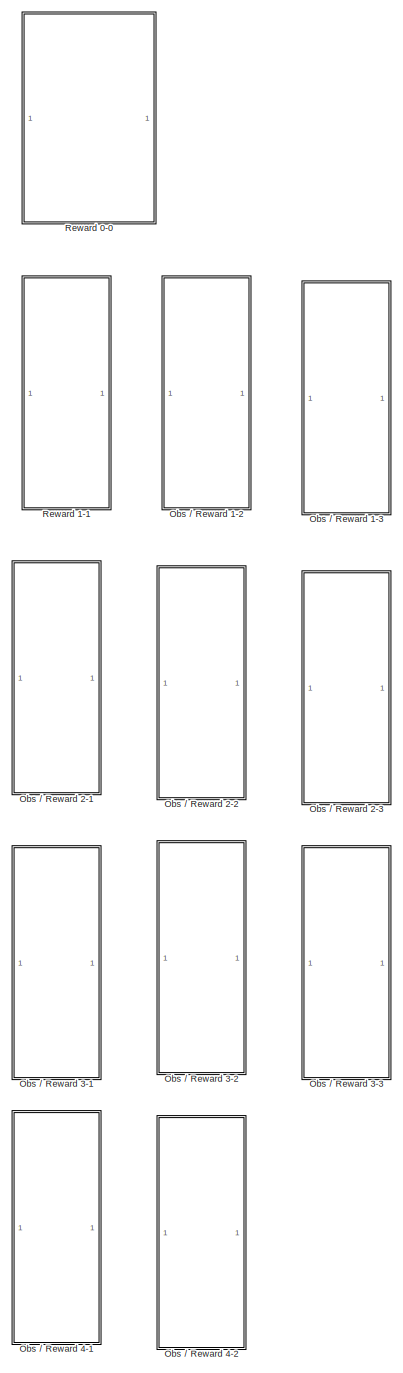
[diagram: root canvas - part 1/6, top left region]
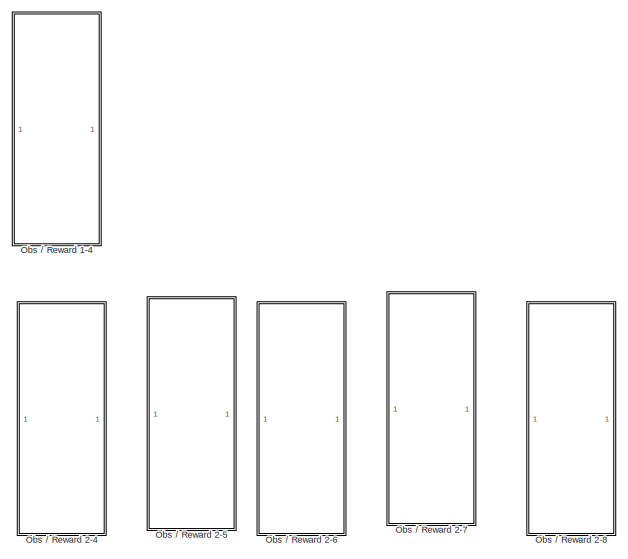
[diagram: root canvas - part 2/6, top center region]
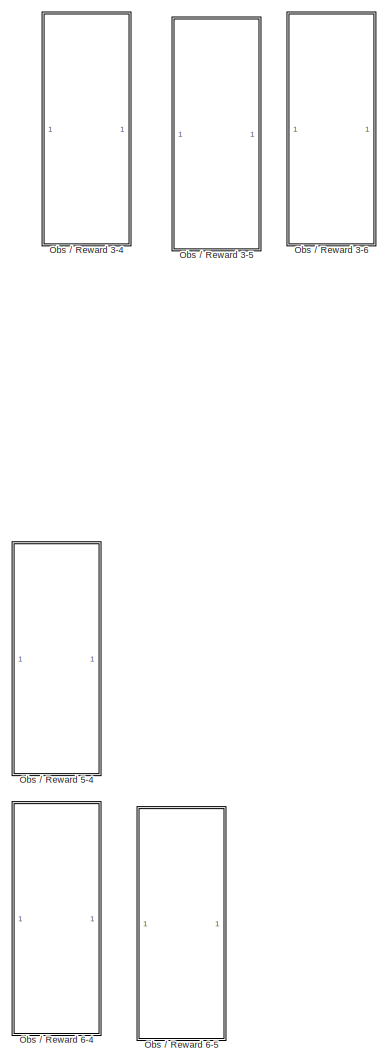
[diagram: root canvas - part 3/6, middle left region]
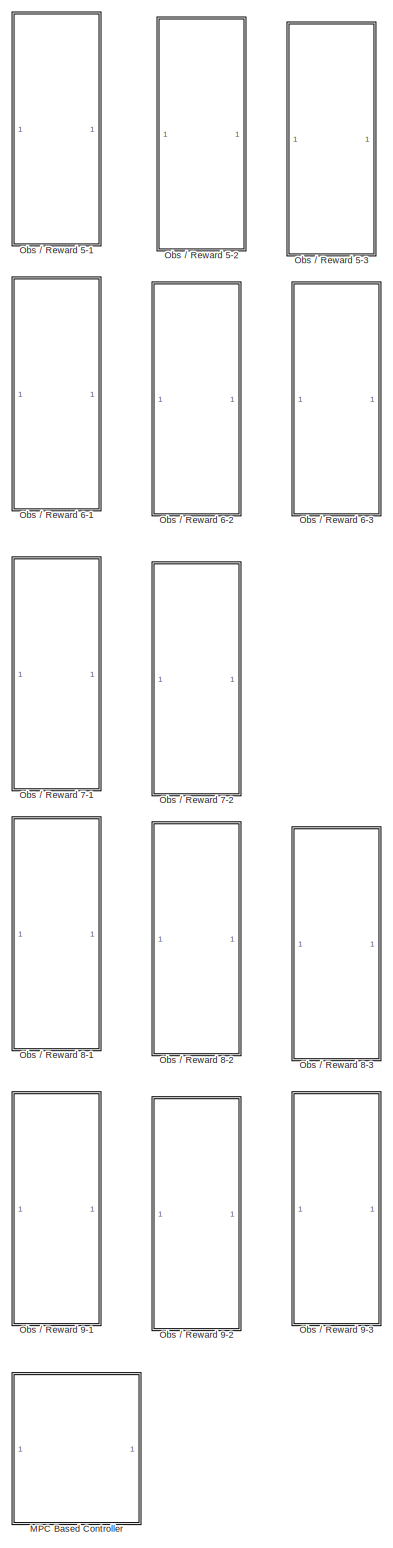
[diagram: root canvas - part 4/6, bottom left region]
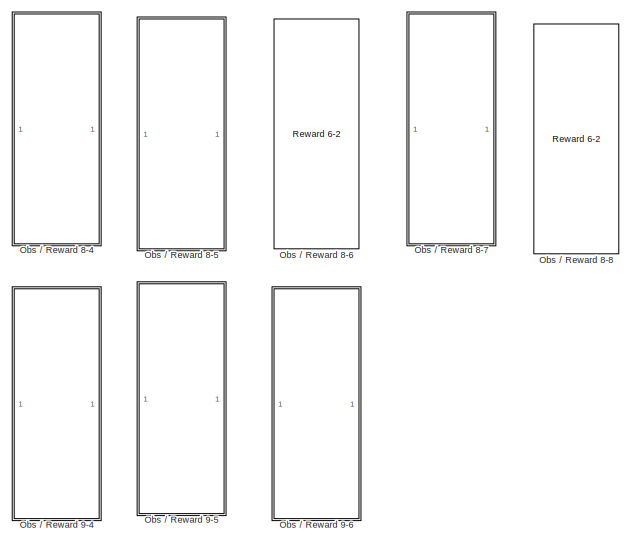
[diagram: root canvas - part 5/6, bottom center region]
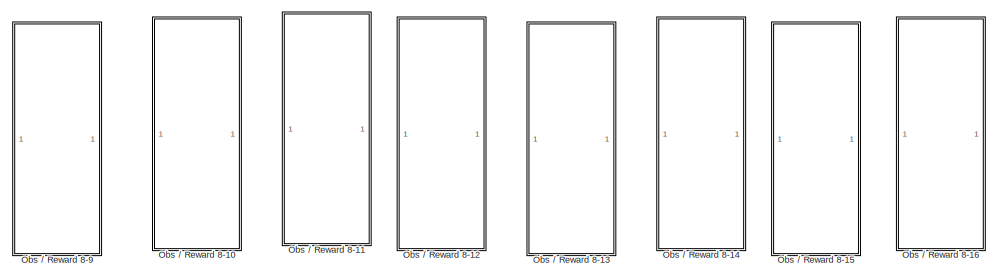
[diagram: root canvas - part 6/6, bottom right region]
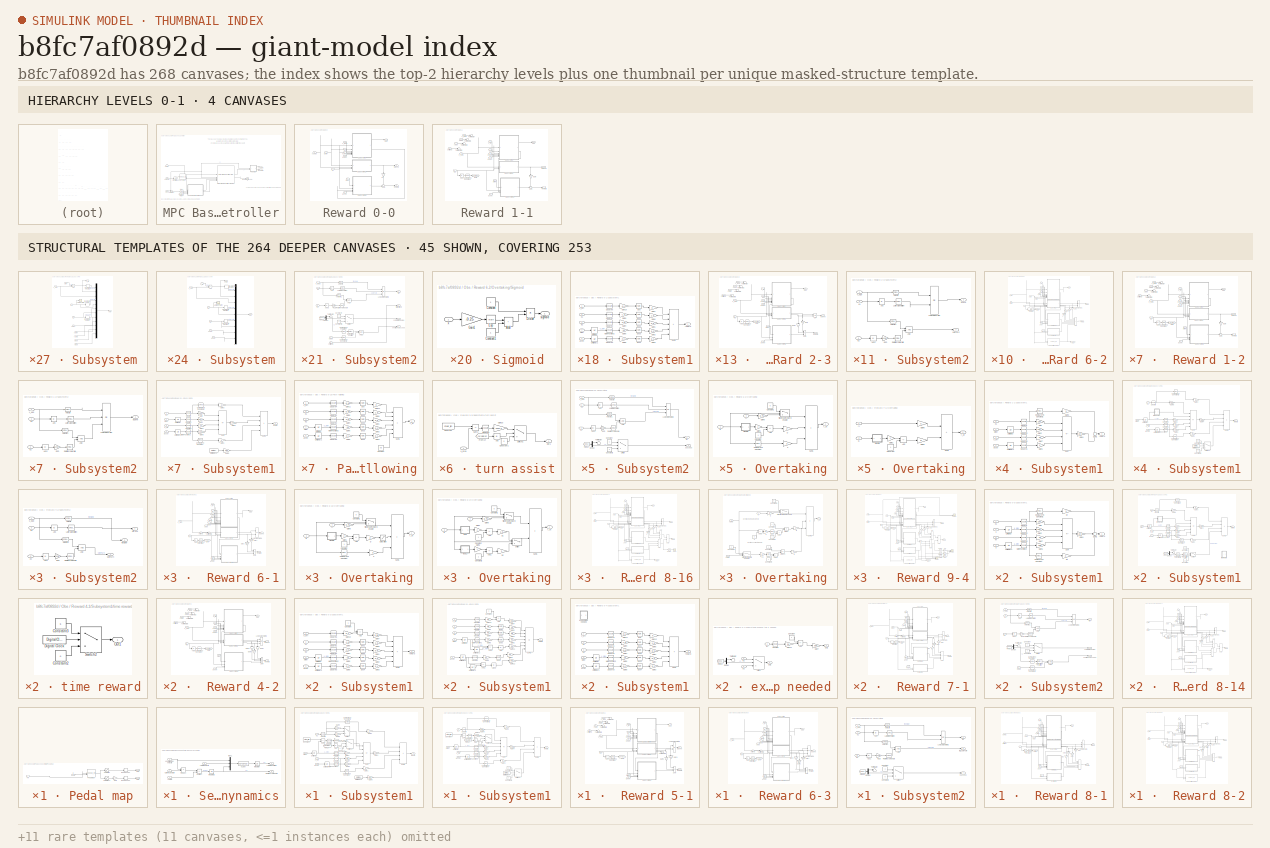
[diagram: thumbnail index - top-2 hierarchy levels (4 canvases) + 45 structural-template representatives of the remaining 264 canvases]
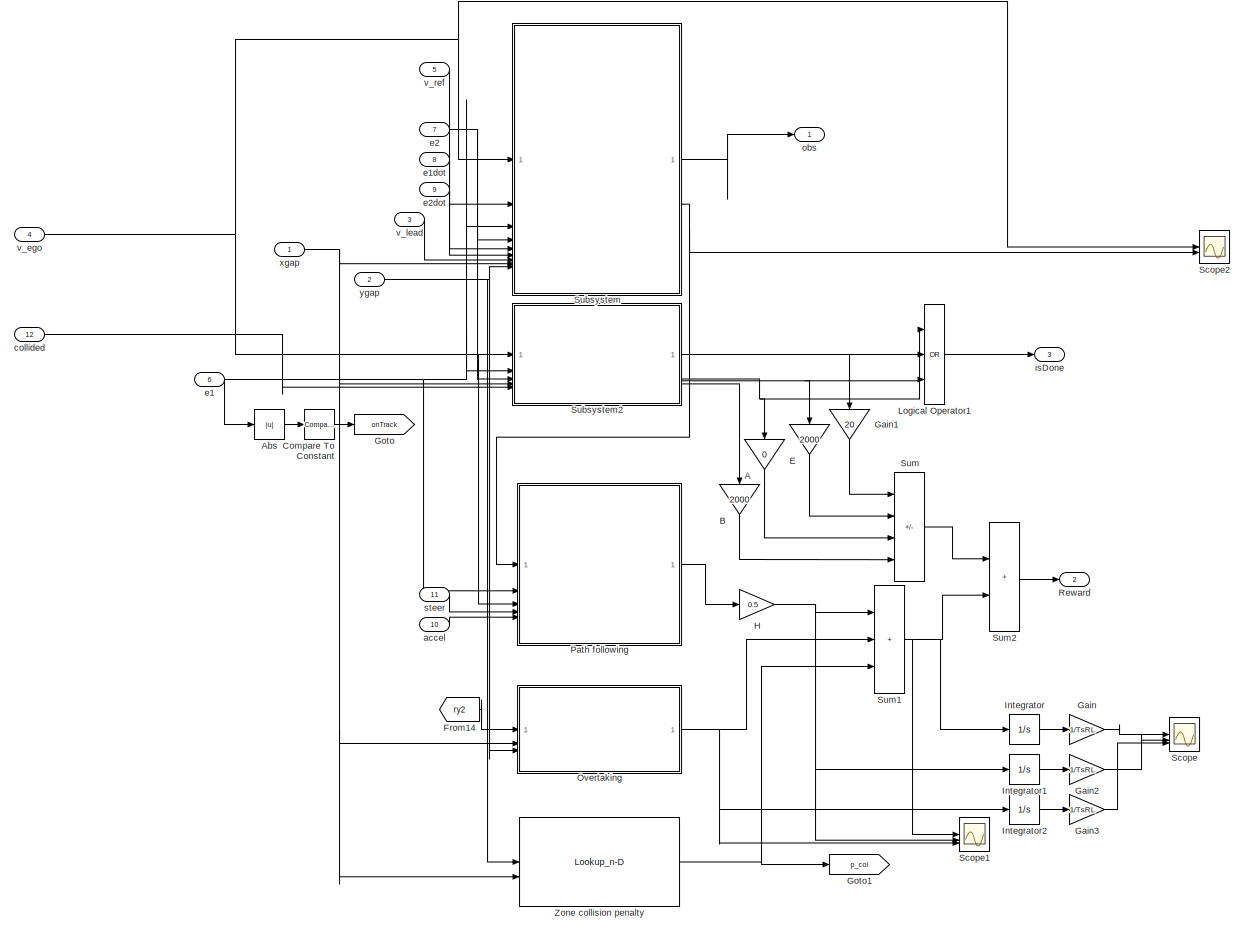
[diagram: Obs / Reward 9-4 - part 1/1, most of the canvas]
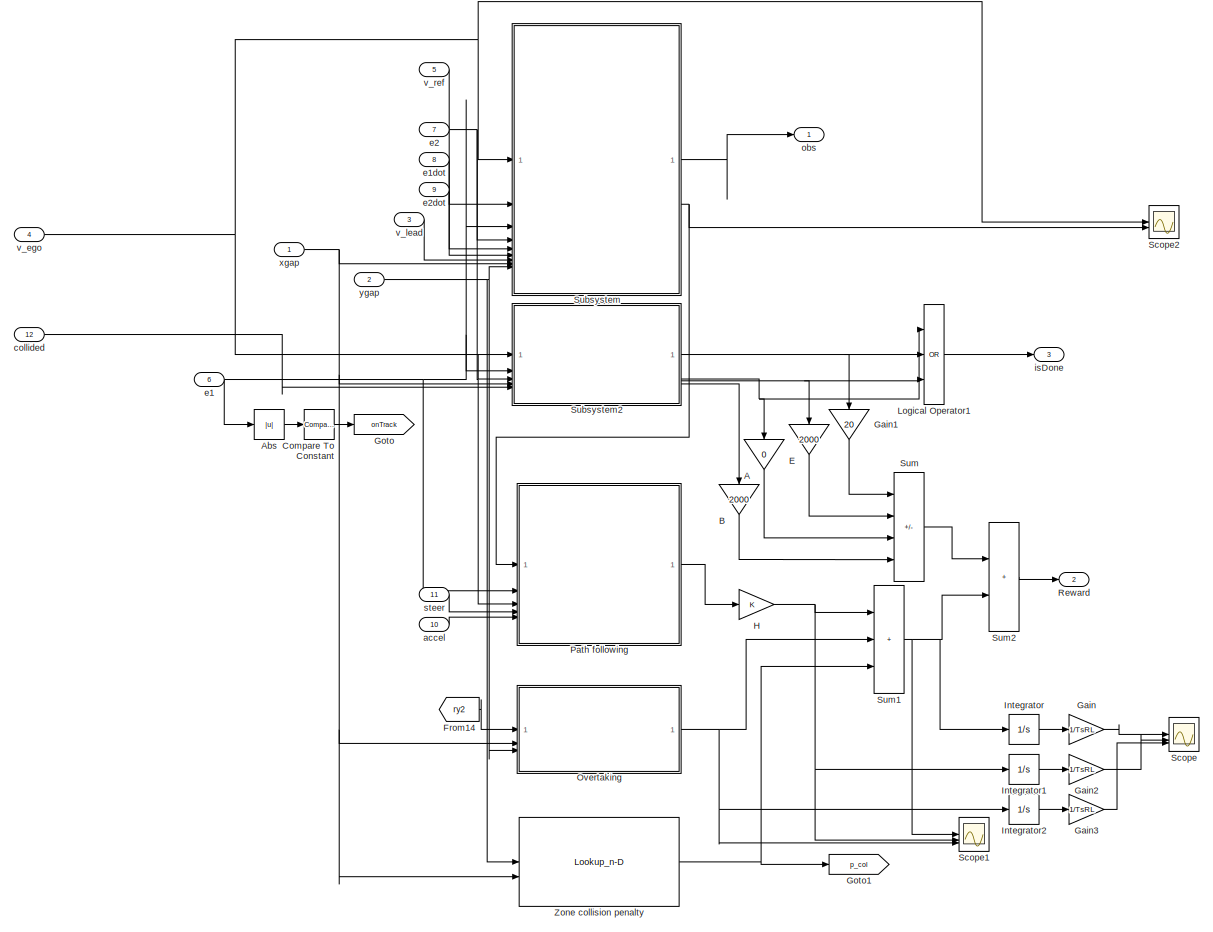
[diagram: Obs / Reward 9-5 - part 1/1, most of the canvas]
MODEL slx_b8fc7af0892d
KIND library
CONFIG AbsTol = auto
CONFIG EnableMultiTasking = off
CONFIG FixedStep = auto
CONFIG MaxStep = auto
CONFIG MinStep = auto
CONFIG RelTol = 1e-3
CONFIG SampleTimeConstraint = Unconstrained
CONFIG SolverName = VariableStepAuto
CONFIG StartTime = 0.0
CONFIG StopTime = 10.0
BLOCK [SubSystem] MPC Based Controller
  VariantControl = Stanley
BLOCK [Lookup_n-D] MPC Based Controller/1-D Lookup Table1
  BreakpointsForDimension1 = gradbp1
  ExtrapMethod = Clip
  InputPortMap = u0
  InternalRulePriority = Speed
  InterpMethod = Cubic spline
  NumberOfTableDimensions = 1
  RndMeth = Simplest
  Table = curvature1
BLOCK [Outport] MPC Based Controller/AccelCmd
  Port = 2
BLOCK [Outport] MPC Based Controller/DecelCmd
  Port = 3
BLOCK [From] MPC Based Controller/From
  GotoTag = yawrate1
  TagVisibility = global
BLOCK [From] MPC Based Controller/From1
  GotoTag = ydot1
  TagVisibility = global
BLOCK [Integrator] MPC Based Controller/Integrator
BLOCK [Reference] MPC Based Controller/Path Following Control System MPC  REF=mpcadaslib/Path Following Control System
  SourceBlock = mpcadaslib/Path Following Control System
  SourceType = Path following control (PFC) system
BLOCK [SubSystem] MPC Based Controller/Pedal map
BLOCK [DeadZone] MPC Based Controller/Pedal map/Dead Zone1
  LowerValue = -0.001
  UpperValue = 0.001
BLOCK [DeadZone] MPC Based Controller/Pedal map/Dead Zone2
  LowerValue = -0.001
  UpperValue = 0.001
BLOCK [Gain] MPC Based Controller/Pedal map/Gain
  Gain = -1
BLOCK [Outport] MPC Based Controller/Pedal map/Out1
BLOCK [Outport] MPC Based Controller/Pedal map/Out2
  Port = 2
BLOCK [Lookup_n-D] MPC Based Controller/Pedal map/Pedal map
  BreakpointsForDimension1 = vel_vec
  BreakpointsForDimension2 = accel_vec
  InputPortMap = u0,u1
  InternalRulePriority = Speed
  RndMeth = Simplest
  Table = pedal_map'
BLOCK [Saturate] MPC Based Controller/Pedal map/Saturation
  LowerLimit = 0
  UpperLimit = 1
BLOCK [Saturate] MPC Based Controller/Pedal map/Saturation1
  LowerLimit = -1
  UpperLimit = 0
BLOCK [Inport] MPC Based Controller/Pedal map/a
  Port = 2
BLOCK [Inport] MPC Based Controller/Pedal map/vx
BLOCK [Inport] MPC Based Controller/Pose
BLOCK [SubSystem] MPC Based Controller/Sensor Dynamics
BLOCK [Inport] MPC Based Controller/Sensor Dynamics/Current curvature
BLOCK [Integrator] MPC Based Controller/Sensor Dynamics/Integrator
BLOCK [Integrator] MPC Based Controller/Sensor Dynamics/Integrator2
BLOCK [Outport] MPC Based Controller/Sensor Dynamics/Lateral deviation
  VectorParamsAs1DForOutWhenUnconnected = off
BLOCK [Inport] MPC Based Controller/Sensor Dynamics/Lateral velocity
  Port = 3
BLOCK [Inport] MPC Based Controller/Sensor Dynamics/Longitudinal velocity
  Port = 2
BLOCK [Mux] MPC Based Controller/Sensor Dynamics/Mux1
  DisplayOption = bar
  Inputs = [1 1 1]
BLOCK [Product] MPC Based Controller/Sensor Dynamics/Product
BLOCK [Outport] MPC Based Controller/Sensor Dynamics/Relative yaw angle
  Port = 2
  VectorParamsAs1DForOutWhenUnconnected = off
BLOCK [Sum] MPC Based Controller/Sensor Dynamics/Subtract
  IconShape = rectangular
  Inputs = -+
BLOCK [Inport] MPC Based Controller/Sensor Dynamics/Yaw rate
  Port = 4
BLOCK [Fcn] MPC Based Controller/Sensor Dynamics/e1dot
  Expr = u(1)*u(3)+u(2)
BLOCK [Terminator] MPC Based Controller/Terminator
BLOCK [Inport] MPC Based Controller/VelFdbk
  Port = 3
BLOCK [Inport] MPC Based Controller/VelRef
  Port = 2
BLOCK [Outport] MPC Based Controller/WheelSteeringAngle
BLOCK [SubSystem] Obs // Reward 1-2
BLOCK [Abs] Obs // Reward 1-2/Abs
  SaturateOnIntegerOverflow = off
BLOCK [Reference] Obs // Reward 1-2/Compare To Constant  REF=simulink/Logic and Bit
Operations/Compare
To Constant
  SourceBlock = simulink/Logic and Bit\nOperations/Compare\nTo Constant
  SourceType = Compare To Constant
BLOCK [Gain] Obs // Reward 1-2/Gain
  Gain = 10
  NameLocation = left
BLOCK [Goto] Obs // Reward 1-2/Goto
  GotoTag = onTrack
  TagVisibility = global
BLOCK [Outport] Obs // Reward 1-2/Reward
  Port = 2
  VectorParamsAs1DForOutWhenUnconnected = off
BLOCK [SubSystem] Obs // Reward 1-2/Subsystem
BLOCK [Sum] Obs // Reward 1-2/Subsystem/Add
  IconShape = rectangular
  Inputs = +-
BLOCK [DiscreteIntegrator] Obs // Reward 1-2/Subsystem/Discrete-Time Integrator1
  ICPrevOutput = DiscIntNeverNeededParam
  ICPrevScaledInput = DiscIntNeverNeededParam
  InitialConditionSetting = Auto
  SampleTime = -1
BLOCK [DiscreteIntegrator] Obs // Reward 1-2/Subsystem/Discrete-Time Integrator2
  ICPrevOutput = DiscIntNeverNeededParam
  ICPrevScaledInput = DiscIntNeverNeededParam
  InitialConditionSetting = Auto
  SampleTime = -1
BLOCK [DiscreteIntegrator] Obs // Reward 1-2/Subsystem/Discrete-Time Integrator3
  ICPrevOutput = DiscIntNeverNeededParam
  ICPrevScaledInput = DiscIntNeverNeededParam
  InitialConditionSetting = Auto
  SampleTime = -1
BLOCK [Scope] Obs // Reward 1-2/Subsystem/Lateral deviation
  Floating = off
  NumInputPorts = 1
  ScopeSpecificationString = Simulink.scopes.TimeScopeBlockCfg('CurrentConfiguration', extmgr.ConfigurationSet(extmgr.Configuration('Core','General UI',true),extmgr.Configuration('Core','Source UI',true),extmgr.Configuration('Sources','WiredSimulink',true,'DataLoggingVariableName','ScopeData2'),extmgr.Configuration('Visuals','Time Domain',true,'SerializedDisplays',{struct('MinYLimReal','-1.8404','MaxYLimReal','0.5976','YLabel...<+1405ch>  <repeated x52 — deduplicated; at blocks: Lateral deviation>
BLOCK [Mux] Obs // Reward 1-2/Subsystem/Mux
  DisplayOption = bar
  Inputs = 9
BLOCK [Inport] Obs // Reward 1-2/Subsystem/e1
  Port = 3
BLOCK [Inport] Obs // Reward 1-2/Subsystem/e1dot
  Port = 5
BLOCK [Inport] Obs // Reward 1-2/Subsystem/e2
  Port = 4
BLOCK [Inport] Obs // Reward 1-2/Subsystem/e2dot
  Port = 6
BLOCK [Outport] Obs // Reward 1-2/Subsystem/obs
  VectorParamsAs1DForOutWhenUnconnected = off
BLOCK [Inport] Obs // Reward 1-2/Subsystem/v_ego
BLOCK [Outport] Obs // Reward 1-2/Subsystem/v_err
  Port = 2
  VectorParamsAs1DForOutWhenUnconnected = off
BLOCK [Inport] Obs // Reward 1-2/Subsystem/v_ref
  Port = 2
BLOCK [SubSystem] Obs // Reward 1-2/Subsystem1
BLOCK [Reference] Obs // Reward 1-2/Subsystem1/Compare To Constant1  REF=simulink/Logic and Bit
Operations/Compare
To Constant
  SourceBlock = simulink/Logic and Bit\nOperations/Compare\nTo Constant
  SourceType = Compare To Constant
BLOCK [Gain] Obs // Reward 1-2/Subsystem1/Gain
  Gain = 100
BLOCK [Gain] Obs // Reward 1-2/Subsystem1/Gain1
  Gain = 0
BLOCK [Gain] Obs // Reward 1-2/Subsystem1/Gain2
  Gain = 200
BLOCK [Gain] Obs // Reward 1-2/Subsystem1/Gain3
  Gain = 2
BLOCK [Gain] Obs // Reward 1-2/Subsystem1/Gain4
  Gain = 1e-3
BLOCK [Gain] Obs // Reward 1-2/Subsystem1/Gain7
  Gain = 10
BLOCK [Math] Obs // Reward 1-2/Subsystem1/Square
  Operator = square
  SignedPower = on
BLOCK [Math] Obs // Reward 1-2/Subsystem1/Square1
  Operator = square
  SignedPower = on
BLOCK [Math] Obs // Reward 1-2/Subsystem1/Square2
  Operator = square
  SignedPower = on
BLOCK [Math] Obs // Reward 1-2/Subsystem1/Square5
  Operator = square
  SignedPower = on
BLOCK [Sum] Obs // Reward 1-2/Subsystem1/Sum
  IconShape = rectangular
  Inputs = ----
BLOCK [Sum] Obs // Reward 1-2/Subsystem1/Sum1
BLOCK [UnitDelay] Obs // Reward 1-2/Subsystem1/Unit Delay
  HasFrameUpgradeWarning = on
  SampleTime = -1
BLOCK [UnitDelay] Obs // Reward 1-2/Subsystem1/Unit Delay1
  HasFrameUpgradeWarning = on
  SampleTime = -1
BLOCK [Inport] Obs // Reward 1-2/Subsystem1/accel
  Port = 4
BLOCK [Inport] Obs // Reward 1-2/Subsystem1/e1
  Port = 2
BLOCK [Outport] Obs // Reward 1-2/Subsystem1/reward
  VectorParamsAs1DForOutWhenUnconnected = off
BLOCK [Inport] Obs // Reward 1-2/Subsystem1/steer
BLOCK [Inport] Obs // Reward 1-2/Subsystem1/v_err
  Port = 3
BLOCK [SubSystem] Obs // Reward 1-2/Subsystem2
BLOCK [Logic] Obs // Reward 1-2/Subsystem2/AND
  AllPortsSameDT = off
  IconShape = distinctive
  OutDataTypeStr = boolean
BLOCK [Abs] Obs // Reward 1-2/Subsystem2/Abs
  SaturateOnIntegerOverflow = off
BLOCK [Abs] Obs // Reward 1-2/Subsystem2/Abs1
  SaturateOnIntegerOverflow = off
BLOCK [Reference] Obs // Reward 1-2/Subsystem2/Lateral deviation  REF=simulink/Logic and Bit
Operations/Compare
To Constant
  SourceBlock = simulink/Logic and Bit\nOperations/Compare\nTo Constant
  SourceType = Compare To Constant
BLOCK [Logic] Obs // Reward 1-2/Subsystem2/Logical Operator
  AllPortsSameDT = off
  Inputs = 3
  Operator = OR
  OutDataTypeStr = boolean
BLOCK [Gain] Obs // Reward 1-2/Subsystem2/R2D
  Gain = 180/pi
BLOCK [Reference] Obs // Reward 1-2/Subsystem2/Relative yaw angle  REF=simulink/Logic and Bit
Operations/Compare
To Constant
  SourceBlock = simulink/Logic and Bit\nOperations/Compare\nTo Constant
  SourceType = Compare To Constant
BLOCK [Reference] Obs // Reward 1-2/Subsystem2/Velocity  REF=simulink/Logic and Bit
Operations/Compare
To Constant
  SourceBlock = simulink/Logic and Bit\nOperations/Compare\nTo Constant
  SourceType = Compare To Constant
BLOCK [Reference] Obs // Reward 1-2/Subsystem2/Velocity1  REF=simulink/Logic and Bit
Operations/Compare
To Constant
  SourceBlock = simulink/Logic and Bit\nOperations/Compare\nTo Constant
  SourceType = Compare To Constant
BLOCK [Inport] Obs // Reward 1-2/Subsystem2/e1
  Port = 2
BLOCK [Inport] Obs // Reward 1-2/Subsystem2/e2
  Port = 3
BLOCK [Outport] Obs // Reward 1-2/Subsystem2/isDone
  VectorParamsAs1DForOutWhenUnconnected = off
BLOCK [Inport] Obs // Reward 1-2/Subsystem2/v_ego
BLOCK [Sum] Obs // Reward 1-2/Sum
  Inputs = -+|
BLOCK [Terminator] Obs // Reward 1-2/Terminator
BLOCK [Terminator] Obs // Reward 1-2/Terminator1
BLOCK [Terminator] Obs // Reward 1-2/Terminator2
BLOCK [Terminator] Obs // Reward 1-2/Terminator3
BLOCK [Inport] Obs // Reward 1-2/accel
  Port = 10
BLOCK [Inport] Obs // Reward 1-2/collided
  Port = 12
BLOCK [Inport] Obs // Reward 1-2/e1
  Port = 6
BLOCK [Inport] Obs // Reward 1-2/e1dot
  Port = 8
BLOCK [Inport] Obs // Reward 1-2/e2
  Port = 7
BLOCK [Inport] Obs // Reward 1-2/e2dot
  Port = 9
BLOCK [Outport] Obs // Reward 1-2/isDone
  Port = 3
  VectorParamsAs1DForOutWhenUnconnected = off
BLOCK [Outport] Obs // Reward 1-2/obs
  VectorParamsAs1DForOutWhenUnconnected = off
BLOCK [Inport] Obs // Reward 1-2/steer
  Port = 11
BLOCK [Inport] Obs // Reward 1-2/v_ego
  Port = 4
BLOCK [Inport] Obs // Reward 1-2/v_lead
  Port = 3
BLOCK [Inport] Obs // Reward 1-2/v_ref
  Port = 5
BLOCK [Inport] Obs // Reward 1-2/xgap
BLOCK [Inport] Obs // Reward 1-2/ygap
  Port = 2
BLOCK [SubSystem] Obs // Reward 1-3
BLOCK [Abs] Obs // Reward 1-3/Abs
  SaturateOnIntegerOverflow = off
BLOCK [Reference] Obs // Reward 1-3/Compare To Constant  REF=simulink/Logic and Bit
Operations/Compare
To Constant
  SourceBlock = simulink/Logic and Bit\nOperations/Compare\nTo Constant
  SourceType = Compare To Constant
BLOCK [Gain] Obs // Reward 1-3/Gain
  Gain = 300
  NameLocation = left
BLOCK [Goto] Obs // Reward 1-3/Goto
  GotoTag = onTrack
  TagVisibility = global
BLOCK [Outport] Obs // Reward 1-3/Reward
  Port = 2
  VectorParamsAs1DForOutWhenUnconnected = off
BLOCK [SubSystem] Obs // Reward 1-3/Subsystem
BLOCK [Sum] Obs // Reward 1-3/Subsystem/Add
  IconShape = rectangular
  Inputs = +-
BLOCK [DiscreteIntegrator] Obs // Reward 1-3/Subsystem/Discrete-Time Integrator1
  ICPrevOutput = DiscIntNeverNeededParam
  ICPrevScaledInput = DiscIntNeverNeededParam
  InitialConditionSetting = Auto
  SampleTime = -1
BLOCK [DiscreteIntegrator] Obs // Reward 1-3/Subsystem/Discrete-Time Integrator2
  ICPrevOutput = DiscIntNeverNeededParam
  ICPrevScaledInput = DiscIntNeverNeededParam
  InitialConditionSetting = Auto
  SampleTime = -1
BLOCK [DiscreteIntegrator] Obs // Reward 1-3/Subsystem/Discrete-Time Integrator3
  ICPrevOutput = DiscIntNeverNeededParam
  ICPrevScaledInput = DiscIntNeverNeededParam
  InitialConditionSetting = Auto
  SampleTime = -1
BLOCK [Scope] Obs // Reward 1-3/Subsystem/Lateral deviation
  Floating = off
  NumInputPorts = 1
BLOCK [Mux] Obs // Reward 1-3/Subsystem/Mux
  DisplayOption = bar
  Inputs = 9
BLOCK [Inport] Obs // Reward 1-3/Subsystem/e1
  Port = 3
BLOCK [Inport] Obs // Reward 1-3/Subsystem/e1dot
  Port = 5
BLOCK [Inport] Obs // Reward 1-3/Subsystem/e2
  Port = 4
BLOCK [Inport] Obs // Reward 1-3/Subsystem/e2dot
  Port = 6
BLOCK [Outport] Obs // Reward 1-3/Subsystem/obs
  VectorParamsAs1DForOutWhenUnconnected = off
BLOCK [Inport] Obs // Reward 1-3/Subsystem/v_ego
BLOCK [Outport] Obs // Reward 1-3/Subsystem/v_err
  Port = 2
  VectorParamsAs1DForOutWhenUnconnected = off
BLOCK [Inport] Obs // Reward 1-3/Subsystem/v_ref
  Port = 2
BLOCK [SubSystem] Obs // Reward 1-3/Subsystem1
BLOCK [Reference] Obs // Reward 1-3/Subsystem1/Compare To Constant1  REF=simulink/Logic and Bit
Operations/Compare
To Constant
  SourceBlock = simulink/Logic and Bit\nOperations/Compare\nTo Constant
  SourceType = Compare To Constant
BLOCK [Gain] Obs // Reward 1-3/Subsystem1/Gain
  Gain = 100
BLOCK [Gain] Obs // Reward 1-3/Subsystem1/Gain1
  Gain = 0
BLOCK [Gain] Obs // Reward 1-3/Subsystem1/Gain2
  Gain = 200
BLOCK [Gain] Obs // Reward 1-3/Subsystem1/Gain3
  Gain = 2
BLOCK [Gain] Obs // Reward 1-3/Subsystem1/Gain4
  Gain = 1e-3
BLOCK [Gain] Obs // Reward 1-3/Subsystem1/Gain7
  Gain = 10
BLOCK [Math] Obs // Reward 1-3/Subsystem1/Square
  Operator = square
  SignedPower = on
BLOCK [Math] Obs // Reward 1-3/Subsystem1/Square1
  Operator = square
  SignedPower = on
BLOCK [Math] Obs // Reward 1-3/Subsystem1/Square2
  Operator = square
  SignedPower = on
BLOCK [Math] Obs // Reward 1-3/Subsystem1/Square5
  Operator = square
  SignedPower = on
BLOCK [Sum] Obs // Reward 1-3/Subsystem1/Sum
  IconShape = rectangular
  Inputs = ----
BLOCK [Sum] Obs // Reward 1-3/Subsystem1/Sum1
BLOCK [UnitDelay] Obs // Reward 1-3/Subsystem1/Unit Delay
  HasFrameUpgradeWarning = on
  SampleTime = -1
BLOCK [UnitDelay] Obs // Reward 1-3/Subsystem1/Unit Delay1
  HasFrameUpgradeWarning = on
  SampleTime = -1
BLOCK [Inport] Obs // Reward 1-3/Subsystem1/accel
  Port = 4
BLOCK [Inport] Obs // Reward 1-3/Subsystem1/e1
  Port = 2
BLOCK [Outport] Obs // Reward 1-3/Subsystem1/reward
  VectorParamsAs1DForOutWhenUnconnected = off
BLOCK [Inport] Obs // Reward 1-3/Subsystem1/steer
BLOCK [Inport] Obs // Reward 1-3/Subsystem1/v_err
  Port = 3
BLOCK [SubSystem] Obs // Reward 1-3/Subsystem2
BLOCK [Logic] Obs // Reward 1-3/Subsystem2/AND
  AllPortsSameDT = off
  IconShape = distinctive
  OutDataTypeStr = boolean
BLOCK [Abs] Obs // Reward 1-3/Subsystem2/Abs
  SaturateOnIntegerOverflow = off
BLOCK [Abs] Obs // Reward 1-3/Subsystem2/Abs1
  SaturateOnIntegerOverflow = off
BLOCK [Reference] Obs // Reward 1-3/Subsystem2/Lateral deviation  REF=simulink/Logic and Bit
Operations/Compare
To Constant
  SourceBlock = simulink/Logic and Bit\nOperations/Compare\nTo Constant
  SourceType = Compare To Constant
BLOCK [Logic] Obs // Reward 1-3/Subsystem2/Logical Operator
  AllPortsSameDT = off
  Inputs = 3
  Operator = OR
  OutDataTypeStr = boolean
BLOCK [Gain] Obs // Reward 1-3/Subsystem2/R2D
  Gain = 180/pi
BLOCK [Reference] Obs // Reward 1-3/Subsystem2/Relative yaw angle  REF=simulink/Logic and Bit
Operations/Compare
To Constant
  SourceBlock = simulink/Logic and Bit\nOperations/Compare\nTo Constant
  SourceType = Compare To Constant
BLOCK [Reference] Obs // Reward 1-3/Subsystem2/Velocity  REF=simulink/Logic and Bit
Operations/Compare
To Constant
  SourceBlock = simulink/Logic and Bit\nOperations/Compare\nTo Constant
  SourceType = Compare To Constant
BLOCK [Reference] Obs // Reward 1-3/Subsystem2/Velocity1  REF=simulink/Logic and Bit
Operations/Compare
To Constant
  SourceBlock = simulink/Logic and Bit\nOperations/Compare\nTo Constant
  SourceType = Compare To Constant
BLOCK [Inport] Obs // Reward 1-3/Subsystem2/e1
  Port = 2
BLOCK [Inport] Obs // Reward 1-3/Subsystem2/e2
  Port = 3
BLOCK [Outport] Obs // Reward 1-3/Subsystem2/isDone
  VectorParamsAs1DForOutWhenUnconnected = off
BLOCK [Inport] Obs // Reward 1-3/Subsystem2/v_ego
BLOCK [Sum] Obs // Reward 1-3/Sum
  Inputs = -+|
BLOCK [Terminator] Obs // Reward 1-3/Terminator
BLOCK [Terminator] Obs // Reward 1-3/Terminator1
BLOCK [Terminator] Obs // Reward 1-3/Terminator2
BLOCK [Terminator] Obs // Reward 1-3/Terminator3
BLOCK [Inport] Obs // Reward 1-3/accel
  Port = 10
BLOCK [Inport] Obs // Reward 1-3/collided
  Port = 12
BLOCK [Inport] Obs // Reward 1-3/e1
  Port = 6
BLOCK [Inport] Obs // Reward 1-3/e1dot
  Port = 8
BLOCK [Inport] Obs // Reward 1-3/e2
  Port = 7
BLOCK [Inport] Obs // Reward 1-3/e2dot
  Port = 9
BLOCK [Outport] Obs // Reward 1-3/isDone
  Port = 3
  VectorParamsAs1DForOutWhenUnconnected = off
BLOCK [Outport] Obs // Reward 1-3/obs
  VectorParamsAs1DForOutWhenUnconnected = off
BLOCK [Inport] Obs // Reward 1-3/steer
  Port = 11
BLOCK [Inport] Obs // Reward 1-3/v_ego
  Port = 4
BLOCK [Inport] Obs // Reward 1-3/v_lead
  Port = 3
BLOCK [Inport] Obs // Reward 1-3/v_ref
  Port = 5
BLOCK [Inport] Obs // Reward 1-3/xgap
BLOCK [Inport] Obs // Reward 1-3/ygap
  Port = 2
BLOCK [SubSystem] Obs // Reward 1-4
BLOCK [Abs] Obs // Reward 1-4/Abs
  SaturateOnIntegerOverflow = off
BLOCK [Reference] Obs // Reward 1-4/Compare To Constant  REF=simulink/Logic and Bit
Operations/Compare
To Constant
  SourceBlock = simulink/Logic and Bit\nOperations/Compare\nTo Constant
  SourceType = Compare To Constant
BLOCK [Gain] Obs // Reward 1-4/Gain
  Gain = 100
  NameLocation = left
BLOCK [Goto] Obs // Reward 1-4/Goto
  GotoTag = onTrack
  TagVisibility = global
BLOCK [Outport] Obs // Reward 1-4/Reward
  Port = 2
  VectorParamsAs1DForOutWhenUnconnected = off
BLOCK [SubSystem] Obs // Reward 1-4/Subsystem
BLOCK [Sum] Obs // Reward 1-4/Subsystem/Add
  IconShape = rectangular
  Inputs = +-
BLOCK [DiscreteIntegrator] Obs // Reward 1-4/Subsystem/Discrete-Time Integrator1
  ICPrevOutput = DiscIntNeverNeededParam
  ICPrevScaledInput = DiscIntNeverNeededParam
  InitialConditionSetting = Auto
  SampleTime = -1
BLOCK [DiscreteIntegrator] Obs // Reward 1-4/Subsystem/Discrete-Time Integrator2
  ICPrevOutput = DiscIntNeverNeededParam
  ICPrevScaledInput = DiscIntNeverNeededParam
  InitialConditionSetting = Auto
  SampleTime = -1
BLOCK [DiscreteIntegrator] Obs // Reward 1-4/Subsystem/Discrete-Time Integrator3
  ICPrevOutput = DiscIntNeverNeededParam
  ICPrevScaledInput = DiscIntNeverNeededParam
  InitialConditionSetting = Auto
  SampleTime = -1
BLOCK [Scope] Obs // Reward 1-4/Subsystem/Lateral deviation
  Floating = off
  NumInputPorts = 1
BLOCK [Mux] Obs // Reward 1-4/Subsystem/Mux
  DisplayOption = bar
  Inputs = 9
BLOCK [Inport] Obs // Reward 1-4/Subsystem/e1
  Port = 3
BLOCK [Inport] Obs // Reward 1-4/Subsystem/e1dot
  Port = 5
BLOCK [Inport] Obs // Reward 1-4/Subsystem/e2
  Port = 4
BLOCK [Inport] Obs // Reward 1-4/Subsystem/e2dot
  Port = 6
BLOCK [Outport] Obs // Reward 1-4/Subsystem/obs
  VectorParamsAs1DForOutWhenUnconnected = off
BLOCK [Inport] Obs // Reward 1-4/Subsystem/v_ego
BLOCK [Outport] Obs // Reward 1-4/Subsystem/v_err
  Port = 2
  VectorParamsAs1DForOutWhenUnconnected = off
BLOCK [Inport] Obs // Reward 1-4/Subsystem/v_ref
  Port = 2
BLOCK [SubSystem] Obs // Reward 1-4/Subsystem1
BLOCK [Reference] Obs // Reward 1-4/Subsystem1/Compare To Constant1  REF=simulink/Logic and Bit
Operations/Compare
To Constant
  SourceBlock = simulink/Logic and Bit\nOperations/Compare\nTo Constant
  SourceType = Compare To Constant
BLOCK [Gain] Obs // Reward 1-4/Subsystem1/Gain
  Gain = 100
BLOCK [Gain] Obs // Reward 1-4/Subsystem1/Gain1
  Gain = 0
BLOCK [Gain] Obs // Reward 1-4/Subsystem1/Gain2
  Gain = 500
BLOCK [Gain] Obs // Reward 1-4/Subsystem1/Gain3
  Gain = 2
BLOCK [Gain] Obs // Reward 1-4/Subsystem1/Gain4
  Gain = 1e-3
BLOCK [Gain] Obs // Reward 1-4/Subsystem1/Gain7
  Gain = 10
BLOCK [Math] Obs // Reward 1-4/Subsystem1/Square
  Operator = square
  SignedPower = on
BLOCK [Math] Obs // Reward 1-4/Subsystem1/Square1
  Operator = square
  SignedPower = on
BLOCK [Math] Obs // Reward 1-4/Subsystem1/Square2
  Operator = square
  SignedPower = on
BLOCK [Math] Obs // Reward 1-4/Subsystem1/Square5
  Operator = square
  SignedPower = on
BLOCK [Sum] Obs // Reward 1-4/Subsystem1/Sum
  IconShape = rectangular
  Inputs = ----
BLOCK [Sum] Obs // Reward 1-4/Subsystem1/Sum1
BLOCK [UnitDelay] Obs // Reward 1-4/Subsystem1/Unit Delay
  HasFrameUpgradeWarning = on
  SampleTime = -1
BLOCK [UnitDelay] Obs // Reward 1-4/Subsystem1/Unit Delay1
  HasFrameUpgradeWarning = on
  SampleTime = -1
BLOCK [Inport] Obs // Reward 1-4/Subsystem1/accel
  Port = 4
BLOCK [Inport] Obs // Reward 1-4/Subsystem1/e1
  Port = 2
BLOCK [Outport] Obs // Reward 1-4/Subsystem1/reward
  VectorParamsAs1DForOutWhenUnconnected = off
BLOCK [Inport] Obs // Reward 1-4/Subsystem1/steer
BLOCK [Inport] Obs // Reward 1-4/Subsystem1/v_err
  Port = 3
BLOCK [SubSystem] Obs // Reward 1-4/Subsystem2
BLOCK [Logic] Obs // Reward 1-4/Subsystem2/AND
  AllPortsSameDT = off
  IconShape = distinctive
  OutDataTypeStr = boolean
BLOCK [Abs] Obs // Reward 1-4/Subsystem2/Abs
  SaturateOnIntegerOverflow = off
BLOCK [Abs] Obs // Reward 1-4/Subsystem2/Abs1
  SaturateOnIntegerOverflow = off
BLOCK [Reference] Obs // Reward 1-4/Subsystem2/Lateral deviation  REF=simulink/Logic and Bit
Operations/Compare
To Constant
  SourceBlock = simulink/Logic and Bit\nOperations/Compare\nTo Constant
  SourceType = Compare To Constant
BLOCK [Logic] Obs // Reward 1-4/Subsystem2/Logical Operator
  AllPortsSameDT = off
  Inputs = 3
  Operator = OR
  OutDataTypeStr = boolean
BLOCK [Gain] Obs // Reward 1-4/Subsystem2/R2D
  Gain = 180/pi
BLOCK [Reference] Obs // Reward 1-4/Subsystem2/Relative yaw angle  REF=simulink/Logic and Bit
Operations/Compare
To Constant
  SourceBlock = simulink/Logic and Bit\nOperations/Compare\nTo Constant
  SourceType = Compare To Constant
BLOCK [Reference] Obs // Reward 1-4/Subsystem2/Velocity  REF=simulink/Logic and Bit
Operations/Compare
To Constant
  SourceBlock = simulink/Logic and Bit\nOperations/Compare\nTo Constant
  SourceType = Compare To Constant
BLOCK [Reference] Obs // Reward 1-4/Subsystem2/Velocity1  REF=simulink/Logic and Bit
Operations/Compare
To Constant
  SourceBlock = simulink/Logic and Bit\nOperations/Compare\nTo Constant
  SourceType = Compare To Constant
BLOCK [Inport] Obs // Reward 1-4/Subsystem2/e1
  Port = 2
BLOCK [Inport] Obs // Reward 1-4/Subsystem2/e2
  Port = 3
BLOCK [Outport] Obs // Reward 1-4/Subsystem2/isDone
  VectorParamsAs1DForOutWhenUnconnected = off
BLOCK [Inport] Obs // Reward 1-4/Subsystem2/v_ego
BLOCK [Sum] Obs // Reward 1-4/Sum
  Inputs = -+|
BLOCK [Terminator] Obs // Reward 1-4/Terminator
BLOCK [Terminator] Obs // Reward 1-4/Terminator1
BLOCK [Terminator] Obs // Reward 1-4/Terminator2
BLOCK [Terminator] Obs // Reward 1-4/Terminator3
BLOCK [Inport] Obs // Reward 1-4/accel
  Port = 10
BLOCK [Inport] Obs // Reward 1-4/collided
  Port = 12
BLOCK [Inport] Obs // Reward 1-4/e1
  Port = 6
BLOCK [Inport] Obs // Reward 1-4/e1dot
  Port = 8
BLOCK [Inport] Obs // Reward 1-4/e2
  Port = 7
BLOCK [Inport] Obs // Reward 1-4/e2dot
  Port = 9
BLOCK [Outport] Obs // Reward 1-4/isDone
  Port = 3
  VectorParamsAs1DForOutWhenUnconnected = off
BLOCK [Outport] Obs // Reward 1-4/obs
  VectorParamsAs1DForOutWhenUnconnected = off
BLOCK [Inport] Obs // Reward 1-4/steer
  Port = 11
BLOCK [Inport] Obs // Reward 1-4/v_ego
  Port = 4
BLOCK [Inport] Obs // Reward 1-4/v_lead
  Port = 3
BLOCK [Inport] Obs // Reward 1-4/v_ref
  Port = 5
BLOCK [Inport] Obs // Reward 1-4/xgap
BLOCK [Inport] Obs // Reward 1-4/ygap
  Port = 2
BLOCK [SubSystem] Obs // Reward 2-1
BLOCK [Abs] Obs // Reward 2-1/Abs
  SaturateOnIntegerOverflow = off
BLOCK [Reference] Obs // Reward 2-1/Compare To Constant  REF=simulink/Logic and Bit
Operations/Compare
To Constant
  SourceBlock = simulink/Logic and Bit\nOperations/Compare\nTo Constant
  SourceType = Compare To Constant
BLOCK [Gain] Obs // Reward 2-1/Gain
  Gain = 10
  NameLocation = left
BLOCK [Goto] Obs // Reward 2-1/Goto
  GotoTag = onTrack
  TagVisibility = global
BLOCK [Outport] Obs // Reward 2-1/Reward
  Port = 2
  VectorParamsAs1DForOutWhenUnconnected = off
BLOCK [SubSystem] Obs // Reward 2-1/Subsystem
BLOCK [Sum] Obs // Reward 2-1/Subsystem/Add
  IconShape = rectangular
  Inputs = +-
BLOCK [DiscreteIntegrator] Obs // Reward 2-1/Subsystem/Discrete-Time Integrator1
  ICPrevOutput = DiscIntNeverNeededParam
  ICPrevScaledInput = DiscIntNeverNeededParam
  InitialConditionSetting = Auto
  SampleTime = -1
BLOCK [DiscreteIntegrator] Obs // Reward 2-1/Subsystem/Discrete-Time Integrator2
  ICPrevOutput = DiscIntNeverNeededParam
  ICPrevScaledInput = DiscIntNeverNeededParam
  InitialConditionSetting = Auto
  SampleTime = -1
BLOCK [DiscreteIntegrator] Obs // Reward 2-1/Subsystem/Discrete-Time Integrator3
  ICPrevOutput = DiscIntNeverNeededParam
  ICPrevScaledInput = DiscIntNeverNeededParam
  InitialConditionSetting = Auto
  SampleTime = -1
BLOCK [Scope] Obs // Reward 2-1/Subsystem/Lateral deviation
  Floating = off
  NumInputPorts = 1
BLOCK [Mux] Obs // Reward 2-1/Subsystem/Mux
  DisplayOption = bar
  Inputs = 9
BLOCK [Inport] Obs // Reward 2-1/Subsystem/e1
  Port = 3
BLOCK [Inport] Obs // Reward 2-1/Subsystem/e1dot
  Port = 5
BLOCK [Inport] Obs // Reward 2-1/Subsystem/e2
  Port = 4
BLOCK [Inport] Obs // Reward 2-1/Subsystem/e2dot
  Port = 6
BLOCK [Outport] Obs // Reward 2-1/Subsystem/obs
  VectorParamsAs1DForOutWhenUnconnected = off
BLOCK [Inport] Obs // Reward 2-1/Subsystem/v_ego
BLOCK [Outport] Obs // Reward 2-1/Subsystem/v_err
  Port = 2
  VectorParamsAs1DForOutWhenUnconnected = off
BLOCK [Inport] Obs // Reward 2-1/Subsystem/v_ref
  Port = 2
BLOCK [SubSystem] Obs // Reward 2-1/Subsystem1
BLOCK [Reference] Obs // Reward 2-1/Subsystem1/Compare To Constant  REF=simulink/Logic and Bit
Operations/Compare
To Constant
  SourceBlock = simulink/Logic and Bit\nOperations/Compare\nTo Constant
  SourceType = Compare To Constant
BLOCK [Reference] Obs // Reward 2-1/Subsystem1/Compare To Constant1  REF=simulink/Logic and Bit
Operations/Compare
To Constant
  SourceBlock = simulink/Logic and Bit\nOperations/Compare\nTo Constant
  SourceType = Compare To Constant
BLOCK [Gain] Obs // Reward 2-1/Subsystem1/Gain
  Gain = 100
BLOCK [Gain] Obs // Reward 2-1/Subsystem1/Gain1
BLOCK [Gain] Obs // Reward 2-1/Subsystem1/Gain2
  Gain = 500
BLOCK [Gain] Obs // Reward 2-1/Subsystem1/Gain3
  Gain = 2
BLOCK [Gain] Obs // Reward 2-1/Subsystem1/Gain4
  Gain = 1e-3
BLOCK [Gain] Obs // Reward 2-1/Subsystem1/Gain6
  Gain = 100
BLOCK [Gain] Obs // Reward 2-1/Subsystem1/Gain7
  Gain = 10
BLOCK [Math] Obs // Reward 2-1/Subsystem1/Math Function2
  Operator = square
  SignedPower = on
BLOCK [Math] Obs // Reward 2-1/Subsystem1/Square
  Operator = square
  SignedPower = on
BLOCK [Math] Obs // Reward 2-1/Subsystem1/Square2
  Operator = square
  SignedPower = on
BLOCK [Math] Obs // Reward 2-1/Subsystem1/Square5
  Operator = square
  SignedPower = on
BLOCK [Sum] Obs // Reward 2-1/Subsystem1/Sum
  IconShape = rectangular
  Inputs = ----
BLOCK [Sum] Obs // Reward 2-1/Subsystem1/Sum1
  Inputs = +++
BLOCK [UnitDelay] Obs // Reward 2-1/Subsystem1/Unit Delay
  HasFrameUpgradeWarning = on
  SampleTime = -1
BLOCK [UnitDelay] Obs // Reward 2-1/Subsystem1/Unit Delay1
  HasFrameUpgradeWarning = on
  SampleTime = -1
BLOCK [Inport] Obs // Reward 2-1/Subsystem1/accel
  Port = 4
BLOCK [Inport] Obs // Reward 2-1/Subsystem1/e1
  Port = 2
BLOCK [Outport] Obs // Reward 2-1/Subsystem1/reward
  VectorParamsAs1DForOutWhenUnconnected = off
BLOCK [Inport] Obs // Reward 2-1/Subsystem1/steer
BLOCK [Inport] Obs // Reward 2-1/Subsystem1/v_err
  Port = 3
BLOCK [SubSystem] Obs // Reward 2-1/Subsystem2
BLOCK [Logic] Obs // Reward 2-1/Subsystem2/AND
  AllPortsSameDT = off
  IconShape = distinctive
  OutDataTypeStr = boolean
BLOCK [Abs] Obs // Reward 2-1/Subsystem2/Abs
  SaturateOnIntegerOverflow = off
BLOCK [Abs] Obs // Reward 2-1/Subsystem2/Abs1
  SaturateOnIntegerOverflow = off
BLOCK [Reference] Obs // Reward 2-1/Subsystem2/Lateral deviation  REF=simulink/Logic and Bit
Operations/Compare
To Constant
  SourceBlock = simulink/Logic and Bit\nOperations/Compare\nTo Constant
  SourceType = Compare To Constant
BLOCK [Logic] Obs // Reward 2-1/Subsystem2/Logical Operator
  AllPortsSameDT = off
  Inputs = 3
  Operator = OR
  OutDataTypeStr = boolean
BLOCK [Gain] Obs // Reward 2-1/Subsystem2/R2D
  Gain = 180/pi
BLOCK [Reference] Obs // Reward 2-1/Subsystem2/Relative yaw angle  REF=simulink/Logic and Bit
Operations/Compare
To Constant
  SourceBlock = simulink/Logic and Bit\nOperations/Compare\nTo Constant
  SourceType = Compare To Constant
BLOCK [Reference] Obs // Reward 2-1/Subsystem2/Velocity  REF=simulink/Logic and Bit
Operations/Compare
To Constant
  SourceBlock = simulink/Logic and Bit\nOperations/Compare\nTo Constant
  SourceType = Compare To Constant
BLOCK [Reference] Obs // Reward 2-1/Subsystem2/Velocity1  REF=simulink/Logic and Bit
Operations/Compare
To Constant
  SourceBlock = simulink/Logic and Bit\nOperations/Compare\nTo Constant
  SourceType = Compare To Constant
BLOCK [Inport] Obs // Reward 2-1/Subsystem2/e1
  Port = 2
BLOCK [Inport] Obs // Reward 2-1/Subsystem2/e2
  Port = 3
BLOCK [Outport] Obs // Reward 2-1/Subsystem2/isDone
  VectorParamsAs1DForOutWhenUnconnected = off
BLOCK [Inport] Obs // Reward 2-1/Subsystem2/v_ego
BLOCK [Sum] Obs // Reward 2-1/Sum
  Inputs = -+|
BLOCK [Terminator] Obs // Reward 2-1/Terminator
BLOCK [Terminator] Obs // Reward 2-1/Terminator1
BLOCK [Terminator] Obs // Reward 2-1/Terminator2
BLOCK [Terminator] Obs // Reward 2-1/Terminator3
BLOCK [Inport] Obs // Reward 2-1/accel
  Port = 10
BLOCK [Inport] Obs // Reward 2-1/collided
  Port = 12
BLOCK [Inport] Obs // Reward 2-1/e1
  Port = 6
BLOCK [Inport] Obs // Reward 2-1/e1dot
  Port = 8
BLOCK [Inport] Obs // Reward 2-1/e2
  Port = 7
BLOCK [Inport] Obs // Reward 2-1/e2dot
  Port = 9
BLOCK [Outport] Obs // Reward 2-1/isDone
  Port = 3
  VectorParamsAs1DForOutWhenUnconnected = off
BLOCK [Outport] Obs // Reward 2-1/obs
  VectorParamsAs1DForOutWhenUnconnected = off
BLOCK [Inport] Obs // Reward 2-1/steer
  Port = 11
BLOCK [Inport] Obs // Reward 2-1/v_ego
  Port = 4
BLOCK [Inport] Obs // Reward 2-1/v_lead
  Port = 3
BLOCK [Inport] Obs // Reward 2-1/v_ref
  Port = 5
BLOCK [Inport] Obs // Reward 2-1/xgap
BLOCK [Inport] Obs // Reward 2-1/ygap
  Port = 2
BLOCK [SubSystem] Obs // Reward 2-2
BLOCK [Abs] Obs // Reward 2-2/Abs
  SaturateOnIntegerOverflow = off
BLOCK [Reference] Obs // Reward 2-2/Compare To Constant  REF=simulink/Logic and Bit
Operations/Compare
To Constant
  SourceBlock = simulink/Logic and Bit\nOperations/Compare\nTo Constant
  SourceType = Compare To Constant
BLOCK [Gain] Obs // Reward 2-2/Gain
  Gain = 10
  NameLocation = left
BLOCK [Goto] Obs // Reward 2-2/Goto
  GotoTag = onTrack
  TagVisibility = global
BLOCK [Outport] Obs // Reward 2-2/Reward
  Port = 2
  VectorParamsAs1DForOutWhenUnconnected = off
BLOCK [SubSystem] Obs // Reward 2-2/Subsystem
BLOCK [Sum] Obs // Reward 2-2/Subsystem/Add
  IconShape = rectangular
  Inputs = +-
BLOCK [DiscreteIntegrator] Obs // Reward 2-2/Subsystem/Discrete-Time Integrator1
  ICPrevOutput = DiscIntNeverNeededParam
  ICPrevScaledInput = DiscIntNeverNeededParam
  InitialConditionSetting = Auto
  SampleTime = -1
BLOCK [DiscreteIntegrator] Obs // Reward 2-2/Subsystem/Discrete-Time Integrator2
  ICPrevOutput = DiscIntNeverNeededParam
  ICPrevScaledInput = DiscIntNeverNeededParam
  InitialConditionSetting = Auto
  SampleTime = -1
BLOCK [DiscreteIntegrator] Obs // Reward 2-2/Subsystem/Discrete-Time Integrator3
  ICPrevOutput = DiscIntNeverNeededParam
  ICPrevScaledInput = DiscIntNeverNeededParam
  InitialConditionSetting = Auto
  SampleTime = -1
BLOCK [Scope] Obs // Reward 2-2/Subsystem/Lateral deviation
  Floating = off
  NumInputPorts = 1
BLOCK [Mux] Obs // Reward 2-2/Subsystem/Mux
  DisplayOption = bar
  Inputs = 9
BLOCK [Inport] Obs // Reward 2-2/Subsystem/e1
  Port = 3
BLOCK [Inport] Obs // Reward 2-2/Subsystem/e1dot
  Port = 5
BLOCK [Inport] Obs // Reward 2-2/Subsystem/e2
  Port = 4
BLOCK [Inport] Obs // Reward 2-2/Subsystem/e2dot
  Port = 6
BLOCK [Outport] Obs // Reward 2-2/Subsystem/obs
  VectorParamsAs1DForOutWhenUnconnected = off
BLOCK [Inport] Obs // Reward 2-2/Subsystem/v_ego
BLOCK [Outport] Obs // Reward 2-2/Subsystem/v_err
  Port = 2
  VectorParamsAs1DForOutWhenUnconnected = off
BLOCK [Inport] Obs // Reward 2-2/Subsystem/v_ref
  Port = 2
BLOCK [SubSystem] Obs // Reward 2-2/Subsystem1
BLOCK [Reference] Obs // Reward 2-2/Subsystem1/Compare To Constant  REF=simulink/Logic and Bit
Operations/Compare
To Constant
  SourceBlock = simulink/Logic and Bit\nOperations/Compare\nTo Constant
  SourceType = Compare To Constant
BLOCK [Reference] Obs // Reward 2-2/Subsystem1/Compare To Constant1  REF=simulink/Logic and Bit
Operations/Compare
To Constant
  SourceBlock = simulink/Logic and Bit\nOperations/Compare\nTo Constant
  SourceType = Compare To Constant
BLOCK [DigitalClock] Obs // Reward 2-2/Subsystem1/Digital Clock
  SampleTime = Ts
BLOCK [Gain] Obs // Reward 2-2/Subsystem1/Gain
  Gain = 100
BLOCK [Gain] Obs // Reward 2-2/Subsystem1/Gain1
BLOCK [Gain] Obs // Reward 2-2/Subsystem1/Gain2
  Gain = 500
BLOCK [Gain] Obs // Reward 2-2/Subsystem1/Gain3
  Gain = 2
BLOCK [Gain] Obs // Reward 2-2/Subsystem1/Gain4
  Gain = 1e-3
BLOCK [Gain] Obs // Reward 2-2/Subsystem1/Gain5
  Gain = 1/10
BLOCK [Gain] Obs // Reward 2-2/Subsystem1/Gain6
  Gain = 100
BLOCK [Gain] Obs // Reward 2-2/Subsystem1/Gain7
  Gain = 10
BLOCK [Math] Obs // Reward 2-2/Subsystem1/Math Function2
  Operator = square
  SignedPower = on
BLOCK [Math] Obs // Reward 2-2/Subsystem1/Square
  Operator = square
  SignedPower = on
BLOCK [Math] Obs // Reward 2-2/Subsystem1/Square2
  Operator = square
  SignedPower = on
BLOCK [Math] Obs // Reward 2-2/Subsystem1/Square5
  Operator = square
  SignedPower = on
BLOCK [Sum] Obs // Reward 2-2/Subsystem1/Sum
  IconShape = rectangular
  Inputs = ----
BLOCK [Sum] Obs // Reward 2-2/Subsystem1/Sum1
  IconShape = rectangular
  Inputs = ++++
BLOCK [UnitDelay] Obs // Reward 2-2/Subsystem1/Unit Delay
  HasFrameUpgradeWarning = on
  SampleTime = -1
BLOCK [UnitDelay] Obs // Reward 2-2/Subsystem1/Unit Delay1
  HasFrameUpgradeWarning = on
  SampleTime = -1
BLOCK [Inport] Obs // Reward 2-2/Subsystem1/accel
  Port = 4
BLOCK [Inport] Obs // Reward 2-2/Subsystem1/e1
  Port = 2
BLOCK [Outport] Obs // Reward 2-2/Subsystem1/reward
  VectorParamsAs1DForOutWhenUnconnected = off
BLOCK [Inport] Obs // Reward 2-2/Subsystem1/steer
BLOCK [Inport] Obs // Reward 2-2/Subsystem1/v_err
  Port = 3
BLOCK [SubSystem] Obs // Reward 2-2/Subsystem2
BLOCK [Logic] Obs // Reward 2-2/Subsystem2/AND
  AllPortsSameDT = off
  IconShape = distinctive
  OutDataTypeStr = boolean
BLOCK [Abs] Obs // Reward 2-2/Subsystem2/Abs
  SaturateOnIntegerOverflow = off
BLOCK [Abs] Obs // Reward 2-2/Subsystem2/Abs1
  SaturateOnIntegerOverflow = off
BLOCK [Reference] Obs // Reward 2-2/Subsystem2/Lateral deviation  REF=simulink/Logic and Bit
Operations/Compare
To Constant
  SourceBlock = simulink/Logic and Bit\nOperations/Compare\nTo Constant
  SourceType = Compare To Constant
BLOCK [Logic] Obs // Reward 2-2/Subsystem2/Logical Operator
  AllPortsSameDT = off
  Inputs = 3
  Operator = OR
  OutDataTypeStr = boolean
BLOCK [Gain] Obs // Reward 2-2/Subsystem2/R2D
  Gain = 180/pi
BLOCK [Reference] Obs // Reward 2-2/Subsystem2/Relative yaw angle  REF=simulink/Logic and Bit
Operations/Compare
To Constant
  SourceBlock = simulink/Logic and Bit\nOperations/Compare\nTo Constant
  SourceType = Compare To Constant
BLOCK [Reference] Obs // Reward 2-2/Subsystem2/Velocity  REF=simulink/Logic and Bit
Operations/Compare
To Constant
  SourceBlock = simulink/Logic and Bit\nOperations/Compare\nTo Constant
  SourceType = Compare To Constant
BLOCK [Reference] Obs // Reward 2-2/Subsystem2/Velocity1  REF=simulink/Logic and Bit
Operations/Compare
To Constant
  SourceBlock = simulink/Logic and Bit\nOperations/Compare\nTo Constant
  SourceType = Compare To Constant
BLOCK [Inport] Obs // Reward 2-2/Subsystem2/e1
  Port = 2
BLOCK [Inport] Obs // Reward 2-2/Subsystem2/e2
  Port = 3
BLOCK [Outport] Obs // Reward 2-2/Subsystem2/isDone
  VectorParamsAs1DForOutWhenUnconnected = off
BLOCK [Inport] Obs // Reward 2-2/Subsystem2/v_ego
BLOCK [Sum] Obs // Reward 2-2/Sum
  Inputs = -+|
BLOCK [Terminator] Obs // Reward 2-2/Terminator
BLOCK [Terminator] Obs // Reward 2-2/Terminator1
BLOCK [Terminator] Obs // Reward 2-2/Terminator2
BLOCK [Terminator] Obs // Reward 2-2/Terminator3
BLOCK [Inport] Obs // Reward 2-2/accel
  Port = 10
BLOCK [Inport] Obs // Reward 2-2/collided
  Port = 12
BLOCK [Inport] Obs // Reward 2-2/e1
  Port = 6
BLOCK [Inport] Obs // Reward 2-2/e1dot
  Port = 8
BLOCK [Inport] Obs // Reward 2-2/e2
  Port = 7
BLOCK [Inport] Obs // Reward 2-2/e2dot
  Port = 9
BLOCK [Outport] Obs // Reward 2-2/isDone
  Port = 3
  VectorParamsAs1DForOutWhenUnconnected = off
BLOCK [Outport] Obs // Reward 2-2/obs
  VectorParamsAs1DForOutWhenUnconnected = off
BLOCK [Inport] Obs // Reward 2-2/steer
  Port = 11
BLOCK [Inport] Obs // Reward 2-2/v_ego
  Port = 4
BLOCK [Inport] Obs // Reward 2-2/v_lead
  Port = 3
BLOCK [Inport] Obs // Reward 2-2/v_ref
  Port = 5
BLOCK [Inport] Obs // Reward 2-2/xgap
BLOCK [Inport] Obs // Reward 2-2/ygap
  Port = 2
BLOCK [SubSystem] Obs // Reward 2-3
BLOCK [Abs] Obs // Reward 2-3/Abs
  SaturateOnIntegerOverflow = off
BLOCK [Reference] Obs // Reward 2-3/Compare To Constant  REF=simulink/Logic and Bit
Operations/Compare
To Constant
  SourceBlock = simulink/Logic and Bit\nOperations/Compare\nTo Constant
  SourceType = Compare To Constant
BLOCK [Gain] Obs // Reward 2-3/Gain
  Gain = 10
  NameLocation = left
BLOCK [Gain] Obs // Reward 2-3/Gain1
  Gain = 100
  NameLocation = left
BLOCK [Goto] Obs // Reward 2-3/Goto
  GotoTag = onTrack
  TagVisibility = global
BLOCK [Logic] Obs // Reward 2-3/OR
  AllPortsSameDT = off
  IconShape = distinctive
  Operator = OR
  OutDataTypeStr = boolean
BLOCK [Outport] Obs // Reward 2-3/Reward
  Port = 2
  VectorParamsAs1DForOutWhenUnconnected = off
BLOCK [SubSystem] Obs // Reward 2-3/Subsystem
BLOCK [Sum] Obs // Reward 2-3/Subsystem/Add
  IconShape = rectangular
  Inputs = +-
BLOCK [DiscreteIntegrator] Obs // Reward 2-3/Subsystem/Discrete-Time Integrator1
  ICPrevOutput = DiscIntNeverNeededParam
  ICPrevScaledInput = DiscIntNeverNeededParam
  InitialConditionSetting = Auto
  SampleTime = -1
BLOCK [DiscreteIntegrator] Obs // Reward 2-3/Subsystem/Discrete-Time Integrator2
  ICPrevOutput = DiscIntNeverNeededParam
  ICPrevScaledInput = DiscIntNeverNeededParam
  InitialConditionSetting = Auto
  SampleTime = -1
BLOCK [DiscreteIntegrator] Obs // Reward 2-3/Subsystem/Discrete-Time Integrator3
  ICPrevOutput = DiscIntNeverNeededParam
  ICPrevScaledInput = DiscIntNeverNeededParam
  InitialConditionSetting = Auto
  SampleTime = -1
BLOCK [Scope] Obs // Reward 2-3/Subsystem/Lateral deviation
  Floating = off
  NumInputPorts = 1
BLOCK [Mux] Obs // Reward 2-3/Subsystem/Mux
  DisplayOption = bar
  Inputs = 9
BLOCK [Inport] Obs // Reward 2-3/Subsystem/e1
  Port = 3
BLOCK [Inport] Obs // Reward 2-3/Subsystem/e1dot
  Port = 5
BLOCK [Inport] Obs // Reward 2-3/Subsystem/e2
  Port = 4
BLOCK [Inport] Obs // Reward 2-3/Subsystem/e2dot
  Port = 6
BLOCK [Outport] Obs // Reward 2-3/Subsystem/obs
  VectorParamsAs1DForOutWhenUnconnected = off
BLOCK [Inport] Obs // Reward 2-3/Subsystem/v_ego
BLOCK [Outport] Obs // Reward 2-3/Subsystem/v_err
  Port = 2
  VectorParamsAs1DForOutWhenUnconnected = off
BLOCK [Inport] Obs // Reward 2-3/Subsystem/v_ref
  Port = 2
BLOCK [SubSystem] Obs // Reward 2-3/Subsystem1
BLOCK [Reference] Obs // Reward 2-3/Subsystem1/Compare To Constant  REF=simulink/Logic and Bit
Operations/Compare
To Constant
  SourceBlock = simulink/Logic and Bit\nOperations/Compare\nTo Constant
  SourceType = Compare To Constant
BLOCK [Reference] Obs // Reward 2-3/Subsystem1/Compare To Constant1  REF=simulink/Logic and Bit
Operations/Compare
To Constant
  SourceBlock = simulink/Logic and Bit\nOperations/Compare\nTo Constant
  SourceType = Compare To Constant
BLOCK [DigitalClock] Obs // Reward 2-3/Subsystem1/Digital Clock
  SampleTime = Ts
BLOCK [Gain] Obs // Reward 2-3/Subsystem1/Gain
  Gain = 100
BLOCK [Gain] Obs // Reward 2-3/Subsystem1/Gain1
BLOCK [Gain] Obs // Reward 2-3/Subsystem1/Gain2
  Gain = 500
BLOCK [Gain] Obs // Reward 2-3/Subsystem1/Gain3
  Gain = 2
BLOCK [Gain] Obs // Reward 2-3/Subsystem1/Gain4
  Gain = 1e-3
BLOCK [Gain] Obs // Reward 2-3/Subsystem1/Gain5
  Gain = 1/10
BLOCK [Gain] Obs // Reward 2-3/Subsystem1/Gain6
  Gain = 100
BLOCK [Gain] Obs // Reward 2-3/Subsystem1/Gain7
  Gain = 10
BLOCK [Math] Obs // Reward 2-3/Subsystem1/Math Function2
  Operator = square
  SignedPower = on
BLOCK [Math] Obs // Reward 2-3/Subsystem1/Square
  Operator = square
  SignedPower = on
BLOCK [Math] Obs // Reward 2-3/Subsystem1/Square2
  Operator = square
  SignedPower = on
BLOCK [Math] Obs // Reward 2-3/Subsystem1/Square5
  Operator = square
  SignedPower = on
BLOCK [Sum] Obs // Reward 2-3/Subsystem1/Sum
  IconShape = rectangular
  Inputs = ----
BLOCK [Sum] Obs // Reward 2-3/Subsystem1/Sum1
  IconShape = rectangular
  Inputs = ++++
BLOCK [UnitDelay] Obs // Reward 2-3/Subsystem1/Unit Delay
  HasFrameUpgradeWarning = on
  SampleTime = -1
BLOCK [UnitDelay] Obs // Reward 2-3/Subsystem1/Unit Delay1
  HasFrameUpgradeWarning = on
  SampleTime = -1
BLOCK [Inport] Obs // Reward 2-3/Subsystem1/accel
  Port = 4
BLOCK [Inport] Obs // Reward 2-3/Subsystem1/e1
  Port = 2
BLOCK [Outport] Obs // Reward 2-3/Subsystem1/reward
  VectorParamsAs1DForOutWhenUnconnected = off
BLOCK [Inport] Obs // Reward 2-3/Subsystem1/steer
BLOCK [Inport] Obs // Reward 2-3/Subsystem1/v_err
  Port = 3
BLOCK [SubSystem] Obs // Reward 2-3/Subsystem2
BLOCK [Logic] Obs // Reward 2-3/Subsystem2/AND
  AllPortsSameDT = off
  IconShape = distinctive
  OutDataTypeStr = boolean
BLOCK [Abs] Obs // Reward 2-3/Subsystem2/Abs
  SaturateOnIntegerOverflow = off
BLOCK [Abs] Obs // Reward 2-3/Subsystem2/Abs1
  SaturateOnIntegerOverflow = off
BLOCK [Reference] Obs // Reward 2-3/Subsystem2/Lateral deviation  REF=simulink/Logic and Bit
Operations/Compare
To Constant
  SourceBlock = simulink/Logic and Bit\nOperations/Compare\nTo Constant
  SourceType = Compare To Constant
BLOCK [Logic] Obs // Reward 2-3/Subsystem2/Logical Operator
  AllPortsSameDT = off
  Operator = OR
  OutDataTypeStr = boolean
BLOCK [Gain] Obs // Reward 2-3/Subsystem2/R2D
  Gain = 180/pi
BLOCK [Reference] Obs // Reward 2-3/Subsystem2/Relative yaw angle  REF=simulink/Logic and Bit
Operations/Compare
To Constant
  SourceBlock = simulink/Logic and Bit\nOperations/Compare\nTo Constant
  SourceType = Compare To Constant
BLOCK [Reference] Obs // Reward 2-3/Subsystem2/Velocity  REF=simulink/Logic and Bit
Operations/Compare
To Constant
  SourceBlock = simulink/Logic and Bit\nOperations/Compare\nTo Constant
  SourceType = Compare To Constant
BLOCK [Reference] Obs // Reward 2-3/Subsystem2/Velocity1  REF=simulink/Logic and Bit
Operations/Compare
To Constant
  SourceBlock = simulink/Logic and Bit\nOperations/Compare\nTo Constant
  SourceType = Compare To Constant
BLOCK [Inport] Obs // Reward 2-3/Subsystem2/e1
  Port = 2
BLOCK [Inport] Obs // Reward 2-3/Subsystem2/e2
  Port = 3
BLOCK [Outport] Obs // Reward 2-3/Subsystem2/isDone
  VectorParamsAs1DForOutWhenUnconnected = off
BLOCK [Outport] Obs // Reward 2-3/Subsystem2/spinTurn
  Port = 2
  VectorParamsAs1DForOutWhenUnconnected = off
BLOCK [Inport] Obs // Reward 2-3/Subsystem2/v_ego
BLOCK [Sum] Obs // Reward 2-3/Sum
  IconShape = rectangular
  Inputs = --+
BLOCK [Terminator] Obs // Reward 2-3/Terminator
BLOCK [Terminator] Obs // Reward 2-3/Terminator1
BLOCK [Terminator] Obs // Reward 2-3/Terminator2
BLOCK [Terminator] Obs // Reward 2-3/Terminator3
BLOCK [Inport] Obs // Reward 2-3/accel
  Port = 10
BLOCK [Inport] Obs // Reward 2-3/collided
  Port = 12
BLOCK [Inport] Obs // Reward 2-3/e1
  Port = 6
BLOCK [Inport] Obs // Reward 2-3/e1dot
  Port = 8
BLOCK [Inport] Obs // Reward 2-3/e2
  Port = 7
BLOCK [Inport] Obs // Reward 2-3/e2dot
  Port = 9
BLOCK [Outport] Obs // Reward 2-3/isDone
  Port = 3
  VectorParamsAs1DForOutWhenUnconnected = off
BLOCK [Outport] Obs // Reward 2-3/obs
  VectorParamsAs1DForOutWhenUnconnected = off
BLOCK [Inport] Obs // Reward 2-3/steer
  Port = 11
BLOCK [Inport] Obs // Reward 2-3/v_ego
  Port = 4
BLOCK [Inport] Obs // Reward 2-3/v_lead
  Port = 3
BLOCK [Inport] Obs // Reward 2-3/v_ref
  Port = 5
BLOCK [Inport] Obs // Reward 2-3/xgap
BLOCK [Inport] Obs // Reward 2-3/ygap
  Port = 2
BLOCK [SubSystem] Obs // Reward 2-4
BLOCK [Abs] Obs // Reward 2-4/Abs
  SaturateOnIntegerOverflow = off
BLOCK [Reference] Obs // Reward 2-4/Compare To Constant  REF=simulink/Logic and Bit
Operations/Compare
To Constant
  SourceBlock = simulink/Logic and Bit\nOperations/Compare\nTo Constant
  SourceType = Compare To Constant
BLOCK [Gain] Obs // Reward 2-4/Gain
  Gain = 10
  NameLocation = left
BLOCK [Gain] Obs // Reward 2-4/Gain1
  Gain = 100
  NameLocation = left
BLOCK [Goto] Obs // Reward 2-4/Goto
  GotoTag = onTrack
  TagVisibility = global
BLOCK [Logic] Obs // Reward 2-4/OR
  AllPortsSameDT = off
  IconShape = distinctive
  Operator = OR
  OutDataTypeStr = boolean
BLOCK [Outport] Obs // Reward 2-4/Reward
  Port = 2
  VectorParamsAs1DForOutWhenUnconnected = off
BLOCK [SubSystem] Obs // Reward 2-4/Subsystem
BLOCK [Sum] Obs // Reward 2-4/Subsystem/Add
  IconShape = rectangular
  Inputs = +-
BLOCK [DiscreteIntegrator] Obs // Reward 2-4/Subsystem/Discrete-Time Integrator1
  ICPrevOutput = DiscIntNeverNeededParam
  ICPrevScaledInput = DiscIntNeverNeededParam
  InitialConditionSetting = Auto
  SampleTime = -1
BLOCK [DiscreteIntegrator] Obs // Reward 2-4/Subsystem/Discrete-Time Integrator2
  ICPrevOutput = DiscIntNeverNeededParam
  ICPrevScaledInput = DiscIntNeverNeededParam
  InitialConditionSetting = Auto
  SampleTime = -1
BLOCK [DiscreteIntegrator] Obs // Reward 2-4/Subsystem/Discrete-Time Integrator3
  ICPrevOutput = DiscIntNeverNeededParam
  ICPrevScaledInput = DiscIntNeverNeededParam
  InitialConditionSetting = Auto
  SampleTime = -1
BLOCK [Scope] Obs // Reward 2-4/Subsystem/Lateral deviation
  Floating = off
  NumInputPorts = 1
BLOCK [Mux] Obs // Reward 2-4/Subsystem/Mux
  DisplayOption = bar
  Inputs = 9
BLOCK [Inport] Obs // Reward 2-4/Subsystem/e1
  Port = 3
BLOCK [Inport] Obs // Reward 2-4/Subsystem/e1dot
  Port = 5
BLOCK [Inport] Obs // Reward 2-4/Subsystem/e2
  Port = 4
BLOCK [Inport] Obs // Reward 2-4/Subsystem/e2dot
  Port = 6
BLOCK [Outport] Obs // Reward 2-4/Subsystem/obs
  VectorParamsAs1DForOutWhenUnconnected = off
BLOCK [Inport] Obs // Reward 2-4/Subsystem/v_ego
BLOCK [Outport] Obs // Reward 2-4/Subsystem/v_err
  Port = 2
  VectorParamsAs1DForOutWhenUnconnected = off
BLOCK [Inport] Obs // Reward 2-4/Subsystem/v_ref
  Port = 2
BLOCK [SubSystem] Obs // Reward 2-4/Subsystem1
BLOCK [Reference] Obs // Reward 2-4/Subsystem1/Compare To Constant  REF=simulink/Logic and Bit
Operations/Compare
To Constant
  SourceBlock = simulink/Logic and Bit\nOperations/Compare\nTo Constant
  SourceType = Compare To Constant
BLOCK [Reference] Obs // Reward 2-4/Subsystem1/Compare To Constant1  REF=simulink/Logic and Bit
Operations/Compare
To Constant
  SourceBlock = simulink/Logic and Bit\nOperations/Compare\nTo Constant
  SourceType = Compare To Constant
BLOCK [DigitalClock] Obs // Reward 2-4/Subsystem1/Digital Clock
  Commented = on
  SampleTime = Ts
BLOCK [Gain] Obs // Reward 2-4/Subsystem1/Gain
  Gain = 100
BLOCK [Gain] Obs // Reward 2-4/Subsystem1/Gain1
BLOCK [Gain] Obs // Reward 2-4/Subsystem1/Gain2
  Gain = 500
BLOCK [Gain] Obs // Reward 2-4/Subsystem1/Gain3
  Gain = 2
BLOCK [Gain] Obs // Reward 2-4/Subsystem1/Gain4
  Gain = 1e-3
BLOCK [Gain] Obs // Reward 2-4/Subsystem1/Gain5
  Commented = on
  Gain = 1/10
BLOCK [Gain] Obs // Reward 2-4/Subsystem1/Gain6
  Gain = 100
BLOCK [Gain] Obs // Reward 2-4/Subsystem1/Gain7
  Gain = 10
BLOCK [Math] Obs // Reward 2-4/Subsystem1/Math Function2
  Operator = square
  SignedPower = on
BLOCK [Math] Obs // Reward 2-4/Subsystem1/Square
  Operator = square
  SignedPower = on
BLOCK [Math] Obs // Reward 2-4/Subsystem1/Square2
  Operator = square
  SignedPower = on
BLOCK [Math] Obs // Reward 2-4/Subsystem1/Square5
  Operator = square
  SignedPower = on
BLOCK [Sum] Obs // Reward 2-4/Subsystem1/Sum
  IconShape = rectangular
  Inputs = ----
BLOCK [Sum] Obs // Reward 2-4/Subsystem1/Sum1
  IconShape = rectangular
  Inputs = ++++
BLOCK [UnitDelay] Obs // Reward 2-4/Subsystem1/Unit Delay
  HasFrameUpgradeWarning = on
  SampleTime = -1
BLOCK [UnitDelay] Obs // Reward 2-4/Subsystem1/Unit Delay1
  HasFrameUpgradeWarning = on
  SampleTime = -1
BLOCK [Inport] Obs // Reward 2-4/Subsystem1/accel
  Port = 4
BLOCK [Inport] Obs // Reward 2-4/Subsystem1/e1
  Port = 2
BLOCK [Outport] Obs // Reward 2-4/Subsystem1/reward
  VectorParamsAs1DForOutWhenUnconnected = off
BLOCK [Inport] Obs // Reward 2-4/Subsystem1/steer
BLOCK [Inport] Obs // Reward 2-4/Subsystem1/v_err
  Port = 3
BLOCK [SubSystem] Obs // Reward 2-4/Subsystem2
BLOCK [Logic] Obs // Reward 2-4/Subsystem2/AND
  AllPortsSameDT = off
  IconShape = distinctive
  OutDataTypeStr = boolean
BLOCK [Abs] Obs // Reward 2-4/Subsystem2/Abs
  SaturateOnIntegerOverflow = off
BLOCK [Abs] Obs // Reward 2-4/Subsystem2/Abs1
  SaturateOnIntegerOverflow = off
BLOCK [Reference] Obs // Reward 2-4/Subsystem2/Lateral deviation  REF=simulink/Logic and Bit
Operations/Compare
To Constant
  SourceBlock = simulink/Logic and Bit\nOperations/Compare\nTo Constant
  SourceType = Compare To Constant
BLOCK [Logic] Obs // Reward 2-4/Subsystem2/Logical Operator
  AllPortsSameDT = off
  Operator = OR
  OutDataTypeStr = boolean
BLOCK [Gain] Obs // Reward 2-4/Subsystem2/R2D
  Gain = 180/pi
BLOCK [Reference] Obs // Reward 2-4/Subsystem2/Relative yaw angle  REF=simulink/Logic and Bit
Operations/Compare
To Constant
  SourceBlock = simulink/Logic and Bit\nOperations/Compare\nTo Constant
  SourceType = Compare To Constant
BLOCK [Reference] Obs // Reward 2-4/Subsystem2/Velocity  REF=simulink/Logic and Bit
Operations/Compare
To Constant
  SourceBlock = simulink/Logic and Bit\nOperations/Compare\nTo Constant
  SourceType = Compare To Constant
BLOCK [Reference] Obs // Reward 2-4/Subsystem2/Velocity1  REF=simulink/Logic and Bit
Operations/Compare
To Constant
  SourceBlock = simulink/Logic and Bit\nOperations/Compare\nTo Constant
  SourceType = Compare To Constant
BLOCK [Inport] Obs // Reward 2-4/Subsystem2/e1
  Port = 2
BLOCK [Inport] Obs // Reward 2-4/Subsystem2/e2
  Port = 3
BLOCK [Outport] Obs // Reward 2-4/Subsystem2/isDone
  VectorParamsAs1DForOutWhenUnconnected = off
BLOCK [Outport] Obs // Reward 2-4/Subsystem2/spinTurn
  Port = 2
  VectorParamsAs1DForOutWhenUnconnected = off
BLOCK [Inport] Obs // Reward 2-4/Subsystem2/v_ego
BLOCK [Sum] Obs // Reward 2-4/Sum
  IconShape = rectangular
  Inputs = --+
BLOCK [Terminator] Obs // Reward 2-4/Terminator
BLOCK [Terminator] Obs // Reward 2-4/Terminator1
BLOCK [Terminator] Obs // Reward 2-4/Terminator2
BLOCK [Terminator] Obs // Reward 2-4/Terminator3
BLOCK [Inport] Obs // Reward 2-4/accel
  Port = 10
BLOCK [Inport] Obs // Reward 2-4/collided
  Port = 12
BLOCK [Inport] Obs // Reward 2-4/e1
  Port = 6
BLOCK [Inport] Obs // Reward 2-4/e1dot
  Port = 8
BLOCK [Inport] Obs // Reward 2-4/e2
  Port = 7
BLOCK [Inport] Obs // Reward 2-4/e2dot
  Port = 9
BLOCK [Outport] Obs // Reward 2-4/isDone
  Port = 3
  VectorParamsAs1DForOutWhenUnconnected = off
BLOCK [Outport] Obs // Reward 2-4/obs
  VectorParamsAs1DForOutWhenUnconnected = off
BLOCK [Inport] Obs // Reward 2-4/steer
  Port = 11
BLOCK [Inport] Obs // Reward 2-4/v_ego
  Port = 4
BLOCK [Inport] Obs // Reward 2-4/v_lead
  Port = 3
BLOCK [Inport] Obs // Reward 2-4/v_ref
  Port = 5
BLOCK [Inport] Obs // Reward 2-4/xgap
BLOCK [Inport] Obs // Reward 2-4/ygap
  Port = 2
BLOCK [SubSystem] Obs // Reward 2-5
BLOCK [Abs] Obs // Reward 2-5/Abs
  SaturateOnIntegerOverflow = off
BLOCK [Reference] Obs // Reward 2-5/Compare To Constant  REF=simulink/Logic and Bit
Operations/Compare
To Constant
  SourceBlock = simulink/Logic and Bit\nOperations/Compare\nTo Constant
  SourceType = Compare To Constant
BLOCK [Gain] Obs // Reward 2-5/Gain
  Gain = 10
  NameLocation = left
BLOCK [Gain] Obs // Reward 2-5/Gain1
  Gain = 100
  NameLocation = left
BLOCK [Goto] Obs // Reward 2-5/Goto
  GotoTag = onTrack
  TagVisibility = global
BLOCK [Logic] Obs // Reward 2-5/OR
  AllPortsSameDT = off
  IconShape = distinctive
  Operator = OR
  OutDataTypeStr = boolean
BLOCK [Outport] Obs // Reward 2-5/Reward
  Port = 2
  VectorParamsAs1DForOutWhenUnconnected = off
BLOCK [SubSystem] Obs // Reward 2-5/Subsystem
BLOCK [Sum] Obs // Reward 2-5/Subsystem/Add
  IconShape = rectangular
  Inputs = +-
BLOCK [DiscreteIntegrator] Obs // Reward 2-5/Subsystem/Discrete-Time Integrator1
  ICPrevOutput = DiscIntNeverNeededParam
  ICPrevScaledInput = DiscIntNeverNeededParam
  InitialConditionSetting = Auto
  SampleTime = -1
BLOCK [DiscreteIntegrator] Obs // Reward 2-5/Subsystem/Discrete-Time Integrator2
  ICPrevOutput = DiscIntNeverNeededParam
  ICPrevScaledInput = DiscIntNeverNeededParam
  InitialConditionSetting = Auto
  SampleTime = -1
BLOCK [DiscreteIntegrator] Obs // Reward 2-5/Subsystem/Discrete-Time Integrator3
  ICPrevOutput = DiscIntNeverNeededParam
  ICPrevScaledInput = DiscIntNeverNeededParam
  InitialConditionSetting = Auto
  SampleTime = -1
BLOCK [Scope] Obs // Reward 2-5/Subsystem/Lateral deviation
  Floating = off
  NumInputPorts = 1
BLOCK [Mux] Obs // Reward 2-5/Subsystem/Mux
  DisplayOption = bar
  Inputs = 9
BLOCK [Inport] Obs // Reward 2-5/Subsystem/e1
  Port = 3
BLOCK [Inport] Obs // Reward 2-5/Subsystem/e1dot
  Port = 5
BLOCK [Inport] Obs // Reward 2-5/Subsystem/e2
  Port = 4
BLOCK [Inport] Obs // Reward 2-5/Subsystem/e2dot
  Port = 6
BLOCK [Outport] Obs // Reward 2-5/Subsystem/obs
  VectorParamsAs1DForOutWhenUnconnected = off
BLOCK [Inport] Obs // Reward 2-5/Subsystem/v_ego
BLOCK [Outport] Obs // Reward 2-5/Subsystem/v_err
  Port = 2
  VectorParamsAs1DForOutWhenUnconnected = off
BLOCK [Inport] Obs // Reward 2-5/Subsystem/v_ref
  Port = 2
BLOCK [SubSystem] Obs // Reward 2-5/Subsystem1
BLOCK [Reference] Obs // Reward 2-5/Subsystem1/Compare To Constant  REF=simulink/Logic and Bit
Operations/Compare
To Constant
  SourceBlock = simulink/Logic and Bit\nOperations/Compare\nTo Constant
  SourceType = Compare To Constant
BLOCK [Reference] Obs // Reward 2-5/Subsystem1/Compare To Constant1  REF=simulink/Logic and Bit
Operations/Compare
To Constant
  SourceBlock = simulink/Logic and Bit\nOperations/Compare\nTo Constant
  SourceType = Compare To Constant
BLOCK [DigitalClock] Obs // Reward 2-5/Subsystem1/Digital Clock
  Commented = on
  SampleTime = Ts
BLOCK [Gain] Obs // Reward 2-5/Subsystem1/Gain
  Gain = 100
BLOCK [Gain] Obs // Reward 2-5/Subsystem1/Gain1
BLOCK [Gain] Obs // Reward 2-5/Subsystem1/Gain2
  Gain = 500
BLOCK [Gain] Obs // Reward 2-5/Subsystem1/Gain3
  Gain = 2
BLOCK [Gain] Obs // Reward 2-5/Subsystem1/Gain4
  Gain = 1e-3
BLOCK [Gain] Obs // Reward 2-5/Subsystem1/Gain5
  Commented = on
  Gain = 1/10
BLOCK [Gain] Obs // Reward 2-5/Subsystem1/Gain6
  Gain = 100
BLOCK [Gain] Obs // Reward 2-5/Subsystem1/Gain7
  Gain = 10
BLOCK [Math] Obs // Reward 2-5/Subsystem1/Math Function2
  Operator = square
  SignedPower = on
BLOCK [Math] Obs // Reward 2-5/Subsystem1/Square
  Operator = square
  SignedPower = on
BLOCK [Math] Obs // Reward 2-5/Subsystem1/Square2
  Operator = square
  SignedPower = on
BLOCK [Math] Obs // Reward 2-5/Subsystem1/Square5
  Operator = square
  SignedPower = on
BLOCK [Sum] Obs // Reward 2-5/Subsystem1/Sum
  IconShape = rectangular
  Inputs = ----
BLOCK [Sum] Obs // Reward 2-5/Subsystem1/Sum1
  IconShape = rectangular
  Inputs = ++++
BLOCK [UnitDelay] Obs // Reward 2-5/Subsystem1/Unit Delay
  HasFrameUpgradeWarning = on
  SampleTime = -1
BLOCK [UnitDelay] Obs // Reward 2-5/Subsystem1/Unit Delay1
  HasFrameUpgradeWarning = on
  SampleTime = -1
BLOCK [Inport] Obs // Reward 2-5/Subsystem1/accel
  Port = 4
BLOCK [Inport] Obs // Reward 2-5/Subsystem1/e1
  Port = 2
BLOCK [Outport] Obs // Reward 2-5/Subsystem1/reward
  VectorParamsAs1DForOutWhenUnconnected = off
BLOCK [Inport] Obs // Reward 2-5/Subsystem1/steer
BLOCK [Inport] Obs // Reward 2-5/Subsystem1/v_err
  Port = 3
BLOCK [SubSystem] Obs // Reward 2-5/Subsystem2
BLOCK [Logic] Obs // Reward 2-5/Subsystem2/AND
  AllPortsSameDT = off
  IconShape = distinctive
  OutDataTypeStr = boolean
BLOCK [Abs] Obs // Reward 2-5/Subsystem2/Abs
  SaturateOnIntegerOverflow = off
BLOCK [Abs] Obs // Reward 2-5/Subsystem2/Abs1
  SaturateOnIntegerOverflow = off
BLOCK [Reference] Obs // Reward 2-5/Subsystem2/Lateral deviation  REF=simulink/Logic and Bit
Operations/Compare
To Constant
  SourceBlock = simulink/Logic and Bit\nOperations/Compare\nTo Constant
  SourceType = Compare To Constant
BLOCK [Logic] Obs // Reward 2-5/Subsystem2/Logical Operator
  AllPortsSameDT = off
  Operator = OR
  OutDataTypeStr = boolean
BLOCK [Gain] Obs // Reward 2-5/Subsystem2/R2D
  Gain = 180/pi
BLOCK [Reference] Obs // Reward 2-5/Subsystem2/Relative yaw angle  REF=simulink/Logic and Bit
Operations/Compare
To Constant
  SourceBlock = simulink/Logic and Bit\nOperations/Compare\nTo Constant
  SourceType = Compare To Constant
BLOCK [Reference] Obs // Reward 2-5/Subsystem2/Velocity  REF=simulink/Logic and Bit
Operations/Compare
To Constant
  SourceBlock = simulink/Logic and Bit\nOperations/Compare\nTo Constant
  SourceType = Compare To Constant
BLOCK [Reference] Obs // Reward 2-5/Subsystem2/Velocity1  REF=simulink/Logic and Bit
Operations/Compare
To Constant
  SourceBlock = simulink/Logic and Bit\nOperations/Compare\nTo Constant
  SourceType = Compare To Constant
BLOCK [Inport] Obs // Reward 2-5/Subsystem2/e1
  Port = 2
BLOCK [Inport] Obs // Reward 2-5/Subsystem2/e2
  Port = 3
BLOCK [Outport] Obs // Reward 2-5/Subsystem2/isDone
  VectorParamsAs1DForOutWhenUnconnected = off
BLOCK [Outport] Obs // Reward 2-5/Subsystem2/spinTurn
  Port = 2
  VectorParamsAs1DForOutWhenUnconnected = off
BLOCK [Inport] Obs // Reward 2-5/Subsystem2/v_ego
BLOCK [Sum] Obs // Reward 2-5/Sum
  IconShape = rectangular
  Inputs = --+
BLOCK [Terminator] Obs // Reward 2-5/Terminator
BLOCK [Terminator] Obs // Reward 2-5/Terminator1
BLOCK [Terminator] Obs // Reward 2-5/Terminator2
BLOCK [Terminator] Obs // Reward 2-5/Terminator3
BLOCK [Inport] Obs // Reward 2-5/accel
  Port = 10
BLOCK [Inport] Obs // Reward 2-5/collided
  Port = 12
BLOCK [Inport] Obs // Reward 2-5/e1
  Port = 6
BLOCK [Inport] Obs // Reward 2-5/e1dot
  Port = 8
BLOCK [Inport] Obs // Reward 2-5/e2
  Port = 7
BLOCK [Inport] Obs // Reward 2-5/e2dot
  Port = 9
BLOCK [Outport] Obs // Reward 2-5/isDone
  Port = 3
  VectorParamsAs1DForOutWhenUnconnected = off
BLOCK [Outport] Obs // Reward 2-5/obs
  VectorParamsAs1DForOutWhenUnconnected = off
BLOCK [Inport] Obs // Reward 2-5/steer
  Port = 11
BLOCK [Inport] Obs // Reward 2-5/v_ego
  Port = 4
BLOCK [Inport] Obs // Reward 2-5/v_lead
  Port = 3
BLOCK [Inport] Obs // Reward 2-5/v_ref
  Port = 5
BLOCK [Inport] Obs // Reward 2-5/xgap
BLOCK [Inport] Obs // Reward 2-5/ygap
  Port = 2
BLOCK [SubSystem] Obs // Reward 2-6
BLOCK [Abs] Obs // Reward 2-6/Abs
  SaturateOnIntegerOverflow = off
BLOCK [Reference] Obs // Reward 2-6/Compare To Constant  REF=simulink/Logic and Bit
Operations/Compare
To Constant
  SourceBlock = simulink/Logic and Bit\nOperations/Compare\nTo Constant
  SourceType = Compare To Constant
BLOCK [Gain] Obs // Reward 2-6/Gain
  Gain = 10
  NameLocation = left
BLOCK [Gain] Obs // Reward 2-6/Gain1
  Gain = 100
  NameLocation = left
BLOCK [Goto] Obs // Reward 2-6/Goto
  GotoTag = onTrack
  TagVisibility = global
BLOCK [Logic] Obs // Reward 2-6/OR
  AllPortsSameDT = off
  IconShape = distinctive
  Operator = OR
  OutDataTypeStr = boolean
BLOCK [Outport] Obs // Reward 2-6/Reward
  Port = 2
  VectorParamsAs1DForOutWhenUnconnected = off
BLOCK [SubSystem] Obs // Reward 2-6/Subsystem
BLOCK [Sum] Obs // Reward 2-6/Subsystem/Add
  IconShape = rectangular
  Inputs = +-
BLOCK [DiscreteIntegrator] Obs // Reward 2-6/Subsystem/Discrete-Time Integrator1
  ICPrevOutput = DiscIntNeverNeededParam
  ICPrevScaledInput = DiscIntNeverNeededParam
  InitialConditionSetting = Auto
  SampleTime = -1
BLOCK [DiscreteIntegrator] Obs // Reward 2-6/Subsystem/Discrete-Time Integrator2
  ICPrevOutput = DiscIntNeverNeededParam
  ICPrevScaledInput = DiscIntNeverNeededParam
  InitialConditionSetting = Auto
  SampleTime = -1
BLOCK [DiscreteIntegrator] Obs // Reward 2-6/Subsystem/Discrete-Time Integrator3
  ICPrevOutput = DiscIntNeverNeededParam
  ICPrevScaledInput = DiscIntNeverNeededParam
  InitialConditionSetting = Auto
  SampleTime = -1
BLOCK [Scope] Obs // Reward 2-6/Subsystem/Lateral deviation
  Floating = off
  NumInputPorts = 1
BLOCK [Mux] Obs // Reward 2-6/Subsystem/Mux
  DisplayOption = bar
  Inputs = 9
BLOCK [Inport] Obs // Reward 2-6/Subsystem/e1
  Port = 3
BLOCK [Inport] Obs // Reward 2-6/Subsystem/e1dot
  Port = 5
BLOCK [Inport] Obs // Reward 2-6/Subsystem/e2
  Port = 4
BLOCK [Inport] Obs // Reward 2-6/Subsystem/e2dot
  Port = 6
BLOCK [Outport] Obs // Reward 2-6/Subsystem/obs
  VectorParamsAs1DForOutWhenUnconnected = off
BLOCK [Inport] Obs // Reward 2-6/Subsystem/v_ego
BLOCK [Outport] Obs // Reward 2-6/Subsystem/v_err
  Port = 2
  VectorParamsAs1DForOutWhenUnconnected = off
BLOCK [Inport] Obs // Reward 2-6/Subsystem/v_ref
  Port = 2
BLOCK [SubSystem] Obs // Reward 2-6/Subsystem1
BLOCK [Reference] Obs // Reward 2-6/Subsystem1/Compare To Constant  REF=simulink/Logic and Bit
Operations/Compare
To Constant
  SourceBlock = simulink/Logic and Bit\nOperations/Compare\nTo Constant
  SourceType = Compare To Constant
BLOCK [Reference] Obs // Reward 2-6/Subsystem1/Compare To Constant1  REF=simulink/Logic and Bit
Operations/Compare
To Constant
  SourceBlock = simulink/Logic and Bit\nOperations/Compare\nTo Constant
  SourceType = Compare To Constant
BLOCK [DigitalClock] Obs // Reward 2-6/Subsystem1/Digital Clock
  Commented = on
  SampleTime = Ts
BLOCK [Gain] Obs // Reward 2-6/Subsystem1/Gain
  Gain = 100
BLOCK [Gain] Obs // Reward 2-6/Subsystem1/Gain1
BLOCK [Gain] Obs // Reward 2-6/Subsystem1/Gain2
  Gain = 500
BLOCK [Gain] Obs // Reward 2-6/Subsystem1/Gain3
  Gain = 2
BLOCK [Gain] Obs // Reward 2-6/Subsystem1/Gain4
  Gain = 1e-3
BLOCK [Gain] Obs // Reward 2-6/Subsystem1/Gain5
  Commented = on
  Gain = 1/10
BLOCK [Gain] Obs // Reward 2-6/Subsystem1/Gain6
  Gain = 100
BLOCK [Gain] Obs // Reward 2-6/Subsystem1/Gain7
  Gain = 20
BLOCK [Math] Obs // Reward 2-6/Subsystem1/Math Function2
  Operator = square
  SignedPower = on
BLOCK [Math] Obs // Reward 2-6/Subsystem1/Square
  Operator = square
  SignedPower = on
BLOCK [Math] Obs // Reward 2-6/Subsystem1/Square2
  Operator = square
  SignedPower = on
BLOCK [Math] Obs // Reward 2-6/Subsystem1/Square5
  Operator = square
  SignedPower = on
BLOCK [Sum] Obs // Reward 2-6/Subsystem1/Sum
  IconShape = rectangular
  Inputs = ----
BLOCK [Sum] Obs // Reward 2-6/Subsystem1/Sum1
  IconShape = rectangular
  Inputs = ++++
BLOCK [UnitDelay] Obs // Reward 2-6/Subsystem1/Unit Delay
  HasFrameUpgradeWarning = on
  SampleTime = -1
BLOCK [UnitDelay] Obs // Reward 2-6/Subsystem1/Unit Delay1
  HasFrameUpgradeWarning = on
  SampleTime = -1
BLOCK [Inport] Obs // Reward 2-6/Subsystem1/accel
  Port = 4
BLOCK [Inport] Obs // Reward 2-6/Subsystem1/e1
  Port = 2
BLOCK [Outport] Obs // Reward 2-6/Subsystem1/reward
  VectorParamsAs1DForOutWhenUnconnected = off
BLOCK [Inport] Obs // Reward 2-6/Subsystem1/steer
BLOCK [Inport] Obs // Reward 2-6/Subsystem1/v_err
  Port = 3
BLOCK [SubSystem] Obs // Reward 2-6/Subsystem2
BLOCK [Logic] Obs // Reward 2-6/Subsystem2/AND
  AllPortsSameDT = off
  IconShape = distinctive
  OutDataTypeStr = boolean
BLOCK [Abs] Obs // Reward 2-6/Subsystem2/Abs
  SaturateOnIntegerOverflow = off
BLOCK [Abs] Obs // Reward 2-6/Subsystem2/Abs1
  SaturateOnIntegerOverflow = off
BLOCK [Reference] Obs // Reward 2-6/Subsystem2/Lateral deviation  REF=simulink/Logic and Bit
Operations/Compare
To Constant
  SourceBlock = simulink/Logic and Bit\nOperations/Compare\nTo Constant
  SourceType = Compare To Constant
BLOCK [Logic] Obs // Reward 2-6/Subsystem2/Logical Operator
  AllPortsSameDT = off
  Operator = OR
  OutDataTypeStr = boolean
BLOCK [Gain] Obs // Reward 2-6/Subsystem2/R2D
  Gain = 180/pi
BLOCK [Reference] Obs // Reward 2-6/Subsystem2/Relative yaw angle  REF=simulink/Logic and Bit
Operations/Compare
To Constant
  SourceBlock = simulink/Logic and Bit\nOperations/Compare\nTo Constant
  SourceType = Compare To Constant
BLOCK [Reference] Obs // Reward 2-6/Subsystem2/Velocity  REF=simulink/Logic and Bit
Operations/Compare
To Constant
  SourceBlock = simulink/Logic and Bit\nOperations/Compare\nTo Constant
  SourceType = Compare To Constant
BLOCK [Reference] Obs // Reward 2-6/Subsystem2/Velocity1  REF=simulink/Logic and Bit
Operations/Compare
To Constant
  SourceBlock = simulink/Logic and Bit\nOperations/Compare\nTo Constant
  SourceType = Compare To Constant
BLOCK [Inport] Obs // Reward 2-6/Subsystem2/e1
  Port = 2
BLOCK [Inport] Obs // Reward 2-6/Subsystem2/e2
  Port = 3
BLOCK [Outport] Obs // Reward 2-6/Subsystem2/isDone
  VectorParamsAs1DForOutWhenUnconnected = off
BLOCK [Outport] Obs // Reward 2-6/Subsystem2/spinTurn
  Port = 2
  VectorParamsAs1DForOutWhenUnconnected = off
BLOCK [Inport] Obs // Reward 2-6/Subsystem2/v_ego
BLOCK [Sum] Obs // Reward 2-6/Sum
  IconShape = rectangular
  Inputs = --+
BLOCK [Terminator] Obs // Reward 2-6/Terminator
BLOCK [Terminator] Obs // Reward 2-6/Terminator1
BLOCK [Terminator] Obs // Reward 2-6/Terminator2
BLOCK [Terminator] Obs // Reward 2-6/Terminator3
BLOCK [Inport] Obs // Reward 2-6/accel
  Port = 10
BLOCK [Inport] Obs // Reward 2-6/collided
  Port = 12
BLOCK [Inport] Obs // Reward 2-6/e1
  Port = 6
BLOCK [Inport] Obs // Reward 2-6/e1dot
  Port = 8
BLOCK [Inport] Obs // Reward 2-6/e2
  Port = 7
BLOCK [Inport] Obs // Reward 2-6/e2dot
  Port = 9
BLOCK [Outport] Obs // Reward 2-6/isDone
  Port = 3
  VectorParamsAs1DForOutWhenUnconnected = off
BLOCK [Outport] Obs // Reward 2-6/obs
  VectorParamsAs1DForOutWhenUnconnected = off
BLOCK [Inport] Obs // Reward 2-6/steer
  Port = 11
BLOCK [Inport] Obs // Reward 2-6/v_ego
  Port = 4
BLOCK [Inport] Obs // Reward 2-6/v_lead
  Port = 3
BLOCK [Inport] Obs // Reward 2-6/v_ref
  Port = 5
BLOCK [Inport] Obs // Reward 2-6/xgap
BLOCK [Inport] Obs // Reward 2-6/ygap
  Port = 2
BLOCK [SubSystem] Obs // Reward 2-7
BLOCK [Abs] Obs // Reward 2-7/Abs
  SaturateOnIntegerOverflow = off
BLOCK [Reference] Obs // Reward 2-7/Compare To Constant  REF=simulink/Logic and Bit
Operations/Compare
To Constant
  SourceBlock = simulink/Logic and Bit\nOperations/Compare\nTo Constant
  SourceType = Compare To Constant
BLOCK [Gain] Obs // Reward 2-7/Gain
  Gain = 10
  NameLocation = left
BLOCK [Gain] Obs // Reward 2-7/Gain1
  Gain = 100
  NameLocation = left
BLOCK [Goto] Obs // Reward 2-7/Goto
  GotoTag = onTrack
  TagVisibility = global
BLOCK [Logic] Obs // Reward 2-7/OR
  AllPortsSameDT = off
  IconShape = distinctive
  Operator = OR
  OutDataTypeStr = boolean
BLOCK [Outport] Obs // Reward 2-7/Reward
  Port = 2
  VectorParamsAs1DForOutWhenUnconnected = off
BLOCK [SubSystem] Obs // Reward 2-7/Subsystem
BLOCK [Sum] Obs // Reward 2-7/Subsystem/Add
  IconShape = rectangular
  Inputs = +-
BLOCK [DiscreteIntegrator] Obs // Reward 2-7/Subsystem/Discrete-Time Integrator1
  ICPrevOutput = DiscIntNeverNeededParam
  ICPrevScaledInput = DiscIntNeverNeededParam
  InitialConditionSetting = Auto
  SampleTime = -1
BLOCK [DiscreteIntegrator] Obs // Reward 2-7/Subsystem/Discrete-Time Integrator2
  ICPrevOutput = DiscIntNeverNeededParam
  ICPrevScaledInput = DiscIntNeverNeededParam
  InitialConditionSetting = Auto
  SampleTime = -1
BLOCK [DiscreteIntegrator] Obs // Reward 2-7/Subsystem/Discrete-Time Integrator3
  ICPrevOutput = DiscIntNeverNeededParam
  ICPrevScaledInput = DiscIntNeverNeededParam
  InitialConditionSetting = Auto
  SampleTime = -1
BLOCK [Scope] Obs // Reward 2-7/Subsystem/Lateral deviation
  Floating = off
  NumInputPorts = 1
BLOCK [Mux] Obs // Reward 2-7/Subsystem/Mux
  DisplayOption = bar
  Inputs = 9
BLOCK [Inport] Obs // Reward 2-7/Subsystem/e1
  Port = 3
BLOCK [Inport] Obs // Reward 2-7/Subsystem/e1dot
  Port = 5
BLOCK [Inport] Obs // Reward 2-7/Subsystem/e2
  Port = 4
BLOCK [Inport] Obs // Reward 2-7/Subsystem/e2dot
  Port = 6
BLOCK [Outport] Obs // Reward 2-7/Subsystem/obs
  VectorParamsAs1DForOutWhenUnconnected = off
BLOCK [Inport] Obs // Reward 2-7/Subsystem/v_ego
BLOCK [Outport] Obs // Reward 2-7/Subsystem/v_err
  Port = 2
  VectorParamsAs1DForOutWhenUnconnected = off
BLOCK [Inport] Obs // Reward 2-7/Subsystem/v_ref
  Port = 2
BLOCK [SubSystem] Obs // Reward 2-7/Subsystem1
BLOCK [Reference] Obs // Reward 2-7/Subsystem1/Compare To Constant  REF=simulink/Logic and Bit
Operations/Compare
To Constant
  SourceBlock = simulink/Logic and Bit\nOperations/Compare\nTo Constant
  SourceType = Compare To Constant
BLOCK [Reference] Obs // Reward 2-7/Subsystem1/Compare To Constant1  REF=simulink/Logic and Bit
Operations/Compare
To Constant
  SourceBlock = simulink/Logic and Bit\nOperations/Compare\nTo Constant
  SourceType = Compare To Constant
BLOCK [DigitalClock] Obs // Reward 2-7/Subsystem1/Digital Clock
  Commented = on
  SampleTime = Ts
BLOCK [Gain] Obs // Reward 2-7/Subsystem1/Gain
  Gain = 100
BLOCK [Gain] Obs // Reward 2-7/Subsystem1/Gain1
BLOCK [Gain] Obs // Reward 2-7/Subsystem1/Gain2
  Gain = 500
BLOCK [Gain] Obs // Reward 2-7/Subsystem1/Gain3
  Gain = 2
BLOCK [Gain] Obs // Reward 2-7/Subsystem1/Gain4
  Gain = 1e-3
BLOCK [Gain] Obs // Reward 2-7/Subsystem1/Gain5
  Commented = on
  Gain = 1/10
BLOCK [Gain] Obs // Reward 2-7/Subsystem1/Gain6
  Gain = 100
BLOCK [Gain] Obs // Reward 2-7/Subsystem1/Gain7
  Gain = 20
BLOCK [Math] Obs // Reward 2-7/Subsystem1/Math Function2
  Operator = square
  SignedPower = on
BLOCK [Math] Obs // Reward 2-7/Subsystem1/Square
  Operator = square
  SignedPower = on
BLOCK [Math] Obs // Reward 2-7/Subsystem1/Square2
  Operator = square
  SignedPower = on
BLOCK [Math] Obs // Reward 2-7/Subsystem1/Square5
  Operator = square
  SignedPower = on
BLOCK [Sum] Obs // Reward 2-7/Subsystem1/Sum
  IconShape = rectangular
  Inputs = ----
BLOCK [Sum] Obs // Reward 2-7/Subsystem1/Sum1
  IconShape = rectangular
  Inputs = ++++
BLOCK [UnitDelay] Obs // Reward 2-7/Subsystem1/Unit Delay
  HasFrameUpgradeWarning = on
  SampleTime = -1
BLOCK [UnitDelay] Obs // Reward 2-7/Subsystem1/Unit Delay1
  HasFrameUpgradeWarning = on
  SampleTime = -1
BLOCK [Inport] Obs // Reward 2-7/Subsystem1/accel
  Port = 4
BLOCK [Inport] Obs // Reward 2-7/Subsystem1/e1
  Port = 2
BLOCK [Outport] Obs // Reward 2-7/Subsystem1/reward
  VectorParamsAs1DForOutWhenUnconnected = off
BLOCK [Inport] Obs // Reward 2-7/Subsystem1/steer
BLOCK [Inport] Obs // Reward 2-7/Subsystem1/v_err
  Port = 3
BLOCK [SubSystem] Obs // Reward 2-7/Subsystem2
BLOCK [Logic] Obs // Reward 2-7/Subsystem2/AND
  AllPortsSameDT = off
  IconShape = distinctive
  OutDataTypeStr = boolean
BLOCK [Abs] Obs // Reward 2-7/Subsystem2/Abs
  SaturateOnIntegerOverflow = off
BLOCK [Abs] Obs // Reward 2-7/Subsystem2/Abs1
  SaturateOnIntegerOverflow = off
BLOCK [Reference] Obs // Reward 2-7/Subsystem2/Lateral deviation  REF=simulink/Logic and Bit
Operations/Compare
To Constant
  SourceBlock = simulink/Logic and Bit\nOperations/Compare\nTo Constant
  SourceType = Compare To Constant
BLOCK [Logic] Obs // Reward 2-7/Subsystem2/Logical Operator
  AllPortsSameDT = off
  Operator = OR
  OutDataTypeStr = boolean
BLOCK [Gain] Obs // Reward 2-7/Subsystem2/R2D
  Gain = 180/pi
BLOCK [Reference] Obs // Reward 2-7/Subsystem2/Relative yaw angle  REF=simulink/Logic and Bit
Operations/Compare
To Constant
  SourceBlock = simulink/Logic and Bit\nOperations/Compare\nTo Constant
  SourceType = Compare To Constant
BLOCK [Reference] Obs // Reward 2-7/Subsystem2/Velocity  REF=simulink/Logic and Bit
Operations/Compare
To Constant
  SourceBlock = simulink/Logic and Bit\nOperations/Compare\nTo Constant
  SourceType = Compare To Constant
BLOCK [Reference] Obs // Reward 2-7/Subsystem2/Velocity1  REF=simulink/Logic and Bit
Operations/Compare
To Constant
  SourceBlock = simulink/Logic and Bit\nOperations/Compare\nTo Constant
  SourceType = Compare To Constant
BLOCK [Inport] Obs // Reward 2-7/Subsystem2/e1
  Port = 2
BLOCK [Inport] Obs // Reward 2-7/Subsystem2/e2
  Port = 3
BLOCK [Outport] Obs // Reward 2-7/Subsystem2/isDone
  VectorParamsAs1DForOutWhenUnconnected = off
BLOCK [Outport] Obs // Reward 2-7/Subsystem2/spinTurn
  Port = 2
  VectorParamsAs1DForOutWhenUnconnected = off
BLOCK [Inport] Obs // Reward 2-7/Subsystem2/v_ego
BLOCK [Sum] Obs // Reward 2-7/Sum
  IconShape = rectangular
  Inputs = --+
BLOCK [Terminator] Obs // Reward 2-7/Terminator
BLOCK [Terminator] Obs // Reward 2-7/Terminator1
BLOCK [Terminator] Obs // Reward 2-7/Terminator2
BLOCK [Terminator] Obs // Reward 2-7/Terminator3
BLOCK [Inport] Obs // Reward 2-7/accel
  Port = 10
BLOCK [Inport] Obs // Reward 2-7/collided
  Port = 12
BLOCK [Inport] Obs // Reward 2-7/e1
  Port = 6
BLOCK [Inport] Obs // Reward 2-7/e1dot
  Port = 8
BLOCK [Inport] Obs // Reward 2-7/e2
  Port = 7
BLOCK [Inport] Obs // Reward 2-7/e2dot
  Port = 9
BLOCK [Outport] Obs // Reward 2-7/isDone
  Port = 3
  VectorParamsAs1DForOutWhenUnconnected = off
BLOCK [Outport] Obs // Reward 2-7/obs
  VectorParamsAs1DForOutWhenUnconnected = off
BLOCK [Inport] Obs // Reward 2-7/steer
  Port = 11
BLOCK [Inport] Obs // Reward 2-7/v_ego
  Port = 4
BLOCK [Inport] Obs // Reward 2-7/v_lead
  Port = 3
BLOCK [Inport] Obs // Reward 2-7/v_ref
  Port = 5
BLOCK [Inport] Obs // Reward 2-7/xgap
BLOCK [Inport] Obs // Reward 2-7/ygap
  Port = 2
BLOCK [SubSystem] Obs // Reward 2-8
BLOCK [Abs] Obs // Reward 2-8/Abs
  SaturateOnIntegerOverflow = off
BLOCK [Reference] Obs // Reward 2-8/Compare To Constant  REF=simulink/Logic and Bit
Operations/Compare
To Constant
  SourceBlock = simulink/Logic and Bit\nOperations/Compare\nTo Constant
  SourceType = Compare To Constant
BLOCK [Gain] Obs // Reward 2-8/Gain
  Gain = 10
  NameLocation = left
BLOCK [Gain] Obs // Reward 2-8/Gain1
  Gain = 100
  NameLocation = left
BLOCK [Goto] Obs // Reward 2-8/Goto
  GotoTag = onTrack
  TagVisibility = global
BLOCK [Logic] Obs // Reward 2-8/OR
  AllPortsSameDT = off
  IconShape = distinctive
  Operator = OR
  OutDataTypeStr = boolean
BLOCK [Outport] Obs // Reward 2-8/Reward
  Port = 2
  VectorParamsAs1DForOutWhenUnconnected = off
BLOCK [SubSystem] Obs // Reward 2-8/Subsystem
BLOCK [Sum] Obs // Reward 2-8/Subsystem/Add
  IconShape = rectangular
  Inputs = +-
BLOCK [DiscreteIntegrator] Obs // Reward 2-8/Subsystem/Discrete-Time Integrator1
  ICPrevOutput = DiscIntNeverNeededParam
  ICPrevScaledInput = DiscIntNeverNeededParam
  InitialConditionSetting = Auto
  SampleTime = -1
BLOCK [DiscreteIntegrator] Obs // Reward 2-8/Subsystem/Discrete-Time Integrator2
  ICPrevOutput = DiscIntNeverNeededParam
  ICPrevScaledInput = DiscIntNeverNeededParam
  InitialConditionSetting = Auto
  SampleTime = -1
BLOCK [DiscreteIntegrator] Obs // Reward 2-8/Subsystem/Discrete-Time Integrator3
  ICPrevOutput = DiscIntNeverNeededParam
  ICPrevScaledInput = DiscIntNeverNeededParam
  InitialConditionSetting = Auto
  SampleTime = -1
BLOCK [Scope] Obs // Reward 2-8/Subsystem/Lateral deviation
  Floating = off
  NumInputPorts = 1
BLOCK [Mux] Obs // Reward 2-8/Subsystem/Mux
  DisplayOption = bar
  Inputs = 9
BLOCK [Inport] Obs // Reward 2-8/Subsystem/e1
  Port = 3
BLOCK [Inport] Obs // Reward 2-8/Subsystem/e1dot
  Port = 5
BLOCK [Inport] Obs // Reward 2-8/Subsystem/e2
  Port = 4
BLOCK [Inport] Obs // Reward 2-8/Subsystem/e2dot
  Port = 6
BLOCK [Outport] Obs // Reward 2-8/Subsystem/obs
  VectorParamsAs1DForOutWhenUnconnected = off
BLOCK [Inport] Obs // Reward 2-8/Subsystem/v_ego
BLOCK [Outport] Obs // Reward 2-8/Subsystem/v_err
  Port = 2
  VectorParamsAs1DForOutWhenUnconnected = off
BLOCK [Inport] Obs // Reward 2-8/Subsystem/v_ref
  Port = 2
BLOCK [SubSystem] Obs // Reward 2-8/Subsystem1
BLOCK [Reference] Obs // Reward 2-8/Subsystem1/Compare To Constant  REF=simulink/Logic and Bit
Operations/Compare
To Constant
  SourceBlock = simulink/Logic and Bit\nOperations/Compare\nTo Constant
  SourceType = Compare To Constant
BLOCK [Reference] Obs // Reward 2-8/Subsystem1/Compare To Constant1  REF=simulink/Logic and Bit
Operations/Compare
To Constant
  SourceBlock = simulink/Logic and Bit\nOperations/Compare\nTo Constant
  SourceType = Compare To Constant
BLOCK [DigitalClock] Obs // Reward 2-8/Subsystem1/Digital Clock
  Commented = on
  SampleTime = Ts
BLOCK [Gain] Obs // Reward 2-8/Subsystem1/Gain
  Gain = 100
BLOCK [Gain] Obs // Reward 2-8/Subsystem1/Gain1
BLOCK [Gain] Obs // Reward 2-8/Subsystem1/Gain2
  Gain = 500
BLOCK [Gain] Obs // Reward 2-8/Subsystem1/Gain3
  Gain = 2
BLOCK [Gain] Obs // Reward 2-8/Subsystem1/Gain4
  Gain = 1e-3
BLOCK [Gain] Obs // Reward 2-8/Subsystem1/Gain5
  Commented = on
  Gain = 1/10
BLOCK [Gain] Obs // Reward 2-8/Subsystem1/Gain6
  Gain = 100
BLOCK [Gain] Obs // Reward 2-8/Subsystem1/Gain7
  Gain = 20
BLOCK [Math] Obs // Reward 2-8/Subsystem1/Math Function2
  Operator = square
  SignedPower = on
BLOCK [Math] Obs // Reward 2-8/Subsystem1/Square
  Operator = square
  SignedPower = on
BLOCK [Math] Obs // Reward 2-8/Subsystem1/Square2
  Operator = square
  SignedPower = on
BLOCK [Math] Obs // Reward 2-8/Subsystem1/Square5
  Operator = square
  SignedPower = on
BLOCK [Sum] Obs // Reward 2-8/Subsystem1/Sum
  IconShape = rectangular
  Inputs = ----
BLOCK [Sum] Obs // Reward 2-8/Subsystem1/Sum1
  IconShape = rectangular
  Inputs = ++++
BLOCK [UnitDelay] Obs // Reward 2-8/Subsystem1/Unit Delay
  HasFrameUpgradeWarning = on
  SampleTime = -1
BLOCK [UnitDelay] Obs // Reward 2-8/Subsystem1/Unit Delay1
  HasFrameUpgradeWarning = on
  SampleTime = -1
BLOCK [Inport] Obs // Reward 2-8/Subsystem1/accel
  Port = 4
BLOCK [Inport] Obs // Reward 2-8/Subsystem1/e1
  Port = 2
BLOCK [Outport] Obs // Reward 2-8/Subsystem1/reward
  VectorParamsAs1DForOutWhenUnconnected = off
BLOCK [Inport] Obs // Reward 2-8/Subsystem1/steer
BLOCK [Inport] Obs // Reward 2-8/Subsystem1/v_err
  Port = 3
BLOCK [SubSystem] Obs // Reward 2-8/Subsystem2
BLOCK [Logic] Obs // Reward 2-8/Subsystem2/AND
  AllPortsSameDT = off
  IconShape = distinctive
  OutDataTypeStr = boolean
BLOCK [Abs] Obs // Reward 2-8/Subsystem2/Abs
  SaturateOnIntegerOverflow = off
BLOCK [Abs] Obs // Reward 2-8/Subsystem2/Abs1
  SaturateOnIntegerOverflow = off
BLOCK [Reference] Obs // Reward 2-8/Subsystem2/Lateral deviation  REF=simulink/Logic and Bit
Operations/Compare
To Constant
  SourceBlock = simulink/Logic and Bit\nOperations/Compare\nTo Constant
  SourceType = Compare To Constant
BLOCK [Logic] Obs // Reward 2-8/Subsystem2/Logical Operator
  AllPortsSameDT = off
  Operator = OR
  OutDataTypeStr = boolean
BLOCK [Gain] Obs // Reward 2-8/Subsystem2/R2D
  Gain = 180/pi
BLOCK [Reference] Obs // Reward 2-8/Subsystem2/Relative yaw angle  REF=simulink/Logic and Bit
Operations/Compare
To Constant
  SourceBlock = simulink/Logic and Bit\nOperations/Compare\nTo Constant
  SourceType = Compare To Constant
BLOCK [Reference] Obs // Reward 2-8/Subsystem2/Velocity  REF=simulink/Logic and Bit
Operations/Compare
To Constant
  SourceBlock = simulink/Logic and Bit\nOperations/Compare\nTo Constant
  SourceType = Compare To Constant
BLOCK [Reference] Obs // Reward 2-8/Subsystem2/Velocity1  REF=simulink/Logic and Bit
Operations/Compare
To Constant
  SourceBlock = simulink/Logic and Bit\nOperations/Compare\nTo Constant
  SourceType = Compare To Constant
BLOCK [Inport] Obs // Reward 2-8/Subsystem2/e1
  Port = 2
BLOCK [Inport] Obs // Reward 2-8/Subsystem2/e2
  Port = 3
BLOCK [Outport] Obs // Reward 2-8/Subsystem2/isDone
  VectorParamsAs1DForOutWhenUnconnected = off
BLOCK [Outport] Obs // Reward 2-8/Subsystem2/spinTurn
  Port = 2
  VectorParamsAs1DForOutWhenUnconnected = off
BLOCK [Inport] Obs // Reward 2-8/Subsystem2/v_ego
BLOCK [Sum] Obs // Reward 2-8/Sum
  IconShape = rectangular
  Inputs = --+
BLOCK [Terminator] Obs // Reward 2-8/Terminator
BLOCK [Terminator] Obs // Reward 2-8/Terminator1
BLOCK [Terminator] Obs // Reward 2-8/Terminator2
BLOCK [Terminator] Obs // Reward 2-8/Terminator3
BLOCK [Inport] Obs // Reward 2-8/accel
  Port = 10
BLOCK [Inport] Obs // Reward 2-8/collided
  Port = 12
BLOCK [Inport] Obs // Reward 2-8/e1
  Port = 6
BLOCK [Inport] Obs // Reward 2-8/e1dot
  Port = 8
BLOCK [Inport] Obs // Reward 2-8/e2
  Port = 7
BLOCK [Inport] Obs // Reward 2-8/e2dot
  Port = 9
BLOCK [Outport] Obs // Reward 2-8/isDone
  Port = 3
  VectorParamsAs1DForOutWhenUnconnected = off
BLOCK [Outport] Obs // Reward 2-8/obs
  VectorParamsAs1DForOutWhenUnconnected = off
BLOCK [Inport] Obs // Reward 2-8/steer
  Port = 11
BLOCK [Inport] Obs // Reward 2-8/v_ego
  Port = 4
BLOCK [Inport] Obs // Reward 2-8/v_lead
  Port = 3
BLOCK [Inport] Obs // Reward 2-8/v_ref
  Port = 5
BLOCK [Inport] Obs // Reward 2-8/xgap
BLOCK [Inport] Obs // Reward 2-8/ygap
  Port = 2
BLOCK [SubSystem] Obs // Reward 3-1
BLOCK [Abs] Obs // Reward 3-1/Abs
  SaturateOnIntegerOverflow = off
BLOCK [Reference] Obs // Reward 3-1/Compare To Constant  REF=simulink/Logic and Bit
Operations/Compare
To Constant
  SourceBlock = simulink/Logic and Bit\nOperations/Compare\nTo Constant
  SourceType = Compare To Constant
BLOCK [Gain] Obs // Reward 3-1/Gain
  Gain = 10
  NameLocation = left
BLOCK [Gain] Obs // Reward 3-1/Gain1
  Gain = 100
  NameLocation = left
BLOCK [Goto] Obs // Reward 3-1/Goto
  GotoTag = onTrack
  TagVisibility = global
BLOCK [Logic] Obs // Reward 3-1/OR
  AllPortsSameDT = off
  IconShape = distinctive
  Operator = OR
  OutDataTypeStr = boolean
BLOCK [Outport] Obs // Reward 3-1/Reward
  Port = 2
  VectorParamsAs1DForOutWhenUnconnected = off
BLOCK [SubSystem] Obs // Reward 3-1/Subsystem
BLOCK [Sum] Obs // Reward 3-1/Subsystem/Add
  IconShape = rectangular
  Inputs = +-
BLOCK [DiscreteIntegrator] Obs // Reward 3-1/Subsystem/Discrete-Time Integrator1
  ICPrevOutput = DiscIntNeverNeededParam
  ICPrevScaledInput = DiscIntNeverNeededParam
  InitialConditionSetting = Auto
  SampleTime = -1
BLOCK [DiscreteIntegrator] Obs // Reward 3-1/Subsystem/Discrete-Time Integrator2
  ICPrevOutput = DiscIntNeverNeededParam
  ICPrevScaledInput = DiscIntNeverNeededParam
  InitialConditionSetting = Auto
  SampleTime = -1
BLOCK [DiscreteIntegrator] Obs // Reward 3-1/Subsystem/Discrete-Time Integrator3
  ICPrevOutput = DiscIntNeverNeededParam
  ICPrevScaledInput = DiscIntNeverNeededParam
  InitialConditionSetting = Auto
  SampleTime = -1
BLOCK [Scope] Obs // Reward 3-1/Subsystem/Lateral deviation
  Floating = off
  NumInputPorts = 1
BLOCK [Mux] Obs // Reward 3-1/Subsystem/Mux
  DisplayOption = bar
  Inputs = 9
BLOCK [Inport] Obs // Reward 3-1/Subsystem/e1
  Port = 3
BLOCK [Inport] Obs // Reward 3-1/Subsystem/e1dot
  Port = 5
BLOCK [Inport] Obs // Reward 3-1/Subsystem/e2
  Port = 4
BLOCK [Inport] Obs // Reward 3-1/Subsystem/e2dot
  Port = 6
BLOCK [Outport] Obs // Reward 3-1/Subsystem/obs
  VectorParamsAs1DForOutWhenUnconnected = off
BLOCK [Inport] Obs // Reward 3-1/Subsystem/v_ego
BLOCK [Outport] Obs // Reward 3-1/Subsystem/v_err
  Port = 2
  VectorParamsAs1DForOutWhenUnconnected = off
BLOCK [Inport] Obs // Reward 3-1/Subsystem/v_ref
  Port = 2
BLOCK [SubSystem] Obs // Reward 3-1/Subsystem1
BLOCK [Abs] Obs // Reward 3-1/Subsystem1/Abs
  SaturateOnIntegerOverflow = off
BLOCK [Reference] Obs // Reward 3-1/Subsystem1/Compare To Constant  REF=simulink/Logic and Bit
Operations/Compare
To Constant
  SourceBlock = simulink/Logic and Bit\nOperations/Compare\nTo Constant
  SourceType = Compare To Constant
BLOCK [Reference] Obs // Reward 3-1/Subsystem1/Compare To Constant1  REF=simulink/Logic and Bit
Operations/Compare
To Constant
  SourceBlock = simulink/Logic and Bit\nOperations/Compare\nTo Constant
  SourceType = Compare To Constant
BLOCK [Constant] Obs // Reward 3-1/Subsystem1/Constant
  Value = steer_lim
BLOCK [Constant] Obs // Reward 3-1/Subsystem1/Constant1
  Value = 0
BLOCK [DigitalClock] Obs // Reward 3-1/Subsystem1/Digital Clock
  Commented = on
  SampleTime = Ts
BLOCK [From] Obs // Reward 3-1/Subsystem1/From14
  GotoTag = curvature2
  TagVisibility = global
BLOCK [Gain] Obs // Reward 3-1/Subsystem1/Gain1
BLOCK [Gain] Obs // Reward 3-1/Subsystem1/Gain10
  Gain = 4444.4
BLOCK [Gain] Obs // Reward 3-1/Subsystem1/Gain2
  Gain = 500
BLOCK [Gain] Obs // Reward 3-1/Subsystem1/Gain3
  Gain = 2
BLOCK [Gain] Obs // Reward 3-1/Subsystem1/Gain4
  Gain = 1e-3
BLOCK [Gain] Obs // Reward 3-1/Subsystem1/Gain5
  Commented = on
  Gain = 1/10
BLOCK [Gain] Obs // Reward 3-1/Subsystem1/Gain6
  Gain = 100
BLOCK [Gain] Obs // Reward 3-1/Subsystem1/Gain7
  Gain = 20
BLOCK [Gain] Obs // Reward 3-1/Subsystem1/Gain8
  Gain = 50
BLOCK [Gain] Obs // Reward 3-1/Subsystem1/Gain9
  Gain = 150
BLOCK [Math] Obs // Reward 3-1/Subsystem1/Math Function2
  Operator = square
  SignedPower = on
BLOCK [Math] Obs // Reward 3-1/Subsystem1/Square
  Operator = square
  SignedPower = on
BLOCK [Math] Obs // Reward 3-1/Subsystem1/Square1
  Operator = square
  SignedPower = on
BLOCK [Math] Obs // Reward 3-1/Subsystem1/Square2
  Operator = square
  SignedPower = on
BLOCK [Math] Obs // Reward 3-1/Subsystem1/Square5
  Operator = square
  SignedPower = on
BLOCK [Sum] Obs // Reward 3-1/Subsystem1/Sum
  IconShape = rectangular
  Inputs = -----
BLOCK [Sum] Obs // Reward 3-1/Subsystem1/Sum1
  IconShape = rectangular
  Inputs = ++++
BLOCK [Sum] Obs // Reward 3-1/Subsystem1/Sum2
  IconShape = rectangular
  Inputs = +-
BLOCK [Switch] Obs // Reward 3-1/Subsystem1/Switch
  Criteria = u2 > Threshold
  InputSameDT = off
  SaturateOnIntegerOverflow = off
  Threshold = 49
BLOCK [Switch] Obs // Reward 3-1/Subsystem1/Switch1
  Criteria = u2 > Threshold
  InputSameDT = off
  SaturateOnIntegerOverflow = off
  Threshold = 0.02
BLOCK [UnitDelay] Obs // Reward 3-1/Subsystem1/Unit Delay
  HasFrameUpgradeWarning = on
  SampleTime = -1
BLOCK [UnitDelay] Obs // Reward 3-1/Subsystem1/Unit Delay1
  HasFrameUpgradeWarning = on
  SampleTime = -1
BLOCK [Inport] Obs // Reward 3-1/Subsystem1/accel
  Port = 4
BLOCK [Inport] Obs // Reward 3-1/Subsystem1/e1
  Port = 2
BLOCK [Outport] Obs // Reward 3-1/Subsystem1/reward
  VectorParamsAs1DForOutWhenUnconnected = off
BLOCK [Inport] Obs // Reward 3-1/Subsystem1/steer
BLOCK [Inport] Obs // Reward 3-1/Subsystem1/v_err
  Port = 3
BLOCK [SubSystem] Obs // Reward 3-1/Subsystem2
BLOCK [Logic] Obs // Reward 3-1/Subsystem2/AND
  AllPortsSameDT = off
  IconShape = distinctive
  OutDataTypeStr = boolean
BLOCK [Abs] Obs // Reward 3-1/Subsystem2/Abs
  SaturateOnIntegerOverflow = off
BLOCK [Abs] Obs // Reward 3-1/Subsystem2/Abs1
  SaturateOnIntegerOverflow = off
BLOCK [Reference] Obs // Reward 3-1/Subsystem2/Lateral deviation  REF=simulink/Logic and Bit
Operations/Compare
To Constant
  SourceBlock = simulink/Logic and Bit\nOperations/Compare\nTo Constant
  SourceType = Compare To Constant
BLOCK [Logic] Obs // Reward 3-1/Subsystem2/Logical Operator
  AllPortsSameDT = off
  Operator = OR
  OutDataTypeStr = boolean
BLOCK [Gain] Obs // Reward 3-1/Subsystem2/R2D
  Gain = 180/pi
BLOCK [Reference] Obs // Reward 3-1/Subsystem2/Relative yaw angle  REF=simulink/Logic and Bit
Operations/Compare
To Constant
  SourceBlock = simulink/Logic and Bit\nOperations/Compare\nTo Constant
  SourceType = Compare To Constant
BLOCK [Reference] Obs // Reward 3-1/Subsystem2/Velocity  REF=simulink/Logic and Bit
Operations/Compare
To Constant
  SourceBlock = simulink/Logic and Bit\nOperations/Compare\nTo Constant
  SourceType = Compare To Constant
BLOCK [Reference] Obs // Reward 3-1/Subsystem2/Velocity1  REF=simulink/Logic and Bit
Operations/Compare
To Constant
  SourceBlock = simulink/Logic and Bit\nOperations/Compare\nTo Constant
  SourceType = Compare To Constant
BLOCK [Inport] Obs // Reward 3-1/Subsystem2/e1
  Port = 2
BLOCK [Inport] Obs // Reward 3-1/Subsystem2/e2
  Port = 3
BLOCK [Outport] Obs // Reward 3-1/Subsystem2/isDone
  VectorParamsAs1DForOutWhenUnconnected = off
BLOCK [Outport] Obs // Reward 3-1/Subsystem2/spinTurn
  Port = 2
  VectorParamsAs1DForOutWhenUnconnected = off
BLOCK [Inport] Obs // Reward 3-1/Subsystem2/v_ego
BLOCK [Sum] Obs // Reward 3-1/Sum
  IconShape = rectangular
  Inputs = --+
BLOCK [Terminator] Obs // Reward 3-1/Terminator
BLOCK [Terminator] Obs // Reward 3-1/Terminator1
BLOCK [Terminator] Obs // Reward 3-1/Terminator2
BLOCK [Terminator] Obs // Reward 3-1/Terminator3
BLOCK [Inport] Obs // Reward 3-1/accel
  Port = 10
BLOCK [Inport] Obs // Reward 3-1/collided
  Port = 12
BLOCK [Inport] Obs // Reward 3-1/e1
  Port = 6
BLOCK [Inport] Obs // Reward 3-1/e1dot
  Port = 8
BLOCK [Inport] Obs // Reward 3-1/e2
  Port = 7
BLOCK [Inport] Obs // Reward 3-1/e2dot
  Port = 9
BLOCK [Outport] Obs // Reward 3-1/isDone
  Port = 3
  VectorParamsAs1DForOutWhenUnconnected = off
BLOCK [Outport] Obs // Reward 3-1/obs
  VectorParamsAs1DForOutWhenUnconnected = off
BLOCK [Inport] Obs // Reward 3-1/steer
  Port = 11
BLOCK [Inport] Obs // Reward 3-1/v_ego
  Port = 4
BLOCK [Inport] Obs // Reward 3-1/v_lead
  Port = 3
BLOCK [Inport] Obs // Reward 3-1/v_ref
  Port = 5
BLOCK [Inport] Obs // Reward 3-1/xgap
BLOCK [Inport] Obs // Reward 3-1/ygap
  Port = 2
BLOCK [SubSystem] Obs // Reward 3-2
BLOCK [Abs] Obs // Reward 3-2/Abs
  SaturateOnIntegerOverflow = off
BLOCK [Reference] Obs // Reward 3-2/Compare To Constant  REF=simulink/Logic and Bit
Operations/Compare
To Constant
  SourceBlock = simulink/Logic and Bit\nOperations/Compare\nTo Constant
  SourceType = Compare To Constant
BLOCK [Gain] Obs // Reward 3-2/Gain1
  Gain = 100
  NameLocation = left
BLOCK [Goto] Obs // Reward 3-2/Goto
  GotoTag = onTrack
  TagVisibility = global
BLOCK [Outport] Obs // Reward 3-2/Reward
  Port = 2
  VectorParamsAs1DForOutWhenUnconnected = off
BLOCK [SubSystem] Obs // Reward 3-2/Subsystem
BLOCK [Sum] Obs // Reward 3-2/Subsystem/Add
  IconShape = rectangular
  Inputs = +-
BLOCK [DiscreteIntegrator] Obs // Reward 3-2/Subsystem/Discrete-Time Integrator1
  ICPrevOutput = DiscIntNeverNeededParam
  ICPrevScaledInput = DiscIntNeverNeededParam
  InitialConditionSetting = Auto
  SampleTime = -1
BLOCK [DiscreteIntegrator] Obs // Reward 3-2/Subsystem/Discrete-Time Integrator2
  ICPrevOutput = DiscIntNeverNeededParam
  ICPrevScaledInput = DiscIntNeverNeededParam
  InitialConditionSetting = Auto
  SampleTime = -1
BLOCK [DiscreteIntegrator] Obs // Reward 3-2/Subsystem/Discrete-Time Integrator3
  ICPrevOutput = DiscIntNeverNeededParam
  ICPrevScaledInput = DiscIntNeverNeededParam
  InitialConditionSetting = Auto
  SampleTime = -1
BLOCK [Scope] Obs // Reward 3-2/Subsystem/Lateral deviation
  Floating = off
  NumInputPorts = 1
BLOCK [Mux] Obs // Reward 3-2/Subsystem/Mux
  DisplayOption = bar
  Inputs = 9
BLOCK [Inport] Obs // Reward 3-2/Subsystem/e1
  Port = 3
BLOCK [Inport] Obs // Reward 3-2/Subsystem/e1dot
  Port = 5
BLOCK [Inport] Obs // Reward 3-2/Subsystem/e2
  Port = 4
BLOCK [Inport] Obs // Reward 3-2/Subsystem/e2dot
  Port = 6
BLOCK [Outport] Obs // Reward 3-2/Subsystem/obs
  VectorParamsAs1DForOutWhenUnconnected = off
BLOCK [Inport] Obs // Reward 3-2/Subsystem/v_ego
BLOCK [Outport] Obs // Reward 3-2/Subsystem/v_err
  Port = 2
  VectorParamsAs1DForOutWhenUnconnected = off
BLOCK [Inport] Obs // Reward 3-2/Subsystem/v_ref
  Port = 2
BLOCK [SubSystem] Obs // Reward 3-2/Subsystem1
BLOCK [Abs] Obs // Reward 3-2/Subsystem1/Abs
  SaturateOnIntegerOverflow = off
BLOCK [Reference] Obs // Reward 3-2/Subsystem1/Compare To Constant  REF=simulink/Logic and Bit
Operations/Compare
To Constant
  SourceBlock = simulink/Logic and Bit\nOperations/Compare\nTo Constant
  SourceType = Compare To Constant
BLOCK [Reference] Obs // Reward 3-2/Subsystem1/Compare To Constant1  REF=simulink/Logic and Bit
Operations/Compare
To Constant
  SourceBlock = simulink/Logic and Bit\nOperations/Compare\nTo Constant
  SourceType = Compare To Constant
BLOCK [Constant] Obs // Reward 3-2/Subsystem1/Constant
  Value = steer_lim
BLOCK [Constant] Obs // Reward 3-2/Subsystem1/Constant1
  Value = 0
BLOCK [Constant] Obs // Reward 3-2/Subsystem1/Constant2
  Value = 0
BLOCK [Constant] Obs // Reward 3-2/Subsystem1/Constant3
  Value = 12
BLOCK [DigitalClock] Obs // Reward 3-2/Subsystem1/Digital Clock
  SampleTime = Ts
BLOCK [From] Obs // Reward 3-2/Subsystem1/From14
  GotoTag = curvature2
  TagVisibility = global
BLOCK [Gain] Obs // Reward 3-2/Subsystem1/Gain1
BLOCK [Gain] Obs // Reward 3-2/Subsystem1/Gain10
  Gain = 4444.4
BLOCK [Gain] Obs // Reward 3-2/Subsystem1/Gain2
  Gain = 500
BLOCK [Gain] Obs // Reward 3-2/Subsystem1/Gain3
  Gain = 2
BLOCK [Gain] Obs // Reward 3-2/Subsystem1/Gain4
  Gain = 1e-3
BLOCK [Gain] Obs // Reward 3-2/Subsystem1/Gain6
  Gain = 100
BLOCK [Gain] Obs // Reward 3-2/Subsystem1/Gain7
  Gain = 20
BLOCK [Gain] Obs // Reward 3-2/Subsystem1/Gain8
  Gain = 100
BLOCK [Math] Obs // Reward 3-2/Subsystem1/Math Function2
  Operator = square
  SignedPower = on
BLOCK [Math] Obs // Reward 3-2/Subsystem1/Square
  Operator = square
  SignedPower = on
BLOCK [Math] Obs // Reward 3-2/Subsystem1/Square1
  Operator = square
  SignedPower = on
BLOCK [Math] Obs // Reward 3-2/Subsystem1/Square2
  Operator = square
  SignedPower = on
BLOCK [Math] Obs // Reward 3-2/Subsystem1/Square5
  Operator = square
  SignedPower = on
BLOCK [Sum] Obs // Reward 3-2/Subsystem1/Sum
  IconShape = rectangular
  Inputs = -----
BLOCK [Sum] Obs // Reward 3-2/Subsystem1/Sum1
  IconShape = rectangular
  Inputs = ++++
BLOCK [Sum] Obs // Reward 3-2/Subsystem1/Sum2
  IconShape = rectangular
  Inputs = +-
BLOCK [Switch] Obs // Reward 3-2/Subsystem1/Switch1
  Criteria = u2 > Threshold
  InputSameDT = off
  SaturateOnIntegerOverflow = off
  Threshold = 0.02
BLOCK [Switch] Obs // Reward 3-2/Subsystem1/Switch2
  Criteria = u2 > Threshold
  InputSameDT = off
  SaturateOnIntegerOverflow = off
  Threshold = 10
BLOCK [UnitDelay] Obs // Reward 3-2/Subsystem1/Unit Delay
  HasFrameUpgradeWarning = on
  SampleTime = -1
BLOCK [UnitDelay] Obs // Reward 3-2/Subsystem1/Unit Delay1
  HasFrameUpgradeWarning = on
  SampleTime = -1
BLOCK [Inport] Obs // Reward 3-2/Subsystem1/accel
  Port = 4
BLOCK [Inport] Obs // Reward 3-2/Subsystem1/e1
  Port = 2
BLOCK [Outport] Obs // Reward 3-2/Subsystem1/reward
  VectorParamsAs1DForOutWhenUnconnected = off
BLOCK [Inport] Obs // Reward 3-2/Subsystem1/steer
BLOCK [Inport] Obs // Reward 3-2/Subsystem1/v_err
  Port = 3
BLOCK [SubSystem] Obs // Reward 3-2/Subsystem2
BLOCK [Logic] Obs // Reward 3-2/Subsystem2/AND
  AllPortsSameDT = off
  IconShape = distinctive
  OutDataTypeStr = boolean
BLOCK [Abs] Obs // Reward 3-2/Subsystem2/Abs
  SaturateOnIntegerOverflow = off
BLOCK [Abs] Obs // Reward 3-2/Subsystem2/Abs1
  SaturateOnIntegerOverflow = off
BLOCK [Reference] Obs // Reward 3-2/Subsystem2/Lateral deviation  REF=simulink/Logic and Bit
Operations/Compare
To Constant
  SourceBlock = simulink/Logic and Bit\nOperations/Compare\nTo Constant
  SourceType = Compare To Constant
BLOCK [Logic] Obs // Reward 3-2/Subsystem2/Logical Operator
  AllPortsSameDT = off
  Inputs = 3
  Operator = OR
  OutDataTypeStr = boolean
BLOCK [Gain] Obs // Reward 3-2/Subsystem2/R2D
  Gain = 180/pi
BLOCK [Reference] Obs // Reward 3-2/Subsystem2/Relative yaw angle  REF=simulink/Logic and Bit
Operations/Compare
To Constant
  SourceBlock = simulink/Logic and Bit\nOperations/Compare\nTo Constant
  SourceType = Compare To Constant
BLOCK [Reference] Obs // Reward 3-2/Subsystem2/Velocity  REF=simulink/Logic and Bit
Operations/Compare
To Constant
  SourceBlock = simulink/Logic and Bit\nOperations/Compare\nTo Constant
  SourceType = Compare To Constant
BLOCK [Reference] Obs // Reward 3-2/Subsystem2/Velocity1  REF=simulink/Logic and Bit
Operations/Compare
To Constant
  SourceBlock = simulink/Logic and Bit\nOperations/Compare\nTo Constant
  SourceType = Compare To Constant
BLOCK [Inport] Obs // Reward 3-2/Subsystem2/e1
  Port = 2
BLOCK [Inport] Obs // Reward 3-2/Subsystem2/e2
  Port = 3
BLOCK [Outport] Obs // Reward 3-2/Subsystem2/isDone
  VectorParamsAs1DForOutWhenUnconnected = off
BLOCK [Inport] Obs // Reward 3-2/Subsystem2/v_ego
BLOCK [Sum] Obs // Reward 3-2/Sum
  IconShape = rectangular
  Inputs = -+
BLOCK [Terminator] Obs // Reward 3-2/Terminator
BLOCK [Terminator] Obs // Reward 3-2/Terminator1
BLOCK [Terminator] Obs // Reward 3-2/Terminator2
BLOCK [Terminator] Obs // Reward 3-2/Terminator3
BLOCK [Inport] Obs // Reward 3-2/accel
  Port = 10
BLOCK [Inport] Obs // Reward 3-2/collided
  Port = 12
BLOCK [Inport] Obs // Reward 3-2/e1
  Port = 6
BLOCK [Inport] Obs // Reward 3-2/e1dot
  Port = 8
BLOCK [Inport] Obs // Reward 3-2/e2
  Port = 7
BLOCK [Inport] Obs // Reward 3-2/e2dot
  Port = 9
BLOCK [Outport] Obs // Reward 3-2/isDone
  Port = 3
  VectorParamsAs1DForOutWhenUnconnected = off
BLOCK [Outport] Obs // Reward 3-2/obs
  VectorParamsAs1DForOutWhenUnconnected = off
BLOCK [Inport] Obs // Reward 3-2/steer
  Port = 11
BLOCK [Inport] Obs // Reward 3-2/v_ego
  Port = 4
BLOCK [Inport] Obs // Reward 3-2/v_lead
  Port = 3
BLOCK [Inport] Obs // Reward 3-2/v_ref
  Port = 5
BLOCK [Inport] Obs // Reward 3-2/xgap
BLOCK [Inport] Obs // Reward 3-2/ygap
  Port = 2
BLOCK [SubSystem] Obs // Reward 3-3
BLOCK [Abs] Obs // Reward 3-3/Abs
  SaturateOnIntegerOverflow = off
BLOCK [Reference] Obs // Reward 3-3/Compare To Constant  REF=simulink/Logic and Bit
Operations/Compare
To Constant
  SourceBlock = simulink/Logic and Bit\nOperations/Compare\nTo Constant
  SourceType = Compare To Constant
BLOCK [Gain] Obs // Reward 3-3/Gain1
  Gain = 100
  NameLocation = left
BLOCK [Goto] Obs // Reward 3-3/Goto
  GotoTag = onTrack
  TagVisibility = global
BLOCK [Outport] Obs // Reward 3-3/Reward
  Port = 2
  VectorParamsAs1DForOutWhenUnconnected = off
BLOCK [SubSystem] Obs // Reward 3-3/Subsystem
BLOCK [Sum] Obs // Reward 3-3/Subsystem/Add
  IconShape = rectangular
  Inputs = +-
BLOCK [DiscreteIntegrator] Obs // Reward 3-3/Subsystem/Discrete-Time Integrator1
  ICPrevOutput = DiscIntNeverNeededParam
  ICPrevScaledInput = DiscIntNeverNeededParam
  InitialConditionSetting = Auto
  SampleTime = -1
BLOCK [DiscreteIntegrator] Obs // Reward 3-3/Subsystem/Discrete-Time Integrator2
  ICPrevOutput = DiscIntNeverNeededParam
  ICPrevScaledInput = DiscIntNeverNeededParam
  InitialConditionSetting = Auto
  SampleTime = -1
BLOCK [DiscreteIntegrator] Obs // Reward 3-3/Subsystem/Discrete-Time Integrator3
  ICPrevOutput = DiscIntNeverNeededParam
  ICPrevScaledInput = DiscIntNeverNeededParam
  InitialConditionSetting = Auto
  SampleTime = -1
BLOCK [Scope] Obs // Reward 3-3/Subsystem/Lateral deviation
  Floating = off
  NumInputPorts = 1
BLOCK [Mux] Obs // Reward 3-3/Subsystem/Mux
  DisplayOption = bar
  Inputs = 9
BLOCK [Inport] Obs // Reward 3-3/Subsystem/e1
  Port = 3
BLOCK [Inport] Obs // Reward 3-3/Subsystem/e1dot
  Port = 5
BLOCK [Inport] Obs // Reward 3-3/Subsystem/e2
  Port = 4
BLOCK [Inport] Obs // Reward 3-3/Subsystem/e2dot
  Port = 6
BLOCK [Outport] Obs // Reward 3-3/Subsystem/obs
  VectorParamsAs1DForOutWhenUnconnected = off
BLOCK [Inport] Obs // Reward 3-3/Subsystem/v_ego
BLOCK [Outport] Obs // Reward 3-3/Subsystem/v_err
  Port = 2
  VectorParamsAs1DForOutWhenUnconnected = off
BLOCK [Inport] Obs // Reward 3-3/Subsystem/v_ref
  Port = 2
BLOCK [SubSystem] Obs // Reward 3-3/Subsystem1
BLOCK [Reference] Obs // Reward 3-3/Subsystem1/Compare To Constant  REF=simulink/Logic and Bit
Operations/Compare
To Constant
  SourceBlock = simulink/Logic and Bit\nOperations/Compare\nTo Constant
  SourceType = Compare To Constant
BLOCK [Reference] Obs // Reward 3-3/Subsystem1/Compare To Constant1  REF=simulink/Logic and Bit
Operations/Compare
To Constant
  SourceBlock = simulink/Logic and Bit\nOperations/Compare\nTo Constant
  SourceType = Compare To Constant
BLOCK [Constant] Obs // Reward 3-3/Subsystem1/Constant2
  Value = 0
BLOCK [Constant] Obs // Reward 3-3/Subsystem1/Constant3
  Value = 12
BLOCK [DigitalClock] Obs // Reward 3-3/Subsystem1/Digital Clock
  SampleTime = Ts
BLOCK [Gain] Obs // Reward 3-3/Subsystem1/Gain1
BLOCK [Gain] Obs // Reward 3-3/Subsystem1/Gain2
  Gain = 500
BLOCK [Gain] Obs // Reward 3-3/Subsystem1/Gain3
  Gain = 2
BLOCK [Gain] Obs // Reward 3-3/Subsystem1/Gain4
  Gain = 1e-3
BLOCK [Gain] Obs // Reward 3-3/Subsystem1/Gain6
  Gain = 100
BLOCK [Gain] Obs // Reward 3-3/Subsystem1/Gain7
  Gain = 20
BLOCK [Gain] Obs // Reward 3-3/Subsystem1/Gain8
  Gain = 100
BLOCK [Math] Obs // Reward 3-3/Subsystem1/Math Function2
  Operator = square
  SignedPower = on
BLOCK [Math] Obs // Reward 3-3/Subsystem1/Square
  Operator = square
  SignedPower = on
BLOCK [Math] Obs // Reward 3-3/Subsystem1/Square2
  Operator = square
  SignedPower = on
BLOCK [Math] Obs // Reward 3-3/Subsystem1/Square5
  Operator = square
  SignedPower = on
BLOCK [Sum] Obs // Reward 3-3/Subsystem1/Sum
  IconShape = rectangular
  Inputs = -----
BLOCK [Sum] Obs // Reward 3-3/Subsystem1/Sum1
  IconShape = rectangular
  Inputs = ++++
BLOCK [Switch] Obs // Reward 3-3/Subsystem1/Switch2
  Criteria = u2 > Threshold
  InputSameDT = off
  SaturateOnIntegerOverflow = off
  Threshold = 10
BLOCK [UnitDelay] Obs // Reward 3-3/Subsystem1/Unit Delay
  HasFrameUpgradeWarning = on
  SampleTime = -1
BLOCK [UnitDelay] Obs // Reward 3-3/Subsystem1/Unit Delay1
  HasFrameUpgradeWarning = on
  SampleTime = -1
BLOCK [Inport] Obs // Reward 3-3/Subsystem1/accel
  Port = 4
BLOCK [Inport] Obs // Reward 3-3/Subsystem1/e1
  Port = 2
BLOCK [Outport] Obs // Reward 3-3/Subsystem1/reward
  VectorParamsAs1DForOutWhenUnconnected = off
BLOCK [Inport] Obs // Reward 3-3/Subsystem1/steer
BLOCK [SubSystem] Obs // Reward 3-3/Subsystem1/turn assist
  Commented = on
BLOCK [Abs] Obs // Reward 3-3/Subsystem1/turn assist/Abs
  SaturateOnIntegerOverflow = off
BLOCK [Constant] Obs // Reward 3-3/Subsystem1/turn assist/Constant
  Value = steer_lim
BLOCK [Constant] Obs // Reward 3-3/Subsystem1/turn assist/Constant1
  Value = 0
BLOCK [From] Obs // Reward 3-3/Subsystem1/turn assist/From14
  GotoTag = curvature2
  TagVisibility = global
BLOCK [Gain] Obs // Reward 3-3/Subsystem1/turn assist/Gain10
  Gain = 4444.4
BLOCK [Outport] Obs // Reward 3-3/Subsystem1/turn assist/Out1
BLOCK [Math] Obs // Reward 3-3/Subsystem1/turn assist/Square1
  Operator = square
  SignedPower = on
BLOCK [Sum] Obs // Reward 3-3/Subsystem1/turn assist/Sum2
  IconShape = rectangular
  Inputs = +-
BLOCK [Switch] Obs // Reward 3-3/Subsystem1/turn assist/Switch1
  Criteria = u2 > Threshold
  InputSameDT = off
  SaturateOnIntegerOverflow = off
  Threshold = 0.02
BLOCK [Inport] Obs // Reward 3-3/Subsystem1/turn assist/u_prev
BLOCK [Inport] Obs // Reward 3-3/Subsystem1/v_err
  Port = 3
BLOCK [SubSystem] Obs // Reward 3-3/Subsystem2
BLOCK [Logic] Obs // Reward 3-3/Subsystem2/AND
  AllPortsSameDT = off
  IconShape = distinctive
  OutDataTypeStr = boolean
BLOCK [Abs] Obs // Reward 3-3/Subsystem2/Abs
  SaturateOnIntegerOverflow = off
BLOCK [Abs] Obs // Reward 3-3/Subsystem2/Abs1
  SaturateOnIntegerOverflow = off
BLOCK [Reference] Obs // Reward 3-3/Subsystem2/Lateral deviation  REF=simulink/Logic and Bit
Operations/Compare
To Constant
  SourceBlock = simulink/Logic and Bit\nOperations/Compare\nTo Constant
  SourceType = Compare To Constant
BLOCK [Logic] Obs // Reward 3-3/Subsystem2/Logical Operator
  AllPortsSameDT = off
  Inputs = 3
  Operator = OR
  OutDataTypeStr = boolean
BLOCK [Gain] Obs // Reward 3-3/Subsystem2/R2D
  Gain = 180/pi
BLOCK [Reference] Obs // Reward 3-3/Subsystem2/Relative yaw angle  REF=simulink/Logic and Bit
Operations/Compare
To Constant
  SourceBlock = simulink/Logic and Bit\nOperations/Compare\nTo Constant
  SourceType = Compare To Constant
BLOCK [Reference] Obs // Reward 3-3/Subsystem2/Velocity  REF=simulink/Logic and Bit
Operations/Compare
To Constant
  SourceBlock = simulink/Logic and Bit\nOperations/Compare\nTo Constant
  SourceType = Compare To Constant
BLOCK [Reference] Obs // Reward 3-3/Subsystem2/Velocity1  REF=simulink/Logic and Bit
Operations/Compare
To Constant
  SourceBlock = simulink/Logic and Bit\nOperations/Compare\nTo Constant
  SourceType = Compare To Constant
BLOCK [Inport] Obs // Reward 3-3/Subsystem2/e1
  Port = 2
BLOCK [Inport] Obs // Reward 3-3/Subsystem2/e2
  Port = 3
BLOCK [Outport] Obs // Reward 3-3/Subsystem2/isDone
  VectorParamsAs1DForOutWhenUnconnected = off
BLOCK [Inport] Obs // Reward 3-3/Subsystem2/v_ego
BLOCK [Sum] Obs // Reward 3-3/Sum
  IconShape = rectangular
  Inputs = -+
BLOCK [Terminator] Obs // Reward 3-3/Terminator
BLOCK [Terminator] Obs // Reward 3-3/Terminator1
BLOCK [Terminator] Obs // Reward 3-3/Terminator2
BLOCK [Terminator] Obs // Reward 3-3/Terminator3
BLOCK [Inport] Obs // Reward 3-3/accel
  Port = 10
BLOCK [Inport] Obs // Reward 3-3/collided
  Port = 12
BLOCK [Inport] Obs // Reward 3-3/e1
  Port = 6
BLOCK [Inport] Obs // Reward 3-3/e1dot
  Port = 8
BLOCK [Inport] Obs // Reward 3-3/e2
  Port = 7
BLOCK [Inport] Obs // Reward 3-3/e2dot
  Port = 9
BLOCK [Outport] Obs // Reward 3-3/isDone
  Port = 3
  VectorParamsAs1DForOutWhenUnconnected = off
BLOCK [Outport] Obs // Reward 3-3/obs
  VectorParamsAs1DForOutWhenUnconnected = off
BLOCK [Inport] Obs // Reward 3-3/steer
  Port = 11
BLOCK [Inport] Obs // Reward 3-3/v_ego
  Port = 4
BLOCK [Inport] Obs // Reward 3-3/v_lead
  Port = 3
BLOCK [Inport] Obs // Reward 3-3/v_ref
  Port = 5
BLOCK [Inport] Obs // Reward 3-3/xgap
BLOCK [Inport] Obs // Reward 3-3/ygap
  Port = 2
BLOCK [SubSystem] Obs // Reward 3-4
BLOCK [Abs] Obs // Reward 3-4/Abs
  SaturateOnIntegerOverflow = off
BLOCK [Reference] Obs // Reward 3-4/Compare To Constant  REF=simulink/Logic and Bit
Operations/Compare
To Constant
  SourceBlock = simulink/Logic and Bit\nOperations/Compare\nTo Constant
  SourceType = Compare To Constant
BLOCK [Gain] Obs // Reward 3-4/Gain1
  Gain = 100
  NameLocation = left
BLOCK [Gain] Obs // Reward 3-4/Gain2
  Gain = 300
  NameLocation = left
BLOCK [Goto] Obs // Reward 3-4/Goto
  GotoTag = onTrack
  TagVisibility = global
BLOCK [Logic] Obs // Reward 3-4/OR
  AllPortsSameDT = off
  IconShape = distinctive
  Operator = OR
  OutDataTypeStr = boolean
BLOCK [Outport] Obs // Reward 3-4/Reward
  Port = 2
  VectorParamsAs1DForOutWhenUnconnected = off
BLOCK [SubSystem] Obs // Reward 3-4/Subsystem
BLOCK [Sum] Obs // Reward 3-4/Subsystem/Add
  IconShape = rectangular
  Inputs = +-
BLOCK [DiscreteIntegrator] Obs // Reward 3-4/Subsystem/Discrete-Time Integrator1
  ICPrevOutput = DiscIntNeverNeededParam
  ICPrevScaledInput = DiscIntNeverNeededParam
  InitialConditionSetting = Auto
  SampleTime = -1
BLOCK [DiscreteIntegrator] Obs // Reward 3-4/Subsystem/Discrete-Time Integrator2
  ICPrevOutput = DiscIntNeverNeededParam
  ICPrevScaledInput = DiscIntNeverNeededParam
  InitialConditionSetting = Auto
  SampleTime = -1
BLOCK [DiscreteIntegrator] Obs // Reward 3-4/Subsystem/Discrete-Time Integrator3
  ICPrevOutput = DiscIntNeverNeededParam
  ICPrevScaledInput = DiscIntNeverNeededParam
  InitialConditionSetting = Auto
  SampleTime = -1
BLOCK [Scope] Obs // Reward 3-4/Subsystem/Lateral deviation
  Floating = off
  NumInputPorts = 1
BLOCK [Mux] Obs // Reward 3-4/Subsystem/Mux
  DisplayOption = bar
  Inputs = 9
BLOCK [Inport] Obs // Reward 3-4/Subsystem/e1
  Port = 3
BLOCK [Inport] Obs // Reward 3-4/Subsystem/e1dot
  Port = 5
BLOCK [Inport] Obs // Reward 3-4/Subsystem/e2
  Port = 4
BLOCK [Inport] Obs // Reward 3-4/Subsystem/e2dot
  Port = 6
BLOCK [Outport] Obs // Reward 3-4/Subsystem/obs
  VectorParamsAs1DForOutWhenUnconnected = off
BLOCK [Inport] Obs // Reward 3-4/Subsystem/v_ego
BLOCK [Outport] Obs // Reward 3-4/Subsystem/v_err
  Port = 2
  VectorParamsAs1DForOutWhenUnconnected = off
BLOCK [Inport] Obs // Reward 3-4/Subsystem/v_ref
  Port = 2
BLOCK [SubSystem] Obs // Reward 3-4/Subsystem1
BLOCK [Reference] Obs // Reward 3-4/Subsystem1/Compare To Constant  REF=simulink/Logic and Bit
Operations/Compare
To Constant
  SourceBlock = simulink/Logic and Bit\nOperations/Compare\nTo Constant
  SourceType = Compare To Constant
BLOCK [Reference] Obs // Reward 3-4/Subsystem1/Compare To Constant1  REF=simulink/Logic and Bit
Operations/Compare
To Constant
  SourceBlock = simulink/Logic and Bit\nOperations/Compare\nTo Constant
  SourceType = Compare To Constant
BLOCK [Constant] Obs // Reward 3-4/Subsystem1/Constant2
  Value = 0
BLOCK [Constant] Obs // Reward 3-4/Subsystem1/Constant3
  Value = 12
BLOCK [DigitalClock] Obs // Reward 3-4/Subsystem1/Digital Clock
  SampleTime = Ts
BLOCK [Gain] Obs // Reward 3-4/Subsystem1/Gain1
BLOCK [Gain] Obs // Reward 3-4/Subsystem1/Gain2
  Gain = 500
BLOCK [Gain] Obs // Reward 3-4/Subsystem1/Gain3
  Gain = 2
BLOCK [Gain] Obs // Reward 3-4/Subsystem1/Gain4
  Gain = 1e-3
BLOCK [Gain] Obs // Reward 3-4/Subsystem1/Gain6
  Gain = 100
BLOCK [Gain] Obs // Reward 3-4/Subsystem1/Gain7
  Gain = 20
BLOCK [Gain] Obs // Reward 3-4/Subsystem1/Gain8
  Gain = 100
BLOCK [Math] Obs // Reward 3-4/Subsystem1/Math Function2
  Operator = square
  SignedPower = on
BLOCK [Math] Obs // Reward 3-4/Subsystem1/Square
  Operator = square
  SignedPower = on
BLOCK [Math] Obs // Reward 3-4/Subsystem1/Square2
  Operator = square
  SignedPower = on
BLOCK [Math] Obs // Reward 3-4/Subsystem1/Square5
  Operator = square
  SignedPower = on
BLOCK [Sum] Obs // Reward 3-4/Subsystem1/Sum
  IconShape = rectangular
  Inputs = -----
BLOCK [Sum] Obs // Reward 3-4/Subsystem1/Sum1
  IconShape = rectangular
  Inputs = ++++
BLOCK [Switch] Obs // Reward 3-4/Subsystem1/Switch2
  Criteria = u2 > Threshold
  InputSameDT = off
  SaturateOnIntegerOverflow = off
  Threshold = 10
BLOCK [UnitDelay] Obs // Reward 3-4/Subsystem1/Unit Delay
  HasFrameUpgradeWarning = on
  SampleTime = -1
BLOCK [UnitDelay] Obs // Reward 3-4/Subsystem1/Unit Delay1
  HasFrameUpgradeWarning = on
  SampleTime = -1
BLOCK [Inport] Obs // Reward 3-4/Subsystem1/accel
  Port = 4
BLOCK [Inport] Obs // Reward 3-4/Subsystem1/e1
  Port = 2
BLOCK [Outport] Obs // Reward 3-4/Subsystem1/reward
  VectorParamsAs1DForOutWhenUnconnected = off
BLOCK [Inport] Obs // Reward 3-4/Subsystem1/steer
BLOCK [SubSystem] Obs // Reward 3-4/Subsystem1/turn assist
  Commented = on
BLOCK [Abs] Obs // Reward 3-4/Subsystem1/turn assist/Abs
  SaturateOnIntegerOverflow = off
BLOCK [Constant] Obs // Reward 3-4/Subsystem1/turn assist/Constant
  Value = steer_lim
BLOCK [Constant] Obs // Reward 3-4/Subsystem1/turn assist/Constant1
  Value = 0
BLOCK [From] Obs // Reward 3-4/Subsystem1/turn assist/From14
  GotoTag = curvature2
  TagVisibility = global
BLOCK [Gain] Obs // Reward 3-4/Subsystem1/turn assist/Gain10
  Gain = 4444.4
BLOCK [Outport] Obs // Reward 3-4/Subsystem1/turn assist/Out1
BLOCK [Math] Obs // Reward 3-4/Subsystem1/turn assist/Square1
  Operator = square
  SignedPower = on
BLOCK [Sum] Obs // Reward 3-4/Subsystem1/turn assist/Sum2
  IconShape = rectangular
  Inputs = +-
BLOCK [Switch] Obs // Reward 3-4/Subsystem1/turn assist/Switch1
  Criteria = u2 > Threshold
  InputSameDT = off
  SaturateOnIntegerOverflow = off
  Threshold = 0.02
BLOCK [Inport] Obs // Reward 3-4/Subsystem1/turn assist/u_prev
BLOCK [Inport] Obs // Reward 3-4/Subsystem1/v_err
  Port = 3
BLOCK [SubSystem] Obs // Reward 3-4/Subsystem2
BLOCK [Logic] Obs // Reward 3-4/Subsystem2/AND
  AllPortsSameDT = off
  IconShape = distinctive
  OutDataTypeStr = boolean
BLOCK [Abs] Obs // Reward 3-4/Subsystem2/Abs
  SaturateOnIntegerOverflow = off
BLOCK [Abs] Obs // Reward 3-4/Subsystem2/Abs1
  SaturateOnIntegerOverflow = off
BLOCK [Reference] Obs // Reward 3-4/Subsystem2/Lateral deviation  REF=simulink/Logic and Bit
Operations/Compare
To Constant
  SourceBlock = simulink/Logic and Bit\nOperations/Compare\nTo Constant
  SourceType = Compare To Constant
BLOCK [Logic] Obs // Reward 3-4/Subsystem2/Logical Operator
  AllPortsSameDT = off
  Operator = OR
  OutDataTypeStr = boolean
BLOCK [Gain] Obs // Reward 3-4/Subsystem2/R2D
  Gain = 180/pi
BLOCK [Reference] Obs // Reward 3-4/Subsystem2/Relative yaw angle  REF=simulink/Logic and Bit
Operations/Compare
To Constant
  SourceBlock = simulink/Logic and Bit\nOperations/Compare\nTo Constant
  SourceType = Compare To Constant
BLOCK [Reference] Obs // Reward 3-4/Subsystem2/Velocity  REF=simulink/Logic and Bit
Operations/Compare
To Constant
  SourceBlock = simulink/Logic and Bit\nOperations/Compare\nTo Constant
  SourceType = Compare To Constant
BLOCK [Reference] Obs // Reward 3-4/Subsystem2/Velocity1  REF=simulink/Logic and Bit
Operations/Compare
To Constant
  SourceBlock = simulink/Logic and Bit\nOperations/Compare\nTo Constant
  SourceType = Compare To Constant
BLOCK [Inport] Obs // Reward 3-4/Subsystem2/e1
  Port = 2
BLOCK [Inport] Obs // Reward 3-4/Subsystem2/e2
  Port = 3
BLOCK [Outport] Obs // Reward 3-4/Subsystem2/isDone
  VectorParamsAs1DForOutWhenUnconnected = off
BLOCK [Outport] Obs // Reward 3-4/Subsystem2/spinTurn
  Port = 2
  VectorParamsAs1DForOutWhenUnconnected = off
BLOCK [Inport] Obs // Reward 3-4/Subsystem2/v_ego
BLOCK [Sum] Obs // Reward 3-4/Sum
  IconShape = rectangular
  Inputs = --+
BLOCK [Terminator] Obs // Reward 3-4/Terminator
BLOCK [Terminator] Obs // Reward 3-4/Terminator1
BLOCK [Terminator] Obs // Reward 3-4/Terminator2
BLOCK [Terminator] Obs // Reward 3-4/Terminator3
BLOCK [Inport] Obs // Reward 3-4/accel
  Port = 10
BLOCK [Inport] Obs // Reward 3-4/collided
  Port = 12
BLOCK [Inport] Obs // Reward 3-4/e1
  Port = 6
BLOCK [Inport] Obs // Reward 3-4/e1dot
  Port = 8
BLOCK [Inport] Obs // Reward 3-4/e2
  Port = 7
BLOCK [Inport] Obs // Reward 3-4/e2dot
  Port = 9
BLOCK [Outport] Obs // Reward 3-4/isDone
  Port = 3
  VectorParamsAs1DForOutWhenUnconnected = off
BLOCK [Outport] Obs // Reward 3-4/obs
  VectorParamsAs1DForOutWhenUnconnected = off
BLOCK [Inport] Obs // Reward 3-4/steer
  Port = 11
BLOCK [Inport] Obs // Reward 3-4/v_ego
  Port = 4
BLOCK [Inport] Obs // Reward 3-4/v_lead
  Port = 3
BLOCK [Inport] Obs // Reward 3-4/v_ref
  Port = 5
BLOCK [Inport] Obs // Reward 3-4/xgap
BLOCK [Inport] Obs // Reward 3-4/ygap
  Port = 2
BLOCK [SubSystem] Obs // Reward 3-5
BLOCK [Abs] Obs // Reward 3-5/Abs
  SaturateOnIntegerOverflow = off
BLOCK [Reference] Obs // Reward 3-5/Compare To Constant  REF=simulink/Logic and Bit
Operations/Compare
To Constant
  SourceBlock = simulink/Logic and Bit\nOperations/Compare\nTo Constant
  SourceType = Compare To Constant
BLOCK [Gain] Obs // Reward 3-5/Gain1
  Gain = 20
  NameLocation = left
BLOCK [Gain] Obs // Reward 3-5/Gain2
  Gain = 60
  NameLocation = left
BLOCK [Goto] Obs // Reward 3-5/Goto
  GotoTag = onTrack
  TagVisibility = global
BLOCK [Logic] Obs // Reward 3-5/OR
  AllPortsSameDT = off
  IconShape = distinctive
  Operator = OR
  OutDataTypeStr = boolean
BLOCK [Outport] Obs // Reward 3-5/Reward
  Port = 2
  VectorParamsAs1DForOutWhenUnconnected = off
BLOCK [SubSystem] Obs // Reward 3-5/Subsystem
BLOCK [Sum] Obs // Reward 3-5/Subsystem/Add
  IconShape = rectangular
  Inputs = +-
BLOCK [DiscreteIntegrator] Obs // Reward 3-5/Subsystem/Discrete-Time Integrator1
  ICPrevOutput = DiscIntNeverNeededParam
  ICPrevScaledInput = DiscIntNeverNeededParam
  InitialConditionSetting = Auto
  SampleTime = -1
BLOCK [DiscreteIntegrator] Obs // Reward 3-5/Subsystem/Discrete-Time Integrator2
  ICPrevOutput = DiscIntNeverNeededParam
  ICPrevScaledInput = DiscIntNeverNeededParam
  InitialConditionSetting = Auto
  SampleTime = -1
BLOCK [DiscreteIntegrator] Obs // Reward 3-5/Subsystem/Discrete-Time Integrator3
  ICPrevOutput = DiscIntNeverNeededParam
  ICPrevScaledInput = DiscIntNeverNeededParam
  InitialConditionSetting = Auto
  SampleTime = -1
BLOCK [Scope] Obs // Reward 3-5/Subsystem/Lateral deviation
  Floating = off
  NumInputPorts = 1
BLOCK [Mux] Obs // Reward 3-5/Subsystem/Mux
  DisplayOption = bar
  Inputs = 9
BLOCK [Inport] Obs // Reward 3-5/Subsystem/e1
  Port = 3
BLOCK [Inport] Obs // Reward 3-5/Subsystem/e1dot
  Port = 5
BLOCK [Inport] Obs // Reward 3-5/Subsystem/e2
  Port = 4
BLOCK [Inport] Obs // Reward 3-5/Subsystem/e2dot
  Port = 6
BLOCK [Outport] Obs // Reward 3-5/Subsystem/obs
  VectorParamsAs1DForOutWhenUnconnected = off
BLOCK [Inport] Obs // Reward 3-5/Subsystem/v_ego
BLOCK [Outport] Obs // Reward 3-5/Subsystem/v_err
  Port = 2
  VectorParamsAs1DForOutWhenUnconnected = off
BLOCK [Inport] Obs // Reward 3-5/Subsystem/v_ref
  Port = 2
BLOCK [SubSystem] Obs // Reward 3-5/Subsystem1
BLOCK [Reference] Obs // Reward 3-5/Subsystem1/Compare To Constant  REF=simulink/Logic and Bit
Operations/Compare
To Constant
  SourceBlock = simulink/Logic and Bit\nOperations/Compare\nTo Constant
  SourceType = Compare To Constant
BLOCK [Reference] Obs // Reward 3-5/Subsystem1/Compare To Constant1  REF=simulink/Logic and Bit
Operations/Compare
To Constant
  SourceBlock = simulink/Logic and Bit\nOperations/Compare\nTo Constant
  SourceType = Compare To Constant
BLOCK [Constant] Obs // Reward 3-5/Subsystem1/Constant2
  Value = 0
BLOCK [Constant] Obs // Reward 3-5/Subsystem1/Constant3
  Value = 2.2
BLOCK [DigitalClock] Obs // Reward 3-5/Subsystem1/Digital Clock
  SampleTime = Ts
BLOCK [Gain] Obs // Reward 3-5/Subsystem1/Gain1
BLOCK [Gain] Obs // Reward 3-5/Subsystem1/Gain2
  Gain = 500
BLOCK [Gain] Obs // Reward 3-5/Subsystem1/Gain3
  Gain = 2
BLOCK [Gain] Obs // Reward 3-5/Subsystem1/Gain4
  Gain = 1e-3
BLOCK [Gain] Obs // Reward 3-5/Subsystem1/Gain6
  Gain = 100
BLOCK [Gain] Obs // Reward 3-5/Subsystem1/Gain7
  Gain = 20
BLOCK [Gain] Obs // Reward 3-5/Subsystem1/Gain8
  Gain = 100
BLOCK [Math] Obs // Reward 3-5/Subsystem1/Math Function2
  Operator = square
  SignedPower = on
BLOCK [Math] Obs // Reward 3-5/Subsystem1/Square
  Operator = square
  SignedPower = on
BLOCK [Math] Obs // Reward 3-5/Subsystem1/Square2
  Operator = square
  SignedPower = on
BLOCK [Math] Obs // Reward 3-5/Subsystem1/Square5
  Operator = square
  SignedPower = on
BLOCK [Sum] Obs // Reward 3-5/Subsystem1/Sum
  IconShape = rectangular
  Inputs = -----
BLOCK [Sum] Obs // Reward 3-5/Subsystem1/Sum1
  IconShape = rectangular
  Inputs = ++++
BLOCK [Switch] Obs // Reward 3-5/Subsystem1/Switch2
  Criteria = u2 > Threshold
  InputSameDT = off
  SaturateOnIntegerOverflow = off
  Threshold = 10
BLOCK [UnitDelay] Obs // Reward 3-5/Subsystem1/Unit Delay
  HasFrameUpgradeWarning = on
  SampleTime = -1
BLOCK [UnitDelay] Obs // Reward 3-5/Subsystem1/Unit Delay1
  HasFrameUpgradeWarning = on
  SampleTime = -1
BLOCK [Inport] Obs // Reward 3-5/Subsystem1/accel
  Port = 4
BLOCK [Inport] Obs // Reward 3-5/Subsystem1/e1
  Port = 2
BLOCK [Outport] Obs // Reward 3-5/Subsystem1/reward
  VectorParamsAs1DForOutWhenUnconnected = off
BLOCK [Inport] Obs // Reward 3-5/Subsystem1/steer
BLOCK [SubSystem] Obs // Reward 3-5/Subsystem1/turn assist
  Commented = on
BLOCK [Abs] Obs // Reward 3-5/Subsystem1/turn assist/Abs
  SaturateOnIntegerOverflow = off
BLOCK [Constant] Obs // Reward 3-5/Subsystem1/turn assist/Constant
  Value = steer_lim
BLOCK [Constant] Obs // Reward 3-5/Subsystem1/turn assist/Constant1
  Value = 0
BLOCK [From] Obs // Reward 3-5/Subsystem1/turn assist/From14
  GotoTag = curvature2
  TagVisibility = global
BLOCK [Gain] Obs // Reward 3-5/Subsystem1/turn assist/Gain10
  Gain = 4444.4
BLOCK [Outport] Obs // Reward 3-5/Subsystem1/turn assist/Out1
BLOCK [Math] Obs // Reward 3-5/Subsystem1/turn assist/Square1
  Operator = square
  SignedPower = on
BLOCK [Sum] Obs // Reward 3-5/Subsystem1/turn assist/Sum2
  IconShape = rectangular
  Inputs = +-
BLOCK [Switch] Obs // Reward 3-5/Subsystem1/turn assist/Switch1
  Criteria = u2 > Threshold
  InputSameDT = off
  SaturateOnIntegerOverflow = off
  Threshold = 0.02
BLOCK [Inport] Obs // Reward 3-5/Subsystem1/turn assist/u_prev
BLOCK [Inport] Obs // Reward 3-5/Subsystem1/v_err
  Port = 3
BLOCK [SubSystem] Obs // Reward 3-5/Subsystem2
BLOCK [Logic] Obs // Reward 3-5/Subsystem2/AND
  AllPortsSameDT = off
  IconShape = distinctive
  OutDataTypeStr = boolean
BLOCK [Abs] Obs // Reward 3-5/Subsystem2/Abs
  SaturateOnIntegerOverflow = off
BLOCK [Abs] Obs // Reward 3-5/Subsystem2/Abs1
  SaturateOnIntegerOverflow = off
BLOCK [Reference] Obs // Reward 3-5/Subsystem2/Lateral deviation  REF=simulink/Logic and Bit
Operations/Compare
To Constant
  SourceBlock = simulink/Logic and Bit\nOperations/Compare\nTo Constant
  SourceType = Compare To Constant
BLOCK [Logic] Obs // Reward 3-5/Subsystem2/Logical Operator
  AllPortsSameDT = off
  Operator = OR
  OutDataTypeStr = boolean
BLOCK [Gain] Obs // Reward 3-5/Subsystem2/R2D
  Gain = 180/pi
BLOCK [Reference] Obs // Reward 3-5/Subsystem2/Relative yaw angle  REF=simulink/Logic and Bit
Operations/Compare
To Constant
  SourceBlock = simulink/Logic and Bit\nOperations/Compare\nTo Constant
  SourceType = Compare To Constant
BLOCK [Reference] Obs // Reward 3-5/Subsystem2/Velocity  REF=simulink/Logic and Bit
Operations/Compare
To Constant
  SourceBlock = simulink/Logic and Bit\nOperations/Compare\nTo Constant
  SourceType = Compare To Constant
BLOCK [Reference] Obs // Reward 3-5/Subsystem2/Velocity1  REF=simulink/Logic and Bit
Operations/Compare
To Constant
  SourceBlock = simulink/Logic and Bit\nOperations/Compare\nTo Constant
  SourceType = Compare To Constant
BLOCK [Inport] Obs // Reward 3-5/Subsystem2/e1
  Port = 2
BLOCK [Inport] Obs // Reward 3-5/Subsystem2/e2
  Port = 3
BLOCK [Outport] Obs // Reward 3-5/Subsystem2/isDone
  VectorParamsAs1DForOutWhenUnconnected = off
BLOCK [Outport] Obs // Reward 3-5/Subsystem2/spinTurn
  Port = 2
  VectorParamsAs1DForOutWhenUnconnected = off
BLOCK [Inport] Obs // Reward 3-5/Subsystem2/v_ego
BLOCK [Sum] Obs // Reward 3-5/Sum
  IconShape = rectangular
  Inputs = --+
BLOCK [Terminator] Obs // Reward 3-5/Terminator
BLOCK [Terminator] Obs // Reward 3-5/Terminator1
BLOCK [Terminator] Obs // Reward 3-5/Terminator2
BLOCK [Terminator] Obs // Reward 3-5/Terminator3
BLOCK [Inport] Obs // Reward 3-5/accel
  Port = 10
BLOCK [Inport] Obs // Reward 3-5/collided
  Port = 12
BLOCK [Inport] Obs // Reward 3-5/e1
  Port = 6
BLOCK [Inport] Obs // Reward 3-5/e1dot
  Port = 8
BLOCK [Inport] Obs // Reward 3-5/e2
  Port = 7
BLOCK [Inport] Obs // Reward 3-5/e2dot
  Port = 9
BLOCK [Outport] Obs // Reward 3-5/isDone
  Port = 3
  VectorParamsAs1DForOutWhenUnconnected = off
BLOCK [Outport] Obs // Reward 3-5/obs
  VectorParamsAs1DForOutWhenUnconnected = off
BLOCK [Inport] Obs // Reward 3-5/steer
  Port = 11
BLOCK [Inport] Obs // Reward 3-5/v_ego
  Port = 4
BLOCK [Inport] Obs // Reward 3-5/v_lead
  Port = 3
BLOCK [Inport] Obs // Reward 3-5/v_ref
  Port = 5
BLOCK [Inport] Obs // Reward 3-5/xgap
BLOCK [Inport] Obs // Reward 3-5/ygap
  Port = 2
BLOCK [SubSystem] Obs // Reward 3-6
BLOCK [Abs] Obs // Reward 3-6/Abs
  SaturateOnIntegerOverflow = off
BLOCK [Reference] Obs // Reward 3-6/Compare To Constant  REF=simulink/Logic and Bit
Operations/Compare
To Constant
  SourceBlock = simulink/Logic and Bit\nOperations/Compare\nTo Constant
  SourceType = Compare To Constant
BLOCK [Gain] Obs // Reward 3-6/Gain1
  Gain = 40
  NameLocation = left
BLOCK [Gain] Obs // Reward 3-6/Gain2
  Gain = 200
  NameLocation = left
BLOCK [Goto] Obs // Reward 3-6/Goto
  GotoTag = onTrack
  TagVisibility = global
BLOCK [Logic] Obs // Reward 3-6/Logical Operator1
  AllPortsSameDT = off
  Operator = OR
  OutDataTypeStr = boolean
BLOCK [Outport] Obs // Reward 3-6/Reward
  Port = 2
  VectorParamsAs1DForOutWhenUnconnected = off
BLOCK [SubSystem] Obs // Reward 3-6/Subsystem
BLOCK [Sum] Obs // Reward 3-6/Subsystem/Add
  IconShape = rectangular
  Inputs = +-
BLOCK [DiscreteIntegrator] Obs // Reward 3-6/Subsystem/Discrete-Time Integrator1
  ICPrevOutput = DiscIntNeverNeededParam
  ICPrevScaledInput = DiscIntNeverNeededParam
  InitialConditionSetting = Auto
  SampleTime = -1
BLOCK [DiscreteIntegrator] Obs // Reward 3-6/Subsystem/Discrete-Time Integrator2
  ICPrevOutput = DiscIntNeverNeededParam
  ICPrevScaledInput = DiscIntNeverNeededParam
  InitialConditionSetting = Auto
  SampleTime = -1
BLOCK [DiscreteIntegrator] Obs // Reward 3-6/Subsystem/Discrete-Time Integrator3
  ICPrevOutput = DiscIntNeverNeededParam
  ICPrevScaledInput = DiscIntNeverNeededParam
  InitialConditionSetting = Auto
  SampleTime = -1
BLOCK [Scope] Obs // Reward 3-6/Subsystem/Lateral deviation
  Floating = off
  NumInputPorts = 1
BLOCK [Mux] Obs // Reward 3-6/Subsystem/Mux
  DisplayOption = bar
  Inputs = 9
BLOCK [Inport] Obs // Reward 3-6/Subsystem/e1
  Port = 3
BLOCK [Inport] Obs // Reward 3-6/Subsystem/e1dot
  Port = 5
BLOCK [Inport] Obs // Reward 3-6/Subsystem/e2
  Port = 4
BLOCK [Inport] Obs // Reward 3-6/Subsystem/e2dot
  Port = 6
BLOCK [Outport] Obs // Reward 3-6/Subsystem/obs
  VectorParamsAs1DForOutWhenUnconnected = off
BLOCK [Inport] Obs // Reward 3-6/Subsystem/v_ego
BLOCK [Outport] Obs // Reward 3-6/Subsystem/v_err
  Port = 2
  VectorParamsAs1DForOutWhenUnconnected = off
BLOCK [Inport] Obs // Reward 3-6/Subsystem/v_ref
  Port = 2
BLOCK [SubSystem] Obs // Reward 3-6/Subsystem1
BLOCK [Reference] Obs // Reward 3-6/Subsystem1/Compare To Constant  REF=simulink/Logic and Bit
Operations/Compare
To Constant
  SourceBlock = simulink/Logic and Bit\nOperations/Compare\nTo Constant
  SourceType = Compare To Constant
BLOCK [Reference] Obs // Reward 3-6/Subsystem1/Compare To Constant1  REF=simulink/Logic and Bit
Operations/Compare
To Constant
  SourceBlock = simulink/Logic and Bit\nOperations/Compare\nTo Constant
  SourceType = Compare To Constant
BLOCK [Constant] Obs // Reward 3-6/Subsystem1/Constant2
  Value = 0
BLOCK [Constant] Obs // Reward 3-6/Subsystem1/Constant3
  Value = 5
BLOCK [DigitalClock] Obs // Reward 3-6/Subsystem1/Digital Clock
  SampleTime = Ts
BLOCK [Gain] Obs // Reward 3-6/Subsystem1/Gain1
BLOCK [Gain] Obs // Reward 3-6/Subsystem1/Gain2
  Gain = 500
BLOCK [Gain] Obs // Reward 3-6/Subsystem1/Gain3
  Gain = 2
BLOCK [Gain] Obs // Reward 3-6/Subsystem1/Gain4
  Gain = 1e-3
BLOCK [Gain] Obs // Reward 3-6/Subsystem1/Gain6
  Gain = 100
BLOCK [Gain] Obs // Reward 3-6/Subsystem1/Gain7
  Gain = 15
BLOCK [Gain] Obs // Reward 3-6/Subsystem1/Gain8
  Gain = 100
BLOCK [Math] Obs // Reward 3-6/Subsystem1/Math Function2
  Operator = square
  SignedPower = on
BLOCK [Math] Obs // Reward 3-6/Subsystem1/Square
  Operator = square
  SignedPower = on
BLOCK [Math] Obs // Reward 3-6/Subsystem1/Square2
  Operator = square
  SignedPower = on
BLOCK [Math] Obs // Reward 3-6/Subsystem1/Square5
  Operator = square
  SignedPower = on
BLOCK [Sum] Obs // Reward 3-6/Subsystem1/Sum
  IconShape = rectangular
  Inputs = -----
BLOCK [Sum] Obs // Reward 3-6/Subsystem1/Sum1
  IconShape = rectangular
  Inputs = ++++
BLOCK [Switch] Obs // Reward 3-6/Subsystem1/Switch2
  Criteria = u2 > Threshold
  InputSameDT = off
  SaturateOnIntegerOverflow = off
  Threshold = 10
BLOCK [UnitDelay] Obs // Reward 3-6/Subsystem1/Unit Delay
  HasFrameUpgradeWarning = on
  SampleTime = -1
BLOCK [UnitDelay] Obs // Reward 3-6/Subsystem1/Unit Delay1
  HasFrameUpgradeWarning = on
  SampleTime = -1
BLOCK [Inport] Obs // Reward 3-6/Subsystem1/accel
  Port = 4
BLOCK [Inport] Obs // Reward 3-6/Subsystem1/e1
  Port = 2
BLOCK [Outport] Obs // Reward 3-6/Subsystem1/reward
  VectorParamsAs1DForOutWhenUnconnected = off
BLOCK [Inport] Obs // Reward 3-6/Subsystem1/steer
BLOCK [SubSystem] Obs // Reward 3-6/Subsystem1/turn assist
  Commented = on
BLOCK [Abs] Obs // Reward 3-6/Subsystem1/turn assist/Abs
  SaturateOnIntegerOverflow = off
BLOCK [Constant] Obs // Reward 3-6/Subsystem1/turn assist/Constant
  Value = steer_lim
BLOCK [Constant] Obs // Reward 3-6/Subsystem1/turn assist/Constant1
  Value = 0
BLOCK [From] Obs // Reward 3-6/Subsystem1/turn assist/From14
  GotoTag = curvature2
  TagVisibility = global
BLOCK [Gain] Obs // Reward 3-6/Subsystem1/turn assist/Gain10
  Gain = 4444.4
BLOCK [Outport] Obs // Reward 3-6/Subsystem1/turn assist/Out1
BLOCK [Math] Obs // Reward 3-6/Subsystem1/turn assist/Square1
  Operator = square
  SignedPower = on
BLOCK [Sum] Obs // Reward 3-6/Subsystem1/turn assist/Sum2
  IconShape = rectangular
  Inputs = +-
BLOCK [Switch] Obs // Reward 3-6/Subsystem1/turn assist/Switch1
  Criteria = u2 > Threshold
  InputSameDT = off
  SaturateOnIntegerOverflow = off
  Threshold = 0.02
BLOCK [Inport] Obs // Reward 3-6/Subsystem1/turn assist/u_prev
BLOCK [Inport] Obs // Reward 3-6/Subsystem1/v_err
  Port = 3
BLOCK [SubSystem] Obs // Reward 3-6/Subsystem2
BLOCK [Logic] Obs // Reward 3-6/Subsystem2/AND
  AllPortsSameDT = off
  IconShape = distinctive
  OutDataTypeStr = boolean
BLOCK [Abs] Obs // Reward 3-6/Subsystem2/Abs
  SaturateOnIntegerOverflow = off
BLOCK [Abs] Obs // Reward 3-6/Subsystem2/Abs1
  SaturateOnIntegerOverflow = off
BLOCK [Reference] Obs // Reward 3-6/Subsystem2/Lateral deviation  REF=simulink/Logic and Bit
Operations/Compare
To Constant
  SourceBlock = simulink/Logic and Bit\nOperations/Compare\nTo Constant
  SourceType = Compare To Constant
BLOCK [Logic] Obs // Reward 3-6/Subsystem2/Logical Operator1
  AllPortsSameDT = off
  Operator = OR
  OutDataTypeStr = boolean
BLOCK [Gain] Obs // Reward 3-6/Subsystem2/R2D
  Gain = 180/pi
BLOCK [Reference] Obs // Reward 3-6/Subsystem2/Relative yaw angle  REF=simulink/Logic and Bit
Operations/Compare
To Constant
  SourceBlock = simulink/Logic and Bit\nOperations/Compare\nTo Constant
  SourceType = Compare To Constant
BLOCK [Reference] Obs // Reward 3-6/Subsystem2/Velocity  REF=simulink/Logic and Bit
Operations/Compare
To Constant
  SourceBlock = simulink/Logic and Bit\nOperations/Compare\nTo Constant
  SourceType = Compare To Constant
BLOCK [Reference] Obs // Reward 3-6/Subsystem2/Velocity1  REF=simulink/Logic and Bit
Operations/Compare
To Constant
  SourceBlock = simulink/Logic and Bit\nOperations/Compare\nTo Constant
  SourceType = Compare To Constant
BLOCK [Inport] Obs // Reward 3-6/Subsystem2/e1
  Port = 2
BLOCK [Inport] Obs // Reward 3-6/Subsystem2/e2
  Port = 3
BLOCK [Outport] Obs // Reward 3-6/Subsystem2/offTrack
  VectorParamsAs1DForOutWhenUnconnected = off
BLOCK [Outport] Obs // Reward 3-6/Subsystem2/tooSlow // spinTurn
  Port = 2
  VectorParamsAs1DForOutWhenUnconnected = off
BLOCK [Inport] Obs // Reward 3-6/Subsystem2/v_ego
BLOCK [Sum] Obs // Reward 3-6/Sum
  IconShape = rectangular
  Inputs = --+
BLOCK [Terminator] Obs // Reward 3-6/Terminator
BLOCK [Terminator] Obs // Reward 3-6/Terminator1
BLOCK [Terminator] Obs // Reward 3-6/Terminator2
BLOCK [Terminator] Obs // Reward 3-6/Terminator3
BLOCK [Inport] Obs // Reward 3-6/accel
  Port = 10
BLOCK [Inport] Obs // Reward 3-6/collided
  Port = 12
BLOCK [Inport] Obs // Reward 3-6/e1
  Port = 6
BLOCK [Inport] Obs // Reward 3-6/e1dot
  Port = 8
BLOCK [Inport] Obs // Reward 3-6/e2
  Port = 7
BLOCK [Inport] Obs // Reward 3-6/e2dot
  Port = 9
BLOCK [Outport] Obs // Reward 3-6/isDone
  Port = 3
  VectorParamsAs1DForOutWhenUnconnected = off
BLOCK [Outport] Obs // Reward 3-6/obs
  VectorParamsAs1DForOutWhenUnconnected = off
BLOCK [Inport] Obs // Reward 3-6/steer
  Port = 11
BLOCK [Inport] Obs // Reward 3-6/v_ego
  Port = 4
BLOCK [Inport] Obs // Reward 3-6/v_lead
  Port = 3
BLOCK [Inport] Obs // Reward 3-6/v_ref
  Port = 5
BLOCK [Inport] Obs // Reward 3-6/xgap
BLOCK [Inport] Obs // Reward 3-6/ygap
  Port = 2
BLOCK [SubSystem] Obs // Reward 4-1
BLOCK [Abs] Obs // Reward 4-1/Abs
  SaturateOnIntegerOverflow = off
BLOCK [Reference] Obs // Reward 4-1/Compare To Constant  REF=simulink/Logic and Bit
Operations/Compare
To Constant
  SourceBlock = simulink/Logic and Bit\nOperations/Compare\nTo Constant
  SourceType = Compare To Constant
BLOCK [Gain] Obs // Reward 4-1/Gain1
  Gain = 10
  NameLocation = left
BLOCK [Gain] Obs // Reward 4-1/Gain2
  Gain = 100
  NameLocation = left
BLOCK [Goto] Obs // Reward 4-1/Goto
  GotoTag = onTrack
  TagVisibility = global
BLOCK [Logic] Obs // Reward 4-1/Logical Operator1
  AllPortsSameDT = off
  Operator = OR
  OutDataTypeStr = boolean
BLOCK [Outport] Obs // Reward 4-1/Reward
  Port = 2
  VectorParamsAs1DForOutWhenUnconnected = off
BLOCK [SubSystem] Obs // Reward 4-1/Subsystem
BLOCK [Sum] Obs // Reward 4-1/Subsystem/Add
  IconShape = rectangular
  Inputs = +-
BLOCK [DiscreteIntegrator] Obs // Reward 4-1/Subsystem/Discrete-Time Integrator1
  ICPrevOutput = DiscIntNeverNeededParam
  ICPrevScaledInput = DiscIntNeverNeededParam
  InitialConditionSetting = Auto
  SampleTime = -1
BLOCK [DiscreteIntegrator] Obs // Reward 4-1/Subsystem/Discrete-Time Integrator2
  ICPrevOutput = DiscIntNeverNeededParam
  ICPrevScaledInput = DiscIntNeverNeededParam
  InitialConditionSetting = Auto
  SampleTime = -1
BLOCK [DiscreteIntegrator] Obs // Reward 4-1/Subsystem/Discrete-Time Integrator3
  ICPrevOutput = DiscIntNeverNeededParam
  ICPrevScaledInput = DiscIntNeverNeededParam
  InitialConditionSetting = Auto
  SampleTime = -1
BLOCK [Scope] Obs // Reward 4-1/Subsystem/Lateral deviation
  Floating = off
  NumInputPorts = 1
BLOCK [Mux] Obs // Reward 4-1/Subsystem/Mux
  DisplayOption = bar
  Inputs = 9
BLOCK [Inport] Obs // Reward 4-1/Subsystem/e1
  Port = 3
BLOCK [Inport] Obs // Reward 4-1/Subsystem/e1dot
  Port = 5
BLOCK [Inport] Obs // Reward 4-1/Subsystem/e2
  Port = 4
BLOCK [Inport] Obs // Reward 4-1/Subsystem/e2dot
  Port = 6
BLOCK [Outport] Obs // Reward 4-1/Subsystem/obs
  VectorParamsAs1DForOutWhenUnconnected = off
BLOCK [Inport] Obs // Reward 4-1/Subsystem/v_ego
BLOCK [Outport] Obs // Reward 4-1/Subsystem/v_err
  Port = 2
  VectorParamsAs1DForOutWhenUnconnected = off
BLOCK [Inport] Obs // Reward 4-1/Subsystem/v_ref
  Port = 2
BLOCK [SubSystem] Obs // Reward 4-1/Subsystem1
BLOCK [Reference] Obs // Reward 4-1/Subsystem1/Compare To Constant  REF=simulink/Logic and Bit
Operations/Compare
To Constant
  SourceBlock = simulink/Logic and Bit\nOperations/Compare\nTo Constant
  SourceType = Compare To Constant
BLOCK [Reference] Obs // Reward 4-1/Subsystem1/Compare To Constant1  REF=simulink/Logic and Bit
Operations/Compare
To Constant
  SourceBlock = simulink/Logic and Bit\nOperations/Compare\nTo Constant
  SourceType = Compare To Constant
BLOCK [Reference] Obs // Reward 4-1/Subsystem1/Compare To Constant2  REF=simulink/Logic and Bit
Operations/Compare
To Constant
  SourceBlock = simulink/Logic and Bit\nOperations/Compare\nTo Constant
  SourceType = Compare To Constant
BLOCK [Constant] Obs // Reward 4-1/Subsystem1/Constant
  Value = 1000
BLOCK [Constant] Obs // Reward 4-1/Subsystem1/Constant1
  Value = 0
BLOCK [Demux] Obs // Reward 4-1/Subsystem1/Demux
  Outputs = 2
BLOCK [Reference] Obs // Reward 4-1/Subsystem1/Detect Rise Positive  REF=simulink/Logic and Bit
Operations/Detect Rise
Positive
  SourceBlock = simulink/Logic and Bit\nOperations/Detect Rise\nPositive
  SourceType = Detect Rise Positive
BLOCK [From] Obs // Reward 4-1/Subsystem1/From14
  GotoTag = pos2
  TagVisibility = global
BLOCK [Gain] Obs // Reward 4-1/Subsystem1/Gain1
BLOCK [Gain] Obs // Reward 4-1/Subsystem1/Gain2
  Gain = 500
BLOCK [Gain] Obs // Reward 4-1/Subsystem1/Gain3
  Gain = 2
BLOCK [Gain] Obs // Reward 4-1/Subsystem1/Gain4
  Gain = 1e-3
BLOCK [Gain] Obs // Reward 4-1/Subsystem1/Gain6
  Gain = 100
BLOCK [Gain] Obs // Reward 4-1/Subsystem1/Gain7
  Gain = 20
BLOCK [Gain] Obs // Reward 4-1/Subsystem1/Gain8
  Gain = 100
BLOCK [Math] Obs // Reward 4-1/Subsystem1/Math Function2
  Operator = square
  SignedPower = on
BLOCK [Math] Obs // Reward 4-1/Subsystem1/Square
  Operator = square
  SignedPower = on
BLOCK [Math] Obs // Reward 4-1/Subsystem1/Square2
  Operator = square
  SignedPower = on
BLOCK [Math] Obs // Reward 4-1/Subsystem1/Square5
  Operator = square
  SignedPower = on
BLOCK [Sum] Obs // Reward 4-1/Subsystem1/Sum
  IconShape = rectangular
  Inputs = -----
BLOCK [Sum] Obs // Reward 4-1/Subsystem1/Sum1
  IconShape = rectangular
  Inputs = ++++
BLOCK [Switch] Obs // Reward 4-1/Subsystem1/Switch
  Criteria = u2 > Threshold
  InputSameDT = off
  SaturateOnIntegerOverflow = off
BLOCK [Terminator] Obs // Reward 4-1/Subsystem1/Terminator
BLOCK [UnitDelay] Obs // Reward 4-1/Subsystem1/Unit Delay
  HasFrameUpgradeWarning = on
  SampleTime = -1
BLOCK [UnitDelay] Obs // Reward 4-1/Subsystem1/Unit Delay1
  HasFrameUpgradeWarning = on
  SampleTime = -1
BLOCK [Inport] Obs // Reward 4-1/Subsystem1/accel
  Port = 4
BLOCK [Inport] Obs // Reward 4-1/Subsystem1/e1
  Port = 2
BLOCK [Outport] Obs // Reward 4-1/Subsystem1/reward
  VectorParamsAs1DForOutWhenUnconnected = off
BLOCK [Inport] Obs // Reward 4-1/Subsystem1/steer
BLOCK [SubSystem] Obs // Reward 4-1/Subsystem1/time reward
  Commented = on
BLOCK [Constant] Obs // Reward 4-1/Subsystem1/time reward/Constant2
  Value = 0
BLOCK [Constant] Obs // Reward 4-1/Subsystem1/time reward/Constant3
  Value = 5
BLOCK [DigitalClock] Obs // Reward 4-1/Subsystem1/time reward/Digital Clock
  SampleTime = Ts
BLOCK [Outport] Obs // Reward 4-1/Subsystem1/time reward/Out1
BLOCK [Switch] Obs // Reward 4-1/Subsystem1/time reward/Switch2
  Criteria = u2 > Threshold
  InputSameDT = off
  SaturateOnIntegerOverflow = off
  Threshold = 10
BLOCK [SubSystem] Obs // Reward 4-1/Subsystem1/turn assist
  Commented = on
BLOCK [Abs] Obs // Reward 4-1/Subsystem1/turn assist/Abs
  SaturateOnIntegerOverflow = off
BLOCK [Constant] Obs // Reward 4-1/Subsystem1/turn assist/Constant
  Value = steer_lim
BLOCK [Constant] Obs // Reward 4-1/Subsystem1/turn assist/Constant1
  Value = 0
BLOCK [From] Obs // Reward 4-1/Subsystem1/turn assist/From14
  GotoTag = curvature2
  TagVisibility = global
BLOCK [Gain] Obs // Reward 4-1/Subsystem1/turn assist/Gain10
  Gain = 4444.4
BLOCK [Outport] Obs // Reward 4-1/Subsystem1/turn assist/Out1
BLOCK [Math] Obs // Reward 4-1/Subsystem1/turn assist/Square1
  Operator = square
  SignedPower = on
BLOCK [Sum] Obs // Reward 4-1/Subsystem1/turn assist/Sum2
  IconShape = rectangular
  Inputs = +-
BLOCK [Switch] Obs // Reward 4-1/Subsystem1/turn assist/Switch1
  Criteria = u2 > Threshold
  InputSameDT = off
  SaturateOnIntegerOverflow = off
  Threshold = 0.02
BLOCK [Inport] Obs // Reward 4-1/Subsystem1/turn assist/u_prev
BLOCK [Inport] Obs // Reward 4-1/Subsystem1/v_err
  Port = 3
BLOCK [SubSystem] Obs // Reward 4-1/Subsystem2
BLOCK [Logic] Obs // Reward 4-1/Subsystem2/AND
  AllPortsSameDT = off
  IconShape = distinctive
  OutDataTypeStr = boolean
BLOCK [Abs] Obs // Reward 4-1/Subsystem2/Abs
  SaturateOnIntegerOverflow = off
BLOCK [Abs] Obs // Reward 4-1/Subsystem2/Abs1
  SaturateOnIntegerOverflow = off
BLOCK [Reference] Obs // Reward 4-1/Subsystem2/Lateral deviation  REF=simulink/Logic and Bit
Operations/Compare
To Constant
  SourceBlock = simulink/Logic and Bit\nOperations/Compare\nTo Constant
  SourceType = Compare To Constant
BLOCK [Logic] Obs // Reward 4-1/Subsystem2/Logical Operator1
  AllPortsSameDT = off
  Operator = OR
  OutDataTypeStr = boolean
BLOCK [Gain] Obs // Reward 4-1/Subsystem2/R2D
  Gain = 180/pi
BLOCK [Reference] Obs // Reward 4-1/Subsystem2/Relative yaw angle  REF=simulink/Logic and Bit
Operations/Compare
To Constant
  SourceBlock = simulink/Logic and Bit\nOperations/Compare\nTo Constant
  SourceType = Compare To Constant
BLOCK [Reference] Obs // Reward 4-1/Subsystem2/Velocity  REF=simulink/Logic and Bit
Operations/Compare
To Constant
  SourceBlock = simulink/Logic and Bit\nOperations/Compare\nTo Constant
  SourceType = Compare To Constant
BLOCK [Reference] Obs // Reward 4-1/Subsystem2/Velocity1  REF=simulink/Logic and Bit
Operations/Compare
To Constant
  SourceBlock = simulink/Logic and Bit\nOperations/Compare\nTo Constant
  SourceType = Compare To Constant
BLOCK [Inport] Obs // Reward 4-1/Subsystem2/e1
  Port = 2
BLOCK [Inport] Obs // Reward 4-1/Subsystem2/e2
  Port = 3
BLOCK [Outport] Obs // Reward 4-1/Subsystem2/offTrack
  VectorParamsAs1DForOutWhenUnconnected = off
BLOCK [Outport] Obs // Reward 4-1/Subsystem2/tooSlow // spinTurn
  Port = 2
  VectorParamsAs1DForOutWhenUnconnected = off
BLOCK [Inport] Obs // Reward 4-1/Subsystem2/v_ego
BLOCK [Sum] Obs // Reward 4-1/Sum
  IconShape = rectangular
  Inputs = --+
BLOCK [Terminator] Obs // Reward 4-1/Terminator
BLOCK [Terminator] Obs // Reward 4-1/Terminator1
BLOCK [Terminator] Obs // Reward 4-1/Terminator2
BLOCK [Terminator] Obs // Reward 4-1/Terminator3
BLOCK [Inport] Obs // Reward 4-1/accel
  Port = 10
BLOCK [Inport] Obs // Reward 4-1/collided
  Port = 12
BLOCK [Inport] Obs // Reward 4-1/e1
  Port = 6
BLOCK [Inport] Obs // Reward 4-1/e1dot
  Port = 8
BLOCK [Inport] Obs // Reward 4-1/e2
  Port = 7
BLOCK [Inport] Obs // Reward 4-1/e2dot
  Port = 9
BLOCK [Outport] Obs // Reward 4-1/isDone
  Port = 3
  VectorParamsAs1DForOutWhenUnconnected = off
BLOCK [Outport] Obs // Reward 4-1/obs
  VectorParamsAs1DForOutWhenUnconnected = off
BLOCK [Inport] Obs // Reward 4-1/steer
  Port = 11
BLOCK [Inport] Obs // Reward 4-1/v_ego
  Port = 4
BLOCK [Inport] Obs // Reward 4-1/v_lead
  Port = 3
BLOCK [Inport] Obs // Reward 4-1/v_ref
  Port = 5
BLOCK [Inport] Obs // Reward 4-1/xgap
BLOCK [Inport] Obs // Reward 4-1/ygap
  Port = 2
BLOCK [SubSystem] Obs // Reward 4-2
BLOCK [Abs] Obs // Reward 4-2/Abs
  SaturateOnIntegerOverflow = off
BLOCK [Reference] Obs // Reward 4-2/Compare To Constant  REF=simulink/Logic and Bit
Operations/Compare
To Constant
  SourceBlock = simulink/Logic and Bit\nOperations/Compare\nTo Constant
  SourceType = Compare To Constant
BLOCK [Gain] Obs // Reward 4-2/Gain1
  Gain = 10
  NameLocation = left
BLOCK [Gain] Obs // Reward 4-2/Gain2
  Gain = 200
  NameLocation = left
BLOCK [Gain] Obs // Reward 4-2/Gain3
  Gain = 100
  NameLocation = left
BLOCK [Goto] Obs // Reward 4-2/Goto
  GotoTag = onTrack
  TagVisibility = global
BLOCK [Logic] Obs // Reward 4-2/Logical Operator1
  AllPortsSameDT = off
  Inputs = 3
  Operator = OR
  OutDataTypeStr = boolean
BLOCK [Outport] Obs // Reward 4-2/Reward
  Port = 2
  VectorParamsAs1DForOutWhenUnconnected = off
BLOCK [SubSystem] Obs // Reward 4-2/Subsystem
BLOCK [Sum] Obs // Reward 4-2/Subsystem/Add
  IconShape = rectangular
  Inputs = +-
BLOCK [DiscreteIntegrator] Obs // Reward 4-2/Subsystem/Discrete-Time Integrator1
  ICPrevOutput = DiscIntNeverNeededParam
  ICPrevScaledInput = DiscIntNeverNeededParam
  InitialConditionSetting = Auto
  SampleTime = -1
BLOCK [DiscreteIntegrator] Obs // Reward 4-2/Subsystem/Discrete-Time Integrator2
  ICPrevOutput = DiscIntNeverNeededParam
  ICPrevScaledInput = DiscIntNeverNeededParam
  InitialConditionSetting = Auto
  SampleTime = -1
BLOCK [DiscreteIntegrator] Obs // Reward 4-2/Subsystem/Discrete-Time Integrator3
  ICPrevOutput = DiscIntNeverNeededParam
  ICPrevScaledInput = DiscIntNeverNeededParam
  InitialConditionSetting = Auto
  SampleTime = -1
BLOCK [Scope] Obs // Reward 4-2/Subsystem/Lateral deviation
  Floating = off
  NumInputPorts = 1
BLOCK [Mux] Obs // Reward 4-2/Subsystem/Mux
  DisplayOption = bar
  Inputs = 9
BLOCK [Inport] Obs // Reward 4-2/Subsystem/e1
  Port = 3
BLOCK [Inport] Obs // Reward 4-2/Subsystem/e1dot
  Port = 5
BLOCK [Inport] Obs // Reward 4-2/Subsystem/e2
  Port = 4
BLOCK [Inport] Obs // Reward 4-2/Subsystem/e2dot
  Port = 6
BLOCK [Outport] Obs // Reward 4-2/Subsystem/obs
  VectorParamsAs1DForOutWhenUnconnected = off
BLOCK [Inport] Obs // Reward 4-2/Subsystem/v_ego
BLOCK [Outport] Obs // Reward 4-2/Subsystem/v_err
  Port = 2
  VectorParamsAs1DForOutWhenUnconnected = off
BLOCK [Inport] Obs // Reward 4-2/Subsystem/v_ref
  Port = 2
BLOCK [SubSystem] Obs // Reward 4-2/Subsystem1
BLOCK [Reference] Obs // Reward 4-2/Subsystem1/Compare To Constant  REF=simulink/Logic and Bit
Operations/Compare
To Constant
  SourceBlock = simulink/Logic and Bit\nOperations/Compare\nTo Constant
  SourceType = Compare To Constant
BLOCK [Reference] Obs // Reward 4-2/Subsystem1/Compare To Constant1  REF=simulink/Logic and Bit
Operations/Compare
To Constant
  SourceBlock = simulink/Logic and Bit\nOperations/Compare\nTo Constant
  SourceType = Compare To Constant
BLOCK [Reference] Obs // Reward 4-2/Subsystem1/Compare To Constant2  REF=simulink/Logic and Bit
Operations/Compare
To Constant
  SourceBlock = simulink/Logic and Bit\nOperations/Compare\nTo Constant
  SourceType = Compare To Constant
BLOCK [Constant] Obs // Reward 4-2/Subsystem1/Constant
  Value = 1000
BLOCK [Constant] Obs // Reward 4-2/Subsystem1/Constant1
  Value = 0
BLOCK [Demux] Obs // Reward 4-2/Subsystem1/Demux
  Outputs = 2
BLOCK [Reference] Obs // Reward 4-2/Subsystem1/Detect Rise Positive  REF=simulink/Logic and Bit
Operations/Detect Rise
Positive
  SourceBlock = simulink/Logic and Bit\nOperations/Detect Rise\nPositive
  SourceType = Detect Rise Positive
BLOCK [From] Obs // Reward 4-2/Subsystem1/From14
  GotoTag = pos2
  TagVisibility = global
BLOCK [Gain] Obs // Reward 4-2/Subsystem1/Gain1
BLOCK [Gain] Obs // Reward 4-2/Subsystem1/Gain2
  Gain = 500
BLOCK [Gain] Obs // Reward 4-2/Subsystem1/Gain3
  Gain = 2
BLOCK [Gain] Obs // Reward 4-2/Subsystem1/Gain4
  Gain = 1e-3
BLOCK [Gain] Obs // Reward 4-2/Subsystem1/Gain6
  Gain = 100
BLOCK [Gain] Obs // Reward 4-2/Subsystem1/Gain7
  Gain = 20
BLOCK [Gain] Obs // Reward 4-2/Subsystem1/Gain8
  Gain = 100
BLOCK [Math] Obs // Reward 4-2/Subsystem1/Math Function2
  Operator = square
  SignedPower = on
BLOCK [Math] Obs // Reward 4-2/Subsystem1/Square
  Operator = square
  SignedPower = on
BLOCK [Math] Obs // Reward 4-2/Subsystem1/Square2
  Operator = square
  SignedPower = on
BLOCK [Math] Obs // Reward 4-2/Subsystem1/Square5
  Operator = square
  SignedPower = on
BLOCK [Sum] Obs // Reward 4-2/Subsystem1/Sum
  IconShape = rectangular
  Inputs = -----
BLOCK [Sum] Obs // Reward 4-2/Subsystem1/Sum1
  IconShape = rectangular
  Inputs = ++++
BLOCK [Switch] Obs // Reward 4-2/Subsystem1/Switch
  Criteria = u2 > Threshold
  InputSameDT = off
  SaturateOnIntegerOverflow = off
BLOCK [Terminator] Obs // Reward 4-2/Subsystem1/Terminator
BLOCK [UnitDelay] Obs // Reward 4-2/Subsystem1/Unit Delay
  HasFrameUpgradeWarning = on
  SampleTime = -1
BLOCK [UnitDelay] Obs // Reward 4-2/Subsystem1/Unit Delay1
  HasFrameUpgradeWarning = on
  SampleTime = -1
BLOCK [Inport] Obs // Reward 4-2/Subsystem1/accel
  Port = 4
BLOCK [Inport] Obs // Reward 4-2/Subsystem1/e1
  Port = 2
BLOCK [Outport] Obs // Reward 4-2/Subsystem1/reward
  VectorParamsAs1DForOutWhenUnconnected = off
BLOCK [Inport] Obs // Reward 4-2/Subsystem1/steer
BLOCK [SubSystem] Obs // Reward 4-2/Subsystem1/time reward
  Commented = on
BLOCK [Constant] Obs // Reward 4-2/Subsystem1/time reward/Constant2
  Value = 0
BLOCK [Constant] Obs // Reward 4-2/Subsystem1/time reward/Constant3
  Value = 5
BLOCK [DigitalClock] Obs // Reward 4-2/Subsystem1/time reward/Digital Clock
  SampleTime = Ts
BLOCK [Outport] Obs // Reward 4-2/Subsystem1/time reward/Out1
BLOCK [Switch] Obs // Reward 4-2/Subsystem1/time reward/Switch2
  Criteria = u2 > Threshold
  InputSameDT = off
  SaturateOnIntegerOverflow = off
  Threshold = 10
BLOCK [SubSystem] Obs // Reward 4-2/Subsystem1/turn assist
  Commented = on
BLOCK [Abs] Obs // Reward 4-2/Subsystem1/turn assist/Abs
  SaturateOnIntegerOverflow = off
BLOCK [Constant] Obs // Reward 4-2/Subsystem1/turn assist/Constant
  Value = steer_lim
BLOCK [Constant] Obs // Reward 4-2/Subsystem1/turn assist/Constant1
  Value = 0
BLOCK [From] Obs // Reward 4-2/Subsystem1/turn assist/From14
  GotoTag = curvature2
  TagVisibility = global
BLOCK [Gain] Obs // Reward 4-2/Subsystem1/turn assist/Gain10
  Gain = 4444.4
BLOCK [Outport] Obs // Reward 4-2/Subsystem1/turn assist/Out1
BLOCK [Math] Obs // Reward 4-2/Subsystem1/turn assist/Square1
  Operator = square
  SignedPower = on
BLOCK [Sum] Obs // Reward 4-2/Subsystem1/turn assist/Sum2
  IconShape = rectangular
  Inputs = +-
BLOCK [Switch] Obs // Reward 4-2/Subsystem1/turn assist/Switch1
  Criteria = u2 > Threshold
  InputSameDT = off
  SaturateOnIntegerOverflow = off
  Threshold = 0.02
BLOCK [Inport] Obs // Reward 4-2/Subsystem1/turn assist/u_prev
BLOCK [Inport] Obs // Reward 4-2/Subsystem1/v_err
  Port = 3
BLOCK [SubSystem] Obs // Reward 4-2/Subsystem2
BLOCK [Logic] Obs // Reward 4-2/Subsystem2/AND
  AllPortsSameDT = off
  IconShape = distinctive
  OutDataTypeStr = boolean
BLOCK [Abs] Obs // Reward 4-2/Subsystem2/Abs
  SaturateOnIntegerOverflow = off
BLOCK [Abs] Obs // Reward 4-2/Subsystem2/Abs1
  SaturateOnIntegerOverflow = off
BLOCK [Reference] Obs // Reward 4-2/Subsystem2/Lateral deviation  REF=simulink/Logic and Bit
Operations/Compare
To Constant
  SourceBlock = simulink/Logic and Bit\nOperations/Compare\nTo Constant
  SourceType = Compare To Constant
BLOCK [Gain] Obs // Reward 4-2/Subsystem2/R2D
  Gain = 180/pi
BLOCK [Reference] Obs // Reward 4-2/Subsystem2/Relative yaw angle  REF=simulink/Logic and Bit
Operations/Compare
To Constant
  SourceBlock = simulink/Logic and Bit\nOperations/Compare\nTo Constant
  SourceType = Compare To Constant
BLOCK [Reference] Obs // Reward 4-2/Subsystem2/Velocity  REF=simulink/Logic and Bit
Operations/Compare
To Constant
  SourceBlock = simulink/Logic and Bit\nOperations/Compare\nTo Constant
  SourceType = Compare To Constant
BLOCK [Reference] Obs // Reward 4-2/Subsystem2/Velocity1  REF=simulink/Logic and Bit
Operations/Compare
To Constant
  SourceBlock = simulink/Logic and Bit\nOperations/Compare\nTo Constant
  SourceType = Compare To Constant
BLOCK [Inport] Obs // Reward 4-2/Subsystem2/e1
  Port = 2
BLOCK [Inport] Obs // Reward 4-2/Subsystem2/e2
  Port = 3
BLOCK [Outport] Obs // Reward 4-2/Subsystem2/offTrack
  VectorParamsAs1DForOutWhenUnconnected = off
BLOCK [Outport] Obs // Reward 4-2/Subsystem2/spinTurn
  Port = 3
  VectorParamsAs1DForOutWhenUnconnected = off
BLOCK [Outport] Obs // Reward 4-2/Subsystem2/tooSlow
  Port = 2
  VectorParamsAs1DForOutWhenUnconnected = off
BLOCK [Inport] Obs // Reward 4-2/Subsystem2/v_ego
BLOCK [Sum] Obs // Reward 4-2/Sum
  IconShape = rectangular
  Inputs = ---+
BLOCK [Terminator] Obs // Reward 4-2/Terminator
BLOCK [Terminator] Obs // Reward 4-2/Terminator1
BLOCK [Terminator] Obs // Reward 4-2/Terminator2
BLOCK [Terminator] Obs // Reward 4-2/Terminator3
BLOCK [Inport] Obs // Reward 4-2/accel
  Port = 10
BLOCK [Inport] Obs // Reward 4-2/collided
  Port = 12
BLOCK [Inport] Obs // Reward 4-2/e1
  Port = 6
BLOCK [Inport] Obs // Reward 4-2/e1dot
  Port = 8
BLOCK [Inport] Obs // Reward 4-2/e2
  Port = 7
BLOCK [Inport] Obs // Reward 4-2/e2dot
  Port = 9
BLOCK [Outport] Obs // Reward 4-2/isDone
  Port = 3
  VectorParamsAs1DForOutWhenUnconnected = off
BLOCK [Outport] Obs // Reward 4-2/obs
  VectorParamsAs1DForOutWhenUnconnected = off
BLOCK [Inport] Obs // Reward 4-2/steer
  Port = 11
BLOCK [Inport] Obs // Reward 4-2/v_ego
  Port = 4
BLOCK [Inport] Obs // Reward 4-2/v_lead
  Port = 3
BLOCK [Inport] Obs // Reward 4-2/v_ref
  Port = 5
BLOCK [Inport] Obs // Reward 4-2/xgap
BLOCK [Inport] Obs // Reward 4-2/ygap
  Port = 2
BLOCK [SubSystem] Obs // Reward 5-1
BLOCK [Abs] Obs // Reward 5-1/Abs
  SaturateOnIntegerOverflow = off
BLOCK [Reference] Obs // Reward 5-1/Compare To Constant  REF=simulink/Logic and Bit
Operations/Compare
To Constant
  SourceBlock = simulink/Logic and Bit\nOperations/Compare\nTo Constant
  SourceType = Compare To Constant
BLOCK [Gain] Obs // Reward 5-1/Gain1
  Gain = 1000
  NameLocation = left
BLOCK [Gain] Obs // Reward 5-1/Gain2
  Gain = 500
  NameLocation = left
BLOCK [Goto] Obs // Reward 5-1/Goto
  GotoTag = onTrack
  TagVisibility = global
BLOCK [Logic] Obs // Reward 5-1/Logical Operator1
  AllPortsSameDT = off
  Operator = OR
  OutDataTypeStr = boolean
BLOCK [Outport] Obs // Reward 5-1/Reward
  Port = 2
  VectorParamsAs1DForOutWhenUnconnected = off
BLOCK [SubSystem] Obs // Reward 5-1/Subsystem
BLOCK [Sum] Obs // Reward 5-1/Subsystem/Add
  IconShape = rectangular
  Inputs = +-
BLOCK [DiscreteIntegrator] Obs // Reward 5-1/Subsystem/Discrete-Time Integrator1
  ICPrevOutput = DiscIntNeverNeededParam
  ICPrevScaledInput = DiscIntNeverNeededParam
  InitialConditionSetting = Auto
  SampleTime = -1
BLOCK [DiscreteIntegrator] Obs // Reward 5-1/Subsystem/Discrete-Time Integrator2
  ICPrevOutput = DiscIntNeverNeededParam
  ICPrevScaledInput = DiscIntNeverNeededParam
  InitialConditionSetting = Auto
  SampleTime = -1
BLOCK [DiscreteIntegrator] Obs // Reward 5-1/Subsystem/Discrete-Time Integrator3
  ICPrevOutput = DiscIntNeverNeededParam
  ICPrevScaledInput = DiscIntNeverNeededParam
  InitialConditionSetting = Auto
  SampleTime = -1
BLOCK [Scope] Obs // Reward 5-1/Subsystem/Lateral deviation
  Floating = off
  NumInputPorts = 1
BLOCK [Mux] Obs // Reward 5-1/Subsystem/Mux
  DisplayOption = bar
  Inputs = 9
BLOCK [Inport] Obs // Reward 5-1/Subsystem/e1
  Port = 3
BLOCK [Inport] Obs // Reward 5-1/Subsystem/e1dot
  Port = 5
BLOCK [Inport] Obs // Reward 5-1/Subsystem/e2
  Port = 4
BLOCK [Inport] Obs // Reward 5-1/Subsystem/e2dot
  Port = 6
BLOCK [Outport] Obs // Reward 5-1/Subsystem/obs
  VectorParamsAs1DForOutWhenUnconnected = off
BLOCK [Inport] Obs // Reward 5-1/Subsystem/v_ego
BLOCK [Outport] Obs // Reward 5-1/Subsystem/v_err
  Port = 2
  VectorParamsAs1DForOutWhenUnconnected = off
BLOCK [Inport] Obs // Reward 5-1/Subsystem/v_ref
  Port = 2
BLOCK [SubSystem] Obs // Reward 5-1/Subsystem1
BLOCK [Math] Obs // Reward 5-1/Subsystem1/Exp
BLOCK [Math] Obs // Reward 5-1/Subsystem1/Exp1
BLOCK [Math] Obs // Reward 5-1/Subsystem1/Exp2
BLOCK [Math] Obs // Reward 5-1/Subsystem1/Exp3
BLOCK [Math] Obs // Reward 5-1/Subsystem1/Exp4
BLOCK [Gain] Obs // Reward 5-1/Subsystem1/Gain1
  Gain = 0.5
BLOCK [Gain] Obs // Reward 5-1/Subsystem1/Gain10
  Gain = -0.1
BLOCK [Gain] Obs // Reward 5-1/Subsystem1/Gain2
  Gain = 0.2
BLOCK [Gain] Obs // Reward 5-1/Subsystem1/Gain3
  Gain = 0.1
BLOCK [Gain] Obs // Reward 5-1/Subsystem1/Gain4
  Gain = -0.5
BLOCK [Gain] Obs // Reward 5-1/Subsystem1/Gain5
  Gain = -10
BLOCK [Gain] Obs // Reward 5-1/Subsystem1/Gain6
  Gain = 1.5
BLOCK [Gain] Obs // Reward 5-1/Subsystem1/Gain7
BLOCK [Gain] Obs // Reward 5-1/Subsystem1/Gain8
  Gain = -0.1
BLOCK [Gain] Obs // Reward 5-1/Subsystem1/Gain9
  Gain = -1.5
BLOCK [Math] Obs // Reward 5-1/Subsystem1/Math Function2
  Operator = square
  SignedPower = on
BLOCK [Math] Obs // Reward 5-1/Subsystem1/Square1
  Operator = square
  SignedPower = on
BLOCK [Math] Obs // Reward 5-1/Subsystem1/Square2
  Operator = square
  SignedPower = on
BLOCK [Math] Obs // Reward 5-1/Subsystem1/Square3
  Operator = square
  SignedPower = on
BLOCK [Math] Obs // Reward 5-1/Subsystem1/Square5
  Operator = square
  SignedPower = on
BLOCK [Sum] Obs // Reward 5-1/Subsystem1/Sum1
  IconShape = rectangular
  Inputs = +++++
BLOCK [UnitDelay] Obs // Reward 5-1/Subsystem1/Unit Delay
  HasFrameUpgradeWarning = on
  SampleTime = -1
BLOCK [UnitDelay] Obs // Reward 5-1/Subsystem1/Unit Delay1
  HasFrameUpgradeWarning = on
  SampleTime = -1
BLOCK [Inport] Obs // Reward 5-1/Subsystem1/accel
  Port = 5
BLOCK [Inport] Obs // Reward 5-1/Subsystem1/e1
  Port = 2
BLOCK [Inport] Obs // Reward 5-1/Subsystem1/e2
  Port = 3
BLOCK [Outport] Obs // Reward 5-1/Subsystem1/reward
  VectorParamsAs1DForOutWhenUnconnected = off
BLOCK [Inport] Obs // Reward 5-1/Subsystem1/steer
  Port = 4
BLOCK [Inport] Obs // Reward 5-1/Subsystem1/v_err
BLOCK [SubSystem] Obs // Reward 5-1/Subsystem2
BLOCK [Logic] Obs // Reward 5-1/Subsystem2/AND
  AllPortsSameDT = off
  Commented = on
  IconShape = distinctive
  OutDataTypeStr = boolean
BLOCK [Abs] Obs // Reward 5-1/Subsystem2/Abs
  SaturateOnIntegerOverflow = off
BLOCK [Abs] Obs // Reward 5-1/Subsystem2/Abs1
  Commented = on
  SaturateOnIntegerOverflow = off
BLOCK [Reference] Obs // Reward 5-1/Subsystem2/Lateral deviation  REF=simulink/Logic and Bit
Operations/Compare
To Constant
  SourceBlock = simulink/Logic and Bit\nOperations/Compare\nTo Constant
  SourceType = Compare To Constant
BLOCK [Gain] Obs // Reward 5-1/Subsystem2/R2D
  Commented = on
  Gain = 180/pi
BLOCK [Reference] Obs // Reward 5-1/Subsystem2/Relative yaw angle  REF=simulink/Logic and Bit
Operations/Compare
To Constant
  Commented = on
  SourceBlock = simulink/Logic and Bit\nOperations/Compare\nTo Constant
  SourceType = Compare To Constant
BLOCK [Reference] Obs // Reward 5-1/Subsystem2/Velocity  REF=simulink/Logic and Bit
Operations/Compare
To Constant
  SourceBlock = simulink/Logic and Bit\nOperations/Compare\nTo Constant
  SourceType = Compare To Constant
BLOCK [Reference] Obs // Reward 5-1/Subsystem2/Velocity1  REF=simulink/Logic and Bit
Operations/Compare
To Constant
  Commented = on
  SourceBlock = simulink/Logic and Bit\nOperations/Compare\nTo Constant
  SourceType = Compare To Constant
BLOCK [Inport] Obs // Reward 5-1/Subsystem2/e1
  Port = 2
BLOCK [Inport] Obs // Reward 5-1/Subsystem2/e2
  Port = 3
BLOCK [Outport] Obs // Reward 5-1/Subsystem2/offTrack
  VectorParamsAs1DForOutWhenUnconnected = off
BLOCK [Outport] Obs // Reward 5-1/Subsystem2/spinTurn
  Port = 3
  VectorParamsAs1DForOutWhenUnconnected = off
BLOCK [Outport] Obs // Reward 5-1/Subsystem2/tooSlow
  Port = 2
  VectorParamsAs1DForOutWhenUnconnected = off
BLOCK [Inport] Obs // Reward 5-1/Subsystem2/v_ego
BLOCK [Sum] Obs // Reward 5-1/Sum
  IconShape = rectangular
  Inputs = --+
BLOCK [Terminator] Obs // Reward 5-1/Terminator
BLOCK [Terminator] Obs // Reward 5-1/Terminator1
BLOCK [Terminator] Obs // Reward 5-1/Terminator2
BLOCK [Terminator] Obs // Reward 5-1/Terminator3
BLOCK [Terminator] Obs // Reward 5-1/Terminator4
BLOCK [Inport] Obs // Reward 5-1/accel
  Port = 10
BLOCK [Inport] Obs // Reward 5-1/collided
  Port = 12
BLOCK [Inport] Obs // Reward 5-1/e1
  Port = 6
BLOCK [Inport] Obs // Reward 5-1/e1dot
  Port = 8
BLOCK [Inport] Obs // Reward 5-1/e2
  Port = 7
BLOCK [Inport] Obs // Reward 5-1/e2dot
  Port = 9
BLOCK [Outport] Obs // Reward 5-1/isDone
  Port = 3
  VectorParamsAs1DForOutWhenUnconnected = off
BLOCK [Outport] Obs // Reward 5-1/obs
  VectorParamsAs1DForOutWhenUnconnected = off
BLOCK [Inport] Obs // Reward 5-1/steer
  Port = 11
BLOCK [Inport] Obs // Reward 5-1/v_ego
  Port = 4
BLOCK [Inport] Obs // Reward 5-1/v_lead
  Port = 3
BLOCK [Inport] Obs // Reward 5-1/v_ref
  Port = 5
BLOCK [Inport] Obs // Reward 5-1/xgap
BLOCK [Inport] Obs // Reward 5-1/ygap
  Port = 2
BLOCK [SubSystem] Obs // Reward 5-2
BLOCK [Abs] Obs // Reward 5-2/Abs
  SaturateOnIntegerOverflow = off
BLOCK [Reference] Obs // Reward 5-2/Compare To Constant  REF=simulink/Logic and Bit
Operations/Compare
To Constant
  SourceBlock = simulink/Logic and Bit\nOperations/Compare\nTo Constant
  SourceType = Compare To Constant
BLOCK [Gain] Obs // Reward 5-2/Gain1
  Gain = 20
  NameLocation = left
BLOCK [Gain] Obs // Reward 5-2/Gain2
  Gain = 20
  NameLocation = left
BLOCK [Gain] Obs // Reward 5-2/Gain3
  Gain = 20
  NameLocation = left
BLOCK [Goto] Obs // Reward 5-2/Goto
  GotoTag = onTrack
  TagVisibility = global
BLOCK [Logic] Obs // Reward 5-2/Logical Operator1
  AllPortsSameDT = off
  Inputs = 3
  Operator = OR
  OutDataTypeStr = boolean
BLOCK [Outport] Obs // Reward 5-2/Reward
  Port = 2
  VectorParamsAs1DForOutWhenUnconnected = off
BLOCK [SubSystem] Obs // Reward 5-2/Subsystem
BLOCK [Sum] Obs // Reward 5-2/Subsystem/Add
  IconShape = rectangular
  Inputs = +-
BLOCK [DiscreteIntegrator] Obs // Reward 5-2/Subsystem/Discrete-Time Integrator1
  ICPrevOutput = DiscIntNeverNeededParam
  ICPrevScaledInput = DiscIntNeverNeededParam
  InitialConditionSetting = Auto
  SampleTime = -1
BLOCK [DiscreteIntegrator] Obs // Reward 5-2/Subsystem/Discrete-Time Integrator2
  ICPrevOutput = DiscIntNeverNeededParam
  ICPrevScaledInput = DiscIntNeverNeededParam
  InitialConditionSetting = Auto
  SampleTime = -1
BLOCK [DiscreteIntegrator] Obs // Reward 5-2/Subsystem/Discrete-Time Integrator3
  ICPrevOutput = DiscIntNeverNeededParam
  ICPrevScaledInput = DiscIntNeverNeededParam
  InitialConditionSetting = Auto
  SampleTime = -1
BLOCK [Scope] Obs // Reward 5-2/Subsystem/Lateral deviation
  Floating = off
  NumInputPorts = 1
BLOCK [Mux] Obs // Reward 5-2/Subsystem/Mux
  DisplayOption = bar
  Inputs = 9
BLOCK [Inport] Obs // Reward 5-2/Subsystem/e1
  Port = 3
BLOCK [Inport] Obs // Reward 5-2/Subsystem/e1dot
  Port = 5
BLOCK [Inport] Obs // Reward 5-2/Subsystem/e2
  Port = 4
BLOCK [Inport] Obs // Reward 5-2/Subsystem/e2dot
  Port = 6
BLOCK [Outport] Obs // Reward 5-2/Subsystem/obs
  VectorParamsAs1DForOutWhenUnconnected = off
BLOCK [Inport] Obs // Reward 5-2/Subsystem/v_ego
BLOCK [Outport] Obs // Reward 5-2/Subsystem/v_err
  Port = 2
  VectorParamsAs1DForOutWhenUnconnected = off
BLOCK [Inport] Obs // Reward 5-2/Subsystem/v_ref
  Port = 2
BLOCK [SubSystem] Obs // Reward 5-2/Subsystem1
BLOCK [Math] Obs // Reward 5-2/Subsystem1/Exp
BLOCK [Math] Obs // Reward 5-2/Subsystem1/Exp1
BLOCK [Math] Obs // Reward 5-2/Subsystem1/Exp2
BLOCK [Math] Obs // Reward 5-2/Subsystem1/Exp3
BLOCK [Math] Obs // Reward 5-2/Subsystem1/Exp4
BLOCK [Gain] Obs // Reward 5-2/Subsystem1/Gain1
  Gain = 0.5
BLOCK [Gain] Obs // Reward 5-2/Subsystem1/Gain10
  Gain = -0.1
BLOCK [Gain] Obs // Reward 5-2/Subsystem1/Gain2
  Gain = 0.2
BLOCK [Gain] Obs // Reward 5-2/Subsystem1/Gain3
  Gain = 0.1
BLOCK [Gain] Obs // Reward 5-2/Subsystem1/Gain4
  Gain = -0.5
BLOCK [Gain] Obs // Reward 5-2/Subsystem1/Gain5
  Gain = -10
BLOCK [Gain] Obs // Reward 5-2/Subsystem1/Gain6
  Gain = 1.5
BLOCK [Gain] Obs // Reward 5-2/Subsystem1/Gain7
BLOCK [Gain] Obs // Reward 5-2/Subsystem1/Gain8
  Gain = -0.1
BLOCK [Gain] Obs // Reward 5-2/Subsystem1/Gain9
  Gain = -1.5
BLOCK [Math] Obs // Reward 5-2/Subsystem1/Math Function2
  Operator = square
  SignedPower = on
BLOCK [Math] Obs // Reward 5-2/Subsystem1/Square1
  Operator = square
  SignedPower = on
BLOCK [Math] Obs // Reward 5-2/Subsystem1/Square2
  Operator = square
  SignedPower = on
BLOCK [Math] Obs // Reward 5-2/Subsystem1/Square3
  Operator = square
  SignedPower = on
BLOCK [Math] Obs // Reward 5-2/Subsystem1/Square5
  Operator = square
  SignedPower = on
BLOCK [Sum] Obs // Reward 5-2/Subsystem1/Sum1
  IconShape = rectangular
  Inputs = +++++
BLOCK [UnitDelay] Obs // Reward 5-2/Subsystem1/Unit Delay
  HasFrameUpgradeWarning = on
  SampleTime = -1
BLOCK [UnitDelay] Obs // Reward 5-2/Subsystem1/Unit Delay1
  HasFrameUpgradeWarning = on
  SampleTime = -1
BLOCK [Inport] Obs // Reward 5-2/Subsystem1/accel
  Port = 5
BLOCK [Inport] Obs // Reward 5-2/Subsystem1/e1
  Port = 2
BLOCK [Inport] Obs // Reward 5-2/Subsystem1/e2
  Port = 3
BLOCK [Outport] Obs // Reward 5-2/Subsystem1/reward
  VectorParamsAs1DForOutWhenUnconnected = off
BLOCK [Inport] Obs // Reward 5-2/Subsystem1/steer
  Port = 4
BLOCK [Inport] Obs // Reward 5-2/Subsystem1/v_err
BLOCK [SubSystem] Obs // Reward 5-2/Subsystem2
BLOCK [Logic] Obs // Reward 5-2/Subsystem2/AND
  AllPortsSameDT = off
  IconShape = distinctive
  OutDataTypeStr = boolean
BLOCK [Abs] Obs // Reward 5-2/Subsystem2/Abs
  SaturateOnIntegerOverflow = off
BLOCK [Abs] Obs // Reward 5-2/Subsystem2/Abs1
  SaturateOnIntegerOverflow = off
BLOCK [Reference] Obs // Reward 5-2/Subsystem2/Lateral deviation  REF=simulink/Logic and Bit
Operations/Compare
To Constant
  SourceBlock = simulink/Logic and Bit\nOperations/Compare\nTo Constant
  SourceType = Compare To Constant
BLOCK [Gain] Obs // Reward 5-2/Subsystem2/R2D
  Gain = 180/pi
BLOCK [Reference] Obs // Reward 5-2/Subsystem2/Relative yaw angle  REF=simulink/Logic and Bit
Operations/Compare
To Constant
  SourceBlock = simulink/Logic and Bit\nOperations/Compare\nTo Constant
  SourceType = Compare To Constant
BLOCK [Reference] Obs // Reward 5-2/Subsystem2/Velocity  REF=simulink/Logic and Bit
Operations/Compare
To Constant
  SourceBlock = simulink/Logic and Bit\nOperations/Compare\nTo Constant
  SourceType = Compare To Constant
BLOCK [Reference] Obs // Reward 5-2/Subsystem2/Velocity1  REF=simulink/Logic and Bit
Operations/Compare
To Constant
  SourceBlock = simulink/Logic and Bit\nOperations/Compare\nTo Constant
  SourceType = Compare To Constant
BLOCK [Inport] Obs // Reward 5-2/Subsystem2/e1
  Port = 2
BLOCK [Inport] Obs // Reward 5-2/Subsystem2/e2
  Port = 3
BLOCK [Outport] Obs // Reward 5-2/Subsystem2/offTrack
  VectorParamsAs1DForOutWhenUnconnected = off
BLOCK [Outport] Obs // Reward 5-2/Subsystem2/spinTurn
  Port = 3
  VectorParamsAs1DForOutWhenUnconnected = off
BLOCK [Outport] Obs // Reward 5-2/Subsystem2/tooSlow
  Port = 2
  VectorParamsAs1DForOutWhenUnconnected = off
BLOCK [Inport] Obs // Reward 5-2/Subsystem2/v_ego
BLOCK [Sum] Obs // Reward 5-2/Sum
  IconShape = rectangular
  Inputs = ---+
BLOCK [Terminator] Obs // Reward 5-2/Terminator
BLOCK [Terminator] Obs // Reward 5-2/Terminator1
BLOCK [Terminator] Obs // Reward 5-2/Terminator2
BLOCK [Terminator] Obs // Reward 5-2/Terminator3
BLOCK [Inport] Obs // Reward 5-2/accel
  Port = 10
BLOCK [Inport] Obs // Reward 5-2/collided
  Port = 12
BLOCK [Inport] Obs // Reward 5-2/e1
  Port = 6
BLOCK [Inport] Obs // Reward 5-2/e1dot
  Port = 8
BLOCK [Inport] Obs // Reward 5-2/e2
  Port = 7
BLOCK [Inport] Obs // Reward 5-2/e2dot
  Port = 9
BLOCK [Outport] Obs // Reward 5-2/isDone
  Port = 3
  VectorParamsAs1DForOutWhenUnconnected = off
BLOCK [Outport] Obs // Reward 5-2/obs
  VectorParamsAs1DForOutWhenUnconnected = off
BLOCK [Inport] Obs // Reward 5-2/steer
  Port = 11
BLOCK [Inport] Obs // Reward 5-2/v_ego
  Port = 4
BLOCK [Inport] Obs // Reward 5-2/v_lead
  Port = 3
BLOCK [Inport] Obs // Reward 5-2/v_ref
  Port = 5
BLOCK [Inport] Obs // Reward 5-2/xgap
BLOCK [Inport] Obs // Reward 5-2/ygap
  Port = 2
BLOCK [SubSystem] Obs // Reward 5-3
BLOCK [Abs] Obs // Reward 5-3/Abs
  SaturateOnIntegerOverflow = off
BLOCK [Reference] Obs // Reward 5-3/Compare To Constant  REF=simulink/Logic and Bit
Operations/Compare
To Constant
  SourceBlock = simulink/Logic and Bit\nOperations/Compare\nTo Constant
  SourceType = Compare To Constant
BLOCK [Gain] Obs // Reward 5-3/Gain1
  Gain = 20
  NameLocation = left
BLOCK [Gain] Obs // Reward 5-3/Gain2
  Gain = 1500
  NameLocation = left
BLOCK [Goto] Obs // Reward 5-3/Goto
  GotoTag = onTrack
  TagVisibility = global
BLOCK [Logic] Obs // Reward 5-3/Logical Operator1
  AllPortsSameDT = off
  Operator = OR
  OutDataTypeStr = boolean
BLOCK [Outport] Obs // Reward 5-3/Reward
  Port = 2
  VectorParamsAs1DForOutWhenUnconnected = off
BLOCK [SubSystem] Obs // Reward 5-3/Subsystem
BLOCK [Sum] Obs // Reward 5-3/Subsystem/Add
  IconShape = rectangular
  Inputs = +-
BLOCK [DiscreteIntegrator] Obs // Reward 5-3/Subsystem/Discrete-Time Integrator1
  ICPrevOutput = DiscIntNeverNeededParam
  ICPrevScaledInput = DiscIntNeverNeededParam
  InitialConditionSetting = Auto
  SampleTime = -1
BLOCK [DiscreteIntegrator] Obs // Reward 5-3/Subsystem/Discrete-Time Integrator2
  ICPrevOutput = DiscIntNeverNeededParam
  ICPrevScaledInput = DiscIntNeverNeededParam
  InitialConditionSetting = Auto
  SampleTime = -1
BLOCK [DiscreteIntegrator] Obs // Reward 5-3/Subsystem/Discrete-Time Integrator3
  ICPrevOutput = DiscIntNeverNeededParam
  ICPrevScaledInput = DiscIntNeverNeededParam
  InitialConditionSetting = Auto
  SampleTime = -1
BLOCK [Scope] Obs // Reward 5-3/Subsystem/Lateral deviation
  Floating = off
  NumInputPorts = 1
BLOCK [Mux] Obs // Reward 5-3/Subsystem/Mux
  DisplayOption = bar
  Inputs = 9
BLOCK [Inport] Obs // Reward 5-3/Subsystem/e1
  Port = 3
BLOCK [Inport] Obs // Reward 5-3/Subsystem/e1dot
  Port = 5
BLOCK [Inport] Obs // Reward 5-3/Subsystem/e2
  Port = 4
BLOCK [Inport] Obs // Reward 5-3/Subsystem/e2dot
  Port = 6
BLOCK [Outport] Obs // Reward 5-3/Subsystem/obs
  VectorParamsAs1DForOutWhenUnconnected = off
BLOCK [Inport] Obs // Reward 5-3/Subsystem/v_ego
BLOCK [Outport] Obs // Reward 5-3/Subsystem/v_err
  Port = 2
  VectorParamsAs1DForOutWhenUnconnected = off
BLOCK [Inport] Obs // Reward 5-3/Subsystem/v_ref
  Port = 2
BLOCK [SubSystem] Obs // Reward 5-3/Subsystem1
BLOCK [Sum] Obs // Reward 5-3/Subsystem1/Add
  IconShape = rectangular
  Inputs = +-
BLOCK [Constant] Obs // Reward 5-3/Subsystem1/Constant
BLOCK [Math] Obs // Reward 5-3/Subsystem1/Exp1
BLOCK [Math] Obs // Reward 5-3/Subsystem1/Exp2
BLOCK [Math] Obs // Reward 5-3/Subsystem1/Exp3
BLOCK [Math] Obs // Reward 5-3/Subsystem1/Exp4
BLOCK [Gain] Obs // Reward 5-3/Subsystem1/Gain1
  Gain = 0.5
BLOCK [Gain] Obs // Reward 5-3/Subsystem1/Gain10
  Gain = 0.1
BLOCK [Gain] Obs // Reward 5-3/Subsystem1/Gain2
  Gain = 0.2
BLOCK [Gain] Obs // Reward 5-3/Subsystem1/Gain3
  Gain = 0.1
BLOCK [Gain] Obs // Reward 5-3/Subsystem1/Gain4
  Gain = -0.5
BLOCK [Gain] Obs // Reward 5-3/Subsystem1/Gain5
  Gain = -10
BLOCK [Gain] Obs // Reward 5-3/Subsystem1/Gain6
  Gain = 1.5
BLOCK [Gain] Obs // Reward 5-3/Subsystem1/Gain7
  Gain = 0.05
BLOCK [Gain] Obs // Reward 5-3/Subsystem1/Gain8
  Gain = -0.1
BLOCK [Gain] Obs // Reward 5-3/Subsystem1/Gain9
  Gain = -1.5
BLOCK [Math] Obs // Reward 5-3/Subsystem1/Math Function2
  Operator = square
  SignedPower = on
BLOCK [Math] Obs // Reward 5-3/Subsystem1/Square1
  Operator = square
  SignedPower = on
BLOCK [Math] Obs // Reward 5-3/Subsystem1/Square2
  Operator = square
  SignedPower = on
BLOCK [Math] Obs // Reward 5-3/Subsystem1/Square3
  Operator = square
  SignedPower = on
BLOCK [Math] Obs // Reward 5-3/Subsystem1/Square5
  Operator = square
  SignedPower = on
BLOCK [Sum] Obs // Reward 5-3/Subsystem1/Sum1
  IconShape = rectangular
  Inputs = +++++
BLOCK [UnitDelay] Obs // Reward 5-3/Subsystem1/Unit Delay
  HasFrameUpgradeWarning = on
  SampleTime = -1
BLOCK [UnitDelay] Obs // Reward 5-3/Subsystem1/Unit Delay1
  HasFrameUpgradeWarning = on
  SampleTime = -1
BLOCK [Inport] Obs // Reward 5-3/Subsystem1/accel
  Port = 5
BLOCK [Inport] Obs // Reward 5-3/Subsystem1/e1
  Port = 2
BLOCK [Inport] Obs // Reward 5-3/Subsystem1/e2
  Port = 3
BLOCK [Outport] Obs // Reward 5-3/Subsystem1/reward
  VectorParamsAs1DForOutWhenUnconnected = off
BLOCK [Inport] Obs // Reward 5-3/Subsystem1/steer
  Port = 4
BLOCK [Inport] Obs // Reward 5-3/Subsystem1/v_err
BLOCK [SubSystem] Obs // Reward 5-3/Subsystem2
BLOCK [Logic] Obs // Reward 5-3/Subsystem2/AND
  AllPortsSameDT = off
  IconShape = distinctive
  OutDataTypeStr = boolean
BLOCK [Abs] Obs // Reward 5-3/Subsystem2/Abs
  SaturateOnIntegerOverflow = off
BLOCK [Abs] Obs // Reward 5-3/Subsystem2/Abs1
  SaturateOnIntegerOverflow = off
BLOCK [Constant] Obs // Reward 5-3/Subsystem2/Constant
BLOCK [Constant] Obs // Reward 5-3/Subsystem2/Constant3
  Value = 0
BLOCK [Demux] Obs // Reward 5-3/Subsystem2/Demux
  Outputs = 2
BLOCK [From] Obs // Reward 5-3/Subsystem2/From14
  GotoTag = pos2
  TagVisibility = global
BLOCK [Reference] Obs // Reward 5-3/Subsystem2/Lateral deviation  REF=simulink/Logic and Bit
Operations/Compare
To Constant
  SourceBlock = simulink/Logic and Bit\nOperations/Compare\nTo Constant
  SourceType = Compare To Constant
BLOCK [Logic] Obs // Reward 5-3/Subsystem2/Logical Operator1
  AllPortsSameDT = off
  Inputs = 3
  Operator = OR
  OutDataTypeStr = boolean
BLOCK [Gain] Obs // Reward 5-3/Subsystem2/R2D
  Gain = 180/pi
BLOCK [Reference] Obs // Reward 5-3/Subsystem2/Relative yaw angle  REF=simulink/Logic and Bit
Operations/Compare
To Constant
  SourceBlock = simulink/Logic and Bit\nOperations/Compare\nTo Constant
  SourceType = Compare To Constant
BLOCK [Switch] Obs // Reward 5-3/Subsystem2/Switch
  Criteria = u2 > Threshold
  InputSameDT = off
  SaturateOnIntegerOverflow = off
  Threshold = 90
BLOCK [Terminator] Obs // Reward 5-3/Subsystem2/Terminator
BLOCK [Reference] Obs // Reward 5-3/Subsystem2/Velocity  REF=simulink/Logic and Bit
Operations/Compare
To Constant
  SourceBlock = simulink/Logic and Bit\nOperations/Compare\nTo Constant
  SourceType = Compare To Constant
BLOCK [Reference] Obs // Reward 5-3/Subsystem2/Velocity1  REF=simulink/Logic and Bit
Operations/Compare
To Constant
  SourceBlock = simulink/Logic and Bit\nOperations/Compare\nTo Constant
  SourceType = Compare To Constant
BLOCK [Inport] Obs // Reward 5-3/Subsystem2/e1
  Port = 2
BLOCK [Inport] Obs // Reward 5-3/Subsystem2/e2
  Port = 3
BLOCK [Outport] Obs // Reward 5-3/Subsystem2/fail
  VectorParamsAs1DForOutWhenUnconnected = off
BLOCK [Outport] Obs // Reward 5-3/Subsystem2/success
  Port = 2
  VectorParamsAs1DForOutWhenUnconnected = off
BLOCK [Inport] Obs // Reward 5-3/Subsystem2/v_ego
BLOCK [Sum] Obs // Reward 5-3/Sum
  IconShape = rectangular
  Inputs = -++
BLOCK [Terminator] Obs // Reward 5-3/Terminator
BLOCK [Terminator] Obs // Reward 5-3/Terminator1
BLOCK [Terminator] Obs // Reward 5-3/Terminator2
BLOCK [Terminator] Obs // Reward 5-3/Terminator3
BLOCK [Inport] Obs // Reward 5-3/accel
  Port = 10
BLOCK [Inport] Obs // Reward 5-3/collided
  Port = 12
BLOCK [Inport] Obs // Reward 5-3/e1
  Port = 6
BLOCK [Inport] Obs // Reward 5-3/e1dot
  Port = 8
BLOCK [Inport] Obs // Reward 5-3/e2
  Port = 7
BLOCK [Inport] Obs // Reward 5-3/e2dot
  Port = 9
BLOCK [Outport] Obs // Reward 5-3/isDone
  Port = 3
  VectorParamsAs1DForOutWhenUnconnected = off
BLOCK [Outport] Obs // Reward 5-3/obs
  VectorParamsAs1DForOutWhenUnconnected = off
BLOCK [Inport] Obs // Reward 5-3/steer
  Port = 11
BLOCK [Inport] Obs // Reward 5-3/v_ego
  Port = 4
BLOCK [Inport] Obs // Reward 5-3/v_lead
  Port = 3
BLOCK [Inport] Obs // Reward 5-3/v_ref
  Port = 5
BLOCK [Inport] Obs // Reward 5-3/xgap
BLOCK [Inport] Obs // Reward 5-3/ygap
  Port = 2
BLOCK [SubSystem] Obs // Reward 5-4
BLOCK [Abs] Obs // Reward 5-4/Abs
  SaturateOnIntegerOverflow = off
BLOCK [Reference] Obs // Reward 5-4/Compare To Constant  REF=simulink/Logic and Bit
Operations/Compare
To Constant
  SourceBlock = simulink/Logic and Bit\nOperations/Compare\nTo Constant
  SourceType = Compare To Constant
BLOCK [Gain] Obs // Reward 5-4/Gain1
  Gain = 20
  NameLocation = left
BLOCK [Gain] Obs // Reward 5-4/Gain2
  Gain = 1500
  NameLocation = left
BLOCK [Goto] Obs // Reward 5-4/Goto
  GotoTag = onTrack
  TagVisibility = global
BLOCK [Logic] Obs // Reward 5-4/Logical Operator1
  AllPortsSameDT = off
  Operator = OR
  OutDataTypeStr = boolean
BLOCK [Outport] Obs // Reward 5-4/Reward
  Port = 2
  VectorParamsAs1DForOutWhenUnconnected = off
BLOCK [SubSystem] Obs // Reward 5-4/Subsystem
BLOCK [Sum] Obs // Reward 5-4/Subsystem/Add
  IconShape = rectangular
  Inputs = +-
BLOCK [DiscreteIntegrator] Obs // Reward 5-4/Subsystem/Discrete-Time Integrator1
  ICPrevOutput = DiscIntNeverNeededParam
  ICPrevScaledInput = DiscIntNeverNeededParam
  InitialConditionSetting = Auto
  SampleTime = -1
BLOCK [DiscreteIntegrator] Obs // Reward 5-4/Subsystem/Discrete-Time Integrator2
  ICPrevOutput = DiscIntNeverNeededParam
  ICPrevScaledInput = DiscIntNeverNeededParam
  InitialConditionSetting = Auto
  SampleTime = -1
BLOCK [DiscreteIntegrator] Obs // Reward 5-4/Subsystem/Discrete-Time Integrator3
  ICPrevOutput = DiscIntNeverNeededParam
  ICPrevScaledInput = DiscIntNeverNeededParam
  InitialConditionSetting = Auto
  SampleTime = -1
BLOCK [Scope] Obs // Reward 5-4/Subsystem/Lateral deviation
  Floating = off
  NumInputPorts = 1
BLOCK [Mux] Obs // Reward 5-4/Subsystem/Mux
  DisplayOption = bar
  Inputs = 9
BLOCK [Inport] Obs // Reward 5-4/Subsystem/e1
  Port = 3
BLOCK [Inport] Obs // Reward 5-4/Subsystem/e1dot
  Port = 5
BLOCK [Inport] Obs // Reward 5-4/Subsystem/e2
  Port = 4
BLOCK [Inport] Obs // Reward 5-4/Subsystem/e2dot
  Port = 6
BLOCK [Outport] Obs // Reward 5-4/Subsystem/obs
  VectorParamsAs1DForOutWhenUnconnected = off
BLOCK [Inport] Obs // Reward 5-4/Subsystem/v_ego
BLOCK [Outport] Obs // Reward 5-4/Subsystem/v_err
  Port = 2
  VectorParamsAs1DForOutWhenUnconnected = off
BLOCK [Inport] Obs // Reward 5-4/Subsystem/v_ref
  Port = 2
BLOCK [SubSystem] Obs // Reward 5-4/Subsystem1
BLOCK [Abs] Obs // Reward 5-4/Subsystem1/Abs
  SaturateOnIntegerOverflow = off
BLOCK [Abs] Obs // Reward 5-4/Subsystem1/Abs1
  SaturateOnIntegerOverflow = off
BLOCK [Sum] Obs // Reward 5-4/Subsystem1/Add
  IconShape = rectangular
  Inputs = +-
BLOCK [Sum] Obs // Reward 5-4/Subsystem1/Add1
  IconShape = rectangular
  Inputs = +-
BLOCK [Sum] Obs // Reward 5-4/Subsystem1/Add2
  IconShape = rectangular
  Inputs = +-
BLOCK [Constant] Obs // Reward 5-4/Subsystem1/Constant
BLOCK [Math] Obs // Reward 5-4/Subsystem1/Exp1
BLOCK [Math] Obs // Reward 5-4/Subsystem1/Exp2
BLOCK [Math] Obs // Reward 5-4/Subsystem1/Exp3
BLOCK [Math] Obs // Reward 5-4/Subsystem1/Exp4
BLOCK [Gain] Obs // Reward 5-4/Subsystem1/Gain1
  Gain = 0.5
BLOCK [Gain] Obs // Reward 5-4/Subsystem1/Gain10
  Gain = 0.1
BLOCK [Gain] Obs // Reward 5-4/Subsystem1/Gain11
  Gain = 0.1
BLOCK [Gain] Obs // Reward 5-4/Subsystem1/Gain12
  Gain = 0.01
BLOCK [Gain] Obs // Reward 5-4/Subsystem1/Gain2
  Gain = 0.2
BLOCK [Gain] Obs // Reward 5-4/Subsystem1/Gain3
  Gain = 0.1
BLOCK [Gain] Obs // Reward 5-4/Subsystem1/Gain4
  Gain = -0.5
BLOCK [Gain] Obs // Reward 5-4/Subsystem1/Gain5
  Gain = -10
BLOCK [Gain] Obs // Reward 5-4/Subsystem1/Gain6
  Gain = 1.5
BLOCK [Gain] Obs // Reward 5-4/Subsystem1/Gain7
  Gain = 0.05
BLOCK [Gain] Obs // Reward 5-4/Subsystem1/Gain8
  Gain = -0.1
BLOCK [Gain] Obs // Reward 5-4/Subsystem1/Gain9
  Gain = -1.5
BLOCK [Math] Obs // Reward 5-4/Subsystem1/Math Function2
  Operator = square
  SignedPower = on
BLOCK [Math] Obs // Reward 5-4/Subsystem1/Square1
  Operator = square
  SignedPower = on
BLOCK [Math] Obs // Reward 5-4/Subsystem1/Square2
  Operator = square
  SignedPower = on
BLOCK [Math] Obs // Reward 5-4/Subsystem1/Square3
  Operator = square
  SignedPower = on
BLOCK [Math] Obs // Reward 5-4/Subsystem1/Square5
  Operator = square
  SignedPower = on
BLOCK [Sum] Obs // Reward 5-4/Subsystem1/Sum1
  IconShape = rectangular
  Inputs = ++++-+-
BLOCK [UnitDelay] Obs // Reward 5-4/Subsystem1/Unit Delay
  HasFrameUpgradeWarning = on
  SampleTime = -1
BLOCK [UnitDelay] Obs // Reward 5-4/Subsystem1/Unit Delay1
  HasFrameUpgradeWarning = on
  SampleTime = -1
BLOCK [UnitDelay] Obs // Reward 5-4/Subsystem1/Unit Delay2
  HasFrameUpgradeWarning = on
  SampleTime = -1
BLOCK [UnitDelay] Obs // Reward 5-4/Subsystem1/Unit Delay3
  HasFrameUpgradeWarning = on
  SampleTime = -1
BLOCK [Inport] Obs // Reward 5-4/Subsystem1/accel
  Port = 5
BLOCK [Inport] Obs // Reward 5-4/Subsystem1/e1
  Port = 2
BLOCK [Inport] Obs // Reward 5-4/Subsystem1/e2
  Port = 3
BLOCK [Outport] Obs // Reward 5-4/Subsystem1/reward
  VectorParamsAs1DForOutWhenUnconnected = off
BLOCK [Inport] Obs // Reward 5-4/Subsystem1/steer
  Port = 4
BLOCK [Inport] Obs // Reward 5-4/Subsystem1/v_err
BLOCK [SubSystem] Obs // Reward 5-4/Subsystem2
BLOCK [Logic] Obs // Reward 5-4/Subsystem2/AND
  AllPortsSameDT = off
  IconShape = distinctive
  OutDataTypeStr = boolean
BLOCK [Abs] Obs // Reward 5-4/Subsystem2/Abs
  SaturateOnIntegerOverflow = off
BLOCK [Abs] Obs // Reward 5-4/Subsystem2/Abs1
  SaturateOnIntegerOverflow = off
BLOCK [Constant] Obs // Reward 5-4/Subsystem2/Constant
BLOCK [Constant] Obs // Reward 5-4/Subsystem2/Constant3
  Value = 0
BLOCK [Demux] Obs // Reward 5-4/Subsystem2/Demux
  Outputs = 2
BLOCK [From] Obs // Reward 5-4/Subsystem2/From14
  GotoTag = pos2
  TagVisibility = global
BLOCK [Reference] Obs // Reward 5-4/Subsystem2/Lateral deviation  REF=simulink/Logic and Bit
Operations/Compare
To Constant
  SourceBlock = simulink/Logic and Bit\nOperations/Compare\nTo Constant
  SourceType = Compare To Constant
BLOCK [Logic] Obs // Reward 5-4/Subsystem2/Logical Operator1
  AllPortsSameDT = off
  Inputs = 3
  Operator = OR
  OutDataTypeStr = boolean
BLOCK [Gain] Obs // Reward 5-4/Subsystem2/R2D
  Gain = 180/pi
BLOCK [Reference] Obs // Reward 5-4/Subsystem2/Relative yaw angle  REF=simulink/Logic and Bit
Operations/Compare
To Constant
  SourceBlock = simulink/Logic and Bit\nOperations/Compare\nTo Constant
  SourceType = Compare To Constant
BLOCK [Switch] Obs // Reward 5-4/Subsystem2/Switch
  Criteria = u2 > Threshold
  InputSameDT = off
  SaturateOnIntegerOverflow = off
  Threshold = 90
BLOCK [Terminator] Obs // Reward 5-4/Subsystem2/Terminator
BLOCK [Reference] Obs // Reward 5-4/Subsystem2/Velocity  REF=simulink/Logic and Bit
Operations/Compare
To Constant
  SourceBlock = simulink/Logic and Bit\nOperations/Compare\nTo Constant
  SourceType = Compare To Constant
BLOCK [Reference] Obs // Reward 5-4/Subsystem2/Velocity1  REF=simulink/Logic and Bit
Operations/Compare
To Constant
  SourceBlock = simulink/Logic and Bit\nOperations/Compare\nTo Constant
  SourceType = Compare To Constant
BLOCK [Inport] Obs // Reward 5-4/Subsystem2/e1
  Port = 2
BLOCK [Inport] Obs // Reward 5-4/Subsystem2/e2
  Port = 3
BLOCK [Outport] Obs // Reward 5-4/Subsystem2/fail
  VectorParamsAs1DForOutWhenUnconnected = off
BLOCK [Outport] Obs // Reward 5-4/Subsystem2/success
  Port = 2
  VectorParamsAs1DForOutWhenUnconnected = off
BLOCK [Inport] Obs // Reward 5-4/Subsystem2/v_ego
BLOCK [Sum] Obs // Reward 5-4/Sum
  IconShape = rectangular
  Inputs = -++
BLOCK [Terminator] Obs // Reward 5-4/Terminator
BLOCK [Terminator] Obs // Reward 5-4/Terminator1
BLOCK [Terminator] Obs // Reward 5-4/Terminator2
BLOCK [Terminator] Obs // Reward 5-4/Terminator3
BLOCK [Inport] Obs // Reward 5-4/accel
  Port = 10
BLOCK [Inport] Obs // Reward 5-4/collided
  Port = 12
BLOCK [Inport] Obs // Reward 5-4/e1
  Port = 6
BLOCK [Inport] Obs // Reward 5-4/e1dot
  Port = 8
BLOCK [Inport] Obs // Reward 5-4/e2
  Port = 7
BLOCK [Inport] Obs // Reward 5-4/e2dot
  Port = 9
BLOCK [Outport] Obs // Reward 5-4/isDone
  Port = 3
  VectorParamsAs1DForOutWhenUnconnected = off
BLOCK [Outport] Obs // Reward 5-4/obs
  VectorParamsAs1DForOutWhenUnconnected = off
BLOCK [Inport] Obs // Reward 5-4/steer
  Port = 11
BLOCK [Inport] Obs // Reward 5-4/v_ego
  Port = 4
BLOCK [Inport] Obs // Reward 5-4/v_lead
  Port = 3
BLOCK [Inport] Obs // Reward 5-4/v_ref
  Port = 5
BLOCK [Inport] Obs // Reward 5-4/xgap
BLOCK [Inport] Obs // Reward 5-4/ygap
  Port = 2
BLOCK [SubSystem] Obs // Reward 6-1
  AncestorBlock = rewardLibrary/Obs // Reward 5-3
  LibrarySourceBlock = rewardLibrary/Obs // Reward 5-3
BLOCK [Abs] Obs // Reward 6-1/Abs
  SaturateOnIntegerOverflow = off
BLOCK [Reference] Obs // Reward 6-1/Compare To Constant  REF=simulink/Logic and Bit
Operations/Compare
To Constant
  SourceBlock = simulink/Logic and Bit\nOperations/Compare\nTo Constant
  SourceType = Compare To Constant
BLOCK [Gain] Obs // Reward 6-1/Gain1
  Gain = 20
  NameLocation = left
BLOCK [Gain] Obs // Reward 6-1/Gain2
  Gain = 1500
  NameLocation = left
BLOCK [Goto] Obs // Reward 6-1/Goto
  GotoTag = onTrack
  TagVisibility = global
BLOCK [Logic] Obs // Reward 6-1/Logical Operator1
  AllPortsSameDT = off
  Operator = OR
  OutDataTypeStr = boolean
BLOCK [Outport] Obs // Reward 6-1/Reward
  Port = 2
  VectorParamsAs1DForOutWhenUnconnected = off
BLOCK [SubSystem] Obs // Reward 6-1/Subsystem
BLOCK [Sum] Obs // Reward 6-1/Subsystem/Add
  IconShape = rectangular
  Inputs = +-
BLOCK [DiscreteIntegrator] Obs // Reward 6-1/Subsystem/Discrete-Time Integrator1
  ICPrevOutput = DiscIntNeverNeededParam
  ICPrevScaledInput = DiscIntNeverNeededParam
  InitialConditionSetting = Auto
  SampleTime = -1
BLOCK [DiscreteIntegrator] Obs // Reward 6-1/Subsystem/Discrete-Time Integrator2
  ICPrevOutput = DiscIntNeverNeededParam
  ICPrevScaledInput = DiscIntNeverNeededParam
  InitialConditionSetting = Auto
  SampleTime = -1
BLOCK [DiscreteIntegrator] Obs // Reward 6-1/Subsystem/Discrete-Time Integrator3
  ICPrevOutput = DiscIntNeverNeededParam
  ICPrevScaledInput = DiscIntNeverNeededParam
  InitialConditionSetting = Auto
  SampleTime = -1
BLOCK [Scope] Obs // Reward 6-1/Subsystem/Lateral deviation
  Floating = off
  NumInputPorts = 1
BLOCK [Mux] Obs // Reward 6-1/Subsystem/Mux
  DisplayOption = bar
  Inputs = 12
BLOCK [Inport] Obs // Reward 6-1/Subsystem/e1
  Port = 3
BLOCK [Inport] Obs // Reward 6-1/Subsystem/e1dot
  Port = 5
BLOCK [Inport] Obs // Reward 6-1/Subsystem/e2
  Port = 4
BLOCK [Inport] Obs // Reward 6-1/Subsystem/e2dot
  Port = 6
BLOCK [Outport] Obs // Reward 6-1/Subsystem/obs
  VectorParamsAs1DForOutWhenUnconnected = off
BLOCK [Inport] Obs // Reward 6-1/Subsystem/v_ego
BLOCK [Outport] Obs // Reward 6-1/Subsystem/v_err
  Port = 2
  VectorParamsAs1DForOutWhenUnconnected = off
BLOCK [Inport] Obs // Reward 6-1/Subsystem/v_lead
  Port = 7
BLOCK [Inport] Obs // Reward 6-1/Subsystem/v_ref
  Port = 2
BLOCK [Inport] Obs // Reward 6-1/Subsystem/xgap
  Port = 8
BLOCK [Inport] Obs // Reward 6-1/Subsystem/ygap
  Port = 9
BLOCK [SubSystem] Obs // Reward 6-1/Subsystem1
BLOCK [Sum] Obs // Reward 6-1/Subsystem1/Add
  IconShape = rectangular
  Inputs = +-
BLOCK [Constant] Obs // Reward 6-1/Subsystem1/Constant
BLOCK [Math] Obs // Reward 6-1/Subsystem1/Exp1
BLOCK [Math] Obs // Reward 6-1/Subsystem1/Exp2
BLOCK [Math] Obs // Reward 6-1/Subsystem1/Exp3
BLOCK [Math] Obs // Reward 6-1/Subsystem1/Exp4
BLOCK [Gain] Obs // Reward 6-1/Subsystem1/Gain1
  Gain = 0.5
BLOCK [Gain] Obs // Reward 6-1/Subsystem1/Gain10
  Gain = 0.1
BLOCK [Gain] Obs // Reward 6-1/Subsystem1/Gain2
  Gain = 0.2
BLOCK [Gain] Obs // Reward 6-1/Subsystem1/Gain3
  Gain = 0.1
BLOCK [Gain] Obs // Reward 6-1/Subsystem1/Gain4
  Gain = -0.5
BLOCK [Gain] Obs // Reward 6-1/Subsystem1/Gain5
  Gain = -10
BLOCK [Gain] Obs // Reward 6-1/Subsystem1/Gain6
  Gain = 1.5
BLOCK [Gain] Obs // Reward 6-1/Subsystem1/Gain7
  Gain = 0.05
BLOCK [Gain] Obs // Reward 6-1/Subsystem1/Gain8
  Gain = -0.1
BLOCK [Gain] Obs // Reward 6-1/Subsystem1/Gain9
  Gain = -1.5
BLOCK [Math] Obs // Reward 6-1/Subsystem1/Math Function2
  Operator = square
  SignedPower = on
BLOCK [Math] Obs // Reward 6-1/Subsystem1/Square1
  Operator = square
  SignedPower = on
BLOCK [Math] Obs // Reward 6-1/Subsystem1/Square2
  Operator = square
  SignedPower = on
BLOCK [Math] Obs // Reward 6-1/Subsystem1/Square3
  Operator = square
  SignedPower = on
BLOCK [Math] Obs // Reward 6-1/Subsystem1/Square5
  Operator = square
  SignedPower = on
BLOCK [Sum] Obs // Reward 6-1/Subsystem1/Sum1
  IconShape = rectangular
  Inputs = +++++
BLOCK [UnitDelay] Obs // Reward 6-1/Subsystem1/Unit Delay
  HasFrameUpgradeWarning = on
  SampleTime = -1
BLOCK [UnitDelay] Obs // Reward 6-1/Subsystem1/Unit Delay1
  HasFrameUpgradeWarning = on
  SampleTime = -1
BLOCK [Inport] Obs // Reward 6-1/Subsystem1/accel
  Port = 5
BLOCK [Inport] Obs // Reward 6-1/Subsystem1/e1
  Port = 2
BLOCK [Inport] Obs // Reward 6-1/Subsystem1/e2
  Port = 3
BLOCK [Outport] Obs // Reward 6-1/Subsystem1/reward
  VectorParamsAs1DForOutWhenUnconnected = off
BLOCK [Inport] Obs // Reward 6-1/Subsystem1/steer
  Port = 4
BLOCK [Inport] Obs // Reward 6-1/Subsystem1/v_err
BLOCK [SubSystem] Obs // Reward 6-1/Subsystem2
BLOCK [Logic] Obs // Reward 6-1/Subsystem2/AND
  AllPortsSameDT = off
  IconShape = distinctive
  OutDataTypeStr = boolean
BLOCK [Abs] Obs // Reward 6-1/Subsystem2/Abs
  SaturateOnIntegerOverflow = off
BLOCK [Abs] Obs // Reward 6-1/Subsystem2/Abs1
  SaturateOnIntegerOverflow = off
BLOCK [Constant] Obs // Reward 6-1/Subsystem2/Constant
BLOCK [Constant] Obs // Reward 6-1/Subsystem2/Constant3
  Value = 0
BLOCK [Demux] Obs // Reward 6-1/Subsystem2/Demux
  Outputs = 2
BLOCK [From] Obs // Reward 6-1/Subsystem2/From14
  GotoTag = pos2
  TagVisibility = global
BLOCK [Reference] Obs // Reward 6-1/Subsystem2/Lateral deviation  REF=simulink/Logic and Bit
Operations/Compare
To Constant
  SourceBlock = simulink/Logic and Bit\nOperations/Compare\nTo Constant
  SourceType = Compare To Constant
BLOCK [Logic] Obs // Reward 6-1/Subsystem2/Logical Operator1
  AllPortsSameDT = off
  Inputs = 3
  Operator = OR
  OutDataTypeStr = boolean
BLOCK [Gain] Obs // Reward 6-1/Subsystem2/R2D
  Gain = 180/pi
BLOCK [Reference] Obs // Reward 6-1/Subsystem2/Relative yaw angle  REF=simulink/Logic and Bit
Operations/Compare
To Constant
  SourceBlock = simulink/Logic and Bit\nOperations/Compare\nTo Constant
  SourceType = Compare To Constant
BLOCK [Switch] Obs // Reward 6-1/Subsystem2/Switch
  Criteria = u2 > Threshold
  InputSameDT = off
  SaturateOnIntegerOverflow = off
  Threshold = 90
BLOCK [Terminator] Obs // Reward 6-1/Subsystem2/Terminator
BLOCK [Reference] Obs // Reward 6-1/Subsystem2/Velocity  REF=simulink/Logic and Bit
Operations/Compare
To Constant
  SourceBlock = simulink/Logic and Bit\nOperations/Compare\nTo Constant
  SourceType = Compare To Constant
BLOCK [Reference] Obs // Reward 6-1/Subsystem2/Velocity1  REF=simulink/Logic and Bit
Operations/Compare
To Constant
  SourceBlock = simulink/Logic and Bit\nOperations/Compare\nTo Constant
  SourceType = Compare To Constant
BLOCK [Inport] Obs // Reward 6-1/Subsystem2/e1
  Port = 2
BLOCK [Inport] Obs // Reward 6-1/Subsystem2/e2
  Port = 3
BLOCK [Outport] Obs // Reward 6-1/Subsystem2/fail
  VectorParamsAs1DForOutWhenUnconnected = off
BLOCK [Outport] Obs // Reward 6-1/Subsystem2/success
  Port = 2
  VectorParamsAs1DForOutWhenUnconnected = off
BLOCK [Inport] Obs // Reward 6-1/Subsystem2/v_ego
BLOCK [Sum] Obs // Reward 6-1/Sum
  IconShape = rectangular
  Inputs = -++
BLOCK [Terminator] Obs // Reward 6-1/Terminator3
BLOCK [Inport] Obs // Reward 6-1/accel
  Port = 10
BLOCK [Inport] Obs // Reward 6-1/collided
  Port = 12
BLOCK [Inport] Obs // Reward 6-1/e1
  Port = 6
BLOCK [Inport] Obs // Reward 6-1/e1dot
  Port = 8
BLOCK [Inport] Obs // Reward 6-1/e2
  Port = 7
BLOCK [Inport] Obs // Reward 6-1/e2dot
  Port = 9
BLOCK [Outport] Obs // Reward 6-1/isDone
  Port = 3
  VectorParamsAs1DForOutWhenUnconnected = off
BLOCK [Outport] Obs // Reward 6-1/obs
  VectorParamsAs1DForOutWhenUnconnected = off
BLOCK [Inport] Obs // Reward 6-1/steer
  Port = 11
BLOCK [Inport] Obs // Reward 6-1/v_ego
  Port = 4
BLOCK [Inport] Obs // Reward 6-1/v_lead
  Port = 3
BLOCK [Inport] Obs // Reward 6-1/v_ref
  Port = 5
BLOCK [Inport] Obs // Reward 6-1/xgap
BLOCK [Inport] Obs // Reward 6-1/ygap
  Port = 2
BLOCK [SubSystem] Obs // Reward 6-2
  AncestorBlock = rewardLibrary/Obs // Reward 5-3
  LibrarySourceBlock = rewardLibrary/Obs // Reward 6-2
BLOCK [Gain] Obs // Reward 6-2/A
  Gain = 1500
  NameLocation = left
BLOCK [Abs] Obs // Reward 6-2/Abs
  SaturateOnIntegerOverflow = off
BLOCK [Gain] Obs // Reward 6-2/B
  Gain = 2000
  NameLocation = left
BLOCK [Reference] Obs // Reward 6-2/Compare To Constant  REF=simulink/Logic and Bit
Operations/Compare
To Constant
  SourceBlock = simulink/Logic and Bit\nOperations/Compare\nTo Constant
  SourceType = Compare To Constant
BLOCK [Gain] Obs // Reward 6-2/E
  Gain = 2000
  NameLocation = left
BLOCK [From] Obs // Reward 6-2/From14
  GotoTag = ry2
  TagVisibility = global
BLOCK [Gain] Obs // Reward 6-2/Gain1
  Gain = 20
  NameLocation = left
BLOCK [Goto] Obs // Reward 6-2/Goto
  GotoTag = onTrack
  TagVisibility = global
BLOCK [Goto] Obs // Reward 6-2/Goto1
  GotoTag = p_col
  TagVisibility = global
BLOCK [Logic] Obs // Reward 6-2/Logical Operator1
  AllPortsSameDT = off
  Inputs = 3
  Operator = OR
  OutDataTypeStr = boolean
BLOCK [SubSystem] Obs // Reward 6-2/Overtaking
BLOCK [Sum] Obs // Reward 6-2/Overtaking/Add
  IconShape = rectangular
  Inputs = +-
BLOCK [Reference] Obs // Reward 6-2/Overtaking/Compare To Constant  REF=simulink/Logic and Bit
Operations/Compare
To Constant
  Commented = on
  SourceBlock = simulink/Logic and Bit\nOperations/Compare\nTo Constant
  SourceType = Compare To Constant
BLOCK [Constant] Obs // Reward 6-2/Overtaking/Constant
BLOCK [Constant] Obs // Reward 6-2/Overtaking/Constant1
  Value = 0
BLOCK [Gain] Obs // Reward 6-2/Overtaking/D
  Gain = 2
BLOCK [Gain] Obs // Reward 6-2/Overtaking/F
  Commented = on
  Gain = 3
BLOCK [Inport] Obs // Reward 6-2/Overtaking/G
  Port = 2
BLOCK [Gain] Obs // Reward 6-2/Overtaking/Gain1
  Gain = 2
BLOCK [Gain] Obs // Reward 6-2/Overtaking/Gain6
  Gain = 0.75
BLOCK [SubSystem] Obs // Reward 6-2/Overtaking/Sigmoid
BLOCK [Sum] Obs // Reward 6-2/Overtaking/Sigmoid/Add
  IconShape = rectangular
BLOCK [Constant] Obs // Reward 6-2/Overtaking/Sigmoid/Constant
BLOCK [Constant] Obs // Reward 6-2/Overtaking/Sigmoid/Constant1
BLOCK [Product] Obs // Reward 6-2/Overtaking/Sigmoid/Divide
  Inputs = */
BLOCK [Math] Obs // Reward 6-2/Overtaking/Sigmoid/Exp
BLOCK [Gain] Obs // Reward 6-2/Overtaking/Sigmoid/Gain1
  Gain = -0.25
BLOCK [Outport] Obs // Reward 6-2/Overtaking/Sigmoid/sigmoid
BLOCK [Inport] Obs // Reward 6-2/Overtaking/Sigmoid/x
BLOCK [Switch] Obs // Reward 6-2/Overtaking/Slipstream reward enable
  Criteria = u2 > Threshold
  InputSameDT = off
  SaturateOnIntegerOverflow = off
  Threshold = -5
BLOCK [Sum] Obs // Reward 6-2/Overtaking/Sum1
  IconShape = rectangular
  Inputs = +++
BLOCK [Outport] Obs // Reward 6-2/Overtaking/r_ot
  VectorParamsAs1DForOutWhenUnconnected = off
BLOCK [Inport] Obs // Reward 6-2/Overtaking/ry
BLOCK [SubSystem] Obs // Reward 6-2/Path following
BLOCK [Math] Obs // Reward 6-2/Path following/Exp
BLOCK [Math] Obs // Reward 6-2/Path following/Exp1
BLOCK [Math] Obs // Reward 6-2/Path following/Exp2
BLOCK [Math] Obs // Reward 6-2/Path following/Exp3
BLOCK [Math] Obs // Reward 6-2/Path following/Exp4
BLOCK [Gain] Obs // Reward 6-2/Path following/Gain1
  Gain = 0.5
BLOCK [Gain] Obs // Reward 6-2/Path following/Gain11
  Gain = -0.1
BLOCK [Gain] Obs // Reward 6-2/Path following/Gain12
  Gain = 1.5
BLOCK [Gain] Obs // Reward 6-2/Path following/Gain2
  Gain = 0.2
BLOCK [Gain] Obs // Reward 6-2/Path following/Gain3
  Gain = 0.1
BLOCK [Gain] Obs // Reward 6-2/Path following/Gain4
  Gain = -0.5
BLOCK [Gain] Obs // Reward 6-2/Path following/Gain5
  Gain = -10
BLOCK [Gain] Obs // Reward 6-2/Path following/Gain6
  Gain = 1.5
BLOCK [Gain] Obs // Reward 6-2/Path following/Gain8
  Gain = -0.1
BLOCK [Gain] Obs // Reward 6-2/Path following/Gain9
  Gain = -0.125
BLOCK [Math] Obs // Reward 6-2/Path following/Math Function2
  Operator = square
  SignedPower = on
BLOCK [Math] Obs // Reward 6-2/Path following/Square1
  Operator = square
  SignedPower = on
BLOCK [Math] Obs // Reward 6-2/Path following/Square2
  Operator = square
  SignedPower = on
BLOCK [Math] Obs // Reward 6-2/Path following/Square3
  Operator = square
  SignedPower = on
BLOCK [Math] Obs // Reward 6-2/Path following/Square4
  Operator = square
  SignedPower = on
BLOCK [Sum] Obs // Reward 6-2/Path following/Sum1
  IconShape = rectangular
  Inputs = +++++
BLOCK [UnitDelay] Obs // Reward 6-2/Path following/Unit Delay
  HasFrameUpgradeWarning = on
  SampleTime = -1
BLOCK [UnitDelay] Obs // Reward 6-2/Path following/Unit Delay1
  HasFrameUpgradeWarning = on
  SampleTime = -1
BLOCK [Inport] Obs // Reward 6-2/Path following/accel
  Port = 5
BLOCK [Inport] Obs // Reward 6-2/Path following/e1
  Port = 2
BLOCK [Inport] Obs // Reward 6-2/Path following/e2
  Port = 3
BLOCK [Outport] Obs // Reward 6-2/Path following/r_pf
  VectorParamsAs1DForOutWhenUnconnected = off
BLOCK [Inport] Obs // Reward 6-2/Path following/steer
  Port = 4
BLOCK [Inport] Obs // Reward 6-2/Path following/v_err
BLOCK [Outport] Obs // Reward 6-2/Reward
  Port = 2
  VectorParamsAs1DForOutWhenUnconnected = off
BLOCK [SubSystem] Obs // Reward 6-2/Subsystem
BLOCK [Sum] Obs // Reward 6-2/Subsystem/Add
  IconShape = rectangular
  Inputs = +-
BLOCK [DiscreteIntegrator] Obs // Reward 6-2/Subsystem/Discrete-Time Integrator1
  ICPrevOutput = DiscIntNeverNeededParam
  ICPrevScaledInput = DiscIntNeverNeededParam
  InitialConditionSetting = Auto
  SampleTime = -1
BLOCK [DiscreteIntegrator] Obs // Reward 6-2/Subsystem/Discrete-Time Integrator2
  ICPrevOutput = DiscIntNeverNeededParam
  ICPrevScaledInput = DiscIntNeverNeededParam
  InitialConditionSetting = Auto
  SampleTime = -1
BLOCK [DiscreteIntegrator] Obs // Reward 6-2/Subsystem/Discrete-Time Integrator3
  ICPrevOutput = DiscIntNeverNeededParam
  ICPrevScaledInput = DiscIntNeverNeededParam
  InitialConditionSetting = Auto
  SampleTime = -1
BLOCK [Scope] Obs // Reward 6-2/Subsystem/Lateral deviation
  Floating = off
  NumInputPorts = 1
BLOCK [Mux] Obs // Reward 6-2/Subsystem/Mux
  DisplayOption = bar
  Inputs = 12
BLOCK [Inport] Obs // Reward 6-2/Subsystem/e1
  Port = 3
BLOCK [Inport] Obs // Reward 6-2/Subsystem/e1dot
  Port = 5
BLOCK [Inport] Obs // Reward 6-2/Subsystem/e2
  Port = 4
BLOCK [Inport] Obs // Reward 6-2/Subsystem/e2dot
  Port = 6
BLOCK [Outport] Obs // Reward 6-2/Subsystem/obs
  VectorParamsAs1DForOutWhenUnconnected = off
BLOCK [Inport] Obs // Reward 6-2/Subsystem/v_ego
BLOCK [Outport] Obs // Reward 6-2/Subsystem/v_err
  Port = 2
  VectorParamsAs1DForOutWhenUnconnected = off
BLOCK [Inport] Obs // Reward 6-2/Subsystem/v_lead
  Port = 7
BLOCK [Inport] Obs // Reward 6-2/Subsystem/v_ref
  Port = 2
BLOCK [Inport] Obs // Reward 6-2/Subsystem/xgap
  Port = 8
BLOCK [Inport] Obs // Reward 6-2/Subsystem/ygap
  Port = 9
BLOCK [SubSystem] Obs // Reward 6-2/Subsystem2
BLOCK [Logic] Obs // Reward 6-2/Subsystem2/AND
  AllPortsSameDT = off
  IconShape = distinctive
  OutDataTypeStr = boolean
BLOCK [Logic] Obs // Reward 6-2/Subsystem2/AND1
  AllPortsSameDT = off
  IconShape = distinctive
  OutDataTypeStr = boolean
BLOCK [Abs] Obs // Reward 6-2/Subsystem2/Abs
  SaturateOnIntegerOverflow = off
BLOCK [Abs] Obs // Reward 6-2/Subsystem2/Abs1
  SaturateOnIntegerOverflow = off
BLOCK [Reference] Obs // Reward 6-2/Subsystem2/Compare To Constant  REF=simulink/Logic and Bit
Operations/Compare
To Constant
  SourceBlock = simulink/Logic and Bit\nOperations/Compare\nTo Constant
  SourceType = Compare To Constant
BLOCK [Reference] Obs // Reward 6-2/Subsystem2/Compare To Constant1  REF=simulink/Logic and Bit
Operations/Compare
To Constant
  SourceBlock = simulink/Logic and Bit\nOperations/Compare\nTo Constant
  SourceType = Compare To Constant
BLOCK [Constant] Obs // Reward 6-2/Subsystem2/Constant
BLOCK [Constant] Obs // Reward 6-2/Subsystem2/Constant3
  Value = 0
BLOCK [Demux] Obs // Reward 6-2/Subsystem2/Demux
  Outputs = 2
BLOCK [Reference] Obs // Reward 6-2/Subsystem2/Detect Rise Positive  REF=simulink/Logic and Bit
Operations/Detect Rise
Positive
  SourceBlock = simulink/Logic and Bit\nOperations/Detect Rise\nPositive
  SourceType = Detect Rise Positive
BLOCK [From] Obs // Reward 6-2/Subsystem2/From14
  GotoTag = pos2
  TagVisibility = global
BLOCK [Reference] Obs // Reward 6-2/Subsystem2/Lateral deviation  REF=simulink/Logic and Bit
Operations/Compare
To Constant
  SourceBlock = simulink/Logic and Bit\nOperations/Compare\nTo Constant
  SourceType = Compare To Constant
BLOCK [Logic] Obs // Reward 6-2/Subsystem2/Logical Operator1
  AllPortsSameDT = off
  Inputs = 3
  Operator = OR
  OutDataTypeStr = boolean
BLOCK [Gain] Obs // Reward 6-2/Subsystem2/R2D
  Gain = 180/pi
BLOCK [Reference] Obs // Reward 6-2/Subsystem2/Relative yaw angle  REF=simulink/Logic and Bit
Operations/Compare
To Constant
  SourceBlock = simulink/Logic and Bit\nOperations/Compare\nTo Constant
  SourceType = Compare To Constant
BLOCK [Switch] Obs // Reward 6-2/Subsystem2/Switch
  Criteria = u2 > Threshold
  InputSameDT = off
  SaturateOnIntegerOverflow = off
  Threshold = 90
BLOCK [Terminator] Obs // Reward 6-2/Subsystem2/Terminator
BLOCK [Reference] Obs // Reward 6-2/Subsystem2/Velocity  REF=simulink/Logic and Bit
Operations/Compare
To Constant
  SourceBlock = simulink/Logic and Bit\nOperations/Compare\nTo Constant
  SourceType = Compare To Constant
BLOCK [Reference] Obs // Reward 6-2/Subsystem2/Velocity1  REF=simulink/Logic and Bit
Operations/Compare
To Constant
  SourceBlock = simulink/Logic and Bit\nOperations/Compare\nTo Constant
  SourceType = Compare To Constant
BLOCK [Inport] Obs // Reward 6-2/Subsystem2/collided
  Port = 5
BLOCK [Outport] Obs // Reward 6-2/Subsystem2/completeCourse
  Port = 3
  VectorParamsAs1DForOutWhenUnconnected = off
BLOCK [Inport] Obs // Reward 6-2/Subsystem2/e1
  Port = 2
BLOCK [Inport] Obs // Reward 6-2/Subsystem2/e2
  Port = 3
BLOCK [Outport] Obs // Reward 6-2/Subsystem2/fail
  VectorParamsAs1DForOutWhenUnconnected = off
BLOCK [Outport] Obs // Reward 6-2/Subsystem2/failCollided
  Port = 2
  VectorParamsAs1DForOutWhenUnconnected = off
BLOCK [Outport] Obs // Reward 6-2/Subsystem2/overtakeSuccess
  Port = 4
  VectorParamsAs1DForOutWhenUnconnected = off
BLOCK [Inport] Obs // Reward 6-2/Subsystem2/v_ego
BLOCK [Inport] Obs // Reward 6-2/Subsystem2/xgap
  Port = 4
BLOCK [Sum] Obs // Reward 6-2/Sum
  IconShape = rectangular
  Inputs = --+++++
BLOCK [Lookup_n-D] Obs // Reward 6-2/Zone collision penalty
  BreakpointsForDimension1 = y_colpen
  BreakpointsForDimension2 = x_colpen
  ExtrapMethod = Clip
  InputPortMap = u0,u1
  InternalRulePriority = Speed
  RndMeth = Simplest
  Table = Z_colpen
BLOCK [Inport] Obs // Reward 6-2/accel
  Port = 10
BLOCK [Inport] Obs // Reward 6-2/collided
  Port = 12
BLOCK [Inport] Obs // Reward 6-2/e1
  Port = 6
BLOCK [Inport] Obs // Reward 6-2/e1dot
  Port = 8
BLOCK [Inport] Obs // Reward 6-2/e2
  Port = 7
BLOCK [Inport] Obs // Reward 6-2/e2dot
  Port = 9
BLOCK [Outport] Obs // Reward 6-2/isDone
  Port = 3
  VectorParamsAs1DForOutWhenUnconnected = off
BLOCK [Outport] Obs // Reward 6-2/obs
  VectorParamsAs1DForOutWhenUnconnected = off
BLOCK [Inport] Obs // Reward 6-2/steer
  Port = 11
BLOCK [Inport] Obs // Reward 6-2/v_ego
  Port = 4
BLOCK [Inport] Obs // Reward 6-2/v_lead
  Port = 3
BLOCK [Inport] Obs // Reward 6-2/v_ref
  Port = 5
BLOCK [Inport] Obs // Reward 6-2/xgap
BLOCK [Inport] Obs // Reward 6-2/ygap
  Port = 2
BLOCK [SubSystem] Obs // Reward 6-3
  AncestorBlock = rewardLibrary/Obs // Reward 5-3
  LibrarySourceBlock = rewardLibrary/Obs // Reward 5-3
BLOCK [Abs] Obs // Reward 6-3/Abs
  SaturateOnIntegerOverflow = off
BLOCK [Reference] Obs // Reward 6-3/Compare To Constant  REF=simulink/Logic and Bit
Operations/Compare
To Constant
  SourceBlock = simulink/Logic and Bit\nOperations/Compare\nTo Constant
  SourceType = Compare To Constant
BLOCK [Gain] Obs // Reward 6-3/Gain1
  Gain = 20
  NameLocation = left
BLOCK [Gain] Obs // Reward 6-3/Gain2
  Gain = 1500
  NameLocation = left
BLOCK [Gain] Obs // Reward 6-3/Gain3
  Gain = 100
  NameLocation = left
BLOCK [Goto] Obs // Reward 6-3/Goto
  GotoTag = onTrack
  TagVisibility = global
BLOCK [Logic] Obs // Reward 6-3/Logical Operator1
  AllPortsSameDT = off
  Inputs = 3
  Operator = OR
  OutDataTypeStr = boolean
BLOCK [Outport] Obs // Reward 6-3/Reward
  Port = 2
  VectorParamsAs1DForOutWhenUnconnected = off
BLOCK [SubSystem] Obs // Reward 6-3/Subsystem
BLOCK [Sum] Obs // Reward 6-3/Subsystem/Add
  IconShape = rectangular
  Inputs = +-
BLOCK [DiscreteIntegrator] Obs // Reward 6-3/Subsystem/Discrete-Time Integrator1
  ICPrevOutput = DiscIntNeverNeededParam
  ICPrevScaledInput = DiscIntNeverNeededParam
  InitialConditionSetting = Auto
  SampleTime = -1
BLOCK [DiscreteIntegrator] Obs // Reward 6-3/Subsystem/Discrete-Time Integrator2
  ICPrevOutput = DiscIntNeverNeededParam
  ICPrevScaledInput = DiscIntNeverNeededParam
  InitialConditionSetting = Auto
  SampleTime = -1
BLOCK [DiscreteIntegrator] Obs // Reward 6-3/Subsystem/Discrete-Time Integrator3
  ICPrevOutput = DiscIntNeverNeededParam
  ICPrevScaledInput = DiscIntNeverNeededParam
  InitialConditionSetting = Auto
  SampleTime = -1
BLOCK [Scope] Obs // Reward 6-3/Subsystem/Lateral deviation
  Floating = off
  NumInputPorts = 1
BLOCK [Mux] Obs // Reward 6-3/Subsystem/Mux
  DisplayOption = bar
  Inputs = 12
BLOCK [Inport] Obs // Reward 6-3/Subsystem/e1
  Port = 3
BLOCK [Inport] Obs // Reward 6-3/Subsystem/e1dot
  Port = 5
BLOCK [Inport] Obs // Reward 6-3/Subsystem/e2
  Port = 4
BLOCK [Inport] Obs // Reward 6-3/Subsystem/e2dot
  Port = 6
BLOCK [Outport] Obs // Reward 6-3/Subsystem/obs
  VectorParamsAs1DForOutWhenUnconnected = off
BLOCK [Inport] Obs // Reward 6-3/Subsystem/v_ego
BLOCK [Outport] Obs // Reward 6-3/Subsystem/v_err
  Port = 2
  VectorParamsAs1DForOutWhenUnconnected = off
BLOCK [Inport] Obs // Reward 6-3/Subsystem/v_lead
  Port = 7
BLOCK [Inport] Obs // Reward 6-3/Subsystem/v_ref
  Port = 2
BLOCK [Inport] Obs // Reward 6-3/Subsystem/xgap
  Port = 8
BLOCK [Inport] Obs // Reward 6-3/Subsystem/ygap
  Port = 9
BLOCK [SubSystem] Obs // Reward 6-3/Subsystem1
BLOCK [Abs] Obs // Reward 6-3/Subsystem1/Abs
  SaturateOnIntegerOverflow = off
BLOCK [Abs] Obs // Reward 6-3/Subsystem1/Abs1
  SaturateOnIntegerOverflow = off
BLOCK [Sum] Obs // Reward 6-3/Subsystem1/Add
  IconShape = rectangular
  Inputs = +-
BLOCK [Sum] Obs // Reward 6-3/Subsystem1/Add1
  IconShape = rectangular
  Inputs = +-
BLOCK [Sum] Obs // Reward 6-3/Subsystem1/Add2
  IconShape = rectangular
  Inputs = +-
BLOCK [Constant] Obs // Reward 6-3/Subsystem1/Constant
BLOCK [Math] Obs // Reward 6-3/Subsystem1/Exp1
BLOCK [Math] Obs // Reward 6-3/Subsystem1/Exp2
BLOCK [Math] Obs // Reward 6-3/Subsystem1/Exp3
BLOCK [Math] Obs // Reward 6-3/Subsystem1/Exp4
BLOCK [Gain] Obs // Reward 6-3/Subsystem1/Gain1
  Gain = 0.5
BLOCK [Gain] Obs // Reward 6-3/Subsystem1/Gain10
  Gain = 0.1
BLOCK [Gain] Obs // Reward 6-3/Subsystem1/Gain11
  Gain = 0.5
BLOCK [Gain] Obs // Reward 6-3/Subsystem1/Gain12
  Gain = 0.05
BLOCK [Gain] Obs // Reward 6-3/Subsystem1/Gain2
  Gain = 0.2
BLOCK [Gain] Obs // Reward 6-3/Subsystem1/Gain3
  Gain = 0.1
BLOCK [Gain] Obs // Reward 6-3/Subsystem1/Gain4
  Gain = -0.5
BLOCK [Gain] Obs // Reward 6-3/Subsystem1/Gain5
  Gain = -10
BLOCK [Gain] Obs // Reward 6-3/Subsystem1/Gain6
  Gain = 1.5
BLOCK [Gain] Obs // Reward 6-3/Subsystem1/Gain7
  Gain = 0.05
BLOCK [Gain] Obs // Reward 6-3/Subsystem1/Gain8
  Gain = -0.1
BLOCK [Gain] Obs // Reward 6-3/Subsystem1/Gain9
  Gain = -1.5
BLOCK [Math] Obs // Reward 6-3/Subsystem1/Math Function2
  Operator = square
  SignedPower = on
BLOCK [Math] Obs // Reward 6-3/Subsystem1/Square1
  Operator = square
  SignedPower = on
BLOCK [Math] Obs // Reward 6-3/Subsystem1/Square2
  Operator = square
  SignedPower = on
BLOCK [Math] Obs // Reward 6-3/Subsystem1/Square3
  Operator = square
  SignedPower = on
BLOCK [Math] Obs // Reward 6-3/Subsystem1/Square5
  Operator = square
  SignedPower = on
BLOCK [Sum] Obs // Reward 6-3/Subsystem1/Sum1
  IconShape = rectangular
  Inputs = ++++-+-
BLOCK [UnitDelay] Obs // Reward 6-3/Subsystem1/Unit Delay
  HasFrameUpgradeWarning = on
  SampleTime = -1
BLOCK [UnitDelay] Obs // Reward 6-3/Subsystem1/Unit Delay1
  HasFrameUpgradeWarning = on
  SampleTime = -1
BLOCK [UnitDelay] Obs // Reward 6-3/Subsystem1/Unit Delay2
  HasFrameUpgradeWarning = on
  SampleTime = -1
BLOCK [UnitDelay] Obs // Reward 6-3/Subsystem1/Unit Delay3
  HasFrameUpgradeWarning = on
  SampleTime = -1
BLOCK [Inport] Obs // Reward 6-3/Subsystem1/accel
  Port = 5
BLOCK [Inport] Obs // Reward 6-3/Subsystem1/e1
  Port = 2
BLOCK [Inport] Obs // Reward 6-3/Subsystem1/e2
  Port = 3
BLOCK [Outport] Obs // Reward 6-3/Subsystem1/reward
  VectorParamsAs1DForOutWhenUnconnected = off
BLOCK [Inport] Obs // Reward 6-3/Subsystem1/steer
  Port = 4
BLOCK [Inport] Obs // Reward 6-3/Subsystem1/v_err
BLOCK [SubSystem] Obs // Reward 6-3/Subsystem2
BLOCK [Logic] Obs // Reward 6-3/Subsystem2/AND
  AllPortsSameDT = off
  IconShape = distinctive
  OutDataTypeStr = boolean
BLOCK [Abs] Obs // Reward 6-3/Subsystem2/Abs
  SaturateOnIntegerOverflow = off
BLOCK [Abs] Obs // Reward 6-3/Subsystem2/Abs1
  SaturateOnIntegerOverflow = off
BLOCK [Constant] Obs // Reward 6-3/Subsystem2/Constant
BLOCK [Constant] Obs // Reward 6-3/Subsystem2/Constant3
  Value = 0
BLOCK [Demux] Obs // Reward 6-3/Subsystem2/Demux
  Outputs = 2
BLOCK [From] Obs // Reward 6-3/Subsystem2/From14
  GotoTag = pos2
  TagVisibility = global
BLOCK [Reference] Obs // Reward 6-3/Subsystem2/Lateral deviation  REF=simulink/Logic and Bit
Operations/Compare
To Constant
  SourceBlock = simulink/Logic and Bit\nOperations/Compare\nTo Constant
  SourceType = Compare To Constant
BLOCK [Logic] Obs // Reward 6-3/Subsystem2/Logical Operator1
  AllPortsSameDT = off
  Operator = OR
  OutDataTypeStr = boolean
BLOCK [Gain] Obs // Reward 6-3/Subsystem2/R2D
  Gain = 180/pi
BLOCK [Reference] Obs // Reward 6-3/Subsystem2/Relative yaw angle  REF=simulink/Logic and Bit
Operations/Compare
To Constant
  SourceBlock = simulink/Logic and Bit\nOperations/Compare\nTo Constant
  SourceType = Compare To Constant
BLOCK [Switch] Obs // Reward 6-3/Subsystem2/Switch
  Criteria = u2 > Threshold
  InputSameDT = off
  SaturateOnIntegerOverflow = off
  Threshold = 90
BLOCK [Terminator] Obs // Reward 6-3/Subsystem2/Terminator
BLOCK [Reference] Obs // Reward 6-3/Subsystem2/Velocity  REF=simulink/Logic and Bit
Operations/Compare
To Constant
  SourceBlock = simulink/Logic and Bit\nOperations/Compare\nTo Constant
  SourceType = Compare To Constant
BLOCK [Reference] Obs // Reward 6-3/Subsystem2/Velocity1  REF=simulink/Logic and Bit
Operations/Compare
To Constant
  SourceBlock = simulink/Logic and Bit\nOperations/Compare\nTo Constant
  SourceType = Compare To Constant
BLOCK [Inport] Obs // Reward 6-3/Subsystem2/e1
  Port = 2
BLOCK [Inport] Obs // Reward 6-3/Subsystem2/e2
  Port = 3
BLOCK [Outport] Obs // Reward 6-3/Subsystem2/fail
  VectorParamsAs1DForOutWhenUnconnected = off
BLOCK [Outport] Obs // Reward 6-3/Subsystem2/fail_spinTurn
  Port = 3
  VectorParamsAs1DForOutWhenUnconnected = off
BLOCK [Outport] Obs // Reward 6-3/Subsystem2/success
  Port = 2
  VectorParamsAs1DForOutWhenUnconnected = off
BLOCK [Inport] Obs // Reward 6-3/Subsystem2/v_ego
BLOCK [Sum] Obs // Reward 6-3/Sum
  IconShape = rectangular
  Inputs = --++
BLOCK [Terminator] Obs // Reward 6-3/Terminator3
BLOCK [Inport] Obs // Reward 6-3/accel
  Port = 10
BLOCK [Inport] Obs // Reward 6-3/collided
  Port = 12
BLOCK [Inport] Obs // Reward 6-3/e1
  Port = 6
BLOCK [Inport] Obs // Reward 6-3/e1dot
  Port = 8
BLOCK [Inport] Obs // Reward 6-3/e2
  Port = 7
BLOCK [Inport] Obs // Reward 6-3/e2dot
  Port = 9
BLOCK [Outport] Obs // Reward 6-3/isDone
  Port = 3
  VectorParamsAs1DForOutWhenUnconnected = off
BLOCK [Outport] Obs // Reward 6-3/obs
  VectorParamsAs1DForOutWhenUnconnected = off
BLOCK [Inport] Obs // Reward 6-3/steer
  Port = 11
BLOCK [Inport] Obs // Reward 6-3/v_ego
  Port = 4
BLOCK [Inport] Obs // Reward 6-3/v_lead
  Port = 3
BLOCK [Inport] Obs // Reward 6-3/v_ref
  Port = 5
BLOCK [Inport] Obs // Reward 6-3/xgap
BLOCK [Inport] Obs // Reward 6-3/ygap
  Port = 2
BLOCK [SubSystem] Obs // Reward 6-4
  AncestorBlock = rewardLibrary/Obs // Reward 6-2
  LibrarySourceBlock = rewardLibrary/Obs // Reward 6-2
BLOCK [Abs] Obs // Reward 6-4/Abs
  SaturateOnIntegerOverflow = off
BLOCK [Reference] Obs // Reward 6-4/Compare To Constant  REF=simulink/Logic and Bit
Operations/Compare
To Constant
  SourceBlock = simulink/Logic and Bit\nOperations/Compare\nTo Constant
  SourceType = Compare To Constant
BLOCK [Gain] Obs // Reward 6-4/Gain1
  Gain = 20
  NameLocation = left
BLOCK [Gain] Obs // Reward 6-4/Gain2
  Gain = 1500
  NameLocation = left
BLOCK [Goto] Obs // Reward 6-4/Goto
  GotoTag = onTrack
  TagVisibility = global
BLOCK [Logic] Obs // Reward 6-4/Logical Operator1
  AllPortsSameDT = off
  Operator = OR
  OutDataTypeStr = boolean
BLOCK [Outport] Obs // Reward 6-4/Reward
  Port = 2
  VectorParamsAs1DForOutWhenUnconnected = off
BLOCK [SubSystem] Obs // Reward 6-4/Subsystem
BLOCK [Sum] Obs // Reward 6-4/Subsystem/Add
  IconShape = rectangular
  Inputs = +-
BLOCK [DiscreteIntegrator] Obs // Reward 6-4/Subsystem/Discrete-Time Integrator1
  ICPrevOutput = DiscIntNeverNeededParam
  ICPrevScaledInput = DiscIntNeverNeededParam
  InitialConditionSetting = Auto
  SampleTime = -1
BLOCK [DiscreteIntegrator] Obs // Reward 6-4/Subsystem/Discrete-Time Integrator2
  ICPrevOutput = DiscIntNeverNeededParam
  ICPrevScaledInput = DiscIntNeverNeededParam
  InitialConditionSetting = Auto
  SampleTime = -1
BLOCK [DiscreteIntegrator] Obs // Reward 6-4/Subsystem/Discrete-Time Integrator3
  ICPrevOutput = DiscIntNeverNeededParam
  ICPrevScaledInput = DiscIntNeverNeededParam
  InitialConditionSetting = Auto
  SampleTime = -1
BLOCK [Scope] Obs // Reward 6-4/Subsystem/Lateral deviation
  Floating = off
  NumInputPorts = 1
BLOCK [Mux] Obs // Reward 6-4/Subsystem/Mux
  DisplayOption = bar
  Inputs = 12
BLOCK [Inport] Obs // Reward 6-4/Subsystem/e1
  Port = 3
BLOCK [Inport] Obs // Reward 6-4/Subsystem/e1dot
  Port = 5
BLOCK [Inport] Obs // Reward 6-4/Subsystem/e2
  Port = 4
BLOCK [Inport] Obs // Reward 6-4/Subsystem/e2dot
  Port = 6
BLOCK [Outport] Obs // Reward 6-4/Subsystem/obs
  VectorParamsAs1DForOutWhenUnconnected = off
BLOCK [Inport] Obs // Reward 6-4/Subsystem/v_ego
BLOCK [Outport] Obs // Reward 6-4/Subsystem/v_err
  Port = 2
  VectorParamsAs1DForOutWhenUnconnected = off
BLOCK [Inport] Obs // Reward 6-4/Subsystem/v_lead
  Port = 7
BLOCK [Inport] Obs // Reward 6-4/Subsystem/v_ref
  Port = 2
BLOCK [Inport] Obs // Reward 6-4/Subsystem/xgap
  Port = 8
BLOCK [Inport] Obs // Reward 6-4/Subsystem/ygap
  Port = 9
BLOCK [SubSystem] Obs // Reward 6-4/Subsystem1
BLOCK [Math] Obs // Reward 6-4/Subsystem1/Exp
BLOCK [Math] Obs // Reward 6-4/Subsystem1/Exp1
BLOCK [Math] Obs // Reward 6-4/Subsystem1/Exp2
BLOCK [Math] Obs // Reward 6-4/Subsystem1/Exp3
BLOCK [Math] Obs // Reward 6-4/Subsystem1/Exp4
BLOCK [Gain] Obs // Reward 6-4/Subsystem1/Gain1
  Gain = 0.5
BLOCK [Gain] Obs // Reward 6-4/Subsystem1/Gain11
  Gain = -0.1
BLOCK [Gain] Obs // Reward 6-4/Subsystem1/Gain12
BLOCK [Gain] Obs // Reward 6-4/Subsystem1/Gain2
  Gain = 0.2
BLOCK [Gain] Obs // Reward 6-4/Subsystem1/Gain3
  Gain = 0.1
BLOCK [Gain] Obs // Reward 6-4/Subsystem1/Gain4
  Gain = -0.5
BLOCK [Gain] Obs // Reward 6-4/Subsystem1/Gain5
  Gain = -10
BLOCK [Gain] Obs // Reward 6-4/Subsystem1/Gain6
  Gain = 1.5
BLOCK [Gain] Obs // Reward 6-4/Subsystem1/Gain8
  Gain = -0.1
BLOCK [Gain] Obs // Reward 6-4/Subsystem1/Gain9
  Gain = -1.5
BLOCK [Math] Obs // Reward 6-4/Subsystem1/Math Function2
  Operator = square
  SignedPower = on
BLOCK [Math] Obs // Reward 6-4/Subsystem1/Square1
  Operator = square
  SignedPower = on
BLOCK [Math] Obs // Reward 6-4/Subsystem1/Square2
  Operator = square
  SignedPower = on
BLOCK [Math] Obs // Reward 6-4/Subsystem1/Square3
  Operator = square
  SignedPower = on
BLOCK [Math] Obs // Reward 6-4/Subsystem1/Square4
  Operator = square
  SignedPower = on
BLOCK [Sum] Obs // Reward 6-4/Subsystem1/Sum1
  IconShape = rectangular
  Inputs = +++++
BLOCK [UnitDelay] Obs // Reward 6-4/Subsystem1/Unit Delay
  HasFrameUpgradeWarning = on
  SampleTime = -1
BLOCK [UnitDelay] Obs // Reward 6-4/Subsystem1/Unit Delay1
  HasFrameUpgradeWarning = on
  SampleTime = -1
BLOCK [Inport] Obs // Reward 6-4/Subsystem1/accel
  Port = 5
BLOCK [Inport] Obs // Reward 6-4/Subsystem1/e1
  Port = 2
BLOCK [Inport] Obs // Reward 6-4/Subsystem1/e2
  Port = 3
BLOCK [SubSystem] Obs // Reward 6-4/Subsystem1/expand this if needed
  Commented = on
BLOCK [Sum] Obs // Reward 6-4/Subsystem1/expand this if needed/Add
  IconShape = rectangular
  Inputs = +-
BLOCK [Constant] Obs // Reward 6-4/Subsystem1/expand this if needed/Constant
BLOCK [Demux] Obs // Reward 6-4/Subsystem1/expand this if needed/Demux
  Outputs = 2
BLOCK [From] Obs // Reward 6-4/Subsystem1/expand this if needed/From14
  GotoTag = pos2
  TagVisibility = global
BLOCK [Gain] Obs // Reward 6-4/Subsystem1/expand this if needed/Gain10
  Gain = 0.1
BLOCK [Gain] Obs // Reward 6-4/Subsystem1/expand this if needed/Gain7
  Gain = 0.05
BLOCK [Inport] Obs // Reward 6-4/Subsystem1/expand this if needed/In1
BLOCK [Inport] Obs // Reward 6-4/Subsystem1/expand this if needed/In2
  Port = 2
BLOCK [Inport] Obs // Reward 6-4/Subsystem1/expand this if needed/In3
  Port = 3
BLOCK [Outport] Obs // Reward 6-4/Subsystem1/expand this if needed/Out1
BLOCK [Outport] Obs // Reward 6-4/Subsystem1/expand this if needed/Out2
  Port = 2
BLOCK [Math] Obs // Reward 6-4/Subsystem1/expand this if needed/Square5
  Operator = square
  SignedPower = on
BLOCK [Switch] Obs // Reward 6-4/Subsystem1/expand this if needed/Switch
  Criteria = u2 > Threshold
  InputSameDT = off
  SaturateOnIntegerOverflow = off
  Threshold = -20
BLOCK [Terminator] Obs // Reward 6-4/Subsystem1/expand this if needed/Terminator
BLOCK [Outport] Obs // Reward 6-4/Subsystem1/reward
  VectorParamsAs1DForOutWhenUnconnected = off
BLOCK [Inport] Obs // Reward 6-4/Subsystem1/steer
  Port = 4
BLOCK [Inport] Obs // Reward 6-4/Subsystem1/v_err
BLOCK [SubSystem] Obs // Reward 6-4/Subsystem2
BLOCK [Logic] Obs // Reward 6-4/Subsystem2/AND
  AllPortsSameDT = off
  IconShape = distinctive
  OutDataTypeStr = boolean
BLOCK [Abs] Obs // Reward 6-4/Subsystem2/Abs
  SaturateOnIntegerOverflow = off
BLOCK [Abs] Obs // Reward 6-4/Subsystem2/Abs1
  SaturateOnIntegerOverflow = off
BLOCK [Constant] Obs // Reward 6-4/Subsystem2/Constant
BLOCK [Constant] Obs // Reward 6-4/Subsystem2/Constant3
  Value = 0
BLOCK [Demux] Obs // Reward 6-4/Subsystem2/Demux
  Outputs = 2
BLOCK [From] Obs // Reward 6-4/Subsystem2/From14
  GotoTag = pos2
  TagVisibility = global
BLOCK [Reference] Obs // Reward 6-4/Subsystem2/Lateral deviation  REF=simulink/Logic and Bit
Operations/Compare
To Constant
  SourceBlock = simulink/Logic and Bit\nOperations/Compare\nTo Constant
  SourceType = Compare To Constant
BLOCK [Logic] Obs // Reward 6-4/Subsystem2/Logical Operator1
  AllPortsSameDT = off
  Inputs = 3
  Operator = OR
  OutDataTypeStr = boolean
BLOCK [Gain] Obs // Reward 6-4/Subsystem2/R2D
  Gain = 180/pi
BLOCK [Reference] Obs // Reward 6-4/Subsystem2/Relative yaw angle  REF=simulink/Logic and Bit
Operations/Compare
To Constant
  SourceBlock = simulink/Logic and Bit\nOperations/Compare\nTo Constant
  SourceType = Compare To Constant
BLOCK [Switch] Obs // Reward 6-4/Subsystem2/Switch
  Criteria = u2 > Threshold
  InputSameDT = off
  SaturateOnIntegerOverflow = off
  Threshold = 90
BLOCK [Terminator] Obs // Reward 6-4/Subsystem2/Terminator
BLOCK [Reference] Obs // Reward 6-4/Subsystem2/Velocity  REF=simulink/Logic and Bit
Operations/Compare
To Constant
  SourceBlock = simulink/Logic and Bit\nOperations/Compare\nTo Constant
  SourceType = Compare To Constant
BLOCK [Reference] Obs // Reward 6-4/Subsystem2/Velocity1  REF=simulink/Logic and Bit
Operations/Compare
To Constant
  SourceBlock = simulink/Logic and Bit\nOperations/Compare\nTo Constant
  SourceType = Compare To Constant
BLOCK [Inport] Obs // Reward 6-4/Subsystem2/e1
  Port = 2
BLOCK [Inport] Obs // Reward 6-4/Subsystem2/e2
  Port = 3
BLOCK [Outport] Obs // Reward 6-4/Subsystem2/fail
  VectorParamsAs1DForOutWhenUnconnected = off
BLOCK [Outport] Obs // Reward 6-4/Subsystem2/success
  Port = 2
  VectorParamsAs1DForOutWhenUnconnected = off
BLOCK [Inport] Obs // Reward 6-4/Subsystem2/v_ego
BLOCK [Sum] Obs // Reward 6-4/Sum
  IconShape = rectangular
  Inputs = -++
BLOCK [Terminator] Obs // Reward 6-4/Terminator3
BLOCK [Inport] Obs // Reward 6-4/accel
  Port = 10
BLOCK [Inport] Obs // Reward 6-4/collided
  Port = 12
BLOCK [Inport] Obs // Reward 6-4/e1
  Port = 6
BLOCK [Inport] Obs // Reward 6-4/e1dot
  Port = 8
BLOCK [Inport] Obs // Reward 6-4/e2
  Port = 7
BLOCK [Inport] Obs // Reward 6-4/e2dot
  Port = 9
BLOCK [Outport] Obs // Reward 6-4/isDone
  Port = 3
  VectorParamsAs1DForOutWhenUnconnected = off
BLOCK [Outport] Obs // Reward 6-4/obs
  VectorParamsAs1DForOutWhenUnconnected = off
BLOCK [Inport] Obs // Reward 6-4/steer
  Port = 11
BLOCK [Inport] Obs // Reward 6-4/v_ego
  Port = 4
BLOCK [Inport] Obs // Reward 6-4/v_lead
  Port = 3
BLOCK [Inport] Obs // Reward 6-4/v_ref
  Port = 5
BLOCK [Inport] Obs // Reward 6-4/xgap
BLOCK [Inport] Obs // Reward 6-4/ygap
  Port = 2
BLOCK [SubSystem] Obs // Reward 6-5
  AncestorBlock = rewardLibrary/Obs // Reward 6-2
  LibrarySourceBlock = rewardLibrary/Obs // Reward 6-2
BLOCK [Abs] Obs // Reward 6-5/Abs
  SaturateOnIntegerOverflow = off
BLOCK [Reference] Obs // Reward 6-5/Compare To Constant  REF=simulink/Logic and Bit
Operations/Compare
To Constant
  SourceBlock = simulink/Logic and Bit\nOperations/Compare\nTo Constant
  SourceType = Compare To Constant
BLOCK [Gain] Obs // Reward 6-5/Gain1
  Gain = 20
  NameLocation = left
BLOCK [Gain] Obs // Reward 6-5/Gain2
  Gain = 1500
  NameLocation = left
BLOCK [Goto] Obs // Reward 6-5/Goto
  GotoTag = onTrack
  TagVisibility = global
BLOCK [Logic] Obs // Reward 6-5/Logical Operator1
  AllPortsSameDT = off
  Operator = OR
  OutDataTypeStr = boolean
BLOCK [Outport] Obs // Reward 6-5/Reward
  Port = 2
  VectorParamsAs1DForOutWhenUnconnected = off
BLOCK [SubSystem] Obs // Reward 6-5/Subsystem
BLOCK [Sum] Obs // Reward 6-5/Subsystem/Add
  IconShape = rectangular
  Inputs = +-
BLOCK [DiscreteIntegrator] Obs // Reward 6-5/Subsystem/Discrete-Time Integrator1
  ICPrevOutput = DiscIntNeverNeededParam
  ICPrevScaledInput = DiscIntNeverNeededParam
  InitialConditionSetting = Auto
  SampleTime = -1
BLOCK [DiscreteIntegrator] Obs // Reward 6-5/Subsystem/Discrete-Time Integrator2
  ICPrevOutput = DiscIntNeverNeededParam
  ICPrevScaledInput = DiscIntNeverNeededParam
  InitialConditionSetting = Auto
  SampleTime = -1
BLOCK [DiscreteIntegrator] Obs // Reward 6-5/Subsystem/Discrete-Time Integrator3
  ICPrevOutput = DiscIntNeverNeededParam
  ICPrevScaledInput = DiscIntNeverNeededParam
  InitialConditionSetting = Auto
  SampleTime = -1
BLOCK [Scope] Obs // Reward 6-5/Subsystem/Lateral deviation
  Floating = off
  NumInputPorts = 1
BLOCK [Mux] Obs // Reward 6-5/Subsystem/Mux
  DisplayOption = bar
  Inputs = 12
BLOCK [Inport] Obs // Reward 6-5/Subsystem/e1
  Port = 3
BLOCK [Inport] Obs // Reward 6-5/Subsystem/e1dot
  Port = 5
BLOCK [Inport] Obs // Reward 6-5/Subsystem/e2
  Port = 4
BLOCK [Inport] Obs // Reward 6-5/Subsystem/e2dot
  Port = 6
BLOCK [Outport] Obs // Reward 6-5/Subsystem/obs
  VectorParamsAs1DForOutWhenUnconnected = off
BLOCK [Inport] Obs // Reward 6-5/Subsystem/v_ego
BLOCK [Outport] Obs // Reward 6-5/Subsystem/v_err
  Port = 2
  VectorParamsAs1DForOutWhenUnconnected = off
BLOCK [Inport] Obs // Reward 6-5/Subsystem/v_lead
  Port = 7
BLOCK [Inport] Obs // Reward 6-5/Subsystem/v_ref
  Port = 2
BLOCK [Inport] Obs // Reward 6-5/Subsystem/xgap
  Port = 8
BLOCK [Inport] Obs // Reward 6-5/Subsystem/ygap
  Port = 9
BLOCK [SubSystem] Obs // Reward 6-5/Subsystem1
BLOCK [Math] Obs // Reward 6-5/Subsystem1/Exp
BLOCK [Math] Obs // Reward 6-5/Subsystem1/Exp1
BLOCK [Math] Obs // Reward 6-5/Subsystem1/Exp2
BLOCK [Math] Obs // Reward 6-5/Subsystem1/Exp3
BLOCK [Math] Obs // Reward 6-5/Subsystem1/Exp4
BLOCK [Gain] Obs // Reward 6-5/Subsystem1/Gain1
  Gain = 0.5
BLOCK [Gain] Obs // Reward 6-5/Subsystem1/Gain11
  Gain = -0.1
BLOCK [Gain] Obs // Reward 6-5/Subsystem1/Gain12
BLOCK [Gain] Obs // Reward 6-5/Subsystem1/Gain2
  Gain = 0.2
BLOCK [Gain] Obs // Reward 6-5/Subsystem1/Gain3
  Gain = 0.1
BLOCK [Gain] Obs // Reward 6-5/Subsystem1/Gain4
  Gain = -0.5
BLOCK [Gain] Obs // Reward 6-5/Subsystem1/Gain5
  Gain = -10
BLOCK [Gain] Obs // Reward 6-5/Subsystem1/Gain6
  Gain = 1.5
BLOCK [Gain] Obs // Reward 6-5/Subsystem1/Gain8
  Gain = -0.1
BLOCK [Gain] Obs // Reward 6-5/Subsystem1/Gain9
  Gain = -0.125
BLOCK [Math] Obs // Reward 6-5/Subsystem1/Math Function2
  Operator = square
  SignedPower = on
BLOCK [Math] Obs // Reward 6-5/Subsystem1/Square1
  Operator = square
  SignedPower = on
BLOCK [Math] Obs // Reward 6-5/Subsystem1/Square2
  Operator = square
  SignedPower = on
BLOCK [Math] Obs // Reward 6-5/Subsystem1/Square3
  Operator = square
  SignedPower = on
BLOCK [Math] Obs // Reward 6-5/Subsystem1/Square4
  Operator = square
  SignedPower = on
BLOCK [Sum] Obs // Reward 6-5/Subsystem1/Sum1
  IconShape = rectangular
  Inputs = +++++
BLOCK [UnitDelay] Obs // Reward 6-5/Subsystem1/Unit Delay
  HasFrameUpgradeWarning = on
  SampleTime = -1
BLOCK [UnitDelay] Obs // Reward 6-5/Subsystem1/Unit Delay1
  HasFrameUpgradeWarning = on
  SampleTime = -1
BLOCK [Inport] Obs // Reward 6-5/Subsystem1/accel
  Port = 5
BLOCK [Inport] Obs // Reward 6-5/Subsystem1/e1
  Port = 2
BLOCK [Inport] Obs // Reward 6-5/Subsystem1/e2
  Port = 3
BLOCK [SubSystem] Obs // Reward 6-5/Subsystem1/expand this if needed
  Commented = on
BLOCK [Sum] Obs // Reward 6-5/Subsystem1/expand this if needed/Add
  IconShape = rectangular
  Inputs = +-
BLOCK [Constant] Obs // Reward 6-5/Subsystem1/expand this if needed/Constant
BLOCK [Demux] Obs // Reward 6-5/Subsystem1/expand this if needed/Demux
  Outputs = 2
BLOCK [From] Obs // Reward 6-5/Subsystem1/expand this if needed/From14
  GotoTag = pos2
  TagVisibility = global
BLOCK [Gain] Obs // Reward 6-5/Subsystem1/expand this if needed/Gain10
  Gain = 0.1
BLOCK [Gain] Obs // Reward 6-5/Subsystem1/expand this if needed/Gain7
  Gain = 0.05
BLOCK [Inport] Obs // Reward 6-5/Subsystem1/expand this if needed/In1
BLOCK [Inport] Obs // Reward 6-5/Subsystem1/expand this if needed/In2
  Port = 2
BLOCK [Inport] Obs // Reward 6-5/Subsystem1/expand this if needed/In3
  Port = 3
BLOCK [Outport] Obs // Reward 6-5/Subsystem1/expand this if needed/Out1
BLOCK [Outport] Obs // Reward 6-5/Subsystem1/expand this if needed/Out2
  Port = 2
BLOCK [Math] Obs // Reward 6-5/Subsystem1/expand this if needed/Square5
  Operator = square
  SignedPower = on
BLOCK [Switch] Obs // Reward 6-5/Subsystem1/expand this if needed/Switch
  Criteria = u2 > Threshold
  InputSameDT = off
  SaturateOnIntegerOverflow = off
  Threshold = -20
BLOCK [Terminator] Obs // Reward 6-5/Subsystem1/expand this if needed/Terminator
BLOCK [Outport] Obs // Reward 6-5/Subsystem1/reward
  VectorParamsAs1DForOutWhenUnconnected = off
BLOCK [Inport] Obs // Reward 6-5/Subsystem1/steer
  Port = 4
BLOCK [Inport] Obs // Reward 6-5/Subsystem1/v_err
BLOCK [SubSystem] Obs // Reward 6-5/Subsystem2
BLOCK [Logic] Obs // Reward 6-5/Subsystem2/AND
  AllPortsSameDT = off
  IconShape = distinctive
  OutDataTypeStr = boolean
BLOCK [Abs] Obs // Reward 6-5/Subsystem2/Abs
  SaturateOnIntegerOverflow = off
BLOCK [Abs] Obs // Reward 6-5/Subsystem2/Abs1
  SaturateOnIntegerOverflow = off
BLOCK [Constant] Obs // Reward 6-5/Subsystem2/Constant
BLOCK [Constant] Obs // Reward 6-5/Subsystem2/Constant3
  Value = 0
BLOCK [Demux] Obs // Reward 6-5/Subsystem2/Demux
  Outputs = 2
BLOCK [From] Obs // Reward 6-5/Subsystem2/From14
  GotoTag = pos2
  TagVisibility = global
BLOCK [Reference] Obs // Reward 6-5/Subsystem2/Lateral deviation  REF=simulink/Logic and Bit
Operations/Compare
To Constant
  SourceBlock = simulink/Logic and Bit\nOperations/Compare\nTo Constant
  SourceType = Compare To Constant
BLOCK [Logic] Obs // Reward 6-5/Subsystem2/Logical Operator1
  AllPortsSameDT = off
  Inputs = 3
  Operator = OR
  OutDataTypeStr = boolean
BLOCK [Gain] Obs // Reward 6-5/Subsystem2/R2D
  Gain = 180/pi
BLOCK [Reference] Obs // Reward 6-5/Subsystem2/Relative yaw angle  REF=simulink/Logic and Bit
Operations/Compare
To Constant
  SourceBlock = simulink/Logic and Bit\nOperations/Compare\nTo Constant
  SourceType = Compare To Constant
BLOCK [Switch] Obs // Reward 6-5/Subsystem2/Switch
  Criteria = u2 > Threshold
  InputSameDT = off
  SaturateOnIntegerOverflow = off
  Threshold = 90
BLOCK [Terminator] Obs // Reward 6-5/Subsystem2/Terminator
BLOCK [Reference] Obs // Reward 6-5/Subsystem2/Velocity  REF=simulink/Logic and Bit
Operations/Compare
To Constant
  SourceBlock = simulink/Logic and Bit\nOperations/Compare\nTo Constant
  SourceType = Compare To Constant
BLOCK [Reference] Obs // Reward 6-5/Subsystem2/Velocity1  REF=simulink/Logic and Bit
Operations/Compare
To Constant
  SourceBlock = simulink/Logic and Bit\nOperations/Compare\nTo Constant
  SourceType = Compare To Constant
BLOCK [Inport] Obs // Reward 6-5/Subsystem2/e1
  Port = 2
BLOCK [Inport] Obs // Reward 6-5/Subsystem2/e2
  Port = 3
BLOCK [Outport] Obs // Reward 6-5/Subsystem2/fail
  VectorParamsAs1DForOutWhenUnconnected = off
BLOCK [Outport] Obs // Reward 6-5/Subsystem2/success
  Port = 2
  VectorParamsAs1DForOutWhenUnconnected = off
BLOCK [Inport] Obs // Reward 6-5/Subsystem2/v_ego
BLOCK [Sum] Obs // Reward 6-5/Sum
  IconShape = rectangular
  Inputs = -++
BLOCK [Terminator] Obs // Reward 6-5/Terminator3
BLOCK [Inport] Obs // Reward 6-5/accel
  Port = 10
BLOCK [Inport] Obs // Reward 6-5/collided
  Port = 12
BLOCK [Inport] Obs // Reward 6-5/e1
  Port = 6
BLOCK [Inport] Obs // Reward 6-5/e1dot
  Port = 8
BLOCK [Inport] Obs // Reward 6-5/e2
  Port = 7
BLOCK [Inport] Obs // Reward 6-5/e2dot
  Port = 9
BLOCK [Outport] Obs // Reward 6-5/isDone
  Port = 3
  VectorParamsAs1DForOutWhenUnconnected = off
BLOCK [Outport] Obs // Reward 6-5/obs
  VectorParamsAs1DForOutWhenUnconnected = off
BLOCK [Inport] Obs // Reward 6-5/steer
  Port = 11
BLOCK [Inport] Obs // Reward 6-5/v_ego
  Port = 4
BLOCK [Inport] Obs // Reward 6-5/v_lead
  Port = 3
BLOCK [Inport] Obs // Reward 6-5/v_ref
  Port = 5
BLOCK [Inport] Obs // Reward 6-5/xgap
BLOCK [Inport] Obs // Reward 6-5/ygap
  Port = 2
BLOCK [SubSystem] Obs // Reward 7-1
  AncestorBlock = rewardLibrary/Obs // Reward 6-2
  LibrarySourceBlock = rewardLibrary/Obs // Reward 6-2
BLOCK [Abs] Obs // Reward 7-1/Abs
  SaturateOnIntegerOverflow = off
BLOCK [Reference] Obs // Reward 7-1/Compare To Constant  REF=simulink/Logic and Bit
Operations/Compare
To Constant
  SourceBlock = simulink/Logic and Bit\nOperations/Compare\nTo Constant
  SourceType = Compare To Constant
BLOCK [From] Obs // Reward 7-1/From14
  GotoTag = ry2
  TagVisibility = global
BLOCK [Gain] Obs // Reward 7-1/Gain1
  Gain = 20
  NameLocation = left
BLOCK [Gain] Obs // Reward 7-1/Gain2
  Gain = 1500
  NameLocation = left
BLOCK [Gain] Obs // Reward 7-1/Gain3
  Gain = B
  NameLocation = left
BLOCK [Goto] Obs // Reward 7-1/Goto
  GotoTag = onTrack
  TagVisibility = global
BLOCK [Logic] Obs // Reward 7-1/Logical Operator1
  AllPortsSameDT = off
  Operator = OR
  OutDataTypeStr = boolean
BLOCK [SubSystem] Obs // Reward 7-1/Overtaking
BLOCK [Sum] Obs // Reward 7-1/Overtaking/Add
  IconShape = rectangular
  Inputs = +-
BLOCK [Constant] Obs // Reward 7-1/Overtaking/Constant
BLOCK [Inport] Obs // Reward 7-1/Overtaking/G
  Port = 2
BLOCK [Gain] Obs // Reward 7-1/Overtaking/Gain1
  Gain = 2
BLOCK [Gain] Obs // Reward 7-1/Overtaking/Gain2
  Gain = D
BLOCK [Gain] Obs // Reward 7-1/Overtaking/Gain6
  Gain = C
BLOCK [SubSystem] Obs // Reward 7-1/Overtaking/Sigmoid
BLOCK [Sum] Obs // Reward 7-1/Overtaking/Sigmoid/Add
  IconShape = rectangular
BLOCK [Constant] Obs // Reward 7-1/Overtaking/Sigmoid/Constant
BLOCK [Constant] Obs // Reward 7-1/Overtaking/Sigmoid/Constant1
BLOCK [Product] Obs // Reward 7-1/Overtaking/Sigmoid/Divide
  Inputs = */
BLOCK [Math] Obs // Reward 7-1/Overtaking/Sigmoid/Exp
BLOCK [Gain] Obs // Reward 7-1/Overtaking/Sigmoid/Gain1
  Gain = -k_sigmoid
BLOCK [Outport] Obs // Reward 7-1/Overtaking/Sigmoid/sigmoid
BLOCK [Inport] Obs // Reward 7-1/Overtaking/Sigmoid/x
BLOCK [Sum] Obs // Reward 7-1/Overtaking/Sum1
  IconShape = rectangular
BLOCK [Outport] Obs // Reward 7-1/Overtaking/r_ot
  VectorParamsAs1DForOutWhenUnconnected = off
BLOCK [Inport] Obs // Reward 7-1/Overtaking/ry
BLOCK [SubSystem] Obs // Reward 7-1/Path following
BLOCK [Math] Obs // Reward 7-1/Path following/Exp
BLOCK [Math] Obs // Reward 7-1/Path following/Exp1
BLOCK [Math] Obs // Reward 7-1/Path following/Exp2
BLOCK [Math] Obs // Reward 7-1/Path following/Exp3
BLOCK [Math] Obs // Reward 7-1/Path following/Exp4
BLOCK [Gain] Obs // Reward 7-1/Path following/Gain1
  Gain = 0.5
BLOCK [Gain] Obs // Reward 7-1/Path following/Gain11
  Gain = -0.1
BLOCK [Gain] Obs // Reward 7-1/Path following/Gain12
BLOCK [Gain] Obs // Reward 7-1/Path following/Gain2
  Gain = 0.2
BLOCK [Gain] Obs // Reward 7-1/Path following/Gain3
  Gain = 0.1
BLOCK [Gain] Obs // Reward 7-1/Path following/Gain4
  Gain = -0.5
BLOCK [Gain] Obs // Reward 7-1/Path following/Gain5
  Gain = -10
BLOCK [Gain] Obs // Reward 7-1/Path following/Gain6
  Gain = 1.5
BLOCK [Gain] Obs // Reward 7-1/Path following/Gain8
  Gain = -0.1
BLOCK [Gain] Obs // Reward 7-1/Path following/Gain9
  Gain = -0.125
BLOCK [Math] Obs // Reward 7-1/Path following/Math Function2
  Operator = square
  SignedPower = on
BLOCK [Math] Obs // Reward 7-1/Path following/Square1
  Operator = square
  SignedPower = on
BLOCK [Math] Obs // Reward 7-1/Path following/Square2
  Operator = square
  SignedPower = on
BLOCK [Math] Obs // Reward 7-1/Path following/Square3
  Operator = square
  SignedPower = on
BLOCK [Math] Obs // Reward 7-1/Path following/Square4
  Operator = square
  SignedPower = on
BLOCK [Sum] Obs // Reward 7-1/Path following/Sum1
  IconShape = rectangular
  Inputs = +++++
BLOCK [UnitDelay] Obs // Reward 7-1/Path following/Unit Delay
  HasFrameUpgradeWarning = on
  SampleTime = -1
BLOCK [UnitDelay] Obs // Reward 7-1/Path following/Unit Delay1
  HasFrameUpgradeWarning = on
  SampleTime = -1
BLOCK [Inport] Obs // Reward 7-1/Path following/accel
  Port = 5
BLOCK [Inport] Obs // Reward 7-1/Path following/e1
  Port = 2
BLOCK [Inport] Obs // Reward 7-1/Path following/e2
  Port = 3
BLOCK [Outport] Obs // Reward 7-1/Path following/r_pf
  VectorParamsAs1DForOutWhenUnconnected = off
BLOCK [Inport] Obs // Reward 7-1/Path following/steer
  Port = 4
BLOCK [Inport] Obs // Reward 7-1/Path following/v_err
BLOCK [Outport] Obs // Reward 7-1/Reward
  Port = 2
  VectorParamsAs1DForOutWhenUnconnected = off
BLOCK [SubSystem] Obs // Reward 7-1/Subsystem
BLOCK [Sum] Obs // Reward 7-1/Subsystem/Add
  IconShape = rectangular
  Inputs = +-
BLOCK [DiscreteIntegrator] Obs // Reward 7-1/Subsystem/Discrete-Time Integrator1
  ICPrevOutput = DiscIntNeverNeededParam
  ICPrevScaledInput = DiscIntNeverNeededParam
  InitialConditionSetting = Auto
  SampleTime = -1
BLOCK [DiscreteIntegrator] Obs // Reward 7-1/Subsystem/Discrete-Time Integrator2
  ICPrevOutput = DiscIntNeverNeededParam
  ICPrevScaledInput = DiscIntNeverNeededParam
  InitialConditionSetting = Auto
  SampleTime = -1
BLOCK [DiscreteIntegrator] Obs // Reward 7-1/Subsystem/Discrete-Time Integrator3
  ICPrevOutput = DiscIntNeverNeededParam
  ICPrevScaledInput = DiscIntNeverNeededParam
  InitialConditionSetting = Auto
  SampleTime = -1
BLOCK [Scope] Obs // Reward 7-1/Subsystem/Lateral deviation
  Floating = off
  NumInputPorts = 1
BLOCK [Mux] Obs // Reward 7-1/Subsystem/Mux
  DisplayOption = bar
  Inputs = 12
BLOCK [Inport] Obs // Reward 7-1/Subsystem/e1
  Port = 3
BLOCK [Inport] Obs // Reward 7-1/Subsystem/e1dot
  Port = 5
BLOCK [Inport] Obs // Reward 7-1/Subsystem/e2
  Port = 4
BLOCK [Inport] Obs // Reward 7-1/Subsystem/e2dot
  Port = 6
BLOCK [Outport] Obs // Reward 7-1/Subsystem/obs
  VectorParamsAs1DForOutWhenUnconnected = off
BLOCK [Inport] Obs // Reward 7-1/Subsystem/v_ego
BLOCK [Outport] Obs // Reward 7-1/Subsystem/v_err
  Port = 2
  VectorParamsAs1DForOutWhenUnconnected = off
BLOCK [Inport] Obs // Reward 7-1/Subsystem/v_lead
  Port = 7
BLOCK [Inport] Obs // Reward 7-1/Subsystem/v_ref
  Port = 2
BLOCK [Inport] Obs // Reward 7-1/Subsystem/xgap
  Port = 8
BLOCK [Inport] Obs // Reward 7-1/Subsystem/ygap
  Port = 9
BLOCK [SubSystem] Obs // Reward 7-1/Subsystem2
BLOCK [Logic] Obs // Reward 7-1/Subsystem2/AND
  AllPortsSameDT = off
  IconShape = distinctive
  OutDataTypeStr = boolean
BLOCK [Logic] Obs // Reward 7-1/Subsystem2/AND1
  AllPortsSameDT = off
  IconShape = distinctive
  OutDataTypeStr = boolean
BLOCK [Abs] Obs // Reward 7-1/Subsystem2/Abs
  SaturateOnIntegerOverflow = off
BLOCK [Abs] Obs // Reward 7-1/Subsystem2/Abs1
  SaturateOnIntegerOverflow = off
BLOCK [Reference] Obs // Reward 7-1/Subsystem2/Compare To Constant  REF=simulink/Logic and Bit
Operations/Compare
To Constant
  SourceBlock = simulink/Logic and Bit\nOperations/Compare\nTo Constant
  SourceType = Compare To Constant
BLOCK [Reference] Obs // Reward 7-1/Subsystem2/Compare To Constant1  REF=simulink/Logic and Bit
Operations/Compare
To Constant
  SourceBlock = simulink/Logic and Bit\nOperations/Compare\nTo Constant
  SourceType = Compare To Constant
BLOCK [Constant] Obs // Reward 7-1/Subsystem2/Constant
BLOCK [Constant] Obs // Reward 7-1/Subsystem2/Constant3
  Value = 0
BLOCK [Demux] Obs // Reward 7-1/Subsystem2/Demux
  Outputs = 2
BLOCK [Reference] Obs // Reward 7-1/Subsystem2/Detect Rise Positive  REF=simulink/Logic and Bit
Operations/Detect Rise
Positive
  SourceBlock = simulink/Logic and Bit\nOperations/Detect Rise\nPositive
  SourceType = Detect Rise Positive
BLOCK [From] Obs // Reward 7-1/Subsystem2/From14
  GotoTag = pos2
  TagVisibility = global
BLOCK [Reference] Obs // Reward 7-1/Subsystem2/Lateral deviation  REF=simulink/Logic and Bit
Operations/Compare
To Constant
  SourceBlock = simulink/Logic and Bit\nOperations/Compare\nTo Constant
  SourceType = Compare To Constant
BLOCK [Logic] Obs // Reward 7-1/Subsystem2/Logical Operator1
  AllPortsSameDT = off
  Inputs = 3
  Operator = OR
  OutDataTypeStr = boolean
BLOCK [Gain] Obs // Reward 7-1/Subsystem2/R2D
  Gain = 180/pi
BLOCK [Reference] Obs // Reward 7-1/Subsystem2/Relative yaw angle  REF=simulink/Logic and Bit
Operations/Compare
To Constant
  SourceBlock = simulink/Logic and Bit\nOperations/Compare\nTo Constant
  SourceType = Compare To Constant
BLOCK [Switch] Obs // Reward 7-1/Subsystem2/Switch
  Criteria = u2 > Threshold
  InputSameDT = off
  SaturateOnIntegerOverflow = off
  Threshold = 90
BLOCK [Terminator] Obs // Reward 7-1/Subsystem2/Terminator
BLOCK [Reference] Obs // Reward 7-1/Subsystem2/Velocity  REF=simulink/Logic and Bit
Operations/Compare
To Constant
  SourceBlock = simulink/Logic and Bit\nOperations/Compare\nTo Constant
  SourceType = Compare To Constant
BLOCK [Reference] Obs // Reward 7-1/Subsystem2/Velocity1  REF=simulink/Logic and Bit
Operations/Compare
To Constant
  SourceBlock = simulink/Logic and Bit\nOperations/Compare\nTo Constant
  SourceType = Compare To Constant
BLOCK [Outport] Obs // Reward 7-1/Subsystem2/completeCourse
  Port = 2
  VectorParamsAs1DForOutWhenUnconnected = off
BLOCK [Inport] Obs // Reward 7-1/Subsystem2/e1
  Port = 2
BLOCK [Inport] Obs // Reward 7-1/Subsystem2/e2
  Port = 3
BLOCK [Outport] Obs // Reward 7-1/Subsystem2/fail
  VectorParamsAs1DForOutWhenUnconnected = off
BLOCK [Outport] Obs // Reward 7-1/Subsystem2/overtakeSuccess
  Port = 3
  VectorParamsAs1DForOutWhenUnconnected = off
BLOCK [Inport] Obs // Reward 7-1/Subsystem2/v_ego
BLOCK [Inport] Obs // Reward 7-1/Subsystem2/xgap
  Port = 4
BLOCK [Sum] Obs // Reward 7-1/Sum
  IconShape = rectangular
  Inputs = -++++
BLOCK [Terminator] Obs // Reward 7-1/Terminator3
BLOCK [Inport] Obs // Reward 7-1/accel
  Port = 10
BLOCK [Inport] Obs // Reward 7-1/collided
  Port = 12
BLOCK [Inport] Obs // Reward 7-1/e1
  Port = 6
BLOCK [Inport] Obs // Reward 7-1/e1dot
  Port = 8
BLOCK [Inport] Obs // Reward 7-1/e2
  Port = 7
BLOCK [Inport] Obs // Reward 7-1/e2dot
  Port = 9
BLOCK [Outport] Obs // Reward 7-1/isDone
  Port = 3
  VectorParamsAs1DForOutWhenUnconnected = off
BLOCK [Outport] Obs // Reward 7-1/obs
  VectorParamsAs1DForOutWhenUnconnected = off
BLOCK [Inport] Obs // Reward 7-1/steer
  Port = 11
BLOCK [Inport] Obs // Reward 7-1/v_ego
  Port = 4
BLOCK [Inport] Obs // Reward 7-1/v_lead
  Port = 3
BLOCK [Inport] Obs // Reward 7-1/v_ref
  Port = 5
BLOCK [Inport] Obs // Reward 7-1/xgap
BLOCK [Inport] Obs // Reward 7-1/ygap
  Port = 2
BLOCK [SubSystem] Obs // Reward 7-2
  AncestorBlock = rewardLibrary/Obs // Reward 6-2
  LibrarySourceBlock = rewardLibrary/Obs // Reward 6-2
BLOCK [Abs] Obs // Reward 7-2/Abs
  SaturateOnIntegerOverflow = off
BLOCK [Reference] Obs // Reward 7-2/Compare To Constant  REF=simulink/Logic and Bit
Operations/Compare
To Constant
  SourceBlock = simulink/Logic and Bit\nOperations/Compare\nTo Constant
  SourceType = Compare To Constant
BLOCK [From] Obs // Reward 7-2/From14
  GotoTag = ry2
  TagVisibility = global
BLOCK [Gain] Obs // Reward 7-2/Gain1
  Gain = 20
  NameLocation = left
BLOCK [Gain] Obs // Reward 7-2/Gain2
  Gain = A
  NameLocation = left
BLOCK [Gain] Obs // Reward 7-2/Gain3
  Gain = B
  NameLocation = left
BLOCK [Goto] Obs // Reward 7-2/Goto
  GotoTag = onTrack
  TagVisibility = global
BLOCK [Logic] Obs // Reward 7-2/Logical Operator1
  AllPortsSameDT = off
  Operator = OR
  OutDataTypeStr = boolean
BLOCK [SubSystem] Obs // Reward 7-2/Overtaking
BLOCK [Sum] Obs // Reward 7-2/Overtaking/Add
  IconShape = rectangular
  Inputs = +-
BLOCK [Constant] Obs // Reward 7-2/Overtaking/Constant
BLOCK [Inport] Obs // Reward 7-2/Overtaking/G
  Port = 2
BLOCK [Gain] Obs // Reward 7-2/Overtaking/Gain1
  Gain = 2
BLOCK [Gain] Obs // Reward 7-2/Overtaking/Gain2
  Gain = D
BLOCK [Gain] Obs // Reward 7-2/Overtaking/Gain6
  Gain = C
BLOCK [SubSystem] Obs // Reward 7-2/Overtaking/Sigmoid
BLOCK [Sum] Obs // Reward 7-2/Overtaking/Sigmoid/Add
  IconShape = rectangular
BLOCK [Constant] Obs // Reward 7-2/Overtaking/Sigmoid/Constant
BLOCK [Constant] Obs // Reward 7-2/Overtaking/Sigmoid/Constant1
BLOCK [Product] Obs // Reward 7-2/Overtaking/Sigmoid/Divide
  Inputs = */
BLOCK [Math] Obs // Reward 7-2/Overtaking/Sigmoid/Exp
BLOCK [Gain] Obs // Reward 7-2/Overtaking/Sigmoid/Gain1
  Gain = -k_sigmoid
BLOCK [Outport] Obs // Reward 7-2/Overtaking/Sigmoid/sigmoid
BLOCK [Inport] Obs // Reward 7-2/Overtaking/Sigmoid/x
BLOCK [Sum] Obs // Reward 7-2/Overtaking/Sum1
  IconShape = rectangular
BLOCK [Outport] Obs // Reward 7-2/Overtaking/r_ot
  VectorParamsAs1DForOutWhenUnconnected = off
BLOCK [Inport] Obs // Reward 7-2/Overtaking/ry
BLOCK [SubSystem] Obs // Reward 7-2/Path following
BLOCK [Math] Obs // Reward 7-2/Path following/Exp
BLOCK [Math] Obs // Reward 7-2/Path following/Exp1
BLOCK [Math] Obs // Reward 7-2/Path following/Exp2
BLOCK [Math] Obs // Reward 7-2/Path following/Exp3
BLOCK [Math] Obs // Reward 7-2/Path following/Exp4
BLOCK [Gain] Obs // Reward 7-2/Path following/Gain1
  Gain = 0.5
BLOCK [Gain] Obs // Reward 7-2/Path following/Gain11
  Gain = -0.1
BLOCK [Gain] Obs // Reward 7-2/Path following/Gain12
BLOCK [Gain] Obs // Reward 7-2/Path following/Gain2
  Gain = 0.2
BLOCK [Gain] Obs // Reward 7-2/Path following/Gain3
  Gain = 0.1
BLOCK [Gain] Obs // Reward 7-2/Path following/Gain4
  Gain = -0.5
BLOCK [Gain] Obs // Reward 7-2/Path following/Gain5
  Gain = -10
BLOCK [Gain] Obs // Reward 7-2/Path following/Gain6
  Gain = 1.5
BLOCK [Gain] Obs // Reward 7-2/Path following/Gain8
  Gain = -0.1
BLOCK [Gain] Obs // Reward 7-2/Path following/Gain9
  Gain = -0.125
BLOCK [Math] Obs // Reward 7-2/Path following/Math Function2
  Operator = square
  SignedPower = on
BLOCK [Math] Obs // Reward 7-2/Path following/Square1
  Operator = square
  SignedPower = on
BLOCK [Math] Obs // Reward 7-2/Path following/Square2
  Operator = square
  SignedPower = on
BLOCK [Math] Obs // Reward 7-2/Path following/Square3
  Operator = square
  SignedPower = on
BLOCK [Math] Obs // Reward 7-2/Path following/Square4
  Operator = square
  SignedPower = on
BLOCK [Sum] Obs // Reward 7-2/Path following/Sum1
  IconShape = rectangular
  Inputs = +++++
BLOCK [UnitDelay] Obs // Reward 7-2/Path following/Unit Delay
  HasFrameUpgradeWarning = on
  SampleTime = -1
BLOCK [UnitDelay] Obs // Reward 7-2/Path following/Unit Delay1
  HasFrameUpgradeWarning = on
  SampleTime = -1
BLOCK [Inport] Obs // Reward 7-2/Path following/accel
  Port = 5
BLOCK [Inport] Obs // Reward 7-2/Path following/e1
  Port = 2
BLOCK [Inport] Obs // Reward 7-2/Path following/e2
  Port = 3
BLOCK [Outport] Obs // Reward 7-2/Path following/r_pf
  VectorParamsAs1DForOutWhenUnconnected = off
BLOCK [Inport] Obs // Reward 7-2/Path following/steer
  Port = 4
BLOCK [Inport] Obs // Reward 7-2/Path following/v_err
BLOCK [Outport] Obs // Reward 7-2/Reward
  Port = 2
  VectorParamsAs1DForOutWhenUnconnected = off
BLOCK [SubSystem] Obs // Reward 7-2/Subsystem
BLOCK [Sum] Obs // Reward 7-2/Subsystem/Add
  IconShape = rectangular
  Inputs = +-
BLOCK [DiscreteIntegrator] Obs // Reward 7-2/Subsystem/Discrete-Time Integrator1
  ICPrevOutput = DiscIntNeverNeededParam
  ICPrevScaledInput = DiscIntNeverNeededParam
  InitialConditionSetting = Auto
  SampleTime = -1
BLOCK [DiscreteIntegrator] Obs // Reward 7-2/Subsystem/Discrete-Time Integrator2
  ICPrevOutput = DiscIntNeverNeededParam
  ICPrevScaledInput = DiscIntNeverNeededParam
  InitialConditionSetting = Auto
  SampleTime = -1
BLOCK [DiscreteIntegrator] Obs // Reward 7-2/Subsystem/Discrete-Time Integrator3
  ICPrevOutput = DiscIntNeverNeededParam
  ICPrevScaledInput = DiscIntNeverNeededParam
  InitialConditionSetting = Auto
  SampleTime = -1
BLOCK [Scope] Obs // Reward 7-2/Subsystem/Lateral deviation
  Floating = off
  NumInputPorts = 1
BLOCK [Mux] Obs // Reward 7-2/Subsystem/Mux
  DisplayOption = bar
  Inputs = 12
BLOCK [Inport] Obs // Reward 7-2/Subsystem/e1
  Port = 3
BLOCK [Inport] Obs // Reward 7-2/Subsystem/e1dot
  Port = 5
BLOCK [Inport] Obs // Reward 7-2/Subsystem/e2
  Port = 4
BLOCK [Inport] Obs // Reward 7-2/Subsystem/e2dot
  Port = 6
BLOCK [Outport] Obs // Reward 7-2/Subsystem/obs
  VectorParamsAs1DForOutWhenUnconnected = off
BLOCK [Inport] Obs // Reward 7-2/Subsystem/v_ego
BLOCK [Outport] Obs // Reward 7-2/Subsystem/v_err
  Port = 2
  VectorParamsAs1DForOutWhenUnconnected = off
BLOCK [Inport] Obs // Reward 7-2/Subsystem/v_lead
  Port = 7
BLOCK [Inport] Obs // Reward 7-2/Subsystem/v_ref
  Port = 2
BLOCK [Inport] Obs // Reward 7-2/Subsystem/xgap
  Port = 8
BLOCK [Inport] Obs // Reward 7-2/Subsystem/ygap
  Port = 9
BLOCK [SubSystem] Obs // Reward 7-2/Subsystem2
BLOCK [Logic] Obs // Reward 7-2/Subsystem2/AND
  AllPortsSameDT = off
  IconShape = distinctive
  OutDataTypeStr = boolean
BLOCK [Logic] Obs // Reward 7-2/Subsystem2/AND1
  AllPortsSameDT = off
  IconShape = distinctive
  OutDataTypeStr = boolean
BLOCK [Abs] Obs // Reward 7-2/Subsystem2/Abs
  SaturateOnIntegerOverflow = off
BLOCK [Abs] Obs // Reward 7-2/Subsystem2/Abs1
  SaturateOnIntegerOverflow = off
BLOCK [Reference] Obs // Reward 7-2/Subsystem2/Compare To Constant  REF=simulink/Logic and Bit
Operations/Compare
To Constant
  SourceBlock = simulink/Logic and Bit\nOperations/Compare\nTo Constant
  SourceType = Compare To Constant
BLOCK [Reference] Obs // Reward 7-2/Subsystem2/Compare To Constant1  REF=simulink/Logic and Bit
Operations/Compare
To Constant
  SourceBlock = simulink/Logic and Bit\nOperations/Compare\nTo Constant
  SourceType = Compare To Constant
BLOCK [Constant] Obs // Reward 7-2/Subsystem2/Constant
BLOCK [Constant] Obs // Reward 7-2/Subsystem2/Constant3
  Value = 0
BLOCK [Demux] Obs // Reward 7-2/Subsystem2/Demux
  Outputs = 2
BLOCK [Reference] Obs // Reward 7-2/Subsystem2/Detect Rise Positive  REF=simulink/Logic and Bit
Operations/Detect Rise
Positive
  SourceBlock = simulink/Logic and Bit\nOperations/Detect Rise\nPositive
  SourceType = Detect Rise Positive
BLOCK [From] Obs // Reward 7-2/Subsystem2/From14
  GotoTag = pos2
  TagVisibility = global
BLOCK [Reference] Obs // Reward 7-2/Subsystem2/Lateral deviation  REF=simulink/Logic and Bit
Operations/Compare
To Constant
  SourceBlock = simulink/Logic and Bit\nOperations/Compare\nTo Constant
  SourceType = Compare To Constant
BLOCK [Logic] Obs // Reward 7-2/Subsystem2/Logical Operator1
  AllPortsSameDT = off
  Inputs = 3
  Operator = OR
  OutDataTypeStr = boolean
BLOCK [Gain] Obs // Reward 7-2/Subsystem2/R2D
  Gain = 180/pi
BLOCK [Reference] Obs // Reward 7-2/Subsystem2/Relative yaw angle  REF=simulink/Logic and Bit
Operations/Compare
To Constant
  SourceBlock = simulink/Logic and Bit\nOperations/Compare\nTo Constant
  SourceType = Compare To Constant
BLOCK [Switch] Obs // Reward 7-2/Subsystem2/Switch
  Criteria = u2 > Threshold
  InputSameDT = off
  SaturateOnIntegerOverflow = off
  Threshold = 90
BLOCK [Terminator] Obs // Reward 7-2/Subsystem2/Terminator
BLOCK [Reference] Obs // Reward 7-2/Subsystem2/Velocity  REF=simulink/Logic and Bit
Operations/Compare
To Constant
  SourceBlock = simulink/Logic and Bit\nOperations/Compare\nTo Constant
  SourceType = Compare To Constant
BLOCK [Reference] Obs // Reward 7-2/Subsystem2/Velocity1  REF=simulink/Logic and Bit
Operations/Compare
To Constant
  SourceBlock = simulink/Logic and Bit\nOperations/Compare\nTo Constant
  SourceType = Compare To Constant
BLOCK [Outport] Obs // Reward 7-2/Subsystem2/completeCourse
  Port = 2
  VectorParamsAs1DForOutWhenUnconnected = off
BLOCK [Inport] Obs // Reward 7-2/Subsystem2/e1
  Port = 2
BLOCK [Inport] Obs // Reward 7-2/Subsystem2/e2
  Port = 3
BLOCK [Outport] Obs // Reward 7-2/Subsystem2/fail
  VectorParamsAs1DForOutWhenUnconnected = off
BLOCK [Outport] Obs // Reward 7-2/Subsystem2/overtakeSuccess
  Port = 3
  VectorParamsAs1DForOutWhenUnconnected = off
BLOCK [Inport] Obs // Reward 7-2/Subsystem2/v_ego
BLOCK [Inport] Obs // Reward 7-2/Subsystem2/xgap
  Port = 4
BLOCK [Sum] Obs // Reward 7-2/Sum
  IconShape = rectangular
  Inputs = -++++
BLOCK [Terminator] Obs // Reward 7-2/Terminator3
BLOCK [Inport] Obs // Reward 7-2/accel
  Port = 10
BLOCK [Inport] Obs // Reward 7-2/collided
  Port = 12
BLOCK [Inport] Obs // Reward 7-2/e1
  Port = 6
BLOCK [Inport] Obs // Reward 7-2/e1dot
  Port = 8
BLOCK [Inport] Obs // Reward 7-2/e2
  Port = 7
BLOCK [Inport] Obs // Reward 7-2/e2dot
  Port = 9
BLOCK [Outport] Obs // Reward 7-2/isDone
  Port = 3
  VectorParamsAs1DForOutWhenUnconnected = off
BLOCK [Outport] Obs // Reward 7-2/obs
  VectorParamsAs1DForOutWhenUnconnected = off
BLOCK [Inport] Obs // Reward 7-2/steer
  Port = 11
BLOCK [Inport] Obs // Reward 7-2/v_ego
  Port = 4
BLOCK [Inport] Obs // Reward 7-2/v_lead
  Port = 3
BLOCK [Inport] Obs // Reward 7-2/v_ref
  Port = 5
BLOCK [Inport] Obs // Reward 7-2/xgap
BLOCK [Inport] Obs // Reward 7-2/ygap
  Port = 2
BLOCK [SubSystem] Obs // Reward 8-1
  AncestorBlock = rewardLibrary/Obs // Reward 6-2
  LibrarySourceBlock = rewardLibrary/Obs // Reward 6-2
BLOCK [Abs] Obs // Reward 8-1/Abs
  SaturateOnIntegerOverflow = off
BLOCK [Reference] Obs // Reward 8-1/Compare To Constant  REF=simulink/Logic and Bit
Operations/Compare
To Constant
  SourceBlock = simulink/Logic and Bit\nOperations/Compare\nTo Constant
  SourceType = Compare To Constant
BLOCK [From] Obs // Reward 8-1/From14
  GotoTag = ry2
  TagVisibility = global
BLOCK [Gain] Obs // Reward 8-1/Gain1
  Gain = 20
  NameLocation = left
BLOCK [Gain] Obs // Reward 8-1/Gain2
  Gain = 1500
  NameLocation = left
BLOCK [Gain] Obs // Reward 8-1/Gain3
  Gain = B
  NameLocation = left
BLOCK [Gain] Obs // Reward 8-1/Gain4
  Gain = 3000
  NameLocation = left
BLOCK [Goto] Obs // Reward 8-1/Goto
  GotoTag = onTrack
  TagVisibility = global
BLOCK [Logic] Obs // Reward 8-1/Logical Operator1
  AllPortsSameDT = off
  Inputs = 3
  Operator = OR
  OutDataTypeStr = boolean
BLOCK [SubSystem] Obs // Reward 8-1/Overtaking
BLOCK [Sum] Obs // Reward 8-1/Overtaking/Add
  IconShape = rectangular
  Inputs = +-
BLOCK [Constant] Obs // Reward 8-1/Overtaking/Constant
BLOCK [Inport] Obs // Reward 8-1/Overtaking/G
  Port = 2
BLOCK [Gain] Obs // Reward 8-1/Overtaking/Gain1
  Gain = 2
BLOCK [Gain] Obs // Reward 8-1/Overtaking/Gain2
  Gain = D
BLOCK [Gain] Obs // Reward 8-1/Overtaking/Gain6
  Gain = C
BLOCK [SubSystem] Obs // Reward 8-1/Overtaking/Sigmoid
BLOCK [Sum] Obs // Reward 8-1/Overtaking/Sigmoid/Add
  IconShape = rectangular
BLOCK [Constant] Obs // Reward 8-1/Overtaking/Sigmoid/Constant
BLOCK [Constant] Obs // Reward 8-1/Overtaking/Sigmoid/Constant1
BLOCK [Product] Obs // Reward 8-1/Overtaking/Sigmoid/Divide
  Inputs = */
BLOCK [Math] Obs // Reward 8-1/Overtaking/Sigmoid/Exp
BLOCK [Gain] Obs // Reward 8-1/Overtaking/Sigmoid/Gain1
  Gain = -k_sigmoid
BLOCK [Outport] Obs // Reward 8-1/Overtaking/Sigmoid/sigmoid
BLOCK [Inport] Obs // Reward 8-1/Overtaking/Sigmoid/x
BLOCK [Sum] Obs // Reward 8-1/Overtaking/Sum1
  IconShape = rectangular
BLOCK [Outport] Obs // Reward 8-1/Overtaking/r_ot
  VectorParamsAs1DForOutWhenUnconnected = off
BLOCK [Inport] Obs // Reward 8-1/Overtaking/ry
BLOCK [SubSystem] Obs // Reward 8-1/Path following
BLOCK [Math] Obs // Reward 8-1/Path following/Exp
BLOCK [Math] Obs // Reward 8-1/Path following/Exp1
BLOCK [Math] Obs // Reward 8-1/Path following/Exp2
BLOCK [Math] Obs // Reward 8-1/Path following/Exp3
BLOCK [Math] Obs // Reward 8-1/Path following/Exp4
BLOCK [Gain] Obs // Reward 8-1/Path following/Gain1
  Gain = 0.5
BLOCK [Gain] Obs // Reward 8-1/Path following/Gain11
  Gain = -0.1
BLOCK [Gain] Obs // Reward 8-1/Path following/Gain12
BLOCK [Gain] Obs // Reward 8-1/Path following/Gain2
  Gain = 0.2
BLOCK [Gain] Obs // Reward 8-1/Path following/Gain3
  Gain = 0.1
BLOCK [Gain] Obs // Reward 8-1/Path following/Gain4
  Gain = -0.5
BLOCK [Gain] Obs // Reward 8-1/Path following/Gain5
  Gain = -10
BLOCK [Gain] Obs // Reward 8-1/Path following/Gain6
  Gain = 1.5
BLOCK [Gain] Obs // Reward 8-1/Path following/Gain8
  Gain = -0.1
BLOCK [Gain] Obs // Reward 8-1/Path following/Gain9
  Gain = -0.125
BLOCK [Math] Obs // Reward 8-1/Path following/Math Function2
  Operator = square
  SignedPower = on
BLOCK [Math] Obs // Reward 8-1/Path following/Square1
  Operator = square
  SignedPower = on
BLOCK [Math] Obs // Reward 8-1/Path following/Square2
  Operator = square
  SignedPower = on
BLOCK [Math] Obs // Reward 8-1/Path following/Square3
  Operator = square
  SignedPower = on
BLOCK [Math] Obs // Reward 8-1/Path following/Square4
  Operator = square
  SignedPower = on
BLOCK [Sum] Obs // Reward 8-1/Path following/Sum1
  IconShape = rectangular
  Inputs = +++++
BLOCK [UnitDelay] Obs // Reward 8-1/Path following/Unit Delay
  HasFrameUpgradeWarning = on
  SampleTime = -1
BLOCK [UnitDelay] Obs // Reward 8-1/Path following/Unit Delay1
  HasFrameUpgradeWarning = on
  SampleTime = -1
BLOCK [Inport] Obs // Reward 8-1/Path following/accel
  Port = 5
BLOCK [Inport] Obs // Reward 8-1/Path following/e1
  Port = 2
BLOCK [Inport] Obs // Reward 8-1/Path following/e2
  Port = 3
BLOCK [Outport] Obs // Reward 8-1/Path following/r_pf
  VectorParamsAs1DForOutWhenUnconnected = off
BLOCK [Inport] Obs // Reward 8-1/Path following/steer
  Port = 4
BLOCK [Inport] Obs // Reward 8-1/Path following/v_err
BLOCK [Outport] Obs // Reward 8-1/Reward
  Port = 2
  VectorParamsAs1DForOutWhenUnconnected = off
BLOCK [SubSystem] Obs // Reward 8-1/Subsystem
BLOCK [Sum] Obs // Reward 8-1/Subsystem/Add
  IconShape = rectangular
  Inputs = +-
BLOCK [DiscreteIntegrator] Obs // Reward 8-1/Subsystem/Discrete-Time Integrator1
  ICPrevOutput = DiscIntNeverNeededParam
  ICPrevScaledInput = DiscIntNeverNeededParam
  InitialConditionSetting = Auto
  SampleTime = -1
BLOCK [DiscreteIntegrator] Obs // Reward 8-1/Subsystem/Discrete-Time Integrator2
  ICPrevOutput = DiscIntNeverNeededParam
  ICPrevScaledInput = DiscIntNeverNeededParam
  InitialConditionSetting = Auto
  SampleTime = -1
BLOCK [DiscreteIntegrator] Obs // Reward 8-1/Subsystem/Discrete-Time Integrator3
  ICPrevOutput = DiscIntNeverNeededParam
  ICPrevScaledInput = DiscIntNeverNeededParam
  InitialConditionSetting = Auto
  SampleTime = -1
BLOCK [Scope] Obs // Reward 8-1/Subsystem/Lateral deviation
  Floating = off
  NumInputPorts = 1
BLOCK [Mux] Obs // Reward 8-1/Subsystem/Mux
  DisplayOption = bar
  Inputs = 12
BLOCK [Inport] Obs // Reward 8-1/Subsystem/e1
  Port = 3
BLOCK [Inport] Obs // Reward 8-1/Subsystem/e1dot
  Port = 5
BLOCK [Inport] Obs // Reward 8-1/Subsystem/e2
  Port = 4
BLOCK [Inport] Obs // Reward 8-1/Subsystem/e2dot
  Port = 6
BLOCK [Outport] Obs // Reward 8-1/Subsystem/obs
  VectorParamsAs1DForOutWhenUnconnected = off
BLOCK [Inport] Obs // Reward 8-1/Subsystem/v_ego
BLOCK [Outport] Obs // Reward 8-1/Subsystem/v_err
  Port = 2
  VectorParamsAs1DForOutWhenUnconnected = off
BLOCK [Inport] Obs // Reward 8-1/Subsystem/v_lead
  Port = 7
BLOCK [Inport] Obs // Reward 8-1/Subsystem/v_ref
  Port = 2
BLOCK [Inport] Obs // Reward 8-1/Subsystem/xgap
  Port = 8
BLOCK [Inport] Obs // Reward 8-1/Subsystem/ygap
  Port = 9
BLOCK [SubSystem] Obs // Reward 8-1/Subsystem2
BLOCK [Logic] Obs // Reward 8-1/Subsystem2/AND
  AllPortsSameDT = off
  IconShape = distinctive
  OutDataTypeStr = boolean
BLOCK [Logic] Obs // Reward 8-1/Subsystem2/AND1
  AllPortsSameDT = off
  IconShape = distinctive
  OutDataTypeStr = boolean
BLOCK [Abs] Obs // Reward 8-1/Subsystem2/Abs
  SaturateOnIntegerOverflow = off
BLOCK [Abs] Obs // Reward 8-1/Subsystem2/Abs1
  SaturateOnIntegerOverflow = off
BLOCK [Reference] Obs // Reward 8-1/Subsystem2/Compare To Constant  REF=simulink/Logic and Bit
Operations/Compare
To Constant
  SourceBlock = simulink/Logic and Bit\nOperations/Compare\nTo Constant
  SourceType = Compare To Constant
BLOCK [Reference] Obs // Reward 8-1/Subsystem2/Compare To Constant1  REF=simulink/Logic and Bit
Operations/Compare
To Constant
  SourceBlock = simulink/Logic and Bit\nOperations/Compare\nTo Constant
  SourceType = Compare To Constant
BLOCK [Constant] Obs // Reward 8-1/Subsystem2/Constant
BLOCK [Constant] Obs // Reward 8-1/Subsystem2/Constant3
  Value = 0
BLOCK [Demux] Obs // Reward 8-1/Subsystem2/Demux
  Outputs = 2
BLOCK [Reference] Obs // Reward 8-1/Subsystem2/Detect Rise Positive  REF=simulink/Logic and Bit
Operations/Detect Rise
Positive
  SourceBlock = simulink/Logic and Bit\nOperations/Detect Rise\nPositive
  SourceType = Detect Rise Positive
BLOCK [From] Obs // Reward 8-1/Subsystem2/From14
  GotoTag = pos2
  TagVisibility = global
BLOCK [Reference] Obs // Reward 8-1/Subsystem2/Lateral deviation  REF=simulink/Logic and Bit
Operations/Compare
To Constant
  SourceBlock = simulink/Logic and Bit\nOperations/Compare\nTo Constant
  SourceType = Compare To Constant
BLOCK [Logic] Obs // Reward 8-1/Subsystem2/Logical Operator1
  AllPortsSameDT = off
  Inputs = 3
  Operator = OR
  OutDataTypeStr = boolean
BLOCK [Gain] Obs // Reward 8-1/Subsystem2/R2D
  Gain = 180/pi
BLOCK [Reference] Obs // Reward 8-1/Subsystem2/Relative yaw angle  REF=simulink/Logic and Bit
Operations/Compare
To Constant
  SourceBlock = simulink/Logic and Bit\nOperations/Compare\nTo Constant
  SourceType = Compare To Constant
BLOCK [Switch] Obs // Reward 8-1/Subsystem2/Switch
  Criteria = u2 > Threshold
  InputSameDT = off
  SaturateOnIntegerOverflow = off
  Threshold = 90
BLOCK [Terminator] Obs // Reward 8-1/Subsystem2/Terminator
BLOCK [Reference] Obs // Reward 8-1/Subsystem2/Velocity  REF=simulink/Logic and Bit
Operations/Compare
To Constant
  SourceBlock = simulink/Logic and Bit\nOperations/Compare\nTo Constant
  SourceType = Compare To Constant
BLOCK [Reference] Obs // Reward 8-1/Subsystem2/Velocity1  REF=simulink/Logic and Bit
Operations/Compare
To Constant
  SourceBlock = simulink/Logic and Bit\nOperations/Compare\nTo Constant
  SourceType = Compare To Constant
BLOCK [Inport] Obs // Reward 8-1/Subsystem2/collided
  Port = 5
BLOCK [Outport] Obs // Reward 8-1/Subsystem2/completeCourse
  Port = 3
  VectorParamsAs1DForOutWhenUnconnected = off
BLOCK [Inport] Obs // Reward 8-1/Subsystem2/e1
  Port = 2
BLOCK [Inport] Obs // Reward 8-1/Subsystem2/e2
  Port = 3
BLOCK [Outport] Obs // Reward 8-1/Subsystem2/fail
  VectorParamsAs1DForOutWhenUnconnected = off
BLOCK [Outport] Obs // Reward 8-1/Subsystem2/failCollided
  Port = 2
  VectorParamsAs1DForOutWhenUnconnected = off
BLOCK [Outport] Obs // Reward 8-1/Subsystem2/overtakeSuccess
  Port = 4
  VectorParamsAs1DForOutWhenUnconnected = off
BLOCK [Inport] Obs // Reward 8-1/Subsystem2/v_ego
BLOCK [Inport] Obs // Reward 8-1/Subsystem2/xgap
  Port = 4
BLOCK [Sum] Obs // Reward 8-1/Sum
  IconShape = rectangular
  Inputs = --++++
BLOCK [Inport] Obs // Reward 8-1/accel
  Port = 10
BLOCK [Inport] Obs // Reward 8-1/collided
  Port = 12
BLOCK [Inport] Obs // Reward 8-1/e1
  Port = 6
BLOCK [Inport] Obs // Reward 8-1/e1dot
  Port = 8
BLOCK [Inport] Obs // Reward 8-1/e2
  Port = 7
BLOCK [Inport] Obs // Reward 8-1/e2dot
  Port = 9
BLOCK [Outport] Obs // Reward 8-1/isDone
  Port = 3
  VectorParamsAs1DForOutWhenUnconnected = off
BLOCK [Outport] Obs // Reward 8-1/obs
  VectorParamsAs1DForOutWhenUnconnected = off
BLOCK [Inport] Obs // Reward 8-1/steer
  Port = 11
BLOCK [Inport] Obs // Reward 8-1/v_ego
  Port = 4
BLOCK [Inport] Obs // Reward 8-1/v_lead
  Port = 3
BLOCK [Inport] Obs // Reward 8-1/v_ref
  Port = 5
BLOCK [Inport] Obs // Reward 8-1/xgap
BLOCK [Inport] Obs // Reward 8-1/ygap
  Port = 2
BLOCK [SubSystem] Obs // Reward 8-10
  AncestorBlock = rewardLibrary/Obs // Reward 6-2
  LibrarySourceBlock = rewardLibrary/Obs // Reward 6-2
BLOCK [Gain] Obs // Reward 8-10/A
  Gain = 0
  NameLocation = left
BLOCK [Abs] Obs // Reward 8-10/Abs
  SaturateOnIntegerOverflow = off
BLOCK [Gain] Obs // Reward 8-10/B
  Gain = 2000
  NameLocation = left
BLOCK [Reference] Obs // Reward 8-10/Compare To Constant  REF=simulink/Logic and Bit
Operations/Compare
To Constant
  SourceBlock = simulink/Logic and Bit\nOperations/Compare\nTo Constant
  SourceType = Compare To Constant
BLOCK [Gain] Obs // Reward 8-10/E
  Gain = 2000
  NameLocation = left
BLOCK [From] Obs // Reward 8-10/From14
  GotoTag = ry2
  TagVisibility = global
BLOCK [Gain] Obs // Reward 8-10/Gain1
  Gain = 20
  NameLocation = left
BLOCK [Goto] Obs // Reward 8-10/Goto
  GotoTag = onTrack
  TagVisibility = global
BLOCK [Goto] Obs // Reward 8-10/Goto1
  GotoTag = p_col
  TagVisibility = global
BLOCK [Logic] Obs // Reward 8-10/Logical Operator1
  AllPortsSameDT = off
  Inputs = 3
  Operator = OR
  OutDataTypeStr = boolean
BLOCK [SubSystem] Obs // Reward 8-10/Overtaking
BLOCK [Sum] Obs // Reward 8-10/Overtaking/Add
  IconShape = rectangular
  Inputs = +-
BLOCK [Reference] Obs // Reward 8-10/Overtaking/Compare To Constant  REF=simulink/Logic and Bit
Operations/Compare
To Constant
  Commented = on
  SourceBlock = simulink/Logic and Bit\nOperations/Compare\nTo Constant
  SourceType = Compare To Constant
BLOCK [Constant] Obs // Reward 8-10/Overtaking/Constant
BLOCK [Constant] Obs // Reward 8-10/Overtaking/Constant1
  Value = 0
BLOCK [Gain] Obs // Reward 8-10/Overtaking/D
  Gain = 2
BLOCK [Gain] Obs // Reward 8-10/Overtaking/F
  Commented = on
  Gain = 3
BLOCK [Inport] Obs // Reward 8-10/Overtaking/G
  Port = 2
BLOCK [Gain] Obs // Reward 8-10/Overtaking/Gain1
  Gain = 2
BLOCK [Gain] Obs // Reward 8-10/Overtaking/Gain6
  Gain = 0.75
BLOCK [Saturate] Obs // Reward 8-10/Overtaking/Saturation
  LowerLimit = -inf
  UpperLimit = 1
BLOCK [SubSystem] Obs // Reward 8-10/Overtaking/Sigmoid
BLOCK [Sum] Obs // Reward 8-10/Overtaking/Sigmoid/Add
  IconShape = rectangular
BLOCK [Constant] Obs // Reward 8-10/Overtaking/Sigmoid/Constant
BLOCK [Constant] Obs // Reward 8-10/Overtaking/Sigmoid/Constant1
BLOCK [Product] Obs // Reward 8-10/Overtaking/Sigmoid/Divide
  Inputs = */
BLOCK [Math] Obs // Reward 8-10/Overtaking/Sigmoid/Exp
BLOCK [Gain] Obs // Reward 8-10/Overtaking/Sigmoid/Gain1
  Gain = -0.25
BLOCK [Outport] Obs // Reward 8-10/Overtaking/Sigmoid/sigmoid
BLOCK [Inport] Obs // Reward 8-10/Overtaking/Sigmoid/x
BLOCK [Switch] Obs // Reward 8-10/Overtaking/Slipstream reward enable
  Criteria = u2 > Threshold
  InputSameDT = off
  SaturateOnIntegerOverflow = off
  Threshold = -5
BLOCK [Sum] Obs // Reward 8-10/Overtaking/Sum1
  IconShape = rectangular
  Inputs = +++
BLOCK [Outport] Obs // Reward 8-10/Overtaking/r_ot
  VectorParamsAs1DForOutWhenUnconnected = off
BLOCK [Inport] Obs // Reward 8-10/Overtaking/ry
BLOCK [SubSystem] Obs // Reward 8-10/Path following
BLOCK [Math] Obs // Reward 8-10/Path following/Exp
BLOCK [Math] Obs // Reward 8-10/Path following/Exp1
BLOCK [Math] Obs // Reward 8-10/Path following/Exp2
BLOCK [Math] Obs // Reward 8-10/Path following/Exp3
BLOCK [Math] Obs // Reward 8-10/Path following/Exp4
BLOCK [Gain] Obs // Reward 8-10/Path following/Gain1
  Gain = 0.5
BLOCK [Gain] Obs // Reward 8-10/Path following/Gain11
  Gain = -0.006
BLOCK [Gain] Obs // Reward 8-10/Path following/Gain12
  Gain = 4
BLOCK [Gain] Obs // Reward 8-10/Path following/Gain2
  Gain = 0.2
BLOCK [Gain] Obs // Reward 8-10/Path following/Gain3
  Gain = 0.1
BLOCK [Gain] Obs // Reward 8-10/Path following/Gain4
  Gain = -0.9
BLOCK [Gain] Obs // Reward 8-10/Path following/Gain5
  Gain = -10
BLOCK [Gain] Obs // Reward 8-10/Path following/Gain6
  Gain = 1.5
BLOCK [Gain] Obs // Reward 8-10/Path following/Gain8
  Gain = -0.1
BLOCK [Gain] Obs // Reward 8-10/Path following/Gain9
  Gain = -0.125
BLOCK [Math] Obs // Reward 8-10/Path following/Math Function2
  Operator = square
  SignedPower = on
BLOCK [Math] Obs // Reward 8-10/Path following/Square1
  Operator = square
  SignedPower = on
BLOCK [Math] Obs // Reward 8-10/Path following/Square2
  Operator = square
  SignedPower = on
BLOCK [Math] Obs // Reward 8-10/Path following/Square3
  Operator = square
  SignedPower = on
BLOCK [Math] Obs // Reward 8-10/Path following/Square4
  Operator = square
  SignedPower = on
BLOCK [Sum] Obs // Reward 8-10/Path following/Sum1
  IconShape = rectangular
  Inputs = +++++
BLOCK [UnitDelay] Obs // Reward 8-10/Path following/Unit Delay
  HasFrameUpgradeWarning = on
  SampleTime = -1
BLOCK [UnitDelay] Obs // Reward 8-10/Path following/Unit Delay1
  HasFrameUpgradeWarning = on
  SampleTime = -1
BLOCK [Inport] Obs // Reward 8-10/Path following/accel
  Port = 5
BLOCK [Inport] Obs // Reward 8-10/Path following/e1
  Port = 2
BLOCK [Inport] Obs // Reward 8-10/Path following/e2
  Port = 3
BLOCK [Outport] Obs // Reward 8-10/Path following/r_pf
  VectorParamsAs1DForOutWhenUnconnected = off
BLOCK [Inport] Obs // Reward 8-10/Path following/steer
  Port = 4
BLOCK [Inport] Obs // Reward 8-10/Path following/v_err
BLOCK [Outport] Obs // Reward 8-10/Reward
  Port = 2
  VectorParamsAs1DForOutWhenUnconnected = off
BLOCK [SubSystem] Obs // Reward 8-10/Subsystem
BLOCK [Sum] Obs // Reward 8-10/Subsystem/Add
  IconShape = rectangular
  Inputs = +-
BLOCK [DiscreteIntegrator] Obs // Reward 8-10/Subsystem/Discrete-Time Integrator1
  ICPrevOutput = DiscIntNeverNeededParam
  ICPrevScaledInput = DiscIntNeverNeededParam
  InitialConditionSetting = Auto
  SampleTime = -1
BLOCK [DiscreteIntegrator] Obs // Reward 8-10/Subsystem/Discrete-Time Integrator2
  ICPrevOutput = DiscIntNeverNeededParam
  ICPrevScaledInput = DiscIntNeverNeededParam
  InitialConditionSetting = Auto
  SampleTime = -1
BLOCK [DiscreteIntegrator] Obs // Reward 8-10/Subsystem/Discrete-Time Integrator3
  ICPrevOutput = DiscIntNeverNeededParam
  ICPrevScaledInput = DiscIntNeverNeededParam
  InitialConditionSetting = Auto
  SampleTime = -1
BLOCK [Scope] Obs // Reward 8-10/Subsystem/Lateral deviation
  Floating = off
  NumInputPorts = 1
BLOCK [Mux] Obs // Reward 8-10/Subsystem/Mux
  DisplayOption = bar
  Inputs = 12
BLOCK [Inport] Obs // Reward 8-10/Subsystem/e1
  Port = 3
BLOCK [Inport] Obs // Reward 8-10/Subsystem/e1dot
  Port = 5
BLOCK [Inport] Obs // Reward 8-10/Subsystem/e2
  Port = 4
BLOCK [Inport] Obs // Reward 8-10/Subsystem/e2dot
  Port = 6
BLOCK [Outport] Obs // Reward 8-10/Subsystem/obs
  VectorParamsAs1DForOutWhenUnconnected = off
BLOCK [Inport] Obs // Reward 8-10/Subsystem/v_ego
BLOCK [Outport] Obs // Reward 8-10/Subsystem/v_err
  Port = 2
  VectorParamsAs1DForOutWhenUnconnected = off
BLOCK [Inport] Obs // Reward 8-10/Subsystem/v_lead
  Port = 7
BLOCK [Inport] Obs // Reward 8-10/Subsystem/v_ref
  Port = 2
BLOCK [Inport] Obs // Reward 8-10/Subsystem/xgap
  Port = 8
BLOCK [Inport] Obs // Reward 8-10/Subsystem/ygap
  Port = 9
BLOCK [SubSystem] Obs // Reward 8-10/Subsystem2
BLOCK [Logic] Obs // Reward 8-10/Subsystem2/AND
  AllPortsSameDT = off
  IconShape = distinctive
  OutDataTypeStr = boolean
BLOCK [Logic] Obs // Reward 8-10/Subsystem2/AND1
  AllPortsSameDT = off
  IconShape = distinctive
  OutDataTypeStr = boolean
BLOCK [Abs] Obs // Reward 8-10/Subsystem2/Abs
  SaturateOnIntegerOverflow = off
BLOCK [Abs] Obs // Reward 8-10/Subsystem2/Abs1
  SaturateOnIntegerOverflow = off
BLOCK [Reference] Obs // Reward 8-10/Subsystem2/Compare To Constant  REF=simulink/Logic and Bit
Operations/Compare
To Constant
  SourceBlock = simulink/Logic and Bit\nOperations/Compare\nTo Constant
  SourceType = Compare To Constant
BLOCK [Reference] Obs // Reward 8-10/Subsystem2/Compare To Constant1  REF=simulink/Logic and Bit
Operations/Compare
To Constant
  SourceBlock = simulink/Logic and Bit\nOperations/Compare\nTo Constant
  SourceType = Compare To Constant
BLOCK [Constant] Obs // Reward 8-10/Subsystem2/Constant
BLOCK [Constant] Obs // Reward 8-10/Subsystem2/Constant3
  Value = 0
BLOCK [Demux] Obs // Reward 8-10/Subsystem2/Demux
  Outputs = 2
BLOCK [Reference] Obs // Reward 8-10/Subsystem2/Detect Rise Positive  REF=simulink/Logic and Bit
Operations/Detect Rise
Positive
  SourceBlock = simulink/Logic and Bit\nOperations/Detect Rise\nPositive
  SourceType = Detect Rise Positive
BLOCK [From] Obs // Reward 8-10/Subsystem2/From14
  GotoTag = pos2
  TagVisibility = global
BLOCK [Reference] Obs // Reward 8-10/Subsystem2/Lateral deviation  REF=simulink/Logic and Bit
Operations/Compare
To Constant
  SourceBlock = simulink/Logic and Bit\nOperations/Compare\nTo Constant
  SourceType = Compare To Constant
BLOCK [Logic] Obs // Reward 8-10/Subsystem2/Logical Operator1
  AllPortsSameDT = off
  Inputs = 3
  Operator = OR
  OutDataTypeStr = boolean
BLOCK [Gain] Obs // Reward 8-10/Subsystem2/R2D
  Gain = 180/pi
BLOCK [Reference] Obs // Reward 8-10/Subsystem2/Relative yaw angle  REF=simulink/Logic and Bit
Operations/Compare
To Constant
  SourceBlock = simulink/Logic and Bit\nOperations/Compare\nTo Constant
  SourceType = Compare To Constant
BLOCK [Switch] Obs // Reward 8-10/Subsystem2/Switch
  Criteria = u2 > Threshold
  InputSameDT = off
  SaturateOnIntegerOverflow = off
  Threshold = 90
BLOCK [Terminator] Obs // Reward 8-10/Subsystem2/Terminator
BLOCK [Reference] Obs // Reward 8-10/Subsystem2/Velocity  REF=simulink/Logic and Bit
Operations/Compare
To Constant
  SourceBlock = simulink/Logic and Bit\nOperations/Compare\nTo Constant
  SourceType = Compare To Constant
BLOCK [Reference] Obs // Reward 8-10/Subsystem2/Velocity1  REF=simulink/Logic and Bit
Operations/Compare
To Constant
  SourceBlock = simulink/Logic and Bit\nOperations/Compare\nTo Constant
  SourceType = Compare To Constant
BLOCK [Inport] Obs // Reward 8-10/Subsystem2/collided
  Port = 5
BLOCK [Outport] Obs // Reward 8-10/Subsystem2/completeCourse
  Port = 3
  VectorParamsAs1DForOutWhenUnconnected = off
BLOCK [Inport] Obs // Reward 8-10/Subsystem2/e1
  Port = 2
BLOCK [Inport] Obs // Reward 8-10/Subsystem2/e2
  Port = 3
BLOCK [Outport] Obs // Reward 8-10/Subsystem2/fail
  VectorParamsAs1DForOutWhenUnconnected = off
BLOCK [Outport] Obs // Reward 8-10/Subsystem2/failCollided
  Port = 2
  VectorParamsAs1DForOutWhenUnconnected = off
BLOCK [Outport] Obs // Reward 8-10/Subsystem2/overtakeSuccess
  Port = 4
  VectorParamsAs1DForOutWhenUnconnected = off
BLOCK [Inport] Obs // Reward 8-10/Subsystem2/v_ego
BLOCK [Inport] Obs // Reward 8-10/Subsystem2/xgap
  Port = 4
BLOCK [Sum] Obs // Reward 8-10/Sum
  IconShape = rectangular
  Inputs = --+++++
BLOCK [Lookup_n-D] Obs // Reward 8-10/Zone collision penalty
  BreakpointsForDimension1 = y_colpen
  BreakpointsForDimension2 = x_colpen
  ExtrapMethod = Clip
  InputPortMap = u0,u1
  InternalRulePriority = Speed
  RndMeth = Simplest
  Table = Z_colpen
BLOCK [Inport] Obs // Reward 8-10/accel
  Port = 10
BLOCK [Inport] Obs // Reward 8-10/collided
  Port = 12
BLOCK [Inport] Obs // Reward 8-10/e1
  Port = 6
BLOCK [Inport] Obs // Reward 8-10/e1dot
  Port = 8
BLOCK [Inport] Obs // Reward 8-10/e2
  Port = 7
BLOCK [Inport] Obs // Reward 8-10/e2dot
  Port = 9
BLOCK [Outport] Obs // Reward 8-10/isDone
  Port = 3
  VectorParamsAs1DForOutWhenUnconnected = off
BLOCK [Outport] Obs // Reward 8-10/obs
  VectorParamsAs1DForOutWhenUnconnected = off
BLOCK [Inport] Obs // Reward 8-10/steer
  Port = 11
BLOCK [Inport] Obs // Reward 8-10/v_ego
  Port = 4
BLOCK [Inport] Obs // Reward 8-10/v_lead
  Port = 3
BLOCK [Inport] Obs // Reward 8-10/v_ref
  Port = 5
BLOCK [Inport] Obs // Reward 8-10/xgap
BLOCK [Inport] Obs // Reward 8-10/ygap
  Port = 2
BLOCK [SubSystem] Obs // Reward 8-11
  AncestorBlock = rewardLibrary/Obs // Reward 6-2
  LibrarySourceBlock = rewardLibrary/Obs // Reward 6-2
BLOCK [Gain] Obs // Reward 8-11/A
  Gain = 0
  NameLocation = left
BLOCK [Abs] Obs // Reward 8-11/Abs
  SaturateOnIntegerOverflow = off
BLOCK [Gain] Obs // Reward 8-11/B
  Gain = 2000
  NameLocation = left
BLOCK [Reference] Obs // Reward 8-11/Compare To Constant  REF=simulink/Logic and Bit
Operations/Compare
To Constant
  SourceBlock = simulink/Logic and Bit\nOperations/Compare\nTo Constant
  SourceType = Compare To Constant
BLOCK [Gain] Obs // Reward 8-11/E
  Gain = 2000
  NameLocation = left
BLOCK [From] Obs // Reward 8-11/From14
  GotoTag = ry2
  TagVisibility = global
BLOCK [Gain] Obs // Reward 8-11/Gain1
  Gain = 20
  NameLocation = left
BLOCK [Goto] Obs // Reward 8-11/Goto
  GotoTag = onTrack
  TagVisibility = global
BLOCK [Goto] Obs // Reward 8-11/Goto1
  GotoTag = p_col
  TagVisibility = global
BLOCK [Logic] Obs // Reward 8-11/Logical Operator1
  AllPortsSameDT = off
  Inputs = 3
  Operator = OR
  OutDataTypeStr = boolean
BLOCK [SubSystem] Obs // Reward 8-11/Overtaking
BLOCK [Sum] Obs // Reward 8-11/Overtaking/Add
  IconShape = rectangular
  Inputs = +-
BLOCK [Reference] Obs // Reward 8-11/Overtaking/Compare To Constant  REF=simulink/Logic and Bit
Operations/Compare
To Constant
  Commented = on
  SourceBlock = simulink/Logic and Bit\nOperations/Compare\nTo Constant
  SourceType = Compare To Constant
BLOCK [Constant] Obs // Reward 8-11/Overtaking/Constant
BLOCK [Constant] Obs // Reward 8-11/Overtaking/Constant1
  Value = 0
BLOCK [Gain] Obs // Reward 8-11/Overtaking/D
  Gain = 2
BLOCK [Gain] Obs // Reward 8-11/Overtaking/F
  Commented = on
  Gain = 3
BLOCK [Inport] Obs // Reward 8-11/Overtaking/G
  Port = 2
BLOCK [Gain] Obs // Reward 8-11/Overtaking/Gain1
  Gain = 2
BLOCK [Gain] Obs // Reward 8-11/Overtaking/Gain6
  Gain = 0.75
BLOCK [Saturate] Obs // Reward 8-11/Overtaking/Saturation
  LowerLimit = -inf
  UpperLimit = 1
BLOCK [SubSystem] Obs // Reward 8-11/Overtaking/Sigmoid
BLOCK [Sum] Obs // Reward 8-11/Overtaking/Sigmoid/Add
  IconShape = rectangular
BLOCK [Constant] Obs // Reward 8-11/Overtaking/Sigmoid/Constant
BLOCK [Constant] Obs // Reward 8-11/Overtaking/Sigmoid/Constant1
BLOCK [Product] Obs // Reward 8-11/Overtaking/Sigmoid/Divide
  Inputs = */
BLOCK [Math] Obs // Reward 8-11/Overtaking/Sigmoid/Exp
BLOCK [Gain] Obs // Reward 8-11/Overtaking/Sigmoid/Gain1
  Gain = -0.25
BLOCK [Outport] Obs // Reward 8-11/Overtaking/Sigmoid/sigmoid
BLOCK [Inport] Obs // Reward 8-11/Overtaking/Sigmoid/x
BLOCK [Switch] Obs // Reward 8-11/Overtaking/Slipstream reward enable
  Criteria = u2 > Threshold
  InputSameDT = off
  SaturateOnIntegerOverflow = off
  Threshold = -5
BLOCK [Sum] Obs // Reward 8-11/Overtaking/Sum1
  IconShape = rectangular
  Inputs = +++
BLOCK [Outport] Obs // Reward 8-11/Overtaking/r_ot
  VectorParamsAs1DForOutWhenUnconnected = off
BLOCK [Inport] Obs // Reward 8-11/Overtaking/ry
BLOCK [SubSystem] Obs // Reward 8-11/Path following
BLOCK [Math] Obs // Reward 8-11/Path following/Exp
BLOCK [Math] Obs // Reward 8-11/Path following/Exp1
BLOCK [Math] Obs // Reward 8-11/Path following/Exp2
BLOCK [Math] Obs // Reward 8-11/Path following/Exp3
BLOCK [Math] Obs // Reward 8-11/Path following/Exp4
BLOCK [Gain] Obs // Reward 8-11/Path following/Gain1
  Gain = 0.5
BLOCK [Gain] Obs // Reward 8-11/Path following/Gain11
  Gain = -0.15
BLOCK [Gain] Obs // Reward 8-11/Path following/Gain12
  Gain = 4
BLOCK [Gain] Obs // Reward 8-11/Path following/Gain2
  Gain = 0.2
BLOCK [Gain] Obs // Reward 8-11/Path following/Gain3
  Gain = 0.1
BLOCK [Gain] Obs // Reward 8-11/Path following/Gain4
  Gain = -0.9
BLOCK [Gain] Obs // Reward 8-11/Path following/Gain5
  Gain = -10
BLOCK [Gain] Obs // Reward 8-11/Path following/Gain6
  Gain = 1.5
BLOCK [Gain] Obs // Reward 8-11/Path following/Gain8
  Gain = -0.1
BLOCK [Gain] Obs // Reward 8-11/Path following/Gain9
  Gain = -0.125
BLOCK [Math] Obs // Reward 8-11/Path following/Math Function2
  Operator = square
  SignedPower = on
BLOCK [Math] Obs // Reward 8-11/Path following/Square1
  Operator = square
  SignedPower = on
BLOCK [Math] Obs // Reward 8-11/Path following/Square2
  Operator = square
  SignedPower = on
BLOCK [Math] Obs // Reward 8-11/Path following/Square3
  Operator = square
  SignedPower = on
BLOCK [Math] Obs // Reward 8-11/Path following/Square4
  Operator = square
  SignedPower = on
BLOCK [Sum] Obs // Reward 8-11/Path following/Sum1
  IconShape = rectangular
  Inputs = +++++
BLOCK [UnitDelay] Obs // Reward 8-11/Path following/Unit Delay
  HasFrameUpgradeWarning = on
  SampleTime = -1
BLOCK [UnitDelay] Obs // Reward 8-11/Path following/Unit Delay1
  HasFrameUpgradeWarning = on
  SampleTime = -1
BLOCK [Inport] Obs // Reward 8-11/Path following/accel
  Port = 5
BLOCK [Inport] Obs // Reward 8-11/Path following/e1
  Port = 2
BLOCK [Inport] Obs // Reward 8-11/Path following/e2
  Port = 3
BLOCK [Outport] Obs // Reward 8-11/Path following/r_pf
  VectorParamsAs1DForOutWhenUnconnected = off
BLOCK [Inport] Obs // Reward 8-11/Path following/steer
  Port = 4
BLOCK [Inport] Obs // Reward 8-11/Path following/v_err
BLOCK [Outport] Obs // Reward 8-11/Reward
  Port = 2
  VectorParamsAs1DForOutWhenUnconnected = off
BLOCK [SubSystem] Obs // Reward 8-11/Subsystem
BLOCK [Sum] Obs // Reward 8-11/Subsystem/Add
  IconShape = rectangular
  Inputs = +-
BLOCK [DiscreteIntegrator] Obs // Reward 8-11/Subsystem/Discrete-Time Integrator1
  ICPrevOutput = DiscIntNeverNeededParam
  ICPrevScaledInput = DiscIntNeverNeededParam
  InitialConditionSetting = Auto
  SampleTime = -1
BLOCK [DiscreteIntegrator] Obs // Reward 8-11/Subsystem/Discrete-Time Integrator2
  ICPrevOutput = DiscIntNeverNeededParam
  ICPrevScaledInput = DiscIntNeverNeededParam
  InitialConditionSetting = Auto
  SampleTime = -1
BLOCK [DiscreteIntegrator] Obs // Reward 8-11/Subsystem/Discrete-Time Integrator3
  ICPrevOutput = DiscIntNeverNeededParam
  ICPrevScaledInput = DiscIntNeverNeededParam
  InitialConditionSetting = Auto
  SampleTime = -1
BLOCK [Scope] Obs // Reward 8-11/Subsystem/Lateral deviation
  Floating = off
  NumInputPorts = 1
BLOCK [Mux] Obs // Reward 8-11/Subsystem/Mux
  DisplayOption = bar
  Inputs = 12
BLOCK [Inport] Obs // Reward 8-11/Subsystem/e1
  Port = 3
BLOCK [Inport] Obs // Reward 8-11/Subsystem/e1dot
  Port = 5
BLOCK [Inport] Obs // Reward 8-11/Subsystem/e2
  Port = 4
BLOCK [Inport] Obs // Reward 8-11/Subsystem/e2dot
  Port = 6
BLOCK [Outport] Obs // Reward 8-11/Subsystem/obs
  VectorParamsAs1DForOutWhenUnconnected = off
BLOCK [Inport] Obs // Reward 8-11/Subsystem/v_ego
BLOCK [Outport] Obs // Reward 8-11/Subsystem/v_err
  Port = 2
  VectorParamsAs1DForOutWhenUnconnected = off
BLOCK [Inport] Obs // Reward 8-11/Subsystem/v_lead
  Port = 7
BLOCK [Inport] Obs // Reward 8-11/Subsystem/v_ref
  Port = 2
BLOCK [Inport] Obs // Reward 8-11/Subsystem/xgap
  Port = 8
BLOCK [Inport] Obs // Reward 8-11/Subsystem/ygap
  Port = 9
BLOCK [SubSystem] Obs // Reward 8-11/Subsystem2
BLOCK [Logic] Obs // Reward 8-11/Subsystem2/AND
  AllPortsSameDT = off
  IconShape = distinctive
  OutDataTypeStr = boolean
BLOCK [Logic] Obs // Reward 8-11/Subsystem2/AND1
  AllPortsSameDT = off
  IconShape = distinctive
  OutDataTypeStr = boolean
BLOCK [Abs] Obs // Reward 8-11/Subsystem2/Abs
  SaturateOnIntegerOverflow = off
BLOCK [Abs] Obs // Reward 8-11/Subsystem2/Abs1
  SaturateOnIntegerOverflow = off
BLOCK [Reference] Obs // Reward 8-11/Subsystem2/Compare To Constant  REF=simulink/Logic and Bit
Operations/Compare
To Constant
  SourceBlock = simulink/Logic and Bit\nOperations/Compare\nTo Constant
  SourceType = Compare To Constant
BLOCK [Reference] Obs // Reward 8-11/Subsystem2/Compare To Constant1  REF=simulink/Logic and Bit
Operations/Compare
To Constant
  SourceBlock = simulink/Logic and Bit\nOperations/Compare\nTo Constant
  SourceType = Compare To Constant
BLOCK [Constant] Obs // Reward 8-11/Subsystem2/Constant
BLOCK [Constant] Obs // Reward 8-11/Subsystem2/Constant3
  Value = 0
BLOCK [Demux] Obs // Reward 8-11/Subsystem2/Demux
  Outputs = 2
BLOCK [Reference] Obs // Reward 8-11/Subsystem2/Detect Rise Positive  REF=simulink/Logic and Bit
Operations/Detect Rise
Positive
  SourceBlock = simulink/Logic and Bit\nOperations/Detect Rise\nPositive
  SourceType = Detect Rise Positive
BLOCK [From] Obs // Reward 8-11/Subsystem2/From14
  GotoTag = pos2
  TagVisibility = global
BLOCK [Reference] Obs // Reward 8-11/Subsystem2/Lateral deviation  REF=simulink/Logic and Bit
Operations/Compare
To Constant
  SourceBlock = simulink/Logic and Bit\nOperations/Compare\nTo Constant
  SourceType = Compare To Constant
BLOCK [Logic] Obs // Reward 8-11/Subsystem2/Logical Operator1
  AllPortsSameDT = off
  Inputs = 3
  Operator = OR
  OutDataTypeStr = boolean
BLOCK [Gain] Obs // Reward 8-11/Subsystem2/R2D
  Gain = 180/pi
BLOCK [Reference] Obs // Reward 8-11/Subsystem2/Relative yaw angle  REF=simulink/Logic and Bit
Operations/Compare
To Constant
  SourceBlock = simulink/Logic and Bit\nOperations/Compare\nTo Constant
  SourceType = Compare To Constant
BLOCK [Switch] Obs // Reward 8-11/Subsystem2/Switch
  Criteria = u2 > Threshold
  InputSameDT = off
  SaturateOnIntegerOverflow = off
  Threshold = 90
BLOCK [Terminator] Obs // Reward 8-11/Subsystem2/Terminator
BLOCK [Reference] Obs // Reward 8-11/Subsystem2/Velocity  REF=simulink/Logic and Bit
Operations/Compare
To Constant
  SourceBlock = simulink/Logic and Bit\nOperations/Compare\nTo Constant
  SourceType = Compare To Constant
BLOCK [Reference] Obs // Reward 8-11/Subsystem2/Velocity1  REF=simulink/Logic and Bit
Operations/Compare
To Constant
  SourceBlock = simulink/Logic and Bit\nOperations/Compare\nTo Constant
  SourceType = Compare To Constant
BLOCK [Inport] Obs // Reward 8-11/Subsystem2/collided
  Port = 5
BLOCK [Outport] Obs // Reward 8-11/Subsystem2/completeCourse
  Port = 3
  VectorParamsAs1DForOutWhenUnconnected = off
BLOCK [Inport] Obs // Reward 8-11/Subsystem2/e1
  Port = 2
BLOCK [Inport] Obs // Reward 8-11/Subsystem2/e2
  Port = 3
BLOCK [Outport] Obs // Reward 8-11/Subsystem2/fail
  VectorParamsAs1DForOutWhenUnconnected = off
BLOCK [Outport] Obs // Reward 8-11/Subsystem2/failCollided
  Port = 2
  VectorParamsAs1DForOutWhenUnconnected = off
BLOCK [Outport] Obs // Reward 8-11/Subsystem2/overtakeSuccess
  Port = 4
  VectorParamsAs1DForOutWhenUnconnected = off
BLOCK [Inport] Obs // Reward 8-11/Subsystem2/v_ego
BLOCK [Inport] Obs // Reward 8-11/Subsystem2/xgap
  Port = 4
BLOCK [Sum] Obs // Reward 8-11/Sum
  IconShape = rectangular
  Inputs = --+++++
BLOCK [Lookup_n-D] Obs // Reward 8-11/Zone collision penalty
  BreakpointsForDimension1 = y_colpen
  BreakpointsForDimension2 = x_colpen
  ExtrapMethod = Clip
  InputPortMap = u0,u1
  InternalRulePriority = Speed
  RndMeth = Simplest
  Table = Z_colpen
BLOCK [Inport] Obs // Reward 8-11/accel
  Port = 10
BLOCK [Inport] Obs // Reward 8-11/collided
  Port = 12
BLOCK [Inport] Obs // Reward 8-11/e1
  Port = 6
BLOCK [Inport] Obs // Reward 8-11/e1dot
  Port = 8
BLOCK [Inport] Obs // Reward 8-11/e2
  Port = 7
BLOCK [Inport] Obs // Reward 8-11/e2dot
  Port = 9
BLOCK [Outport] Obs // Reward 8-11/isDone
  Port = 3
  VectorParamsAs1DForOutWhenUnconnected = off
BLOCK [Outport] Obs // Reward 8-11/obs
  VectorParamsAs1DForOutWhenUnconnected = off
BLOCK [Inport] Obs // Reward 8-11/steer
  Port = 11
BLOCK [Inport] Obs // Reward 8-11/v_ego
  Port = 4
BLOCK [Inport] Obs // Reward 8-11/v_lead
  Port = 3
BLOCK [Inport] Obs // Reward 8-11/v_ref
  Port = 5
BLOCK [Inport] Obs // Reward 8-11/xgap
BLOCK [Inport] Obs // Reward 8-11/ygap
  Port = 2
BLOCK [SubSystem] Obs // Reward 8-12
  AncestorBlock = rewardLibrary/Obs // Reward 6-2
  LibrarySourceBlock = rewardLibrary/Obs // Reward 6-2
BLOCK [Gain] Obs // Reward 8-12/A
  Gain = 0
  NameLocation = left
BLOCK [Abs] Obs // Reward 8-12/Abs
  SaturateOnIntegerOverflow = off
BLOCK [Gain] Obs // Reward 8-12/B
  Gain = 2000
  NameLocation = left
BLOCK [Reference] Obs // Reward 8-12/Compare To Constant  REF=simulink/Logic and Bit
Operations/Compare
To Constant
  SourceBlock = simulink/Logic and Bit\nOperations/Compare\nTo Constant
  SourceType = Compare To Constant
BLOCK [Gain] Obs // Reward 8-12/E
  Gain = 2000
  NameLocation = left
BLOCK [From] Obs // Reward 8-12/From14
  GotoTag = ry2
  TagVisibility = global
BLOCK [Gain] Obs // Reward 8-12/Gain1
  Gain = 20
  NameLocation = left
BLOCK [Goto] Obs // Reward 8-12/Goto
  GotoTag = onTrack
  TagVisibility = global
BLOCK [Goto] Obs // Reward 8-12/Goto1
  GotoTag = p_col
  TagVisibility = global
BLOCK [Logic] Obs // Reward 8-12/Logical Operator1
  AllPortsSameDT = off
  Inputs = 3
  Operator = OR
  OutDataTypeStr = boolean
BLOCK [SubSystem] Obs // Reward 8-12/Overtaking
BLOCK [Sum] Obs // Reward 8-12/Overtaking/Add
  IconShape = rectangular
  Inputs = +-
BLOCK [Reference] Obs // Reward 8-12/Overtaking/Compare To Constant  REF=simulink/Logic and Bit
Operations/Compare
To Constant
  Commented = on
  SourceBlock = simulink/Logic and Bit\nOperations/Compare\nTo Constant
  SourceType = Compare To Constant
BLOCK [Constant] Obs // Reward 8-12/Overtaking/Constant
BLOCK [Constant] Obs // Reward 8-12/Overtaking/Constant1
  Value = 0
BLOCK [Gain] Obs // Reward 8-12/Overtaking/D
  Gain = 2
BLOCK [Gain] Obs // Reward 8-12/Overtaking/F
  Commented = on
  Gain = 3
BLOCK [Inport] Obs // Reward 8-12/Overtaking/G
  Port = 2
BLOCK [Gain] Obs // Reward 8-12/Overtaking/Gain1
  Gain = 2
BLOCK [Gain] Obs // Reward 8-12/Overtaking/Gain6
  Gain = 0.75
BLOCK [SubSystem] Obs // Reward 8-12/Overtaking/Sigmoid
BLOCK [Sum] Obs // Reward 8-12/Overtaking/Sigmoid/Add
  IconShape = rectangular
BLOCK [Constant] Obs // Reward 8-12/Overtaking/Sigmoid/Constant
BLOCK [Constant] Obs // Reward 8-12/Overtaking/Sigmoid/Constant1
BLOCK [Product] Obs // Reward 8-12/Overtaking/Sigmoid/Divide
  Inputs = */
BLOCK [Math] Obs // Reward 8-12/Overtaking/Sigmoid/Exp
BLOCK [Gain] Obs // Reward 8-12/Overtaking/Sigmoid/Gain1
  Gain = -0.25
BLOCK [Outport] Obs // Reward 8-12/Overtaking/Sigmoid/sigmoid
BLOCK [Inport] Obs // Reward 8-12/Overtaking/Sigmoid/x
BLOCK [Switch] Obs // Reward 8-12/Overtaking/Slipstream reward enable
  Criteria = u2 > Threshold
  InputSameDT = off
  SaturateOnIntegerOverflow = off
  Threshold = -5
BLOCK [Sum] Obs // Reward 8-12/Overtaking/Sum1
  IconShape = rectangular
  Inputs = +++
BLOCK [Outport] Obs // Reward 8-12/Overtaking/r_ot
  VectorParamsAs1DForOutWhenUnconnected = off
BLOCK [Inport] Obs // Reward 8-12/Overtaking/ry
BLOCK [SubSystem] Obs // Reward 8-12/Path following
BLOCK [Math] Obs // Reward 8-12/Path following/Exp
BLOCK [Math] Obs // Reward 8-12/Path following/Exp1
BLOCK [Math] Obs // Reward 8-12/Path following/Exp2
BLOCK [Math] Obs // Reward 8-12/Path following/Exp3
BLOCK [Math] Obs // Reward 8-12/Path following/Exp4
BLOCK [Gain] Obs // Reward 8-12/Path following/Gain1
  Gain = 0.5
BLOCK [Gain] Obs // Reward 8-12/Path following/Gain11
  Gain = -0.15
BLOCK [Gain] Obs // Reward 8-12/Path following/Gain12
  Gain = 1.5
BLOCK [Gain] Obs // Reward 8-12/Path following/Gain2
  Gain = 0.2
BLOCK [Gain] Obs // Reward 8-12/Path following/Gain3
  Gain = 0.1
BLOCK [Gain] Obs // Reward 8-12/Path following/Gain4
  Gain = -0.9
BLOCK [Gain] Obs // Reward 8-12/Path following/Gain5
  Gain = -10
BLOCK [Gain] Obs // Reward 8-12/Path following/Gain6
  Gain = 1.5
BLOCK [Gain] Obs // Reward 8-12/Path following/Gain8
  Gain = -0.1
BLOCK [Gain] Obs // Reward 8-12/Path following/Gain9
  Gain = -0.125
BLOCK [Math] Obs // Reward 8-12/Path following/Math Function2
  Operator = square
  SignedPower = on
BLOCK [Math] Obs // Reward 8-12/Path following/Square1
  Operator = square
  SignedPower = on
BLOCK [Math] Obs // Reward 8-12/Path following/Square2
  Operator = square
  SignedPower = on
BLOCK [Math] Obs // Reward 8-12/Path following/Square3
  Operator = square
  SignedPower = on
BLOCK [Math] Obs // Reward 8-12/Path following/Square4
  Operator = square
  SignedPower = on
BLOCK [Sum] Obs // Reward 8-12/Path following/Sum1
  IconShape = rectangular
  Inputs = +++++
BLOCK [UnitDelay] Obs // Reward 8-12/Path following/Unit Delay
  HasFrameUpgradeWarning = on
  SampleTime = -1
BLOCK [UnitDelay] Obs // Reward 8-12/Path following/Unit Delay1
  HasFrameUpgradeWarning = on
  SampleTime = -1
BLOCK [Inport] Obs // Reward 8-12/Path following/accel
  Port = 5
BLOCK [Inport] Obs // Reward 8-12/Path following/e1
  Port = 2
BLOCK [Inport] Obs // Reward 8-12/Path following/e2
  Port = 3
BLOCK [Outport] Obs // Reward 8-12/Path following/r_pf
  VectorParamsAs1DForOutWhenUnconnected = off
BLOCK [Inport] Obs // Reward 8-12/Path following/steer
  Port = 4
BLOCK [Inport] Obs // Reward 8-12/Path following/v_err
BLOCK [Outport] Obs // Reward 8-12/Reward
  Port = 2
  VectorParamsAs1DForOutWhenUnconnected = off
BLOCK [SubSystem] Obs // Reward 8-12/Subsystem
BLOCK [Sum] Obs // Reward 8-12/Subsystem/Add
  IconShape = rectangular
  Inputs = +-
BLOCK [DiscreteIntegrator] Obs // Reward 8-12/Subsystem/Discrete-Time Integrator1
  ICPrevOutput = DiscIntNeverNeededParam
  ICPrevScaledInput = DiscIntNeverNeededParam
  InitialConditionSetting = Auto
  SampleTime = -1
BLOCK [DiscreteIntegrator] Obs // Reward 8-12/Subsystem/Discrete-Time Integrator2
  ICPrevOutput = DiscIntNeverNeededParam
  ICPrevScaledInput = DiscIntNeverNeededParam
  InitialConditionSetting = Auto
  SampleTime = -1
BLOCK [DiscreteIntegrator] Obs // Reward 8-12/Subsystem/Discrete-Time Integrator3
  ICPrevOutput = DiscIntNeverNeededParam
  ICPrevScaledInput = DiscIntNeverNeededParam
  InitialConditionSetting = Auto
  SampleTime = -1
BLOCK [Scope] Obs // Reward 8-12/Subsystem/Lateral deviation
  Floating = off
  NumInputPorts = 1
BLOCK [Mux] Obs // Reward 8-12/Subsystem/Mux
  DisplayOption = bar
  Inputs = 12
BLOCK [Inport] Obs // Reward 8-12/Subsystem/e1
  Port = 3
BLOCK [Inport] Obs // Reward 8-12/Subsystem/e1dot
  Port = 5
BLOCK [Inport] Obs // Reward 8-12/Subsystem/e2
  Port = 4
BLOCK [Inport] Obs // Reward 8-12/Subsystem/e2dot
  Port = 6
BLOCK [Outport] Obs // Reward 8-12/Subsystem/obs
  VectorParamsAs1DForOutWhenUnconnected = off
BLOCK [Inport] Obs // Reward 8-12/Subsystem/v_ego
BLOCK [Outport] Obs // Reward 8-12/Subsystem/v_err
  Port = 2
  VectorParamsAs1DForOutWhenUnconnected = off
BLOCK [Inport] Obs // Reward 8-12/Subsystem/v_lead
  Port = 7
BLOCK [Inport] Obs // Reward 8-12/Subsystem/v_ref
  Port = 2
BLOCK [Inport] Obs // Reward 8-12/Subsystem/xgap
  Port = 8
BLOCK [Inport] Obs // Reward 8-12/Subsystem/ygap
  Port = 9
BLOCK [SubSystem] Obs // Reward 8-12/Subsystem2
BLOCK [Logic] Obs // Reward 8-12/Subsystem2/AND
  AllPortsSameDT = off
  IconShape = distinctive
  OutDataTypeStr = boolean
BLOCK [Logic] Obs // Reward 8-12/Subsystem2/AND1
  AllPortsSameDT = off
  IconShape = distinctive
  OutDataTypeStr = boolean
BLOCK [Abs] Obs // Reward 8-12/Subsystem2/Abs
  SaturateOnIntegerOverflow = off
BLOCK [Abs] Obs // Reward 8-12/Subsystem2/Abs1
  SaturateOnIntegerOverflow = off
BLOCK [Reference] Obs // Reward 8-12/Subsystem2/Compare To Constant  REF=simulink/Logic and Bit
Operations/Compare
To Constant
  SourceBlock = simulink/Logic and Bit\nOperations/Compare\nTo Constant
  SourceType = Compare To Constant
BLOCK [Reference] Obs // Reward 8-12/Subsystem2/Compare To Constant1  REF=simulink/Logic and Bit
Operations/Compare
To Constant
  SourceBlock = simulink/Logic and Bit\nOperations/Compare\nTo Constant
  SourceType = Compare To Constant
BLOCK [Constant] Obs // Reward 8-12/Subsystem2/Constant
BLOCK [Constant] Obs // Reward 8-12/Subsystem2/Constant3
  Value = 0
BLOCK [Demux] Obs // Reward 8-12/Subsystem2/Demux
  Outputs = 2
BLOCK [Reference] Obs // Reward 8-12/Subsystem2/Detect Rise Positive  REF=simulink/Logic and Bit
Operations/Detect Rise
Positive
  SourceBlock = simulink/Logic and Bit\nOperations/Detect Rise\nPositive
  SourceType = Detect Rise Positive
BLOCK [From] Obs // Reward 8-12/Subsystem2/From14
  GotoTag = pos2
  TagVisibility = global
BLOCK [Reference] Obs // Reward 8-12/Subsystem2/Lateral deviation  REF=simulink/Logic and Bit
Operations/Compare
To Constant
  SourceBlock = simulink/Logic and Bit\nOperations/Compare\nTo Constant
  SourceType = Compare To Constant
BLOCK [Logic] Obs // Reward 8-12/Subsystem2/Logical Operator1
  AllPortsSameDT = off
  Inputs = 3
  Operator = OR
  OutDataTypeStr = boolean
BLOCK [Gain] Obs // Reward 8-12/Subsystem2/R2D
  Gain = 180/pi
BLOCK [Reference] Obs // Reward 8-12/Subsystem2/Relative yaw angle  REF=simulink/Logic and Bit
Operations/Compare
To Constant
  SourceBlock = simulink/Logic and Bit\nOperations/Compare\nTo Constant
  SourceType = Compare To Constant
BLOCK [Switch] Obs // Reward 8-12/Subsystem2/Switch
  Criteria = u2 > Threshold
  InputSameDT = off
  SaturateOnIntegerOverflow = off
  Threshold = 90
BLOCK [Terminator] Obs // Reward 8-12/Subsystem2/Terminator
BLOCK [Reference] Obs // Reward 8-12/Subsystem2/Velocity  REF=simulink/Logic and Bit
Operations/Compare
To Constant
  SourceBlock = simulink/Logic and Bit\nOperations/Compare\nTo Constant
  SourceType = Compare To Constant
BLOCK [Reference] Obs // Reward 8-12/Subsystem2/Velocity1  REF=simulink/Logic and Bit
Operations/Compare
To Constant
  SourceBlock = simulink/Logic and Bit\nOperations/Compare\nTo Constant
  SourceType = Compare To Constant
BLOCK [Inport] Obs // Reward 8-12/Subsystem2/collided
  Port = 5
BLOCK [Outport] Obs // Reward 8-12/Subsystem2/completeCourse
  Port = 3
  VectorParamsAs1DForOutWhenUnconnected = off
BLOCK [Inport] Obs // Reward 8-12/Subsystem2/e1
  Port = 2
BLOCK [Inport] Obs // Reward 8-12/Subsystem2/e2
  Port = 3
BLOCK [Outport] Obs // Reward 8-12/Subsystem2/fail
  VectorParamsAs1DForOutWhenUnconnected = off
BLOCK [Outport] Obs // Reward 8-12/Subsystem2/failCollided
  Port = 2
  VectorParamsAs1DForOutWhenUnconnected = off
BLOCK [Outport] Obs // Reward 8-12/Subsystem2/overtakeSuccess
  Port = 4
  VectorParamsAs1DForOutWhenUnconnected = off
BLOCK [Inport] Obs // Reward 8-12/Subsystem2/v_ego
BLOCK [Inport] Obs // Reward 8-12/Subsystem2/xgap
  Port = 4
BLOCK [Sum] Obs // Reward 8-12/Sum
  IconShape = rectangular
  Inputs = --+++++
BLOCK [Lookup_n-D] Obs // Reward 8-12/Zone collision penalty
  BreakpointsForDimension1 = y_colpen
  BreakpointsForDimension2 = x_colpen
  ExtrapMethod = Clip
  InputPortMap = u0,u1
  InternalRulePriority = Speed
  RndMeth = Simplest
  Table = Z_colpen
BLOCK [Inport] Obs // Reward 8-12/accel
  Port = 10
BLOCK [Inport] Obs // Reward 8-12/collided
  Port = 12
BLOCK [Inport] Obs // Reward 8-12/e1
  Port = 6
BLOCK [Inport] Obs // Reward 8-12/e1dot
  Port = 8
BLOCK [Inport] Obs // Reward 8-12/e2
  Port = 7
BLOCK [Inport] Obs // Reward 8-12/e2dot
  Port = 9
BLOCK [Outport] Obs // Reward 8-12/isDone
  Port = 3
  VectorParamsAs1DForOutWhenUnconnected = off
BLOCK [Outport] Obs // Reward 8-12/obs
  VectorParamsAs1DForOutWhenUnconnected = off
BLOCK [Inport] Obs // Reward 8-12/steer
  Port = 11
BLOCK [Inport] Obs // Reward 8-12/v_ego
  Port = 4
BLOCK [Inport] Obs // Reward 8-12/v_lead
  Port = 3
BLOCK [Inport] Obs // Reward 8-12/v_ref
  Port = 5
BLOCK [Inport] Obs // Reward 8-12/xgap
BLOCK [Inport] Obs // Reward 8-12/ygap
  Port = 2
BLOCK [SubSystem] Obs // Reward 8-13
  AncestorBlock = rewardLibrary/Obs // Reward 6-2
  LibrarySourceBlock = rewardLibrary/Obs // Reward 6-2
BLOCK [Gain] Obs // Reward 8-13/A
  Gain = 0
  NameLocation = left
BLOCK [Abs] Obs // Reward 8-13/Abs
  SaturateOnIntegerOverflow = off
BLOCK [Gain] Obs // Reward 8-13/B
  Gain = 2000
  NameLocation = left
BLOCK [Reference] Obs // Reward 8-13/Compare To Constant  REF=simulink/Logic and Bit
Operations/Compare
To Constant
  SourceBlock = simulink/Logic and Bit\nOperations/Compare\nTo Constant
  SourceType = Compare To Constant
BLOCK [Gain] Obs // Reward 8-13/E
  Gain = 2000
  NameLocation = left
BLOCK [From] Obs // Reward 8-13/From14
  GotoTag = ry2
  TagVisibility = global
BLOCK [Gain] Obs // Reward 8-13/Gain1
  Gain = 20
  NameLocation = left
BLOCK [Goto] Obs // Reward 8-13/Goto
  GotoTag = onTrack
  TagVisibility = global
BLOCK [Goto] Obs // Reward 8-13/Goto1
  GotoTag = p_col
  TagVisibility = global
BLOCK [Logic] Obs // Reward 8-13/Logical Operator1
  AllPortsSameDT = off
  Inputs = 3
  Operator = OR
  OutDataTypeStr = boolean
BLOCK [SubSystem] Obs // Reward 8-13/Overtaking
BLOCK [Sum] Obs // Reward 8-13/Overtaking/Add
  IconShape = rectangular
  Inputs = +-
BLOCK [Reference] Obs // Reward 8-13/Overtaking/Compare To Constant  REF=simulink/Logic and Bit
Operations/Compare
To Constant
  Commented = on
  SourceBlock = simulink/Logic and Bit\nOperations/Compare\nTo Constant
  SourceType = Compare To Constant
BLOCK [Constant] Obs // Reward 8-13/Overtaking/Constant
BLOCK [Constant] Obs // Reward 8-13/Overtaking/Constant1
  Value = 0
BLOCK [Gain] Obs // Reward 8-13/Overtaking/D
  Gain = 3
BLOCK [Gain] Obs // Reward 8-13/Overtaking/F
  Commented = on
  Gain = 3
BLOCK [Inport] Obs // Reward 8-13/Overtaking/G
  Port = 2
BLOCK [Gain] Obs // Reward 8-13/Overtaking/Gain1
  Gain = 2
BLOCK [Gain] Obs // Reward 8-13/Overtaking/Gain6
  Gain = 0.75
BLOCK [Saturate] Obs // Reward 8-13/Overtaking/Saturation
  LowerLimit = -inf
  UpperLimit = 2
BLOCK [SubSystem] Obs // Reward 8-13/Overtaking/Sigmoid
BLOCK [Sum] Obs // Reward 8-13/Overtaking/Sigmoid/Add
  IconShape = rectangular
BLOCK [Constant] Obs // Reward 8-13/Overtaking/Sigmoid/Constant
BLOCK [Constant] Obs // Reward 8-13/Overtaking/Sigmoid/Constant1
BLOCK [Product] Obs // Reward 8-13/Overtaking/Sigmoid/Divide
  Inputs = */
BLOCK [Math] Obs // Reward 8-13/Overtaking/Sigmoid/Exp
BLOCK [Gain] Obs // Reward 8-13/Overtaking/Sigmoid/Gain1
  Gain = -0.25
BLOCK [Outport] Obs // Reward 8-13/Overtaking/Sigmoid/sigmoid
BLOCK [Inport] Obs // Reward 8-13/Overtaking/Sigmoid/x
BLOCK [Switch] Obs // Reward 8-13/Overtaking/Slipstream reward enable
  Criteria = u2 > Threshold
  InputSameDT = off
  SaturateOnIntegerOverflow = off
  Threshold = -5
BLOCK [Sum] Obs // Reward 8-13/Overtaking/Sum1
  IconShape = rectangular
  Inputs = +++
BLOCK [Outport] Obs // Reward 8-13/Overtaking/r_ot
  VectorParamsAs1DForOutWhenUnconnected = off
BLOCK [Inport] Obs // Reward 8-13/Overtaking/ry
BLOCK [SubSystem] Obs // Reward 8-13/Path following
BLOCK [Math] Obs // Reward 8-13/Path following/Exp
BLOCK [Math] Obs // Reward 8-13/Path following/Exp1
BLOCK [Math] Obs // Reward 8-13/Path following/Exp2
BLOCK [Math] Obs // Reward 8-13/Path following/Exp3
BLOCK [Math] Obs // Reward 8-13/Path following/Exp4
BLOCK [Gain] Obs // Reward 8-13/Path following/Gain1
  Gain = 0.5
BLOCK [Gain] Obs // Reward 8-13/Path following/Gain11
  Gain = -0.15
BLOCK [Gain] Obs // Reward 8-13/Path following/Gain12
BLOCK [Gain] Obs // Reward 8-13/Path following/Gain2
  Gain = 0.2
BLOCK [Gain] Obs // Reward 8-13/Path following/Gain3
  Gain = 0.1
BLOCK [Gain] Obs // Reward 8-13/Path following/Gain4
  Gain = -0.9
BLOCK [Gain] Obs // Reward 8-13/Path following/Gain5
  Gain = -10
BLOCK [Gain] Obs // Reward 8-13/Path following/Gain6
  Gain = 1.5
BLOCK [Gain] Obs // Reward 8-13/Path following/Gain8
  Gain = -0.1
BLOCK [Gain] Obs // Reward 8-13/Path following/Gain9
  Gain = -0.125
BLOCK [Math] Obs // Reward 8-13/Path following/Math Function2
  Operator = square
  SignedPower = on
BLOCK [Math] Obs // Reward 8-13/Path following/Square1
  Operator = square
  SignedPower = on
BLOCK [Math] Obs // Reward 8-13/Path following/Square2
  Operator = square
  SignedPower = on
BLOCK [Math] Obs // Reward 8-13/Path following/Square3
  Operator = square
  SignedPower = on
BLOCK [Math] Obs // Reward 8-13/Path following/Square4
  Operator = square
  SignedPower = on
BLOCK [Sum] Obs // Reward 8-13/Path following/Sum1
  IconShape = rectangular
  Inputs = +++++
BLOCK [UnitDelay] Obs // Reward 8-13/Path following/Unit Delay
  HasFrameUpgradeWarning = on
  SampleTime = -1
BLOCK [UnitDelay] Obs // Reward 8-13/Path following/Unit Delay1
  HasFrameUpgradeWarning = on
  SampleTime = -1
BLOCK [Inport] Obs // Reward 8-13/Path following/accel
  Port = 5
BLOCK [Inport] Obs // Reward 8-13/Path following/e1
  Port = 2
BLOCK [Inport] Obs // Reward 8-13/Path following/e2
  Port = 3
BLOCK [Outport] Obs // Reward 8-13/Path following/r_pf
  VectorParamsAs1DForOutWhenUnconnected = off
BLOCK [Inport] Obs // Reward 8-13/Path following/steer
  Port = 4
BLOCK [Inport] Obs // Reward 8-13/Path following/v_err
BLOCK [Outport] Obs // Reward 8-13/Reward
  Port = 2
  VectorParamsAs1DForOutWhenUnconnected = off
BLOCK [SubSystem] Obs // Reward 8-13/Subsystem
BLOCK [Sum] Obs // Reward 8-13/Subsystem/Add
  IconShape = rectangular
  Inputs = +-
BLOCK [DiscreteIntegrator] Obs // Reward 8-13/Subsystem/Discrete-Time Integrator1
  ICPrevOutput = DiscIntNeverNeededParam
  ICPrevScaledInput = DiscIntNeverNeededParam
  InitialConditionSetting = Auto
  SampleTime = -1
BLOCK [DiscreteIntegrator] Obs // Reward 8-13/Subsystem/Discrete-Time Integrator2
  ICPrevOutput = DiscIntNeverNeededParam
  ICPrevScaledInput = DiscIntNeverNeededParam
  InitialConditionSetting = Auto
  SampleTime = -1
BLOCK [DiscreteIntegrator] Obs // Reward 8-13/Subsystem/Discrete-Time Integrator3
  ICPrevOutput = DiscIntNeverNeededParam
  ICPrevScaledInput = DiscIntNeverNeededParam
  InitialConditionSetting = Auto
  SampleTime = -1
BLOCK [Scope] Obs // Reward 8-13/Subsystem/Lateral deviation
  Floating = off
  NumInputPorts = 1
BLOCK [Mux] Obs // Reward 8-13/Subsystem/Mux
  DisplayOption = bar
  Inputs = 12
BLOCK [Inport] Obs // Reward 8-13/Subsystem/e1
  Port = 3
BLOCK [Inport] Obs // Reward 8-13/Subsystem/e1dot
  Port = 5
BLOCK [Inport] Obs // Reward 8-13/Subsystem/e2
  Port = 4
BLOCK [Inport] Obs // Reward 8-13/Subsystem/e2dot
  Port = 6
BLOCK [Outport] Obs // Reward 8-13/Subsystem/obs
  VectorParamsAs1DForOutWhenUnconnected = off
BLOCK [Inport] Obs // Reward 8-13/Subsystem/v_ego
BLOCK [Outport] Obs // Reward 8-13/Subsystem/v_err
  Port = 2
  VectorParamsAs1DForOutWhenUnconnected = off
BLOCK [Inport] Obs // Reward 8-13/Subsystem/v_lead
  Port = 7
BLOCK [Inport] Obs // Reward 8-13/Subsystem/v_ref
  Port = 2
BLOCK [Inport] Obs // Reward 8-13/Subsystem/xgap
  Port = 8
BLOCK [Inport] Obs // Reward 8-13/Subsystem/ygap
  Port = 9
BLOCK [SubSystem] Obs // Reward 8-13/Subsystem2
BLOCK [Logic] Obs // Reward 8-13/Subsystem2/AND
  AllPortsSameDT = off
  IconShape = distinctive
  OutDataTypeStr = boolean
BLOCK [Logic] Obs // Reward 8-13/Subsystem2/AND1
  AllPortsSameDT = off
  IconShape = distinctive
  OutDataTypeStr = boolean
BLOCK [Abs] Obs // Reward 8-13/Subsystem2/Abs
  SaturateOnIntegerOverflow = off
BLOCK [Abs] Obs // Reward 8-13/Subsystem2/Abs1
  SaturateOnIntegerOverflow = off
BLOCK [Reference] Obs // Reward 8-13/Subsystem2/Compare To Constant  REF=simulink/Logic and Bit
Operations/Compare
To Constant
  SourceBlock = simulink/Logic and Bit\nOperations/Compare\nTo Constant
  SourceType = Compare To Constant
BLOCK [Reference] Obs // Reward 8-13/Subsystem2/Compare To Constant1  REF=simulink/Logic and Bit
Operations/Compare
To Constant
  SourceBlock = simulink/Logic and Bit\nOperations/Compare\nTo Constant
  SourceType = Compare To Constant
BLOCK [Constant] Obs // Reward 8-13/Subsystem2/Constant
BLOCK [Constant] Obs // Reward 8-13/Subsystem2/Constant3
  Value = 0
BLOCK [Demux] Obs // Reward 8-13/Subsystem2/Demux
  Outputs = 2
BLOCK [Reference] Obs // Reward 8-13/Subsystem2/Detect Rise Positive  REF=simulink/Logic and Bit
Operations/Detect Rise
Positive
  SourceBlock = simulink/Logic and Bit\nOperations/Detect Rise\nPositive
  SourceType = Detect Rise Positive
BLOCK [From] Obs // Reward 8-13/Subsystem2/From14
  GotoTag = pos2
  TagVisibility = global
BLOCK [Reference] Obs // Reward 8-13/Subsystem2/Lateral deviation  REF=simulink/Logic and Bit
Operations/Compare
To Constant
  SourceBlock = simulink/Logic and Bit\nOperations/Compare\nTo Constant
  SourceType = Compare To Constant
BLOCK [Logic] Obs // Reward 8-13/Subsystem2/Logical Operator1
  AllPortsSameDT = off
  Inputs = 3
  Operator = OR
  OutDataTypeStr = boolean
BLOCK [Gain] Obs // Reward 8-13/Subsystem2/R2D
  Gain = 180/pi
BLOCK [Reference] Obs // Reward 8-13/Subsystem2/Relative yaw angle  REF=simulink/Logic and Bit
Operations/Compare
To Constant
  SourceBlock = simulink/Logic and Bit\nOperations/Compare\nTo Constant
  SourceType = Compare To Constant
BLOCK [Switch] Obs // Reward 8-13/Subsystem2/Switch
  Criteria = u2 > Threshold
  InputSameDT = off
  SaturateOnIntegerOverflow = off
  Threshold = 90
BLOCK [Terminator] Obs // Reward 8-13/Subsystem2/Terminator
BLOCK [Reference] Obs // Reward 8-13/Subsystem2/Velocity  REF=simulink/Logic and Bit
Operations/Compare
To Constant
  SourceBlock = simulink/Logic and Bit\nOperations/Compare\nTo Constant
  SourceType = Compare To Constant
BLOCK [Reference] Obs // Reward 8-13/Subsystem2/Velocity1  REF=simulink/Logic and Bit
Operations/Compare
To Constant
  SourceBlock = simulink/Logic and Bit\nOperations/Compare\nTo Constant
  SourceType = Compare To Constant
BLOCK [Inport] Obs // Reward 8-13/Subsystem2/collided
  Port = 5
BLOCK [Outport] Obs // Reward 8-13/Subsystem2/completeCourse
  Port = 3
  VectorParamsAs1DForOutWhenUnconnected = off
BLOCK [Inport] Obs // Reward 8-13/Subsystem2/e1
  Port = 2
BLOCK [Inport] Obs // Reward 8-13/Subsystem2/e2
  Port = 3
BLOCK [Outport] Obs // Reward 8-13/Subsystem2/fail
  VectorParamsAs1DForOutWhenUnconnected = off
BLOCK [Outport] Obs // Reward 8-13/Subsystem2/failCollided
  Port = 2
  VectorParamsAs1DForOutWhenUnconnected = off
BLOCK [Outport] Obs // Reward 8-13/Subsystem2/overtakeSuccess
  Port = 4
  VectorParamsAs1DForOutWhenUnconnected = off
BLOCK [Inport] Obs // Reward 8-13/Subsystem2/v_ego
BLOCK [Inport] Obs // Reward 8-13/Subsystem2/xgap
  Port = 4
BLOCK [Sum] Obs // Reward 8-13/Sum
  IconShape = rectangular
  Inputs = --+++++
BLOCK [Lookup_n-D] Obs // Reward 8-13/Zone collision penalty
  BreakpointsForDimension1 = y_colpen
  BreakpointsForDimension2 = x_colpen
  ExtrapMethod = Clip
  InputPortMap = u0,u1
  InternalRulePriority = Speed
  RndMeth = Simplest
  Table = Z_colpen
BLOCK [Inport] Obs // Reward 8-13/accel
  Port = 10
BLOCK [Inport] Obs // Reward 8-13/collided
  Port = 12
BLOCK [Inport] Obs // Reward 8-13/e1
  Port = 6
BLOCK [Inport] Obs // Reward 8-13/e1dot
  Port = 8
BLOCK [Inport] Obs // Reward 8-13/e2
  Port = 7
BLOCK [Inport] Obs // Reward 8-13/e2dot
  Port = 9
BLOCK [Outport] Obs // Reward 8-13/isDone
  Port = 3
  VectorParamsAs1DForOutWhenUnconnected = off
BLOCK [Outport] Obs // Reward 8-13/obs
  VectorParamsAs1DForOutWhenUnconnected = off
BLOCK [Inport] Obs // Reward 8-13/steer
  Port = 11
BLOCK [Inport] Obs // Reward 8-13/v_ego
  Port = 4
BLOCK [Inport] Obs // Reward 8-13/v_lead
  Port = 3
BLOCK [Inport] Obs // Reward 8-13/v_ref
  Port = 5
BLOCK [Inport] Obs // Reward 8-13/xgap
BLOCK [Inport] Obs // Reward 8-13/ygap
  Port = 2
BLOCK [SubSystem] Obs // Reward 8-14
  AncestorBlock = rewardLibrary/Obs // Reward 6-2
  LibrarySourceBlock = rewardLibrary/Obs // Reward 6-2
BLOCK [Gain] Obs // Reward 8-14/A
  Gain = 0
  NameLocation = left
BLOCK [Abs] Obs // Reward 8-14/Abs
  SaturateOnIntegerOverflow = off
BLOCK [Gain] Obs // Reward 8-14/B
  Gain = 2000
  NameLocation = left
BLOCK [Reference] Obs // Reward 8-14/Compare To Constant  REF=simulink/Logic and Bit
Operations/Compare
To Constant
  SourceBlock = simulink/Logic and Bit\nOperations/Compare\nTo Constant
  SourceType = Compare To Constant
BLOCK [Gain] Obs // Reward 8-14/E
  Gain = 2000
  NameLocation = left
BLOCK [From] Obs // Reward 8-14/From14
  GotoTag = ry2
  TagVisibility = global
BLOCK [Gain] Obs // Reward 8-14/Gain1
  Gain = 20
  NameLocation = left
BLOCK [Goto] Obs // Reward 8-14/Goto
  GotoTag = onTrack
  TagVisibility = global
BLOCK [Goto] Obs // Reward 8-14/Goto1
  GotoTag = p_col
  TagVisibility = global
BLOCK [Logic] Obs // Reward 8-14/Logical Operator1
  AllPortsSameDT = off
  Inputs = 3
  Operator = OR
  OutDataTypeStr = boolean
BLOCK [SubSystem] Obs // Reward 8-14/Overtaking
BLOCK [Sum] Obs // Reward 8-14/Overtaking/Add
  IconShape = rectangular
  Inputs = +-
BLOCK [Sum] Obs // Reward 8-14/Overtaking/Add1
  IconShape = rectangular
  Inputs = +-
BLOCK [Constant] Obs // Reward 8-14/Overtaking/Constant
BLOCK [Constant] Obs // Reward 8-14/Overtaking/Constant1
  Value = 0
BLOCK [Constant] Obs // Reward 8-14/Overtaking/Constant2
BLOCK [Gain] Obs // Reward 8-14/Overtaking/D1
  Gain = 1.5
BLOCK [Gain] Obs // Reward 8-14/Overtaking/D2
  Gain = 2
BLOCK [Inport] Obs // Reward 8-14/Overtaking/G
  Port = 2
BLOCK [Gain] Obs // Reward 8-14/Overtaking/Gain1
  Gain = 2
BLOCK [Gain] Obs // Reward 8-14/Overtaking/Gain2
  Gain = 2
BLOCK [Gain] Obs // Reward 8-14/Overtaking/Gain6
  Gain = 0.75
BLOCK [Switch] Obs // Reward 8-14/Overtaking/Slipstream reward enable
  Criteria = u2 > Threshold
  InputSameDT = off
  SaturateOnIntegerOverflow = off
  Threshold = -5
BLOCK [Sum] Obs // Reward 8-14/Overtaking/Sum1
  IconShape = rectangular
BLOCK [SubSystem] Obs // Reward 8-14/Overtaking/lead
BLOCK [Sum] Obs // Reward 8-14/Overtaking/lead/Add
  IconShape = rectangular
BLOCK [Constant] Obs // Reward 8-14/Overtaking/lead/Constant
BLOCK [Constant] Obs // Reward 8-14/Overtaking/lead/Constant1
BLOCK [Product] Obs // Reward 8-14/Overtaking/lead/Divide
  Inputs = */
BLOCK [Math] Obs // Reward 8-14/Overtaking/lead/Exp
BLOCK [Gain] Obs // Reward 8-14/Overtaking/lead/Gain1
  Gain = -0.6
BLOCK [Outport] Obs // Reward 8-14/Overtaking/lead/sigmoid
BLOCK [Inport] Obs // Reward 8-14/Overtaking/lead/x
BLOCK [SubSystem] Obs // Reward 8-14/Overtaking/lead1
BLOCK [Sum] Obs // Reward 8-14/Overtaking/lead1/Add
  IconShape = rectangular
BLOCK [Constant] Obs // Reward 8-14/Overtaking/lead1/Constant
BLOCK [Constant] Obs // Reward 8-14/Overtaking/lead1/Constant1
BLOCK [Product] Obs // Reward 8-14/Overtaking/lead1/Divide
  Inputs = */
BLOCK [Math] Obs // Reward 8-14/Overtaking/lead1/Exp
BLOCK [Gain] Obs // Reward 8-14/Overtaking/lead1/Gain1
  Gain = -0.3
BLOCK [Outport] Obs // Reward 8-14/Overtaking/lead1/sigmoid
BLOCK [Inport] Obs // Reward 8-14/Overtaking/lead1/x
BLOCK [Outport] Obs // Reward 8-14/Overtaking/r_ot
  VectorParamsAs1DForOutWhenUnconnected = off
BLOCK [Inport] Obs // Reward 8-14/Overtaking/ry
BLOCK [Switch] Obs // Reward 8-14/Overtaking/switch
  Criteria = u2 > Threshold
  InputSameDT = off
  SaturateOnIntegerOverflow = off
BLOCK [SubSystem] Obs // Reward 8-14/Path following
BLOCK [Math] Obs // Reward 8-14/Path following/Exp
BLOCK [Math] Obs // Reward 8-14/Path following/Exp1
BLOCK [Math] Obs // Reward 8-14/Path following/Exp2
BLOCK [Math] Obs // Reward 8-14/Path following/Exp3
BLOCK [Math] Obs // Reward 8-14/Path following/Exp4
BLOCK [Gain] Obs // Reward 8-14/Path following/Gain1
  Gain = 0.5
BLOCK [Gain] Obs // Reward 8-14/Path following/Gain11
  Gain = -0.15
BLOCK [Gain] Obs // Reward 8-14/Path following/Gain12
BLOCK [Gain] Obs // Reward 8-14/Path following/Gain2
  Gain = 0.2
BLOCK [Gain] Obs // Reward 8-14/Path following/Gain3
  Gain = 0.1
BLOCK [Gain] Obs // Reward 8-14/Path following/Gain4
  Gain = -0.9
BLOCK [Gain] Obs // Reward 8-14/Path following/Gain5
  Gain = -10
BLOCK [Gain] Obs // Reward 8-14/Path following/Gain6
  Gain = 2
BLOCK [Gain] Obs // Reward 8-14/Path following/Gain8
  Gain = -0.1
BLOCK [Gain] Obs // Reward 8-14/Path following/Gain9
  Gain = -0.06
BLOCK [Math] Obs // Reward 8-14/Path following/Math Function2
  Operator = square
  SignedPower = on
BLOCK [Math] Obs // Reward 8-14/Path following/Square1
  Operator = square
  SignedPower = on
BLOCK [Math] Obs // Reward 8-14/Path following/Square2
  Operator = square
  SignedPower = on
BLOCK [Math] Obs // Reward 8-14/Path following/Square3
  Operator = square
  SignedPower = on
BLOCK [Math] Obs // Reward 8-14/Path following/Square4
  Operator = square
  SignedPower = on
BLOCK [Sum] Obs // Reward 8-14/Path following/Sum1
  IconShape = rectangular
  Inputs = +++++
BLOCK [UnitDelay] Obs // Reward 8-14/Path following/Unit Delay
  HasFrameUpgradeWarning = on
  SampleTime = -1
BLOCK [UnitDelay] Obs // Reward 8-14/Path following/Unit Delay1
  HasFrameUpgradeWarning = on
  SampleTime = -1
BLOCK [Inport] Obs // Reward 8-14/Path following/accel
  Port = 5
BLOCK [Inport] Obs // Reward 8-14/Path following/e1
  Port = 2
BLOCK [Inport] Obs // Reward 8-14/Path following/e2
  Port = 3
BLOCK [Outport] Obs // Reward 8-14/Path following/r_pf
  VectorParamsAs1DForOutWhenUnconnected = off
BLOCK [Inport] Obs // Reward 8-14/Path following/steer
  Port = 4
BLOCK [Inport] Obs // Reward 8-14/Path following/v_err
BLOCK [Outport] Obs // Reward 8-14/Reward
  Port = 2
  VectorParamsAs1DForOutWhenUnconnected = off
BLOCK [SubSystem] Obs // Reward 8-14/Subsystem
BLOCK [Sum] Obs // Reward 8-14/Subsystem/Add
  IconShape = rectangular
  Inputs = +-
BLOCK [DiscreteIntegrator] Obs // Reward 8-14/Subsystem/Discrete-Time Integrator1
  ICPrevOutput = DiscIntNeverNeededParam
  ICPrevScaledInput = DiscIntNeverNeededParam
  InitialConditionSetting = Auto
  SampleTime = -1
BLOCK [DiscreteIntegrator] Obs // Reward 8-14/Subsystem/Discrete-Time Integrator2
  ICPrevOutput = DiscIntNeverNeededParam
  ICPrevScaledInput = DiscIntNeverNeededParam
  InitialConditionSetting = Auto
  SampleTime = -1
BLOCK [DiscreteIntegrator] Obs // Reward 8-14/Subsystem/Discrete-Time Integrator3
  ICPrevOutput = DiscIntNeverNeededParam
  ICPrevScaledInput = DiscIntNeverNeededParam
  InitialConditionSetting = Auto
  SampleTime = -1
BLOCK [Scope] Obs // Reward 8-14/Subsystem/Lateral deviation
  Floating = off
  NumInputPorts = 1
BLOCK [Mux] Obs // Reward 8-14/Subsystem/Mux
  DisplayOption = bar
  Inputs = 12
BLOCK [Inport] Obs // Reward 8-14/Subsystem/e1
  Port = 3
BLOCK [Inport] Obs // Reward 8-14/Subsystem/e1dot
  Port = 5
BLOCK [Inport] Obs // Reward 8-14/Subsystem/e2
  Port = 4
BLOCK [Inport] Obs // Reward 8-14/Subsystem/e2dot
  Port = 6
BLOCK [Outport] Obs // Reward 8-14/Subsystem/obs
  VectorParamsAs1DForOutWhenUnconnected = off
BLOCK [Inport] Obs // Reward 8-14/Subsystem/v_ego
BLOCK [Outport] Obs // Reward 8-14/Subsystem/v_err
  Port = 2
  VectorParamsAs1DForOutWhenUnconnected = off
BLOCK [Inport] Obs // Reward 8-14/Subsystem/v_lead
  Port = 7
BLOCK [Inport] Obs // Reward 8-14/Subsystem/v_ref
  Port = 2
BLOCK [Inport] Obs // Reward 8-14/Subsystem/xgap
  Port = 8
BLOCK [Inport] Obs // Reward 8-14/Subsystem/ygap
  Port = 9
BLOCK [SubSystem] Obs // Reward 8-14/Subsystem2
BLOCK [Logic] Obs // Reward 8-14/Subsystem2/AND
  AllPortsSameDT = off
  IconShape = distinctive
  OutDataTypeStr = boolean
BLOCK [Logic] Obs // Reward 8-14/Subsystem2/AND1
  AllPortsSameDT = off
  IconShape = distinctive
  OutDataTypeStr = boolean
BLOCK [Abs] Obs // Reward 8-14/Subsystem2/Abs
  SaturateOnIntegerOverflow = off
BLOCK [Abs] Obs // Reward 8-14/Subsystem2/Abs1
  SaturateOnIntegerOverflow = off
BLOCK [Reference] Obs // Reward 8-14/Subsystem2/Compare To Constant  REF=simulink/Logic and Bit
Operations/Compare
To Constant
  SourceBlock = simulink/Logic and Bit\nOperations/Compare\nTo Constant
  SourceType = Compare To Constant
BLOCK [Reference] Obs // Reward 8-14/Subsystem2/Compare To Constant1  REF=simulink/Logic and Bit
Operations/Compare
To Constant
  SourceBlock = simulink/Logic and Bit\nOperations/Compare\nTo Constant
  SourceType = Compare To Constant
BLOCK [Constant] Obs // Reward 8-14/Subsystem2/Constant
BLOCK [Constant] Obs // Reward 8-14/Subsystem2/Constant3
  Value = 0
BLOCK [Demux] Obs // Reward 8-14/Subsystem2/Demux
  Outputs = 2
BLOCK [Reference] Obs // Reward 8-14/Subsystem2/Detect Rise Positive  REF=simulink/Logic and Bit
Operations/Detect Rise
Positive
  SourceBlock = simulink/Logic and Bit\nOperations/Detect Rise\nPositive
  SourceType = Detect Rise Positive
BLOCK [From] Obs // Reward 8-14/Subsystem2/From14
  GotoTag = pos2
  TagVisibility = global
BLOCK [Reference] Obs // Reward 8-14/Subsystem2/Lateral deviation  REF=simulink/Logic and Bit
Operations/Compare
To Constant
  SourceBlock = simulink/Logic and Bit\nOperations/Compare\nTo Constant
  SourceType = Compare To Constant
BLOCK [Logic] Obs // Reward 8-14/Subsystem2/Logical Operator1
  AllPortsSameDT = off
  Inputs = 3
  Operator = OR
  OutDataTypeStr = boolean
BLOCK [Gain] Obs // Reward 8-14/Subsystem2/R2D
  Gain = 180/pi
BLOCK [Reference] Obs // Reward 8-14/Subsystem2/Relative yaw angle  REF=simulink/Logic and Bit
Operations/Compare
To Constant
  SourceBlock = simulink/Logic and Bit\nOperations/Compare\nTo Constant
  SourceType = Compare To Constant
BLOCK [Switch] Obs // Reward 8-14/Subsystem2/Switch
  Criteria = u2 > Threshold
  InputSameDT = off
  SaturateOnIntegerOverflow = off
  Threshold = 90
BLOCK [Terminator] Obs // Reward 8-14/Subsystem2/Terminator
BLOCK [Reference] Obs // Reward 8-14/Subsystem2/Velocity  REF=simulink/Logic and Bit
Operations/Compare
To Constant
  SourceBlock = simulink/Logic and Bit\nOperations/Compare\nTo Constant
  SourceType = Compare To Constant
BLOCK [Reference] Obs // Reward 8-14/Subsystem2/Velocity1  REF=simulink/Logic and Bit
Operations/Compare
To Constant
  SourceBlock = simulink/Logic and Bit\nOperations/Compare\nTo Constant
  SourceType = Compare To Constant
BLOCK [Inport] Obs // Reward 8-14/Subsystem2/collided
  Port = 5
BLOCK [Outport] Obs // Reward 8-14/Subsystem2/completeCourse
  Port = 3
  VectorParamsAs1DForOutWhenUnconnected = off
BLOCK [Inport] Obs // Reward 8-14/Subsystem2/e1
  Port = 2
BLOCK [Inport] Obs // Reward 8-14/Subsystem2/e2
  Port = 3
BLOCK [Outport] Obs // Reward 8-14/Subsystem2/fail
  VectorParamsAs1DForOutWhenUnconnected = off
BLOCK [Outport] Obs // Reward 8-14/Subsystem2/failCollided
  Port = 2
  VectorParamsAs1DForOutWhenUnconnected = off
BLOCK [Outport] Obs // Reward 8-14/Subsystem2/overtakeSuccess
  Port = 4
  VectorParamsAs1DForOutWhenUnconnected = off
BLOCK [Inport] Obs // Reward 8-14/Subsystem2/v_ego
BLOCK [Inport] Obs // Reward 8-14/Subsystem2/xgap
  Port = 4
BLOCK [Sum] Obs // Reward 8-14/Sum
  IconShape = rectangular
  Inputs = --++
BLOCK [Sum] Obs // Reward 8-14/Sum1
  IconShape = rectangular
  Inputs = +++
BLOCK [Sum] Obs // Reward 8-14/Sum2
  IconShape = rectangular
BLOCK [Lookup_n-D] Obs // Reward 8-14/Zone collision penalty
  BreakpointsForDimension1 = y_colpen
  BreakpointsForDimension2 = x_colpen
  ExtrapMethod = Clip
  InputPortMap = u0,u1
  InternalRulePriority = Speed
  RndMeth = Simplest
  Table = Z_colpen
BLOCK [Inport] Obs // Reward 8-14/accel
  Port = 10
BLOCK [Inport] Obs // Reward 8-14/collided
  Port = 12
BLOCK [Inport] Obs // Reward 8-14/e1
  Port = 6
BLOCK [Inport] Obs // Reward 8-14/e1dot
  Port = 8
BLOCK [Inport] Obs // Reward 8-14/e2
  Port = 7
BLOCK [Inport] Obs // Reward 8-14/e2dot
  Port = 9
BLOCK [Outport] Obs // Reward 8-14/isDone
  Port = 3
  VectorParamsAs1DForOutWhenUnconnected = off
BLOCK [Outport] Obs // Reward 8-14/obs
  VectorParamsAs1DForOutWhenUnconnected = off
BLOCK [Inport] Obs // Reward 8-14/steer
  Port = 11
BLOCK [Inport] Obs // Reward 8-14/v_ego
  Port = 4
BLOCK [Inport] Obs // Reward 8-14/v_lead
  Port = 3
BLOCK [Inport] Obs // Reward 8-14/v_ref
  Port = 5
BLOCK [Inport] Obs // Reward 8-14/xgap
BLOCK [Inport] Obs // Reward 8-14/ygap
  Port = 2
BLOCK [SubSystem] Obs // Reward 8-15
  AncestorBlock = rewardLibrary/Obs // Reward 6-2
  LibrarySourceBlock = rewardLibrary/Obs // Reward 6-2
BLOCK [Gain] Obs // Reward 8-15/A
  Gain = 0
  NameLocation = left
BLOCK [Abs] Obs // Reward 8-15/Abs
  SaturateOnIntegerOverflow = off
BLOCK [Gain] Obs // Reward 8-15/B
  Gain = 2000
  NameLocation = left
BLOCK [Reference] Obs // Reward 8-15/Compare To Constant  REF=simulink/Logic and Bit
Operations/Compare
To Constant
  SourceBlock = simulink/Logic and Bit\nOperations/Compare\nTo Constant
  SourceType = Compare To Constant
BLOCK [Gain] Obs // Reward 8-15/E
  Gain = 2000
  NameLocation = left
BLOCK [From] Obs // Reward 8-15/From14
  GotoTag = ry2
  TagVisibility = global
BLOCK [Gain] Obs // Reward 8-15/Gain1
  Gain = 20
  NameLocation = left
BLOCK [Goto] Obs // Reward 8-15/Goto
  GotoTag = onTrack
  TagVisibility = global
BLOCK [Goto] Obs // Reward 8-15/Goto1
  GotoTag = p_col
  TagVisibility = global
BLOCK [Logic] Obs // Reward 8-15/Logical Operator1
  AllPortsSameDT = off
  Inputs = 3
  Operator = OR
  OutDataTypeStr = boolean
BLOCK [SubSystem] Obs // Reward 8-15/Overtaking
BLOCK [Sum] Obs // Reward 8-15/Overtaking/Add
  IconShape = rectangular
  Inputs = +-
BLOCK [Sum] Obs // Reward 8-15/Overtaking/Add1
  IconShape = rectangular
  Inputs = +-
BLOCK [Constant] Obs // Reward 8-15/Overtaking/Constant
BLOCK [Constant] Obs // Reward 8-15/Overtaking/Constant1
  Value = 0
BLOCK [Constant] Obs // Reward 8-15/Overtaking/Constant2
BLOCK [Gain] Obs // Reward 8-15/Overtaking/D1
  Gain = 1.5
BLOCK [Gain] Obs // Reward 8-15/Overtaking/D2
  Gain = 2.5
BLOCK [Inport] Obs // Reward 8-15/Overtaking/G
  Port = 2
BLOCK [Gain] Obs // Reward 8-15/Overtaking/Gain1
  Gain = 2
BLOCK [Gain] Obs // Reward 8-15/Overtaking/Gain2
  Gain = 2
BLOCK [Gain] Obs // Reward 8-15/Overtaking/Gain6
  Gain = 0.5
BLOCK [Switch] Obs // Reward 8-15/Overtaking/Slipstream reward enable
  Criteria = u2 > Threshold
  InputSameDT = off
  SaturateOnIntegerOverflow = off
  Threshold = -6.5
BLOCK [Sum] Obs // Reward 8-15/Overtaking/Sum1
  IconShape = rectangular
BLOCK [SubSystem] Obs // Reward 8-15/Overtaking/lead
BLOCK [Sum] Obs // Reward 8-15/Overtaking/lead/Add
  IconShape = rectangular
BLOCK [Constant] Obs // Reward 8-15/Overtaking/lead/Constant
BLOCK [Constant] Obs // Reward 8-15/Overtaking/lead/Constant1
BLOCK [Product] Obs // Reward 8-15/Overtaking/lead/Divide
  Inputs = */
BLOCK [Math] Obs // Reward 8-15/Overtaking/lead/Exp
BLOCK [Gain] Obs // Reward 8-15/Overtaking/lead/Gain1
  Gain = -0.6
BLOCK [Outport] Obs // Reward 8-15/Overtaking/lead/sigmoid
BLOCK [Inport] Obs // Reward 8-15/Overtaking/lead/x
BLOCK [SubSystem] Obs // Reward 8-15/Overtaking/lead1
BLOCK [Sum] Obs // Reward 8-15/Overtaking/lead1/Add
  IconShape = rectangular
BLOCK [Constant] Obs // Reward 8-15/Overtaking/lead1/Constant
BLOCK [Constant] Obs // Reward 8-15/Overtaking/lead1/Constant1
BLOCK [Product] Obs // Reward 8-15/Overtaking/lead1/Divide
  Inputs = */
BLOCK [Math] Obs // Reward 8-15/Overtaking/lead1/Exp
BLOCK [Gain] Obs // Reward 8-15/Overtaking/lead1/Gain1
  Gain = -0.45
BLOCK [Outport] Obs // Reward 8-15/Overtaking/lead1/sigmoid
BLOCK [Inport] Obs // Reward 8-15/Overtaking/lead1/x
BLOCK [Outport] Obs // Reward 8-15/Overtaking/r_ot
  VectorParamsAs1DForOutWhenUnconnected = off
BLOCK [Inport] Obs // Reward 8-15/Overtaking/ry
BLOCK [Switch] Obs // Reward 8-15/Overtaking/switch
  Criteria = u2 > Threshold
  InputSameDT = off
  SaturateOnIntegerOverflow = off
BLOCK [SubSystem] Obs // Reward 8-15/Path following
BLOCK [Math] Obs // Reward 8-15/Path following/Exp
BLOCK [Math] Obs // Reward 8-15/Path following/Exp1
BLOCK [Math] Obs // Reward 8-15/Path following/Exp2
BLOCK [Math] Obs // Reward 8-15/Path following/Exp3
BLOCK [Math] Obs // Reward 8-15/Path following/Exp4
BLOCK [Gain] Obs // Reward 8-15/Path following/Gain1
  Gain = 0.5
BLOCK [Gain] Obs // Reward 8-15/Path following/Gain11
  Gain = -0.15
BLOCK [Gain] Obs // Reward 8-15/Path following/Gain12
BLOCK [Gain] Obs // Reward 8-15/Path following/Gain2
  Gain = 0.2
BLOCK [Gain] Obs // Reward 8-15/Path following/Gain3
  Gain = 0.1
BLOCK [Gain] Obs // Reward 8-15/Path following/Gain4
  Gain = -0.9
BLOCK [Gain] Obs // Reward 8-15/Path following/Gain5
  Gain = -10
BLOCK [Gain] Obs // Reward 8-15/Path following/Gain6
  Gain = 1.5
BLOCK [Gain] Obs // Reward 8-15/Path following/Gain8
  Gain = -0.1
BLOCK [Gain] Obs // Reward 8-15/Path following/Gain9
  Gain = -0.06
BLOCK [Math] Obs // Reward 8-15/Path following/Math Function2
  Operator = square
  SignedPower = on
BLOCK [Math] Obs // Reward 8-15/Path following/Square1
  Operator = square
  SignedPower = on
BLOCK [Math] Obs // Reward 8-15/Path following/Square2
  Operator = square
  SignedPower = on
BLOCK [Math] Obs // Reward 8-15/Path following/Square3
  Operator = square
  SignedPower = on
BLOCK [Math] Obs // Reward 8-15/Path following/Square4
  Operator = square
  SignedPower = on
BLOCK [Sum] Obs // Reward 8-15/Path following/Sum1
  IconShape = rectangular
  Inputs = +++++
BLOCK [UnitDelay] Obs // Reward 8-15/Path following/Unit Delay
  HasFrameUpgradeWarning = on
  SampleTime = -1
BLOCK [UnitDelay] Obs // Reward 8-15/Path following/Unit Delay1
  HasFrameUpgradeWarning = on
  SampleTime = -1
BLOCK [Inport] Obs // Reward 8-15/Path following/accel
  Port = 5
BLOCK [Inport] Obs // Reward 8-15/Path following/e1
  Port = 2
BLOCK [Inport] Obs // Reward 8-15/Path following/e2
  Port = 3
BLOCK [Outport] Obs // Reward 8-15/Path following/r_pf
  VectorParamsAs1DForOutWhenUnconnected = off
BLOCK [Inport] Obs // Reward 8-15/Path following/steer
  Port = 4
BLOCK [Inport] Obs // Reward 8-15/Path following/v_err
BLOCK [Outport] Obs // Reward 8-15/Reward
  Port = 2
  VectorParamsAs1DForOutWhenUnconnected = off
BLOCK [SubSystem] Obs // Reward 8-15/Subsystem
BLOCK [Sum] Obs // Reward 8-15/Subsystem/Add
  IconShape = rectangular
  Inputs = +-
BLOCK [DiscreteIntegrator] Obs // Reward 8-15/Subsystem/Discrete-Time Integrator1
  ICPrevOutput = DiscIntNeverNeededParam
  ICPrevScaledInput = DiscIntNeverNeededParam
  InitialConditionSetting = Auto
  SampleTime = -1
BLOCK [DiscreteIntegrator] Obs // Reward 8-15/Subsystem/Discrete-Time Integrator2
  ICPrevOutput = DiscIntNeverNeededParam
  ICPrevScaledInput = DiscIntNeverNeededParam
  InitialConditionSetting = Auto
  SampleTime = -1
BLOCK [DiscreteIntegrator] Obs // Reward 8-15/Subsystem/Discrete-Time Integrator3
  ICPrevOutput = DiscIntNeverNeededParam
  ICPrevScaledInput = DiscIntNeverNeededParam
  InitialConditionSetting = Auto
  SampleTime = -1
BLOCK [Scope] Obs // Reward 8-15/Subsystem/Lateral deviation
  Floating = off
  NumInputPorts = 1
BLOCK [Mux] Obs // Reward 8-15/Subsystem/Mux
  DisplayOption = bar
  Inputs = 12
BLOCK [Inport] Obs // Reward 8-15/Subsystem/e1
  Port = 3
BLOCK [Inport] Obs // Reward 8-15/Subsystem/e1dot
  Port = 5
BLOCK [Inport] Obs // Reward 8-15/Subsystem/e2
  Port = 4
BLOCK [Inport] Obs // Reward 8-15/Subsystem/e2dot
  Port = 6
BLOCK [Outport] Obs // Reward 8-15/Subsystem/obs
  VectorParamsAs1DForOutWhenUnconnected = off
BLOCK [Inport] Obs // Reward 8-15/Subsystem/v_ego
BLOCK [Outport] Obs // Reward 8-15/Subsystem/v_err
  Port = 2
  VectorParamsAs1DForOutWhenUnconnected = off
BLOCK [Inport] Obs // Reward 8-15/Subsystem/v_lead
  Port = 7
BLOCK [Inport] Obs // Reward 8-15/Subsystem/v_ref
  Port = 2
BLOCK [Inport] Obs // Reward 8-15/Subsystem/xgap
  Port = 8
BLOCK [Inport] Obs // Reward 8-15/Subsystem/ygap
  Port = 9
BLOCK [SubSystem] Obs // Reward 8-15/Subsystem2
BLOCK [Logic] Obs // Reward 8-15/Subsystem2/AND
  AllPortsSameDT = off
  IconShape = distinctive
  OutDataTypeStr = boolean
BLOCK [Logic] Obs // Reward 8-15/Subsystem2/AND1
  AllPortsSameDT = off
  IconShape = distinctive
  OutDataTypeStr = boolean
BLOCK [Abs] Obs // Reward 8-15/Subsystem2/Abs
  SaturateOnIntegerOverflow = off
BLOCK [Abs] Obs // Reward 8-15/Subsystem2/Abs1
  SaturateOnIntegerOverflow = off
BLOCK [Reference] Obs // Reward 8-15/Subsystem2/Compare To Constant  REF=simulink/Logic and Bit
Operations/Compare
To Constant
  SourceBlock = simulink/Logic and Bit\nOperations/Compare\nTo Constant
  SourceType = Compare To Constant
BLOCK [Reference] Obs // Reward 8-15/Subsystem2/Compare To Constant1  REF=simulink/Logic and Bit
Operations/Compare
To Constant
  SourceBlock = simulink/Logic and Bit\nOperations/Compare\nTo Constant
  SourceType = Compare To Constant
BLOCK [Constant] Obs // Reward 8-15/Subsystem2/Constant
BLOCK [Constant] Obs // Reward 8-15/Subsystem2/Constant3
  Value = 0
BLOCK [Demux] Obs // Reward 8-15/Subsystem2/Demux
  Outputs = 2
BLOCK [Reference] Obs // Reward 8-15/Subsystem2/Detect Rise Positive  REF=simulink/Logic and Bit
Operations/Detect Rise
Positive
  SourceBlock = simulink/Logic and Bit\nOperations/Detect Rise\nPositive
  SourceType = Detect Rise Positive
BLOCK [From] Obs // Reward 8-15/Subsystem2/From14
  GotoTag = pos2
  TagVisibility = global
BLOCK [Reference] Obs // Reward 8-15/Subsystem2/Lateral deviation  REF=simulink/Logic and Bit
Operations/Compare
To Constant
  SourceBlock = simulink/Logic and Bit\nOperations/Compare\nTo Constant
  SourceType = Compare To Constant
BLOCK [Logic] Obs // Reward 8-15/Subsystem2/Logical Operator1
  AllPortsSameDT = off
  Inputs = 3
  Operator = OR
  OutDataTypeStr = boolean
BLOCK [Gain] Obs // Reward 8-15/Subsystem2/R2D
  Gain = 180/pi
BLOCK [Reference] Obs // Reward 8-15/Subsystem2/Relative yaw angle  REF=simulink/Logic and Bit
Operations/Compare
To Constant
  SourceBlock = simulink/Logic and Bit\nOperations/Compare\nTo Constant
  SourceType = Compare To Constant
BLOCK [Switch] Obs // Reward 8-15/Subsystem2/Switch
  Criteria = u2 > Threshold
  InputSameDT = off
  SaturateOnIntegerOverflow = off
  Threshold = 90
BLOCK [Terminator] Obs // Reward 8-15/Subsystem2/Terminator
BLOCK [Reference] Obs // Reward 8-15/Subsystem2/Velocity  REF=simulink/Logic and Bit
Operations/Compare
To Constant
  SourceBlock = simulink/Logic and Bit\nOperations/Compare\nTo Constant
  SourceType = Compare To Constant
BLOCK [Reference] Obs // Reward 8-15/Subsystem2/Velocity1  REF=simulink/Logic and Bit
Operations/Compare
To Constant
  SourceBlock = simulink/Logic and Bit\nOperations/Compare\nTo Constant
  SourceType = Compare To Constant
BLOCK [Inport] Obs // Reward 8-15/Subsystem2/collided
  Port = 5
BLOCK [Outport] Obs // Reward 8-15/Subsystem2/completeCourse
  Port = 3
  VectorParamsAs1DForOutWhenUnconnected = off
BLOCK [Inport] Obs // Reward 8-15/Subsystem2/e1
  Port = 2
BLOCK [Inport] Obs // Reward 8-15/Subsystem2/e2
  Port = 3
BLOCK [Outport] Obs // Reward 8-15/Subsystem2/fail
  VectorParamsAs1DForOutWhenUnconnected = off
BLOCK [Outport] Obs // Reward 8-15/Subsystem2/failCollided
  Port = 2
  VectorParamsAs1DForOutWhenUnconnected = off
BLOCK [Outport] Obs // Reward 8-15/Subsystem2/overtakeSuccess
  Port = 4
  VectorParamsAs1DForOutWhenUnconnected = off
BLOCK [Inport] Obs // Reward 8-15/Subsystem2/v_ego
BLOCK [Inport] Obs // Reward 8-15/Subsystem2/xgap
  Port = 4
BLOCK [Sum] Obs // Reward 8-15/Sum
  IconShape = rectangular
  Inputs = --++
BLOCK [Sum] Obs // Reward 8-15/Sum1
  IconShape = rectangular
  Inputs = +++
BLOCK [Sum] Obs // Reward 8-15/Sum2
  IconShape = rectangular
BLOCK [Lookup_n-D] Obs // Reward 8-15/Zone collision penalty
  BreakpointsForDimension1 = y_colpen
  BreakpointsForDimension2 = x_colpen
  ExtrapMethod = Clip
  InputPortMap = u0,u1
  InternalRulePriority = Speed
  RndMeth = Simplest
  Table = Z_colpen
BLOCK [Inport] Obs // Reward 8-15/accel
  Port = 10
BLOCK [Inport] Obs // Reward 8-15/collided
  Port = 12
BLOCK [Inport] Obs // Reward 8-15/e1
  Port = 6
BLOCK [Inport] Obs // Reward 8-15/e1dot
  Port = 8
BLOCK [Inport] Obs // Reward 8-15/e2
  Port = 7
BLOCK [Inport] Obs // Reward 8-15/e2dot
  Port = 9
BLOCK [Outport] Obs // Reward 8-15/isDone
  Port = 3
  VectorParamsAs1DForOutWhenUnconnected = off
BLOCK [Outport] Obs // Reward 8-15/obs
  VectorParamsAs1DForOutWhenUnconnected = off
BLOCK [Inport] Obs // Reward 8-15/steer
  Port = 11
BLOCK [Inport] Obs // Reward 8-15/v_ego
  Port = 4
BLOCK [Inport] Obs // Reward 8-15/v_lead
  Port = 3
BLOCK [Inport] Obs // Reward 8-15/v_ref
  Port = 5
BLOCK [Inport] Obs // Reward 8-15/xgap
BLOCK [Inport] Obs // Reward 8-15/ygap
  Port = 2
BLOCK [SubSystem] Obs // Reward 8-16
  AncestorBlock = rewardLibrary/Obs // Reward 6-2
  LibrarySourceBlock = rewardLibrary/Obs // Reward 6-2
BLOCK [Gain] Obs // Reward 8-16/A
  Gain = 0
  NameLocation = left
BLOCK [Abs] Obs // Reward 8-16/Abs
  SaturateOnIntegerOverflow = off
BLOCK [Gain] Obs // Reward 8-16/B
  Gain = 2000
  NameLocation = left
BLOCK [Reference] Obs // Reward 8-16/Compare To Constant  REF=simulink/Logic and Bit
Operations/Compare
To Constant
  SourceBlock = simulink/Logic and Bit\nOperations/Compare\nTo Constant
  SourceType = Compare To Constant
BLOCK [Gain] Obs // Reward 8-16/E
  Gain = 2000
  NameLocation = left
BLOCK [From] Obs // Reward 8-16/From14
  GotoTag = ry2
  TagVisibility = global
BLOCK [Gain] Obs // Reward 8-16/Gain1
  Gain = 20
  NameLocation = left
BLOCK [Goto] Obs // Reward 8-16/Goto
  GotoTag = onTrack
  TagVisibility = global
BLOCK [Goto] Obs // Reward 8-16/Goto1
  Commented = on
  GotoTag = p_col
  TagVisibility = global
BLOCK [Integrator] Obs // Reward 8-16/Integrator
BLOCK [Logic] Obs // Reward 8-16/Logical Operator1
  AllPortsSameDT = off
  Inputs = 3
  Operator = OR
  OutDataTypeStr = boolean
BLOCK [SubSystem] Obs // Reward 8-16/Overtaking
BLOCK [Sum] Obs // Reward 8-16/Overtaking/Add
  IconShape = rectangular
  Inputs = +-
BLOCK [Sum] Obs // Reward 8-16/Overtaking/Add1
  IconShape = rectangular
  Inputs = +-
BLOCK [Constant] Obs // Reward 8-16/Overtaking/Constant
BLOCK [Constant] Obs // Reward 8-16/Overtaking/Constant1
  Value = 0
BLOCK [Constant] Obs // Reward 8-16/Overtaking/Constant2
BLOCK [Gain] Obs // Reward 8-16/Overtaking/D1
  Gain = 1.5
BLOCK [Gain] Obs // Reward 8-16/Overtaking/D2
  Gain = 3.5
BLOCK [Inport] Obs // Reward 8-16/Overtaking/G
  Port = 2
BLOCK [Gain] Obs // Reward 8-16/Overtaking/Gain1
  Gain = 2
BLOCK [Gain] Obs // Reward 8-16/Overtaking/Gain2
  Gain = 2
BLOCK [Gain] Obs // Reward 8-16/Overtaking/Gain6
  Gain = 0.5
BLOCK [Switch] Obs // Reward 8-16/Overtaking/Slipstream reward enable
  Criteria = u2 > Threshold
  InputSameDT = off
  SaturateOnIntegerOverflow = off
  Threshold = -6.5
BLOCK [Sum] Obs // Reward 8-16/Overtaking/Sum1
  IconShape = rectangular
BLOCK [SubSystem] Obs // Reward 8-16/Overtaking/lead
BLOCK [Sum] Obs // Reward 8-16/Overtaking/lead/Add
  IconShape = rectangular
BLOCK [Constant] Obs // Reward 8-16/Overtaking/lead/Constant
BLOCK [Constant] Obs // Reward 8-16/Overtaking/lead/Constant1
BLOCK [Product] Obs // Reward 8-16/Overtaking/lead/Divide
  Inputs = */
BLOCK [Math] Obs // Reward 8-16/Overtaking/lead/Exp
BLOCK [Gain] Obs // Reward 8-16/Overtaking/lead/Gain1
  Gain = -0.6
BLOCK [Outport] Obs // Reward 8-16/Overtaking/lead/sigmoid
BLOCK [Inport] Obs // Reward 8-16/Overtaking/lead/x
BLOCK [SubSystem] Obs // Reward 8-16/Overtaking/lead1
BLOCK [Sum] Obs // Reward 8-16/Overtaking/lead1/Add
  IconShape = rectangular
BLOCK [Constant] Obs // Reward 8-16/Overtaking/lead1/Constant
BLOCK [Constant] Obs // Reward 8-16/Overtaking/lead1/Constant1
BLOCK [Product] Obs // Reward 8-16/Overtaking/lead1/Divide
  Inputs = */
BLOCK [Math] Obs // Reward 8-16/Overtaking/lead1/Exp
BLOCK [Gain] Obs // Reward 8-16/Overtaking/lead1/Gain1
  Gain = -0.2
BLOCK [Outport] Obs // Reward 8-16/Overtaking/lead1/sigmoid
BLOCK [Inport] Obs // Reward 8-16/Overtaking/lead1/x
BLOCK [Outport] Obs // Reward 8-16/Overtaking/r_ot
  VectorParamsAs1DForOutWhenUnconnected = off
BLOCK [Inport] Obs // Reward 8-16/Overtaking/ry
BLOCK [Switch] Obs // Reward 8-16/Overtaking/switch
  Criteria = u2 > Threshold
  InputSameDT = off
  SaturateOnIntegerOverflow = off
BLOCK [SubSystem] Obs // Reward 8-16/Path following
BLOCK [Constant] Obs // Reward 8-16/Path following/Constant
  Value = 0.5
BLOCK [Math] Obs // Reward 8-16/Path following/Exp
BLOCK [Math] Obs // Reward 8-16/Path following/Exp1
BLOCK [Math] Obs // Reward 8-16/Path following/Exp2
BLOCK [Math] Obs // Reward 8-16/Path following/Exp3
BLOCK [Math] Obs // Reward 8-16/Path following/Exp4
BLOCK [Gain] Obs // Reward 8-16/Path following/Gain1
  Gain = 0.5
BLOCK [Gain] Obs // Reward 8-16/Path following/Gain11
  Gain = -0.15
BLOCK [Gain] Obs // Reward 8-16/Path following/Gain12
BLOCK [Gain] Obs // Reward 8-16/Path following/Gain2
  Gain = 0.2
BLOCK [Gain] Obs // Reward 8-16/Path following/Gain3
  Gain = 0.1
BLOCK [Gain] Obs // Reward 8-16/Path following/Gain4
  Gain = -0.9
BLOCK [Gain] Obs // Reward 8-16/Path following/Gain5
  Gain = -10
BLOCK [Gain] Obs // Reward 8-16/Path following/Gain6
  Gain = 1.5
BLOCK [Gain] Obs // Reward 8-16/Path following/Gain8
  Gain = -0.1
BLOCK [Gain] Obs // Reward 8-16/Path following/Gain9
  Gain = -0.06
BLOCK [Math] Obs // Reward 8-16/Path following/Math Function2
  Operator = square
  SignedPower = on
BLOCK [Math] Obs // Reward 8-16/Path following/Square1
  Operator = square
  SignedPower = on
BLOCK [Math] Obs // Reward 8-16/Path following/Square2
  Operator = square
  SignedPower = on
BLOCK [Math] Obs // Reward 8-16/Path following/Square3
  Operator = square
  SignedPower = on
BLOCK [Math] Obs // Reward 8-16/Path following/Square4
  Operator = square
  SignedPower = on
BLOCK [Sum] Obs // Reward 8-16/Path following/Sum1
  IconShape = rectangular
  Inputs = ++++++
BLOCK [UnitDelay] Obs // Reward 8-16/Path following/Unit Delay
  HasFrameUpgradeWarning = on
  SampleTime = -1
BLOCK [UnitDelay] Obs // Reward 8-16/Path following/Unit Delay1
  HasFrameUpgradeWarning = on
  SampleTime = -1
BLOCK [Inport] Obs // Reward 8-16/Path following/accel
  Port = 5
BLOCK [Inport] Obs // Reward 8-16/Path following/e1
  Port = 2
BLOCK [Inport] Obs // Reward 8-16/Path following/e2
  Port = 3
BLOCK [Outport] Obs // Reward 8-16/Path following/r_pf
  VectorParamsAs1DForOutWhenUnconnected = off
BLOCK [Inport] Obs // Reward 8-16/Path following/steer
  Port = 4
BLOCK [Inport] Obs // Reward 8-16/Path following/v_err
BLOCK [Outport] Obs // Reward 8-16/Reward
  Port = 2
  VectorParamsAs1DForOutWhenUnconnected = off
BLOCK [Scope] Obs // Reward 8-16/Scope
  Floating = off
  NumInputPorts = 1
  ScopeSpecificationString = Simulink.scopes.TimeScopeBlockCfg('CurrentConfiguration', extmgr.ConfigurationSet(extmgr.Configuration('Core','General UI',true),extmgr.Configuration('Core','Source UI',true),extmgr.Configuration('Sources','WiredSimulink',true,'DataLoggingVariableName','ScopeData2'),extmgr.Configuration('Visuals','Time Domain',true,'SerializedDisplays',{struct('MinYLimReal','-1.09766','MaxYLimReal','3.39796','YLab...<+1450ch>
BLOCK [SubSystem] Obs // Reward 8-16/Subsystem
BLOCK [Sum] Obs // Reward 8-16/Subsystem/Add
  IconShape = rectangular
  Inputs = +-
BLOCK [DiscreteIntegrator] Obs // Reward 8-16/Subsystem/Discrete-Time Integrator1
  ICPrevOutput = DiscIntNeverNeededParam
  ICPrevScaledInput = DiscIntNeverNeededParam
  InitialConditionSetting = Auto
  SampleTime = -1
BLOCK [DiscreteIntegrator] Obs // Reward 8-16/Subsystem/Discrete-Time Integrator2
  ICPrevOutput = DiscIntNeverNeededParam
  ICPrevScaledInput = DiscIntNeverNeededParam
  InitialConditionSetting = Auto
  SampleTime = -1
BLOCK [DiscreteIntegrator] Obs // Reward 8-16/Subsystem/Discrete-Time Integrator3
  ICPrevOutput = DiscIntNeverNeededParam
  ICPrevScaledInput = DiscIntNeverNeededParam
  InitialConditionSetting = Auto
  SampleTime = -1
BLOCK [Scope] Obs // Reward 8-16/Subsystem/Lateral deviation
  Floating = off
  NumInputPorts = 1
BLOCK [Mux] Obs // Reward 8-16/Subsystem/Mux
  DisplayOption = bar
  Inputs = 12
BLOCK [Inport] Obs // Reward 8-16/Subsystem/e1
  Port = 3
BLOCK [Inport] Obs // Reward 8-16/Subsystem/e1dot
  Port = 5
BLOCK [Inport] Obs // Reward 8-16/Subsystem/e2
  Port = 4
BLOCK [Inport] Obs // Reward 8-16/Subsystem/e2dot
  Port = 6
BLOCK [Outport] Obs // Reward 8-16/Subsystem/obs
  VectorParamsAs1DForOutWhenUnconnected = off
BLOCK [Inport] Obs // Reward 8-16/Subsystem/v_ego
BLOCK [Outport] Obs // Reward 8-16/Subsystem/v_err
  Port = 2
  VectorParamsAs1DForOutWhenUnconnected = off
BLOCK [Inport] Obs // Reward 8-16/Subsystem/v_lead
  Port = 7
BLOCK [Inport] Obs // Reward 8-16/Subsystem/v_ref
  Port = 2
BLOCK [Inport] Obs // Reward 8-16/Subsystem/xgap
  Port = 8
BLOCK [Inport] Obs // Reward 8-16/Subsystem/ygap
  Port = 9
BLOCK [SubSystem] Obs // Reward 8-16/Subsystem2
BLOCK [Logic] Obs // Reward 8-16/Subsystem2/AND
  AllPortsSameDT = off
  IconShape = distinctive
  OutDataTypeStr = boolean
BLOCK [Logic] Obs // Reward 8-16/Subsystem2/AND1
  AllPortsSameDT = off
  IconShape = distinctive
  OutDataTypeStr = boolean
BLOCK [Abs] Obs // Reward 8-16/Subsystem2/Abs
  SaturateOnIntegerOverflow = off
BLOCK [Abs] Obs // Reward 8-16/Subsystem2/Abs1
  SaturateOnIntegerOverflow = off
BLOCK [Reference] Obs // Reward 8-16/Subsystem2/Compare To Constant  REF=simulink/Logic and Bit
Operations/Compare
To Constant
  SourceBlock = simulink/Logic and Bit\nOperations/Compare\nTo Constant
  SourceType = Compare To Constant
BLOCK [Reference] Obs // Reward 8-16/Subsystem2/Compare To Constant1  REF=simulink/Logic and Bit
Operations/Compare
To Constant
  SourceBlock = simulink/Logic and Bit\nOperations/Compare\nTo Constant
  SourceType = Compare To Constant
BLOCK [Constant] Obs // Reward 8-16/Subsystem2/Constant
BLOCK [Constant] Obs // Reward 8-16/Subsystem2/Constant3
  Value = 0
BLOCK [Demux] Obs // Reward 8-16/Subsystem2/Demux
  Outputs = 2
BLOCK [Reference] Obs // Reward 8-16/Subsystem2/Detect Rise Positive  REF=simulink/Logic and Bit
Operations/Detect Rise
Positive
  SourceBlock = simulink/Logic and Bit\nOperations/Detect Rise\nPositive
  SourceType = Detect Rise Positive
BLOCK [From] Obs // Reward 8-16/Subsystem2/From14
  GotoTag = pos2
  TagVisibility = global
BLOCK [Reference] Obs // Reward 8-16/Subsystem2/Lateral deviation  REF=simulink/Logic and Bit
Operations/Compare
To Constant
  SourceBlock = simulink/Logic and Bit\nOperations/Compare\nTo Constant
  SourceType = Compare To Constant
BLOCK [Logic] Obs // Reward 8-16/Subsystem2/Logical Operator1
  AllPortsSameDT = off
  Inputs = 3
  Operator = OR
  OutDataTypeStr = boolean
BLOCK [Gain] Obs // Reward 8-16/Subsystem2/R2D
  Gain = 180/pi
BLOCK [Reference] Obs // Reward 8-16/Subsystem2/Relative yaw angle  REF=simulink/Logic and Bit
Operations/Compare
To Constant
  SourceBlock = simulink/Logic and Bit\nOperations/Compare\nTo Constant
  SourceType = Compare To Constant
BLOCK [Switch] Obs // Reward 8-16/Subsystem2/Switch
  Criteria = u2 > Threshold
  InputSameDT = off
  SaturateOnIntegerOverflow = off
  Threshold = 90
BLOCK [Terminator] Obs // Reward 8-16/Subsystem2/Terminator
BLOCK [Reference] Obs // Reward 8-16/Subsystem2/Velocity  REF=simulink/Logic and Bit
Operations/Compare
To Constant
  SourceBlock = simulink/Logic and Bit\nOperations/Compare\nTo Constant
  SourceType = Compare To Constant
BLOCK [Reference] Obs // Reward 8-16/Subsystem2/Velocity1  REF=simulink/Logic and Bit
Operations/Compare
To Constant
  SourceBlock = simulink/Logic and Bit\nOperations/Compare\nTo Constant
  SourceType = Compare To Constant
BLOCK [Inport] Obs // Reward 8-16/Subsystem2/collided
  Port = 5
BLOCK [Outport] Obs // Reward 8-16/Subsystem2/completeCourse
  Port = 3
  VectorParamsAs1DForOutWhenUnconnected = off
BLOCK [Inport] Obs // Reward 8-16/Subsystem2/e1
  Port = 2
BLOCK [Inport] Obs // Reward 8-16/Subsystem2/e2
  Port = 3
BLOCK [Outport] Obs // Reward 8-16/Subsystem2/fail
  VectorParamsAs1DForOutWhenUnconnected = off
BLOCK [Outport] Obs // Reward 8-16/Subsystem2/failCollided
  Port = 2
  VectorParamsAs1DForOutWhenUnconnected = off
BLOCK [Outport] Obs // Reward 8-16/Subsystem2/overtakeSuccess
  Port = 4
  VectorParamsAs1DForOutWhenUnconnected = off
BLOCK [Inport] Obs // Reward 8-16/Subsystem2/v_ego
BLOCK [Inport] Obs // Reward 8-16/Subsystem2/xgap
  Port = 4
BLOCK [Sum] Obs // Reward 8-16/Sum
  IconShape = rectangular
  Inputs = --++
BLOCK [Sum] Obs // Reward 8-16/Sum1
  IconShape = rectangular
  Inputs = +++
BLOCK [Sum] Obs // Reward 8-16/Sum2
  IconShape = rectangular
BLOCK [Lookup_n-D] Obs // Reward 8-16/Zone collision penalty
  BreakpointsForDimension1 = y_colpen
  BreakpointsForDimension2 = x_colpen
  Commented = on
  ExtrapMethod = Clip
  InputPortMap = u0,u1
  InternalRulePriority = Speed
  RndMeth = Simplest
  Table = Z_colpen
BLOCK [Inport] Obs // Reward 8-16/accel
  Port = 10
BLOCK [Inport] Obs // Reward 8-16/collided
  Port = 12
BLOCK [Inport] Obs // Reward 8-16/e1
  Port = 6
BLOCK [Inport] Obs // Reward 8-16/e1dot
  Port = 8
BLOCK [Inport] Obs // Reward 8-16/e2
  Port = 7
BLOCK [Inport] Obs // Reward 8-16/e2dot
  Port = 9
BLOCK [Outport] Obs // Reward 8-16/isDone
  Port = 3
  VectorParamsAs1DForOutWhenUnconnected = off
BLOCK [Outport] Obs // Reward 8-16/obs
  VectorParamsAs1DForOutWhenUnconnected = off
BLOCK [Inport] Obs // Reward 8-16/steer
  Port = 11
BLOCK [Inport] Obs // Reward 8-16/v_ego
  Port = 4
BLOCK [Inport] Obs // Reward 8-16/v_lead
  Port = 3
BLOCK [Inport] Obs // Reward 8-16/v_ref
  Port = 5
BLOCK [Inport] Obs // Reward 8-16/xgap
BLOCK [Inport] Obs // Reward 8-16/ygap
  Port = 2
BLOCK [SubSystem] Obs // Reward 8-2
  AncestorBlock = rewardLibrary/Obs // Reward 6-2
  LibrarySourceBlock = rewardLibrary/Obs // Reward 6-2
BLOCK [Abs] Obs // Reward 8-2/Abs
  SaturateOnIntegerOverflow = off
BLOCK [Reference] Obs // Reward 8-2/Compare To Constant  REF=simulink/Logic and Bit
Operations/Compare
To Constant
  SourceBlock = simulink/Logic and Bit\nOperations/Compare\nTo Constant
  SourceType = Compare To Constant
BLOCK [From] Obs // Reward 8-2/From14
  GotoTag = ry2
  TagVisibility = global
BLOCK [Gain] Obs // Reward 8-2/Gain1
  Gain = 20
  NameLocation = left
BLOCK [Gain] Obs // Reward 8-2/Gain2
  Gain = 1500
  NameLocation = left
BLOCK [Gain] Obs // Reward 8-2/Gain3
  Gain = B
  NameLocation = left
BLOCK [Gain] Obs // Reward 8-2/Gain4
  Gain = 3000
  NameLocation = left
BLOCK [Goto] Obs // Reward 8-2/Goto
  GotoTag = onTrack
  TagVisibility = global
BLOCK [Logic] Obs // Reward 8-2/Logical Operator1
  AllPortsSameDT = off
  Inputs = 3
  Operator = OR
  OutDataTypeStr = boolean
BLOCK [SubSystem] Obs // Reward 8-2/Overtaking
BLOCK [Sum] Obs // Reward 8-2/Overtaking/Add
  IconShape = rectangular
  Inputs = +-
BLOCK [Constant] Obs // Reward 8-2/Overtaking/Constant
BLOCK [Inport] Obs // Reward 8-2/Overtaking/G
  Port = 2
BLOCK [Gain] Obs // Reward 8-2/Overtaking/Gain1
  Gain = 2
BLOCK [Gain] Obs // Reward 8-2/Overtaking/Gain2
  Gain = D
BLOCK [Gain] Obs // Reward 8-2/Overtaking/Gain6
  Gain = C
BLOCK [SubSystem] Obs // Reward 8-2/Overtaking/Sigmoid
BLOCK [Sum] Obs // Reward 8-2/Overtaking/Sigmoid/Add
  IconShape = rectangular
BLOCK [Constant] Obs // Reward 8-2/Overtaking/Sigmoid/Constant
BLOCK [Constant] Obs // Reward 8-2/Overtaking/Sigmoid/Constant1
BLOCK [Product] Obs // Reward 8-2/Overtaking/Sigmoid/Divide
  Inputs = */
BLOCK [Math] Obs // Reward 8-2/Overtaking/Sigmoid/Exp
BLOCK [Gain] Obs // Reward 8-2/Overtaking/Sigmoid/Gain1
  Gain = -k_sigmoid
BLOCK [Outport] Obs // Reward 8-2/Overtaking/Sigmoid/sigmoid
BLOCK [Inport] Obs // Reward 8-2/Overtaking/Sigmoid/x
BLOCK [Sum] Obs // Reward 8-2/Overtaking/Sum1
  IconShape = rectangular
BLOCK [Outport] Obs // Reward 8-2/Overtaking/r_ot
  VectorParamsAs1DForOutWhenUnconnected = off
BLOCK [Inport] Obs // Reward 8-2/Overtaking/ry
BLOCK [SubSystem] Obs // Reward 8-2/Path following
BLOCK [Math] Obs // Reward 8-2/Path following/Exp
BLOCK [Math] Obs // Reward 8-2/Path following/Exp1
BLOCK [Math] Obs // Reward 8-2/Path following/Exp2
BLOCK [Math] Obs // Reward 8-2/Path following/Exp3
BLOCK [Math] Obs // Reward 8-2/Path following/Exp4
BLOCK [Gain] Obs // Reward 8-2/Path following/Gain1
  Gain = 0.5
BLOCK [Gain] Obs // Reward 8-2/Path following/Gain11
  Gain = -0.1
BLOCK [Gain] Obs // Reward 8-2/Path following/Gain12
BLOCK [Gain] Obs // Reward 8-2/Path following/Gain2
  Gain = 0.2
BLOCK [Gain] Obs // Reward 8-2/Path following/Gain3
  Gain = 0.1
BLOCK [Gain] Obs // Reward 8-2/Path following/Gain4
  Gain = -0.5
BLOCK [Gain] Obs // Reward 8-2/Path following/Gain5
  Gain = -10
BLOCK [Gain] Obs // Reward 8-2/Path following/Gain6
  Gain = 1.5
BLOCK [Gain] Obs // Reward 8-2/Path following/Gain8
  Gain = -0.1
BLOCK [Gain] Obs // Reward 8-2/Path following/Gain9
  Gain = -0.125
BLOCK [Math] Obs // Reward 8-2/Path following/Math Function2
  Operator = square
  SignedPower = on
BLOCK [Math] Obs // Reward 8-2/Path following/Square1
  Operator = square
  SignedPower = on
BLOCK [Math] Obs // Reward 8-2/Path following/Square2
  Operator = square
  SignedPower = on
BLOCK [Math] Obs // Reward 8-2/Path following/Square3
  Operator = square
  SignedPower = on
BLOCK [Math] Obs // Reward 8-2/Path following/Square4
  Operator = square
  SignedPower = on
BLOCK [Sum] Obs // Reward 8-2/Path following/Sum1
  IconShape = rectangular
  Inputs = +++++
BLOCK [UnitDelay] Obs // Reward 8-2/Path following/Unit Delay
  HasFrameUpgradeWarning = on
  SampleTime = -1
BLOCK [UnitDelay] Obs // Reward 8-2/Path following/Unit Delay1
  HasFrameUpgradeWarning = on
  SampleTime = -1
BLOCK [Inport] Obs // Reward 8-2/Path following/accel
  Port = 5
BLOCK [Inport] Obs // Reward 8-2/Path following/e1
  Port = 2
BLOCK [Inport] Obs // Reward 8-2/Path following/e2
  Port = 3
BLOCK [Outport] Obs // Reward 8-2/Path following/r_pf
  VectorParamsAs1DForOutWhenUnconnected = off
BLOCK [Inport] Obs // Reward 8-2/Path following/steer
  Port = 4
BLOCK [Inport] Obs // Reward 8-2/Path following/v_err
BLOCK [Outport] Obs // Reward 8-2/Reward
  Port = 2
  VectorParamsAs1DForOutWhenUnconnected = off
BLOCK [SubSystem] Obs // Reward 8-2/Subsystem
BLOCK [Sum] Obs // Reward 8-2/Subsystem/Add
  IconShape = rectangular
  Inputs = +-
BLOCK [DiscreteIntegrator] Obs // Reward 8-2/Subsystem/Discrete-Time Integrator1
  ICPrevOutput = DiscIntNeverNeededParam
  ICPrevScaledInput = DiscIntNeverNeededParam
  InitialConditionSetting = Auto
  SampleTime = -1
BLOCK [DiscreteIntegrator] Obs // Reward 8-2/Subsystem/Discrete-Time Integrator2
  ICPrevOutput = DiscIntNeverNeededParam
  ICPrevScaledInput = DiscIntNeverNeededParam
  InitialConditionSetting = Auto
  SampleTime = -1
BLOCK [DiscreteIntegrator] Obs // Reward 8-2/Subsystem/Discrete-Time Integrator3
  ICPrevOutput = DiscIntNeverNeededParam
  ICPrevScaledInput = DiscIntNeverNeededParam
  InitialConditionSetting = Auto
  SampleTime = -1
BLOCK [Scope] Obs // Reward 8-2/Subsystem/Lateral deviation
  Floating = off
  NumInputPorts = 1
BLOCK [Mux] Obs // Reward 8-2/Subsystem/Mux
  DisplayOption = bar
  Inputs = 12
BLOCK [Inport] Obs // Reward 8-2/Subsystem/e1
  Port = 3
BLOCK [Inport] Obs // Reward 8-2/Subsystem/e1dot
  Port = 5
BLOCK [Inport] Obs // Reward 8-2/Subsystem/e2
  Port = 4
BLOCK [Inport] Obs // Reward 8-2/Subsystem/e2dot
  Port = 6
BLOCK [Outport] Obs // Reward 8-2/Subsystem/obs
  VectorParamsAs1DForOutWhenUnconnected = off
BLOCK [Inport] Obs // Reward 8-2/Subsystem/v_ego
BLOCK [Outport] Obs // Reward 8-2/Subsystem/v_err
  Port = 2
  VectorParamsAs1DForOutWhenUnconnected = off
BLOCK [Inport] Obs // Reward 8-2/Subsystem/v_lead
  Port = 7
BLOCK [Inport] Obs // Reward 8-2/Subsystem/v_ref
  Port = 2
BLOCK [Inport] Obs // Reward 8-2/Subsystem/xgap
  Port = 8
BLOCK [Inport] Obs // Reward 8-2/Subsystem/ygap
  Port = 9
BLOCK [SubSystem] Obs // Reward 8-2/Subsystem2
BLOCK [Logic] Obs // Reward 8-2/Subsystem2/AND
  AllPortsSameDT = off
  IconShape = distinctive
  OutDataTypeStr = boolean
BLOCK [Logic] Obs // Reward 8-2/Subsystem2/AND1
  AllPortsSameDT = off
  IconShape = distinctive
  OutDataTypeStr = boolean
BLOCK [Abs] Obs // Reward 8-2/Subsystem2/Abs
  SaturateOnIntegerOverflow = off
BLOCK [Abs] Obs // Reward 8-2/Subsystem2/Abs1
  SaturateOnIntegerOverflow = off
BLOCK [Reference] Obs // Reward 8-2/Subsystem2/Compare To Constant  REF=simulink/Logic and Bit
Operations/Compare
To Constant
  SourceBlock = simulink/Logic and Bit\nOperations/Compare\nTo Constant
  SourceType = Compare To Constant
BLOCK [Reference] Obs // Reward 8-2/Subsystem2/Compare To Constant1  REF=simulink/Logic and Bit
Operations/Compare
To Constant
  SourceBlock = simulink/Logic and Bit\nOperations/Compare\nTo Constant
  SourceType = Compare To Constant
BLOCK [Constant] Obs // Reward 8-2/Subsystem2/Constant
BLOCK [Constant] Obs // Reward 8-2/Subsystem2/Constant3
  Value = 0
BLOCK [Demux] Obs // Reward 8-2/Subsystem2/Demux
  Outputs = 2
BLOCK [Reference] Obs // Reward 8-2/Subsystem2/Detect Rise Positive  REF=simulink/Logic and Bit
Operations/Detect Rise
Positive
  SourceBlock = simulink/Logic and Bit\nOperations/Detect Rise\nPositive
  SourceType = Detect Rise Positive
BLOCK [From] Obs // Reward 8-2/Subsystem2/From14
  GotoTag = pos2
  TagVisibility = global
BLOCK [Reference] Obs // Reward 8-2/Subsystem2/Lateral deviation  REF=simulink/Logic and Bit
Operations/Compare
To Constant
  SourceBlock = simulink/Logic and Bit\nOperations/Compare\nTo Constant
  SourceType = Compare To Constant
BLOCK [Logic] Obs // Reward 8-2/Subsystem2/Logical Operator1
  AllPortsSameDT = off
  Inputs = 3
  Operator = OR
  OutDataTypeStr = boolean
BLOCK [Gain] Obs // Reward 8-2/Subsystem2/R2D
  Gain = 180/pi
BLOCK [Reference] Obs // Reward 8-2/Subsystem2/Relative yaw angle  REF=simulink/Logic and Bit
Operations/Compare
To Constant
  SourceBlock = simulink/Logic and Bit\nOperations/Compare\nTo Constant
  SourceType = Compare To Constant
BLOCK [Switch] Obs // Reward 8-2/Subsystem2/Switch
  Criteria = u2 > Threshold
  InputSameDT = off
  SaturateOnIntegerOverflow = off
  Threshold = 90
BLOCK [Terminator] Obs // Reward 8-2/Subsystem2/Terminator
BLOCK [Reference] Obs // Reward 8-2/Subsystem2/Velocity  REF=simulink/Logic and Bit
Operations/Compare
To Constant
  SourceBlock = simulink/Logic and Bit\nOperations/Compare\nTo Constant
  SourceType = Compare To Constant
BLOCK [Reference] Obs // Reward 8-2/Subsystem2/Velocity1  REF=simulink/Logic and Bit
Operations/Compare
To Constant
  SourceBlock = simulink/Logic and Bit\nOperations/Compare\nTo Constant
  SourceType = Compare To Constant
BLOCK [Inport] Obs // Reward 8-2/Subsystem2/collided
  Port = 5
BLOCK [Outport] Obs // Reward 8-2/Subsystem2/completeCourse
  Port = 3
  VectorParamsAs1DForOutWhenUnconnected = off
BLOCK [Inport] Obs // Reward 8-2/Subsystem2/e1
  Port = 2
BLOCK [Inport] Obs // Reward 8-2/Subsystem2/e2
  Port = 3
BLOCK [Outport] Obs // Reward 8-2/Subsystem2/fail
  VectorParamsAs1DForOutWhenUnconnected = off
BLOCK [Outport] Obs // Reward 8-2/Subsystem2/failCollided
  Port = 2
  VectorParamsAs1DForOutWhenUnconnected = off
BLOCK [Outport] Obs // Reward 8-2/Subsystem2/overtakeSuccess
  Port = 4
  VectorParamsAs1DForOutWhenUnconnected = off
BLOCK [Inport] Obs // Reward 8-2/Subsystem2/v_ego
BLOCK [Inport] Obs // Reward 8-2/Subsystem2/xgap
  Port = 4
BLOCK [Sum] Obs // Reward 8-2/Sum
  IconShape = rectangular
  Inputs = --++++-
BLOCK [Lookup_n-D] Obs // Reward 8-2/Zone collision penalty
  BreakpointsForDimension1 = x_colpen
  BreakpointsForDimension2 = y_colpen
  ExtrapMethod = Clip
  InputPortMap = u0,u1
  InternalRulePriority = Speed
  RndMeth = Simplest
  Table = Z_colpen
BLOCK [Inport] Obs // Reward 8-2/accel
  Port = 10
BLOCK [Inport] Obs // Reward 8-2/collided
  Port = 12
BLOCK [Inport] Obs // Reward 8-2/e1
  Port = 6
BLOCK [Inport] Obs // Reward 8-2/e1dot
  Port = 8
BLOCK [Inport] Obs // Reward 8-2/e2
  Port = 7
BLOCK [Inport] Obs // Reward 8-2/e2dot
  Port = 9
BLOCK [Outport] Obs // Reward 8-2/isDone
  Port = 3
  VectorParamsAs1DForOutWhenUnconnected = off
BLOCK [Outport] Obs // Reward 8-2/obs
  VectorParamsAs1DForOutWhenUnconnected = off
BLOCK [Inport] Obs // Reward 8-2/steer
  Port = 11
BLOCK [Inport] Obs // Reward 8-2/v_ego
  Port = 4
BLOCK [Inport] Obs // Reward 8-2/v_lead
  Port = 3
BLOCK [Inport] Obs // Reward 8-2/v_ref
  Port = 5
BLOCK [Inport] Obs // Reward 8-2/xgap
BLOCK [Inport] Obs // Reward 8-2/ygap
  Port = 2
BLOCK [SubSystem] Obs // Reward 8-3
  AncestorBlock = rewardLibrary/Obs // Reward 6-2
  LibrarySourceBlock = rewardLibrary/Obs // Reward 6-2
BLOCK [Abs] Obs // Reward 8-3/Abs
  SaturateOnIntegerOverflow = off
BLOCK [Reference] Obs // Reward 8-3/Compare To Constant  REF=simulink/Logic and Bit
Operations/Compare
To Constant
  SourceBlock = simulink/Logic and Bit\nOperations/Compare\nTo Constant
  SourceType = Compare To Constant
BLOCK [From] Obs // Reward 8-3/From14
  GotoTag = ry2
  TagVisibility = global
BLOCK [Gain] Obs // Reward 8-3/Gain1
  Gain = 20
  NameLocation = left
BLOCK [Gain] Obs // Reward 8-3/Gain2
  Gain = 1500
  NameLocation = left
BLOCK [Gain] Obs // Reward 8-3/Gain3
  Gain = B
  NameLocation = left
BLOCK [Gain] Obs // Reward 8-3/Gain4
  Gain = 3000
  NameLocation = left
BLOCK [Goto] Obs // Reward 8-3/Goto
  GotoTag = onTrack
  TagVisibility = global
BLOCK [Goto] Obs // Reward 8-3/Goto1
  GotoTag = p_col
  TagVisibility = global
BLOCK [Logic] Obs // Reward 8-3/Logical Operator1
  AllPortsSameDT = off
  Inputs = 3
  Operator = OR
  OutDataTypeStr = boolean
BLOCK [SubSystem] Obs // Reward 8-3/Overtaking
BLOCK [Sum] Obs // Reward 8-3/Overtaking/Add
  IconShape = rectangular
  Inputs = +-
BLOCK [Constant] Obs // Reward 8-3/Overtaking/Constant
BLOCK [Inport] Obs // Reward 8-3/Overtaking/G
  Port = 2
BLOCK [Gain] Obs // Reward 8-3/Overtaking/Gain1
  Gain = 2
BLOCK [Gain] Obs // Reward 8-3/Overtaking/Gain2
  Gain = D
BLOCK [Gain] Obs // Reward 8-3/Overtaking/Gain6
  Gain = C
BLOCK [SubSystem] Obs // Reward 8-3/Overtaking/Sigmoid
BLOCK [Sum] Obs // Reward 8-3/Overtaking/Sigmoid/Add
  IconShape = rectangular
BLOCK [Constant] Obs // Reward 8-3/Overtaking/Sigmoid/Constant
BLOCK [Constant] Obs // Reward 8-3/Overtaking/Sigmoid/Constant1
BLOCK [Product] Obs // Reward 8-3/Overtaking/Sigmoid/Divide
  Inputs = */
BLOCK [Math] Obs // Reward 8-3/Overtaking/Sigmoid/Exp
BLOCK [Gain] Obs // Reward 8-3/Overtaking/Sigmoid/Gain1
  Gain = -k_sigmoid
BLOCK [Outport] Obs // Reward 8-3/Overtaking/Sigmoid/sigmoid
BLOCK [Inport] Obs // Reward 8-3/Overtaking/Sigmoid/x
BLOCK [Sum] Obs // Reward 8-3/Overtaking/Sum1
  IconShape = rectangular
BLOCK [Outport] Obs // Reward 8-3/Overtaking/r_ot
  VectorParamsAs1DForOutWhenUnconnected = off
BLOCK [Inport] Obs // Reward 8-3/Overtaking/ry
BLOCK [SubSystem] Obs // Reward 8-3/Path following
BLOCK [Math] Obs // Reward 8-3/Path following/Exp
BLOCK [Math] Obs // Reward 8-3/Path following/Exp1
BLOCK [Math] Obs // Reward 8-3/Path following/Exp2
BLOCK [Math] Obs // Reward 8-3/Path following/Exp3
BLOCK [Math] Obs // Reward 8-3/Path following/Exp4
BLOCK [Gain] Obs // Reward 8-3/Path following/Gain1
  Gain = 0.5
BLOCK [Gain] Obs // Reward 8-3/Path following/Gain11
  Gain = -0.1
BLOCK [Gain] Obs // Reward 8-3/Path following/Gain12
BLOCK [Gain] Obs // Reward 8-3/Path following/Gain2
  Gain = 0.2
BLOCK [Gain] Obs // Reward 8-3/Path following/Gain3
  Gain = 0.1
BLOCK [Gain] Obs // Reward 8-3/Path following/Gain4
  Gain = -0.5
BLOCK [Gain] Obs // Reward 8-3/Path following/Gain5
  Gain = -10
BLOCK [Gain] Obs // Reward 8-3/Path following/Gain6
  Gain = 1.5
BLOCK [Gain] Obs // Reward 8-3/Path following/Gain8
  Gain = -0.1
BLOCK [Gain] Obs // Reward 8-3/Path following/Gain9
  Gain = -0.125
BLOCK [Math] Obs // Reward 8-3/Path following/Math Function2
  Operator = square
  SignedPower = on
BLOCK [Math] Obs // Reward 8-3/Path following/Square1
  Operator = square
  SignedPower = on
BLOCK [Math] Obs // Reward 8-3/Path following/Square2
  Operator = square
  SignedPower = on
BLOCK [Math] Obs // Reward 8-3/Path following/Square3
  Operator = square
  SignedPower = on
BLOCK [Math] Obs // Reward 8-3/Path following/Square4
  Operator = square
  SignedPower = on
BLOCK [Sum] Obs // Reward 8-3/Path following/Sum1
  IconShape = rectangular
  Inputs = +++++
BLOCK [UnitDelay] Obs // Reward 8-3/Path following/Unit Delay
  HasFrameUpgradeWarning = on
  SampleTime = -1
BLOCK [UnitDelay] Obs // Reward 8-3/Path following/Unit Delay1
  HasFrameUpgradeWarning = on
  SampleTime = -1
BLOCK [Inport] Obs // Reward 8-3/Path following/accel
  Port = 5
BLOCK [Inport] Obs // Reward 8-3/Path following/e1
  Port = 2
BLOCK [Inport] Obs // Reward 8-3/Path following/e2
  Port = 3
BLOCK [Outport] Obs // Reward 8-3/Path following/r_pf
  VectorParamsAs1DForOutWhenUnconnected = off
BLOCK [Inport] Obs // Reward 8-3/Path following/steer
  Port = 4
BLOCK [Inport] Obs // Reward 8-3/Path following/v_err
BLOCK [Outport] Obs // Reward 8-3/Reward
  Port = 2
  VectorParamsAs1DForOutWhenUnconnected = off
BLOCK [SubSystem] Obs // Reward 8-3/Subsystem
BLOCK [Sum] Obs // Reward 8-3/Subsystem/Add
  IconShape = rectangular
  Inputs = +-
BLOCK [DiscreteIntegrator] Obs // Reward 8-3/Subsystem/Discrete-Time Integrator1
  ICPrevOutput = DiscIntNeverNeededParam
  ICPrevScaledInput = DiscIntNeverNeededParam
  InitialConditionSetting = Auto
  SampleTime = -1
BLOCK [DiscreteIntegrator] Obs // Reward 8-3/Subsystem/Discrete-Time Integrator2
  ICPrevOutput = DiscIntNeverNeededParam
  ICPrevScaledInput = DiscIntNeverNeededParam
  InitialConditionSetting = Auto
  SampleTime = -1
BLOCK [DiscreteIntegrator] Obs // Reward 8-3/Subsystem/Discrete-Time Integrator3
  ICPrevOutput = DiscIntNeverNeededParam
  ICPrevScaledInput = DiscIntNeverNeededParam
  InitialConditionSetting = Auto
  SampleTime = -1
BLOCK [Scope] Obs // Reward 8-3/Subsystem/Lateral deviation
  Floating = off
  NumInputPorts = 1
BLOCK [Mux] Obs // Reward 8-3/Subsystem/Mux
  DisplayOption = bar
  Inputs = 12
BLOCK [Inport] Obs // Reward 8-3/Subsystem/e1
  Port = 3
BLOCK [Inport] Obs // Reward 8-3/Subsystem/e1dot
  Port = 5
BLOCK [Inport] Obs // Reward 8-3/Subsystem/e2
  Port = 4
BLOCK [Inport] Obs // Reward 8-3/Subsystem/e2dot
  Port = 6
BLOCK [Outport] Obs // Reward 8-3/Subsystem/obs
  VectorParamsAs1DForOutWhenUnconnected = off
BLOCK [Inport] Obs // Reward 8-3/Subsystem/v_ego
BLOCK [Outport] Obs // Reward 8-3/Subsystem/v_err
  Port = 2
  VectorParamsAs1DForOutWhenUnconnected = off
BLOCK [Inport] Obs // Reward 8-3/Subsystem/v_lead
  Port = 7
BLOCK [Inport] Obs // Reward 8-3/Subsystem/v_ref
  Port = 2
BLOCK [Inport] Obs // Reward 8-3/Subsystem/xgap
  Port = 8
BLOCK [Inport] Obs // Reward 8-3/Subsystem/ygap
  Port = 9
BLOCK [SubSystem] Obs // Reward 8-3/Subsystem2
BLOCK [Logic] Obs // Reward 8-3/Subsystem2/AND
  AllPortsSameDT = off
  IconShape = distinctive
  OutDataTypeStr = boolean
BLOCK [Logic] Obs // Reward 8-3/Subsystem2/AND1
  AllPortsSameDT = off
  IconShape = distinctive
  OutDataTypeStr = boolean
BLOCK [Abs] Obs // Reward 8-3/Subsystem2/Abs
  SaturateOnIntegerOverflow = off
BLOCK [Abs] Obs // Reward 8-3/Subsystem2/Abs1
  SaturateOnIntegerOverflow = off
BLOCK [Reference] Obs // Reward 8-3/Subsystem2/Compare To Constant  REF=simulink/Logic and Bit
Operations/Compare
To Constant
  SourceBlock = simulink/Logic and Bit\nOperations/Compare\nTo Constant
  SourceType = Compare To Constant
BLOCK [Reference] Obs // Reward 8-3/Subsystem2/Compare To Constant1  REF=simulink/Logic and Bit
Operations/Compare
To Constant
  SourceBlock = simulink/Logic and Bit\nOperations/Compare\nTo Constant
  SourceType = Compare To Constant
BLOCK [Constant] Obs // Reward 8-3/Subsystem2/Constant
BLOCK [Constant] Obs // Reward 8-3/Subsystem2/Constant3
  Value = 0
BLOCK [Demux] Obs // Reward 8-3/Subsystem2/Demux
  Outputs = 2
BLOCK [Reference] Obs // Reward 8-3/Subsystem2/Detect Rise Positive  REF=simulink/Logic and Bit
Operations/Detect Rise
Positive
  SourceBlock = simulink/Logic and Bit\nOperations/Detect Rise\nPositive
  SourceType = Detect Rise Positive
BLOCK [From] Obs // Reward 8-3/Subsystem2/From14
  GotoTag = pos2
  TagVisibility = global
BLOCK [Reference] Obs // Reward 8-3/Subsystem2/Lateral deviation  REF=simulink/Logic and Bit
Operations/Compare
To Constant
  SourceBlock = simulink/Logic and Bit\nOperations/Compare\nTo Constant
  SourceType = Compare To Constant
BLOCK [Logic] Obs // Reward 8-3/Subsystem2/Logical Operator1
  AllPortsSameDT = off
  Inputs = 3
  Operator = OR
  OutDataTypeStr = boolean
BLOCK [Gain] Obs // Reward 8-3/Subsystem2/R2D
  Gain = 180/pi
BLOCK [Reference] Obs // Reward 8-3/Subsystem2/Relative yaw angle  REF=simulink/Logic and Bit
Operations/Compare
To Constant
  SourceBlock = simulink/Logic and Bit\nOperations/Compare\nTo Constant
  SourceType = Compare To Constant
BLOCK [Switch] Obs // Reward 8-3/Subsystem2/Switch
  Criteria = u2 > Threshold
  InputSameDT = off
  SaturateOnIntegerOverflow = off
  Threshold = 90
BLOCK [Terminator] Obs // Reward 8-3/Subsystem2/Terminator
BLOCK [Reference] Obs // Reward 8-3/Subsystem2/Velocity  REF=simulink/Logic and Bit
Operations/Compare
To Constant
  SourceBlock = simulink/Logic and Bit\nOperations/Compare\nTo Constant
  SourceType = Compare To Constant
BLOCK [Reference] Obs // Reward 8-3/Subsystem2/Velocity1  REF=simulink/Logic and Bit
Operations/Compare
To Constant
  SourceBlock = simulink/Logic and Bit\nOperations/Compare\nTo Constant
  SourceType = Compare To Constant
BLOCK [Inport] Obs // Reward 8-3/Subsystem2/collided
  Port = 5
BLOCK [Outport] Obs // Reward 8-3/Subsystem2/completeCourse
  Port = 3
  VectorParamsAs1DForOutWhenUnconnected = off
BLOCK [Inport] Obs // Reward 8-3/Subsystem2/e1
  Port = 2
BLOCK [Inport] Obs // Reward 8-3/Subsystem2/e2
  Port = 3
BLOCK [Outport] Obs // Reward 8-3/Subsystem2/fail
  VectorParamsAs1DForOutWhenUnconnected = off
BLOCK [Outport] Obs // Reward 8-3/Subsystem2/failCollided
  Port = 2
  VectorParamsAs1DForOutWhenUnconnected = off
BLOCK [Outport] Obs // Reward 8-3/Subsystem2/overtakeSuccess
  Port = 4
  VectorParamsAs1DForOutWhenUnconnected = off
BLOCK [Inport] Obs // Reward 8-3/Subsystem2/v_ego
BLOCK [Inport] Obs // Reward 8-3/Subsystem2/xgap
  Port = 4
BLOCK [Sum] Obs // Reward 8-3/Sum
  IconShape = rectangular
  Inputs = --++++-
BLOCK [Lookup_n-D] Obs // Reward 8-3/Zone collision penalty
  BreakpointsForDimension1 = y_colpen
  BreakpointsForDimension2 = x_colpen
  ExtrapMethod = Clip
  InputPortMap = u0,u1
  InternalRulePriority = Speed
  RndMeth = Simplest
  Table = Z_colpen
BLOCK [Inport] Obs // Reward 8-3/accel
  Port = 10
BLOCK [Inport] Obs // Reward 8-3/collided
  Port = 12
BLOCK [Inport] Obs // Reward 8-3/e1
  Port = 6
BLOCK [Inport] Obs // Reward 8-3/e1dot
  Port = 8
BLOCK [Inport] Obs // Reward 8-3/e2
  Port = 7
BLOCK [Inport] Obs // Reward 8-3/e2dot
  Port = 9
BLOCK [Outport] Obs // Reward 8-3/isDone
  Port = 3
  VectorParamsAs1DForOutWhenUnconnected = off
BLOCK [Outport] Obs // Reward 8-3/obs
  VectorParamsAs1DForOutWhenUnconnected = off
BLOCK [Inport] Obs // Reward 8-3/steer
  Port = 11
BLOCK [Inport] Obs // Reward 8-3/v_ego
  Port = 4
BLOCK [Inport] Obs // Reward 8-3/v_lead
  Port = 3
BLOCK [Inport] Obs // Reward 8-3/v_ref
  Port = 5
BLOCK [Inport] Obs // Reward 8-3/xgap
BLOCK [Inport] Obs // Reward 8-3/ygap
  Port = 2
BLOCK [SubSystem] Obs // Reward 8-4
  AncestorBlock = rewardLibrary/Obs // Reward 6-2
  LibrarySourceBlock = rewardLibrary/Obs // Reward 6-2
BLOCK [Abs] Obs // Reward 8-4/Abs
  SaturateOnIntegerOverflow = off
BLOCK [Reference] Obs // Reward 8-4/Compare To Constant  REF=simulink/Logic and Bit
Operations/Compare
To Constant
  SourceBlock = simulink/Logic and Bit\nOperations/Compare\nTo Constant
  SourceType = Compare To Constant
BLOCK [From] Obs // Reward 8-4/From14
  GotoTag = ry2
  TagVisibility = global
BLOCK [Gain] Obs // Reward 8-4/Gain1
  Gain = 20
  NameLocation = left
BLOCK [Gain] Obs // Reward 8-4/Gain2
  Gain = A
  NameLocation = left
BLOCK [Gain] Obs // Reward 8-4/Gain3
  Gain = B
  NameLocation = left
BLOCK [Gain] Obs // Reward 8-4/Gain4
  Gain = E
  NameLocation = left
BLOCK [Goto] Obs // Reward 8-4/Goto
  GotoTag = onTrack
  TagVisibility = global
BLOCK [Goto] Obs // Reward 8-4/Goto1
  GotoTag = p_col
  TagVisibility = global
BLOCK [Logic] Obs // Reward 8-4/Logical Operator1
  AllPortsSameDT = off
  Inputs = 3
  Operator = OR
  OutDataTypeStr = boolean
BLOCK [SubSystem] Obs // Reward 8-4/Overtaking
BLOCK [Sum] Obs // Reward 8-4/Overtaking/Add
  IconShape = rectangular
  Inputs = +-
BLOCK [Reference] Obs // Reward 8-4/Overtaking/Compare To Constant  REF=simulink/Logic and Bit
Operations/Compare
To Constant
  SourceBlock = simulink/Logic and Bit\nOperations/Compare\nTo Constant
  SourceType = Compare To Constant
BLOCK [Constant] Obs // Reward 8-4/Overtaking/Constant
BLOCK [Constant] Obs // Reward 8-4/Overtaking/Constant1
  Value = 0
BLOCK [Inport] Obs // Reward 8-4/Overtaking/G
  Port = 2
BLOCK [Gain] Obs // Reward 8-4/Overtaking/Gain1
  Gain = 2
BLOCK [Gain] Obs // Reward 8-4/Overtaking/Gain2
  Gain = D
BLOCK [Gain] Obs // Reward 8-4/Overtaking/Gain3
  Gain = F
BLOCK [Gain] Obs // Reward 8-4/Overtaking/Gain6
  Gain = C
BLOCK [SubSystem] Obs // Reward 8-4/Overtaking/Sigmoid
BLOCK [Sum] Obs // Reward 8-4/Overtaking/Sigmoid/Add
  IconShape = rectangular
BLOCK [Constant] Obs // Reward 8-4/Overtaking/Sigmoid/Constant
BLOCK [Constant] Obs // Reward 8-4/Overtaking/Sigmoid/Constant1
BLOCK [Product] Obs // Reward 8-4/Overtaking/Sigmoid/Divide
  Inputs = */
BLOCK [Math] Obs // Reward 8-4/Overtaking/Sigmoid/Exp
BLOCK [Gain] Obs // Reward 8-4/Overtaking/Sigmoid/Gain1
  Gain = -k_sigmoid
BLOCK [Outport] Obs // Reward 8-4/Overtaking/Sigmoid/sigmoid
BLOCK [Inport] Obs // Reward 8-4/Overtaking/Sigmoid/x
BLOCK [Switch] Obs // Reward 8-4/Overtaking/Slipstream reward enable
  Criteria = u2 > Threshold
  InputSameDT = off
  SaturateOnIntegerOverflow = off
  Threshold = -5
BLOCK [Sum] Obs // Reward 8-4/Overtaking/Sum1
  IconShape = rectangular
  Inputs = +++
BLOCK [Outport] Obs // Reward 8-4/Overtaking/r_ot
  VectorParamsAs1DForOutWhenUnconnected = off
BLOCK [Inport] Obs // Reward 8-4/Overtaking/ry
BLOCK [SubSystem] Obs // Reward 8-4/Path following
BLOCK [Math] Obs // Reward 8-4/Path following/Exp
BLOCK [Math] Obs // Reward 8-4/Path following/Exp1
BLOCK [Math] Obs // Reward 8-4/Path following/Exp2
BLOCK [Math] Obs // Reward 8-4/Path following/Exp3
BLOCK [Math] Obs // Reward 8-4/Path following/Exp4
BLOCK [Gain] Obs // Reward 8-4/Path following/Gain1
  Gain = 0.5
BLOCK [Gain] Obs // Reward 8-4/Path following/Gain11
  Gain = -0.1
BLOCK [Gain] Obs // Reward 8-4/Path following/Gain12
BLOCK [Gain] Obs // Reward 8-4/Path following/Gain2
  Gain = 0.2
BLOCK [Gain] Obs // Reward 8-4/Path following/Gain3
  Gain = 0.1
BLOCK [Gain] Obs // Reward 8-4/Path following/Gain4
  Gain = -0.5
BLOCK [Gain] Obs // Reward 8-4/Path following/Gain5
  Gain = -10
BLOCK [Gain] Obs // Reward 8-4/Path following/Gain6
  Gain = 1.5
BLOCK [Gain] Obs // Reward 8-4/Path following/Gain8
  Gain = -0.1
BLOCK [Gain] Obs // Reward 8-4/Path following/Gain9
  Gain = -0.125
BLOCK [Math] Obs // Reward 8-4/Path following/Math Function2
  Operator = square
  SignedPower = on
BLOCK [Math] Obs // Reward 8-4/Path following/Square1
  Operator = square
  SignedPower = on
BLOCK [Math] Obs // Reward 8-4/Path following/Square2
  Operator = square
  SignedPower = on
BLOCK [Math] Obs // Reward 8-4/Path following/Square3
  Operator = square
  SignedPower = on
BLOCK [Math] Obs // Reward 8-4/Path following/Square4
  Operator = square
  SignedPower = on
BLOCK [Sum] Obs // Reward 8-4/Path following/Sum1
  IconShape = rectangular
  Inputs = +++++
BLOCK [UnitDelay] Obs // Reward 8-4/Path following/Unit Delay
  HasFrameUpgradeWarning = on
  SampleTime = -1
BLOCK [UnitDelay] Obs // Reward 8-4/Path following/Unit Delay1
  HasFrameUpgradeWarning = on
  SampleTime = -1
BLOCK [Inport] Obs // Reward 8-4/Path following/accel
  Port = 5
BLOCK [Inport] Obs // Reward 8-4/Path following/e1
  Port = 2
BLOCK [Inport] Obs // Reward 8-4/Path following/e2
  Port = 3
BLOCK [Outport] Obs // Reward 8-4/Path following/r_pf
  VectorParamsAs1DForOutWhenUnconnected = off
BLOCK [Inport] Obs // Reward 8-4/Path following/steer
  Port = 4
BLOCK [Inport] Obs // Reward 8-4/Path following/v_err
BLOCK [Outport] Obs // Reward 8-4/Reward
  Port = 2
  VectorParamsAs1DForOutWhenUnconnected = off
BLOCK [SubSystem] Obs // Reward 8-4/Subsystem
BLOCK [Sum] Obs // Reward 8-4/Subsystem/Add
  IconShape = rectangular
  Inputs = +-
BLOCK [DiscreteIntegrator] Obs // Reward 8-4/Subsystem/Discrete-Time Integrator1
  ICPrevOutput = DiscIntNeverNeededParam
  ICPrevScaledInput = DiscIntNeverNeededParam
  InitialConditionSetting = Auto
  SampleTime = -1
BLOCK [DiscreteIntegrator] Obs // Reward 8-4/Subsystem/Discrete-Time Integrator2
  ICPrevOutput = DiscIntNeverNeededParam
  ICPrevScaledInput = DiscIntNeverNeededParam
  InitialConditionSetting = Auto
  SampleTime = -1
BLOCK [DiscreteIntegrator] Obs // Reward 8-4/Subsystem/Discrete-Time Integrator3
  ICPrevOutput = DiscIntNeverNeededParam
  ICPrevScaledInput = DiscIntNeverNeededParam
  InitialConditionSetting = Auto
  SampleTime = -1
BLOCK [Scope] Obs // Reward 8-4/Subsystem/Lateral deviation
  Floating = off
  NumInputPorts = 1
BLOCK [Mux] Obs // Reward 8-4/Subsystem/Mux
  DisplayOption = bar
  Inputs = 12
BLOCK [Inport] Obs // Reward 8-4/Subsystem/e1
  Port = 3
BLOCK [Inport] Obs // Reward 8-4/Subsystem/e1dot
  Port = 5
BLOCK [Inport] Obs // Reward 8-4/Subsystem/e2
  Port = 4
BLOCK [Inport] Obs // Reward 8-4/Subsystem/e2dot
  Port = 6
BLOCK [Outport] Obs // Reward 8-4/Subsystem/obs
  VectorParamsAs1DForOutWhenUnconnected = off
BLOCK [Inport] Obs // Reward 8-4/Subsystem/v_ego
BLOCK [Outport] Obs // Reward 8-4/Subsystem/v_err
  Port = 2
  VectorParamsAs1DForOutWhenUnconnected = off
BLOCK [Inport] Obs // Reward 8-4/Subsystem/v_lead
  Port = 7
BLOCK [Inport] Obs // Reward 8-4/Subsystem/v_ref
  Port = 2
BLOCK [Inport] Obs // Reward 8-4/Subsystem/xgap
  Port = 8
BLOCK [Inport] Obs // Reward 8-4/Subsystem/ygap
  Port = 9
BLOCK [SubSystem] Obs // Reward 8-4/Subsystem2
BLOCK [Logic] Obs // Reward 8-4/Subsystem2/AND
  AllPortsSameDT = off
  IconShape = distinctive
  OutDataTypeStr = boolean
BLOCK [Logic] Obs // Reward 8-4/Subsystem2/AND1
  AllPortsSameDT = off
  IconShape = distinctive
  OutDataTypeStr = boolean
BLOCK [Abs] Obs // Reward 8-4/Subsystem2/Abs
  SaturateOnIntegerOverflow = off
BLOCK [Abs] Obs // Reward 8-4/Subsystem2/Abs1
  SaturateOnIntegerOverflow = off
BLOCK [Reference] Obs // Reward 8-4/Subsystem2/Compare To Constant  REF=simulink/Logic and Bit
Operations/Compare
To Constant
  SourceBlock = simulink/Logic and Bit\nOperations/Compare\nTo Constant
  SourceType = Compare To Constant
BLOCK [Reference] Obs // Reward 8-4/Subsystem2/Compare To Constant1  REF=simulink/Logic and Bit
Operations/Compare
To Constant
  SourceBlock = simulink/Logic and Bit\nOperations/Compare\nTo Constant
  SourceType = Compare To Constant
BLOCK [Constant] Obs // Reward 8-4/Subsystem2/Constant
BLOCK [Constant] Obs // Reward 8-4/Subsystem2/Constant3
  Value = 0
BLOCK [Demux] Obs // Reward 8-4/Subsystem2/Demux
  Outputs = 2
BLOCK [Reference] Obs // Reward 8-4/Subsystem2/Detect Rise Positive  REF=simulink/Logic and Bit
Operations/Detect Rise
Positive
  SourceBlock = simulink/Logic and Bit\nOperations/Detect Rise\nPositive
  SourceType = Detect Rise Positive
BLOCK [From] Obs // Reward 8-4/Subsystem2/From14
  GotoTag = pos2
  TagVisibility = global
BLOCK [Reference] Obs // Reward 8-4/Subsystem2/Lateral deviation  REF=simulink/Logic and Bit
Operations/Compare
To Constant
  SourceBlock = simulink/Logic and Bit\nOperations/Compare\nTo Constant
  SourceType = Compare To Constant
BLOCK [Logic] Obs // Reward 8-4/Subsystem2/Logical Operator1
  AllPortsSameDT = off
  Inputs = 3
  Operator = OR
  OutDataTypeStr = boolean
BLOCK [Gain] Obs // Reward 8-4/Subsystem2/R2D
  Gain = 180/pi
BLOCK [Reference] Obs // Reward 8-4/Subsystem2/Relative yaw angle  REF=simulink/Logic and Bit
Operations/Compare
To Constant
  SourceBlock = simulink/Logic and Bit\nOperations/Compare\nTo Constant
  SourceType = Compare To Constant
BLOCK [Switch] Obs // Reward 8-4/Subsystem2/Switch
  Criteria = u2 > Threshold
  InputSameDT = off
  SaturateOnIntegerOverflow = off
  Threshold = 90
BLOCK [Terminator] Obs // Reward 8-4/Subsystem2/Terminator
BLOCK [Reference] Obs // Reward 8-4/Subsystem2/Velocity  REF=simulink/Logic and Bit
Operations/Compare
To Constant
  SourceBlock = simulink/Logic and Bit\nOperations/Compare\nTo Constant
  SourceType = Compare To Constant
BLOCK [Reference] Obs // Reward 8-4/Subsystem2/Velocity1  REF=simulink/Logic and Bit
Operations/Compare
To Constant
  SourceBlock = simulink/Logic and Bit\nOperations/Compare\nTo Constant
  SourceType = Compare To Constant
BLOCK [Inport] Obs // Reward 8-4/Subsystem2/collided
  Port = 5
BLOCK [Outport] Obs // Reward 8-4/Subsystem2/completeCourse
  Port = 3
  VectorParamsAs1DForOutWhenUnconnected = off
BLOCK [Inport] Obs // Reward 8-4/Subsystem2/e1
  Port = 2
BLOCK [Inport] Obs // Reward 8-4/Subsystem2/e2
  Port = 3
BLOCK [Outport] Obs // Reward 8-4/Subsystem2/fail
  VectorParamsAs1DForOutWhenUnconnected = off
BLOCK [Outport] Obs // Reward 8-4/Subsystem2/failCollided
  Port = 2
  VectorParamsAs1DForOutWhenUnconnected = off
BLOCK [Outport] Obs // Reward 8-4/Subsystem2/overtakeSuccess
  Port = 4
  VectorParamsAs1DForOutWhenUnconnected = off
BLOCK [Inport] Obs // Reward 8-4/Subsystem2/v_ego
BLOCK [Inport] Obs // Reward 8-4/Subsystem2/xgap
  Port = 4
BLOCK [Sum] Obs // Reward 8-4/Sum
  IconShape = rectangular
  Inputs = --++++-
BLOCK [Lookup_n-D] Obs // Reward 8-4/Zone collision penalty
  BreakpointsForDimension1 = y_colpen
  BreakpointsForDimension2 = x_colpen
  ExtrapMethod = Clip
  InputPortMap = u0,u1
  InternalRulePriority = Speed
  RndMeth = Simplest
  Table = Z_colpen
BLOCK [Inport] Obs // Reward 8-4/accel
  Port = 10
BLOCK [Inport] Obs // Reward 8-4/collided
  Port = 12
BLOCK [Inport] Obs // Reward 8-4/e1
  Port = 6
BLOCK [Inport] Obs // Reward 8-4/e1dot
  Port = 8
BLOCK [Inport] Obs // Reward 8-4/e2
  Port = 7
BLOCK [Inport] Obs // Reward 8-4/e2dot
  Port = 9
BLOCK [Outport] Obs // Reward 8-4/isDone
  Port = 3
  VectorParamsAs1DForOutWhenUnconnected = off
BLOCK [Outport] Obs // Reward 8-4/obs
  VectorParamsAs1DForOutWhenUnconnected = off
BLOCK [Inport] Obs // Reward 8-4/steer
  Port = 11
BLOCK [Inport] Obs // Reward 8-4/v_ego
  Port = 4
BLOCK [Inport] Obs // Reward 8-4/v_lead
  Port = 3
BLOCK [Inport] Obs // Reward 8-4/v_ref
  Port = 5
BLOCK [Inport] Obs // Reward 8-4/xgap
BLOCK [Inport] Obs // Reward 8-4/ygap
  Port = 2
BLOCK [SubSystem] Obs // Reward 8-5
  AncestorBlock = rewardLibrary/Obs // Reward 6-2
  LibrarySourceBlock = rewardLibrary/Obs // Reward 6-2
BLOCK [Gain] Obs // Reward 8-5/A
  Gain = A
  NameLocation = left
BLOCK [Abs] Obs // Reward 8-5/Abs
  SaturateOnIntegerOverflow = off
BLOCK [Gain] Obs // Reward 8-5/B
  Gain = B
  NameLocation = left
BLOCK [Reference] Obs // Reward 8-5/Compare To Constant  REF=simulink/Logic and Bit
Operations/Compare
To Constant
  SourceBlock = simulink/Logic and Bit\nOperations/Compare\nTo Constant
  SourceType = Compare To Constant
BLOCK [Gain] Obs // Reward 8-5/E
  Gain = E
  NameLocation = left
BLOCK [From] Obs // Reward 8-5/From14
  GotoTag = ry2
  TagVisibility = global
BLOCK [Gain] Obs // Reward 8-5/Gain1
  Gain = 20
  NameLocation = left
BLOCK [Goto] Obs // Reward 8-5/Goto
  GotoTag = onTrack
  TagVisibility = global
BLOCK [Goto] Obs // Reward 8-5/Goto1
  GotoTag = p_col
  TagVisibility = global
BLOCK [Logic] Obs // Reward 8-5/Logical Operator1
  AllPortsSameDT = off
  Inputs = 3
  Operator = OR
  OutDataTypeStr = boolean
BLOCK [SubSystem] Obs // Reward 8-5/Overtaking
BLOCK [Sum] Obs // Reward 8-5/Overtaking/Add
  IconShape = rectangular
  Inputs = +-
BLOCK [Reference] Obs // Reward 8-5/Overtaking/Compare To Constant  REF=simulink/Logic and Bit
Operations/Compare
To Constant
  SourceBlock = simulink/Logic and Bit\nOperations/Compare\nTo Constant
  SourceType = Compare To Constant
BLOCK [Constant] Obs // Reward 8-5/Overtaking/Constant
BLOCK [Constant] Obs // Reward 8-5/Overtaking/Constant1
  Value = 0
BLOCK [Gain] Obs // Reward 8-5/Overtaking/D
  Gain = D
BLOCK [Gain] Obs // Reward 8-5/Overtaking/F
  Gain = 3
BLOCK [Inport] Obs // Reward 8-5/Overtaking/G
  Port = 2
BLOCK [Gain] Obs // Reward 8-5/Overtaking/Gain1
  Gain = 2
BLOCK [Gain] Obs // Reward 8-5/Overtaking/Gain6
  Gain = C
BLOCK [SubSystem] Obs // Reward 8-5/Overtaking/Sigmoid
BLOCK [Sum] Obs // Reward 8-5/Overtaking/Sigmoid/Add
  IconShape = rectangular
BLOCK [Constant] Obs // Reward 8-5/Overtaking/Sigmoid/Constant
BLOCK [Constant] Obs // Reward 8-5/Overtaking/Sigmoid/Constant1
BLOCK [Product] Obs // Reward 8-5/Overtaking/Sigmoid/Divide
  Inputs = */
BLOCK [Math] Obs // Reward 8-5/Overtaking/Sigmoid/Exp
BLOCK [Gain] Obs // Reward 8-5/Overtaking/Sigmoid/Gain1
  Gain = -k_sigmoid
BLOCK [Outport] Obs // Reward 8-5/Overtaking/Sigmoid/sigmoid
BLOCK [Inport] Obs // Reward 8-5/Overtaking/Sigmoid/x
BLOCK [Switch] Obs // Reward 8-5/Overtaking/Slipstream reward enable
  Criteria = u2 > Threshold
  InputSameDT = off
  SaturateOnIntegerOverflow = off
  Threshold = -5
BLOCK [Sum] Obs // Reward 8-5/Overtaking/Sum1
  IconShape = rectangular
  Inputs = +++
BLOCK [Outport] Obs // Reward 8-5/Overtaking/r_ot
  VectorParamsAs1DForOutWhenUnconnected = off
BLOCK [Inport] Obs // Reward 8-5/Overtaking/ry
BLOCK [SubSystem] Obs // Reward 8-5/Path following
BLOCK [Math] Obs // Reward 8-5/Path following/Exp
BLOCK [Math] Obs // Reward 8-5/Path following/Exp1
BLOCK [Math] Obs // Reward 8-5/Path following/Exp2
BLOCK [Math] Obs // Reward 8-5/Path following/Exp3
BLOCK [Math] Obs // Reward 8-5/Path following/Exp4
BLOCK [Gain] Obs // Reward 8-5/Path following/Gain1
  Gain = 0.5
BLOCK [Gain] Obs // Reward 8-5/Path following/Gain11
  Gain = -0.1
BLOCK [Gain] Obs // Reward 8-5/Path following/Gain12
  Gain = 1.5
BLOCK [Gain] Obs // Reward 8-5/Path following/Gain2
  Gain = 0.2
BLOCK [Gain] Obs // Reward 8-5/Path following/Gain3
  Gain = 0.1
BLOCK [Gain] Obs // Reward 8-5/Path following/Gain4
  Gain = -0.5
BLOCK [Gain] Obs // Reward 8-5/Path following/Gain5
  Gain = -10
BLOCK [Gain] Obs // Reward 8-5/Path following/Gain6
  Gain = 1.5
BLOCK [Gain] Obs // Reward 8-5/Path following/Gain8
  Gain = -0.1
BLOCK [Gain] Obs // Reward 8-5/Path following/Gain9
  Gain = -0.125
BLOCK [Math] Obs // Reward 8-5/Path following/Math Function2
  Operator = square
  SignedPower = on
BLOCK [Math] Obs // Reward 8-5/Path following/Square1
  Operator = square
  SignedPower = on
BLOCK [Math] Obs // Reward 8-5/Path following/Square2
  Operator = square
  SignedPower = on
BLOCK [Math] Obs // Reward 8-5/Path following/Square3
  Operator = square
  SignedPower = on
BLOCK [Math] Obs // Reward 8-5/Path following/Square4
  Operator = square
  SignedPower = on
BLOCK [Sum] Obs // Reward 8-5/Path following/Sum1
  IconShape = rectangular
  Inputs = +++++
BLOCK [UnitDelay] Obs // Reward 8-5/Path following/Unit Delay
  HasFrameUpgradeWarning = on
  SampleTime = -1
BLOCK [UnitDelay] Obs // Reward 8-5/Path following/Unit Delay1
  HasFrameUpgradeWarning = on
  SampleTime = -1
BLOCK [Inport] Obs // Reward 8-5/Path following/accel
  Port = 5
BLOCK [Inport] Obs // Reward 8-5/Path following/e1
  Port = 2
BLOCK [Inport] Obs // Reward 8-5/Path following/e2
  Port = 3
BLOCK [Outport] Obs // Reward 8-5/Path following/r_pf
  VectorParamsAs1DForOutWhenUnconnected = off
BLOCK [Inport] Obs // Reward 8-5/Path following/steer
  Port = 4
BLOCK [Inport] Obs // Reward 8-5/Path following/v_err
BLOCK [Outport] Obs // Reward 8-5/Reward
  Port = 2
  VectorParamsAs1DForOutWhenUnconnected = off
BLOCK [SubSystem] Obs // Reward 8-5/Subsystem
BLOCK [Sum] Obs // Reward 8-5/Subsystem/Add
  IconShape = rectangular
  Inputs = +-
BLOCK [DiscreteIntegrator] Obs // Reward 8-5/Subsystem/Discrete-Time Integrator1
  ICPrevOutput = DiscIntNeverNeededParam
  ICPrevScaledInput = DiscIntNeverNeededParam
  InitialConditionSetting = Auto
  SampleTime = -1
BLOCK [DiscreteIntegrator] Obs // Reward 8-5/Subsystem/Discrete-Time Integrator2
  ICPrevOutput = DiscIntNeverNeededParam
  ICPrevScaledInput = DiscIntNeverNeededParam
  InitialConditionSetting = Auto
  SampleTime = -1
BLOCK [DiscreteIntegrator] Obs // Reward 8-5/Subsystem/Discrete-Time Integrator3
  ICPrevOutput = DiscIntNeverNeededParam
  ICPrevScaledInput = DiscIntNeverNeededParam
  InitialConditionSetting = Auto
  SampleTime = -1
BLOCK [Scope] Obs // Reward 8-5/Subsystem/Lateral deviation
  Floating = off
  NumInputPorts = 1
BLOCK [Mux] Obs // Reward 8-5/Subsystem/Mux
  DisplayOption = bar
  Inputs = 12
BLOCK [Inport] Obs // Reward 8-5/Subsystem/e1
  Port = 3
BLOCK [Inport] Obs // Reward 8-5/Subsystem/e1dot
  Port = 5
BLOCK [Inport] Obs // Reward 8-5/Subsystem/e2
  Port = 4
BLOCK [Inport] Obs // Reward 8-5/Subsystem/e2dot
  Port = 6
BLOCK [Outport] Obs // Reward 8-5/Subsystem/obs
  VectorParamsAs1DForOutWhenUnconnected = off
BLOCK [Inport] Obs // Reward 8-5/Subsystem/v_ego
BLOCK [Outport] Obs // Reward 8-5/Subsystem/v_err
  Port = 2
  VectorParamsAs1DForOutWhenUnconnected = off
BLOCK [Inport] Obs // Reward 8-5/Subsystem/v_lead
  Port = 7
BLOCK [Inport] Obs // Reward 8-5/Subsystem/v_ref
  Port = 2
BLOCK [Inport] Obs // Reward 8-5/Subsystem/xgap
  Port = 8
BLOCK [Inport] Obs // Reward 8-5/Subsystem/ygap
  Port = 9
BLOCK [SubSystem] Obs // Reward 8-5/Subsystem2
BLOCK [Logic] Obs // Reward 8-5/Subsystem2/AND
  AllPortsSameDT = off
  IconShape = distinctive
  OutDataTypeStr = boolean
BLOCK [Logic] Obs // Reward 8-5/Subsystem2/AND1
  AllPortsSameDT = off
  IconShape = distinctive
  OutDataTypeStr = boolean
BLOCK [Abs] Obs // Reward 8-5/Subsystem2/Abs
  SaturateOnIntegerOverflow = off
BLOCK [Abs] Obs // Reward 8-5/Subsystem2/Abs1
  SaturateOnIntegerOverflow = off
BLOCK [Reference] Obs // Reward 8-5/Subsystem2/Compare To Constant  REF=simulink/Logic and Bit
Operations/Compare
To Constant
  SourceBlock = simulink/Logic and Bit\nOperations/Compare\nTo Constant
  SourceType = Compare To Constant
BLOCK [Reference] Obs // Reward 8-5/Subsystem2/Compare To Constant1  REF=simulink/Logic and Bit
Operations/Compare
To Constant
  SourceBlock = simulink/Logic and Bit\nOperations/Compare\nTo Constant
  SourceType = Compare To Constant
BLOCK [Constant] Obs // Reward 8-5/Subsystem2/Constant
BLOCK [Constant] Obs // Reward 8-5/Subsystem2/Constant3
  Value = 0
BLOCK [Demux] Obs // Reward 8-5/Subsystem2/Demux
  Outputs = 2
BLOCK [Reference] Obs // Reward 8-5/Subsystem2/Detect Rise Positive  REF=simulink/Logic and Bit
Operations/Detect Rise
Positive
  SourceBlock = simulink/Logic and Bit\nOperations/Detect Rise\nPositive
  SourceType = Detect Rise Positive
BLOCK [From] Obs // Reward 8-5/Subsystem2/From14
  GotoTag = pos2
  TagVisibility = global
BLOCK [Reference] Obs // Reward 8-5/Subsystem2/Lateral deviation  REF=simulink/Logic and Bit
Operations/Compare
To Constant
  SourceBlock = simulink/Logic and Bit\nOperations/Compare\nTo Constant
  SourceType = Compare To Constant
BLOCK [Logic] Obs // Reward 8-5/Subsystem2/Logical Operator1
  AllPortsSameDT = off
  Inputs = 3
  Operator = OR
  OutDataTypeStr = boolean
BLOCK [Gain] Obs // Reward 8-5/Subsystem2/R2D
  Gain = 180/pi
BLOCK [Reference] Obs // Reward 8-5/Subsystem2/Relative yaw angle  REF=simulink/Logic and Bit
Operations/Compare
To Constant
  SourceBlock = simulink/Logic and Bit\nOperations/Compare\nTo Constant
  SourceType = Compare To Constant
BLOCK [Switch] Obs // Reward 8-5/Subsystem2/Switch
  Criteria = u2 > Threshold
  InputSameDT = off
  SaturateOnIntegerOverflow = off
  Threshold = 90
BLOCK [Terminator] Obs // Reward 8-5/Subsystem2/Terminator
BLOCK [Reference] Obs // Reward 8-5/Subsystem2/Velocity  REF=simulink/Logic and Bit
Operations/Compare
To Constant
  SourceBlock = simulink/Logic and Bit\nOperations/Compare\nTo Constant
  SourceType = Compare To Constant
BLOCK [Reference] Obs // Reward 8-5/Subsystem2/Velocity1  REF=simulink/Logic and Bit
Operations/Compare
To Constant
  SourceBlock = simulink/Logic and Bit\nOperations/Compare\nTo Constant
  SourceType = Compare To Constant
BLOCK [Inport] Obs // Reward 8-5/Subsystem2/collided
  Port = 5
BLOCK [Outport] Obs // Reward 8-5/Subsystem2/completeCourse
  Port = 3
  VectorParamsAs1DForOutWhenUnconnected = off
BLOCK [Inport] Obs // Reward 8-5/Subsystem2/e1
  Port = 2
BLOCK [Inport] Obs // Reward 8-5/Subsystem2/e2
  Port = 3
BLOCK [Outport] Obs // Reward 8-5/Subsystem2/fail
  VectorParamsAs1DForOutWhenUnconnected = off
BLOCK [Outport] Obs // Reward 8-5/Subsystem2/failCollided
  Port = 2
  VectorParamsAs1DForOutWhenUnconnected = off
BLOCK [Outport] Obs // Reward 8-5/Subsystem2/overtakeSuccess
  Port = 4
  VectorParamsAs1DForOutWhenUnconnected = off
BLOCK [Inport] Obs // Reward 8-5/Subsystem2/v_ego
BLOCK [Inport] Obs // Reward 8-5/Subsystem2/xgap
  Port = 4
BLOCK [Sum] Obs // Reward 8-5/Sum
  IconShape = rectangular
  Inputs = --+++++
BLOCK [Lookup_n-D] Obs // Reward 8-5/Zone collision penalty
  BreakpointsForDimension1 = y_colpen
  BreakpointsForDimension2 = x_colpen
  ExtrapMethod = Clip
  InputPortMap = u0,u1
  InternalRulePriority = Speed
  RndMeth = Simplest
  Table = Z_colpen
BLOCK [Inport] Obs // Reward 8-5/accel
  Port = 10
BLOCK [Inport] Obs // Reward 8-5/collided
  Port = 12
BLOCK [Inport] Obs // Reward 8-5/e1
  Port = 6
BLOCK [Inport] Obs // Reward 8-5/e1dot
  Port = 8
BLOCK [Inport] Obs // Reward 8-5/e2
  Port = 7
BLOCK [Inport] Obs // Reward 8-5/e2dot
  Port = 9
BLOCK [Outport] Obs // Reward 8-5/isDone
  Port = 3
  VectorParamsAs1DForOutWhenUnconnected = off
BLOCK [Outport] Obs // Reward 8-5/obs
  VectorParamsAs1DForOutWhenUnconnected = off
BLOCK [Inport] Obs // Reward 8-5/steer
  Port = 11
BLOCK [Inport] Obs // Reward 8-5/v_ego
  Port = 4
BLOCK [Inport] Obs // Reward 8-5/v_lead
  Port = 3
BLOCK [Inport] Obs // Reward 8-5/v_ref
  Port = 5
BLOCK [Inport] Obs // Reward 8-5/xgap
BLOCK [Inport] Obs // Reward 8-5/ygap
  Port = 2
BLOCK [Reference] Obs // Reward 8-6  REF=$bdroot/Obs // Reward 6-2
  SourceBlock = $bdroot/Obs // Reward 6-2
  SourceType = SubSystem
BLOCK [SubSystem] Obs // Reward 8-7
  AncestorBlock = rewardLibrary/Obs // Reward 6-2
  LibrarySourceBlock = rewardLibrary/Obs // Reward 6-2
BLOCK [Gain] Obs // Reward 8-7/A
  Gain = 500
  NameLocation = left
BLOCK [Abs] Obs // Reward 8-7/Abs
  SaturateOnIntegerOverflow = off
BLOCK [Gain] Obs // Reward 8-7/B
  Gain = 0
  NameLocation = left
BLOCK [Reference] Obs // Reward 8-7/Compare To Constant  REF=simulink/Logic and Bit
Operations/Compare
To Constant
  SourceBlock = simulink/Logic and Bit\nOperations/Compare\nTo Constant
  SourceType = Compare To Constant
BLOCK [Gain] Obs // Reward 8-7/E
  Gain = 2000
  NameLocation = left
BLOCK [From] Obs // Reward 8-7/From14
  GotoTag = ry2
  TagVisibility = global
BLOCK [Gain] Obs // Reward 8-7/Gain1
  Gain = 20
  NameLocation = left
BLOCK [Goto] Obs // Reward 8-7/Goto
  GotoTag = onTrack
  TagVisibility = global
BLOCK [Goto] Obs // Reward 8-7/Goto1
  GotoTag = p_col
  TagVisibility = global
BLOCK [Logic] Obs // Reward 8-7/Logical Operator1
  AllPortsSameDT = off
  Inputs = 3
  Operator = OR
  OutDataTypeStr = boolean
BLOCK [SubSystem] Obs // Reward 8-7/Overtaking
BLOCK [Sum] Obs // Reward 8-7/Overtaking/Add
  IconShape = rectangular
  Inputs = +-
BLOCK [Gain] Obs // Reward 8-7/Overtaking/C
  Gain = 0.75
BLOCK [Constant] Obs // Reward 8-7/Overtaking/Constant
BLOCK [Constant] Obs // Reward 8-7/Overtaking/Constant1
  Value = 0
BLOCK [Constant] Obs // Reward 8-7/Overtaking/Constant3
  Value = 0
BLOCK [Constant] Obs // Reward 8-7/Overtaking/Constant5
  Value = 0
BLOCK [Gain] Obs // Reward 8-7/Overtaking/D
  Gain = D
BLOCK [Reference] Obs // Reward 8-7/Overtaking/Detect Fall Negative  REF=simulink/Logic and Bit
Operations/Detect Fall
Negative
  SourceBlock = simulink/Logic and Bit\nOperations/Detect Fall\nNegative
  SourceType = Detect Fall Negative
BLOCK [Reference] Obs // Reward 8-7/Overtaking/Detect Rise Positive  REF=simulink/Logic and Bit
Operations/Detect Rise
Positive
  SourceBlock = simulink/Logic and Bit\nOperations/Detect Rise\nPositive
  SourceType = Detect Rise Positive
BLOCK [Inport] Obs // Reward 8-7/Overtaking/G
  Port = 2
BLOCK [Constant] Obs // Reward 8-7/Overtaking/G1
  Value = 1000
BLOCK [Constant] Obs // Reward 8-7/Overtaking/G2
  Value = -1000
BLOCK [Gain] Obs // Reward 8-7/Overtaking/Gain1
  Gain = 2
BLOCK [SubSystem] Obs // Reward 8-7/Overtaking/Sigmoid
BLOCK [Sum] Obs // Reward 8-7/Overtaking/Sigmoid/Add
  IconShape = rectangular
BLOCK [Constant] Obs // Reward 8-7/Overtaking/Sigmoid/Constant
BLOCK [Constant] Obs // Reward 8-7/Overtaking/Sigmoid/Constant1
BLOCK [Product] Obs // Reward 8-7/Overtaking/Sigmoid/Divide
  Inputs = */
BLOCK [Math] Obs // Reward 8-7/Overtaking/Sigmoid/Exp
BLOCK [Gain] Obs // Reward 8-7/Overtaking/Sigmoid/Gain1
  Gain = -0.25
BLOCK [Outport] Obs // Reward 8-7/Overtaking/Sigmoid/sigmoid
BLOCK [Inport] Obs // Reward 8-7/Overtaking/Sigmoid/x
BLOCK [Switch] Obs // Reward 8-7/Overtaking/Slipstream reward enable
  Criteria = u2 > Threshold
  InputSameDT = off
  SaturateOnIntegerOverflow = off
  Threshold = -5
BLOCK [Sum] Obs // Reward 8-7/Overtaking/Sum1
  IconShape = rectangular
  Inputs = ++++
BLOCK [Switch] Obs // Reward 8-7/Overtaking/Switch
  Criteria = u2 > Threshold
  InputSameDT = off
  SaturateOnIntegerOverflow = off
BLOCK [Switch] Obs // Reward 8-7/Overtaking/Switch1
  Criteria = u2 > Threshold
  InputSameDT = off
  SaturateOnIntegerOverflow = off
BLOCK [Outport] Obs // Reward 8-7/Overtaking/r_ot
  VectorParamsAs1DForOutWhenUnconnected = off
BLOCK [Inport] Obs // Reward 8-7/Overtaking/ry
BLOCK [SubSystem] Obs // Reward 8-7/Path following
BLOCK [Math] Obs // Reward 8-7/Path following/Exp
BLOCK [Math] Obs // Reward 8-7/Path following/Exp1
BLOCK [Math] Obs // Reward 8-7/Path following/Exp2
BLOCK [Math] Obs // Reward 8-7/Path following/Exp3
BLOCK [Math] Obs // Reward 8-7/Path following/Exp4
BLOCK [Gain] Obs // Reward 8-7/Path following/Gain1
  Gain = 0.5
BLOCK [Gain] Obs // Reward 8-7/Path following/Gain11
  Gain = -0.1
BLOCK [Gain] Obs // Reward 8-7/Path following/Gain12
  Gain = 1.5
BLOCK [Gain] Obs // Reward 8-7/Path following/Gain2
  Gain = 0.2
BLOCK [Gain] Obs // Reward 8-7/Path following/Gain3
  Gain = 0.1
BLOCK [Gain] Obs // Reward 8-7/Path following/Gain4
  Gain = -0.5
BLOCK [Gain] Obs // Reward 8-7/Path following/Gain5
  Gain = -10
BLOCK [Gain] Obs // Reward 8-7/Path following/Gain6
  Gain = 1.5
BLOCK [Gain] Obs // Reward 8-7/Path following/Gain8
  Gain = -0.1
BLOCK [Gain] Obs // Reward 8-7/Path following/Gain9
  Gain = -0.125
BLOCK [Math] Obs // Reward 8-7/Path following/Math Function2
  Operator = square
  SignedPower = on
BLOCK [Math] Obs // Reward 8-7/Path following/Square1
  Operator = square
  SignedPower = on
BLOCK [Math] Obs // Reward 8-7/Path following/Square2
  Operator = square
  SignedPower = on
BLOCK [Math] Obs // Reward 8-7/Path following/Square3
  Operator = square
  SignedPower = on
BLOCK [Math] Obs // Reward 8-7/Path following/Square4
  Operator = square
  SignedPower = on
BLOCK [Sum] Obs // Reward 8-7/Path following/Sum1
  IconShape = rectangular
  Inputs = +++++
BLOCK [UnitDelay] Obs // Reward 8-7/Path following/Unit Delay
  HasFrameUpgradeWarning = on
  SampleTime = -1
BLOCK [UnitDelay] Obs // Reward 8-7/Path following/Unit Delay1
  HasFrameUpgradeWarning = on
  SampleTime = -1
BLOCK [Inport] Obs // Reward 8-7/Path following/accel
  Port = 5
BLOCK [Inport] Obs // Reward 8-7/Path following/e1
  Port = 2
BLOCK [Inport] Obs // Reward 8-7/Path following/e2
  Port = 3
BLOCK [Outport] Obs // Reward 8-7/Path following/r_pf
  VectorParamsAs1DForOutWhenUnconnected = off
BLOCK [Inport] Obs // Reward 8-7/Path following/steer
  Port = 4
BLOCK [Inport] Obs // Reward 8-7/Path following/v_err
BLOCK [Outport] Obs // Reward 8-7/Reward
  Port = 2
  VectorParamsAs1DForOutWhenUnconnected = off
BLOCK [SubSystem] Obs // Reward 8-7/Subsystem
BLOCK [Sum] Obs // Reward 8-7/Subsystem/Add
  IconShape = rectangular
  Inputs = +-
BLOCK [DiscreteIntegrator] Obs // Reward 8-7/Subsystem/Discrete-Time Integrator1
  ICPrevOutput = DiscIntNeverNeededParam
  ICPrevScaledInput = DiscIntNeverNeededParam
  InitialConditionSetting = Auto
  SampleTime = -1
BLOCK [DiscreteIntegrator] Obs // Reward 8-7/Subsystem/Discrete-Time Integrator2
  ICPrevOutput = DiscIntNeverNeededParam
  ICPrevScaledInput = DiscIntNeverNeededParam
  InitialConditionSetting = Auto
  SampleTime = -1
BLOCK [DiscreteIntegrator] Obs // Reward 8-7/Subsystem/Discrete-Time Integrator3
  ICPrevOutput = DiscIntNeverNeededParam
  ICPrevScaledInput = DiscIntNeverNeededParam
  InitialConditionSetting = Auto
  SampleTime = -1
BLOCK [Scope] Obs // Reward 8-7/Subsystem/Lateral deviation
  Floating = off
  NumInputPorts = 1
BLOCK [Mux] Obs // Reward 8-7/Subsystem/Mux
  DisplayOption = bar
  Inputs = 12
BLOCK [Inport] Obs // Reward 8-7/Subsystem/e1
  Port = 3
BLOCK [Inport] Obs // Reward 8-7/Subsystem/e1dot
  Port = 5
BLOCK [Inport] Obs // Reward 8-7/Subsystem/e2
  Port = 4
BLOCK [Inport] Obs // Reward 8-7/Subsystem/e2dot
  Port = 6
BLOCK [Outport] Obs // Reward 8-7/Subsystem/obs
  VectorParamsAs1DForOutWhenUnconnected = off
BLOCK [Inport] Obs // Reward 8-7/Subsystem/v_ego
BLOCK [Outport] Obs // Reward 8-7/Subsystem/v_err
  Port = 2
  VectorParamsAs1DForOutWhenUnconnected = off
BLOCK [Inport] Obs // Reward 8-7/Subsystem/v_lead
  Port = 7
BLOCK [Inport] Obs // Reward 8-7/Subsystem/v_ref
  Port = 2
BLOCK [Inport] Obs // Reward 8-7/Subsystem/xgap
  Port = 8
BLOCK [Inport] Obs // Reward 8-7/Subsystem/ygap
  Port = 9
BLOCK [SubSystem] Obs // Reward 8-7/Subsystem2
BLOCK [Logic] Obs // Reward 8-7/Subsystem2/AND
  AllPortsSameDT = off
  IconShape = distinctive
  OutDataTypeStr = boolean
BLOCK [Logic] Obs // Reward 8-7/Subsystem2/AND1
  AllPortsSameDT = off
  IconShape = distinctive
  OutDataTypeStr = boolean
BLOCK [Abs] Obs // Reward 8-7/Subsystem2/Abs
  SaturateOnIntegerOverflow = off
BLOCK [Abs] Obs // Reward 8-7/Subsystem2/Abs1
  SaturateOnIntegerOverflow = off
BLOCK [Reference] Obs // Reward 8-7/Subsystem2/Compare To Constant  REF=simulink/Logic and Bit
Operations/Compare
To Constant
  SourceBlock = simulink/Logic and Bit\nOperations/Compare\nTo Constant
  SourceType = Compare To Constant
BLOCK [Reference] Obs // Reward 8-7/Subsystem2/Compare To Constant1  REF=simulink/Logic and Bit
Operations/Compare
To Constant
  SourceBlock = simulink/Logic and Bit\nOperations/Compare\nTo Constant
  SourceType = Compare To Constant
BLOCK [Constant] Obs // Reward 8-7/Subsystem2/Constant
BLOCK [Constant] Obs // Reward 8-7/Subsystem2/Constant3
  Value = 0
BLOCK [Demux] Obs // Reward 8-7/Subsystem2/Demux
  Outputs = 2
BLOCK [Reference] Obs // Reward 8-7/Subsystem2/Detect Rise Positive  REF=simulink/Logic and Bit
Operations/Detect Rise
Positive
  SourceBlock = simulink/Logic and Bit\nOperations/Detect Rise\nPositive
  SourceType = Detect Rise Positive
BLOCK [From] Obs // Reward 8-7/Subsystem2/From14
  GotoTag = pos2
  TagVisibility = global
BLOCK [Reference] Obs // Reward 8-7/Subsystem2/Lateral deviation  REF=simulink/Logic and Bit
Operations/Compare
To Constant
  SourceBlock = simulink/Logic and Bit\nOperations/Compare\nTo Constant
  SourceType = Compare To Constant
BLOCK [Logic] Obs // Reward 8-7/Subsystem2/Logical Operator1
  AllPortsSameDT = off
  Inputs = 3
  Operator = OR
  OutDataTypeStr = boolean
BLOCK [Gain] Obs // Reward 8-7/Subsystem2/R2D
  Gain = 180/pi
BLOCK [Reference] Obs // Reward 8-7/Subsystem2/Relative yaw angle  REF=simulink/Logic and Bit
Operations/Compare
To Constant
  SourceBlock = simulink/Logic and Bit\nOperations/Compare\nTo Constant
  SourceType = Compare To Constant
BLOCK [Switch] Obs // Reward 8-7/Subsystem2/Switch
  Criteria = u2 > Threshold
  InputSameDT = off
  SaturateOnIntegerOverflow = off
  Threshold = 90
BLOCK [Terminator] Obs // Reward 8-7/Subsystem2/Terminator
BLOCK [Reference] Obs // Reward 8-7/Subsystem2/Velocity  REF=simulink/Logic and Bit
Operations/Compare
To Constant
  SourceBlock = simulink/Logic and Bit\nOperations/Compare\nTo Constant
  SourceType = Compare To Constant
BLOCK [Reference] Obs // Reward 8-7/Subsystem2/Velocity1  REF=simulink/Logic and Bit
Operations/Compare
To Constant
  SourceBlock = simulink/Logic and Bit\nOperations/Compare\nTo Constant
  SourceType = Compare To Constant
BLOCK [Inport] Obs // Reward 8-7/Subsystem2/collided
  Port = 5
BLOCK [Outport] Obs // Reward 8-7/Subsystem2/completeCourse
  Port = 3
  VectorParamsAs1DForOutWhenUnconnected = off
BLOCK [Inport] Obs // Reward 8-7/Subsystem2/e1
  Port = 2
BLOCK [Inport] Obs // Reward 8-7/Subsystem2/e2
  Port = 3
BLOCK [Outport] Obs // Reward 8-7/Subsystem2/fail
  VectorParamsAs1DForOutWhenUnconnected = off
BLOCK [Outport] Obs // Reward 8-7/Subsystem2/failCollided
  Port = 2
  VectorParamsAs1DForOutWhenUnconnected = off
BLOCK [Outport] Obs // Reward 8-7/Subsystem2/overtakeSuccess
  Port = 4
  VectorParamsAs1DForOutWhenUnconnected = off
BLOCK [Inport] Obs // Reward 8-7/Subsystem2/v_ego
BLOCK [Inport] Obs // Reward 8-7/Subsystem2/xgap
  Port = 4
BLOCK [Sum] Obs // Reward 8-7/Sum
  IconShape = rectangular
  Inputs = --+++++
BLOCK [Lookup_n-D] Obs // Reward 8-7/Zone collision penalty
  BreakpointsForDimension1 = y_colpen
  BreakpointsForDimension2 = x_colpen
  ExtrapMethod = Clip
  InputPortMap = u0,u1
  InternalRulePriority = Speed
  RndMeth = Simplest
  Table = Z_colpen
BLOCK [Inport] Obs // Reward 8-7/accel
  Port = 10
BLOCK [Inport] Obs // Reward 8-7/collided
  Port = 12
BLOCK [Inport] Obs // Reward 8-7/e1
  Port = 6
BLOCK [Inport] Obs // Reward 8-7/e1dot
  Port = 8
BLOCK [Inport] Obs // Reward 8-7/e2
  Port = 7
BLOCK [Inport] Obs // Reward 8-7/e2dot
  Port = 9
BLOCK [Outport] Obs // Reward 8-7/isDone
  Port = 3
  VectorParamsAs1DForOutWhenUnconnected = off
BLOCK [Outport] Obs // Reward 8-7/obs
  VectorParamsAs1DForOutWhenUnconnected = off
BLOCK [Inport] Obs // Reward 8-7/steer
  Port = 11
BLOCK [Inport] Obs // Reward 8-7/v_ego
  Port = 4
BLOCK [Inport] Obs // Reward 8-7/v_lead
  Port = 3
BLOCK [Inport] Obs // Reward 8-7/v_ref
  Port = 5
BLOCK [Inport] Obs // Reward 8-7/xgap
BLOCK [Inport] Obs // Reward 8-7/ygap
  Port = 2
BLOCK [Reference] Obs // Reward 8-8  REF=$bdroot/Obs // Reward 6-2
  SourceBlock = $bdroot/Obs // Reward 6-2
  SourceType = SubSystem
BLOCK [SubSystem] Obs // Reward 8-9
  AncestorBlock = rewardLibrary/Obs // Reward 6-2
  LibrarySourceBlock = rewardLibrary/Obs // Reward 6-2
BLOCK [Gain] Obs // Reward 8-9/A
  Gain = 0
  NameLocation = left
BLOCK [Abs] Obs // Reward 8-9/Abs
  SaturateOnIntegerOverflow = off
BLOCK [Gain] Obs // Reward 8-9/B
  Gain = 2000
  NameLocation = left
BLOCK [Reference] Obs // Reward 8-9/Compare To Constant  REF=simulink/Logic and Bit
Operations/Compare
To Constant
  SourceBlock = simulink/Logic and Bit\nOperations/Compare\nTo Constant
  SourceType = Compare To Constant
BLOCK [Gain] Obs // Reward 8-9/E
  Gain = 2000
  NameLocation = left
BLOCK [From] Obs // Reward 8-9/From14
  GotoTag = ry2
  TagVisibility = global
BLOCK [Gain] Obs // Reward 8-9/Gain1
  Gain = 20
  NameLocation = left
BLOCK [Goto] Obs // Reward 8-9/Goto
  GotoTag = onTrack
  TagVisibility = global
BLOCK [Goto] Obs // Reward 8-9/Goto1
  GotoTag = p_col
  TagVisibility = global
BLOCK [Logic] Obs // Reward 8-9/Logical Operator1
  AllPortsSameDT = off
  Inputs = 3
  Operator = OR
  OutDataTypeStr = boolean
BLOCK [SubSystem] Obs // Reward 8-9/Overtaking
BLOCK [Sum] Obs // Reward 8-9/Overtaking/Add
  IconShape = rectangular
  Inputs = +-
BLOCK [Reference] Obs // Reward 8-9/Overtaking/Compare To Constant  REF=simulink/Logic and Bit
Operations/Compare
To Constant
  Commented = on
  SourceBlock = simulink/Logic and Bit\nOperations/Compare\nTo Constant
  SourceType = Compare To Constant
BLOCK [Constant] Obs // Reward 8-9/Overtaking/Constant
BLOCK [Constant] Obs // Reward 8-9/Overtaking/Constant1
  Value = 0
BLOCK [Gain] Obs // Reward 8-9/Overtaking/D
  Gain = 2
BLOCK [Gain] Obs // Reward 8-9/Overtaking/F
  Commented = on
  Gain = 3
BLOCK [Inport] Obs // Reward 8-9/Overtaking/G
  Port = 2
BLOCK [Gain] Obs // Reward 8-9/Overtaking/Gain1
  Gain = 2
BLOCK [Gain] Obs // Reward 8-9/Overtaking/Gain6
  Gain = 0.75
BLOCK [SubSystem] Obs // Reward 8-9/Overtaking/Sigmoid
BLOCK [Sum] Obs // Reward 8-9/Overtaking/Sigmoid/Add
  IconShape = rectangular
BLOCK [Constant] Obs // Reward 8-9/Overtaking/Sigmoid/Constant
BLOCK [Constant] Obs // Reward 8-9/Overtaking/Sigmoid/Constant1
BLOCK [Product] Obs // Reward 8-9/Overtaking/Sigmoid/Divide
  Inputs = */
BLOCK [Math] Obs // Reward 8-9/Overtaking/Sigmoid/Exp
BLOCK [Gain] Obs // Reward 8-9/Overtaking/Sigmoid/Gain1
  Gain = -0.25
BLOCK [Outport] Obs // Reward 8-9/Overtaking/Sigmoid/sigmoid
BLOCK [Inport] Obs // Reward 8-9/Overtaking/Sigmoid/x
BLOCK [Switch] Obs // Reward 8-9/Overtaking/Slipstream reward enable
  Criteria = u2 > Threshold
  InputSameDT = off
  SaturateOnIntegerOverflow = off
  Threshold = -5
BLOCK [Sum] Obs // Reward 8-9/Overtaking/Sum1
  IconShape = rectangular
  Inputs = +++
BLOCK [Outport] Obs // Reward 8-9/Overtaking/r_ot
  VectorParamsAs1DForOutWhenUnconnected = off
BLOCK [Inport] Obs // Reward 8-9/Overtaking/ry
BLOCK [SubSystem] Obs // Reward 8-9/Path following
BLOCK [Math] Obs // Reward 8-9/Path following/Exp
BLOCK [Math] Obs // Reward 8-9/Path following/Exp1
BLOCK [Math] Obs // Reward 8-9/Path following/Exp2
BLOCK [Math] Obs // Reward 8-9/Path following/Exp3
BLOCK [Math] Obs // Reward 8-9/Path following/Exp4
BLOCK [Gain] Obs // Reward 8-9/Path following/Gain1
  Gain = 0.5
BLOCK [Gain] Obs // Reward 8-9/Path following/Gain11
  Gain = -0.006
BLOCK [Gain] Obs // Reward 8-9/Path following/Gain12
  Gain = 4
BLOCK [Gain] Obs // Reward 8-9/Path following/Gain2
  Gain = 0.2
BLOCK [Gain] Obs // Reward 8-9/Path following/Gain3
  Gain = 0.1
BLOCK [Gain] Obs // Reward 8-9/Path following/Gain4
  Gain = -0.9
BLOCK [Gain] Obs // Reward 8-9/Path following/Gain5
  Gain = -10
BLOCK [Gain] Obs // Reward 8-9/Path following/Gain6
  Gain = 1.5
BLOCK [Gain] Obs // Reward 8-9/Path following/Gain8
  Gain = -0.1
BLOCK [Gain] Obs // Reward 8-9/Path following/Gain9
  Gain = -0.125
BLOCK [Math] Obs // Reward 8-9/Path following/Math Function2
  Operator = square
  SignedPower = on
BLOCK [Math] Obs // Reward 8-9/Path following/Square1
  Operator = square
  SignedPower = on
BLOCK [Math] Obs // Reward 8-9/Path following/Square2
  Operator = square
  SignedPower = on
BLOCK [Math] Obs // Reward 8-9/Path following/Square3
  Operator = square
  SignedPower = on
BLOCK [Math] Obs // Reward 8-9/Path following/Square4
  Operator = square
  SignedPower = on
BLOCK [Sum] Obs // Reward 8-9/Path following/Sum1
  IconShape = rectangular
  Inputs = +++++
BLOCK [UnitDelay] Obs // Reward 8-9/Path following/Unit Delay
  HasFrameUpgradeWarning = on
  SampleTime = -1
BLOCK [UnitDelay] Obs // Reward 8-9/Path following/Unit Delay1
  HasFrameUpgradeWarning = on
  SampleTime = -1
BLOCK [Inport] Obs // Reward 8-9/Path following/accel
  Port = 5
BLOCK [Inport] Obs // Reward 8-9/Path following/e1
  Port = 2
BLOCK [Inport] Obs // Reward 8-9/Path following/e2
  Port = 3
BLOCK [Outport] Obs // Reward 8-9/Path following/r_pf
  VectorParamsAs1DForOutWhenUnconnected = off
BLOCK [Inport] Obs // Reward 8-9/Path following/steer
  Port = 4
BLOCK [Inport] Obs // Reward 8-9/Path following/v_err
BLOCK [Outport] Obs // Reward 8-9/Reward
  Port = 2
  VectorParamsAs1DForOutWhenUnconnected = off
BLOCK [SubSystem] Obs // Reward 8-9/Subsystem
BLOCK [Sum] Obs // Reward 8-9/Subsystem/Add
  IconShape = rectangular
  Inputs = +-
BLOCK [DiscreteIntegrator] Obs // Reward 8-9/Subsystem/Discrete-Time Integrator1
  ICPrevOutput = DiscIntNeverNeededParam
  ICPrevScaledInput = DiscIntNeverNeededParam
  InitialConditionSetting = Auto
  SampleTime = -1
BLOCK [DiscreteIntegrator] Obs // Reward 8-9/Subsystem/Discrete-Time Integrator2
  ICPrevOutput = DiscIntNeverNeededParam
  ICPrevScaledInput = DiscIntNeverNeededParam
  InitialConditionSetting = Auto
  SampleTime = -1
BLOCK [DiscreteIntegrator] Obs // Reward 8-9/Subsystem/Discrete-Time Integrator3
  ICPrevOutput = DiscIntNeverNeededParam
  ICPrevScaledInput = DiscIntNeverNeededParam
  InitialConditionSetting = Auto
  SampleTime = -1
BLOCK [Scope] Obs // Reward 8-9/Subsystem/Lateral deviation
  Floating = off
  NumInputPorts = 1
BLOCK [Mux] Obs // Reward 8-9/Subsystem/Mux
  DisplayOption = bar
  Inputs = 12
BLOCK [Inport] Obs // Reward 8-9/Subsystem/e1
  Port = 3
BLOCK [Inport] Obs // Reward 8-9/Subsystem/e1dot
  Port = 5
BLOCK [Inport] Obs // Reward 8-9/Subsystem/e2
  Port = 4
BLOCK [Inport] Obs // Reward 8-9/Subsystem/e2dot
  Port = 6
BLOCK [Outport] Obs // Reward 8-9/Subsystem/obs
  VectorParamsAs1DForOutWhenUnconnected = off
BLOCK [Inport] Obs // Reward 8-9/Subsystem/v_ego
BLOCK [Outport] Obs // Reward 8-9/Subsystem/v_err
  Port = 2
  VectorParamsAs1DForOutWhenUnconnected = off
BLOCK [Inport] Obs // Reward 8-9/Subsystem/v_lead
  Port = 7
BLOCK [Inport] Obs // Reward 8-9/Subsystem/v_ref
  Port = 2
BLOCK [Inport] Obs // Reward 8-9/Subsystem/xgap
  Port = 8
BLOCK [Inport] Obs // Reward 8-9/Subsystem/ygap
  Port = 9
BLOCK [SubSystem] Obs // Reward 8-9/Subsystem2
BLOCK [Logic] Obs // Reward 8-9/Subsystem2/AND
  AllPortsSameDT = off
  IconShape = distinctive
  OutDataTypeStr = boolean
BLOCK [Logic] Obs // Reward 8-9/Subsystem2/AND1
  AllPortsSameDT = off
  IconShape = distinctive
  OutDataTypeStr = boolean
BLOCK [Abs] Obs // Reward 8-9/Subsystem2/Abs
  SaturateOnIntegerOverflow = off
BLOCK [Abs] Obs // Reward 8-9/Subsystem2/Abs1
  SaturateOnIntegerOverflow = off
BLOCK [Reference] Obs // Reward 8-9/Subsystem2/Compare To Constant  REF=simulink/Logic and Bit
Operations/Compare
To Constant
  SourceBlock = simulink/Logic and Bit\nOperations/Compare\nTo Constant
  SourceType = Compare To Constant
BLOCK [Reference] Obs // Reward 8-9/Subsystem2/Compare To Constant1  REF=simulink/Logic and Bit
Operations/Compare
To Constant
  SourceBlock = simulink/Logic and Bit\nOperations/Compare\nTo Constant
  SourceType = Compare To Constant
BLOCK [Constant] Obs // Reward 8-9/Subsystem2/Constant
BLOCK [Constant] Obs // Reward 8-9/Subsystem2/Constant3
  Value = 0
BLOCK [Demux] Obs // Reward 8-9/Subsystem2/Demux
  Outputs = 2
BLOCK [Reference] Obs // Reward 8-9/Subsystem2/Detect Rise Positive  REF=simulink/Logic and Bit
Operations/Detect Rise
Positive
  SourceBlock = simulink/Logic and Bit\nOperations/Detect Rise\nPositive
  SourceType = Detect Rise Positive
BLOCK [From] Obs // Reward 8-9/Subsystem2/From14
  GotoTag = pos2
  TagVisibility = global
BLOCK [Reference] Obs // Reward 8-9/Subsystem2/Lateral deviation  REF=simulink/Logic and Bit
Operations/Compare
To Constant
  SourceBlock = simulink/Logic and Bit\nOperations/Compare\nTo Constant
  SourceType = Compare To Constant
BLOCK [Logic] Obs // Reward 8-9/Subsystem2/Logical Operator1
  AllPortsSameDT = off
  Inputs = 3
  Operator = OR
  OutDataTypeStr = boolean
BLOCK [Gain] Obs // Reward 8-9/Subsystem2/R2D
  Gain = 180/pi
BLOCK [Reference] Obs // Reward 8-9/Subsystem2/Relative yaw angle  REF=simulink/Logic and Bit
Operations/Compare
To Constant
  SourceBlock = simulink/Logic and Bit\nOperations/Compare\nTo Constant
  SourceType = Compare To Constant
BLOCK [Switch] Obs // Reward 8-9/Subsystem2/Switch
  Criteria = u2 > Threshold
  InputSameDT = off
  SaturateOnIntegerOverflow = off
  Threshold = 90
BLOCK [Terminator] Obs // Reward 8-9/Subsystem2/Terminator
BLOCK [Reference] Obs // Reward 8-9/Subsystem2/Velocity  REF=simulink/Logic and Bit
Operations/Compare
To Constant
  SourceBlock = simulink/Logic and Bit\nOperations/Compare\nTo Constant
  SourceType = Compare To Constant
BLOCK [Reference] Obs // Reward 8-9/Subsystem2/Velocity1  REF=simulink/Logic and Bit
Operations/Compare
To Constant
  SourceBlock = simulink/Logic and Bit\nOperations/Compare\nTo Constant
  SourceType = Compare To Constant
BLOCK [Inport] Obs // Reward 8-9/Subsystem2/collided
  Port = 5
BLOCK [Outport] Obs // Reward 8-9/Subsystem2/completeCourse
  Port = 3
  VectorParamsAs1DForOutWhenUnconnected = off
BLOCK [Inport] Obs // Reward 8-9/Subsystem2/e1
  Port = 2
BLOCK [Inport] Obs // Reward 8-9/Subsystem2/e2
  Port = 3
BLOCK [Outport] Obs // Reward 8-9/Subsystem2/fail
  VectorParamsAs1DForOutWhenUnconnected = off
BLOCK [Outport] Obs // Reward 8-9/Subsystem2/failCollided
  Port = 2
  VectorParamsAs1DForOutWhenUnconnected = off
BLOCK [Outport] Obs // Reward 8-9/Subsystem2/overtakeSuccess
  Port = 4
  VectorParamsAs1DForOutWhenUnconnected = off
BLOCK [Inport] Obs // Reward 8-9/Subsystem2/v_ego
BLOCK [Inport] Obs // Reward 8-9/Subsystem2/xgap
  Port = 4
BLOCK [Sum] Obs // Reward 8-9/Sum
  IconShape = rectangular
  Inputs = --+++++
BLOCK [Lookup_n-D] Obs // Reward 8-9/Zone collision penalty
  BreakpointsForDimension1 = y_colpen
  BreakpointsForDimension2 = x_colpen
  ExtrapMethod = Clip
  InputPortMap = u0,u1
  InternalRulePriority = Speed
  RndMeth = Simplest
  Table = Z_colpen
BLOCK [Inport] Obs // Reward 8-9/accel
  Port = 10
BLOCK [Inport] Obs // Reward 8-9/collided
  Port = 12
BLOCK [Inport] Obs // Reward 8-9/e1
  Port = 6
BLOCK [Inport] Obs // Reward 8-9/e1dot
  Port = 8
BLOCK [Inport] Obs // Reward 8-9/e2
  Port = 7
BLOCK [Inport] Obs // Reward 8-9/e2dot
  Port = 9
BLOCK [Outport] Obs // Reward 8-9/isDone
  Port = 3
  VectorParamsAs1DForOutWhenUnconnected = off
BLOCK [Outport] Obs // Reward 8-9/obs
  VectorParamsAs1DForOutWhenUnconnected = off
BLOCK [Inport] Obs // Reward 8-9/steer
  Port = 11
BLOCK [Inport] Obs // Reward 8-9/v_ego
  Port = 4
BLOCK [Inport] Obs // Reward 8-9/v_lead
  Port = 3
BLOCK [Inport] Obs // Reward 8-9/v_ref
  Port = 5
BLOCK [Inport] Obs // Reward 8-9/xgap
BLOCK [Inport] Obs // Reward 8-9/ygap
  Port = 2
BLOCK [SubSystem] Obs // Reward 9-1
  AncestorBlock = rewardLibrary/Obs // Reward 6-2
  LibrarySourceBlock = rewardLibrary/Obs // Reward 6-2
BLOCK [Gain] Obs // Reward 9-1/A
  Gain = 0
  NameLocation = left
BLOCK [Abs] Obs // Reward 9-1/Abs
  SaturateOnIntegerOverflow = off
BLOCK [Gain] Obs // Reward 9-1/B
  Gain = 2000
  NameLocation = left
BLOCK [Reference] Obs // Reward 9-1/Compare To Constant  REF=simulink/Logic and Bit
Operations/Compare
To Constant
  SourceBlock = simulink/Logic and Bit\nOperations/Compare\nTo Constant
  SourceType = Compare To Constant
BLOCK [Gain] Obs // Reward 9-1/E
  Gain = 2000
  NameLocation = left
BLOCK [From] Obs // Reward 9-1/From14
  GotoTag = ry2
  TagVisibility = global
BLOCK [Gain] Obs // Reward 9-1/Gain1
  Gain = 20
  NameLocation = left
BLOCK [Goto] Obs // Reward 9-1/Goto
  GotoTag = onTrack
  TagVisibility = global
BLOCK [Goto] Obs // Reward 9-1/Goto1
  Commented = on
  GotoTag = p_col
  TagVisibility = global
BLOCK [Integrator] Obs // Reward 9-1/Integrator
BLOCK [Logic] Obs // Reward 9-1/Logical Operator1
  AllPortsSameDT = off
  Inputs = 3
  Operator = OR
  OutDataTypeStr = boolean
BLOCK [SubSystem] Obs // Reward 9-1/Overtaking
BLOCK [Gain] Obs // Reward 9-1/Overtaking/-k
  Gain = -0.4
BLOCK [Sum] Obs // Reward 9-1/Overtaking/Add
  IconShape = rectangular
BLOCK [Sum] Obs // Reward 9-1/Overtaking/Add1
  IconShape = rectangular
  Inputs = +-
BLOCK [Gain] Obs // Reward 9-1/Overtaking/C
  Gain = 0
BLOCK [Constant] Obs // Reward 9-1/Overtaking/Constant
BLOCK [Constant] Obs // Reward 9-1/Overtaking/Constant1
  Value = 0
BLOCK [Constant] Obs // Reward 9-1/Overtaking/Constant2
BLOCK [Gain] Obs // Reward 9-1/Overtaking/D
  Gain = 3
BLOCK [Product] Obs // Reward 9-1/Overtaking/Divide
  Inputs = */
BLOCK [Math] Obs // Reward 9-1/Overtaking/Exp
BLOCK [Inport] Obs // Reward 9-1/Overtaking/G
  Port = 2
BLOCK [Switch] Obs // Reward 9-1/Overtaking/Slipstream reward enable
  Criteria = u2 > Threshold
  InputSameDT = off
  SaturateOnIntegerOverflow = off
  Threshold = -6.5
BLOCK [Sum] Obs // Reward 9-1/Overtaking/Sum1
  IconShape = rectangular
BLOCK [Constant] Obs // Reward 9-1/Overtaking/h
  Value = -2
BLOCK [Outport] Obs // Reward 9-1/Overtaking/r_ot
  VectorParamsAs1DForOutWhenUnconnected = off
BLOCK [Inport] Obs // Reward 9-1/Overtaking/ry
BLOCK [SubSystem] Obs // Reward 9-1/Path following
BLOCK [Constant] Obs // Reward 9-1/Path following/Constant
  Value = 0.5
BLOCK [Math] Obs // Reward 9-1/Path following/Exp
BLOCK [Math] Obs // Reward 9-1/Path following/Exp1
BLOCK [Math] Obs // Reward 9-1/Path following/Exp2
BLOCK [Math] Obs // Reward 9-1/Path following/Exp3
BLOCK [Math] Obs // Reward 9-1/Path following/Exp4
BLOCK [Gain] Obs // Reward 9-1/Path following/Gain1
  Gain = 0.5
BLOCK [Gain] Obs // Reward 9-1/Path following/Gain11
  Gain = -0.15
BLOCK [Gain] Obs // Reward 9-1/Path following/Gain12
BLOCK [Gain] Obs // Reward 9-1/Path following/Gain2
  Gain = 0.2
BLOCK [Gain] Obs // Reward 9-1/Path following/Gain3
  Gain = 0.1
BLOCK [Gain] Obs // Reward 9-1/Path following/Gain4
  Gain = -0.9
BLOCK [Gain] Obs // Reward 9-1/Path following/Gain5
  Gain = -10
BLOCK [Gain] Obs // Reward 9-1/Path following/Gain6
  Gain = 1.5
BLOCK [Gain] Obs // Reward 9-1/Path following/Gain8
  Gain = -0.1
BLOCK [Gain] Obs // Reward 9-1/Path following/Gain9
  Gain = -0.06
BLOCK [Math] Obs // Reward 9-1/Path following/Math Function2
  Operator = square
  SignedPower = on
BLOCK [Math] Obs // Reward 9-1/Path following/Square1
  Operator = square
  SignedPower = on
BLOCK [Math] Obs // Reward 9-1/Path following/Square2
  Operator = square
  SignedPower = on
BLOCK [Math] Obs // Reward 9-1/Path following/Square3
  Operator = square
  SignedPower = on
BLOCK [Math] Obs // Reward 9-1/Path following/Square4
  Operator = square
  SignedPower = on
BLOCK [Sum] Obs // Reward 9-1/Path following/Sum1
  IconShape = rectangular
  Inputs = ++++++
BLOCK [UnitDelay] Obs // Reward 9-1/Path following/Unit Delay
  HasFrameUpgradeWarning = on
  SampleTime = -1
BLOCK [UnitDelay] Obs // Reward 9-1/Path following/Unit Delay1
  HasFrameUpgradeWarning = on
  SampleTime = -1
BLOCK [Inport] Obs // Reward 9-1/Path following/accel
  Port = 5
BLOCK [Inport] Obs // Reward 9-1/Path following/e1
  Port = 2
BLOCK [Inport] Obs // Reward 9-1/Path following/e2
  Port = 3
BLOCK [Outport] Obs // Reward 9-1/Path following/r_pf
  VectorParamsAs1DForOutWhenUnconnected = off
BLOCK [Inport] Obs // Reward 9-1/Path following/steer
  Port = 4
BLOCK [Inport] Obs // Reward 9-1/Path following/v_err
BLOCK [Outport] Obs // Reward 9-1/Reward
  Port = 2
  VectorParamsAs1DForOutWhenUnconnected = off
BLOCK [Scope] Obs // Reward 9-1/Scope
  Floating = off
  NumInputPorts = 1
  ScopeSpecificationString = Simulink.scopes.TimeScopeBlockCfg('CurrentConfiguration', extmgr.ConfigurationSet(extmgr.Configuration('Core','General UI',true),extmgr.Configuration('Core','Source UI',true),extmgr.Configuration('Sources','WiredSimulink',true,'DataLoggingVariableName','ScopeData2'),extmgr.Configuration('Visuals','Time Domain',true,'SerializedDisplays',{struct('MinYLimReal','10.53996','MaxYLimReal','11.09209','YLa...<+1456ch>
BLOCK [SubSystem] Obs // Reward 9-1/Subsystem
BLOCK [Sum] Obs // Reward 9-1/Subsystem/Add
  IconShape = rectangular
  Inputs = +-
BLOCK [DiscreteIntegrator] Obs // Reward 9-1/Subsystem/Discrete-Time Integrator1
  ICPrevOutput = DiscIntNeverNeededParam
  ICPrevScaledInput = DiscIntNeverNeededParam
  InitialConditionSetting = Auto
  SampleTime = -1
BLOCK [DiscreteIntegrator] Obs // Reward 9-1/Subsystem/Discrete-Time Integrator2
  ICPrevOutput = DiscIntNeverNeededParam
  ICPrevScaledInput = DiscIntNeverNeededParam
  InitialConditionSetting = Auto
  SampleTime = -1
BLOCK [DiscreteIntegrator] Obs // Reward 9-1/Subsystem/Discrete-Time Integrator3
  ICPrevOutput = DiscIntNeverNeededParam
  ICPrevScaledInput = DiscIntNeverNeededParam
  InitialConditionSetting = Auto
  SampleTime = -1
BLOCK [Scope] Obs // Reward 9-1/Subsystem/Lateral deviation
  Floating = off
  NumInputPorts = 1
BLOCK [Mux] Obs // Reward 9-1/Subsystem/Mux
  DisplayOption = bar
  Inputs = 12
BLOCK [Inport] Obs // Reward 9-1/Subsystem/e1
  Port = 3
BLOCK [Inport] Obs // Reward 9-1/Subsystem/e1dot
  Port = 5
BLOCK [Inport] Obs // Reward 9-1/Subsystem/e2
  Port = 4
BLOCK [Inport] Obs // Reward 9-1/Subsystem/e2dot
  Port = 6
BLOCK [Outport] Obs // Reward 9-1/Subsystem/obs
  VectorParamsAs1DForOutWhenUnconnected = off
BLOCK [Inport] Obs // Reward 9-1/Subsystem/v_ego
BLOCK [Outport] Obs // Reward 9-1/Subsystem/v_err
  Port = 2
  VectorParamsAs1DForOutWhenUnconnected = off
BLOCK [Inport] Obs // Reward 9-1/Subsystem/v_lead
  Port = 7
BLOCK [Inport] Obs // Reward 9-1/Subsystem/v_ref
  Port = 2
BLOCK [Inport] Obs // Reward 9-1/Subsystem/xgap
  Port = 8
BLOCK [Inport] Obs // Reward 9-1/Subsystem/ygap
  Port = 9
BLOCK [SubSystem] Obs // Reward 9-1/Subsystem2
BLOCK [Logic] Obs // Reward 9-1/Subsystem2/AND
  AllPortsSameDT = off
  IconShape = distinctive
  OutDataTypeStr = boolean
BLOCK [Logic] Obs // Reward 9-1/Subsystem2/AND1
  AllPortsSameDT = off
  IconShape = distinctive
  OutDataTypeStr = boolean
BLOCK [Abs] Obs // Reward 9-1/Subsystem2/Abs
  SaturateOnIntegerOverflow = off
BLOCK [Abs] Obs // Reward 9-1/Subsystem2/Abs1
  SaturateOnIntegerOverflow = off
BLOCK [Reference] Obs // Reward 9-1/Subsystem2/Compare To Constant  REF=simulink/Logic and Bit
Operations/Compare
To Constant
  SourceBlock = simulink/Logic and Bit\nOperations/Compare\nTo Constant
  SourceType = Compare To Constant
BLOCK [Reference] Obs // Reward 9-1/Subsystem2/Compare To Constant1  REF=simulink/Logic and Bit
Operations/Compare
To Constant
  SourceBlock = simulink/Logic and Bit\nOperations/Compare\nTo Constant
  SourceType = Compare To Constant
BLOCK [Constant] Obs // Reward 9-1/Subsystem2/Constant
BLOCK [Constant] Obs // Reward 9-1/Subsystem2/Constant3
  Value = 0
BLOCK [Demux] Obs // Reward 9-1/Subsystem2/Demux
  Outputs = 2
BLOCK [Reference] Obs // Reward 9-1/Subsystem2/Detect Rise Positive  REF=simulink/Logic and Bit
Operations/Detect Rise
Positive
  SourceBlock = simulink/Logic and Bit\nOperations/Detect Rise\nPositive
  SourceType = Detect Rise Positive
BLOCK [From] Obs // Reward 9-1/Subsystem2/From14
  GotoTag = pos2
  TagVisibility = global
BLOCK [Reference] Obs // Reward 9-1/Subsystem2/Lateral deviation  REF=simulink/Logic and Bit
Operations/Compare
To Constant
  SourceBlock = simulink/Logic and Bit\nOperations/Compare\nTo Constant
  SourceType = Compare To Constant
BLOCK [Logic] Obs // Reward 9-1/Subsystem2/Logical Operator1
  AllPortsSameDT = off
  Inputs = 3
  Operator = OR
  OutDataTypeStr = boolean
BLOCK [Gain] Obs // Reward 9-1/Subsystem2/R2D
  Gain = 180/pi
BLOCK [Reference] Obs // Reward 9-1/Subsystem2/Relative yaw angle  REF=simulink/Logic and Bit
Operations/Compare
To Constant
  SourceBlock = simulink/Logic and Bit\nOperations/Compare\nTo Constant
  SourceType = Compare To Constant
BLOCK [Switch] Obs // Reward 9-1/Subsystem2/Switch
  Criteria = u2 > Threshold
  InputSameDT = off
  SaturateOnIntegerOverflow = off
  Threshold = 90
BLOCK [Terminator] Obs // Reward 9-1/Subsystem2/Terminator
BLOCK [Reference] Obs // Reward 9-1/Subsystem2/Velocity  REF=simulink/Logic and Bit
Operations/Compare
To Constant
  SourceBlock = simulink/Logic and Bit\nOperations/Compare\nTo Constant
  SourceType = Compare To Constant
BLOCK [Reference] Obs // Reward 9-1/Subsystem2/Velocity1  REF=simulink/Logic and Bit
Operations/Compare
To Constant
  SourceBlock = simulink/Logic and Bit\nOperations/Compare\nTo Constant
  SourceType = Compare To Constant
BLOCK [Inport] Obs // Reward 9-1/Subsystem2/collided
  Port = 5
BLOCK [Outport] Obs // Reward 9-1/Subsystem2/completeCourse
  Port = 3
  VectorParamsAs1DForOutWhenUnconnected = off
BLOCK [Inport] Obs // Reward 9-1/Subsystem2/e1
  Port = 2
BLOCK [Inport] Obs // Reward 9-1/Subsystem2/e2
  Port = 3
BLOCK [Outport] Obs // Reward 9-1/Subsystem2/fail
  VectorParamsAs1DForOutWhenUnconnected = off
BLOCK [Outport] Obs // Reward 9-1/Subsystem2/failCollided
  Port = 2
  VectorParamsAs1DForOutWhenUnconnected = off
BLOCK [Outport] Obs // Reward 9-1/Subsystem2/overtakeSuccess
  Port = 4
  VectorParamsAs1DForOutWhenUnconnected = off
BLOCK [Inport] Obs // Reward 9-1/Subsystem2/v_ego
BLOCK [Inport] Obs // Reward 9-1/Subsystem2/xgap
  Port = 4
BLOCK [Sum] Obs // Reward 9-1/Sum
  IconShape = rectangular
  Inputs = --++
BLOCK [Sum] Obs // Reward 9-1/Sum1
  IconShape = rectangular
  Inputs = +++
BLOCK [Sum] Obs // Reward 9-1/Sum2
  IconShape = rectangular
BLOCK [Lookup_n-D] Obs // Reward 9-1/Zone collision penalty
  BreakpointsForDimension1 = y_colpen
  BreakpointsForDimension2 = x_colpen
  Commented = on
  ExtrapMethod = Clip
  InputPortMap = u0,u1
  InternalRulePriority = Speed
  RndMeth = Simplest
  Table = Z_colpen
BLOCK [Inport] Obs // Reward 9-1/accel
  Port = 10
BLOCK [Inport] Obs // Reward 9-1/collided
  Port = 12
BLOCK [Inport] Obs // Reward 9-1/e1
  Port = 6
BLOCK [Inport] Obs // Reward 9-1/e1dot
  Port = 8
BLOCK [Inport] Obs // Reward 9-1/e2
  Port = 7
BLOCK [Inport] Obs // Reward 9-1/e2dot
  Port = 9
BLOCK [Outport] Obs // Reward 9-1/isDone
  Port = 3
  VectorParamsAs1DForOutWhenUnconnected = off
BLOCK [Outport] Obs // Reward 9-1/obs
  VectorParamsAs1DForOutWhenUnconnected = off
BLOCK [Inport] Obs // Reward 9-1/steer
  Port = 11
BLOCK [Inport] Obs // Reward 9-1/v_ego
  Port = 4
BLOCK [Inport] Obs // Reward 9-1/v_lead
  Port = 3
BLOCK [Inport] Obs // Reward 9-1/v_ref
  Port = 5
BLOCK [Inport] Obs // Reward 9-1/xgap
BLOCK [Inport] Obs // Reward 9-1/ygap
  Port = 2
BLOCK [SubSystem] Obs // Reward 9-2
  AncestorBlock = rewardLibrary/Obs // Reward 6-2
  LibrarySourceBlock = rewardLibrary/Obs // Reward 6-2
BLOCK [Gain] Obs // Reward 9-2/A
  Gain = 0
  NameLocation = left
BLOCK [Abs] Obs // Reward 9-2/Abs
  SaturateOnIntegerOverflow = off
BLOCK [Gain] Obs // Reward 9-2/B
  Gain = 2000
  NameLocation = left
BLOCK [Reference] Obs // Reward 9-2/Compare To Constant  REF=simulink/Logic and Bit
Operations/Compare
To Constant
  SourceBlock = simulink/Logic and Bit\nOperations/Compare\nTo Constant
  SourceType = Compare To Constant
BLOCK [Gain] Obs // Reward 9-2/E
  Gain = 2000
  NameLocation = left
BLOCK [From] Obs // Reward 9-2/From14
  GotoTag = ry2
  TagVisibility = global
BLOCK [Gain] Obs // Reward 9-2/Gain1
  Gain = 20
  NameLocation = left
BLOCK [Goto] Obs // Reward 9-2/Goto
  GotoTag = onTrack
  TagVisibility = global
BLOCK [Goto] Obs // Reward 9-2/Goto1
  Commented = on
  GotoTag = p_col
  TagVisibility = global
BLOCK [Integrator] Obs // Reward 9-2/Integrator
BLOCK [Logic] Obs // Reward 9-2/Logical Operator1
  AllPortsSameDT = off
  Inputs = 3
  Operator = OR
  OutDataTypeStr = boolean
BLOCK [SubSystem] Obs // Reward 9-2/Overtaking
BLOCK [Gain] Obs // Reward 9-2/Overtaking/-k
  Gain = -0.4
BLOCK [Gain] Obs // Reward 9-2/Overtaking/-k1
  Gain = -3
BLOCK [Sum] Obs // Reward 9-2/Overtaking/Add
  IconShape = rectangular
BLOCK [Sum] Obs // Reward 9-2/Overtaking/Add1
  IconShape = rectangular
  Inputs = +-
BLOCK [Sum] Obs // Reward 9-2/Overtaking/Add2
  IconShape = rectangular
BLOCK [Gain] Obs // Reward 9-2/Overtaking/C
  Gain = 0
BLOCK [Constant] Obs // Reward 9-2/Overtaking/Constant
BLOCK [Constant] Obs // Reward 9-2/Overtaking/Constant1
  Value = 0
BLOCK [Constant] Obs // Reward 9-2/Overtaking/Constant2
BLOCK [Constant] Obs // Reward 9-2/Overtaking/Constant3
BLOCK [Constant] Obs // Reward 9-2/Overtaking/Constant4
BLOCK [Constant] Obs // Reward 9-2/Overtaking/Constant5
  Value = 0
BLOCK [Gain] Obs // Reward 9-2/Overtaking/D
  Gain = 3
BLOCK [Product] Obs // Reward 9-2/Overtaking/Divide
  Inputs = */
BLOCK [Product] Obs // Reward 9-2/Overtaking/Divide1
  Inputs = */
BLOCK [Math] Obs // Reward 9-2/Overtaking/Exp
BLOCK [Math] Obs // Reward 9-2/Overtaking/Exp1
BLOCK [Gain] Obs // Reward 9-2/Overtaking/G
BLOCK [Switch] Obs // Reward 9-2/Overtaking/Slipstream reward enable
  Criteria = u2 > Threshold
  InputSameDT = off
  SaturateOnIntegerOverflow = off
  Threshold = -6.5
BLOCK [Switch] Obs // Reward 9-2/Overtaking/Slipstream reward enable1
  Criteria = u2 > Threshold
  InputSameDT = off
  SaturateOnIntegerOverflow = off
BLOCK [Sum] Obs // Reward 9-2/Overtaking/Sum1
  IconShape = rectangular
  Inputs = +++
BLOCK [Constant] Obs // Reward 9-2/Overtaking/h
  Value = -2
BLOCK [Outport] Obs // Reward 9-2/Overtaking/r_ot
  VectorParamsAs1DForOutWhenUnconnected = off
BLOCK [Inport] Obs // Reward 9-2/Overtaking/ry
BLOCK [Inport] Obs // Reward 9-2/Overtaking/xgap
  Port = 2
BLOCK [Inport] Obs // Reward 9-2/Overtaking/ygap
  Port = 3
BLOCK [SubSystem] Obs // Reward 9-2/Path following
BLOCK [Constant] Obs // Reward 9-2/Path following/Constant
  Commented = on
  Value = 0.5
BLOCK [Math] Obs // Reward 9-2/Path following/Exp
BLOCK [Math] Obs // Reward 9-2/Path following/Exp1
BLOCK [Math] Obs // Reward 9-2/Path following/Exp2
BLOCK [Math] Obs // Reward 9-2/Path following/Exp3
BLOCK [Math] Obs // Reward 9-2/Path following/Exp4
BLOCK [Gain] Obs // Reward 9-2/Path following/Gain1
  Gain = 0.5
BLOCK [Gain] Obs // Reward 9-2/Path following/Gain11
  Gain = -0.15
BLOCK [Gain] Obs // Reward 9-2/Path following/Gain12
BLOCK [Gain] Obs // Reward 9-2/Path following/Gain2
  Gain = 0.2
BLOCK [Gain] Obs // Reward 9-2/Path following/Gain3
  Gain = 0.1
BLOCK [Gain] Obs // Reward 9-2/Path following/Gain4
  Gain = -0.9
BLOCK [Gain] Obs // Reward 9-2/Path following/Gain5
  Gain = -10
BLOCK [Gain] Obs // Reward 9-2/Path following/Gain6
  Gain = 1.5
BLOCK [Gain] Obs // Reward 9-2/Path following/Gain8
  Gain = -0.1
BLOCK [Gain] Obs // Reward 9-2/Path following/Gain9
  Gain = -0.06
BLOCK [Math] Obs // Reward 9-2/Path following/Math Function2
  Operator = square
  SignedPower = on
BLOCK [Math] Obs // Reward 9-2/Path following/Square1
  Operator = square
  SignedPower = on
BLOCK [Math] Obs // Reward 9-2/Path following/Square2
  Operator = square
  SignedPower = on
BLOCK [Math] Obs // Reward 9-2/Path following/Square3
  Operator = square
  SignedPower = on
BLOCK [Math] Obs // Reward 9-2/Path following/Square4
  Operator = square
  SignedPower = on
BLOCK [Sum] Obs // Reward 9-2/Path following/Sum1
  IconShape = rectangular
  Inputs = ++++++
BLOCK [UnitDelay] Obs // Reward 9-2/Path following/Unit Delay
  HasFrameUpgradeWarning = on
  SampleTime = -1
BLOCK [UnitDelay] Obs // Reward 9-2/Path following/Unit Delay1
  HasFrameUpgradeWarning = on
  SampleTime = -1
BLOCK [Inport] Obs // Reward 9-2/Path following/accel
  Port = 5
BLOCK [Inport] Obs // Reward 9-2/Path following/e1
  Port = 2
BLOCK [Inport] Obs // Reward 9-2/Path following/e2
  Port = 3
BLOCK [Outport] Obs // Reward 9-2/Path following/r_pf
  VectorParamsAs1DForOutWhenUnconnected = off
BLOCK [Inport] Obs // Reward 9-2/Path following/steer
  Port = 4
BLOCK [Inport] Obs // Reward 9-2/Path following/v_err
BLOCK [Outport] Obs // Reward 9-2/Reward
  Port = 2
  VectorParamsAs1DForOutWhenUnconnected = off
BLOCK [Scope] Obs // Reward 9-2/Scope
  Floating = off
  NumInputPorts = 1
  ScopeSpecificationString = Simulink.scopes.TimeScopeBlockCfg('CurrentConfiguration', extmgr.ConfigurationSet(extmgr.Configuration('Core','General UI',true),extmgr.Configuration('Core','Source UI',true),extmgr.Configuration('Sources','WiredSimulink',true,'DataLoggingVariableName','ScopeData2'),extmgr.Configuration('Visuals','Time Domain',true,'SerializedDisplays',{struct('MinYLimReal','30.64956','MaxYLimReal','49.81805','YLa...<+1430ch>
BLOCK [SubSystem] Obs // Reward 9-2/Subsystem
BLOCK [Sum] Obs // Reward 9-2/Subsystem/Add
  IconShape = rectangular
  Inputs = +-
BLOCK [DiscreteIntegrator] Obs // Reward 9-2/Subsystem/Discrete-Time Integrator1
  ICPrevOutput = DiscIntNeverNeededParam
  ICPrevScaledInput = DiscIntNeverNeededParam
  InitialConditionSetting = Auto
  SampleTime = -1
BLOCK [DiscreteIntegrator] Obs // Reward 9-2/Subsystem/Discrete-Time Integrator2
  ICPrevOutput = DiscIntNeverNeededParam
  ICPrevScaledInput = DiscIntNeverNeededParam
  InitialConditionSetting = Auto
  SampleTime = -1
BLOCK [DiscreteIntegrator] Obs // Reward 9-2/Subsystem/Discrete-Time Integrator3
  ICPrevOutput = DiscIntNeverNeededParam
  ICPrevScaledInput = DiscIntNeverNeededParam
  InitialConditionSetting = Auto
  SampleTime = -1
BLOCK [Scope] Obs // Reward 9-2/Subsystem/Lateral deviation
  Floating = off
  NumInputPorts = 1
BLOCK [Mux] Obs // Reward 9-2/Subsystem/Mux
  DisplayOption = bar
  Inputs = 12
BLOCK [Inport] Obs // Reward 9-2/Subsystem/e1
  Port = 3
BLOCK [Inport] Obs // Reward 9-2/Subsystem/e1dot
  Port = 5
BLOCK [Inport] Obs // Reward 9-2/Subsystem/e2
  Port = 4
BLOCK [Inport] Obs // Reward 9-2/Subsystem/e2dot
  Port = 6
BLOCK [Outport] Obs // Reward 9-2/Subsystem/obs
  VectorParamsAs1DForOutWhenUnconnected = off
BLOCK [Inport] Obs // Reward 9-2/Subsystem/v_ego
BLOCK [Outport] Obs // Reward 9-2/Subsystem/v_err
  Port = 2
  VectorParamsAs1DForOutWhenUnconnected = off
BLOCK [Inport] Obs // Reward 9-2/Subsystem/v_lead
  Port = 7
BLOCK [Inport] Obs // Reward 9-2/Subsystem/v_ref
  Port = 2
BLOCK [Inport] Obs // Reward 9-2/Subsystem/xgap
  Port = 8
BLOCK [Inport] Obs // Reward 9-2/Subsystem/ygap
  Port = 9
BLOCK [SubSystem] Obs // Reward 9-2/Subsystem2
BLOCK [Logic] Obs // Reward 9-2/Subsystem2/AND
  AllPortsSameDT = off
  IconShape = distinctive
  OutDataTypeStr = boolean
BLOCK [Logic] Obs // Reward 9-2/Subsystem2/AND1
  AllPortsSameDT = off
  IconShape = distinctive
  OutDataTypeStr = boolean
BLOCK [Abs] Obs // Reward 9-2/Subsystem2/Abs
  SaturateOnIntegerOverflow = off
BLOCK [Abs] Obs // Reward 9-2/Subsystem2/Abs1
  SaturateOnIntegerOverflow = off
BLOCK [Reference] Obs // Reward 9-2/Subsystem2/Compare To Constant  REF=simulink/Logic and Bit
Operations/Compare
To Constant
  SourceBlock = simulink/Logic and Bit\nOperations/Compare\nTo Constant
  SourceType = Compare To Constant
BLOCK [Reference] Obs // Reward 9-2/Subsystem2/Compare To Constant1  REF=simulink/Logic and Bit
Operations/Compare
To Constant
  SourceBlock = simulink/Logic and Bit\nOperations/Compare\nTo Constant
  SourceType = Compare To Constant
BLOCK [Constant] Obs // Reward 9-2/Subsystem2/Constant
BLOCK [Constant] Obs // Reward 9-2/Subsystem2/Constant3
  Value = 0
BLOCK [Demux] Obs // Reward 9-2/Subsystem2/Demux
  Outputs = 2
BLOCK [Reference] Obs // Reward 9-2/Subsystem2/Detect Rise Positive  REF=simulink/Logic and Bit
Operations/Detect Rise
Positive
  SourceBlock = simulink/Logic and Bit\nOperations/Detect Rise\nPositive
  SourceType = Detect Rise Positive
BLOCK [From] Obs // Reward 9-2/Subsystem2/From14
  GotoTag = pos2
  TagVisibility = global
BLOCK [Reference] Obs // Reward 9-2/Subsystem2/Lateral deviation  REF=simulink/Logic and Bit
Operations/Compare
To Constant
  SourceBlock = simulink/Logic and Bit\nOperations/Compare\nTo Constant
  SourceType = Compare To Constant
BLOCK [Logic] Obs // Reward 9-2/Subsystem2/Logical Operator1
  AllPortsSameDT = off
  Inputs = 3
  Operator = OR
  OutDataTypeStr = boolean
BLOCK [Gain] Obs // Reward 9-2/Subsystem2/R2D
  Gain = 180/pi
BLOCK [Reference] Obs // Reward 9-2/Subsystem2/Relative yaw angle  REF=simulink/Logic and Bit
Operations/Compare
To Constant
  SourceBlock = simulink/Logic and Bit\nOperations/Compare\nTo Constant
  SourceType = Compare To Constant
BLOCK [Switch] Obs // Reward 9-2/Subsystem2/Switch
  Criteria = u2 > Threshold
  InputSameDT = off
  SaturateOnIntegerOverflow = off
  Threshold = 90
BLOCK [Terminator] Obs // Reward 9-2/Subsystem2/Terminator
BLOCK [Reference] Obs // Reward 9-2/Subsystem2/Velocity  REF=simulink/Logic and Bit
Operations/Compare
To Constant
  SourceBlock = simulink/Logic and Bit\nOperations/Compare\nTo Constant
  SourceType = Compare To Constant
BLOCK [Reference] Obs // Reward 9-2/Subsystem2/Velocity1  REF=simulink/Logic and Bit
Operations/Compare
To Constant
  SourceBlock = simulink/Logic and Bit\nOperations/Compare\nTo Constant
  SourceType = Compare To Constant
BLOCK [Inport] Obs // Reward 9-2/Subsystem2/collided
  Port = 5
BLOCK [Outport] Obs // Reward 9-2/Subsystem2/completeCourse
  Port = 3
  VectorParamsAs1DForOutWhenUnconnected = off
BLOCK [Inport] Obs // Reward 9-2/Subsystem2/e1
  Port = 2
BLOCK [Inport] Obs // Reward 9-2/Subsystem2/e2
  Port = 3
BLOCK [Outport] Obs // Reward 9-2/Subsystem2/fail
  VectorParamsAs1DForOutWhenUnconnected = off
BLOCK [Outport] Obs // Reward 9-2/Subsystem2/failCollided
  Port = 2
  VectorParamsAs1DForOutWhenUnconnected = off
BLOCK [Outport] Obs // Reward 9-2/Subsystem2/overtakeSuccess
  Port = 4
  VectorParamsAs1DForOutWhenUnconnected = off
BLOCK [Inport] Obs // Reward 9-2/Subsystem2/v_ego
BLOCK [Inport] Obs // Reward 9-2/Subsystem2/xgap
  Port = 4
BLOCK [Sum] Obs // Reward 9-2/Sum
  IconShape = rectangular
  Inputs = --++
BLOCK [Sum] Obs // Reward 9-2/Sum1
  IconShape = rectangular
  Inputs = +++
BLOCK [Sum] Obs // Reward 9-2/Sum2
  IconShape = rectangular
BLOCK [Lookup_n-D] Obs // Reward 9-2/Zone collision penalty
  BreakpointsForDimension1 = y_colpen
  BreakpointsForDimension2 = x_colpen
  Commented = on
  ExtrapMethod = Clip
  InputPortMap = u0,u1
  InternalRulePriority = Speed
  RndMeth = Simplest
  Table = Z_colpen
BLOCK [Inport] Obs // Reward 9-2/accel
  Port = 10
BLOCK [Inport] Obs // Reward 9-2/collided
  Port = 12
BLOCK [Inport] Obs // Reward 9-2/e1
  Port = 6
BLOCK [Inport] Obs // Reward 9-2/e1dot
  Port = 8
BLOCK [Inport] Obs // Reward 9-2/e2
  Port = 7
BLOCK [Inport] Obs // Reward 9-2/e2dot
  Port = 9
BLOCK [Outport] Obs // Reward 9-2/isDone
  Port = 3
  VectorParamsAs1DForOutWhenUnconnected = off
BLOCK [Outport] Obs // Reward 9-2/obs
  VectorParamsAs1DForOutWhenUnconnected = off
BLOCK [Inport] Obs // Reward 9-2/steer
  Port = 11
BLOCK [Inport] Obs // Reward 9-2/v_ego
  Port = 4
BLOCK [Inport] Obs // Reward 9-2/v_lead
  Port = 3
BLOCK [Inport] Obs // Reward 9-2/v_ref
  Port = 5
BLOCK [Inport] Obs // Reward 9-2/xgap
BLOCK [Inport] Obs // Reward 9-2/ygap
  Port = 2
BLOCK [SubSystem] Obs // Reward 9-3
  AncestorBlock = rewardLibrary/Obs // Reward 6-2
  LibrarySourceBlock = rewardLibrary/Obs // Reward 6-2
BLOCK [Gain] Obs // Reward 9-3/A
  Gain = 0
  NameLocation = left
BLOCK [Abs] Obs // Reward 9-3/Abs
  SaturateOnIntegerOverflow = off
BLOCK [Gain] Obs // Reward 9-3/B
  Gain = 2000
  NameLocation = left
BLOCK [Reference] Obs // Reward 9-3/Compare To Constant  REF=simulink/Logic and Bit
Operations/Compare
To Constant
  SourceBlock = simulink/Logic and Bit\nOperations/Compare\nTo Constant
  SourceType = Compare To Constant
BLOCK [Gain] Obs // Reward 9-3/E
  Gain = 2000
  NameLocation = left
BLOCK [From] Obs // Reward 9-3/From14
  GotoTag = ry2
  TagVisibility = global
BLOCK [Gain] Obs // Reward 9-3/Gain
  Gain = 1/TsRL
BLOCK [Gain] Obs // Reward 9-3/Gain1
  Gain = 20
  NameLocation = left
BLOCK [Goto] Obs // Reward 9-3/Goto
  GotoTag = onTrack
  TagVisibility = global
BLOCK [Goto] Obs // Reward 9-3/Goto1
  Commented = on
  GotoTag = p_col
  TagVisibility = global
BLOCK [Integrator] Obs // Reward 9-3/Integrator
BLOCK [Logic] Obs // Reward 9-3/Logical Operator1
  AllPortsSameDT = off
  Inputs = 3
  Operator = OR
  OutDataTypeStr = boolean
BLOCK [SubSystem] Obs // Reward 9-3/Overtaking
BLOCK [Gain] Obs // Reward 9-3/Overtaking/-k_D
  Gain = -0.4
BLOCK [Gain] Obs // Reward 9-3/Overtaking/-k_G
  Gain = -1.2
BLOCK [Sum] Obs // Reward 9-3/Overtaking/Add
  IconShape = rectangular
BLOCK [Sum] Obs // Reward 9-3/Overtaking/Add1
  IconShape = rectangular
  Inputs = +-
BLOCK [Sum] Obs // Reward 9-3/Overtaking/Add2
  IconShape = rectangular
BLOCK [Gain] Obs // Reward 9-3/Overtaking/C
  Gain = 0
BLOCK [Constant] Obs // Reward 9-3/Overtaking/Constant
BLOCK [Constant] Obs // Reward 9-3/Overtaking/Constant1
  Value = 0
BLOCK [Constant] Obs // Reward 9-3/Overtaking/Constant2
BLOCK [Constant] Obs // Reward 9-3/Overtaking/Constant3
BLOCK [Constant] Obs // Reward 9-3/Overtaking/Constant4
BLOCK [Gain] Obs // Reward 9-3/Overtaking/D
  Gain = 3
BLOCK [Product] Obs // Reward 9-3/Overtaking/Divide
  Inputs = */
BLOCK [Product] Obs // Reward 9-3/Overtaking/Divide1
  Inputs = */
BLOCK [Math] Obs // Reward 9-3/Overtaking/Exp
BLOCK [Math] Obs // Reward 9-3/Overtaking/Exp1
BLOCK [Gain] Obs // Reward 9-3/Overtaking/G
  Gain = 0.5
BLOCK [Constant] Obs // Reward 9-3/Overtaking/G1
  Value = 0.5
BLOCK [Memory] Obs // Reward 9-3/Overtaking/Memory
BLOCK [Switch] Obs // Reward 9-3/Overtaking/Slipstream reward enable
  Criteria = u2 > Threshold
  InputSameDT = off
  SaturateOnIntegerOverflow = off
  Threshold = -6.5
BLOCK [SubSystem] Obs // Reward 9-3/Overtaking/Subsystem
  Commented = on
BLOCK [Logic] Obs // Reward 9-3/Overtaking/Subsystem/AND
  AllPortsSameDT = off
  IconShape = distinctive
  OutDataTypeStr = boolean
BLOCK [Constant] Obs // Reward 9-3/Overtaking/Subsystem/Constant5
  Value = 0
BLOCK [Constant] Obs // Reward 9-3/Overtaking/Subsystem/G1
  Value = 0.5
BLOCK [Inport] Obs // Reward 9-3/Overtaking/Subsystem/In2
  Port = 2
BLOCK [Inport] Obs // Reward 9-3/Overtaking/Subsystem/In3
  Port = 3
BLOCK [Inport] Obs // Reward 9-3/Overtaking/Subsystem/In4
  Port = 4
BLOCK [Memory] Obs // Reward 9-3/Overtaking/Subsystem/Memory1
BLOCK [Outport] Obs // Reward 9-3/Overtaking/Subsystem/Out1
BLOCK [Outport] Obs // Reward 9-3/Overtaking/Subsystem/Out2
  Port = 2
BLOCK [Reference] Obs // Reward 9-3/Overtaking/Subsystem/Overtake  REF=simulink/Logic and Bit
Operations/Compare
To Constant
  SourceBlock = simulink/Logic and Bit\nOperations/Compare\nTo Constant
  SourceType = Compare To Constant
BLOCK [Reference] Obs // Reward 9-3/Overtaking/Subsystem/RHS  REF=simulink/Logic and Bit
Operations/Compare
To Constant
  SourceBlock = simulink/Logic and Bit\nOperations/Compare\nTo Constant
  SourceType = Compare To Constant
BLOCK [Switch] Obs // Reward 9-3/Overtaking/Subsystem/RHS overtake?
  Criteria = u2 > Threshold
  InputSameDT = off
  SaturateOnIntegerOverflow = off
BLOCK [Switch] Obs // Reward 9-3/Overtaking/Subsystem/switch2
  Criteria = u2 > Threshold
  InputSameDT = off
  SaturateOnIntegerOverflow = off
BLOCK [Inport] Obs // Reward 9-3/Overtaking/Subsystem/u
BLOCK [Inport] Obs // Reward 9-3/Overtaking/Subsystem/u1
  Port = 5
BLOCK [Sum] Obs // Reward 9-3/Overtaking/Sum1
  IconShape = rectangular
  Inputs = +++
BLOCK [Constant] Obs // Reward 9-3/Overtaking/h
  Value = -2
BLOCK [Outport] Obs // Reward 9-3/Overtaking/r_ot
  VectorParamsAs1DForOutWhenUnconnected = off
BLOCK [Inport] Obs // Reward 9-3/Overtaking/ry
BLOCK [Switch] Obs // Reward 9-3/Overtaking/switch2
  Criteria = u2 > Threshold
  InputSameDT = off
  SaturateOnIntegerOverflow = off
BLOCK [Inport] Obs // Reward 9-3/Overtaking/xgap
  Port = 2
BLOCK [Inport] Obs // Reward 9-3/Overtaking/ygap
  Port = 3
BLOCK [SubSystem] Obs // Reward 9-3/Path following
BLOCK [Constant] Obs // Reward 9-3/Path following/Constant
  Commented = on
  Value = 0.5
BLOCK [Math] Obs // Reward 9-3/Path following/Exp
BLOCK [Math] Obs // Reward 9-3/Path following/Exp1
BLOCK [Math] Obs // Reward 9-3/Path following/Exp2
BLOCK [Math] Obs // Reward 9-3/Path following/Exp3
BLOCK [Math] Obs // Reward 9-3/Path following/Exp4
BLOCK [Gain] Obs // Reward 9-3/Path following/Gain1
  Gain = 0.5
BLOCK [Gain] Obs // Reward 9-3/Path following/Gain11
  Gain = -0.15
BLOCK [Gain] Obs // Reward 9-3/Path following/Gain12
BLOCK [Gain] Obs // Reward 9-3/Path following/Gain2
  Gain = 0.2
BLOCK [Gain] Obs // Reward 9-3/Path following/Gain3
  Gain = 0.1
BLOCK [Gain] Obs // Reward 9-3/Path following/Gain4
  Gain = -0.9
BLOCK [Gain] Obs // Reward 9-3/Path following/Gain5
  Gain = -10
BLOCK [Gain] Obs // Reward 9-3/Path following/Gain6
  Gain = 1.5
BLOCK [Gain] Obs // Reward 9-3/Path following/Gain8
  Gain = -0.1
BLOCK [Gain] Obs // Reward 9-3/Path following/Gain9
  Gain = -0.06
BLOCK [Math] Obs // Reward 9-3/Path following/Math Function2
  Operator = square
  SignedPower = on
BLOCK [Math] Obs // Reward 9-3/Path following/Square1
  Operator = square
  SignedPower = on
BLOCK [Math] Obs // Reward 9-3/Path following/Square2
  Operator = square
  SignedPower = on
BLOCK [Math] Obs // Reward 9-3/Path following/Square3
  Operator = square
  SignedPower = on
BLOCK [Math] Obs // Reward 9-3/Path following/Square4
  Operator = square
  SignedPower = on
BLOCK [Sum] Obs // Reward 9-3/Path following/Sum1
  IconShape = rectangular
  Inputs = ++++++
BLOCK [UnitDelay] Obs // Reward 9-3/Path following/Unit Delay
  HasFrameUpgradeWarning = on
  SampleTime = -1
BLOCK [UnitDelay] Obs // Reward 9-3/Path following/Unit Delay1
  HasFrameUpgradeWarning = on
  SampleTime = -1
BLOCK [Inport] Obs // Reward 9-3/Path following/accel
  Port = 5
BLOCK [Inport] Obs // Reward 9-3/Path following/e1
  Port = 2
BLOCK [Inport] Obs // Reward 9-3/Path following/e2
  Port = 3
BLOCK [Outport] Obs // Reward 9-3/Path following/r_pf
  VectorParamsAs1DForOutWhenUnconnected = off
BLOCK [Inport] Obs // Reward 9-3/Path following/steer
  Port = 4
BLOCK [Inport] Obs // Reward 9-3/Path following/v_err
BLOCK [Outport] Obs // Reward 9-3/Reward
  Port = 2
  VectorParamsAs1DForOutWhenUnconnected = off
BLOCK [Scope] Obs // Reward 9-3/Scope
  Floating = off
  NumInputPorts = 1
  ScopeSpecificationString = Simulink.scopes.TimeScopeBlockCfg('CurrentConfiguration', extmgr.ConfigurationSet(extmgr.Configuration('Core','General UI',true),extmgr.Configuration('Core','Source UI',true),extmgr.Configuration('Sources','WiredSimulink',true,'DataLoggingVariableName','ScopeData2'),extmgr.Configuration('Visuals','Time Domain',true,'SerializedDisplays',{struct('MinYLimReal','250.42915','MaxYLimReal','378.48524','Y...<+1431ch>
BLOCK [Scope] Obs // Reward 9-3/Scope1
  Floating = off
  NumInputPorts = 3
  ScopeSpecificationString = Simulink.scopes.TimeScopeBlockCfg('CurrentConfiguration', extmgr.ConfigurationSet(extmgr.Configuration('Core','General UI',true),extmgr.Configuration('Core','Source UI',true),extmgr.Configuration('Sources','WiredSimulink',true,'DataLoggingVariableName','ScopeData3'),extmgr.Configuration('Visuals','Time Domain',true,'SerializedDisplays',{struct('MinYLimReal','0.09944','MaxYLimReal','4.30773','YLabe...<+1471ch>
BLOCK [SubSystem] Obs // Reward 9-3/Subsystem
BLOCK [Sum] Obs // Reward 9-3/Subsystem/Add
  IconShape = rectangular
  Inputs = +-
BLOCK [DiscreteIntegrator] Obs // Reward 9-3/Subsystem/Discrete-Time Integrator1
  ICPrevOutput = DiscIntNeverNeededParam
  ICPrevScaledInput = DiscIntNeverNeededParam
  InitialConditionSetting = Auto
  SampleTime = -1
BLOCK [DiscreteIntegrator] Obs // Reward 9-3/Subsystem/Discrete-Time Integrator2
  ICPrevOutput = DiscIntNeverNeededParam
  ICPrevScaledInput = DiscIntNeverNeededParam
  InitialConditionSetting = Auto
  SampleTime = -1
BLOCK [DiscreteIntegrator] Obs // Reward 9-3/Subsystem/Discrete-Time Integrator3
  ICPrevOutput = DiscIntNeverNeededParam
  ICPrevScaledInput = DiscIntNeverNeededParam
  InitialConditionSetting = Auto
  SampleTime = -1
BLOCK [Scope] Obs // Reward 9-3/Subsystem/Lateral deviation
  Floating = off
  NumInputPorts = 1
BLOCK [Mux] Obs // Reward 9-3/Subsystem/Mux
  DisplayOption = bar
  Inputs = 12
BLOCK [Inport] Obs // Reward 9-3/Subsystem/e1
  Port = 3
BLOCK [Inport] Obs // Reward 9-3/Subsystem/e1dot
  Port = 5
BLOCK [Inport] Obs // Reward 9-3/Subsystem/e2
  Port = 4
BLOCK [Inport] Obs // Reward 9-3/Subsystem/e2dot
  Port = 6
BLOCK [Outport] Obs // Reward 9-3/Subsystem/obs
  VectorParamsAs1DForOutWhenUnconnected = off
BLOCK [Inport] Obs // Reward 9-3/Subsystem/v_ego
BLOCK [Outport] Obs // Reward 9-3/Subsystem/v_err
  Port = 2
  VectorParamsAs1DForOutWhenUnconnected = off
BLOCK [Inport] Obs // Reward 9-3/Subsystem/v_lead
  Port = 7
BLOCK [Inport] Obs // Reward 9-3/Subsystem/v_ref
  Port = 2
BLOCK [Inport] Obs // Reward 9-3/Subsystem/xgap
  Port = 8
BLOCK [Inport] Obs // Reward 9-3/Subsystem/ygap
  Port = 9
BLOCK [SubSystem] Obs // Reward 9-3/Subsystem2
BLOCK [Logic] Obs // Reward 9-3/Subsystem2/AND
  AllPortsSameDT = off
  IconShape = distinctive
  OutDataTypeStr = boolean
BLOCK [Logic] Obs // Reward 9-3/Subsystem2/AND1
  AllPortsSameDT = off
  IconShape = distinctive
  OutDataTypeStr = boolean
BLOCK [Abs] Obs // Reward 9-3/Subsystem2/Abs
  SaturateOnIntegerOverflow = off
BLOCK [Abs] Obs // Reward 9-3/Subsystem2/Abs1
  SaturateOnIntegerOverflow = off
BLOCK [Reference] Obs // Reward 9-3/Subsystem2/Compare To Constant  REF=simulink/Logic and Bit
Operations/Compare
To Constant
  SourceBlock = simulink/Logic and Bit\nOperations/Compare\nTo Constant
  SourceType = Compare To Constant
BLOCK [Reference] Obs // Reward 9-3/Subsystem2/Compare To Constant1  REF=simulink/Logic and Bit
Operations/Compare
To Constant
  SourceBlock = simulink/Logic and Bit\nOperations/Compare\nTo Constant
  SourceType = Compare To Constant
BLOCK [Constant] Obs // Reward 9-3/Subsystem2/Constant
BLOCK [Constant] Obs // Reward 9-3/Subsystem2/Constant3
  Value = 0
BLOCK [Demux] Obs // Reward 9-3/Subsystem2/Demux
  Outputs = 2
BLOCK [Reference] Obs // Reward 9-3/Subsystem2/Detect Rise Positive  REF=simulink/Logic and Bit
Operations/Detect Rise
Positive
  SourceBlock = simulink/Logic and Bit\nOperations/Detect Rise\nPositive
  SourceType = Detect Rise Positive
BLOCK [From] Obs // Reward 9-3/Subsystem2/From14
  GotoTag = pos2
  TagVisibility = global
BLOCK [Reference] Obs // Reward 9-3/Subsystem2/Lateral deviation  REF=simulink/Logic and Bit
Operations/Compare
To Constant
  SourceBlock = simulink/Logic and Bit\nOperations/Compare\nTo Constant
  SourceType = Compare To Constant
BLOCK [Logic] Obs // Reward 9-3/Subsystem2/Logical Operator1
  AllPortsSameDT = off
  Inputs = 3
  Operator = OR
  OutDataTypeStr = boolean
BLOCK [Gain] Obs // Reward 9-3/Subsystem2/R2D
  Gain = 180/pi
BLOCK [Reference] Obs // Reward 9-3/Subsystem2/Relative yaw angle  REF=simulink/Logic and Bit
Operations/Compare
To Constant
  SourceBlock = simulink/Logic and Bit\nOperations/Compare\nTo Constant
  SourceType = Compare To Constant
BLOCK [Switch] Obs // Reward 9-3/Subsystem2/Switch
  Criteria = u2 > Threshold
  InputSameDT = off
  SaturateOnIntegerOverflow = off
  Threshold = 90
BLOCK [Terminator] Obs // Reward 9-3/Subsystem2/Terminator
BLOCK [Reference] Obs // Reward 9-3/Subsystem2/Velocity  REF=simulink/Logic and Bit
Operations/Compare
To Constant
  SourceBlock = simulink/Logic and Bit\nOperations/Compare\nTo Constant
  SourceType = Compare To Constant
BLOCK [Reference] Obs // Reward 9-3/Subsystem2/Velocity1  REF=simulink/Logic and Bit
Operations/Compare
To Constant
  SourceBlock = simulink/Logic and Bit\nOperations/Compare\nTo Constant
  SourceType = Compare To Constant
BLOCK [Inport] Obs // Reward 9-3/Subsystem2/collided
  Port = 5
BLOCK [Outport] Obs // Reward 9-3/Subsystem2/completeCourse
  Port = 3
  VectorParamsAs1DForOutWhenUnconnected = off
BLOCK [Inport] Obs // Reward 9-3/Subsystem2/e1
  Port = 2
BLOCK [Inport] Obs // Reward 9-3/Subsystem2/e2
  Port = 3
BLOCK [Outport] Obs // Reward 9-3/Subsystem2/fail
  VectorParamsAs1DForOutWhenUnconnected = off
BLOCK [Outport] Obs // Reward 9-3/Subsystem2/failCollided
  Port = 2
  VectorParamsAs1DForOutWhenUnconnected = off
BLOCK [Outport] Obs // Reward 9-3/Subsystem2/overtakeSuccess
  Port = 4
  VectorParamsAs1DForOutWhenUnconnected = off
BLOCK [Inport] Obs // Reward 9-3/Subsystem2/v_ego
BLOCK [Inport] Obs // Reward 9-3/Subsystem2/xgap
  Port = 4
BLOCK [Sum] Obs // Reward 9-3/Sum
  IconShape = rectangular
  Inputs = --++
BLOCK [Sum] Obs // Reward 9-3/Sum1
  IconShape = rectangular
  Inputs = +++
BLOCK [Sum] Obs // Reward 9-3/Sum2
  IconShape = rectangular
BLOCK [Lookup_n-D] Obs // Reward 9-3/Zone collision penalty
  BreakpointsForDimension1 = y_colpen
  BreakpointsForDimension2 = x_colpen
  Commented = on
  ExtrapMethod = Clip
  InputPortMap = u0,u1
  InternalRulePriority = Speed
  RndMeth = Simplest
  Table = Z_colpen
BLOCK [Inport] Obs // Reward 9-3/accel
  Port = 10
BLOCK [Inport] Obs // Reward 9-3/collided
  Port = 12
BLOCK [Inport] Obs // Reward 9-3/e1
  Port = 6
BLOCK [Inport] Obs // Reward 9-3/e1dot
  Port = 8
BLOCK [Inport] Obs // Reward 9-3/e2
  Port = 7
BLOCK [Inport] Obs // Reward 9-3/e2dot
  Port = 9
BLOCK [Outport] Obs // Reward 9-3/isDone
  Port = 3
  VectorParamsAs1DForOutWhenUnconnected = off
BLOCK [Outport] Obs // Reward 9-3/obs
  VectorParamsAs1DForOutWhenUnconnected = off
BLOCK [Inport] Obs // Reward 9-3/steer
  Port = 11
BLOCK [Inport] Obs // Reward 9-3/v_ego
  Port = 4
BLOCK [Inport] Obs // Reward 9-3/v_lead
  Port = 3
BLOCK [Inport] Obs // Reward 9-3/v_ref
  Port = 5
BLOCK [Inport] Obs // Reward 9-3/xgap
BLOCK [Inport] Obs // Reward 9-3/ygap
  Port = 2
BLOCK [SubSystem] Obs // Reward 9-4
  AncestorBlock = rewardLibrary/Obs // Reward 6-2
  LibrarySourceBlock = rewardLibrary/Obs // Reward 6-2
BLOCK [Gain] Obs // Reward 9-4/A
  Gain = 0
  NameLocation = left
BLOCK [Abs] Obs // Reward 9-4/Abs
  SaturateOnIntegerOverflow = off
BLOCK [Gain] Obs // Reward 9-4/B
  Gain = 2000
  NameLocation = left
BLOCK [Reference] Obs // Reward 9-4/Compare To Constant  REF=simulink/Logic and Bit
Operations/Compare
To Constant
  SourceBlock = simulink/Logic and Bit\nOperations/Compare\nTo Constant
  SourceType = Compare To Constant
BLOCK [Gain] Obs // Reward 9-4/E
  Gain = 2000
  NameLocation = left
BLOCK [From] Obs // Reward 9-4/From14
  GotoTag = ry2
  TagVisibility = global
BLOCK [Gain] Obs // Reward 9-4/Gain
  Gain = 1/TsRL
BLOCK [Gain] Obs // Reward 9-4/Gain1
  Gain = 20
  NameLocation = left
BLOCK [Gain] Obs // Reward 9-4/Gain2
  Gain = 1/TsRL
BLOCK [Gain] Obs // Reward 9-4/Gain3
  Gain = 1/TsRL
BLOCK [Goto] Obs // Reward 9-4/Goto
  GotoTag = onTrack
  TagVisibility = global
BLOCK [Goto] Obs // Reward 9-4/Goto1
  Commented = on
  GotoTag = p_col
  TagVisibility = global
BLOCK [Gain] Obs // Reward 9-4/H
  Gain = 0.5
BLOCK [Integrator] Obs // Reward 9-4/Integrator
BLOCK [Integrator] Obs // Reward 9-4/Integrator1
BLOCK [Integrator] Obs // Reward 9-4/Integrator2
BLOCK [Logic] Obs // Reward 9-4/Logical Operator1
  AllPortsSameDT = off
  Inputs = 3
  Operator = OR
  OutDataTypeStr = boolean
BLOCK [SubSystem] Obs // Reward 9-4/Overtaking
BLOCK [Gain] Obs // Reward 9-4/Overtaking/-k_D
  Gain = -0.4
BLOCK [Gain] Obs // Reward 9-4/Overtaking/-k_G
  Gain = -1.2
BLOCK [Sum] Obs // Reward 9-4/Overtaking/Add
  IconShape = rectangular
BLOCK [Sum] Obs // Reward 9-4/Overtaking/Add1
  IconShape = rectangular
  Inputs = +-
BLOCK [Sum] Obs // Reward 9-4/Overtaking/Add2
  IconShape = rectangular
BLOCK [Gain] Obs // Reward 9-4/Overtaking/C
  Gain = 0
BLOCK [Constant] Obs // Reward 9-4/Overtaking/Constant
BLOCK [Constant] Obs // Reward 9-4/Overtaking/Constant1
  Value = 0
BLOCK [Constant] Obs // Reward 9-4/Overtaking/Constant2
BLOCK [Constant] Obs // Reward 9-4/Overtaking/Constant3
BLOCK [Constant] Obs // Reward 9-4/Overtaking/Constant4
BLOCK [Gain] Obs // Reward 9-4/Overtaking/D
  Gain = 9
BLOCK [Product] Obs // Reward 9-4/Overtaking/Divide
  Inputs = */
BLOCK [Product] Obs // Reward 9-4/Overtaking/Divide1
  Inputs = */
BLOCK [Math] Obs // Reward 9-4/Overtaking/Exp
BLOCK [Math] Obs // Reward 9-4/Overtaking/Exp1
BLOCK [Gain] Obs // Reward 9-4/Overtaking/G
  Gain = 0.25
BLOCK [Constant] Obs // Reward 9-4/Overtaking/G1
  Value = 0.25
BLOCK [Memory] Obs // Reward 9-4/Overtaking/Memory
BLOCK [Switch] Obs // Reward 9-4/Overtaking/Slipstream reward enable
  Criteria = u2 > Threshold
  InputSameDT = off
  SaturateOnIntegerOverflow = off
  Threshold = -6.5
BLOCK [Sum] Obs // Reward 9-4/Overtaking/Sum1
  IconShape = rectangular
  Inputs = +++
BLOCK [Constant] Obs // Reward 9-4/Overtaking/h
  Value = -2
BLOCK [Outport] Obs // Reward 9-4/Overtaking/r_ot
  VectorParamsAs1DForOutWhenUnconnected = off
BLOCK [Inport] Obs // Reward 9-4/Overtaking/ry
BLOCK [Switch] Obs // Reward 9-4/Overtaking/switch2
  Criteria = u2 > Threshold
  InputSameDT = off
  SaturateOnIntegerOverflow = off
BLOCK [Inport] Obs // Reward 9-4/Overtaking/xgap
  Port = 2
BLOCK [Inport] Obs // Reward 9-4/Overtaking/ygap
  Port = 3
BLOCK [SubSystem] Obs // Reward 9-4/Path following
BLOCK [Constant] Obs // Reward 9-4/Path following/Constant
  Commented = on
  Value = 0.5
BLOCK [Math] Obs // Reward 9-4/Path following/Exp
BLOCK [Math] Obs // Reward 9-4/Path following/Exp1
BLOCK [Math] Obs // Reward 9-4/Path following/Exp2
BLOCK [Math] Obs // Reward 9-4/Path following/Exp3
BLOCK [Math] Obs // Reward 9-4/Path following/Exp4
BLOCK [Gain] Obs // Reward 9-4/Path following/Gain1
  Gain = 0.5
BLOCK [Gain] Obs // Reward 9-4/Path following/Gain11
  Gain = -0.15
BLOCK [Gain] Obs // Reward 9-4/Path following/Gain12
BLOCK [Gain] Obs // Reward 9-4/Path following/Gain2
  Gain = 0.2
BLOCK [Gain] Obs // Reward 9-4/Path following/Gain3
  Gain = 0.1
BLOCK [Gain] Obs // Reward 9-4/Path following/Gain4
  Gain = -0.9
BLOCK [Gain] Obs // Reward 9-4/Path following/Gain5
  Gain = -10
BLOCK [Gain] Obs // Reward 9-4/Path following/Gain6
  Gain = 1.5
BLOCK [Gain] Obs // Reward 9-4/Path following/Gain8
  Gain = -0.1
BLOCK [Gain] Obs // Reward 9-4/Path following/Gain9
  Gain = -0.06
BLOCK [Math] Obs // Reward 9-4/Path following/Math Function2
  Operator = square
  SignedPower = on
BLOCK [Math] Obs // Reward 9-4/Path following/Square1
  Operator = square
  SignedPower = on
BLOCK [Math] Obs // Reward 9-4/Path following/Square2
  Operator = square
  SignedPower = on
BLOCK [Math] Obs // Reward 9-4/Path following/Square3
  Operator = square
  SignedPower = on
BLOCK [Math] Obs // Reward 9-4/Path following/Square4
  Operator = square
  SignedPower = on
BLOCK [Sum] Obs // Reward 9-4/Path following/Sum1
  IconShape = rectangular
  Inputs = ++++++
BLOCK [UnitDelay] Obs // Reward 9-4/Path following/Unit Delay
  HasFrameUpgradeWarning = on
  SampleTime = -1
BLOCK [UnitDelay] Obs // Reward 9-4/Path following/Unit Delay1
  HasFrameUpgradeWarning = on
  SampleTime = -1
BLOCK [Inport] Obs // Reward 9-4/Path following/accel
  Port = 5
BLOCK [Inport] Obs // Reward 9-4/Path following/e1
  Port = 2
BLOCK [Inport] Obs // Reward 9-4/Path following/e2
  Port = 3
BLOCK [Outport] Obs // Reward 9-4/Path following/r_pf
  VectorParamsAs1DForOutWhenUnconnected = off
BLOCK [Inport] Obs // Reward 9-4/Path following/steer
  Port = 4
BLOCK [Inport] Obs // Reward 9-4/Path following/v_err
BLOCK [Outport] Obs // Reward 9-4/Reward
  Port = 2
  VectorParamsAs1DForOutWhenUnconnected = off
BLOCK [Scope] Obs // Reward 9-4/Scope
  Floating = off
  NumInputPorts = 3
  ScopeSpecificationString = Simulink.scopes.TimeScopeBlockCfg('CurrentConfiguration', extmgr.ConfigurationSet(extmgr.Configuration('Core','General UI',true),extmgr.Configuration('Core','Source UI',true),extmgr.Configuration('Sources','WiredSimulink',true,'DataLoggingVariableName','ScopeData2'),extmgr.Configuration('Visuals','Time Domain',true,'SerializedDisplays',{struct('MinYLimReal','-21.35343','MaxYLimReal','469.41059','Y...<+1443ch>
BLOCK [Scope] Obs // Reward 9-4/Scope1
  Floating = off
  NumInputPorts = 3
  ScopeSpecificationString = Simulink.scopes.TimeScopeBlockCfg('CurrentConfiguration', extmgr.ConfigurationSet(extmgr.Configuration('Core','General UI',true),extmgr.Configuration('Core','Source UI',true),extmgr.Configuration('Sources','WiredSimulink',true,'DataLoggingVariableName','ScopeData3'),extmgr.Configuration('Visuals','Time Domain',true,'SerializedDisplays',{struct('MinYLimReal','-0.90008','MaxYLimReal','11.21586','YLa...<+1438ch>
BLOCK [Scope] Obs // Reward 9-4/Scope2
  Floating = off
  NumInputPorts = 2
  ScopeSpecificationString = Simulink.scopes.TimeScopeBlockCfg('CurrentConfiguration', extmgr.ConfigurationSet(extmgr.Configuration('Core','General UI',true),extmgr.Configuration('Core','Source UI',true),extmgr.Configuration('Sources','WiredSimulink',true,'DataLoggingVariableName','ScopeData1'),extmgr.Configuration('Visuals','Time Domain',true,'SerializedDisplays',{struct('MinYLimReal','-9.20727','MaxYLimReal','38.15851','YLa...<+1407ch>
BLOCK [SubSystem] Obs // Reward 9-4/Subsystem
BLOCK [Sum] Obs // Reward 9-4/Subsystem/Add
  IconShape = rectangular
  Inputs = +-
BLOCK [DiscreteIntegrator] Obs // Reward 9-4/Subsystem/Discrete-Time Integrator1
  ICPrevOutput = DiscIntNeverNeededParam
  ICPrevScaledInput = DiscIntNeverNeededParam
  InitialConditionSetting = Auto
  SampleTime = -1
BLOCK [DiscreteIntegrator] Obs // Reward 9-4/Subsystem/Discrete-Time Integrator2
  ICPrevOutput = DiscIntNeverNeededParam
  ICPrevScaledInput = DiscIntNeverNeededParam
  InitialConditionSetting = Auto
  SampleTime = -1
BLOCK [DiscreteIntegrator] Obs // Reward 9-4/Subsystem/Discrete-Time Integrator3
  ICPrevOutput = DiscIntNeverNeededParam
  ICPrevScaledInput = DiscIntNeverNeededParam
  InitialConditionSetting = Auto
  SampleTime = -1
BLOCK [Scope] Obs // Reward 9-4/Subsystem/Lateral deviation
  Floating = off
  NumInputPorts = 1
BLOCK [Mux] Obs // Reward 9-4/Subsystem/Mux
  DisplayOption = bar
  Inputs = 12
BLOCK [Inport] Obs // Reward 9-4/Subsystem/e1
  Port = 3
BLOCK [Inport] Obs // Reward 9-4/Subsystem/e1dot
  Port = 5
BLOCK [Inport] Obs // Reward 9-4/Subsystem/e2
  Port = 4
BLOCK [Inport] Obs // Reward 9-4/Subsystem/e2dot
  Port = 6
BLOCK [Outport] Obs // Reward 9-4/Subsystem/obs
  VectorParamsAs1DForOutWhenUnconnected = off
BLOCK [Inport] Obs // Reward 9-4/Subsystem/v_ego
BLOCK [Outport] Obs // Reward 9-4/Subsystem/v_err
  Port = 2
  VectorParamsAs1DForOutWhenUnconnected = off
BLOCK [Inport] Obs // Reward 9-4/Subsystem/v_lead
  Port = 7
BLOCK [Inport] Obs // Reward 9-4/Subsystem/v_ref
  Port = 2
BLOCK [Inport] Obs // Reward 9-4/Subsystem/xgap
  Port = 8
BLOCK [Inport] Obs // Reward 9-4/Subsystem/ygap
  Port = 9
BLOCK [SubSystem] Obs // Reward 9-4/Subsystem2
BLOCK [Logic] Obs // Reward 9-4/Subsystem2/AND
  AllPortsSameDT = off
  IconShape = distinctive
  OutDataTypeStr = boolean
BLOCK [Logic] Obs // Reward 9-4/Subsystem2/AND1
  AllPortsSameDT = off
  IconShape = distinctive
  OutDataTypeStr = boolean
BLOCK [Abs] Obs // Reward 9-4/Subsystem2/Abs
  SaturateOnIntegerOverflow = off
BLOCK [Abs] Obs // Reward 9-4/Subsystem2/Abs1
  SaturateOnIntegerOverflow = off
BLOCK [Reference] Obs // Reward 9-4/Subsystem2/Compare To Constant  REF=simulink/Logic and Bit
Operations/Compare
To Constant
  SourceBlock = simulink/Logic and Bit\nOperations/Compare\nTo Constant
  SourceType = Compare To Constant
BLOCK [Reference] Obs // Reward 9-4/Subsystem2/Compare To Constant1  REF=simulink/Logic and Bit
Operations/Compare
To Constant
  SourceBlock = simulink/Logic and Bit\nOperations/Compare\nTo Constant
  SourceType = Compare To Constant
BLOCK [Constant] Obs // Reward 9-4/Subsystem2/Constant
BLOCK [Constant] Obs // Reward 9-4/Subsystem2/Constant3
  Value = 0
BLOCK [Demux] Obs // Reward 9-4/Subsystem2/Demux
  Outputs = 2
BLOCK [Reference] Obs // Reward 9-4/Subsystem2/Detect Rise Positive  REF=simulink/Logic and Bit
Operations/Detect Rise
Positive
  SourceBlock = simulink/Logic and Bit\nOperations/Detect Rise\nPositive
  SourceType = Detect Rise Positive
BLOCK [From] Obs // Reward 9-4/Subsystem2/From14
  GotoTag = pos2
  TagVisibility = global
BLOCK [Reference] Obs // Reward 9-4/Subsystem2/Lateral deviation  REF=simulink/Logic and Bit
Operations/Compare
To Constant
  SourceBlock = simulink/Logic and Bit\nOperations/Compare\nTo Constant
  SourceType = Compare To Constant
BLOCK [Logic] Obs // Reward 9-4/Subsystem2/Logical Operator1
  AllPortsSameDT = off
  Inputs = 3
  Operator = OR
  OutDataTypeStr = boolean
BLOCK [Gain] Obs // Reward 9-4/Subsystem2/R2D
  Gain = 180/pi
BLOCK [Reference] Obs // Reward 9-4/Subsystem2/Relative yaw angle  REF=simulink/Logic and Bit
Operations/Compare
To Constant
  SourceBlock = simulink/Logic and Bit\nOperations/Compare\nTo Constant
  SourceType = Compare To Constant
BLOCK [Switch] Obs // Reward 9-4/Subsystem2/Switch
  Criteria = u2 > Threshold
  InputSameDT = off
  SaturateOnIntegerOverflow = off
  Threshold = 90
BLOCK [Terminator] Obs // Reward 9-4/Subsystem2/Terminator
BLOCK [Reference] Obs // Reward 9-4/Subsystem2/Velocity  REF=simulink/Logic and Bit
Operations/Compare
To Constant
  SourceBlock = simulink/Logic and Bit\nOperations/Compare\nTo Constant
  SourceType = Compare To Constant
BLOCK [Reference] Obs // Reward 9-4/Subsystem2/Velocity1  REF=simulink/Logic and Bit
Operations/Compare
To Constant
  SourceBlock = simulink/Logic and Bit\nOperations/Compare\nTo Constant
  SourceType = Compare To Constant
BLOCK [Inport] Obs // Reward 9-4/Subsystem2/collided
  Port = 5
BLOCK [Outport] Obs // Reward 9-4/Subsystem2/completeCourse
  Port = 3
  VectorParamsAs1DForOutWhenUnconnected = off
BLOCK [Inport] Obs // Reward 9-4/Subsystem2/e1
  Port = 2
BLOCK [Inport] Obs // Reward 9-4/Subsystem2/e2
  Port = 3
BLOCK [Outport] Obs // Reward 9-4/Subsystem2/fail
  VectorParamsAs1DForOutWhenUnconnected = off
BLOCK [Outport] Obs // Reward 9-4/Subsystem2/failCollided
  Port = 2
  VectorParamsAs1DForOutWhenUnconnected = off
BLOCK [Outport] Obs // Reward 9-4/Subsystem2/overtakeSuccess
  Port = 4
  VectorParamsAs1DForOutWhenUnconnected = off
BLOCK [Inport] Obs // Reward 9-4/Subsystem2/v_ego
BLOCK [Inport] Obs // Reward 9-4/Subsystem2/xgap
  Port = 4
BLOCK [Sum] Obs // Reward 9-4/Sum
  IconShape = rectangular
  Inputs = --++
BLOCK [Sum] Obs // Reward 9-4/Sum1
  IconShape = rectangular
  Inputs = +++
BLOCK [Sum] Obs // Reward 9-4/Sum2
  IconShape = rectangular
BLOCK [Lookup_n-D] Obs // Reward 9-4/Zone collision penalty
  BreakpointsForDimension1 = y_colpen
  BreakpointsForDimension2 = x_colpen
  Commented = on
  ExtrapMethod = Clip
  InputPortMap = u0,u1
  InternalRulePriority = Speed
  RndMeth = Simplest
  Table = Z_colpen
BLOCK [Inport] Obs // Reward 9-4/accel
  Port = 10
BLOCK [Inport] Obs // Reward 9-4/collided
  Port = 12
BLOCK [Inport] Obs // Reward 9-4/e1
  Port = 6
BLOCK [Inport] Obs // Reward 9-4/e1dot
  Port = 8
BLOCK [Inport] Obs // Reward 9-4/e2
  Port = 7
BLOCK [Inport] Obs // Reward 9-4/e2dot
  Port = 9
BLOCK [Outport] Obs // Reward 9-4/isDone
  Port = 3
  VectorParamsAs1DForOutWhenUnconnected = off
BLOCK [Outport] Obs // Reward 9-4/obs
  VectorParamsAs1DForOutWhenUnconnected = off
BLOCK [Inport] Obs // Reward 9-4/steer
  Port = 11
BLOCK [Inport] Obs // Reward 9-4/v_ego
  Port = 4
BLOCK [Inport] Obs // Reward 9-4/v_lead
  Port = 3
BLOCK [Inport] Obs // Reward 9-4/v_ref
  Port = 5
BLOCK [Inport] Obs // Reward 9-4/xgap
BLOCK [Inport] Obs // Reward 9-4/ygap
  Port = 2
BLOCK [SubSystem] Obs // Reward 9-5
  AncestorBlock = rewardLibrary/Obs // Reward 6-2
  LibrarySourceBlock = rewardLibrary/Obs // Reward 6-2
BLOCK [Gain] Obs // Reward 9-5/A
  Gain = 0
  NameLocation = left
BLOCK [Abs] Obs // Reward 9-5/Abs
  SaturateOnIntegerOverflow = off
BLOCK [Gain] Obs // Reward 9-5/B
  Gain = 2000
  NameLocation = left
BLOCK [Reference] Obs // Reward 9-5/Compare To Constant  REF=simulink/Logic and Bit
Operations/Compare
To Constant
  SourceBlock = simulink/Logic and Bit\nOperations/Compare\nTo Constant
  SourceType = Compare To Constant
BLOCK [Gain] Obs // Reward 9-5/E
  Gain = 2000
  NameLocation = left
BLOCK [From] Obs // Reward 9-5/From14
  GotoTag = ry2
  TagVisibility = global
BLOCK [Gain] Obs // Reward 9-5/Gain
  Gain = 1/TsRL
BLOCK [Gain] Obs // Reward 9-5/Gain1
  Gain = 20
  NameLocation = left
BLOCK [Gain] Obs // Reward 9-5/Gain2
  Gain = 1/TsRL
BLOCK [Gain] Obs // Reward 9-5/Gain3
  Gain = 1/TsRL
BLOCK [Goto] Obs // Reward 9-5/Goto
  GotoTag = onTrack
  TagVisibility = global
BLOCK [Goto] Obs // Reward 9-5/Goto1
  Commented = on
  GotoTag = p_col
  TagVisibility = global
BLOCK [Gain] Obs // Reward 9-5/H
BLOCK [Integrator] Obs // Reward 9-5/Integrator
BLOCK [Integrator] Obs // Reward 9-5/Integrator1
BLOCK [Integrator] Obs // Reward 9-5/Integrator2
BLOCK [Logic] Obs // Reward 9-5/Logical Operator1
  AllPortsSameDT = off
  Inputs = 3
  Operator = OR
  OutDataTypeStr = boolean
BLOCK [SubSystem] Obs // Reward 9-5/Overtaking
BLOCK [Gain] Obs // Reward 9-5/Overtaking/-k_D
  Gain = -0.4
BLOCK [Gain] Obs // Reward 9-5/Overtaking/-k_G
  Gain = -1.2
BLOCK [Sum] Obs // Reward 9-5/Overtaking/Add
  IconShape = rectangular
BLOCK [Sum] Obs // Reward 9-5/Overtaking/Add1
  IconShape = rectangular
  Inputs = +-
BLOCK [Sum] Obs // Reward 9-5/Overtaking/Add2
  IconShape = rectangular
BLOCK [Gain] Obs // Reward 9-5/Overtaking/C
  Gain = 0
BLOCK [Constant] Obs // Reward 9-5/Overtaking/Constant
BLOCK [Constant] Obs // Reward 9-5/Overtaking/Constant1
  Value = 0
BLOCK [Constant] Obs // Reward 9-5/Overtaking/Constant2
BLOCK [Constant] Obs // Reward 9-5/Overtaking/Constant3
BLOCK [Constant] Obs // Reward 9-5/Overtaking/Constant4
BLOCK [Gain] Obs // Reward 9-5/Overtaking/D
  Gain = 4.25
BLOCK [Product] Obs // Reward 9-5/Overtaking/Divide
  Inputs = */
BLOCK [Product] Obs // Reward 9-5/Overtaking/Divide1
  Inputs = */
BLOCK [Math] Obs // Reward 9-5/Overtaking/Exp
BLOCK [Math] Obs // Reward 9-5/Overtaking/Exp1
BLOCK [Gain] Obs // Reward 9-5/Overtaking/G
  Gain = 0.25
BLOCK [Constant] Obs // Reward 9-5/Overtaking/G1
  Value = 0.25
BLOCK [Switch] Obs // Reward 9-5/Overtaking/Slipstream reward enable
  Criteria = u2 > Threshold
  InputSameDT = off
  SaturateOnIntegerOverflow = off
  Threshold = -6.5
BLOCK [Sum] Obs // Reward 9-5/Overtaking/Sum1
  IconShape = rectangular
  Inputs = +++
BLOCK [Constant] Obs // Reward 9-5/Overtaking/h
  Value = -2
BLOCK [Outport] Obs // Reward 9-5/Overtaking/r_ot
  VectorParamsAs1DForOutWhenUnconnected = off
BLOCK [Inport] Obs // Reward 9-5/Overtaking/ry
BLOCK [Switch] Obs // Reward 9-5/Overtaking/switch2
  Criteria = u2 > Threshold
  InputSameDT = off
  SaturateOnIntegerOverflow = off
BLOCK [Inport] Obs // Reward 9-5/Overtaking/xgap
  Port = 2
BLOCK [Inport] Obs // Reward 9-5/Overtaking/ygap
  Port = 3
BLOCK [SubSystem] Obs // Reward 9-5/Path following
BLOCK [Constant] Obs // Reward 9-5/Path following/Constant
  Commented = on
  Value = 0.5
BLOCK [Math] Obs // Reward 9-5/Path following/Exp
BLOCK [Math] Obs // Reward 9-5/Path following/Exp1
BLOCK [Math] Obs // Reward 9-5/Path following/Exp2
BLOCK [Math] Obs // Reward 9-5/Path following/Exp3
BLOCK [Math] Obs // Reward 9-5/Path following/Exp4
BLOCK [Gain] Obs // Reward 9-5/Path following/Gain1
  Gain = 0.5
BLOCK [Gain] Obs // Reward 9-5/Path following/Gain11
  Gain = -0.15
BLOCK [Gain] Obs // Reward 9-5/Path following/Gain12
BLOCK [Gain] Obs // Reward 9-5/Path following/Gain2
  Gain = 0.2
BLOCK [Gain] Obs // Reward 9-5/Path following/Gain3
  Gain = 0.1
BLOCK [Gain] Obs // Reward 9-5/Path following/Gain4
  Gain = -0.9
BLOCK [Gain] Obs // Reward 9-5/Path following/Gain5
  Gain = -10
BLOCK [Gain] Obs // Reward 9-5/Path following/Gain6
  Gain = 1.5
BLOCK [Gain] Obs // Reward 9-5/Path following/Gain8
  Gain = -0.1
BLOCK [Gain] Obs // Reward 9-5/Path following/Gain9
  Gain = -0.06
BLOCK [Math] Obs // Reward 9-5/Path following/Math Function2
  Operator = square
  SignedPower = on
BLOCK [Math] Obs // Reward 9-5/Path following/Square1
  Operator = square
  SignedPower = on
BLOCK [Math] Obs // Reward 9-5/Path following/Square2
  Operator = square
  SignedPower = on
BLOCK [Math] Obs // Reward 9-5/Path following/Square3
  Operator = square
  SignedPower = on
BLOCK [Math] Obs // Reward 9-5/Path following/Square4
  Operator = square
  SignedPower = on
BLOCK [Sum] Obs // Reward 9-5/Path following/Sum1
  IconShape = rectangular
  Inputs = ++++++
BLOCK [UnitDelay] Obs // Reward 9-5/Path following/Unit Delay
  HasFrameUpgradeWarning = on
  SampleTime = -1
BLOCK [UnitDelay] Obs // Reward 9-5/Path following/Unit Delay1
  HasFrameUpgradeWarning = on
  SampleTime = -1
BLOCK [Inport] Obs // Reward 9-5/Path following/accel
  Port = 5
BLOCK [Inport] Obs // Reward 9-5/Path following/e1
  Port = 2
BLOCK [Inport] Obs // Reward 9-5/Path following/e2
  Port = 3
BLOCK [Outport] Obs // Reward 9-5/Path following/r_pf
  VectorParamsAs1DForOutWhenUnconnected = off
BLOCK [Inport] Obs // Reward 9-5/Path following/steer
  Port = 4
BLOCK [Inport] Obs // Reward 9-5/Path following/v_err
BLOCK [Outport] Obs // Reward 9-5/Reward
  Port = 2
  VectorParamsAs1DForOutWhenUnconnected = off
BLOCK [Scope] Obs // Reward 9-5/Scope
  Floating = off
  NumInputPorts = 3
  ScopeSpecificationString = Simulink.scopes.TimeScopeBlockCfg('CurrentConfiguration', extmgr.ConfigurationSet(extmgr.Configuration('Core','General UI',true),extmgr.Configuration('Core','Source UI',true),extmgr.Configuration('Sources','WiredSimulink',true,'DataLoggingVariableName','ScopeData2'),extmgr.Configuration('Visuals','Time Domain',true,'SerializedDisplays',{struct('MinYLimReal','105.75995','MaxYLimReal','834.41583','Y...<+1767ch>
BLOCK [Scope] Obs // Reward 9-5/Scope1
  Floating = off
  NumInputPorts = 3
  ScopeSpecificationString = Simulink.scopes.TimeScopeBlockCfg('CurrentConfiguration', extmgr.ConfigurationSet(extmgr.Configuration('Core','General UI',true),extmgr.Configuration('Core','Source UI',true),extmgr.Configuration('Sources','WiredSimulink',true,'DataLoggingVariableName','ScopeData3'),extmgr.Configuration('Visuals','Time Domain',true,'SerializedDisplays',{struct('MinYLimReal','-0.25907','MaxYLimReal','4.39855','YLab...<+1447ch>
BLOCK [Scope] Obs // Reward 9-5/Scope2
  Floating = off
  NumInputPorts = 2
  ScopeSpecificationString = Simulink.scopes.TimeScopeBlockCfg('CurrentConfiguration', extmgr.ConfigurationSet(extmgr.Configuration('Core','General UI',true),extmgr.Configuration('Core','Source UI',true),extmgr.Configuration('Sources','WiredSimulink',true,'DataLoggingVariableName','ScopeData1'),extmgr.Configuration('Visuals','Time Domain',true),extmgr.Configuration('Tools','Plot Navigation',true),extmgr.Configuration('Tools',...<+40ch>
BLOCK [SubSystem] Obs // Reward 9-5/Subsystem
BLOCK [Sum] Obs // Reward 9-5/Subsystem/Add
  IconShape = rectangular
  Inputs = +-
BLOCK [DiscreteIntegrator] Obs // Reward 9-5/Subsystem/Discrete-Time Integrator1
  ICPrevOutput = DiscIntNeverNeededParam
  ICPrevScaledInput = DiscIntNeverNeededParam
  InitialConditionSetting = Auto
  SampleTime = -1
BLOCK [DiscreteIntegrator] Obs // Reward 9-5/Subsystem/Discrete-Time Integrator2
  ICPrevOutput = DiscIntNeverNeededParam
  ICPrevScaledInput = DiscIntNeverNeededParam
  InitialConditionSetting = Auto
  SampleTime = -1
BLOCK [DiscreteIntegrator] Obs // Reward 9-5/Subsystem/Discrete-Time Integrator3
  ICPrevOutput = DiscIntNeverNeededParam
  ICPrevScaledInput = DiscIntNeverNeededParam
  InitialConditionSetting = Auto
  SampleTime = -1
BLOCK [Scope] Obs // Reward 9-5/Subsystem/Lateral deviation
  Floating = off
  NumInputPorts = 1
BLOCK [Mux] Obs // Reward 9-5/Subsystem/Mux
  DisplayOption = bar
  Inputs = 12
BLOCK [Inport] Obs // Reward 9-5/Subsystem/e1
  Port = 3
BLOCK [Inport] Obs // Reward 9-5/Subsystem/e1dot
  Port = 5
BLOCK [Inport] Obs // Reward 9-5/Subsystem/e2
  Port = 4
BLOCK [Inport] Obs // Reward 9-5/Subsystem/e2dot
  Port = 6
BLOCK [Outport] Obs // Reward 9-5/Subsystem/obs
  VectorParamsAs1DForOutWhenUnconnected = off
BLOCK [Inport] Obs // Reward 9-5/Subsystem/v_ego
BLOCK [Outport] Obs // Reward 9-5/Subsystem/v_err
  Port = 2
  VectorParamsAs1DForOutWhenUnconnected = off
BLOCK [Inport] Obs // Reward 9-5/Subsystem/v_lead
  Port = 7
BLOCK [Inport] Obs // Reward 9-5/Subsystem/v_ref
  Port = 2
BLOCK [Inport] Obs // Reward 9-5/Subsystem/xgap
  Port = 8
BLOCK [Inport] Obs // Reward 9-5/Subsystem/ygap
  Port = 9
BLOCK [SubSystem] Obs // Reward 9-5/Subsystem2
BLOCK [Logic] Obs // Reward 9-5/Subsystem2/AND
  AllPortsSameDT = off
  IconShape = distinctive
  OutDataTypeStr = boolean
BLOCK [Logic] Obs // Reward 9-5/Subsystem2/AND1
  AllPortsSameDT = off
  IconShape = distinctive
  OutDataTypeStr = boolean
BLOCK [Abs] Obs // Reward 9-5/Subsystem2/Abs
  SaturateOnIntegerOverflow = off
BLOCK [Abs] Obs // Reward 9-5/Subsystem2/Abs1
  SaturateOnIntegerOverflow = off
BLOCK [Reference] Obs // Reward 9-5/Subsystem2/Compare To Constant  REF=simulink/Logic and Bit
Operations/Compare
To Constant
  SourceBlock = simulink/Logic and Bit\nOperations/Compare\nTo Constant
  SourceType = Compare To Constant
BLOCK [Reference] Obs // Reward 9-5/Subsystem2/Compare To Constant1  REF=simulink/Logic and Bit
Operations/Compare
To Constant
  SourceBlock = simulink/Logic and Bit\nOperations/Compare\nTo Constant
  SourceType = Compare To Constant
BLOCK [Constant] Obs // Reward 9-5/Subsystem2/Constant
BLOCK [Constant] Obs // Reward 9-5/Subsystem2/Constant3
  Value = 0
BLOCK [Demux] Obs // Reward 9-5/Subsystem2/Demux
  Outputs = 2
BLOCK [Reference] Obs // Reward 9-5/Subsystem2/Detect Rise Positive  REF=simulink/Logic and Bit
Operations/Detect Rise
Positive
  SourceBlock = simulink/Logic and Bit\nOperations/Detect Rise\nPositive
  SourceType = Detect Rise Positive
BLOCK [From] Obs // Reward 9-5/Subsystem2/From14
  GotoTag = pos2
  TagVisibility = global
BLOCK [Reference] Obs // Reward 9-5/Subsystem2/Lateral deviation  REF=simulink/Logic and Bit
Operations/Compare
To Constant
  SourceBlock = simulink/Logic and Bit\nOperations/Compare\nTo Constant
  SourceType = Compare To Constant
BLOCK [Logic] Obs // Reward 9-5/Subsystem2/Logical Operator1
  AllPortsSameDT = off
  Inputs = 3
  Operator = OR
  OutDataTypeStr = boolean
BLOCK [Gain] Obs // Reward 9-5/Subsystem2/R2D
  Gain = 180/pi
BLOCK [Reference] Obs // Reward 9-5/Subsystem2/Relative yaw angle  REF=simulink/Logic and Bit
Operations/Compare
To Constant
  SourceBlock = simulink/Logic and Bit\nOperations/Compare\nTo Constant
  SourceType = Compare To Constant
BLOCK [Switch] Obs // Reward 9-5/Subsystem2/Switch
  Criteria = u2 > Threshold
  InputSameDT = off
  SaturateOnIntegerOverflow = off
  Threshold = 90
BLOCK [Terminator] Obs // Reward 9-5/Subsystem2/Terminator
BLOCK [Reference] Obs // Reward 9-5/Subsystem2/Velocity  REF=simulink/Logic and Bit
Operations/Compare
To Constant
  SourceBlock = simulink/Logic and Bit\nOperations/Compare\nTo Constant
  SourceType = Compare To Constant
BLOCK [Reference] Obs // Reward 9-5/Subsystem2/Velocity1  REF=simulink/Logic and Bit
Operations/Compare
To Constant
  SourceBlock = simulink/Logic and Bit\nOperations/Compare\nTo Constant
  SourceType = Compare To Constant
BLOCK [Inport] Obs // Reward 9-5/Subsystem2/collided
  Port = 5
BLOCK [Outport] Obs // Reward 9-5/Subsystem2/completeCourse
  Port = 3
  VectorParamsAs1DForOutWhenUnconnected = off
BLOCK [Inport] Obs // Reward 9-5/Subsystem2/e1
  Port = 2
BLOCK [Inport] Obs // Reward 9-5/Subsystem2/e2
  Port = 3
BLOCK [Outport] Obs // Reward 9-5/Subsystem2/fail
  VectorParamsAs1DForOutWhenUnconnected = off
BLOCK [Outport] Obs // Reward 9-5/Subsystem2/failCollided
  Port = 2
  VectorParamsAs1DForOutWhenUnconnected = off
BLOCK [Outport] Obs // Reward 9-5/Subsystem2/overtakeSuccess
  Port = 4
  VectorParamsAs1DForOutWhenUnconnected = off
BLOCK [Inport] Obs // Reward 9-5/Subsystem2/v_ego
BLOCK [Inport] Obs // Reward 9-5/Subsystem2/xgap
  Port = 4
BLOCK [Sum] Obs // Reward 9-5/Sum
  IconShape = rectangular
  Inputs = --++
BLOCK [Sum] Obs // Reward 9-5/Sum1
  IconShape = rectangular
  Inputs = +++
BLOCK [Sum] Obs // Reward 9-5/Sum2
  IconShape = rectangular
BLOCK [Lookup_n-D] Obs // Reward 9-5/Zone collision penalty
  BreakpointsForDimension1 = y_colpen
  BreakpointsForDimension2 = x_colpen
  Commented = on
  ExtrapMethod = Clip
  InputPortMap = u0,u1
  InternalRulePriority = Speed
  RndMeth = Simplest
  Table = Z_colpen
BLOCK [Inport] Obs // Reward 9-5/accel
  Port = 10
BLOCK [Inport] Obs // Reward 9-5/collided
  Port = 12
BLOCK [Inport] Obs // Reward 9-5/e1
  Port = 6
BLOCK [Inport] Obs // Reward 9-5/e1dot
  Port = 8
BLOCK [Inport] Obs // Reward 9-5/e2
  Port = 7
BLOCK [Inport] Obs // Reward 9-5/e2dot
  Port = 9
BLOCK [Outport] Obs // Reward 9-5/isDone
  Port = 3
  VectorParamsAs1DForOutWhenUnconnected = off
BLOCK [Outport] Obs // Reward 9-5/obs
  VectorParamsAs1DForOutWhenUnconnected = off
BLOCK [Inport] Obs // Reward 9-5/steer
  Port = 11
BLOCK [Inport] Obs // Reward 9-5/v_ego
  Port = 4
BLOCK [Inport] Obs // Reward 9-5/v_lead
  Port = 3
BLOCK [Inport] Obs // Reward 9-5/v_ref
  Port = 5
BLOCK [Inport] Obs // Reward 9-5/xgap
BLOCK [Inport] Obs // Reward 9-5/ygap
  Port = 2
BLOCK [SubSystem] Obs // Reward 9-6
  AncestorBlock = rewardLibrary/Obs // Reward 6-2
  LibrarySourceBlock = rewardLibrary/Obs // Reward 6-2
BLOCK [Gain] Obs // Reward 9-6/A
  Gain = 0
  NameLocation = left
BLOCK [Abs] Obs // Reward 9-6/Abs
  SaturateOnIntegerOverflow = off
BLOCK [Gain] Obs // Reward 9-6/B
  Gain = 2000
  NameLocation = left
BLOCK [Reference] Obs // Reward 9-6/Compare To Constant  REF=simulink/Logic and Bit
Operations/Compare
To Constant
  SourceBlock = simulink/Logic and Bit\nOperations/Compare\nTo Constant
  SourceType = Compare To Constant
BLOCK [Gain] Obs // Reward 9-6/E
  Gain = 2000
  NameLocation = left
BLOCK [From] Obs // Reward 9-6/From14
  GotoTag = ry2
  TagVisibility = global
BLOCK [Gain] Obs // Reward 9-6/Gain
  Gain = 1/TsRL
BLOCK [Gain] Obs // Reward 9-6/Gain1
  Gain = 20
  NameLocation = left
BLOCK [Gain] Obs // Reward 9-6/Gain2
  Gain = 1/TsRL
BLOCK [Gain] Obs // Reward 9-6/Gain3
  Gain = 1/TsRL
BLOCK [Goto] Obs // Reward 9-6/Goto
  GotoTag = onTrack
  TagVisibility = global
BLOCK [Goto] Obs // Reward 9-6/Goto1
  Commented = on
  GotoTag = p_col
  TagVisibility = global
BLOCK [Gain] Obs // Reward 9-6/H
BLOCK [Integrator] Obs // Reward 9-6/Integrator
BLOCK [Integrator] Obs // Reward 9-6/Integrator1
BLOCK [Integrator] Obs // Reward 9-6/Integrator2
BLOCK [Logic] Obs // Reward 9-6/Logical Operator1
  AllPortsSameDT = off
  Inputs = 3
  Operator = OR
  OutDataTypeStr = boolean
BLOCK [SubSystem] Obs // Reward 9-6/Overtaking
BLOCK [Gain] Obs // Reward 9-6/Overtaking/-k_D
  Gain = -0.3
BLOCK [Gain] Obs // Reward 9-6/Overtaking/-k_G
  Gain = -1.2
BLOCK [Sum] Obs // Reward 9-6/Overtaking/Add
  IconShape = rectangular
BLOCK [Sum] Obs // Reward 9-6/Overtaking/Add1
  IconShape = rectangular
  Inputs = +-
BLOCK [Sum] Obs // Reward 9-6/Overtaking/Add2
  IconShape = rectangular
BLOCK [Gain] Obs // Reward 9-6/Overtaking/C
  Gain = 0
BLOCK [Constant] Obs // Reward 9-6/Overtaking/Constant
BLOCK [Constant] Obs // Reward 9-6/Overtaking/Constant1
  Value = 0
BLOCK [Constant] Obs // Reward 9-6/Overtaking/Constant2
BLOCK [Constant] Obs // Reward 9-6/Overtaking/Constant3
BLOCK [Constant] Obs // Reward 9-6/Overtaking/Constant4
BLOCK [Gain] Obs // Reward 9-6/Overtaking/D
  Gain = 3
BLOCK [Product] Obs // Reward 9-6/Overtaking/Divide
  Inputs = */
BLOCK [Product] Obs // Reward 9-6/Overtaking/Divide1
  Inputs = */
BLOCK [Math] Obs // Reward 9-6/Overtaking/Exp
BLOCK [Math] Obs // Reward 9-6/Overtaking/Exp1
BLOCK [Gain] Obs // Reward 9-6/Overtaking/G
  Gain = 0.25
BLOCK [Constant] Obs // Reward 9-6/Overtaking/G1
  Value = 0.25
BLOCK [Switch] Obs // Reward 9-6/Overtaking/Slipstream reward enable
  Criteria = u2 > Threshold
  InputSameDT = off
  SaturateOnIntegerOverflow = off
  Threshold = -6.5
BLOCK [Sum] Obs // Reward 9-6/Overtaking/Sum1
  IconShape = rectangular
  Inputs = +++
BLOCK [Constant] Obs // Reward 9-6/Overtaking/h
  Value = -1
BLOCK [Outport] Obs // Reward 9-6/Overtaking/r_ot
  VectorParamsAs1DForOutWhenUnconnected = off
BLOCK [Inport] Obs // Reward 9-6/Overtaking/ry
BLOCK [Switch] Obs // Reward 9-6/Overtaking/switch2
  Criteria = u2 > Threshold
  InputSameDT = off
  SaturateOnIntegerOverflow = off
BLOCK [Inport] Obs // Reward 9-6/Overtaking/xgap
  Port = 2
BLOCK [Inport] Obs // Reward 9-6/Overtaking/ygap
  Port = 3
BLOCK [SubSystem] Obs // Reward 9-6/Path following
BLOCK [Constant] Obs // Reward 9-6/Path following/Constant
  Commented = on
  Value = 0.5
BLOCK [Math] Obs // Reward 9-6/Path following/Exp
BLOCK [Math] Obs // Reward 9-6/Path following/Exp1
BLOCK [Math] Obs // Reward 9-6/Path following/Exp2
BLOCK [Math] Obs // Reward 9-6/Path following/Exp3
BLOCK [Math] Obs // Reward 9-6/Path following/Exp4
BLOCK [Gain] Obs // Reward 9-6/Path following/Gain1
  Gain = 0.5
BLOCK [Gain] Obs // Reward 9-6/Path following/Gain11
  Gain = -0.15
BLOCK [Gain] Obs // Reward 9-6/Path following/Gain12
BLOCK [Gain] Obs // Reward 9-6/Path following/Gain2
  Gain = 0.2
BLOCK [Gain] Obs // Reward 9-6/Path following/Gain3
  Gain = 0.1
BLOCK [Gain] Obs // Reward 9-6/Path following/Gain4
  Gain = -0.9
BLOCK [Gain] Obs // Reward 9-6/Path following/Gain5
  Gain = -10
BLOCK [Gain] Obs // Reward 9-6/Path following/Gain6
  Gain = 1.5
BLOCK [Gain] Obs // Reward 9-6/Path following/Gain8
  Gain = -0.1
BLOCK [Gain] Obs // Reward 9-6/Path following/Gain9
  Gain = -0.06
BLOCK [Math] Obs // Reward 9-6/Path following/Math Function2
  Operator = square
  SignedPower = on
BLOCK [Math] Obs // Reward 9-6/Path following/Square1
  Operator = square
  SignedPower = on
BLOCK [Math] Obs // Reward 9-6/Path following/Square2
  Operator = square
  SignedPower = on
BLOCK [Math] Obs // Reward 9-6/Path following/Square3
  Operator = square
  SignedPower = on
BLOCK [Math] Obs // Reward 9-6/Path following/Square4
  Operator = square
  SignedPower = on
BLOCK [Sum] Obs // Reward 9-6/Path following/Sum1
  IconShape = rectangular
  Inputs = ++++++
BLOCK [UnitDelay] Obs // Reward 9-6/Path following/Unit Delay
  HasFrameUpgradeWarning = on
  SampleTime = -1
BLOCK [UnitDelay] Obs // Reward 9-6/Path following/Unit Delay1
  HasFrameUpgradeWarning = on
  SampleTime = -1
BLOCK [Inport] Obs // Reward 9-6/Path following/accel
  Port = 5
BLOCK [Inport] Obs // Reward 9-6/Path following/e1
  Port = 2
BLOCK [Inport] Obs // Reward 9-6/Path following/e2
  Port = 3
BLOCK [Outport] Obs // Reward 9-6/Path following/r_pf
  VectorParamsAs1DForOutWhenUnconnected = off
BLOCK [Inport] Obs // Reward 9-6/Path following/steer
  Port = 4
BLOCK [Inport] Obs // Reward 9-6/Path following/v_err
BLOCK [Outport] Obs // Reward 9-6/Reward
  Port = 2
  VectorParamsAs1DForOutWhenUnconnected = off
BLOCK [Scope] Obs // Reward 9-6/Scope
  Floating = off
  NumInputPorts = 3
  ScopeSpecificationString = Simulink.scopes.TimeScopeBlockCfg('CurrentConfiguration', extmgr.ConfigurationSet(extmgr.Configuration('Core','General UI',true),extmgr.Configuration('Core','Source UI',true),extmgr.Configuration('Sources','WiredSimulink',true,'DataLoggingVariableName','ScopeData2'),extmgr.Configuration('Visuals','Time Domain',true,'SerializedDisplays',{struct('MinYLimReal','102.67326','MaxYLimReal','1158.52449','...<+1771ch>
BLOCK [Scope] Obs // Reward 9-6/Scope1
  Floating = off
  NumInputPorts = 3
  ScopeSpecificationString = Simulink.scopes.TimeScopeBlockCfg('CurrentConfiguration', extmgr.ConfigurationSet(extmgr.Configuration('Core','General UI',true),extmgr.Configuration('Core','Source UI',true),extmgr.Configuration('Sources','WiredSimulink',true,'DataLoggingVariableName','ScopeData3'),extmgr.Configuration('Visuals','Time Domain',true,'SerializedDisplays',{struct('MinYLimReal','-0.3025','MaxYLimReal','8.03505','YLabe...<+1458ch>
BLOCK [Scope] Obs // Reward 9-6/Scope2
  Floating = off
  NumInputPorts = 2
  ScopeSpecificationString = Simulink.scopes.TimeScopeBlockCfg('CurrentConfiguration', extmgr.ConfigurationSet(extmgr.Configuration('Core','General UI',true),extmgr.Configuration('Core','Source UI',true),extmgr.Configuration('Sources','WiredSimulink',true,'DataLoggingVariableName','ScopeData1'),extmgr.Configuration('Visuals','Time Domain',true),extmgr.Configuration('Tools','Plot Navigation',true),extmgr.Configuration('Tools',...<+40ch>
BLOCK [SubSystem] Obs // Reward 9-6/Subsystem
BLOCK [Sum] Obs // Reward 9-6/Subsystem/Add
  IconShape = rectangular
  Inputs = +-
BLOCK [DiscreteIntegrator] Obs // Reward 9-6/Subsystem/Discrete-Time Integrator1
  ICPrevOutput = DiscIntNeverNeededParam
  ICPrevScaledInput = DiscIntNeverNeededParam
  InitialConditionSetting = Auto
  SampleTime = -1
BLOCK [DiscreteIntegrator] Obs // Reward 9-6/Subsystem/Discrete-Time Integrator2
  ICPrevOutput = DiscIntNeverNeededParam
  ICPrevScaledInput = DiscIntNeverNeededParam
  InitialConditionSetting = Auto
  SampleTime = -1
BLOCK [DiscreteIntegrator] Obs // Reward 9-6/Subsystem/Discrete-Time Integrator3
  ICPrevOutput = DiscIntNeverNeededParam
  ICPrevScaledInput = DiscIntNeverNeededParam
  InitialConditionSetting = Auto
  SampleTime = -1
BLOCK [Scope] Obs // Reward 9-6/Subsystem/Lateral deviation
  Floating = off
  NumInputPorts = 1
BLOCK [Mux] Obs // Reward 9-6/Subsystem/Mux
  DisplayOption = bar
  Inputs = 12
BLOCK [Inport] Obs // Reward 9-6/Subsystem/e1
  Port = 3
BLOCK [Inport] Obs // Reward 9-6/Subsystem/e1dot
  Port = 5
BLOCK [Inport] Obs // Reward 9-6/Subsystem/e2
  Port = 4
BLOCK [Inport] Obs // Reward 9-6/Subsystem/e2dot
  Port = 6
BLOCK [Outport] Obs // Reward 9-6/Subsystem/obs
  VectorParamsAs1DForOutWhenUnconnected = off
BLOCK [Inport] Obs // Reward 9-6/Subsystem/v_ego
BLOCK [Outport] Obs // Reward 9-6/Subsystem/v_err
  Port = 2
  VectorParamsAs1DForOutWhenUnconnected = off
BLOCK [Inport] Obs // Reward 9-6/Subsystem/v_lead
  Port = 7
BLOCK [Inport] Obs // Reward 9-6/Subsystem/v_ref
  Port = 2
BLOCK [Inport] Obs // Reward 9-6/Subsystem/xgap
  Port = 8
BLOCK [Inport] Obs // Reward 9-6/Subsystem/ygap
  Port = 9
BLOCK [SubSystem] Obs // Reward 9-6/Subsystem2
BLOCK [Logic] Obs // Reward 9-6/Subsystem2/AND
  AllPortsSameDT = off
  IconShape = distinctive
  OutDataTypeStr = boolean
BLOCK [Logic] Obs // Reward 9-6/Subsystem2/AND1
  AllPortsSameDT = off
  IconShape = distinctive
  OutDataTypeStr = boolean
BLOCK [Abs] Obs // Reward 9-6/Subsystem2/Abs
  SaturateOnIntegerOverflow = off
BLOCK [Abs] Obs // Reward 9-6/Subsystem2/Abs1
  SaturateOnIntegerOverflow = off
BLOCK [Reference] Obs // Reward 9-6/Subsystem2/Compare To Constant  REF=simulink/Logic and Bit
Operations/Compare
To Constant
  SourceBlock = simulink/Logic and Bit\nOperations/Compare\nTo Constant
  SourceType = Compare To Constant
BLOCK [Reference] Obs // Reward 9-6/Subsystem2/Compare To Constant1  REF=simulink/Logic and Bit
Operations/Compare
To Constant
  SourceBlock = simulink/Logic and Bit\nOperations/Compare\nTo Constant
  SourceType = Compare To Constant
BLOCK [Constant] Obs // Reward 9-6/Subsystem2/Constant
BLOCK [Constant] Obs // Reward 9-6/Subsystem2/Constant3
  Value = 0
BLOCK [Demux] Obs // Reward 9-6/Subsystem2/Demux
  Outputs = 2
BLOCK [Reference] Obs // Reward 9-6/Subsystem2/Detect Rise Positive  REF=simulink/Logic and Bit
Operations/Detect Rise
Positive
  SourceBlock = simulink/Logic and Bit\nOperations/Detect Rise\nPositive
  SourceType = Detect Rise Positive
BLOCK [From] Obs // Reward 9-6/Subsystem2/From14
  GotoTag = pos2
  TagVisibility = global
BLOCK [Reference] Obs // Reward 9-6/Subsystem2/Lateral deviation  REF=simulink/Logic and Bit
Operations/Compare
To Constant
  SourceBlock = simulink/Logic and Bit\nOperations/Compare\nTo Constant
  SourceType = Compare To Constant
BLOCK [Logic] Obs // Reward 9-6/Subsystem2/Logical Operator1
  AllPortsSameDT = off
  Inputs = 3
  Operator = OR
  OutDataTypeStr = boolean
BLOCK [Gain] Obs // Reward 9-6/Subsystem2/R2D
  Gain = 180/pi
BLOCK [Reference] Obs // Reward 9-6/Subsystem2/Relative yaw angle  REF=simulink/Logic and Bit
Operations/Compare
To Constant
  SourceBlock = simulink/Logic and Bit\nOperations/Compare\nTo Constant
  SourceType = Compare To Constant
BLOCK [Switch] Obs // Reward 9-6/Subsystem2/Switch
  Criteria = u2 > Threshold
  InputSameDT = off
  SaturateOnIntegerOverflow = off
  Threshold = 90
BLOCK [Terminator] Obs // Reward 9-6/Subsystem2/Terminator
BLOCK [Reference] Obs // Reward 9-6/Subsystem2/Velocity  REF=simulink/Logic and Bit
Operations/Compare
To Constant
  SourceBlock = simulink/Logic and Bit\nOperations/Compare\nTo Constant
  SourceType = Compare To Constant
BLOCK [Reference] Obs // Reward 9-6/Subsystem2/Velocity1  REF=simulink/Logic and Bit
Operations/Compare
To Constant
  SourceBlock = simulink/Logic and Bit\nOperations/Compare\nTo Constant
  SourceType = Compare To Constant
BLOCK [Inport] Obs // Reward 9-6/Subsystem2/collided
  Port = 5
BLOCK [Outport] Obs // Reward 9-6/Subsystem2/completeCourse
  Port = 3
  VectorParamsAs1DForOutWhenUnconnected = off
BLOCK [Inport] Obs // Reward 9-6/Subsystem2/e1
  Port = 2
BLOCK [Inport] Obs // Reward 9-6/Subsystem2/e2
  Port = 3
BLOCK [Outport] Obs // Reward 9-6/Subsystem2/fail
  VectorParamsAs1DForOutWhenUnconnected = off
BLOCK [Outport] Obs // Reward 9-6/Subsystem2/failCollided
  Port = 2
  VectorParamsAs1DForOutWhenUnconnected = off
BLOCK [Outport] Obs // Reward 9-6/Subsystem2/overtakeSuccess
  Port = 4
  VectorParamsAs1DForOutWhenUnconnected = off
BLOCK [Inport] Obs // Reward 9-6/Subsystem2/v_ego
BLOCK [Inport] Obs // Reward 9-6/Subsystem2/xgap
  Port = 4
BLOCK [Sum] Obs // Reward 9-6/Sum
  IconShape = rectangular
  Inputs = --++
BLOCK [Sum] Obs // Reward 9-6/Sum1
  IconShape = rectangular
  Inputs = +++
BLOCK [Sum] Obs // Reward 9-6/Sum2
  IconShape = rectangular
BLOCK [Lookup_n-D] Obs // Reward 9-6/Zone collision penalty
  BreakpointsForDimension1 = y_colpen
  BreakpointsForDimension2 = x_colpen
  Commented = on
  ExtrapMethod = Clip
  InputPortMap = u0,u1
  InternalRulePriority = Speed
  RndMeth = Simplest
  Table = Z_colpen
BLOCK [Inport] Obs // Reward 9-6/accel
  Port = 10
BLOCK [Inport] Obs // Reward 9-6/collided
  Port = 12
BLOCK [Inport] Obs // Reward 9-6/e1
  Port = 6
BLOCK [Inport] Obs // Reward 9-6/e1dot
  Port = 8
BLOCK [Inport] Obs // Reward 9-6/e2
  Port = 7
BLOCK [Inport] Obs // Reward 9-6/e2dot
  Port = 9
BLOCK [Outport] Obs // Reward 9-6/isDone
  Port = 3
  VectorParamsAs1DForOutWhenUnconnected = off
BLOCK [Outport] Obs // Reward 9-6/obs
  VectorParamsAs1DForOutWhenUnconnected = off
BLOCK [Inport] Obs // Reward 9-6/steer
  Port = 11
BLOCK [Inport] Obs // Reward 9-6/v_ego
  Port = 4
BLOCK [Inport] Obs // Reward 9-6/v_lead
  Port = 3
BLOCK [Inport] Obs // Reward 9-6/v_ref
  Port = 5
BLOCK [Inport] Obs // Reward 9-6/xgap
BLOCK [Inport] Obs // Reward 9-6/ygap
  Port = 2
BLOCK [SubSystem] Reward 0-0
BLOCK [Gain] Reward 0-0/Ft
  Gain = 10
  NameLocation = left
BLOCK [Outport] Reward 0-0/Reward
  Port = 2
  VectorParamsAs1DForOutWhenUnconnected = off
BLOCK [SubSystem] Reward 0-0/Subsystem
BLOCK [DiscreteIntegrator] Reward 0-0/Subsystem/Discrete-Time Integrator1
  ICPrevOutput = DiscIntNeverNeededParam
  ICPrevScaledInput = DiscIntNeverNeededParam
  InitialConditionSetting = Auto
  SampleTime = -1
BLOCK [DiscreteIntegrator] Reward 0-0/Subsystem/Discrete-Time Integrator2
  ICPrevOutput = DiscIntNeverNeededParam
  ICPrevScaledInput = DiscIntNeverNeededParam
  InitialConditionSetting = Auto
  SampleTime = -1
BLOCK [DiscreteIntegrator] Reward 0-0/Subsystem/Discrete-Time Integrator3
  ICPrevOutput = DiscIntNeverNeededParam
  ICPrevScaledInput = DiscIntNeverNeededParam
  InitialConditionSetting = Auto
  SampleTime = -1
BLOCK [Scope] Reward 0-0/Subsystem/Lateral deviation
  Floating = off
  NumInputPorts = 1
BLOCK [Mux] Reward 0-0/Subsystem/Mux
  DisplayOption = bar
  Inputs = 9
BLOCK [SubSystem] Reward 0-0/Subsystem/Subsystem1
BLOCK [Constant] Reward 0-0/Subsystem/Subsystem1/Default Spacing
  SampleTime = Ts
  Value = D_default
BLOCK [Product] Reward 0-0/Subsystem/Subsystem1/Product
BLOCK [Sum] Reward 0-0/Subsystem/Subsystem1/Sum2
  IconShape = rectangular
BLOCK [Constant] Reward 0-0/Subsystem/Subsystem1/Time Gap
  SampleTime = Ts
  Value = t_gap
BLOCK [Outport] Reward 0-0/Subsystem/Subsystem1/safe_distance
  VectorParamsAs1DForOutWhenUnconnected = off
BLOCK [Inport] Reward 0-0/Subsystem/Subsystem1/v_ego
BLOCK [SubSystem] Reward 0-0/Subsystem/Subsystem3
BLOCK [Constant] Reward 0-0/Subsystem/Subsystem3/Constant
  Value = v_set
BLOCK [MinMax] Reward 0-0/Subsystem/Subsystem3/Min
  Inputs = 2
BLOCK [Sum] Reward 0-0/Subsystem/Subsystem3/Sum1
  IconShape = rectangular
  Inputs = +-
BLOCK [Switch] Reward 0-0/Subsystem/Subsystem3/Switch
  Criteria = u2 > Threshold
  InputSameDT = off
  SaturateOnIntegerOverflow = off
BLOCK [Inport] Reward 0-0/Subsystem/Subsystem3/d_err
BLOCK [Inport] Reward 0-0/Subsystem/Subsystem3/v_ego
  Port = 2
BLOCK [Outport] Reward 0-0/Subsystem/Subsystem3/v_err
  VectorParamsAs1DForOutWhenUnconnected = off
BLOCK [Inport] Reward 0-0/Subsystem/Subsystem3/v_lead
  Port = 3
BLOCK [Scope] Reward 0-0/Subsystem/Subsystem3/vel_comp
  Floating = off
  NumInputPorts = 3
  ScopeSpecificationString = Simulink.scopes.TimeScopeBlockCfg('CurrentConfiguration', extmgr.ConfigurationSet(extmgr.Configuration('Core','General UI',true),extmgr.Configuration('Core','Source UI',true),extmgr.Configuration('Sources','WiredSimulink',true),extmgr.Configuration('Visuals','Time Domain',true,'SerializedDisplays',{struct('MinYLimReal','16.75','MaxYLimReal','29.25','YLabelReal','','MinYLimMag','16.75','MaxYLimMag'...<+2106ch>
BLOCK [Sum] Reward 0-0/Subsystem/Subtract2
  IconShape = rectangular
  Inputs = +-
BLOCK [Inport] Reward 0-0/Subsystem/d_rel
  Port = 2
BLOCK [Scope] Reward 0-0/Subsystem/dist_comp
  Floating = off
  NumInputPorts = 2
  ScopeSpecificationString = Simulink.scopes.TimeScopeBlockCfg('CurrentConfiguration', extmgr.ConfigurationSet(extmgr.Configuration('Core','General UI',true),extmgr.Configuration('Core','Source UI',true),extmgr.Configuration('Sources','WiredSimulink',true,'DataLoggingVariableName','ScopeData1'),extmgr.Configuration('Visuals','Time Domain',true,'SerializedDisplays',{struct('MinYLimReal','30.26571','MaxYLimReal','79.60862','YLa...<+2169ch>
BLOCK [Inport] Reward 0-0/Subsystem/e1
  Port = 4
BLOCK [Inport] Reward 0-0/Subsystem/e1dot
  Port = 6
BLOCK [Inport] Reward 0-0/Subsystem/e2
  Port = 5
BLOCK [Inport] Reward 0-0/Subsystem/e2dot
  Port = 7
BLOCK [Outport] Reward 0-0/Subsystem/obs
  VectorParamsAs1DForOutWhenUnconnected = off
BLOCK [Inport] Reward 0-0/Subsystem/v_ego
BLOCK [Outport] Reward 0-0/Subsystem/v_err
  Port = 2
  VectorParamsAs1DForOutWhenUnconnected = off
BLOCK [Inport] Reward 0-0/Subsystem/v_lead
  Port = 3
BLOCK [SubSystem] Reward 0-0/Subsystem1
BLOCK [Reference] Reward 0-0/Subsystem1/Compare To Constant  REF=simulink/Logic and Bit
Operations/Compare
To Constant
  SourceBlock = simulink/Logic and Bit\nOperations/Compare\nTo Constant
  SourceType = Compare To Constant
BLOCK [Reference] Reward 0-0/Subsystem1/Compare To Constant1  REF=simulink/Logic and Bit
Operations/Compare
To Constant
  SourceBlock = simulink/Logic and Bit\nOperations/Compare\nTo Constant
  SourceType = Compare To Constant
BLOCK [Gain] Reward 0-0/Subsystem1/Gain
  Gain = 100
BLOCK [Gain] Reward 0-0/Subsystem1/Gain2
  Gain = 500
BLOCK [Gain] Reward 0-0/Subsystem1/Gain4
  Gain = 1e-3
BLOCK [Gain] Reward 0-0/Subsystem1/Gain6
  Gain = 100
BLOCK [Gain] Reward 0-0/Subsystem1/Gain7
  Gain = 10
BLOCK [Gain] Reward 0-0/Subsystem1/Ht
  Gain = 2
BLOCK [Math] Reward 0-0/Subsystem1/Math Function2
  Operator = square
  SignedPower = on
BLOCK [Gain] Reward 0-0/Subsystem1/Mt
BLOCK [Math] Reward 0-0/Subsystem1/Square
  Operator = square
  SignedPower = on
BLOCK [Math] Reward 0-0/Subsystem1/Square2
  Operator = square
  SignedPower = on
BLOCK [Math] Reward 0-0/Subsystem1/Square5
  Operator = square
  SignedPower = on
BLOCK [Sum] Reward 0-0/Subsystem1/Sum
  IconShape = rectangular
  Inputs = ----
BLOCK [Sum] Reward 0-0/Subsystem1/Sum1
  Inputs = +++
BLOCK [UnitDelay] Reward 0-0/Subsystem1/Unit Delay
  HasFrameUpgradeWarning = on
  SampleTime = -1
BLOCK [UnitDelay] Reward 0-0/Subsystem1/Unit Delay1
  HasFrameUpgradeWarning = on
  SampleTime = -1
BLOCK [Inport] Reward 0-0/Subsystem1/a
  Port = 4
BLOCK [Inport] Reward 0-0/Subsystem1/e1
  Port = 2
BLOCK [Inport] Reward 0-0/Subsystem1/ev
  Port = 3
BLOCK [Outport] Reward 0-0/Subsystem1/reward
  VectorParamsAs1DForOutWhenUnconnected = off
BLOCK [Inport] Reward 0-0/Subsystem1/u
BLOCK [SubSystem] Reward 0-0/Subsystem2
BLOCK [Abs] Reward 0-0/Subsystem2/Abs
  SaturateOnIntegerOverflow = off
BLOCK [Reference] Reward 0-0/Subsystem2/Lateral deviation  REF=simulink/Logic and Bit
Operations/Compare
To Constant
  SourceBlock = simulink/Logic and Bit\nOperations/Compare\nTo Constant
  SourceType = Compare To Constant
BLOCK [Logic] Reward 0-0/Subsystem2/Logical Operator
  AllPortsSameDT = off
  Inputs = 3
  Operator = OR
  OutDataTypeStr = boolean
BLOCK [Reference] Reward 0-0/Subsystem2/Relative Distance  REF=simulink/Logic and Bit
Operations/Compare
To Constant
  SourceBlock = simulink/Logic and Bit\nOperations/Compare\nTo Constant
  SourceType = Compare To Constant
BLOCK [Reference] Reward 0-0/Subsystem2/Velocity  REF=simulink/Logic and Bit
Operations/Compare
To Constant
  SourceBlock = simulink/Logic and Bit\nOperations/Compare\nTo Constant
  SourceType = Compare To Constant
BLOCK [Inport] Reward 0-0/Subsystem2/d_rel
BLOCK [Inport] Reward 0-0/Subsystem2/e1
  Port = 3
BLOCK [Outport] Reward 0-0/Subsystem2/isDone
  VectorParamsAs1DForOutWhenUnconnected = off
BLOCK [Inport] Reward 0-0/Subsystem2/v_ego
  Port = 2
BLOCK [Sum] Reward 0-0/Sum
  Inputs = -+|
BLOCK [Inport] Reward 0-0/accel
  Port = 8
BLOCK [Inport] Reward 0-0/d_rel
BLOCK [Inport] Reward 0-0/e1
  Port = 4
BLOCK [Inport] Reward 0-0/e1dot
  Port = 6
BLOCK [Inport] Reward 0-0/e2
  Port = 5
BLOCK [Inport] Reward 0-0/e2dot
  Port = 7
BLOCK [Outport] Reward 0-0/isDone
  Port = 3
  VectorParamsAs1DForOutWhenUnconnected = off
BLOCK [Outport] Reward 0-0/obs
  VectorParamsAs1DForOutWhenUnconnected = off
BLOCK [Inport] Reward 0-0/steer
  Port = 9
BLOCK [Inport] Reward 0-0/v_ego
  Port = 3
BLOCK [Inport] Reward 0-0/v_lead
  Port = 2
BLOCK [SubSystem] Reward 1-1
BLOCK [Abs] Reward 1-1/Abs
  SaturateOnIntegerOverflow = off
BLOCK [Reference] Reward 1-1/Compare To Constant  REF=simulink/Logic and Bit
Operations/Compare
To Constant
  SourceBlock = simulink/Logic and Bit\nOperations/Compare\nTo Constant
  SourceType = Compare To Constant
BLOCK [Gain] Reward 1-1/Gain
  Gain = 10
  NameLocation = left
BLOCK [Goto] Reward 1-1/Goto
  GotoTag = onTrack
  TagVisibility = global
BLOCK [Outport] Reward 1-1/Reward
  Port = 2
  VectorParamsAs1DForOutWhenUnconnected = off
BLOCK [SubSystem] Reward 1-1/Subsystem
BLOCK [Sum] Reward 1-1/Subsystem/Add
  IconShape = rectangular
  Inputs = +-
BLOCK [DiscreteIntegrator] Reward 1-1/Subsystem/Discrete-Time Integrator1
  ICPrevOutput = DiscIntNeverNeededParam
  ICPrevScaledInput = DiscIntNeverNeededParam
  InitialConditionSetting = Auto
  SampleTime = -1
BLOCK [DiscreteIntegrator] Reward 1-1/Subsystem/Discrete-Time Integrator2
  ICPrevOutput = DiscIntNeverNeededParam
  ICPrevScaledInput = DiscIntNeverNeededParam
  InitialConditionSetting = Auto
  SampleTime = -1
BLOCK [DiscreteIntegrator] Reward 1-1/Subsystem/Discrete-Time Integrator3
  ICPrevOutput = DiscIntNeverNeededParam
  ICPrevScaledInput = DiscIntNeverNeededParam
  InitialConditionSetting = Auto
  SampleTime = -1
BLOCK [Scope] Reward 1-1/Subsystem/Lateral deviation
  Floating = off
  NumInputPorts = 1
BLOCK [Mux] Reward 1-1/Subsystem/Mux
  DisplayOption = bar
  Inputs = 9
BLOCK [Inport] Reward 1-1/Subsystem/e1
  Port = 3
BLOCK [Inport] Reward 1-1/Subsystem/e1dot
  Port = 5
BLOCK [Inport] Reward 1-1/Subsystem/e2
  Port = 4
BLOCK [Inport] Reward 1-1/Subsystem/e2dot
  Port = 6
BLOCK [Outport] Reward 1-1/Subsystem/obs
  VectorParamsAs1DForOutWhenUnconnected = off
BLOCK [Inport] Reward 1-1/Subsystem/v_ego
BLOCK [Outport] Reward 1-1/Subsystem/v_err
  Port = 2
  VectorParamsAs1DForOutWhenUnconnected = off
BLOCK [Inport] Reward 1-1/Subsystem/v_ref
  Port = 2
BLOCK [SubSystem] Reward 1-1/Subsystem1
BLOCK [Reference] Reward 1-1/Subsystem1/Compare To Constant1  REF=simulink/Logic and Bit
Operations/Compare
To Constant
  SourceBlock = simulink/Logic and Bit\nOperations/Compare\nTo Constant
  SourceType = Compare To Constant
BLOCK [Gain] Reward 1-1/Subsystem1/Gain
  Gain = 100
BLOCK [Gain] Reward 1-1/Subsystem1/Gain1
  Gain = 0
BLOCK [Gain] Reward 1-1/Subsystem1/Gain2
  Gain = 200
BLOCK [Gain] Reward 1-1/Subsystem1/Gain3
  Gain = 2
BLOCK [Gain] Reward 1-1/Subsystem1/Gain4
  Gain = 1e-3
BLOCK [Gain] Reward 1-1/Subsystem1/Gain7
  Gain = 10
BLOCK [Math] Reward 1-1/Subsystem1/Square
  Operator = square
  SignedPower = on
BLOCK [Math] Reward 1-1/Subsystem1/Square1
  Operator = square
  SignedPower = on
BLOCK [Math] Reward 1-1/Subsystem1/Square2
  Operator = square
  SignedPower = on
BLOCK [Math] Reward 1-1/Subsystem1/Square5
  Operator = square
  SignedPower = on
BLOCK [Sum] Reward 1-1/Subsystem1/Sum
  IconShape = rectangular
  Inputs = ----
BLOCK [Sum] Reward 1-1/Subsystem1/Sum1
BLOCK [UnitDelay] Reward 1-1/Subsystem1/Unit Delay
  HasFrameUpgradeWarning = on
  SampleTime = -1
BLOCK [UnitDelay] Reward 1-1/Subsystem1/Unit Delay1
  HasFrameUpgradeWarning = on
  SampleTime = -1
BLOCK [Inport] Reward 1-1/Subsystem1/accel
  Port = 4
BLOCK [Inport] Reward 1-1/Subsystem1/e1
  Port = 2
BLOCK [Outport] Reward 1-1/Subsystem1/reward
  VectorParamsAs1DForOutWhenUnconnected = off
BLOCK [Inport] Reward 1-1/Subsystem1/steer
BLOCK [Inport] Reward 1-1/Subsystem1/v_err
  Port = 3
BLOCK [SubSystem] Reward 1-1/Subsystem2
BLOCK [Abs] Reward 1-1/Subsystem2/Abs
  SaturateOnIntegerOverflow = off
BLOCK [Reference] Reward 1-1/Subsystem2/Lateral deviation  REF=simulink/Logic and Bit
Operations/Compare
To Constant
  SourceBlock = simulink/Logic and Bit\nOperations/Compare\nTo Constant
  SourceType = Compare To Constant
BLOCK [Logic] Reward 1-1/Subsystem2/Logical Operator
  AllPortsSameDT = off
  Operator = OR
  OutDataTypeStr = boolean
BLOCK [Reference] Reward 1-1/Subsystem2/Velocity  REF=simulink/Logic and Bit
Operations/Compare
To Constant
  SourceBlock = simulink/Logic and Bit\nOperations/Compare\nTo Constant
  SourceType = Compare To Constant
BLOCK [Inport] Reward 1-1/Subsystem2/e1
  Port = 2
BLOCK [Outport] Reward 1-1/Subsystem2/isDone
  VectorParamsAs1DForOutWhenUnconnected = off
BLOCK [Inport] Reward 1-1/Subsystem2/v_ego
BLOCK [Sum] Reward 1-1/Sum
  Inputs = -+|
BLOCK [Terminator] Reward 1-1/Terminator
BLOCK [Terminator] Reward 1-1/Terminator1
BLOCK [Terminator] Reward 1-1/Terminator2
BLOCK [Terminator] Reward 1-1/Terminator3
BLOCK [Inport] Reward 1-1/accel
  Port = 10
BLOCK [Inport] Reward 1-1/collided
  Port = 12
BLOCK [Inport] Reward 1-1/e1
  Port = 6
BLOCK [Inport] Reward 1-1/e1dot
  Port = 8
BLOCK [Inport] Reward 1-1/e2
  Port = 7
BLOCK [Inport] Reward 1-1/e2dot
  Port = 9
BLOCK [Outport] Reward 1-1/isDone
  Port = 3
  VectorParamsAs1DForOutWhenUnconnected = off
BLOCK [Outport] Reward 1-1/obs
  VectorParamsAs1DForOutWhenUnconnected = off
BLOCK [Inport] Reward 1-1/steer
  Port = 11
BLOCK [Inport] Reward 1-1/v_ego
  Port = 4
BLOCK [Inport] Reward 1-1/v_lead
  Port = 3
BLOCK [Inport] Reward 1-1/v_ref
  Port = 5
BLOCK [Inport] Reward 1-1/xgap
BLOCK [Inport] Reward 1-1/ygap
  Port = 2
ANNOTATION MPC Based Controller: This block comes from the "Lane Keeping Assist System Using Model Predictive Control" example.
ANNOTATION MPC Based Controller: The 'Dead Zone' blocks is used to ensure that the pedal command is zero.
ANNOTATION MPC Based Controller: This 2-D Lookup Table was created using a for-loop and then normalizing. This is required because the output of the MPC controller is acceleration (m/s^2), but the powertrain model uses pedal commands from 0-1. Here are the steps in the script to create the table: 1.) The for-loop is used to calculate the required torque (Nm) from the powertrain. 2.) The positive torque values are normalized based...<+285ch>
ANNOTATION Obs // Reward 9-1/Overtaking: lead
ANNOTATION Obs // Reward 9-2/Overtaking: Overtake on right sigmoid
ANNOTATION Obs // Reward 9-2/Overtaking: Overtaking reward sigmoid
ANNOTATION Obs // Reward 9-3/Overtaking: Overtake on right sigmoid
ANNOTATION Obs // Reward 9-3/Overtaking: Overtaking reward sigmoid
ANNOTATION Obs // Reward 9-4/Overtaking: Overtake on right sigmoid
ANNOTATION Obs // Reward 9-4/Overtaking: Overtaking reward sigmoid
ANNOTATION Obs // Reward 9-5/Overtaking: Overtake on right sigmoid
ANNOTATION Obs // Reward 9-5/Overtaking: Overtaking reward sigmoid
ANNOTATION Obs // Reward 9-6/Overtaking: Overtake on right sigmoid
ANNOTATION Obs // Reward 9-6/Overtaking: Overtaking reward sigmoid
NET MPC Based Controller/1-D Lookup Table1:1 -> MPC Based Controller/Path Following Control System MPC:3, MPC Based Controller/Sensor Dynamics:1
LINE MPC Based Controller/From1:1 -> MPC Based Controller/Sensor Dynamics:3
LINE MPC Based Controller/From:1 -> MPC Based Controller/Sensor Dynamics:4
LINE MPC Based Controller/Integrator:1 -> MPC Based Controller/1-D Lookup Table1:1
LINE MPC Based Controller/Path Following Control System MPC:1 -> MPC Based Controller/Pedal map:2
LINE MPC Based Controller/Path Following Control System MPC:2 -> MPC Based Controller/WheelSteeringAngle:1
LINE MPC Based Controller/Pedal map/Dead Zone1:1 -> MPC Based Controller/Pedal map/Out1:1
LINE MPC Based Controller/Pedal map/Dead Zone2:1 -> MPC Based Controller/Pedal map/Out2:1
LINE MPC Based Controller/Pedal map/Gain:1 -> MPC Based Controller/Pedal map/Dead Zone2:1
NET MPC Based Controller/Pedal map/Pedal map:1 -> MPC Based Controller/Pedal map/Saturation1:1, MPC Based Controller/Pedal map/Saturation:1
LINE MPC Based Controller/Pedal map/Saturation1:1 -> MPC Based Controller/Pedal map/Gain:1
LINE MPC Based Controller/Pedal map/Saturation:1 -> MPC Based Controller/Pedal map/Dead Zone1:1
LINE MPC Based Controller/Pedal map/a:1 -> MPC Based Controller/Pedal map/Pedal map:2
LINE MPC Based Controller/Pedal map/vx:1 -> MPC Based Controller/Pedal map/Pedal map:1
LINE MPC Based Controller/Pedal map:1 -> MPC Based Controller/AccelCmd:1
LINE MPC Based Controller/Pedal map:2 -> MPC Based Controller/DecelCmd:1
LINE MPC Based Controller/Pose:1 -> MPC Based Controller/Terminator:1
LINE MPC Based Controller/Sensor Dynamics/Current curvature:1 -> MPC Based Controller/Sensor Dynamics/Product:2
NET MPC Based Controller/Sensor Dynamics/Integrator2:1 -> MPC Based Controller/Sensor Dynamics/Mux1:3, MPC Based Controller/Sensor Dynamics/Relative yaw angle:1
LINE MPC Based Controller/Sensor Dynamics/Integrator:1 -> MPC Based Controller/Sensor Dynamics/Lateral deviation:1
LINE MPC Based Controller/Sensor Dynamics/Lateral velocity:1 -> MPC Based Controller/Sensor Dynamics/Mux1:2
NET MPC Based Controller/Sensor Dynamics/Longitudinal velocity:1 -> MPC Based Controller/Sensor Dynamics/Mux1:1, MPC Based Controller/Sensor Dynamics/Product:1
LINE MPC Based Controller/Sensor Dynamics/Mux1:1 -> MPC Based Controller/Sensor Dynamics/e1dot:1
LINE MPC Based Controller/Sensor Dynamics/Product:1 -> MPC Based Controller/Sensor Dynamics/Subtract:1
LINE MPC Based Controller/Sensor Dynamics/Subtract:1 -> MPC Based Controller/Sensor Dynamics/Integrator2:1
LINE MPC Based Controller/Sensor Dynamics/Yaw rate:1 -> MPC Based Controller/Sensor Dynamics/Subtract:2
LINE MPC Based Controller/Sensor Dynamics/e1dot:1 -> MPC Based Controller/Sensor Dynamics/Integrator:1
LINE MPC Based Controller/Sensor Dynamics:1 -> MPC Based Controller/Path Following Control System MPC:4
LINE MPC Based Controller/Sensor Dynamics:2 -> MPC Based Controller/Path Following Control System MPC:5
NET MPC Based Controller/VelFdbk:1 -> MPC Based Controller/Integrator:1, MPC Based Controller/Path Following Control System MPC:2, MPC Based Controller/Pedal map:1, MPC Based Controller/Sensor Dynamics:2
LINE MPC Based Controller/VelRef:1 -> MPC Based Controller/Path Following Control System MPC:1
LINE Obs // Reward 1-2/Abs:1 -> Obs // Reward 1-2/Compare To Constant:1
LINE Obs // Reward 1-2/Compare To Constant:1 -> Obs // Reward 1-2/Goto:1
LINE Obs // Reward 1-2/Gain:1 -> Obs // Reward 1-2/Sum:1
NET Obs // Reward 1-2/Subsystem/Add:1 -> Obs // Reward 1-2/Subsystem/Discrete-Time Integrator1:1, Obs // Reward 1-2/Subsystem/Mux:2, Obs // Reward 1-2/Subsystem/v_err:1
LINE Obs // Reward 1-2/Subsystem/Discrete-Time Integrator1:1 -> Obs // Reward 1-2/Subsystem/Mux:1
LINE Obs // Reward 1-2/Subsystem/Discrete-Time Integrator2:1 -> Obs // Reward 1-2/Subsystem/Mux:4
LINE Obs // Reward 1-2/Subsystem/Discrete-Time Integrator3:1 -> Obs // Reward 1-2/Subsystem/Mux:6
LINE Obs // Reward 1-2/Subsystem/Mux:1 -> Obs // Reward 1-2/Subsystem/obs:1
NET Obs // Reward 1-2/Subsystem/e1:1 -> Obs // Reward 1-2/Subsystem/Discrete-Time Integrator2:1, Obs // Reward 1-2/Subsystem/Lateral deviation:1, Obs // Reward 1-2/Subsystem/Mux:5
LINE Obs // Reward 1-2/Subsystem/e1dot:1 -> Obs // Reward 1-2/Subsystem/Mux:8
NET Obs // Reward 1-2/Subsystem/e2:1 -> Obs // Reward 1-2/Subsystem/Discrete-Time Integrator3:1, Obs // Reward 1-2/Subsystem/Mux:7
LINE Obs // Reward 1-2/Subsystem/e2dot:1 -> Obs // Reward 1-2/Subsystem/Mux:9
NET Obs // Reward 1-2/Subsystem/v_ego:1 -> Obs // Reward 1-2/Subsystem/Add:2, Obs // Reward 1-2/Subsystem/Mux:3
LINE Obs // Reward 1-2/Subsystem/v_ref:1 -> Obs // Reward 1-2/Subsystem/Add:1
LINE Obs // Reward 1-2/Subsystem1/Compare To Constant1:1 -> Obs // Reward 1-2/Subsystem1/Gain3:1
LINE Obs // Reward 1-2/Subsystem1/Gain1:1 -> Obs // Reward 1-2/Subsystem1/Sum:4
LINE Obs // Reward 1-2/Subsystem1/Gain2:1 -> Obs // Reward 1-2/Subsystem1/Sum:2
LINE Obs // Reward 1-2/Subsystem1/Gain3:1 -> Obs // Reward 1-2/Subsystem1/Sum1:1
LINE Obs // Reward 1-2/Subsystem1/Gain4:1 -> Obs // Reward 1-2/Subsystem1/Sum1:2
LINE Obs // Reward 1-2/Subsystem1/Gain7:1 -> Obs // Reward 1-2/Subsystem1/Sum:3
LINE Obs // Reward 1-2/Subsystem1/Gain:1 -> Obs // Reward 1-2/Subsystem1/Sum:1
LINE Obs // Reward 1-2/Subsystem1/Square1:1 -> Obs // Reward 1-2/Subsystem1/Gain1:1
LINE Obs // Reward 1-2/Subsystem1/Square2:1 -> Obs // Reward 1-2/Subsystem1/Gain2:1
LINE Obs // Reward 1-2/Subsystem1/Square5:1 -> Obs // Reward 1-2/Subsystem1/Gain7:1
NET Obs // Reward 1-2/Subsystem1/Square:1 -> Obs // Reward 1-2/Subsystem1/Compare To Constant1:1, Obs // Reward 1-2/Subsystem1/Gain:1
LINE Obs // Reward 1-2/Subsystem1/Sum1:1 -> Obs // Reward 1-2/Subsystem1/reward:1
LINE Obs // Reward 1-2/Subsystem1/Sum:1 -> Obs // Reward 1-2/Subsystem1/Gain4:1
LINE Obs // Reward 1-2/Subsystem1/Unit Delay1:1 -> Obs // Reward 1-2/Subsystem1/Square1:1
LINE Obs // Reward 1-2/Subsystem1/Unit Delay:1 -> Obs // Reward 1-2/Subsystem1/Square2:1
LINE Obs // Reward 1-2/Subsystem1/accel:1 -> Obs // Reward 1-2/Subsystem1/Unit Delay1:1
LINE Obs // Reward 1-2/Subsystem1/e1:1 -> Obs // Reward 1-2/Subsystem1/Square:1
LINE Obs // Reward 1-2/Subsystem1/steer:1 -> Obs // Reward 1-2/Subsystem1/Unit Delay:1
LINE Obs // Reward 1-2/Subsystem1/v_err:1 -> Obs // Reward 1-2/Subsystem1/Square5:1
LINE Obs // Reward 1-2/Subsystem1:1 -> Obs // Reward 1-2/Sum:2
LINE Obs // Reward 1-2/Subsystem2/AND:1 -> Obs // Reward 1-2/Subsystem2/Logical Operator:3
LINE Obs // Reward 1-2/Subsystem2/Abs1:1 -> Obs // Reward 1-2/Subsystem2/R2D:1
LINE Obs // Reward 1-2/Subsystem2/Abs:1 -> Obs // Reward 1-2/Subsystem2/Lateral deviation:1
LINE Obs // Reward 1-2/Subsystem2/Lateral deviation:1 -> Obs // Reward 1-2/Subsystem2/Logical Operator:2
LINE Obs // Reward 1-2/Subsystem2/Logical Operator:1 -> Obs // Reward 1-2/Subsystem2/isDone:1
LINE Obs // Reward 1-2/Subsystem2/R2D:1 -> Obs // Reward 1-2/Subsystem2/Relative yaw angle:1
LINE Obs // Reward 1-2/Subsystem2/Relative yaw angle:1 -> Obs // Reward 1-2/Subsystem2/AND:2
LINE Obs // Reward 1-2/Subsystem2/Velocity1:1 -> Obs // Reward 1-2/Subsystem2/AND:1
LINE Obs // Reward 1-2/Subsystem2/Velocity:1 -> Obs // Reward 1-2/Subsystem2/Logical Operator:1
LINE Obs // Reward 1-2/Subsystem2/e1:1 -> Obs // Reward 1-2/Subsystem2/Abs:1
LINE Obs // Reward 1-2/Subsystem2/e2:1 -> Obs // Reward 1-2/Subsystem2/Abs1:1
NET Obs // Reward 1-2/Subsystem2/v_ego:1 -> Obs // Reward 1-2/Subsystem2/Velocity1:1, Obs // Reward 1-2/Subsystem2/Velocity:1
NET Obs // Reward 1-2/Subsystem2:1 -> Obs // Reward 1-2/Gain:1, Obs // Reward 1-2/isDone:1
LINE Obs // Reward 1-2/Subsystem:1 -> Obs // Reward 1-2/obs:1
LINE Obs // Reward 1-2/Subsystem:2 -> Obs // Reward 1-2/Subsystem1:3
LINE Obs // Reward 1-2/Sum:1 -> Obs // Reward 1-2/Reward:1
LINE Obs // Reward 1-2/accel:1 -> Obs // Reward 1-2/Subsystem1:4
LINE Obs // Reward 1-2/collided:1 -> Obs // Reward 1-2/Terminator3:1
NET Obs // Reward 1-2/e1:1 -> Obs // Reward 1-2/Abs:1, Obs // Reward 1-2/Subsystem1:2, Obs // Reward 1-2/Subsystem2:2, Obs // Reward 1-2/Subsystem:3
LINE Obs // Reward 1-2/e1dot:1 -> Obs // Reward 1-2/Subsystem:5
NET Obs // Reward 1-2/e2:1 -> Obs // Reward 1-2/Subsystem2:3, Obs // Reward 1-2/Subsystem:4
LINE Obs // Reward 1-2/e2dot:1 -> Obs // Reward 1-2/Subsystem:6
LINE Obs // Reward 1-2/steer:1 -> Obs // Reward 1-2/Subsystem1:1
NET Obs // Reward 1-2/v_ego:1 -> Obs // Reward 1-2/Subsystem2:1, Obs // Reward 1-2/Subsystem:1
LINE Obs // Reward 1-2/v_lead:1 -> Obs // Reward 1-2/Terminator:1
LINE Obs // Reward 1-2/v_ref:1 -> Obs // Reward 1-2/Subsystem:2
LINE Obs // Reward 1-2/xgap:1 -> Obs // Reward 1-2/Terminator1:1
LINE Obs // Reward 1-2/ygap:1 -> Obs // Reward 1-2/Terminator2:1
LINE Obs // Reward 1-3/Abs:1 -> Obs // Reward 1-3/Compare To Constant:1
LINE Obs // Reward 1-3/Compare To Constant:1 -> Obs // Reward 1-3/Goto:1
LINE Obs // Reward 1-3/Gain:1 -> Obs // Reward 1-3/Sum:1
NET Obs // Reward 1-3/Subsystem/Add:1 -> Obs // Reward 1-3/Subsystem/Discrete-Time Integrator1:1, Obs // Reward 1-3/Subsystem/Mux:2, Obs // Reward 1-3/Subsystem/v_err:1
LINE Obs // Reward 1-3/Subsystem/Discrete-Time Integrator1:1 -> Obs // Reward 1-3/Subsystem/Mux:1
LINE Obs // Reward 1-3/Subsystem/Discrete-Time Integrator2:1 -> Obs // Reward 1-3/Subsystem/Mux:4
LINE Obs // Reward 1-3/Subsystem/Discrete-Time Integrator3:1 -> Obs // Reward 1-3/Subsystem/Mux:6
LINE Obs // Reward 1-3/Subsystem/Mux:1 -> Obs // Reward 1-3/Subsystem/obs:1
NET Obs // Reward 1-3/Subsystem/e1:1 -> Obs // Reward 1-3/Subsystem/Discrete-Time Integrator2:1, Obs // Reward 1-3/Subsystem/Lateral deviation:1, Obs // Reward 1-3/Subsystem/Mux:5
LINE Obs // Reward 1-3/Subsystem/e1dot:1 -> Obs // Reward 1-3/Subsystem/Mux:8
NET Obs // Reward 1-3/Subsystem/e2:1 -> Obs // Reward 1-3/Subsystem/Discrete-Time Integrator3:1, Obs // Reward 1-3/Subsystem/Mux:7
LINE Obs // Reward 1-3/Subsystem/e2dot:1 -> Obs // Reward 1-3/Subsystem/Mux:9
NET Obs // Reward 1-3/Subsystem/v_ego:1 -> Obs // Reward 1-3/Subsystem/Add:2, Obs // Reward 1-3/Subsystem/Mux:3
LINE Obs // Reward 1-3/Subsystem/v_ref:1 -> Obs // Reward 1-3/Subsystem/Add:1
LINE Obs // Reward 1-3/Subsystem1/Compare To Constant1:1 -> Obs // Reward 1-3/Subsystem1/Gain3:1
LINE Obs // Reward 1-3/Subsystem1/Gain1:1 -> Obs // Reward 1-3/Subsystem1/Sum:4
LINE Obs // Reward 1-3/Subsystem1/Gain2:1 -> Obs // Reward 1-3/Subsystem1/Sum:2
LINE Obs // Reward 1-3/Subsystem1/Gain3:1 -> Obs // Reward 1-3/Subsystem1/Sum1:1
LINE Obs // Reward 1-3/Subsystem1/Gain4:1 -> Obs // Reward 1-3/Subsystem1/Sum1:2
LINE Obs // Reward 1-3/Subsystem1/Gain7:1 -> Obs // Reward 1-3/Subsystem1/Sum:3
LINE Obs // Reward 1-3/Subsystem1/Gain:1 -> Obs // Reward 1-3/Subsystem1/Sum:1
LINE Obs // Reward 1-3/Subsystem1/Square1:1 -> Obs // Reward 1-3/Subsystem1/Gain1:1
LINE Obs // Reward 1-3/Subsystem1/Square2:1 -> Obs // Reward 1-3/Subsystem1/Gain2:1
LINE Obs // Reward 1-3/Subsystem1/Square5:1 -> Obs // Reward 1-3/Subsystem1/Gain7:1
NET Obs // Reward 1-3/Subsystem1/Square:1 -> Obs // Reward 1-3/Subsystem1/Compare To Constant1:1, Obs // Reward 1-3/Subsystem1/Gain:1
LINE Obs // Reward 1-3/Subsystem1/Sum1:1 -> Obs // Reward 1-3/Subsystem1/reward:1
LINE Obs // Reward 1-3/Subsystem1/Sum:1 -> Obs // Reward 1-3/Subsystem1/Gain4:1
LINE Obs // Reward 1-3/Subsystem1/Unit Delay1:1 -> Obs // Reward 1-3/Subsystem1/Square1:1
LINE Obs // Reward 1-3/Subsystem1/Unit Delay:1 -> Obs // Reward 1-3/Subsystem1/Square2:1
LINE Obs // Reward 1-3/Subsystem1/accel:1 -> Obs // Reward 1-3/Subsystem1/Unit Delay1:1
LINE Obs // Reward 1-3/Subsystem1/e1:1 -> Obs // Reward 1-3/Subsystem1/Square:1
LINE Obs // Reward 1-3/Subsystem1/steer:1 -> Obs // Reward 1-3/Subsystem1/Unit Delay:1
LINE Obs // Reward 1-3/Subsystem1/v_err:1 -> Obs // Reward 1-3/Subsystem1/Square5:1
LINE Obs // Reward 1-3/Subsystem1:1 -> Obs // Reward 1-3/Sum:2
LINE Obs // Reward 1-3/Subsystem2/AND:1 -> Obs // Reward 1-3/Subsystem2/Logical Operator:3
LINE Obs // Reward 1-3/Subsystem2/Abs1:1 -> Obs // Reward 1-3/Subsystem2/R2D:1
LINE Obs // Reward 1-3/Subsystem2/Abs:1 -> Obs // Reward 1-3/Subsystem2/Lateral deviation:1
LINE Obs // Reward 1-3/Subsystem2/Lateral deviation:1 -> Obs // Reward 1-3/Subsystem2/Logical Operator:2
LINE Obs // Reward 1-3/Subsystem2/Logical Operator:1 -> Obs // Reward 1-3/Subsystem2/isDone:1
LINE Obs // Reward 1-3/Subsystem2/R2D:1 -> Obs // Reward 1-3/Subsystem2/Relative yaw angle:1
LINE Obs // Reward 1-3/Subsystem2/Relative yaw angle:1 -> Obs // Reward 1-3/Subsystem2/AND:2
LINE Obs // Reward 1-3/Subsystem2/Velocity1:1 -> Obs // Reward 1-3/Subsystem2/AND:1
LINE Obs // Reward 1-3/Subsystem2/Velocity:1 -> Obs // Reward 1-3/Subsystem2/Logical Operator:1
LINE Obs // Reward 1-3/Subsystem2/e1:1 -> Obs // Reward 1-3/Subsystem2/Abs:1
LINE Obs // Reward 1-3/Subsystem2/e2:1 -> Obs // Reward 1-3/Subsystem2/Abs1:1
NET Obs // Reward 1-3/Subsystem2/v_ego:1 -> Obs // Reward 1-3/Subsystem2/Velocity1:1, Obs // Reward 1-3/Subsystem2/Velocity:1
NET Obs // Reward 1-3/Subsystem2:1 -> Obs // Reward 1-3/Gain:1, Obs // Reward 1-3/isDone:1
LINE Obs // Reward 1-3/Subsystem:1 -> Obs // Reward 1-3/obs:1
LINE Obs // Reward 1-3/Subsystem:2 -> Obs // Reward 1-3/Subsystem1:3
LINE Obs // Reward 1-3/Sum:1 -> Obs // Reward 1-3/Reward:1
LINE Obs // Reward 1-3/accel:1 -> Obs // Reward 1-3/Subsystem1:4
LINE Obs // Reward 1-3/collided:1 -> Obs // Reward 1-3/Terminator3:1
NET Obs // Reward 1-3/e1:1 -> Obs // Reward 1-3/Abs:1, Obs // Reward 1-3/Subsystem1:2, Obs // Reward 1-3/Subsystem2:2, Obs // Reward 1-3/Subsystem:3
LINE Obs // Reward 1-3/e1dot:1 -> Obs // Reward 1-3/Subsystem:5
NET Obs // Reward 1-3/e2:1 -> Obs // Reward 1-3/Subsystem2:3, Obs // Reward 1-3/Subsystem:4
LINE Obs // Reward 1-3/e2dot:1 -> Obs // Reward 1-3/Subsystem:6
LINE Obs // Reward 1-3/steer:1 -> Obs // Reward 1-3/Subsystem1:1
NET Obs // Reward 1-3/v_ego:1 -> Obs // Reward 1-3/Subsystem2:1, Obs // Reward 1-3/Subsystem:1
LINE Obs // Reward 1-3/v_lead:1 -> Obs // Reward 1-3/Terminator:1
LINE Obs // Reward 1-3/v_ref:1 -> Obs // Reward 1-3/Subsystem:2
LINE Obs // Reward 1-3/xgap:1 -> Obs // Reward 1-3/Terminator1:1
LINE Obs // Reward 1-3/ygap:1 -> Obs // Reward 1-3/Terminator2:1
LINE Obs // Reward 1-4/Abs:1 -> Obs // Reward 1-4/Compare To Constant:1
LINE Obs // Reward 1-4/Compare To Constant:1 -> Obs // Reward 1-4/Goto:1
LINE Obs // Reward 1-4/Gain:1 -> Obs // Reward 1-4/Sum:1
NET Obs // Reward 1-4/Subsystem/Add:1 -> Obs // Reward 1-4/Subsystem/Discrete-Time Integrator1:1, Obs // Reward 1-4/Subsystem/Mux:2, Obs // Reward 1-4/Subsystem/v_err:1
LINE Obs // Reward 1-4/Subsystem/Discrete-Time Integrator1:1 -> Obs // Reward 1-4/Subsystem/Mux:1
LINE Obs // Reward 1-4/Subsystem/Discrete-Time Integrator2:1 -> Obs // Reward 1-4/Subsystem/Mux:4
LINE Obs // Reward 1-4/Subsystem/Discrete-Time Integrator3:1 -> Obs // Reward 1-4/Subsystem/Mux:6
LINE Obs // Reward 1-4/Subsystem/Mux:1 -> Obs // Reward 1-4/Subsystem/obs:1
NET Obs // Reward 1-4/Subsystem/e1:1 -> Obs // Reward 1-4/Subsystem/Discrete-Time Integrator2:1, Obs // Reward 1-4/Subsystem/Lateral deviation:1, Obs // Reward 1-4/Subsystem/Mux:5
LINE Obs // Reward 1-4/Subsystem/e1dot:1 -> Obs // Reward 1-4/Subsystem/Mux:8
NET Obs // Reward 1-4/Subsystem/e2:1 -> Obs // Reward 1-4/Subsystem/Discrete-Time Integrator3:1, Obs // Reward 1-4/Subsystem/Mux:7
LINE Obs // Reward 1-4/Subsystem/e2dot:1 -> Obs // Reward 1-4/Subsystem/Mux:9
NET Obs // Reward 1-4/Subsystem/v_ego:1 -> Obs // Reward 1-4/Subsystem/Add:2, Obs // Reward 1-4/Subsystem/Mux:3
LINE Obs // Reward 1-4/Subsystem/v_ref:1 -> Obs // Reward 1-4/Subsystem/Add:1
LINE Obs // Reward 1-4/Subsystem1/Compare To Constant1:1 -> Obs // Reward 1-4/Subsystem1/Gain3:1
LINE Obs // Reward 1-4/Subsystem1/Gain1:1 -> Obs // Reward 1-4/Subsystem1/Sum:4
LINE Obs // Reward 1-4/Subsystem1/Gain2:1 -> Obs // Reward 1-4/Subsystem1/Sum:2
LINE Obs // Reward 1-4/Subsystem1/Gain3:1 -> Obs // Reward 1-4/Subsystem1/Sum1:1
LINE Obs // Reward 1-4/Subsystem1/Gain4:1 -> Obs // Reward 1-4/Subsystem1/Sum1:2
LINE Obs // Reward 1-4/Subsystem1/Gain7:1 -> Obs // Reward 1-4/Subsystem1/Sum:3
LINE Obs // Reward 1-4/Subsystem1/Gain:1 -> Obs // Reward 1-4/Subsystem1/Sum:1
LINE Obs // Reward 1-4/Subsystem1/Square1:1 -> Obs // Reward 1-4/Subsystem1/Gain1:1
LINE Obs // Reward 1-4/Subsystem1/Square2:1 -> Obs // Reward 1-4/Subsystem1/Gain2:1
LINE Obs // Reward 1-4/Subsystem1/Square5:1 -> Obs // Reward 1-4/Subsystem1/Gain7:1
NET Obs // Reward 1-4/Subsystem1/Square:1 -> Obs // Reward 1-4/Subsystem1/Compare To Constant1:1, Obs // Reward 1-4/Subsystem1/Gain:1
LINE Obs // Reward 1-4/Subsystem1/Sum1:1 -> Obs // Reward 1-4/Subsystem1/reward:1
LINE Obs // Reward 1-4/Subsystem1/Sum:1 -> Obs // Reward 1-4/Subsystem1/Gain4:1
LINE Obs // Reward 1-4/Subsystem1/Unit Delay1:1 -> Obs // Reward 1-4/Subsystem1/Square1:1
LINE Obs // Reward 1-4/Subsystem1/Unit Delay:1 -> Obs // Reward 1-4/Subsystem1/Square2:1
LINE Obs // Reward 1-4/Subsystem1/accel:1 -> Obs // Reward 1-4/Subsystem1/Unit Delay1:1
LINE Obs // Reward 1-4/Subsystem1/e1:1 -> Obs // Reward 1-4/Subsystem1/Square:1
LINE Obs // Reward 1-4/Subsystem1/steer:1 -> Obs // Reward 1-4/Subsystem1/Unit Delay:1
LINE Obs // Reward 1-4/Subsystem1/v_err:1 -> Obs // Reward 1-4/Subsystem1/Square5:1
LINE Obs // Reward 1-4/Subsystem1:1 -> Obs // Reward 1-4/Sum:2
LINE Obs // Reward 1-4/Subsystem2/AND:1 -> Obs // Reward 1-4/Subsystem2/Logical Operator:3
LINE Obs // Reward 1-4/Subsystem2/Abs1:1 -> Obs // Reward 1-4/Subsystem2/R2D:1
LINE Obs // Reward 1-4/Subsystem2/Abs:1 -> Obs // Reward 1-4/Subsystem2/Lateral deviation:1
LINE Obs // Reward 1-4/Subsystem2/Lateral deviation:1 -> Obs // Reward 1-4/Subsystem2/Logical Operator:2
LINE Obs // Reward 1-4/Subsystem2/Logical Operator:1 -> Obs // Reward 1-4/Subsystem2/isDone:1
LINE Obs // Reward 1-4/Subsystem2/R2D:1 -> Obs // Reward 1-4/Subsystem2/Relative yaw angle:1
LINE Obs // Reward 1-4/Subsystem2/Relative yaw angle:1 -> Obs // Reward 1-4/Subsystem2/AND:2
LINE Obs // Reward 1-4/Subsystem2/Velocity1:1 -> Obs // Reward 1-4/Subsystem2/AND:1
LINE Obs // Reward 1-4/Subsystem2/Velocity:1 -> Obs // Reward 1-4/Subsystem2/Logical Operator:1
LINE Obs // Reward 1-4/Subsystem2/e1:1 -> Obs // Reward 1-4/Subsystem2/Abs:1
LINE Obs // Reward 1-4/Subsystem2/e2:1 -> Obs // Reward 1-4/Subsystem2/Abs1:1
NET Obs // Reward 1-4/Subsystem2/v_ego:1 -> Obs // Reward 1-4/Subsystem2/Velocity1:1, Obs // Reward 1-4/Subsystem2/Velocity:1
NET Obs // Reward 1-4/Subsystem2:1 -> Obs // Reward 1-4/Gain:1, Obs // Reward 1-4/isDone:1
LINE Obs // Reward 1-4/Subsystem:1 -> Obs // Reward 1-4/obs:1
LINE Obs // Reward 1-4/Subsystem:2 -> Obs // Reward 1-4/Subsystem1:3
LINE Obs // Reward 1-4/Sum:1 -> Obs // Reward 1-4/Reward:1
LINE Obs // Reward 1-4/accel:1 -> Obs // Reward 1-4/Subsystem1:4
LINE Obs // Reward 1-4/collided:1 -> Obs // Reward 1-4/Terminator3:1
NET Obs // Reward 1-4/e1:1 -> Obs // Reward 1-4/Abs:1, Obs // Reward 1-4/Subsystem1:2, Obs // Reward 1-4/Subsystem2:2, Obs // Reward 1-4/Subsystem:3
LINE Obs // Reward 1-4/e1dot:1 -> Obs // Reward 1-4/Subsystem:5
NET Obs // Reward 1-4/e2:1 -> Obs // Reward 1-4/Subsystem2:3, Obs // Reward 1-4/Subsystem:4
LINE Obs // Reward 1-4/e2dot:1 -> Obs // Reward 1-4/Subsystem:6
LINE Obs // Reward 1-4/steer:1 -> Obs // Reward 1-4/Subsystem1:1
NET Obs // Reward 1-4/v_ego:1 -> Obs // Reward 1-4/Subsystem2:1, Obs // Reward 1-4/Subsystem:1
LINE Obs // Reward 1-4/v_lead:1 -> Obs // Reward 1-4/Terminator:1
LINE Obs // Reward 1-4/v_ref:1 -> Obs // Reward 1-4/Subsystem:2
LINE Obs // Reward 1-4/xgap:1 -> Obs // Reward 1-4/Terminator1:1
LINE Obs // Reward 1-4/ygap:1 -> Obs // Reward 1-4/Terminator2:1
LINE Obs // Reward 2-1/Abs:1 -> Obs // Reward 2-1/Compare To Constant:1
LINE Obs // Reward 2-1/Compare To Constant:1 -> Obs // Reward 2-1/Goto:1
LINE Obs // Reward 2-1/Gain:1 -> Obs // Reward 2-1/Sum:1
NET Obs // Reward 2-1/Subsystem/Add:1 -> Obs // Reward 2-1/Subsystem/Discrete-Time Integrator1:1, Obs // Reward 2-1/Subsystem/Mux:2, Obs // Reward 2-1/Subsystem/v_err:1
LINE Obs // Reward 2-1/Subsystem/Discrete-Time Integrator1:1 -> Obs // Reward 2-1/Subsystem/Mux:1
LINE Obs // Reward 2-1/Subsystem/Discrete-Time Integrator2:1 -> Obs // Reward 2-1/Subsystem/Mux:4
LINE Obs // Reward 2-1/Subsystem/Discrete-Time Integrator3:1 -> Obs // Reward 2-1/Subsystem/Mux:6
LINE Obs // Reward 2-1/Subsystem/Mux:1 -> Obs // Reward 2-1/Subsystem/obs:1
NET Obs // Reward 2-1/Subsystem/e1:1 -> Obs // Reward 2-1/Subsystem/Discrete-Time Integrator2:1, Obs // Reward 2-1/Subsystem/Lateral deviation:1, Obs // Reward 2-1/Subsystem/Mux:5
LINE Obs // Reward 2-1/Subsystem/e1dot:1 -> Obs // Reward 2-1/Subsystem/Mux:8
NET Obs // Reward 2-1/Subsystem/e2:1 -> Obs // Reward 2-1/Subsystem/Discrete-Time Integrator3:1, Obs // Reward 2-1/Subsystem/Mux:7
LINE Obs // Reward 2-1/Subsystem/e2dot:1 -> Obs // Reward 2-1/Subsystem/Mux:9
NET Obs // Reward 2-1/Subsystem/v_ego:1 -> Obs // Reward 2-1/Subsystem/Add:2, Obs // Reward 2-1/Subsystem/Mux:3
LINE Obs // Reward 2-1/Subsystem/v_ref:1 -> Obs // Reward 2-1/Subsystem/Add:1
LINE Obs // Reward 2-1/Subsystem1/Compare To Constant1:1 -> Obs // Reward 2-1/Subsystem1/Gain3:1
LINE Obs // Reward 2-1/Subsystem1/Compare To Constant:1 -> Obs // Reward 2-1/Subsystem1/Gain1:1
LINE Obs // Reward 2-1/Subsystem1/Gain1:1 -> Obs // Reward 2-1/Subsystem1/Sum1:3
LINE Obs // Reward 2-1/Subsystem1/Gain2:1 -> Obs // Reward 2-1/Subsystem1/Sum:2
LINE Obs // Reward 2-1/Subsystem1/Gain3:1 -> Obs // Reward 2-1/Subsystem1/Sum1:1
LINE Obs // Reward 2-1/Subsystem1/Gain4:1 -> Obs // Reward 2-1/Subsystem1/Sum1:2
LINE Obs // Reward 2-1/Subsystem1/Gain6:1 -> Obs // Reward 2-1/Subsystem1/Sum:4
LINE Obs // Reward 2-1/Subsystem1/Gain7:1 -> Obs // Reward 2-1/Subsystem1/Sum:3
LINE Obs // Reward 2-1/Subsystem1/Gain:1 -> Obs // Reward 2-1/Subsystem1/Sum:1
LINE Obs // Reward 2-1/Subsystem1/Math Function2:1 -> Obs // Reward 2-1/Subsystem1/Gain6:1
LINE Obs // Reward 2-1/Subsystem1/Square2:1 -> Obs // Reward 2-1/Subsystem1/Gain2:1
NET Obs // Reward 2-1/Subsystem1/Square5:1 -> Obs // Reward 2-1/Subsystem1/Compare To Constant:1, Obs // Reward 2-1/Subsystem1/Gain7:1
NET Obs // Reward 2-1/Subsystem1/Square:1 -> Obs // Reward 2-1/Subsystem1/Compare To Constant1:1, Obs // Reward 2-1/Subsystem1/Gain:1
LINE Obs // Reward 2-1/Subsystem1/Sum1:1 -> Obs // Reward 2-1/Subsystem1/reward:1
LINE Obs // Reward 2-1/Subsystem1/Sum:1 -> Obs // Reward 2-1/Subsystem1/Gain4:1
LINE Obs // Reward 2-1/Subsystem1/Unit Delay1:1 -> Obs // Reward 2-1/Subsystem1/Math Function2:1
LINE Obs // Reward 2-1/Subsystem1/Unit Delay:1 -> Obs // Reward 2-1/Subsystem1/Square2:1
LINE Obs // Reward 2-1/Subsystem1/accel:1 -> Obs // Reward 2-1/Subsystem1/Unit Delay1:1
LINE Obs // Reward 2-1/Subsystem1/e1:1 -> Obs // Reward 2-1/Subsystem1/Square:1
LINE Obs // Reward 2-1/Subsystem1/steer:1 -> Obs // Reward 2-1/Subsystem1/Unit Delay:1
LINE Obs // Reward 2-1/Subsystem1/v_err:1 -> Obs // Reward 2-1/Subsystem1/Square5:1
LINE Obs // Reward 2-1/Subsystem1:1 -> Obs // Reward 2-1/Sum:2
LINE Obs // Reward 2-1/Subsystem2/AND:1 -> Obs // Reward 2-1/Subsystem2/Logical Operator:3
LINE Obs // Reward 2-1/Subsystem2/Abs1:1 -> Obs // Reward 2-1/Subsystem2/R2D:1
LINE Obs // Reward 2-1/Subsystem2/Abs:1 -> Obs // Reward 2-1/Subsystem2/Lateral deviation:1
LINE Obs // Reward 2-1/Subsystem2/Lateral deviation:1 -> Obs // Reward 2-1/Subsystem2/Logical Operator:2
LINE Obs // Reward 2-1/Subsystem2/Logical Operator:1 -> Obs // Reward 2-1/Subsystem2/isDone:1
LINE Obs // Reward 2-1/Subsystem2/R2D:1 -> Obs // Reward 2-1/Subsystem2/Relative yaw angle:1
LINE Obs // Reward 2-1/Subsystem2/Relative yaw angle:1 -> Obs // Reward 2-1/Subsystem2/AND:2
LINE Obs // Reward 2-1/Subsystem2/Velocity1:1 -> Obs // Reward 2-1/Subsystem2/AND:1
LINE Obs // Reward 2-1/Subsystem2/Velocity:1 -> Obs // Reward 2-1/Subsystem2/Logical Operator:1
LINE Obs // Reward 2-1/Subsystem2/e1:1 -> Obs // Reward 2-1/Subsystem2/Abs:1
LINE Obs // Reward 2-1/Subsystem2/e2:1 -> Obs // Reward 2-1/Subsystem2/Abs1:1
NET Obs // Reward 2-1/Subsystem2/v_ego:1 -> Obs // Reward 2-1/Subsystem2/Velocity1:1, Obs // Reward 2-1/Subsystem2/Velocity:1
NET Obs // Reward 2-1/Subsystem2:1 -> Obs // Reward 2-1/Gain:1, Obs // Reward 2-1/isDone:1
LINE Obs // Reward 2-1/Subsystem:1 -> Obs // Reward 2-1/obs:1
LINE Obs // Reward 2-1/Subsystem:2 -> Obs // Reward 2-1/Subsystem1:3
LINE Obs // Reward 2-1/Sum:1 -> Obs // Reward 2-1/Reward:1
LINE Obs // Reward 2-1/accel:1 -> Obs // Reward 2-1/Subsystem1:4
LINE Obs // Reward 2-1/collided:1 -> Obs // Reward 2-1/Terminator3:1
NET Obs // Reward 2-1/e1:1 -> Obs // Reward 2-1/Abs:1, Obs // Reward 2-1/Subsystem1:2, Obs // Reward 2-1/Subsystem2:2, Obs // Reward 2-1/Subsystem:3
LINE Obs // Reward 2-1/e1dot:1 -> Obs // Reward 2-1/Subsystem:5
NET Obs // Reward 2-1/e2:1 -> Obs // Reward 2-1/Subsystem2:3, Obs // Reward 2-1/Subsystem:4
LINE Obs // Reward 2-1/e2dot:1 -> Obs // Reward 2-1/Subsystem:6
LINE Obs // Reward 2-1/steer:1 -> Obs // Reward 2-1/Subsystem1:1
NET Obs // Reward 2-1/v_ego:1 -> Obs // Reward 2-1/Subsystem2:1, Obs // Reward 2-1/Subsystem:1
LINE Obs // Reward 2-1/v_lead:1 -> Obs // Reward 2-1/Terminator:1
LINE Obs // Reward 2-1/v_ref:1 -> Obs // Reward 2-1/Subsystem:2
LINE Obs // Reward 2-1/xgap:1 -> Obs // Reward 2-1/Terminator1:1
LINE Obs // Reward 2-1/ygap:1 -> Obs // Reward 2-1/Terminator2:1
LINE Obs // Reward 2-2/Abs:1 -> Obs // Reward 2-2/Compare To Constant:1
LINE Obs // Reward 2-2/Compare To Constant:1 -> Obs // Reward 2-2/Goto:1
LINE Obs // Reward 2-2/Gain:1 -> Obs // Reward 2-2/Sum:1
NET Obs // Reward 2-2/Subsystem/Add:1 -> Obs // Reward 2-2/Subsystem/Discrete-Time Integrator1:1, Obs // Reward 2-2/Subsystem/Mux:2, Obs // Reward 2-2/Subsystem/v_err:1
LINE Obs // Reward 2-2/Subsystem/Discrete-Time Integrator1:1 -> Obs // Reward 2-2/Subsystem/Mux:1
LINE Obs // Reward 2-2/Subsystem/Discrete-Time Integrator2:1 -> Obs // Reward 2-2/Subsystem/Mux:4
LINE Obs // Reward 2-2/Subsystem/Discrete-Time Integrator3:1 -> Obs // Reward 2-2/Subsystem/Mux:6
LINE Obs // Reward 2-2/Subsystem/Mux:1 -> Obs // Reward 2-2/Subsystem/obs:1
NET Obs // Reward 2-2/Subsystem/e1:1 -> Obs // Reward 2-2/Subsystem/Discrete-Time Integrator2:1, Obs // Reward 2-2/Subsystem/Lateral deviation:1, Obs // Reward 2-2/Subsystem/Mux:5
LINE Obs // Reward 2-2/Subsystem/e1dot:1 -> Obs // Reward 2-2/Subsystem/Mux:8
NET Obs // Reward 2-2/Subsystem/e2:1 -> Obs // Reward 2-2/Subsystem/Discrete-Time Integrator3:1, Obs // Reward 2-2/Subsystem/Mux:7
LINE Obs // Reward 2-2/Subsystem/e2dot:1 -> Obs // Reward 2-2/Subsystem/Mux:9
NET Obs // Reward 2-2/Subsystem/v_ego:1 -> Obs // Reward 2-2/Subsystem/Add:2, Obs // Reward 2-2/Subsystem/Mux:3
LINE Obs // Reward 2-2/Subsystem/v_ref:1 -> Obs // Reward 2-2/Subsystem/Add:1
LINE Obs // Reward 2-2/Subsystem1/Compare To Constant1:1 -> Obs // Reward 2-2/Subsystem1/Gain3:1
LINE Obs // Reward 2-2/Subsystem1/Compare To Constant:1 -> Obs // Reward 2-2/Subsystem1/Gain1:1
LINE Obs // Reward 2-2/Subsystem1/Digital Clock:1 -> Obs // Reward 2-2/Subsystem1/Gain5:1
LINE Obs // Reward 2-2/Subsystem1/Gain1:1 -> Obs // Reward 2-2/Subsystem1/Sum1:3
LINE Obs // Reward 2-2/Subsystem1/Gain2:1 -> Obs // Reward 2-2/Subsystem1/Sum:2
LINE Obs // Reward 2-2/Subsystem1/Gain3:1 -> Obs // Reward 2-2/Subsystem1/Sum1:1
LINE Obs // Reward 2-2/Subsystem1/Gain4:1 -> Obs // Reward 2-2/Subsystem1/Sum1:2
LINE Obs // Reward 2-2/Subsystem1/Gain5:1 -> Obs // Reward 2-2/Subsystem1/Sum1:4
LINE Obs // Reward 2-2/Subsystem1/Gain6:1 -> Obs // Reward 2-2/Subsystem1/Sum:4
LINE Obs // Reward 2-2/Subsystem1/Gain7:1 -> Obs // Reward 2-2/Subsystem1/Sum:3
LINE Obs // Reward 2-2/Subsystem1/Gain:1 -> Obs // Reward 2-2/Subsystem1/Sum:1
LINE Obs // Reward 2-2/Subsystem1/Math Function2:1 -> Obs // Reward 2-2/Subsystem1/Gain6:1
LINE Obs // Reward 2-2/Subsystem1/Square2:1 -> Obs // Reward 2-2/Subsystem1/Gain2:1
NET Obs // Reward 2-2/Subsystem1/Square5:1 -> Obs // Reward 2-2/Subsystem1/Compare To Constant:1, Obs // Reward 2-2/Subsystem1/Gain7:1
NET Obs // Reward 2-2/Subsystem1/Square:1 -> Obs // Reward 2-2/Subsystem1/Compare To Constant1:1, Obs // Reward 2-2/Subsystem1/Gain:1
LINE Obs // Reward 2-2/Subsystem1/Sum1:1 -> Obs // Reward 2-2/Subsystem1/reward:1
LINE Obs // Reward 2-2/Subsystem1/Sum:1 -> Obs // Reward 2-2/Subsystem1/Gain4:1
LINE Obs // Reward 2-2/Subsystem1/Unit Delay1:1 -> Obs // Reward 2-2/Subsystem1/Math Function2:1
LINE Obs // Reward 2-2/Subsystem1/Unit Delay:1 -> Obs // Reward 2-2/Subsystem1/Square2:1
LINE Obs // Reward 2-2/Subsystem1/accel:1 -> Obs // Reward 2-2/Subsystem1/Unit Delay1:1
LINE Obs // Reward 2-2/Subsystem1/e1:1 -> Obs // Reward 2-2/Subsystem1/Square:1
LINE Obs // Reward 2-2/Subsystem1/steer:1 -> Obs // Reward 2-2/Subsystem1/Unit Delay:1
LINE Obs // Reward 2-2/Subsystem1/v_err:1 -> Obs // Reward 2-2/Subsystem1/Square5:1
LINE Obs // Reward 2-2/Subsystem1:1 -> Obs // Reward 2-2/Sum:2
LINE Obs // Reward 2-2/Subsystem2/AND:1 -> Obs // Reward 2-2/Subsystem2/Logical Operator:3
LINE Obs // Reward 2-2/Subsystem2/Abs1:1 -> Obs // Reward 2-2/Subsystem2/R2D:1
LINE Obs // Reward 2-2/Subsystem2/Abs:1 -> Obs // Reward 2-2/Subsystem2/Lateral deviation:1
LINE Obs // Reward 2-2/Subsystem2/Lateral deviation:1 -> Obs // Reward 2-2/Subsystem2/Logical Operator:2
LINE Obs // Reward 2-2/Subsystem2/Logical Operator:1 -> Obs // Reward 2-2/Subsystem2/isDone:1
LINE Obs // Reward 2-2/Subsystem2/R2D:1 -> Obs // Reward 2-2/Subsystem2/Relative yaw angle:1
LINE Obs // Reward 2-2/Subsystem2/Relative yaw angle:1 -> Obs // Reward 2-2/Subsystem2/AND:2
LINE Obs // Reward 2-2/Subsystem2/Velocity1:1 -> Obs // Reward 2-2/Subsystem2/AND:1
LINE Obs // Reward 2-2/Subsystem2/Velocity:1 -> Obs // Reward 2-2/Subsystem2/Logical Operator:1
LINE Obs // Reward 2-2/Subsystem2/e1:1 -> Obs // Reward 2-2/Subsystem2/Abs:1
LINE Obs // Reward 2-2/Subsystem2/e2:1 -> Obs // Reward 2-2/Subsystem2/Abs1:1
NET Obs // Reward 2-2/Subsystem2/v_ego:1 -> Obs // Reward 2-2/Subsystem2/Velocity1:1, Obs // Reward 2-2/Subsystem2/Velocity:1
NET Obs // Reward 2-2/Subsystem2:1 -> Obs // Reward 2-2/Gain:1, Obs // Reward 2-2/isDone:1
LINE Obs // Reward 2-2/Subsystem:1 -> Obs // Reward 2-2/obs:1
LINE Obs // Reward 2-2/Subsystem:2 -> Obs // Reward 2-2/Subsystem1:3
LINE Obs // Reward 2-2/Sum:1 -> Obs // Reward 2-2/Reward:1
LINE Obs // Reward 2-2/accel:1 -> Obs // Reward 2-2/Subsystem1:4
LINE Obs // Reward 2-2/collided:1 -> Obs // Reward 2-2/Terminator3:1
NET Obs // Reward 2-2/e1:1 -> Obs // Reward 2-2/Abs:1, Obs // Reward 2-2/Subsystem1:2, Obs // Reward 2-2/Subsystem2:2, Obs // Reward 2-2/Subsystem:3
LINE Obs // Reward 2-2/e1dot:1 -> Obs // Reward 2-2/Subsystem:5
NET Obs // Reward 2-2/e2:1 -> Obs // Reward 2-2/Subsystem2:3, Obs // Reward 2-2/Subsystem:4
LINE Obs // Reward 2-2/e2dot:1 -> Obs // Reward 2-2/Subsystem:6
LINE Obs // Reward 2-2/steer:1 -> Obs // Reward 2-2/Subsystem1:1
NET Obs // Reward 2-2/v_ego:1 -> Obs // Reward 2-2/Subsystem2:1, Obs // Reward 2-2/Subsystem:1
LINE Obs // Reward 2-2/v_lead:1 -> Obs // Reward 2-2/Terminator:1
LINE Obs // Reward 2-2/v_ref:1 -> Obs // Reward 2-2/Subsystem:2
LINE Obs // Reward 2-2/xgap:1 -> Obs // Reward 2-2/Terminator1:1
LINE Obs // Reward 2-2/ygap:1 -> Obs // Reward 2-2/Terminator2:1
LINE Obs // Reward 2-3/Abs:1 -> Obs // Reward 2-3/Compare To Constant:1
LINE Obs // Reward 2-3/Compare To Constant:1 -> Obs // Reward 2-3/Goto:1
LINE Obs // Reward 2-3/Gain1:1 -> Obs // Reward 2-3/Sum:2
LINE Obs // Reward 2-3/Gain:1 -> Obs // Reward 2-3/Sum:1
LINE Obs // Reward 2-3/OR:1 -> Obs // Reward 2-3/isDone:1
NET Obs // Reward 2-3/Subsystem/Add:1 -> Obs // Reward 2-3/Subsystem/Discrete-Time Integrator1:1, Obs // Reward 2-3/Subsystem/Mux:2, Obs // Reward 2-3/Subsystem/v_err:1
LINE Obs // Reward 2-3/Subsystem/Discrete-Time Integrator1:1 -> Obs // Reward 2-3/Subsystem/Mux:1
LINE Obs // Reward 2-3/Subsystem/Discrete-Time Integrator2:1 -> Obs // Reward 2-3/Subsystem/Mux:4
LINE Obs // Reward 2-3/Subsystem/Discrete-Time Integrator3:1 -> Obs // Reward 2-3/Subsystem/Mux:6
LINE Obs // Reward 2-3/Subsystem/Mux:1 -> Obs // Reward 2-3/Subsystem/obs:1
NET Obs // Reward 2-3/Subsystem/e1:1 -> Obs // Reward 2-3/Subsystem/Discrete-Time Integrator2:1, Obs // Reward 2-3/Subsystem/Lateral deviation:1, Obs // Reward 2-3/Subsystem/Mux:5
LINE Obs // Reward 2-3/Subsystem/e1dot:1 -> Obs // Reward 2-3/Subsystem/Mux:8
NET Obs // Reward 2-3/Subsystem/e2:1 -> Obs // Reward 2-3/Subsystem/Discrete-Time Integrator3:1, Obs // Reward 2-3/Subsystem/Mux:7
LINE Obs // Reward 2-3/Subsystem/e2dot:1 -> Obs // Reward 2-3/Subsystem/Mux:9
NET Obs // Reward 2-3/Subsystem/v_ego:1 -> Obs // Reward 2-3/Subsystem/Add:2, Obs // Reward 2-3/Subsystem/Mux:3
LINE Obs // Reward 2-3/Subsystem/v_ref:1 -> Obs // Reward 2-3/Subsystem/Add:1
LINE Obs // Reward 2-3/Subsystem1/Compare To Constant1:1 -> Obs // Reward 2-3/Subsystem1/Gain3:1
LINE Obs // Reward 2-3/Subsystem1/Compare To Constant:1 -> Obs // Reward 2-3/Subsystem1/Gain1:1
LINE Obs // Reward 2-3/Subsystem1/Digital Clock:1 -> Obs // Reward 2-3/Subsystem1/Gain5:1
LINE Obs // Reward 2-3/Subsystem1/Gain1:1 -> Obs // Reward 2-3/Subsystem1/Sum1:3
LINE Obs // Reward 2-3/Subsystem1/Gain2:1 -> Obs // Reward 2-3/Subsystem1/Sum:2
LINE Obs // Reward 2-3/Subsystem1/Gain3:1 -> Obs // Reward 2-3/Subsystem1/Sum1:1
LINE Obs // Reward 2-3/Subsystem1/Gain4:1 -> Obs // Reward 2-3/Subsystem1/Sum1:2
LINE Obs // Reward 2-3/Subsystem1/Gain5:1 -> Obs // Reward 2-3/Subsystem1/Sum1:4
LINE Obs // Reward 2-3/Subsystem1/Gain6:1 -> Obs // Reward 2-3/Subsystem1/Sum:4
LINE Obs // Reward 2-3/Subsystem1/Gain7:1 -> Obs // Reward 2-3/Subsystem1/Sum:3
LINE Obs // Reward 2-3/Subsystem1/Gain:1 -> Obs // Reward 2-3/Subsystem1/Sum:1
LINE Obs // Reward 2-3/Subsystem1/Math Function2:1 -> Obs // Reward 2-3/Subsystem1/Gain6:1
LINE Obs // Reward 2-3/Subsystem1/Square2:1 -> Obs // Reward 2-3/Subsystem1/Gain2:1
NET Obs // Reward 2-3/Subsystem1/Square5:1 -> Obs // Reward 2-3/Subsystem1/Compare To Constant:1, Obs // Reward 2-3/Subsystem1/Gain7:1
NET Obs // Reward 2-3/Subsystem1/Square:1 -> Obs // Reward 2-3/Subsystem1/Compare To Constant1:1, Obs // Reward 2-3/Subsystem1/Gain:1
LINE Obs // Reward 2-3/Subsystem1/Sum1:1 -> Obs // Reward 2-3/Subsystem1/reward:1
LINE Obs // Reward 2-3/Subsystem1/Sum:1 -> Obs // Reward 2-3/Subsystem1/Gain4:1
LINE Obs // Reward 2-3/Subsystem1/Unit Delay1:1 -> Obs // Reward 2-3/Subsystem1/Math Function2:1
LINE Obs // Reward 2-3/Subsystem1/Unit Delay:1 -> Obs // Reward 2-3/Subsystem1/Square2:1
LINE Obs // Reward 2-3/Subsystem1/accel:1 -> Obs // Reward 2-3/Subsystem1/Unit Delay1:1
LINE Obs // Reward 2-3/Subsystem1/e1:1 -> Obs // Reward 2-3/Subsystem1/Square:1
LINE Obs // Reward 2-3/Subsystem1/steer:1 -> Obs // Reward 2-3/Subsystem1/Unit Delay:1
LINE Obs // Reward 2-3/Subsystem1/v_err:1 -> Obs // Reward 2-3/Subsystem1/Square5:1
LINE Obs // Reward 2-3/Subsystem1:1 -> Obs // Reward 2-3/Sum:3
LINE Obs // Reward 2-3/Subsystem2/AND:1 -> Obs // Reward 2-3/Subsystem2/spinTurn:1
LINE Obs // Reward 2-3/Subsystem2/Abs1:1 -> Obs // Reward 2-3/Subsystem2/R2D:1
LINE Obs // Reward 2-3/Subsystem2/Abs:1 -> Obs // Reward 2-3/Subsystem2/Lateral deviation:1
LINE Obs // Reward 2-3/Subsystem2/Lateral deviation:1 -> Obs // Reward 2-3/Subsystem2/Logical Operator:2
LINE Obs // Reward 2-3/Subsystem2/Logical Operator:1 -> Obs // Reward 2-3/Subsystem2/isDone:1
LINE Obs // Reward 2-3/Subsystem2/R2D:1 -> Obs // Reward 2-3/Subsystem2/Relative yaw angle:1
LINE Obs // Reward 2-3/Subsystem2/Relative yaw angle:1 -> Obs // Reward 2-3/Subsystem2/AND:2
LINE Obs // Reward 2-3/Subsystem2/Velocity1:1 -> Obs // Reward 2-3/Subsystem2/AND:1
LINE Obs // Reward 2-3/Subsystem2/Velocity:1 -> Obs // Reward 2-3/Subsystem2/Logical Operator:1
LINE Obs // Reward 2-3/Subsystem2/e1:1 -> Obs // Reward 2-3/Subsystem2/Abs:1
LINE Obs // Reward 2-3/Subsystem2/e2:1 -> Obs // Reward 2-3/Subsystem2/Abs1:1
NET Obs // Reward 2-3/Subsystem2/v_ego:1 -> Obs // Reward 2-3/Subsystem2/Velocity1:1, Obs // Reward 2-3/Subsystem2/Velocity:1
NET Obs // Reward 2-3/Subsystem2:1 -> Obs // Reward 2-3/Gain:1, Obs // Reward 2-3/OR:1
NET Obs // Reward 2-3/Subsystem2:2 -> Obs // Reward 2-3/Gain1:1, Obs // Reward 2-3/OR:2
LINE Obs // Reward 2-3/Subsystem:1 -> Obs // Reward 2-3/obs:1
LINE Obs // Reward 2-3/Subsystem:2 -> Obs // Reward 2-3/Subsystem1:3
LINE Obs // Reward 2-3/Sum:1 -> Obs // Reward 2-3/Reward:1
LINE Obs // Reward 2-3/accel:1 -> Obs // Reward 2-3/Subsystem1:4
LINE Obs // Reward 2-3/collided:1 -> Obs // Reward 2-3/Terminator3:1
NET Obs // Reward 2-3/e1:1 -> Obs // Reward 2-3/Abs:1, Obs // Reward 2-3/Subsystem1:2, Obs // Reward 2-3/Subsystem2:2, Obs // Reward 2-3/Subsystem:3
LINE Obs // Reward 2-3/e1dot:1 -> Obs // Reward 2-3/Subsystem:5
NET Obs // Reward 2-3/e2:1 -> Obs // Reward 2-3/Subsystem2:3, Obs // Reward 2-3/Subsystem:4
LINE Obs // Reward 2-3/e2dot:1 -> Obs // Reward 2-3/Subsystem:6
LINE Obs // Reward 2-3/steer:1 -> Obs // Reward 2-3/Subsystem1:1
NET Obs // Reward 2-3/v_ego:1 -> Obs // Reward 2-3/Subsystem2:1, Obs // Reward 2-3/Subsystem:1
LINE Obs // Reward 2-3/v_lead:1 -> Obs // Reward 2-3/Terminator:1
LINE Obs // Reward 2-3/v_ref:1 -> Obs // Reward 2-3/Subsystem:2
LINE Obs // Reward 2-3/xgap:1 -> Obs // Reward 2-3/Terminator1:1
LINE Obs // Reward 2-3/ygap:1 -> Obs // Reward 2-3/Terminator2:1
LINE Obs // Reward 2-4/Abs:1 -> Obs // Reward 2-4/Compare To Constant:1
LINE Obs // Reward 2-4/Compare To Constant:1 -> Obs // Reward 2-4/Goto:1
LINE Obs // Reward 2-4/Gain1:1 -> Obs // Reward 2-4/Sum:2
LINE Obs // Reward 2-4/Gain:1 -> Obs // Reward 2-4/Sum:1
LINE Obs // Reward 2-4/OR:1 -> Obs // Reward 2-4/isDone:1
NET Obs // Reward 2-4/Subsystem/Add:1 -> Obs // Reward 2-4/Subsystem/Discrete-Time Integrator1:1, Obs // Reward 2-4/Subsystem/Mux:2, Obs // Reward 2-4/Subsystem/v_err:1
LINE Obs // Reward 2-4/Subsystem/Discrete-Time Integrator1:1 -> Obs // Reward 2-4/Subsystem/Mux:1
LINE Obs // Reward 2-4/Subsystem/Discrete-Time Integrator2:1 -> Obs // Reward 2-4/Subsystem/Mux:4
LINE Obs // Reward 2-4/Subsystem/Discrete-Time Integrator3:1 -> Obs // Reward 2-4/Subsystem/Mux:6
LINE Obs // Reward 2-4/Subsystem/Mux:1 -> Obs // Reward 2-4/Subsystem/obs:1
NET Obs // Reward 2-4/Subsystem/e1:1 -> Obs // Reward 2-4/Subsystem/Discrete-Time Integrator2:1, Obs // Reward 2-4/Subsystem/Lateral deviation:1, Obs // Reward 2-4/Subsystem/Mux:5
LINE Obs // Reward 2-4/Subsystem/e1dot:1 -> Obs // Reward 2-4/Subsystem/Mux:8
NET Obs // Reward 2-4/Subsystem/e2:1 -> Obs // Reward 2-4/Subsystem/Discrete-Time Integrator3:1, Obs // Reward 2-4/Subsystem/Mux:7
LINE Obs // Reward 2-4/Subsystem/e2dot:1 -> Obs // Reward 2-4/Subsystem/Mux:9
NET Obs // Reward 2-4/Subsystem/v_ego:1 -> Obs // Reward 2-4/Subsystem/Add:2, Obs // Reward 2-4/Subsystem/Mux:3
LINE Obs // Reward 2-4/Subsystem/v_ref:1 -> Obs // Reward 2-4/Subsystem/Add:1
LINE Obs // Reward 2-4/Subsystem1/Compare To Constant1:1 -> Obs // Reward 2-4/Subsystem1/Gain3:1
LINE Obs // Reward 2-4/Subsystem1/Compare To Constant:1 -> Obs // Reward 2-4/Subsystem1/Gain1:1
LINE Obs // Reward 2-4/Subsystem1/Digital Clock:1 -> Obs // Reward 2-4/Subsystem1/Gain5:1
LINE Obs // Reward 2-4/Subsystem1/Gain1:1 -> Obs // Reward 2-4/Subsystem1/Sum1:3
LINE Obs // Reward 2-4/Subsystem1/Gain2:1 -> Obs // Reward 2-4/Subsystem1/Sum:2
LINE Obs // Reward 2-4/Subsystem1/Gain3:1 -> Obs // Reward 2-4/Subsystem1/Sum1:1
LINE Obs // Reward 2-4/Subsystem1/Gain4:1 -> Obs // Reward 2-4/Subsystem1/Sum1:2
LINE Obs // Reward 2-4/Subsystem1/Gain5:1 -> Obs // Reward 2-4/Subsystem1/Sum1:4
LINE Obs // Reward 2-4/Subsystem1/Gain6:1 -> Obs // Reward 2-4/Subsystem1/Sum:4
LINE Obs // Reward 2-4/Subsystem1/Gain7:1 -> Obs // Reward 2-4/Subsystem1/Sum:3
LINE Obs // Reward 2-4/Subsystem1/Gain:1 -> Obs // Reward 2-4/Subsystem1/Sum:1
LINE Obs // Reward 2-4/Subsystem1/Math Function2:1 -> Obs // Reward 2-4/Subsystem1/Gain6:1
LINE Obs // Reward 2-4/Subsystem1/Square2:1 -> Obs // Reward 2-4/Subsystem1/Gain2:1
NET Obs // Reward 2-4/Subsystem1/Square5:1 -> Obs // Reward 2-4/Subsystem1/Compare To Constant:1, Obs // Reward 2-4/Subsystem1/Gain7:1
NET Obs // Reward 2-4/Subsystem1/Square:1 -> Obs // Reward 2-4/Subsystem1/Compare To Constant1:1, Obs // Reward 2-4/Subsystem1/Gain:1
LINE Obs // Reward 2-4/Subsystem1/Sum1:1 -> Obs // Reward 2-4/Subsystem1/reward:1
LINE Obs // Reward 2-4/Subsystem1/Sum:1 -> Obs // Reward 2-4/Subsystem1/Gain4:1
LINE Obs // Reward 2-4/Subsystem1/Unit Delay1:1 -> Obs // Reward 2-4/Subsystem1/Math Function2:1
LINE Obs // Reward 2-4/Subsystem1/Unit Delay:1 -> Obs // Reward 2-4/Subsystem1/Square2:1
LINE Obs // Reward 2-4/Subsystem1/accel:1 -> Obs // Reward 2-4/Subsystem1/Unit Delay1:1
LINE Obs // Reward 2-4/Subsystem1/e1:1 -> Obs // Reward 2-4/Subsystem1/Square:1
LINE Obs // Reward 2-4/Subsystem1/steer:1 -> Obs // Reward 2-4/Subsystem1/Unit Delay:1
LINE Obs // Reward 2-4/Subsystem1/v_err:1 -> Obs // Reward 2-4/Subsystem1/Square5:1
LINE Obs // Reward 2-4/Subsystem1:1 -> Obs // Reward 2-4/Sum:3
LINE Obs // Reward 2-4/Subsystem2/AND:1 -> Obs // Reward 2-4/Subsystem2/spinTurn:1
LINE Obs // Reward 2-4/Subsystem2/Abs1:1 -> Obs // Reward 2-4/Subsystem2/R2D:1
LINE Obs // Reward 2-4/Subsystem2/Abs:1 -> Obs // Reward 2-4/Subsystem2/Lateral deviation:1
LINE Obs // Reward 2-4/Subsystem2/Lateral deviation:1 -> Obs // Reward 2-4/Subsystem2/Logical Operator:2
LINE Obs // Reward 2-4/Subsystem2/Logical Operator:1 -> Obs // Reward 2-4/Subsystem2/isDone:1
LINE Obs // Reward 2-4/Subsystem2/R2D:1 -> Obs // Reward 2-4/Subsystem2/Relative yaw angle:1
LINE Obs // Reward 2-4/Subsystem2/Relative yaw angle:1 -> Obs // Reward 2-4/Subsystem2/AND:2
LINE Obs // Reward 2-4/Subsystem2/Velocity1:1 -> Obs // Reward 2-4/Subsystem2/AND:1
LINE Obs // Reward 2-4/Subsystem2/Velocity:1 -> Obs // Reward 2-4/Subsystem2/Logical Operator:1
LINE Obs // Reward 2-4/Subsystem2/e1:1 -> Obs // Reward 2-4/Subsystem2/Abs:1
LINE Obs // Reward 2-4/Subsystem2/e2:1 -> Obs // Reward 2-4/Subsystem2/Abs1:1
NET Obs // Reward 2-4/Subsystem2/v_ego:1 -> Obs // Reward 2-4/Subsystem2/Velocity1:1, Obs // Reward 2-4/Subsystem2/Velocity:1
NET Obs // Reward 2-4/Subsystem2:1 -> Obs // Reward 2-4/Gain:1, Obs // Reward 2-4/OR:1
NET Obs // Reward 2-4/Subsystem2:2 -> Obs // Reward 2-4/Gain1:1, Obs // Reward 2-4/OR:2
LINE Obs // Reward 2-4/Subsystem:1 -> Obs // Reward 2-4/obs:1
LINE Obs // Reward 2-4/Subsystem:2 -> Obs // Reward 2-4/Subsystem1:3
LINE Obs // Reward 2-4/Sum:1 -> Obs // Reward 2-4/Reward:1
LINE Obs // Reward 2-4/accel:1 -> Obs // Reward 2-4/Subsystem1:4
LINE Obs // Reward 2-4/collided:1 -> Obs // Reward 2-4/Terminator3:1
NET Obs // Reward 2-4/e1:1 -> Obs // Reward 2-4/Abs:1, Obs // Reward 2-4/Subsystem1:2, Obs // Reward 2-4/Subsystem2:2, Obs // Reward 2-4/Subsystem:3
LINE Obs // Reward 2-4/e1dot:1 -> Obs // Reward 2-4/Subsystem:5
NET Obs // Reward 2-4/e2:1 -> Obs // Reward 2-4/Subsystem2:3, Obs // Reward 2-4/Subsystem:4
LINE Obs // Reward 2-4/e2dot:1 -> Obs // Reward 2-4/Subsystem:6
LINE Obs // Reward 2-4/steer:1 -> Obs // Reward 2-4/Subsystem1:1
NET Obs // Reward 2-4/v_ego:1 -> Obs // Reward 2-4/Subsystem2:1, Obs // Reward 2-4/Subsystem:1
LINE Obs // Reward 2-4/v_lead:1 -> Obs // Reward 2-4/Terminator:1
LINE Obs // Reward 2-4/v_ref:1 -> Obs // Reward 2-4/Subsystem:2
LINE Obs // Reward 2-4/xgap:1 -> Obs // Reward 2-4/Terminator1:1
LINE Obs // Reward 2-4/ygap:1 -> Obs // Reward 2-4/Terminator2:1
LINE Obs // Reward 2-5/Abs:1 -> Obs // Reward 2-5/Compare To Constant:1
LINE Obs // Reward 2-5/Compare To Constant:1 -> Obs // Reward 2-5/Goto:1
LINE Obs // Reward 2-5/Gain1:1 -> Obs // Reward 2-5/Sum:2
LINE Obs // Reward 2-5/Gain:1 -> Obs // Reward 2-5/Sum:1
LINE Obs // Reward 2-5/OR:1 -> Obs // Reward 2-5/isDone:1
NET Obs // Reward 2-5/Subsystem/Add:1 -> Obs // Reward 2-5/Subsystem/Discrete-Time Integrator1:1, Obs // Reward 2-5/Subsystem/Mux:2, Obs // Reward 2-5/Subsystem/v_err:1
LINE Obs // Reward 2-5/Subsystem/Discrete-Time Integrator1:1 -> Obs // Reward 2-5/Subsystem/Mux:1
LINE Obs // Reward 2-5/Subsystem/Discrete-Time Integrator2:1 -> Obs // Reward 2-5/Subsystem/Mux:4
LINE Obs // Reward 2-5/Subsystem/Discrete-Time Integrator3:1 -> Obs // Reward 2-5/Subsystem/Mux:6
LINE Obs // Reward 2-5/Subsystem/Mux:1 -> Obs // Reward 2-5/Subsystem/obs:1
NET Obs // Reward 2-5/Subsystem/e1:1 -> Obs // Reward 2-5/Subsystem/Discrete-Time Integrator2:1, Obs // Reward 2-5/Subsystem/Lateral deviation:1, Obs // Reward 2-5/Subsystem/Mux:5
LINE Obs // Reward 2-5/Subsystem/e1dot:1 -> Obs // Reward 2-5/Subsystem/Mux:8
NET Obs // Reward 2-5/Subsystem/e2:1 -> Obs // Reward 2-5/Subsystem/Discrete-Time Integrator3:1, Obs // Reward 2-5/Subsystem/Mux:7
LINE Obs // Reward 2-5/Subsystem/e2dot:1 -> Obs // Reward 2-5/Subsystem/Mux:9
NET Obs // Reward 2-5/Subsystem/v_ego:1 -> Obs // Reward 2-5/Subsystem/Add:2, Obs // Reward 2-5/Subsystem/Mux:3
LINE Obs // Reward 2-5/Subsystem/v_ref:1 -> Obs // Reward 2-5/Subsystem/Add:1
LINE Obs // Reward 2-5/Subsystem1/Compare To Constant1:1 -> Obs // Reward 2-5/Subsystem1/Gain3:1
LINE Obs // Reward 2-5/Subsystem1/Compare To Constant:1 -> Obs // Reward 2-5/Subsystem1/Gain1:1
LINE Obs // Reward 2-5/Subsystem1/Digital Clock:1 -> Obs // Reward 2-5/Subsystem1/Gain5:1
LINE Obs // Reward 2-5/Subsystem1/Gain1:1 -> Obs // Reward 2-5/Subsystem1/Sum1:3
LINE Obs // Reward 2-5/Subsystem1/Gain2:1 -> Obs // Reward 2-5/Subsystem1/Sum:2
LINE Obs // Reward 2-5/Subsystem1/Gain3:1 -> Obs // Reward 2-5/Subsystem1/Sum1:1
LINE Obs // Reward 2-5/Subsystem1/Gain4:1 -> Obs // Reward 2-5/Subsystem1/Sum1:2
LINE Obs // Reward 2-5/Subsystem1/Gain5:1 -> Obs // Reward 2-5/Subsystem1/Sum1:4
LINE Obs // Reward 2-5/Subsystem1/Gain6:1 -> Obs // Reward 2-5/Subsystem1/Sum:4
LINE Obs // Reward 2-5/Subsystem1/Gain7:1 -> Obs // Reward 2-5/Subsystem1/Sum:3
LINE Obs // Reward 2-5/Subsystem1/Gain:1 -> Obs // Reward 2-5/Subsystem1/Sum:1
LINE Obs // Reward 2-5/Subsystem1/Math Function2:1 -> Obs // Reward 2-5/Subsystem1/Gain6:1
LINE Obs // Reward 2-5/Subsystem1/Square2:1 -> Obs // Reward 2-5/Subsystem1/Gain2:1
NET Obs // Reward 2-5/Subsystem1/Square5:1 -> Obs // Reward 2-5/Subsystem1/Compare To Constant:1, Obs // Reward 2-5/Subsystem1/Gain7:1
NET Obs // Reward 2-5/Subsystem1/Square:1 -> Obs // Reward 2-5/Subsystem1/Compare To Constant1:1, Obs // Reward 2-5/Subsystem1/Gain:1
LINE Obs // Reward 2-5/Subsystem1/Sum1:1 -> Obs // Reward 2-5/Subsystem1/reward:1
LINE Obs // Reward 2-5/Subsystem1/Sum:1 -> Obs // Reward 2-5/Subsystem1/Gain4:1
LINE Obs // Reward 2-5/Subsystem1/Unit Delay1:1 -> Obs // Reward 2-5/Subsystem1/Math Function2:1
LINE Obs // Reward 2-5/Subsystem1/Unit Delay:1 -> Obs // Reward 2-5/Subsystem1/Square2:1
LINE Obs // Reward 2-5/Subsystem1/accel:1 -> Obs // Reward 2-5/Subsystem1/Unit Delay1:1
LINE Obs // Reward 2-5/Subsystem1/e1:1 -> Obs // Reward 2-5/Subsystem1/Square:1
LINE Obs // Reward 2-5/Subsystem1/steer:1 -> Obs // Reward 2-5/Subsystem1/Unit Delay:1
LINE Obs // Reward 2-5/Subsystem1/v_err:1 -> Obs // Reward 2-5/Subsystem1/Square5:1
LINE Obs // Reward 2-5/Subsystem1:1 -> Obs // Reward 2-5/Sum:3
LINE Obs // Reward 2-5/Subsystem2/AND:1 -> Obs // Reward 2-5/Subsystem2/spinTurn:1
LINE Obs // Reward 2-5/Subsystem2/Abs1:1 -> Obs // Reward 2-5/Subsystem2/R2D:1
LINE Obs // Reward 2-5/Subsystem2/Abs:1 -> Obs // Reward 2-5/Subsystem2/Lateral deviation:1
LINE Obs // Reward 2-5/Subsystem2/Lateral deviation:1 -> Obs // Reward 2-5/Subsystem2/Logical Operator:2
LINE Obs // Reward 2-5/Subsystem2/Logical Operator:1 -> Obs // Reward 2-5/Subsystem2/isDone:1
LINE Obs // Reward 2-5/Subsystem2/R2D:1 -> Obs // Reward 2-5/Subsystem2/Relative yaw angle:1
LINE Obs // Reward 2-5/Subsystem2/Relative yaw angle:1 -> Obs // Reward 2-5/Subsystem2/AND:2
LINE Obs // Reward 2-5/Subsystem2/Velocity1:1 -> Obs // Reward 2-5/Subsystem2/AND:1
LINE Obs // Reward 2-5/Subsystem2/Velocity:1 -> Obs // Reward 2-5/Subsystem2/Logical Operator:1
LINE Obs // Reward 2-5/Subsystem2/e1:1 -> Obs // Reward 2-5/Subsystem2/Abs:1
LINE Obs // Reward 2-5/Subsystem2/e2:1 -> Obs // Reward 2-5/Subsystem2/Abs1:1
NET Obs // Reward 2-5/Subsystem2/v_ego:1 -> Obs // Reward 2-5/Subsystem2/Velocity1:1, Obs // Reward 2-5/Subsystem2/Velocity:1
NET Obs // Reward 2-5/Subsystem2:1 -> Obs // Reward 2-5/Gain:1, Obs // Reward 2-5/OR:1
NET Obs // Reward 2-5/Subsystem2:2 -> Obs // Reward 2-5/Gain1:1, Obs // Reward 2-5/OR:2
LINE Obs // Reward 2-5/Subsystem:1 -> Obs // Reward 2-5/obs:1
LINE Obs // Reward 2-5/Subsystem:2 -> Obs // Reward 2-5/Subsystem1:3
LINE Obs // Reward 2-5/Sum:1 -> Obs // Reward 2-5/Reward:1
LINE Obs // Reward 2-5/accel:1 -> Obs // Reward 2-5/Subsystem1:4
LINE Obs // Reward 2-5/collided:1 -> Obs // Reward 2-5/Terminator3:1
NET Obs // Reward 2-5/e1:1 -> Obs // Reward 2-5/Abs:1, Obs // Reward 2-5/Subsystem1:2, Obs // Reward 2-5/Subsystem2:2, Obs // Reward 2-5/Subsystem:3
LINE Obs // Reward 2-5/e1dot:1 -> Obs // Reward 2-5/Subsystem:5
NET Obs // Reward 2-5/e2:1 -> Obs // Reward 2-5/Subsystem2:3, Obs // Reward 2-5/Subsystem:4
LINE Obs // Reward 2-5/e2dot:1 -> Obs // Reward 2-5/Subsystem:6
LINE Obs // Reward 2-5/steer:1 -> Obs // Reward 2-5/Subsystem1:1
NET Obs // Reward 2-5/v_ego:1 -> Obs // Reward 2-5/Subsystem2:1, Obs // Reward 2-5/Subsystem:1
LINE Obs // Reward 2-5/v_lead:1 -> Obs // Reward 2-5/Terminator:1
LINE Obs // Reward 2-5/v_ref:1 -> Obs // Reward 2-5/Subsystem:2
LINE Obs // Reward 2-5/xgap:1 -> Obs // Reward 2-5/Terminator1:1
LINE Obs // Reward 2-5/ygap:1 -> Obs // Reward 2-5/Terminator2:1
LINE Obs // Reward 2-6/Abs:1 -> Obs // Reward 2-6/Compare To Constant:1
LINE Obs // Reward 2-6/Compare To Constant:1 -> Obs // Reward 2-6/Goto:1
LINE Obs // Reward 2-6/Gain1:1 -> Obs // Reward 2-6/Sum:2
LINE Obs // Reward 2-6/Gain:1 -> Obs // Reward 2-6/Sum:1
LINE Obs // Reward 2-6/OR:1 -> Obs // Reward 2-6/isDone:1
NET Obs // Reward 2-6/Subsystem/Add:1 -> Obs // Reward 2-6/Subsystem/Discrete-Time Integrator1:1, Obs // Reward 2-6/Subsystem/Mux:2, Obs // Reward 2-6/Subsystem/v_err:1
LINE Obs // Reward 2-6/Subsystem/Discrete-Time Integrator1:1 -> Obs // Reward 2-6/Subsystem/Mux:1
LINE Obs // Reward 2-6/Subsystem/Discrete-Time Integrator2:1 -> Obs // Reward 2-6/Subsystem/Mux:4
LINE Obs // Reward 2-6/Subsystem/Discrete-Time Integrator3:1 -> Obs // Reward 2-6/Subsystem/Mux:6
LINE Obs // Reward 2-6/Subsystem/Mux:1 -> Obs // Reward 2-6/Subsystem/obs:1
NET Obs // Reward 2-6/Subsystem/e1:1 -> Obs // Reward 2-6/Subsystem/Discrete-Time Integrator2:1, Obs // Reward 2-6/Subsystem/Lateral deviation:1, Obs // Reward 2-6/Subsystem/Mux:5
LINE Obs // Reward 2-6/Subsystem/e1dot:1 -> Obs // Reward 2-6/Subsystem/Mux:8
NET Obs // Reward 2-6/Subsystem/e2:1 -> Obs // Reward 2-6/Subsystem/Discrete-Time Integrator3:1, Obs // Reward 2-6/Subsystem/Mux:7
LINE Obs // Reward 2-6/Subsystem/e2dot:1 -> Obs // Reward 2-6/Subsystem/Mux:9
NET Obs // Reward 2-6/Subsystem/v_ego:1 -> Obs // Reward 2-6/Subsystem/Add:2, Obs // Reward 2-6/Subsystem/Mux:3
LINE Obs // Reward 2-6/Subsystem/v_ref:1 -> Obs // Reward 2-6/Subsystem/Add:1
LINE Obs // Reward 2-6/Subsystem1/Compare To Constant1:1 -> Obs // Reward 2-6/Subsystem1/Gain3:1
LINE Obs // Reward 2-6/Subsystem1/Compare To Constant:1 -> Obs // Reward 2-6/Subsystem1/Gain1:1
LINE Obs // Reward 2-6/Subsystem1/Digital Clock:1 -> Obs // Reward 2-6/Subsystem1/Gain5:1
LINE Obs // Reward 2-6/Subsystem1/Gain1:1 -> Obs // Reward 2-6/Subsystem1/Sum1:3
LINE Obs // Reward 2-6/Subsystem1/Gain2:1 -> Obs // Reward 2-6/Subsystem1/Sum:2
LINE Obs // Reward 2-6/Subsystem1/Gain3:1 -> Obs // Reward 2-6/Subsystem1/Sum1:1
LINE Obs // Reward 2-6/Subsystem1/Gain4:1 -> Obs // Reward 2-6/Subsystem1/Sum1:2
LINE Obs // Reward 2-6/Subsystem1/Gain5:1 -> Obs // Reward 2-6/Subsystem1/Sum1:4
LINE Obs // Reward 2-6/Subsystem1/Gain6:1 -> Obs // Reward 2-6/Subsystem1/Sum:4
LINE Obs // Reward 2-6/Subsystem1/Gain7:1 -> Obs // Reward 2-6/Subsystem1/Sum:3
LINE Obs // Reward 2-6/Subsystem1/Gain:1 -> Obs // Reward 2-6/Subsystem1/Sum:1
LINE Obs // Reward 2-6/Subsystem1/Math Function2:1 -> Obs // Reward 2-6/Subsystem1/Gain6:1
LINE Obs // Reward 2-6/Subsystem1/Square2:1 -> Obs // Reward 2-6/Subsystem1/Gain2:1
NET Obs // Reward 2-6/Subsystem1/Square5:1 -> Obs // Reward 2-6/Subsystem1/Compare To Constant:1, Obs // Reward 2-6/Subsystem1/Gain7:1
NET Obs // Reward 2-6/Subsystem1/Square:1 -> Obs // Reward 2-6/Subsystem1/Compare To Constant1:1, Obs // Reward 2-6/Subsystem1/Gain:1
LINE Obs // Reward 2-6/Subsystem1/Sum1:1 -> Obs // Reward 2-6/Subsystem1/reward:1
LINE Obs // Reward 2-6/Subsystem1/Sum:1 -> Obs // Reward 2-6/Subsystem1/Gain4:1
LINE Obs // Reward 2-6/Subsystem1/Unit Delay1:1 -> Obs // Reward 2-6/Subsystem1/Math Function2:1
LINE Obs // Reward 2-6/Subsystem1/Unit Delay:1 -> Obs // Reward 2-6/Subsystem1/Square2:1
LINE Obs // Reward 2-6/Subsystem1/accel:1 -> Obs // Reward 2-6/Subsystem1/Unit Delay1:1
LINE Obs // Reward 2-6/Subsystem1/e1:1 -> Obs // Reward 2-6/Subsystem1/Square:1
LINE Obs // Reward 2-6/Subsystem1/steer:1 -> Obs // Reward 2-6/Subsystem1/Unit Delay:1
LINE Obs // Reward 2-6/Subsystem1/v_err:1 -> Obs // Reward 2-6/Subsystem1/Square5:1
LINE Obs // Reward 2-6/Subsystem1:1 -> Obs // Reward 2-6/Sum:3
LINE Obs // Reward 2-6/Subsystem2/AND:1 -> Obs // Reward 2-6/Subsystem2/spinTurn:1
LINE Obs // Reward 2-6/Subsystem2/Abs1:1 -> Obs // Reward 2-6/Subsystem2/R2D:1
LINE Obs // Reward 2-6/Subsystem2/Abs:1 -> Obs // Reward 2-6/Subsystem2/Lateral deviation:1
LINE Obs // Reward 2-6/Subsystem2/Lateral deviation:1 -> Obs // Reward 2-6/Subsystem2/Logical Operator:2
LINE Obs // Reward 2-6/Subsystem2/Logical Operator:1 -> Obs // Reward 2-6/Subsystem2/isDone:1
LINE Obs // Reward 2-6/Subsystem2/R2D:1 -> Obs // Reward 2-6/Subsystem2/Relative yaw angle:1
LINE Obs // Reward 2-6/Subsystem2/Relative yaw angle:1 -> Obs // Reward 2-6/Subsystem2/AND:2
LINE Obs // Reward 2-6/Subsystem2/Velocity1:1 -> Obs // Reward 2-6/Subsystem2/AND:1
LINE Obs // Reward 2-6/Subsystem2/Velocity:1 -> Obs // Reward 2-6/Subsystem2/Logical Operator:1
LINE Obs // Reward 2-6/Subsystem2/e1:1 -> Obs // Reward 2-6/Subsystem2/Abs:1
LINE Obs // Reward 2-6/Subsystem2/e2:1 -> Obs // Reward 2-6/Subsystem2/Abs1:1
NET Obs // Reward 2-6/Subsystem2/v_ego:1 -> Obs // Reward 2-6/Subsystem2/Velocity1:1, Obs // Reward 2-6/Subsystem2/Velocity:1
NET Obs // Reward 2-6/Subsystem2:1 -> Obs // Reward 2-6/Gain:1, Obs // Reward 2-6/OR:1
NET Obs // Reward 2-6/Subsystem2:2 -> Obs // Reward 2-6/Gain1:1, Obs // Reward 2-6/OR:2
LINE Obs // Reward 2-6/Subsystem:1 -> Obs // Reward 2-6/obs:1
LINE Obs // Reward 2-6/Subsystem:2 -> Obs // Reward 2-6/Subsystem1:3
LINE Obs // Reward 2-6/Sum:1 -> Obs // Reward 2-6/Reward:1
LINE Obs // Reward 2-6/accel:1 -> Obs // Reward 2-6/Subsystem1:4
LINE Obs // Reward 2-6/collided:1 -> Obs // Reward 2-6/Terminator3:1
NET Obs // Reward 2-6/e1:1 -> Obs // Reward 2-6/Abs:1, Obs // Reward 2-6/Subsystem1:2, Obs // Reward 2-6/Subsystem2:2, Obs // Reward 2-6/Subsystem:3
LINE Obs // Reward 2-6/e1dot:1 -> Obs // Reward 2-6/Subsystem:5
NET Obs // Reward 2-6/e2:1 -> Obs // Reward 2-6/Subsystem2:3, Obs // Reward 2-6/Subsystem:4
LINE Obs // Reward 2-6/e2dot:1 -> Obs // Reward 2-6/Subsystem:6
LINE Obs // Reward 2-6/steer:1 -> Obs // Reward 2-6/Subsystem1:1
NET Obs // Reward 2-6/v_ego:1 -> Obs // Reward 2-6/Subsystem2:1, Obs // Reward 2-6/Subsystem:1
LINE Obs // Reward 2-6/v_lead:1 -> Obs // Reward 2-6/Terminator:1
LINE Obs // Reward 2-6/v_ref:1 -> Obs // Reward 2-6/Subsystem:2
LINE Obs // Reward 2-6/xgap:1 -> Obs // Reward 2-6/Terminator1:1
LINE Obs // Reward 2-6/ygap:1 -> Obs // Reward 2-6/Terminator2:1
LINE Obs // Reward 2-7/Abs:1 -> Obs // Reward 2-7/Compare To Constant:1
LINE Obs // Reward 2-7/Compare To Constant:1 -> Obs // Reward 2-7/Goto:1
LINE Obs // Reward 2-7/Gain1:1 -> Obs // Reward 2-7/Sum:2
LINE Obs // Reward 2-7/Gain:1 -> Obs // Reward 2-7/Sum:1
LINE Obs // Reward 2-7/OR:1 -> Obs // Reward 2-7/isDone:1
NET Obs // Reward 2-7/Subsystem/Add:1 -> Obs // Reward 2-7/Subsystem/Discrete-Time Integrator1:1, Obs // Reward 2-7/Subsystem/Mux:2, Obs // Reward 2-7/Subsystem/v_err:1
LINE Obs // Reward 2-7/Subsystem/Discrete-Time Integrator1:1 -> Obs // Reward 2-7/Subsystem/Mux:1
LINE Obs // Reward 2-7/Subsystem/Discrete-Time Integrator2:1 -> Obs // Reward 2-7/Subsystem/Mux:4
LINE Obs // Reward 2-7/Subsystem/Discrete-Time Integrator3:1 -> Obs // Reward 2-7/Subsystem/Mux:6
LINE Obs // Reward 2-7/Subsystem/Mux:1 -> Obs // Reward 2-7/Subsystem/obs:1
NET Obs // Reward 2-7/Subsystem/e1:1 -> Obs // Reward 2-7/Subsystem/Discrete-Time Integrator2:1, Obs // Reward 2-7/Subsystem/Lateral deviation:1, Obs // Reward 2-7/Subsystem/Mux:5
LINE Obs // Reward 2-7/Subsystem/e1dot:1 -> Obs // Reward 2-7/Subsystem/Mux:8
NET Obs // Reward 2-7/Subsystem/e2:1 -> Obs // Reward 2-7/Subsystem/Discrete-Time Integrator3:1, Obs // Reward 2-7/Subsystem/Mux:7
LINE Obs // Reward 2-7/Subsystem/e2dot:1 -> Obs // Reward 2-7/Subsystem/Mux:9
NET Obs // Reward 2-7/Subsystem/v_ego:1 -> Obs // Reward 2-7/Subsystem/Add:2, Obs // Reward 2-7/Subsystem/Mux:3
LINE Obs // Reward 2-7/Subsystem/v_ref:1 -> Obs // Reward 2-7/Subsystem/Add:1
LINE Obs // Reward 2-7/Subsystem1/Compare To Constant1:1 -> Obs // Reward 2-7/Subsystem1/Gain3:1
LINE Obs // Reward 2-7/Subsystem1/Compare To Constant:1 -> Obs // Reward 2-7/Subsystem1/Gain1:1
LINE Obs // Reward 2-7/Subsystem1/Digital Clock:1 -> Obs // Reward 2-7/Subsystem1/Gain5:1
LINE Obs // Reward 2-7/Subsystem1/Gain1:1 -> Obs // Reward 2-7/Subsystem1/Sum1:3
LINE Obs // Reward 2-7/Subsystem1/Gain2:1 -> Obs // Reward 2-7/Subsystem1/Sum:2
LINE Obs // Reward 2-7/Subsystem1/Gain3:1 -> Obs // Reward 2-7/Subsystem1/Sum1:1
LINE Obs // Reward 2-7/Subsystem1/Gain4:1 -> Obs // Reward 2-7/Subsystem1/Sum1:2
LINE Obs // Reward 2-7/Subsystem1/Gain5:1 -> Obs // Reward 2-7/Subsystem1/Sum1:4
LINE Obs // Reward 2-7/Subsystem1/Gain6:1 -> Obs // Reward 2-7/Subsystem1/Sum:4
LINE Obs // Reward 2-7/Subsystem1/Gain7:1 -> Obs // Reward 2-7/Subsystem1/Sum:3
LINE Obs // Reward 2-7/Subsystem1/Gain:1 -> Obs // Reward 2-7/Subsystem1/Sum:1
LINE Obs // Reward 2-7/Subsystem1/Math Function2:1 -> Obs // Reward 2-7/Subsystem1/Gain6:1
LINE Obs // Reward 2-7/Subsystem1/Square2:1 -> Obs // Reward 2-7/Subsystem1/Gain2:1
NET Obs // Reward 2-7/Subsystem1/Square5:1 -> Obs // Reward 2-7/Subsystem1/Compare To Constant:1, Obs // Reward 2-7/Subsystem1/Gain7:1
NET Obs // Reward 2-7/Subsystem1/Square:1 -> Obs // Reward 2-7/Subsystem1/Compare To Constant1:1, Obs // Reward 2-7/Subsystem1/Gain:1
LINE Obs // Reward 2-7/Subsystem1/Sum1:1 -> Obs // Reward 2-7/Subsystem1/reward:1
LINE Obs // Reward 2-7/Subsystem1/Sum:1 -> Obs // Reward 2-7/Subsystem1/Gain4:1
LINE Obs // Reward 2-7/Subsystem1/Unit Delay1:1 -> Obs // Reward 2-7/Subsystem1/Math Function2:1
LINE Obs // Reward 2-7/Subsystem1/Unit Delay:1 -> Obs // Reward 2-7/Subsystem1/Square2:1
LINE Obs // Reward 2-7/Subsystem1/accel:1 -> Obs // Reward 2-7/Subsystem1/Unit Delay1:1
LINE Obs // Reward 2-7/Subsystem1/e1:1 -> Obs // Reward 2-7/Subsystem1/Square:1
LINE Obs // Reward 2-7/Subsystem1/steer:1 -> Obs // Reward 2-7/Subsystem1/Unit Delay:1
LINE Obs // Reward 2-7/Subsystem1/v_err:1 -> Obs // Reward 2-7/Subsystem1/Square5:1
LINE Obs // Reward 2-7/Subsystem1:1 -> Obs // Reward 2-7/Sum:3
LINE Obs // Reward 2-7/Subsystem2/AND:1 -> Obs // Reward 2-7/Subsystem2/spinTurn:1
LINE Obs // Reward 2-7/Subsystem2/Abs1:1 -> Obs // Reward 2-7/Subsystem2/R2D:1
LINE Obs // Reward 2-7/Subsystem2/Abs:1 -> Obs // Reward 2-7/Subsystem2/Lateral deviation:1
LINE Obs // Reward 2-7/Subsystem2/Lateral deviation:1 -> Obs // Reward 2-7/Subsystem2/Logical Operator:2
LINE Obs // Reward 2-7/Subsystem2/Logical Operator:1 -> Obs // Reward 2-7/Subsystem2/isDone:1
LINE Obs // Reward 2-7/Subsystem2/R2D:1 -> Obs // Reward 2-7/Subsystem2/Relative yaw angle:1
LINE Obs // Reward 2-7/Subsystem2/Relative yaw angle:1 -> Obs // Reward 2-7/Subsystem2/AND:2
LINE Obs // Reward 2-7/Subsystem2/Velocity1:1 -> Obs // Reward 2-7/Subsystem2/AND:1
LINE Obs // Reward 2-7/Subsystem2/Velocity:1 -> Obs // Reward 2-7/Subsystem2/Logical Operator:1
LINE Obs // Reward 2-7/Subsystem2/e1:1 -> Obs // Reward 2-7/Subsystem2/Abs:1
LINE Obs // Reward 2-7/Subsystem2/e2:1 -> Obs // Reward 2-7/Subsystem2/Abs1:1
NET Obs // Reward 2-7/Subsystem2/v_ego:1 -> Obs // Reward 2-7/Subsystem2/Velocity1:1, Obs // Reward 2-7/Subsystem2/Velocity:1
NET Obs // Reward 2-7/Subsystem2:1 -> Obs // Reward 2-7/Gain:1, Obs // Reward 2-7/OR:1
NET Obs // Reward 2-7/Subsystem2:2 -> Obs // Reward 2-7/Gain1:1, Obs // Reward 2-7/OR:2
LINE Obs // Reward 2-7/Subsystem:1 -> Obs // Reward 2-7/obs:1
LINE Obs // Reward 2-7/Subsystem:2 -> Obs // Reward 2-7/Subsystem1:3
LINE Obs // Reward 2-7/Sum:1 -> Obs // Reward 2-7/Reward:1
LINE Obs // Reward 2-7/accel:1 -> Obs // Reward 2-7/Subsystem1:4
LINE Obs // Reward 2-7/collided:1 -> Obs // Reward 2-7/Terminator3:1
NET Obs // Reward 2-7/e1:1 -> Obs // Reward 2-7/Abs:1, Obs // Reward 2-7/Subsystem1:2, Obs // Reward 2-7/Subsystem2:2, Obs // Reward 2-7/Subsystem:3
LINE Obs // Reward 2-7/e1dot:1 -> Obs // Reward 2-7/Subsystem:5
NET Obs // Reward 2-7/e2:1 -> Obs // Reward 2-7/Subsystem2:3, Obs // Reward 2-7/Subsystem:4
LINE Obs // Reward 2-7/e2dot:1 -> Obs // Reward 2-7/Subsystem:6
LINE Obs // Reward 2-7/steer:1 -> Obs // Reward 2-7/Subsystem1:1
NET Obs // Reward 2-7/v_ego:1 -> Obs // Reward 2-7/Subsystem2:1, Obs // Reward 2-7/Subsystem:1
LINE Obs // Reward 2-7/v_lead:1 -> Obs // Reward 2-7/Terminator:1
LINE Obs // Reward 2-7/v_ref:1 -> Obs // Reward 2-7/Subsystem:2
LINE Obs // Reward 2-7/xgap:1 -> Obs // Reward 2-7/Terminator1:1
LINE Obs // Reward 2-7/ygap:1 -> Obs // Reward 2-7/Terminator2:1
LINE Obs // Reward 2-8/Abs:1 -> Obs // Reward 2-8/Compare To Constant:1
LINE Obs // Reward 2-8/Compare To Constant:1 -> Obs // Reward 2-8/Goto:1
LINE Obs // Reward 2-8/Gain1:1 -> Obs // Reward 2-8/Sum:2
LINE Obs // Reward 2-8/Gain:1 -> Obs // Reward 2-8/Sum:1
LINE Obs // Reward 2-8/OR:1 -> Obs // Reward 2-8/isDone:1
NET Obs // Reward 2-8/Subsystem/Add:1 -> Obs // Reward 2-8/Subsystem/Discrete-Time Integrator1:1, Obs // Reward 2-8/Subsystem/Mux:2, Obs // Reward 2-8/Subsystem/v_err:1
LINE Obs // Reward 2-8/Subsystem/Discrete-Time Integrator1:1 -> Obs // Reward 2-8/Subsystem/Mux:1
LINE Obs // Reward 2-8/Subsystem/Discrete-Time Integrator2:1 -> Obs // Reward 2-8/Subsystem/Mux:4
LINE Obs // Reward 2-8/Subsystem/Discrete-Time Integrator3:1 -> Obs // Reward 2-8/Subsystem/Mux:6
LINE Obs // Reward 2-8/Subsystem/Mux:1 -> Obs // Reward 2-8/Subsystem/obs:1
NET Obs // Reward 2-8/Subsystem/e1:1 -> Obs // Reward 2-8/Subsystem/Discrete-Time Integrator2:1, Obs // Reward 2-8/Subsystem/Lateral deviation:1, Obs // Reward 2-8/Subsystem/Mux:5
LINE Obs // Reward 2-8/Subsystem/e1dot:1 -> Obs // Reward 2-8/Subsystem/Mux:8
NET Obs // Reward 2-8/Subsystem/e2:1 -> Obs // Reward 2-8/Subsystem/Discrete-Time Integrator3:1, Obs // Reward 2-8/Subsystem/Mux:7
LINE Obs // Reward 2-8/Subsystem/e2dot:1 -> Obs // Reward 2-8/Subsystem/Mux:9
NET Obs // Reward 2-8/Subsystem/v_ego:1 -> Obs // Reward 2-8/Subsystem/Add:2, Obs // Reward 2-8/Subsystem/Mux:3
LINE Obs // Reward 2-8/Subsystem/v_ref:1 -> Obs // Reward 2-8/Subsystem/Add:1
LINE Obs // Reward 2-8/Subsystem1/Compare To Constant1:1 -> Obs // Reward 2-8/Subsystem1/Gain3:1
LINE Obs // Reward 2-8/Subsystem1/Compare To Constant:1 -> Obs // Reward 2-8/Subsystem1/Gain1:1
LINE Obs // Reward 2-8/Subsystem1/Digital Clock:1 -> Obs // Reward 2-8/Subsystem1/Gain5:1
LINE Obs // Reward 2-8/Subsystem1/Gain1:1 -> Obs // Reward 2-8/Subsystem1/Sum1:3
LINE Obs // Reward 2-8/Subsystem1/Gain2:1 -> Obs // Reward 2-8/Subsystem1/Sum:2
LINE Obs // Reward 2-8/Subsystem1/Gain3:1 -> Obs // Reward 2-8/Subsystem1/Sum1:1
LINE Obs // Reward 2-8/Subsystem1/Gain4:1 -> Obs // Reward 2-8/Subsystem1/Sum1:2
LINE Obs // Reward 2-8/Subsystem1/Gain5:1 -> Obs // Reward 2-8/Subsystem1/Sum1:4
LINE Obs // Reward 2-8/Subsystem1/Gain6:1 -> Obs // Reward 2-8/Subsystem1/Sum:4
LINE Obs // Reward 2-8/Subsystem1/Gain7:1 -> Obs // Reward 2-8/Subsystem1/Sum:3
LINE Obs // Reward 2-8/Subsystem1/Gain:1 -> Obs // Reward 2-8/Subsystem1/Sum:1
LINE Obs // Reward 2-8/Subsystem1/Math Function2:1 -> Obs // Reward 2-8/Subsystem1/Gain6:1
LINE Obs // Reward 2-8/Subsystem1/Square2:1 -> Obs // Reward 2-8/Subsystem1/Gain2:1
NET Obs // Reward 2-8/Subsystem1/Square5:1 -> Obs // Reward 2-8/Subsystem1/Compare To Constant:1, Obs // Reward 2-8/Subsystem1/Gain7:1
NET Obs // Reward 2-8/Subsystem1/Square:1 -> Obs // Reward 2-8/Subsystem1/Compare To Constant1:1, Obs // Reward 2-8/Subsystem1/Gain:1
LINE Obs // Reward 2-8/Subsystem1/Sum1:1 -> Obs // Reward 2-8/Subsystem1/reward:1
LINE Obs // Reward 2-8/Subsystem1/Sum:1 -> Obs // Reward 2-8/Subsystem1/Gain4:1
LINE Obs // Reward 2-8/Subsystem1/Unit Delay1:1 -> Obs // Reward 2-8/Subsystem1/Math Function2:1
LINE Obs // Reward 2-8/Subsystem1/Unit Delay:1 -> Obs // Reward 2-8/Subsystem1/Square2:1
LINE Obs // Reward 2-8/Subsystem1/accel:1 -> Obs // Reward 2-8/Subsystem1/Unit Delay1:1
LINE Obs // Reward 2-8/Subsystem1/e1:1 -> Obs // Reward 2-8/Subsystem1/Square:1
LINE Obs // Reward 2-8/Subsystem1/steer:1 -> Obs // Reward 2-8/Subsystem1/Unit Delay:1
LINE Obs // Reward 2-8/Subsystem1/v_err:1 -> Obs // Reward 2-8/Subsystem1/Square5:1
LINE Obs // Reward 2-8/Subsystem1:1 -> Obs // Reward 2-8/Sum:3
LINE Obs // Reward 2-8/Subsystem2/AND:1 -> Obs // Reward 2-8/Subsystem2/spinTurn:1
LINE Obs // Reward 2-8/Subsystem2/Abs1:1 -> Obs // Reward 2-8/Subsystem2/R2D:1
LINE Obs // Reward 2-8/Subsystem2/Abs:1 -> Obs // Reward 2-8/Subsystem2/Lateral deviation:1
LINE Obs // Reward 2-8/Subsystem2/Lateral deviation:1 -> Obs // Reward 2-8/Subsystem2/Logical Operator:2
LINE Obs // Reward 2-8/Subsystem2/Logical Operator:1 -> Obs // Reward 2-8/Subsystem2/isDone:1
LINE Obs // Reward 2-8/Subsystem2/R2D:1 -> Obs // Reward 2-8/Subsystem2/Relative yaw angle:1
LINE Obs // Reward 2-8/Subsystem2/Relative yaw angle:1 -> Obs // Reward 2-8/Subsystem2/AND:2
LINE Obs // Reward 2-8/Subsystem2/Velocity1:1 -> Obs // Reward 2-8/Subsystem2/AND:1
LINE Obs // Reward 2-8/Subsystem2/Velocity:1 -> Obs // Reward 2-8/Subsystem2/Logical Operator:1
LINE Obs // Reward 2-8/Subsystem2/e1:1 -> Obs // Reward 2-8/Subsystem2/Abs:1
LINE Obs // Reward 2-8/Subsystem2/e2:1 -> Obs // Reward 2-8/Subsystem2/Abs1:1
NET Obs // Reward 2-8/Subsystem2/v_ego:1 -> Obs // Reward 2-8/Subsystem2/Velocity1:1, Obs // Reward 2-8/Subsystem2/Velocity:1
NET Obs // Reward 2-8/Subsystem2:1 -> Obs // Reward 2-8/Gain:1, Obs // Reward 2-8/OR:1
NET Obs // Reward 2-8/Subsystem2:2 -> Obs // Reward 2-8/Gain1:1, Obs // Reward 2-8/OR:2
LINE Obs // Reward 2-8/Subsystem:1 -> Obs // Reward 2-8/obs:1
LINE Obs // Reward 2-8/Subsystem:2 -> Obs // Reward 2-8/Subsystem1:3
LINE Obs // Reward 2-8/Sum:1 -> Obs // Reward 2-8/Reward:1
LINE Obs // Reward 2-8/accel:1 -> Obs // Reward 2-8/Subsystem1:4
LINE Obs // Reward 2-8/collided:1 -> Obs // Reward 2-8/Terminator3:1
NET Obs // Reward 2-8/e1:1 -> Obs // Reward 2-8/Abs:1, Obs // Reward 2-8/Subsystem1:2, Obs // Reward 2-8/Subsystem2:2, Obs // Reward 2-8/Subsystem:3
LINE Obs // Reward 2-8/e1dot:1 -> Obs // Reward 2-8/Subsystem:5
NET Obs // Reward 2-8/e2:1 -> Obs // Reward 2-8/Subsystem2:3, Obs // Reward 2-8/Subsystem:4
LINE Obs // Reward 2-8/e2dot:1 -> Obs // Reward 2-8/Subsystem:6
LINE Obs // Reward 2-8/steer:1 -> Obs // Reward 2-8/Subsystem1:1
NET Obs // Reward 2-8/v_ego:1 -> Obs // Reward 2-8/Subsystem2:1, Obs // Reward 2-8/Subsystem:1
LINE Obs // Reward 2-8/v_lead:1 -> Obs // Reward 2-8/Terminator:1
LINE Obs // Reward 2-8/v_ref:1 -> Obs // Reward 2-8/Subsystem:2
LINE Obs // Reward 2-8/xgap:1 -> Obs // Reward 2-8/Terminator1:1
LINE Obs // Reward 2-8/ygap:1 -> Obs // Reward 2-8/Terminator2:1
LINE Obs // Reward 3-1/Abs:1 -> Obs // Reward 3-1/Compare To Constant:1
LINE Obs // Reward 3-1/Compare To Constant:1 -> Obs // Reward 3-1/Goto:1
LINE Obs // Reward 3-1/Gain1:1 -> Obs // Reward 3-1/Sum:2
LINE Obs // Reward 3-1/Gain:1 -> Obs // Reward 3-1/Sum:1
LINE Obs // Reward 3-1/OR:1 -> Obs // Reward 3-1/isDone:1
NET Obs // Reward 3-1/Subsystem/Add:1 -> Obs // Reward 3-1/Subsystem/Discrete-Time Integrator1:1, Obs // Reward 3-1/Subsystem/Mux:2, Obs // Reward 3-1/Subsystem/v_err:1
LINE Obs // Reward 3-1/Subsystem/Discrete-Time Integrator1:1 -> Obs // Reward 3-1/Subsystem/Mux:1
LINE Obs // Reward 3-1/Subsystem/Discrete-Time Integrator2:1 -> Obs // Reward 3-1/Subsystem/Mux:4
LINE Obs // Reward 3-1/Subsystem/Discrete-Time Integrator3:1 -> Obs // Reward 3-1/Subsystem/Mux:6
LINE Obs // Reward 3-1/Subsystem/Mux:1 -> Obs // Reward 3-1/Subsystem/obs:1
NET Obs // Reward 3-1/Subsystem/e1:1 -> Obs // Reward 3-1/Subsystem/Discrete-Time Integrator2:1, Obs // Reward 3-1/Subsystem/Lateral deviation:1, Obs // Reward 3-1/Subsystem/Mux:5
LINE Obs // Reward 3-1/Subsystem/e1dot:1 -> Obs // Reward 3-1/Subsystem/Mux:8
NET Obs // Reward 3-1/Subsystem/e2:1 -> Obs // Reward 3-1/Subsystem/Discrete-Time Integrator3:1, Obs // Reward 3-1/Subsystem/Mux:7
LINE Obs // Reward 3-1/Subsystem/e2dot:1 -> Obs // Reward 3-1/Subsystem/Mux:9
NET Obs // Reward 3-1/Subsystem/v_ego:1 -> Obs // Reward 3-1/Subsystem/Add:2, Obs // Reward 3-1/Subsystem/Mux:3
LINE Obs // Reward 3-1/Subsystem/v_ref:1 -> Obs // Reward 3-1/Subsystem/Add:1
LINE Obs // Reward 3-1/Subsystem1/Abs:1 -> Obs // Reward 3-1/Subsystem1/Switch1:2
LINE Obs // Reward 3-1/Subsystem1/Compare To Constant1:1 -> Obs // Reward 3-1/Subsystem1/Gain3:1
LINE Obs // Reward 3-1/Subsystem1/Compare To Constant:1 -> Obs // Reward 3-1/Subsystem1/Gain1:1
LINE Obs // Reward 3-1/Subsystem1/Constant1:1 -> Obs // Reward 3-1/Subsystem1/Switch1:3
LINE Obs // Reward 3-1/Subsystem1/Constant:1 -> Obs // Reward 3-1/Subsystem1/Sum2:1
LINE Obs // Reward 3-1/Subsystem1/Digital Clock:1 -> Obs // Reward 3-1/Subsystem1/Gain5:1
LINE Obs // Reward 3-1/Subsystem1/From14:1 -> Obs // Reward 3-1/Subsystem1/Abs:1
LINE Obs // Reward 3-1/Subsystem1/Gain10:1 -> Obs // Reward 3-1/Subsystem1/Switch1:1
LINE Obs // Reward 3-1/Subsystem1/Gain1:1 -> Obs // Reward 3-1/Subsystem1/Sum1:3
LINE Obs // Reward 3-1/Subsystem1/Gain2:1 -> Obs // Reward 3-1/Subsystem1/Sum:3
LINE Obs // Reward 3-1/Subsystem1/Gain3:1 -> Obs // Reward 3-1/Subsystem1/Sum1:1
LINE Obs // Reward 3-1/Subsystem1/Gain4:1 -> Obs // Reward 3-1/Subsystem1/Sum1:2
LINE Obs // Reward 3-1/Subsystem1/Gain5:1 -> Obs // Reward 3-1/Subsystem1/Sum1:4
LINE Obs // Reward 3-1/Subsystem1/Gain6:1 -> Obs // Reward 3-1/Subsystem1/Sum:5
LINE Obs // Reward 3-1/Subsystem1/Gain7:1 -> Obs // Reward 3-1/Subsystem1/Sum:4
LINE Obs // Reward 3-1/Subsystem1/Gain8:1 -> Obs // Reward 3-1/Subsystem1/Switch:3
LINE Obs // Reward 3-1/Subsystem1/Gain9:1 -> Obs // Reward 3-1/Subsystem1/Switch:1
LINE Obs // Reward 3-1/Subsystem1/Math Function2:1 -> Obs // Reward 3-1/Subsystem1/Gain6:1
LINE Obs // Reward 3-1/Subsystem1/Square1:1 -> Obs // Reward 3-1/Subsystem1/Gain10:1
LINE Obs // Reward 3-1/Subsystem1/Square2:1 -> Obs // Reward 3-1/Subsystem1/Gain2:1
NET Obs // Reward 3-1/Subsystem1/Square5:1 -> Obs // Reward 3-1/Subsystem1/Compare To Constant:1, Obs // Reward 3-1/Subsystem1/Gain7:1
NET Obs // Reward 3-1/Subsystem1/Square:1 -> Obs // Reward 3-1/Subsystem1/Compare To Constant1:1, Obs // Reward 3-1/Subsystem1/Gain8:1, Obs // Reward 3-1/Subsystem1/Gain9:1, Obs // Reward 3-1/Subsystem1/Switch:2
LINE Obs // Reward 3-1/Subsystem1/Sum1:1 -> Obs // Reward 3-1/Subsystem1/reward:1
LINE Obs // Reward 3-1/Subsystem1/Sum2:1 -> Obs // Reward 3-1/Subsystem1/Square1:1
LINE Obs // Reward 3-1/Subsystem1/Sum:1 -> Obs // Reward 3-1/Subsystem1/Gain4:1
LINE Obs // Reward 3-1/Subsystem1/Switch1:1 -> Obs // Reward 3-1/Subsystem1/Sum:2
LINE Obs // Reward 3-1/Subsystem1/Switch:1 -> Obs // Reward 3-1/Subsystem1/Sum:1
LINE Obs // Reward 3-1/Subsystem1/Unit Delay1:1 -> Obs // Reward 3-1/Subsystem1/Math Function2:1
NET Obs // Reward 3-1/Subsystem1/Unit Delay:1 -> Obs // Reward 3-1/Subsystem1/Square2:1, Obs // Reward 3-1/Subsystem1/Sum2:2
LINE Obs // Reward 3-1/Subsystem1/accel:1 -> Obs // Reward 3-1/Subsystem1/Unit Delay1:1
LINE Obs // Reward 3-1/Subsystem1/e1:1 -> Obs // Reward 3-1/Subsystem1/Square:1
LINE Obs // Reward 3-1/Subsystem1/steer:1 -> Obs // Reward 3-1/Subsystem1/Unit Delay:1
LINE Obs // Reward 3-1/Subsystem1/v_err:1 -> Obs // Reward 3-1/Subsystem1/Square5:1
LINE Obs // Reward 3-1/Subsystem1:1 -> Obs // Reward 3-1/Sum:3
LINE Obs // Reward 3-1/Subsystem2/AND:1 -> Obs // Reward 3-1/Subsystem2/spinTurn:1
LINE Obs // Reward 3-1/Subsystem2/Abs1:1 -> Obs // Reward 3-1/Subsystem2/R2D:1
LINE Obs // Reward 3-1/Subsystem2/Abs:1 -> Obs // Reward 3-1/Subsystem2/Lateral deviation:1
LINE Obs // Reward 3-1/Subsystem2/Lateral deviation:1 -> Obs // Reward 3-1/Subsystem2/Logical Operator:2
LINE Obs // Reward 3-1/Subsystem2/Logical Operator:1 -> Obs // Reward 3-1/Subsystem2/isDone:1
LINE Obs // Reward 3-1/Subsystem2/R2D:1 -> Obs // Reward 3-1/Subsystem2/Relative yaw angle:1
LINE Obs // Reward 3-1/Subsystem2/Relative yaw angle:1 -> Obs // Reward 3-1/Subsystem2/AND:2
LINE Obs // Reward 3-1/Subsystem2/Velocity1:1 -> Obs // Reward 3-1/Subsystem2/AND:1
LINE Obs // Reward 3-1/Subsystem2/Velocity:1 -> Obs // Reward 3-1/Subsystem2/Logical Operator:1
LINE Obs // Reward 3-1/Subsystem2/e1:1 -> Obs // Reward 3-1/Subsystem2/Abs:1
LINE Obs // Reward 3-1/Subsystem2/e2:1 -> Obs // Reward 3-1/Subsystem2/Abs1:1
NET Obs // Reward 3-1/Subsystem2/v_ego:1 -> Obs // Reward 3-1/Subsystem2/Velocity1:1, Obs // Reward 3-1/Subsystem2/Velocity:1
NET Obs // Reward 3-1/Subsystem2:1 -> Obs // Reward 3-1/Gain:1, Obs // Reward 3-1/OR:1
NET Obs // Reward 3-1/Subsystem2:2 -> Obs // Reward 3-1/Gain1:1, Obs // Reward 3-1/OR:2
LINE Obs // Reward 3-1/Subsystem:1 -> Obs // Reward 3-1/obs:1
LINE Obs // Reward 3-1/Subsystem:2 -> Obs // Reward 3-1/Subsystem1:3
LINE Obs // Reward 3-1/Sum:1 -> Obs // Reward 3-1/Reward:1
LINE Obs // Reward 3-1/accel:1 -> Obs // Reward 3-1/Subsystem1:4
LINE Obs // Reward 3-1/collided:1 -> Obs // Reward 3-1/Terminator3:1
NET Obs // Reward 3-1/e1:1 -> Obs // Reward 3-1/Abs:1, Obs // Reward 3-1/Subsystem1:2, Obs // Reward 3-1/Subsystem2:2, Obs // Reward 3-1/Subsystem:3
LINE Obs // Reward 3-1/e1dot:1 -> Obs // Reward 3-1/Subsystem:5
NET Obs // Reward 3-1/e2:1 -> Obs // Reward 3-1/Subsystem2:3, Obs // Reward 3-1/Subsystem:4
LINE Obs // Reward 3-1/e2dot:1 -> Obs // Reward 3-1/Subsystem:6
LINE Obs // Reward 3-1/steer:1 -> Obs // Reward 3-1/Subsystem1:1
NET Obs // Reward 3-1/v_ego:1 -> Obs // Reward 3-1/Subsystem2:1, Obs // Reward 3-1/Subsystem:1
LINE Obs // Reward 3-1/v_lead:1 -> Obs // Reward 3-1/Terminator:1
LINE Obs // Reward 3-1/v_ref:1 -> Obs // Reward 3-1/Subsystem:2
LINE Obs // Reward 3-1/xgap:1 -> Obs // Reward 3-1/Terminator1:1
LINE Obs // Reward 3-1/ygap:1 -> Obs // Reward 3-1/Terminator2:1
LINE Obs // Reward 3-2/Abs:1 -> Obs // Reward 3-2/Compare To Constant:1
LINE Obs // Reward 3-2/Compare To Constant:1 -> Obs // Reward 3-2/Goto:1
LINE Obs // Reward 3-2/Gain1:1 -> Obs // Reward 3-2/Sum:1
NET Obs // Reward 3-2/Subsystem/Add:1 -> Obs // Reward 3-2/Subsystem/Discrete-Time Integrator1:1, Obs // Reward 3-2/Subsystem/Mux:2, Obs // Reward 3-2/Subsystem/v_err:1
LINE Obs // Reward 3-2/Subsystem/Discrete-Time Integrator1:1 -> Obs // Reward 3-2/Subsystem/Mux:1
LINE Obs // Reward 3-2/Subsystem/Discrete-Time Integrator2:1 -> Obs // Reward 3-2/Subsystem/Mux:4
LINE Obs // Reward 3-2/Subsystem/Discrete-Time Integrator3:1 -> Obs // Reward 3-2/Subsystem/Mux:6
LINE Obs // Reward 3-2/Subsystem/Mux:1 -> Obs // Reward 3-2/Subsystem/obs:1
NET Obs // Reward 3-2/Subsystem/e1:1 -> Obs // Reward 3-2/Subsystem/Discrete-Time Integrator2:1, Obs // Reward 3-2/Subsystem/Lateral deviation:1, Obs // Reward 3-2/Subsystem/Mux:5
LINE Obs // Reward 3-2/Subsystem/e1dot:1 -> Obs // Reward 3-2/Subsystem/Mux:8
NET Obs // Reward 3-2/Subsystem/e2:1 -> Obs // Reward 3-2/Subsystem/Discrete-Time Integrator3:1, Obs // Reward 3-2/Subsystem/Mux:7
LINE Obs // Reward 3-2/Subsystem/e2dot:1 -> Obs // Reward 3-2/Subsystem/Mux:9
NET Obs // Reward 3-2/Subsystem/v_ego:1 -> Obs // Reward 3-2/Subsystem/Add:2, Obs // Reward 3-2/Subsystem/Mux:3
LINE Obs // Reward 3-2/Subsystem/v_ref:1 -> Obs // Reward 3-2/Subsystem/Add:1
LINE Obs // Reward 3-2/Subsystem1/Abs:1 -> Obs // Reward 3-2/Subsystem1/Switch1:2
LINE Obs // Reward 3-2/Subsystem1/Compare To Constant1:1 -> Obs // Reward 3-2/Subsystem1/Gain3:1
LINE Obs // Reward 3-2/Subsystem1/Compare To Constant:1 -> Obs // Reward 3-2/Subsystem1/Gain1:1
LINE Obs // Reward 3-2/Subsystem1/Constant1:1 -> Obs // Reward 3-2/Subsystem1/Switch1:3
LINE Obs // Reward 3-2/Subsystem1/Constant2:1 -> Obs // Reward 3-2/Subsystem1/Switch2:3
LINE Obs // Reward 3-2/Subsystem1/Constant3:1 -> Obs // Reward 3-2/Subsystem1/Switch2:1
LINE Obs // Reward 3-2/Subsystem1/Constant:1 -> Obs // Reward 3-2/Subsystem1/Sum2:1
LINE Obs // Reward 3-2/Subsystem1/Digital Clock:1 -> Obs // Reward 3-2/Subsystem1/Switch2:2
LINE Obs // Reward 3-2/Subsystem1/From14:1 -> Obs // Reward 3-2/Subsystem1/Abs:1
LINE Obs // Reward 3-2/Subsystem1/Gain10:1 -> Obs // Reward 3-2/Subsystem1/Switch1:1
LINE Obs // Reward 3-2/Subsystem1/Gain1:1 -> Obs // Reward 3-2/Subsystem1/Sum1:3
LINE Obs // Reward 3-2/Subsystem1/Gain2:1 -> Obs // Reward 3-2/Subsystem1/Sum:3
LINE Obs // Reward 3-2/Subsystem1/Gain3:1 -> Obs // Reward 3-2/Subsystem1/Sum1:1
LINE Obs // Reward 3-2/Subsystem1/Gain4:1 -> Obs // Reward 3-2/Subsystem1/Sum1:2
LINE Obs // Reward 3-2/Subsystem1/Gain6:1 -> Obs // Reward 3-2/Subsystem1/Sum:5
LINE Obs // Reward 3-2/Subsystem1/Gain7:1 -> Obs // Reward 3-2/Subsystem1/Sum:4
LINE Obs // Reward 3-2/Subsystem1/Gain8:1 -> Obs // Reward 3-2/Subsystem1/Sum:1
LINE Obs // Reward 3-2/Subsystem1/Math Function2:1 -> Obs // Reward 3-2/Subsystem1/Gain6:1
LINE Obs // Reward 3-2/Subsystem1/Square1:1 -> Obs // Reward 3-2/Subsystem1/Gain10:1
LINE Obs // Reward 3-2/Subsystem1/Square2:1 -> Obs // Reward 3-2/Subsystem1/Gain2:1
NET Obs // Reward 3-2/Subsystem1/Square5:1 -> Obs // Reward 3-2/Subsystem1/Compare To Constant:1, Obs // Reward 3-2/Subsystem1/Gain7:1
NET Obs // Reward 3-2/Subsystem1/Square:1 -> Obs // Reward 3-2/Subsystem1/Compare To Constant1:1, Obs // Reward 3-2/Subsystem1/Gain8:1
LINE Obs // Reward 3-2/Subsystem1/Sum1:1 -> Obs // Reward 3-2/Subsystem1/reward:1
LINE Obs // Reward 3-2/Subsystem1/Sum2:1 -> Obs // Reward 3-2/Subsystem1/Square1:1
LINE Obs // Reward 3-2/Subsystem1/Sum:1 -> Obs // Reward 3-2/Subsystem1/Gain4:1
LINE Obs // Reward 3-2/Subsystem1/Switch1:1 -> Obs // Reward 3-2/Subsystem1/Sum:2
LINE Obs // Reward 3-2/Subsystem1/Switch2:1 -> Obs // Reward 3-2/Subsystem1/Sum1:4
LINE Obs // Reward 3-2/Subsystem1/Unit Delay1:1 -> Obs // Reward 3-2/Subsystem1/Math Function2:1
NET Obs // Reward 3-2/Subsystem1/Unit Delay:1 -> Obs // Reward 3-2/Subsystem1/Square2:1, Obs // Reward 3-2/Subsystem1/Sum2:2
LINE Obs // Reward 3-2/Subsystem1/accel:1 -> Obs // Reward 3-2/Subsystem1/Unit Delay1:1
LINE Obs // Reward 3-2/Subsystem1/e1:1 -> Obs // Reward 3-2/Subsystem1/Square:1
LINE Obs // Reward 3-2/Subsystem1/steer:1 -> Obs // Reward 3-2/Subsystem1/Unit Delay:1
LINE Obs // Reward 3-2/Subsystem1/v_err:1 -> Obs // Reward 3-2/Subsystem1/Square5:1
LINE Obs // Reward 3-2/Subsystem1:1 -> Obs // Reward 3-2/Sum:2
LINE Obs // Reward 3-2/Subsystem2/AND:1 -> Obs // Reward 3-2/Subsystem2/Logical Operator:3
LINE Obs // Reward 3-2/Subsystem2/Abs1:1 -> Obs // Reward 3-2/Subsystem2/R2D:1
LINE Obs // Reward 3-2/Subsystem2/Abs:1 -> Obs // Reward 3-2/Subsystem2/Lateral deviation:1
LINE Obs // Reward 3-2/Subsystem2/Lateral deviation:1 -> Obs // Reward 3-2/Subsystem2/Logical Operator:2
LINE Obs // Reward 3-2/Subsystem2/Logical Operator:1 -> Obs // Reward 3-2/Subsystem2/isDone:1
LINE Obs // Reward 3-2/Subsystem2/R2D:1 -> Obs // Reward 3-2/Subsystem2/Relative yaw angle:1
LINE Obs // Reward 3-2/Subsystem2/Relative yaw angle:1 -> Obs // Reward 3-2/Subsystem2/AND:2
LINE Obs // Reward 3-2/Subsystem2/Velocity1:1 -> Obs // Reward 3-2/Subsystem2/AND:1
LINE Obs // Reward 3-2/Subsystem2/Velocity:1 -> Obs // Reward 3-2/Subsystem2/Logical Operator:1
LINE Obs // Reward 3-2/Subsystem2/e1:1 -> Obs // Reward 3-2/Subsystem2/Abs:1
LINE Obs // Reward 3-2/Subsystem2/e2:1 -> Obs // Reward 3-2/Subsystem2/Abs1:1
NET Obs // Reward 3-2/Subsystem2/v_ego:1 -> Obs // Reward 3-2/Subsystem2/Velocity1:1, Obs // Reward 3-2/Subsystem2/Velocity:1
NET Obs // Reward 3-2/Subsystem2:1 -> Obs // Reward 3-2/Gain1:1, Obs // Reward 3-2/isDone:1
LINE Obs // Reward 3-2/Subsystem:1 -> Obs // Reward 3-2/obs:1
LINE Obs // Reward 3-2/Subsystem:2 -> Obs // Reward 3-2/Subsystem1:3
LINE Obs // Reward 3-2/Sum:1 -> Obs // Reward 3-2/Reward:1
LINE Obs // Reward 3-2/accel:1 -> Obs // Reward 3-2/Subsystem1:4
LINE Obs // Reward 3-2/collided:1 -> Obs // Reward 3-2/Terminator3:1
NET Obs // Reward 3-2/e1:1 -> Obs // Reward 3-2/Abs:1, Obs // Reward 3-2/Subsystem1:2, Obs // Reward 3-2/Subsystem2:2, Obs // Reward 3-2/Subsystem:3
LINE Obs // Reward 3-2/e1dot:1 -> Obs // Reward 3-2/Subsystem:5
NET Obs // Reward 3-2/e2:1 -> Obs // Reward 3-2/Subsystem2:3, Obs // Reward 3-2/Subsystem:4
LINE Obs // Reward 3-2/e2dot:1 -> Obs // Reward 3-2/Subsystem:6
LINE Obs // Reward 3-2/steer:1 -> Obs // Reward 3-2/Subsystem1:1
NET Obs // Reward 3-2/v_ego:1 -> Obs // Reward 3-2/Subsystem2:1, Obs // Reward 3-2/Subsystem:1
LINE Obs // Reward 3-2/v_lead:1 -> Obs // Reward 3-2/Terminator:1
LINE Obs // Reward 3-2/v_ref:1 -> Obs // Reward 3-2/Subsystem:2
LINE Obs // Reward 3-2/xgap:1 -> Obs // Reward 3-2/Terminator1:1
LINE Obs // Reward 3-2/ygap:1 -> Obs // Reward 3-2/Terminator2:1
LINE Obs // Reward 3-3/Abs:1 -> Obs // Reward 3-3/Compare To Constant:1
LINE Obs // Reward 3-3/Compare To Constant:1 -> Obs // Reward 3-3/Goto:1
LINE Obs // Reward 3-3/Gain1:1 -> Obs // Reward 3-3/Sum:1
NET Obs // Reward 3-3/Subsystem/Add:1 -> Obs // Reward 3-3/Subsystem/Discrete-Time Integrator1:1, Obs // Reward 3-3/Subsystem/Mux:2, Obs // Reward 3-3/Subsystem/v_err:1
LINE Obs // Reward 3-3/Subsystem/Discrete-Time Integrator1:1 -> Obs // Reward 3-3/Subsystem/Mux:1
LINE Obs // Reward 3-3/Subsystem/Discrete-Time Integrator2:1 -> Obs // Reward 3-3/Subsystem/Mux:4
LINE Obs // Reward 3-3/Subsystem/Discrete-Time Integrator3:1 -> Obs // Reward 3-3/Subsystem/Mux:6
LINE Obs // Reward 3-3/Subsystem/Mux:1 -> Obs // Reward 3-3/Subsystem/obs:1
NET Obs // Reward 3-3/Subsystem/e1:1 -> Obs // Reward 3-3/Subsystem/Discrete-Time Integrator2:1, Obs // Reward 3-3/Subsystem/Lateral deviation:1, Obs // Reward 3-3/Subsystem/Mux:5
LINE Obs // Reward 3-3/Subsystem/e1dot:1 -> Obs // Reward 3-3/Subsystem/Mux:8
NET Obs // Reward 3-3/Subsystem/e2:1 -> Obs // Reward 3-3/Subsystem/Discrete-Time Integrator3:1, Obs // Reward 3-3/Subsystem/Mux:7
LINE Obs // Reward 3-3/Subsystem/e2dot:1 -> Obs // Reward 3-3/Subsystem/Mux:9
NET Obs // Reward 3-3/Subsystem/v_ego:1 -> Obs // Reward 3-3/Subsystem/Add:2, Obs // Reward 3-3/Subsystem/Mux:3
LINE Obs // Reward 3-3/Subsystem/v_ref:1 -> Obs // Reward 3-3/Subsystem/Add:1
LINE Obs // Reward 3-3/Subsystem1/Compare To Constant1:1 -> Obs // Reward 3-3/Subsystem1/Gain3:1
LINE Obs // Reward 3-3/Subsystem1/Compare To Constant:1 -> Obs // Reward 3-3/Subsystem1/Gain1:1
LINE Obs // Reward 3-3/Subsystem1/Constant2:1 -> Obs // Reward 3-3/Subsystem1/Switch2:3
LINE Obs // Reward 3-3/Subsystem1/Constant3:1 -> Obs // Reward 3-3/Subsystem1/Switch2:1
LINE Obs // Reward 3-3/Subsystem1/Digital Clock:1 -> Obs // Reward 3-3/Subsystem1/Switch2:2
LINE Obs // Reward 3-3/Subsystem1/Gain1:1 -> Obs // Reward 3-3/Subsystem1/Sum1:3
LINE Obs // Reward 3-3/Subsystem1/Gain2:1 -> Obs // Reward 3-3/Subsystem1/Sum:3
LINE Obs // Reward 3-3/Subsystem1/Gain3:1 -> Obs // Reward 3-3/Subsystem1/Sum1:1
LINE Obs // Reward 3-3/Subsystem1/Gain4:1 -> Obs // Reward 3-3/Subsystem1/Sum1:2
LINE Obs // Reward 3-3/Subsystem1/Gain6:1 -> Obs // Reward 3-3/Subsystem1/Sum:5
LINE Obs // Reward 3-3/Subsystem1/Gain7:1 -> Obs // Reward 3-3/Subsystem1/Sum:4
LINE Obs // Reward 3-3/Subsystem1/Gain8:1 -> Obs // Reward 3-3/Subsystem1/Sum:1
LINE Obs // Reward 3-3/Subsystem1/Math Function2:1 -> Obs // Reward 3-3/Subsystem1/Gain6:1
LINE Obs // Reward 3-3/Subsystem1/Square2:1 -> Obs // Reward 3-3/Subsystem1/Gain2:1
NET Obs // Reward 3-3/Subsystem1/Square5:1 -> Obs // Reward 3-3/Subsystem1/Compare To Constant:1, Obs // Reward 3-3/Subsystem1/Gain7:1
NET Obs // Reward 3-3/Subsystem1/Square:1 -> Obs // Reward 3-3/Subsystem1/Compare To Constant1:1, Obs // Reward 3-3/Subsystem1/Gain8:1
LINE Obs // Reward 3-3/Subsystem1/Sum1:1 -> Obs // Reward 3-3/Subsystem1/reward:1
LINE Obs // Reward 3-3/Subsystem1/Sum:1 -> Obs // Reward 3-3/Subsystem1/Gain4:1
LINE Obs // Reward 3-3/Subsystem1/Switch2:1 -> Obs // Reward 3-3/Subsystem1/Sum1:4
LINE Obs // Reward 3-3/Subsystem1/Unit Delay1:1 -> Obs // Reward 3-3/Subsystem1/Math Function2:1
NET Obs // Reward 3-3/Subsystem1/Unit Delay:1 -> Obs // Reward 3-3/Subsystem1/Square2:1, Obs // Reward 3-3/Subsystem1/turn assist:1
LINE Obs // Reward 3-3/Subsystem1/accel:1 -> Obs // Reward 3-3/Subsystem1/Unit Delay1:1
LINE Obs // Reward 3-3/Subsystem1/e1:1 -> Obs // Reward 3-3/Subsystem1/Square:1
LINE Obs // Reward 3-3/Subsystem1/steer:1 -> Obs // Reward 3-3/Subsystem1/Unit Delay:1
LINE Obs // Reward 3-3/Subsystem1/turn assist/Abs:1 -> Obs // Reward 3-3/Subsystem1/turn assist/Switch1:2
LINE Obs // Reward 3-3/Subsystem1/turn assist/Constant1:1 -> Obs // Reward 3-3/Subsystem1/turn assist/Switch1:3
LINE Obs // Reward 3-3/Subsystem1/turn assist/Constant:1 -> Obs // Reward 3-3/Subsystem1/turn assist/Sum2:1
LINE Obs // Reward 3-3/Subsystem1/turn assist/From14:1 -> Obs // Reward 3-3/Subsystem1/turn assist/Abs:1
LINE Obs // Reward 3-3/Subsystem1/turn assist/Gain10:1 -> Obs // Reward 3-3/Subsystem1/turn assist/Switch1:1
LINE Obs // Reward 3-3/Subsystem1/turn assist/Square1:1 -> Obs // Reward 3-3/Subsystem1/turn assist/Gain10:1
LINE Obs // Reward 3-3/Subsystem1/turn assist/Sum2:1 -> Obs // Reward 3-3/Subsystem1/turn assist/Square1:1
LINE Obs // Reward 3-3/Subsystem1/turn assist/Switch1:1 -> Obs // Reward 3-3/Subsystem1/turn assist/Out1:1
LINE Obs // Reward 3-3/Subsystem1/turn assist/u_prev:1 -> Obs // Reward 3-3/Subsystem1/turn assist/Sum2:2
LINE Obs // Reward 3-3/Subsystem1/turn assist:1 -> Obs // Reward 3-3/Subsystem1/Sum:2
LINE Obs // Reward 3-3/Subsystem1/v_err:1 -> Obs // Reward 3-3/Subsystem1/Square5:1
LINE Obs // Reward 3-3/Subsystem1:1 -> Obs // Reward 3-3/Sum:2
LINE Obs // Reward 3-3/Subsystem2/AND:1 -> Obs // Reward 3-3/Subsystem2/Logical Operator:3
LINE Obs // Reward 3-3/Subsystem2/Abs1:1 -> Obs // Reward 3-3/Subsystem2/R2D:1
LINE Obs // Reward 3-3/Subsystem2/Abs:1 -> Obs // Reward 3-3/Subsystem2/Lateral deviation:1
LINE Obs // Reward 3-3/Subsystem2/Lateral deviation:1 -> Obs // Reward 3-3/Subsystem2/Logical Operator:2
LINE Obs // Reward 3-3/Subsystem2/Logical Operator:1 -> Obs // Reward 3-3/Subsystem2/isDone:1
LINE Obs // Reward 3-3/Subsystem2/R2D:1 -> Obs // Reward 3-3/Subsystem2/Relative yaw angle:1
LINE Obs // Reward 3-3/Subsystem2/Relative yaw angle:1 -> Obs // Reward 3-3/Subsystem2/AND:2
LINE Obs // Reward 3-3/Subsystem2/Velocity1:1 -> Obs // Reward 3-3/Subsystem2/AND:1
LINE Obs // Reward 3-3/Subsystem2/Velocity:1 -> Obs // Reward 3-3/Subsystem2/Logical Operator:1
LINE Obs // Reward 3-3/Subsystem2/e1:1 -> Obs // Reward 3-3/Subsystem2/Abs:1
LINE Obs // Reward 3-3/Subsystem2/e2:1 -> Obs // Reward 3-3/Subsystem2/Abs1:1
NET Obs // Reward 3-3/Subsystem2/v_ego:1 -> Obs // Reward 3-3/Subsystem2/Velocity1:1, Obs // Reward 3-3/Subsystem2/Velocity:1
NET Obs // Reward 3-3/Subsystem2:1 -> Obs // Reward 3-3/Gain1:1, Obs // Reward 3-3/isDone:1
LINE Obs // Reward 3-3/Subsystem:1 -> Obs // Reward 3-3/obs:1
LINE Obs // Reward 3-3/Subsystem:2 -> Obs // Reward 3-3/Subsystem1:3
LINE Obs // Reward 3-3/Sum:1 -> Obs // Reward 3-3/Reward:1
LINE Obs // Reward 3-3/accel:1 -> Obs // Reward 3-3/Subsystem1:4
LINE Obs // Reward 3-3/collided:1 -> Obs // Reward 3-3/Terminator3:1
NET Obs // Reward 3-3/e1:1 -> Obs // Reward 3-3/Abs:1, Obs // Reward 3-3/Subsystem1:2, Obs // Reward 3-3/Subsystem2:2, Obs // Reward 3-3/Subsystem:3
LINE Obs // Reward 3-3/e1dot:1 -> Obs // Reward 3-3/Subsystem:5
NET Obs // Reward 3-3/e2:1 -> Obs // Reward 3-3/Subsystem2:3, Obs // Reward 3-3/Subsystem:4
LINE Obs // Reward 3-3/e2dot:1 -> Obs // Reward 3-3/Subsystem:6
LINE Obs // Reward 3-3/steer:1 -> Obs // Reward 3-3/Subsystem1:1
NET Obs // Reward 3-3/v_ego:1 -> Obs // Reward 3-3/Subsystem2:1, Obs // Reward 3-3/Subsystem:1
LINE Obs // Reward 3-3/v_lead:1 -> Obs // Reward 3-3/Terminator:1
LINE Obs // Reward 3-3/v_ref:1 -> Obs // Reward 3-3/Subsystem:2
LINE Obs // Reward 3-3/xgap:1 -> Obs // Reward 3-3/Terminator1:1
LINE Obs // Reward 3-3/ygap:1 -> Obs // Reward 3-3/Terminator2:1
LINE Obs // Reward 3-4/Abs:1 -> Obs // Reward 3-4/Compare To Constant:1
LINE Obs // Reward 3-4/Compare To Constant:1 -> Obs // Reward 3-4/Goto:1
LINE Obs // Reward 3-4/Gain1:1 -> Obs // Reward 3-4/Sum:1
LINE Obs // Reward 3-4/Gain2:1 -> Obs // Reward 3-4/Sum:2
LINE Obs // Reward 3-4/OR:1 -> Obs // Reward 3-4/isDone:1
NET Obs // Reward 3-4/Subsystem/Add:1 -> Obs // Reward 3-4/Subsystem/Discrete-Time Integrator1:1, Obs // Reward 3-4/Subsystem/Mux:2, Obs // Reward 3-4/Subsystem/v_err:1
LINE Obs // Reward 3-4/Subsystem/Discrete-Time Integrator1:1 -> Obs // Reward 3-4/Subsystem/Mux:1
LINE Obs // Reward 3-4/Subsystem/Discrete-Time Integrator2:1 -> Obs // Reward 3-4/Subsystem/Mux:4
LINE Obs // Reward 3-4/Subsystem/Discrete-Time Integrator3:1 -> Obs // Reward 3-4/Subsystem/Mux:6
LINE Obs // Reward 3-4/Subsystem/Mux:1 -> Obs // Reward 3-4/Subsystem/obs:1
NET Obs // Reward 3-4/Subsystem/e1:1 -> Obs // Reward 3-4/Subsystem/Discrete-Time Integrator2:1, Obs // Reward 3-4/Subsystem/Lateral deviation:1, Obs // Reward 3-4/Subsystem/Mux:5
LINE Obs // Reward 3-4/Subsystem/e1dot:1 -> Obs // Reward 3-4/Subsystem/Mux:8
NET Obs // Reward 3-4/Subsystem/e2:1 -> Obs // Reward 3-4/Subsystem/Discrete-Time Integrator3:1, Obs // Reward 3-4/Subsystem/Mux:7
LINE Obs // Reward 3-4/Subsystem/e2dot:1 -> Obs // Reward 3-4/Subsystem/Mux:9
NET Obs // Reward 3-4/Subsystem/v_ego:1 -> Obs // Reward 3-4/Subsystem/Add:2, Obs // Reward 3-4/Subsystem/Mux:3
LINE Obs // Reward 3-4/Subsystem/v_ref:1 -> Obs // Reward 3-4/Subsystem/Add:1
LINE Obs // Reward 3-4/Subsystem1/Compare To Constant1:1 -> Obs // Reward 3-4/Subsystem1/Gain3:1
LINE Obs // Reward 3-4/Subsystem1/Compare To Constant:1 -> Obs // Reward 3-4/Subsystem1/Gain1:1
LINE Obs // Reward 3-4/Subsystem1/Constant2:1 -> Obs // Reward 3-4/Subsystem1/Switch2:3
LINE Obs // Reward 3-4/Subsystem1/Constant3:1 -> Obs // Reward 3-4/Subsystem1/Switch2:1
LINE Obs // Reward 3-4/Subsystem1/Digital Clock:1 -> Obs // Reward 3-4/Subsystem1/Switch2:2
LINE Obs // Reward 3-4/Subsystem1/Gain1:1 -> Obs // Reward 3-4/Subsystem1/Sum1:3
LINE Obs // Reward 3-4/Subsystem1/Gain2:1 -> Obs // Reward 3-4/Subsystem1/Sum:3
LINE Obs // Reward 3-4/Subsystem1/Gain3:1 -> Obs // Reward 3-4/Subsystem1/Sum1:1
LINE Obs // Reward 3-4/Subsystem1/Gain4:1 -> Obs // Reward 3-4/Subsystem1/Sum1:2
LINE Obs // Reward 3-4/Subsystem1/Gain6:1 -> Obs // Reward 3-4/Subsystem1/Sum:5
LINE Obs // Reward 3-4/Subsystem1/Gain7:1 -> Obs // Reward 3-4/Subsystem1/Sum:4
LINE Obs // Reward 3-4/Subsystem1/Gain8:1 -> Obs // Reward 3-4/Subsystem1/Sum:1
LINE Obs // Reward 3-4/Subsystem1/Math Function2:1 -> Obs // Reward 3-4/Subsystem1/Gain6:1
LINE Obs // Reward 3-4/Subsystem1/Square2:1 -> Obs // Reward 3-4/Subsystem1/Gain2:1
NET Obs // Reward 3-4/Subsystem1/Square5:1 -> Obs // Reward 3-4/Subsystem1/Compare To Constant:1, Obs // Reward 3-4/Subsystem1/Gain7:1
NET Obs // Reward 3-4/Subsystem1/Square:1 -> Obs // Reward 3-4/Subsystem1/Compare To Constant1:1, Obs // Reward 3-4/Subsystem1/Gain8:1
LINE Obs // Reward 3-4/Subsystem1/Sum1:1 -> Obs // Reward 3-4/Subsystem1/reward:1
LINE Obs // Reward 3-4/Subsystem1/Sum:1 -> Obs // Reward 3-4/Subsystem1/Gain4:1
LINE Obs // Reward 3-4/Subsystem1/Switch2:1 -> Obs // Reward 3-4/Subsystem1/Sum1:4
LINE Obs // Reward 3-4/Subsystem1/Unit Delay1:1 -> Obs // Reward 3-4/Subsystem1/Math Function2:1
NET Obs // Reward 3-4/Subsystem1/Unit Delay:1 -> Obs // Reward 3-4/Subsystem1/Square2:1, Obs // Reward 3-4/Subsystem1/turn assist:1
LINE Obs // Reward 3-4/Subsystem1/accel:1 -> Obs // Reward 3-4/Subsystem1/Unit Delay1:1
LINE Obs // Reward 3-4/Subsystem1/e1:1 -> Obs // Reward 3-4/Subsystem1/Square:1
LINE Obs // Reward 3-4/Subsystem1/steer:1 -> Obs // Reward 3-4/Subsystem1/Unit Delay:1
LINE Obs // Reward 3-4/Subsystem1/turn assist/Abs:1 -> Obs // Reward 3-4/Subsystem1/turn assist/Switch1:2
LINE Obs // Reward 3-4/Subsystem1/turn assist/Constant1:1 -> Obs // Reward 3-4/Subsystem1/turn assist/Switch1:3
LINE Obs // Reward 3-4/Subsystem1/turn assist/Constant:1 -> Obs // Reward 3-4/Subsystem1/turn assist/Sum2:1
LINE Obs // Reward 3-4/Subsystem1/turn assist/From14:1 -> Obs // Reward 3-4/Subsystem1/turn assist/Abs:1
LINE Obs // Reward 3-4/Subsystem1/turn assist/Gain10:1 -> Obs // Reward 3-4/Subsystem1/turn assist/Switch1:1
LINE Obs // Reward 3-4/Subsystem1/turn assist/Square1:1 -> Obs // Reward 3-4/Subsystem1/turn assist/Gain10:1
LINE Obs // Reward 3-4/Subsystem1/turn assist/Sum2:1 -> Obs // Reward 3-4/Subsystem1/turn assist/Square1:1
LINE Obs // Reward 3-4/Subsystem1/turn assist/Switch1:1 -> Obs // Reward 3-4/Subsystem1/turn assist/Out1:1
LINE Obs // Reward 3-4/Subsystem1/turn assist/u_prev:1 -> Obs // Reward 3-4/Subsystem1/turn assist/Sum2:2
LINE Obs // Reward 3-4/Subsystem1/turn assist:1 -> Obs // Reward 3-4/Subsystem1/Sum:2
LINE Obs // Reward 3-4/Subsystem1/v_err:1 -> Obs // Reward 3-4/Subsystem1/Square5:1
LINE Obs // Reward 3-4/Subsystem1:1 -> Obs // Reward 3-4/Sum:3
LINE Obs // Reward 3-4/Subsystem2/AND:1 -> Obs // Reward 3-4/Subsystem2/spinTurn:1
LINE Obs // Reward 3-4/Subsystem2/Abs1:1 -> Obs // Reward 3-4/Subsystem2/R2D:1
LINE Obs // Reward 3-4/Subsystem2/Abs:1 -> Obs // Reward 3-4/Subsystem2/Lateral deviation:1
LINE Obs // Reward 3-4/Subsystem2/Lateral deviation:1 -> Obs // Reward 3-4/Subsystem2/Logical Operator:2
LINE Obs // Reward 3-4/Subsystem2/Logical Operator:1 -> Obs // Reward 3-4/Subsystem2/isDone:1
LINE Obs // Reward 3-4/Subsystem2/R2D:1 -> Obs // Reward 3-4/Subsystem2/Relative yaw angle:1
LINE Obs // Reward 3-4/Subsystem2/Relative yaw angle:1 -> Obs // Reward 3-4/Subsystem2/AND:2
LINE Obs // Reward 3-4/Subsystem2/Velocity1:1 -> Obs // Reward 3-4/Subsystem2/AND:1
LINE Obs // Reward 3-4/Subsystem2/Velocity:1 -> Obs // Reward 3-4/Subsystem2/Logical Operator:1
LINE Obs // Reward 3-4/Subsystem2/e1:1 -> Obs // Reward 3-4/Subsystem2/Abs:1
LINE Obs // Reward 3-4/Subsystem2/e2:1 -> Obs // Reward 3-4/Subsystem2/Abs1:1
NET Obs // Reward 3-4/Subsystem2/v_ego:1 -> Obs // Reward 3-4/Subsystem2/Velocity1:1, Obs // Reward 3-4/Subsystem2/Velocity:1
NET Obs // Reward 3-4/Subsystem2:1 -> Obs // Reward 3-4/Gain1:1, Obs // Reward 3-4/OR:1
NET Obs // Reward 3-4/Subsystem2:2 -> Obs // Reward 3-4/Gain2:1, Obs // Reward 3-4/OR:2
LINE Obs // Reward 3-4/Subsystem:1 -> Obs // Reward 3-4/obs:1
LINE Obs // Reward 3-4/Subsystem:2 -> Obs // Reward 3-4/Subsystem1:3
LINE Obs // Reward 3-4/Sum:1 -> Obs // Reward 3-4/Reward:1
LINE Obs // Reward 3-4/accel:1 -> Obs // Reward 3-4/Subsystem1:4
LINE Obs // Reward 3-4/collided:1 -> Obs // Reward 3-4/Terminator3:1
NET Obs // Reward 3-4/e1:1 -> Obs // Reward 3-4/Abs:1, Obs // Reward 3-4/Subsystem1:2, Obs // Reward 3-4/Subsystem2:2, Obs // Reward 3-4/Subsystem:3
LINE Obs // Reward 3-4/e1dot:1 -> Obs // Reward 3-4/Subsystem:5
NET Obs // Reward 3-4/e2:1 -> Obs // Reward 3-4/Subsystem2:3, Obs // Reward 3-4/Subsystem:4
LINE Obs // Reward 3-4/e2dot:1 -> Obs // Reward 3-4/Subsystem:6
LINE Obs // Reward 3-4/steer:1 -> Obs // Reward 3-4/Subsystem1:1
NET Obs // Reward 3-4/v_ego:1 -> Obs // Reward 3-4/Subsystem2:1, Obs // Reward 3-4/Subsystem:1
LINE Obs // Reward 3-4/v_lead:1 -> Obs // Reward 3-4/Terminator:1
LINE Obs // Reward 3-4/v_ref:1 -> Obs // Reward 3-4/Subsystem:2
LINE Obs // Reward 3-4/xgap:1 -> Obs // Reward 3-4/Terminator1:1
LINE Obs // Reward 3-4/ygap:1 -> Obs // Reward 3-4/Terminator2:1
LINE Obs // Reward 3-5/Abs:1 -> Obs // Reward 3-5/Compare To Constant:1
LINE Obs // Reward 3-5/Compare To Constant:1 -> Obs // Reward 3-5/Goto:1
LINE Obs // Reward 3-5/Gain1:1 -> Obs // Reward 3-5/Sum:1
LINE Obs // Reward 3-5/Gain2:1 -> Obs // Reward 3-5/Sum:2
LINE Obs // Reward 3-5/OR:1 -> Obs // Reward 3-5/isDone:1
NET Obs // Reward 3-5/Subsystem/Add:1 -> Obs // Reward 3-5/Subsystem/Discrete-Time Integrator1:1, Obs // Reward 3-5/Subsystem/Mux:2, Obs // Reward 3-5/Subsystem/v_err:1
LINE Obs // Reward 3-5/Subsystem/Discrete-Time Integrator1:1 -> Obs // Reward 3-5/Subsystem/Mux:1
LINE Obs // Reward 3-5/Subsystem/Discrete-Time Integrator2:1 -> Obs // Reward 3-5/Subsystem/Mux:4
LINE Obs // Reward 3-5/Subsystem/Discrete-Time Integrator3:1 -> Obs // Reward 3-5/Subsystem/Mux:6
LINE Obs // Reward 3-5/Subsystem/Mux:1 -> Obs // Reward 3-5/Subsystem/obs:1
NET Obs // Reward 3-5/Subsystem/e1:1 -> Obs // Reward 3-5/Subsystem/Discrete-Time Integrator2:1, Obs // Reward 3-5/Subsystem/Lateral deviation:1, Obs // Reward 3-5/Subsystem/Mux:5
LINE Obs // Reward 3-5/Subsystem/e1dot:1 -> Obs // Reward 3-5/Subsystem/Mux:8
NET Obs // Reward 3-5/Subsystem/e2:1 -> Obs // Reward 3-5/Subsystem/Discrete-Time Integrator3:1, Obs // Reward 3-5/Subsystem/Mux:7
LINE Obs // Reward 3-5/Subsystem/e2dot:1 -> Obs // Reward 3-5/Subsystem/Mux:9
NET Obs // Reward 3-5/Subsystem/v_ego:1 -> Obs // Reward 3-5/Subsystem/Add:2, Obs // Reward 3-5/Subsystem/Mux:3
LINE Obs // Reward 3-5/Subsystem/v_ref:1 -> Obs // Reward 3-5/Subsystem/Add:1
LINE Obs // Reward 3-5/Subsystem1/Compare To Constant1:1 -> Obs // Reward 3-5/Subsystem1/Gain3:1
LINE Obs // Reward 3-5/Subsystem1/Compare To Constant:1 -> Obs // Reward 3-5/Subsystem1/Gain1:1
LINE Obs // Reward 3-5/Subsystem1/Constant2:1 -> Obs // Reward 3-5/Subsystem1/Switch2:3
LINE Obs // Reward 3-5/Subsystem1/Constant3:1 -> Obs // Reward 3-5/Subsystem1/Switch2:1
LINE Obs // Reward 3-5/Subsystem1/Digital Clock:1 -> Obs // Reward 3-5/Subsystem1/Switch2:2
LINE Obs // Reward 3-5/Subsystem1/Gain1:1 -> Obs // Reward 3-5/Subsystem1/Sum1:3
LINE Obs // Reward 3-5/Subsystem1/Gain2:1 -> Obs // Reward 3-5/Subsystem1/Sum:3
LINE Obs // Reward 3-5/Subsystem1/Gain3:1 -> Obs // Reward 3-5/Subsystem1/Sum1:1
LINE Obs // Reward 3-5/Subsystem1/Gain4:1 -> Obs // Reward 3-5/Subsystem1/Sum1:2
LINE Obs // Reward 3-5/Subsystem1/Gain6:1 -> Obs // Reward 3-5/Subsystem1/Sum:5
LINE Obs // Reward 3-5/Subsystem1/Gain7:1 -> Obs // Reward 3-5/Subsystem1/Sum:4
LINE Obs // Reward 3-5/Subsystem1/Gain8:1 -> Obs // Reward 3-5/Subsystem1/Sum:1
LINE Obs // Reward 3-5/Subsystem1/Math Function2:1 -> Obs // Reward 3-5/Subsystem1/Gain6:1
LINE Obs // Reward 3-5/Subsystem1/Square2:1 -> Obs // Reward 3-5/Subsystem1/Gain2:1
NET Obs // Reward 3-5/Subsystem1/Square5:1 -> Obs // Reward 3-5/Subsystem1/Compare To Constant:1, Obs // Reward 3-5/Subsystem1/Gain7:1
NET Obs // Reward 3-5/Subsystem1/Square:1 -> Obs // Reward 3-5/Subsystem1/Compare To Constant1:1, Obs // Reward 3-5/Subsystem1/Gain8:1
LINE Obs // Reward 3-5/Subsystem1/Sum1:1 -> Obs // Reward 3-5/Subsystem1/reward:1
LINE Obs // Reward 3-5/Subsystem1/Sum:1 -> Obs // Reward 3-5/Subsystem1/Gain4:1
LINE Obs // Reward 3-5/Subsystem1/Switch2:1 -> Obs // Reward 3-5/Subsystem1/Sum1:4
LINE Obs // Reward 3-5/Subsystem1/Unit Delay1:1 -> Obs // Reward 3-5/Subsystem1/Math Function2:1
NET Obs // Reward 3-5/Subsystem1/Unit Delay:1 -> Obs // Reward 3-5/Subsystem1/Square2:1, Obs // Reward 3-5/Subsystem1/turn assist:1
LINE Obs // Reward 3-5/Subsystem1/accel:1 -> Obs // Reward 3-5/Subsystem1/Unit Delay1:1
LINE Obs // Reward 3-5/Subsystem1/e1:1 -> Obs // Reward 3-5/Subsystem1/Square:1
LINE Obs // Reward 3-5/Subsystem1/steer:1 -> Obs // Reward 3-5/Subsystem1/Unit Delay:1
LINE Obs // Reward 3-5/Subsystem1/turn assist/Abs:1 -> Obs // Reward 3-5/Subsystem1/turn assist/Switch1:2
LINE Obs // Reward 3-5/Subsystem1/turn assist/Constant1:1 -> Obs // Reward 3-5/Subsystem1/turn assist/Switch1:3
LINE Obs // Reward 3-5/Subsystem1/turn assist/Constant:1 -> Obs // Reward 3-5/Subsystem1/turn assist/Sum2:1
LINE Obs // Reward 3-5/Subsystem1/turn assist/From14:1 -> Obs // Reward 3-5/Subsystem1/turn assist/Abs:1
LINE Obs // Reward 3-5/Subsystem1/turn assist/Gain10:1 -> Obs // Reward 3-5/Subsystem1/turn assist/Switch1:1
LINE Obs // Reward 3-5/Subsystem1/turn assist/Square1:1 -> Obs // Reward 3-5/Subsystem1/turn assist/Gain10:1
LINE Obs // Reward 3-5/Subsystem1/turn assist/Sum2:1 -> Obs // Reward 3-5/Subsystem1/turn assist/Square1:1
LINE Obs // Reward 3-5/Subsystem1/turn assist/Switch1:1 -> Obs // Reward 3-5/Subsystem1/turn assist/Out1:1
LINE Obs // Reward 3-5/Subsystem1/turn assist/u_prev:1 -> Obs // Reward 3-5/Subsystem1/turn assist/Sum2:2
LINE Obs // Reward 3-5/Subsystem1/turn assist:1 -> Obs // Reward 3-5/Subsystem1/Sum:2
LINE Obs // Reward 3-5/Subsystem1/v_err:1 -> Obs // Reward 3-5/Subsystem1/Square5:1
LINE Obs // Reward 3-5/Subsystem1:1 -> Obs // Reward 3-5/Sum:3
LINE Obs // Reward 3-5/Subsystem2/AND:1 -> Obs // Reward 3-5/Subsystem2/spinTurn:1
LINE Obs // Reward 3-5/Subsystem2/Abs1:1 -> Obs // Reward 3-5/Subsystem2/R2D:1
LINE Obs // Reward 3-5/Subsystem2/Abs:1 -> Obs // Reward 3-5/Subsystem2/Lateral deviation:1
LINE Obs // Reward 3-5/Subsystem2/Lateral deviation:1 -> Obs // Reward 3-5/Subsystem2/Logical Operator:2
LINE Obs // Reward 3-5/Subsystem2/Logical Operator:1 -> Obs // Reward 3-5/Subsystem2/isDone:1
LINE Obs // Reward 3-5/Subsystem2/R2D:1 -> Obs // Reward 3-5/Subsystem2/Relative yaw angle:1
LINE Obs // Reward 3-5/Subsystem2/Relative yaw angle:1 -> Obs // Reward 3-5/Subsystem2/AND:2
LINE Obs // Reward 3-5/Subsystem2/Velocity1:1 -> Obs // Reward 3-5/Subsystem2/AND:1
LINE Obs // Reward 3-5/Subsystem2/Velocity:1 -> Obs // Reward 3-5/Subsystem2/Logical Operator:1
LINE Obs // Reward 3-5/Subsystem2/e1:1 -> Obs // Reward 3-5/Subsystem2/Abs:1
LINE Obs // Reward 3-5/Subsystem2/e2:1 -> Obs // Reward 3-5/Subsystem2/Abs1:1
NET Obs // Reward 3-5/Subsystem2/v_ego:1 -> Obs // Reward 3-5/Subsystem2/Velocity1:1, Obs // Reward 3-5/Subsystem2/Velocity:1
NET Obs // Reward 3-5/Subsystem2:1 -> Obs // Reward 3-5/Gain1:1, Obs // Reward 3-5/OR:1
NET Obs // Reward 3-5/Subsystem2:2 -> Obs // Reward 3-5/Gain2:1, Obs // Reward 3-5/OR:2
LINE Obs // Reward 3-5/Subsystem:1 -> Obs // Reward 3-5/obs:1
LINE Obs // Reward 3-5/Subsystem:2 -> Obs // Reward 3-5/Subsystem1:3
LINE Obs // Reward 3-5/Sum:1 -> Obs // Reward 3-5/Reward:1
LINE Obs // Reward 3-5/accel:1 -> Obs // Reward 3-5/Subsystem1:4
LINE Obs // Reward 3-5/collided:1 -> Obs // Reward 3-5/Terminator3:1
NET Obs // Reward 3-5/e1:1 -> Obs // Reward 3-5/Abs:1, Obs // Reward 3-5/Subsystem1:2, Obs // Reward 3-5/Subsystem2:2, Obs // Reward 3-5/Subsystem:3
LINE Obs // Reward 3-5/e1dot:1 -> Obs // Reward 3-5/Subsystem:5
NET Obs // Reward 3-5/e2:1 -> Obs // Reward 3-5/Subsystem2:3, Obs // Reward 3-5/Subsystem:4
LINE Obs // Reward 3-5/e2dot:1 -> Obs // Reward 3-5/Subsystem:6
LINE Obs // Reward 3-5/steer:1 -> Obs // Reward 3-5/Subsystem1:1
NET Obs // Reward 3-5/v_ego:1 -> Obs // Reward 3-5/Subsystem2:1, Obs // Reward 3-5/Subsystem:1
LINE Obs // Reward 3-5/v_lead:1 -> Obs // Reward 3-5/Terminator:1
LINE Obs // Reward 3-5/v_ref:1 -> Obs // Reward 3-5/Subsystem:2
LINE Obs // Reward 3-5/xgap:1 -> Obs // Reward 3-5/Terminator1:1
LINE Obs // Reward 3-5/ygap:1 -> Obs // Reward 3-5/Terminator2:1
LINE Obs // Reward 3-6/Abs:1 -> Obs // Reward 3-6/Compare To Constant:1
LINE Obs // Reward 3-6/Compare To Constant:1 -> Obs // Reward 3-6/Goto:1
LINE Obs // Reward 3-6/Gain1:1 -> Obs // Reward 3-6/Sum:1
LINE Obs // Reward 3-6/Gain2:1 -> Obs // Reward 3-6/Sum:2
LINE Obs // Reward 3-6/Logical Operator1:1 -> Obs // Reward 3-6/isDone:1
NET Obs // Reward 3-6/Subsystem/Add:1 -> Obs // Reward 3-6/Subsystem/Discrete-Time Integrator1:1, Obs // Reward 3-6/Subsystem/Mux:2, Obs // Reward 3-6/Subsystem/v_err:1
LINE Obs // Reward 3-6/Subsystem/Discrete-Time Integrator1:1 -> Obs // Reward 3-6/Subsystem/Mux:1
LINE Obs // Reward 3-6/Subsystem/Discrete-Time Integrator2:1 -> Obs // Reward 3-6/Subsystem/Mux:4
LINE Obs // Reward 3-6/Subsystem/Discrete-Time Integrator3:1 -> Obs // Reward 3-6/Subsystem/Mux:6
LINE Obs // Reward 3-6/Subsystem/Mux:1 -> Obs // Reward 3-6/Subsystem/obs:1
NET Obs // Reward 3-6/Subsystem/e1:1 -> Obs // Reward 3-6/Subsystem/Discrete-Time Integrator2:1, Obs // Reward 3-6/Subsystem/Lateral deviation:1, Obs // Reward 3-6/Subsystem/Mux:5
LINE Obs // Reward 3-6/Subsystem/e1dot:1 -> Obs // Reward 3-6/Subsystem/Mux:8
NET Obs // Reward 3-6/Subsystem/e2:1 -> Obs // Reward 3-6/Subsystem/Discrete-Time Integrator3:1, Obs // Reward 3-6/Subsystem/Mux:7
LINE Obs // Reward 3-6/Subsystem/e2dot:1 -> Obs // Reward 3-6/Subsystem/Mux:9
NET Obs // Reward 3-6/Subsystem/v_ego:1 -> Obs // Reward 3-6/Subsystem/Add:2, Obs // Reward 3-6/Subsystem/Mux:3
LINE Obs // Reward 3-6/Subsystem/v_ref:1 -> Obs // Reward 3-6/Subsystem/Add:1
LINE Obs // Reward 3-6/Subsystem1/Compare To Constant1:1 -> Obs // Reward 3-6/Subsystem1/Gain3:1
LINE Obs // Reward 3-6/Subsystem1/Compare To Constant:1 -> Obs // Reward 3-6/Subsystem1/Gain1:1
LINE Obs // Reward 3-6/Subsystem1/Constant2:1 -> Obs // Reward 3-6/Subsystem1/Switch2:3
LINE Obs // Reward 3-6/Subsystem1/Constant3:1 -> Obs // Reward 3-6/Subsystem1/Switch2:1
LINE Obs // Reward 3-6/Subsystem1/Digital Clock:1 -> Obs // Reward 3-6/Subsystem1/Switch2:2
LINE Obs // Reward 3-6/Subsystem1/Gain1:1 -> Obs // Reward 3-6/Subsystem1/Sum1:3
LINE Obs // Reward 3-6/Subsystem1/Gain2:1 -> Obs // Reward 3-6/Subsystem1/Sum:3
LINE Obs // Reward 3-6/Subsystem1/Gain3:1 -> Obs // Reward 3-6/Subsystem1/Sum1:1
LINE Obs // Reward 3-6/Subsystem1/Gain4:1 -> Obs // Reward 3-6/Subsystem1/Sum1:2
LINE Obs // Reward 3-6/Subsystem1/Gain6:1 -> Obs // Reward 3-6/Subsystem1/Sum:5
LINE Obs // Reward 3-6/Subsystem1/Gain7:1 -> Obs // Reward 3-6/Subsystem1/Sum:4
LINE Obs // Reward 3-6/Subsystem1/Gain8:1 -> Obs // Reward 3-6/Subsystem1/Sum:1
LINE Obs // Reward 3-6/Subsystem1/Math Function2:1 -> Obs // Reward 3-6/Subsystem1/Gain6:1
LINE Obs // Reward 3-6/Subsystem1/Square2:1 -> Obs // Reward 3-6/Subsystem1/Gain2:1
NET Obs // Reward 3-6/Subsystem1/Square5:1 -> Obs // Reward 3-6/Subsystem1/Compare To Constant:1, Obs // Reward 3-6/Subsystem1/Gain7:1
NET Obs // Reward 3-6/Subsystem1/Square:1 -> Obs // Reward 3-6/Subsystem1/Compare To Constant1:1, Obs // Reward 3-6/Subsystem1/Gain8:1
LINE Obs // Reward 3-6/Subsystem1/Sum1:1 -> Obs // Reward 3-6/Subsystem1/reward:1
LINE Obs // Reward 3-6/Subsystem1/Sum:1 -> Obs // Reward 3-6/Subsystem1/Gain4:1
LINE Obs // Reward 3-6/Subsystem1/Switch2:1 -> Obs // Reward 3-6/Subsystem1/Sum1:4
LINE Obs // Reward 3-6/Subsystem1/Unit Delay1:1 -> Obs // Reward 3-6/Subsystem1/Math Function2:1
NET Obs // Reward 3-6/Subsystem1/Unit Delay:1 -> Obs // Reward 3-6/Subsystem1/Square2:1, Obs // Reward 3-6/Subsystem1/turn assist:1
LINE Obs // Reward 3-6/Subsystem1/accel:1 -> Obs // Reward 3-6/Subsystem1/Unit Delay1:1
LINE Obs // Reward 3-6/Subsystem1/e1:1 -> Obs // Reward 3-6/Subsystem1/Square:1
LINE Obs // Reward 3-6/Subsystem1/steer:1 -> Obs // Reward 3-6/Subsystem1/Unit Delay:1
LINE Obs // Reward 3-6/Subsystem1/turn assist/Abs:1 -> Obs // Reward 3-6/Subsystem1/turn assist/Switch1:2
LINE Obs // Reward 3-6/Subsystem1/turn assist/Constant1:1 -> Obs // Reward 3-6/Subsystem1/turn assist/Switch1:3
LINE Obs // Reward 3-6/Subsystem1/turn assist/Constant:1 -> Obs // Reward 3-6/Subsystem1/turn assist/Sum2:1
LINE Obs // Reward 3-6/Subsystem1/turn assist/From14:1 -> Obs // Reward 3-6/Subsystem1/turn assist/Abs:1
LINE Obs // Reward 3-6/Subsystem1/turn assist/Gain10:1 -> Obs // Reward 3-6/Subsystem1/turn assist/Switch1:1
LINE Obs // Reward 3-6/Subsystem1/turn assist/Square1:1 -> Obs // Reward 3-6/Subsystem1/turn assist/Gain10:1
LINE Obs // Reward 3-6/Subsystem1/turn assist/Sum2:1 -> Obs // Reward 3-6/Subsystem1/turn assist/Square1:1
LINE Obs // Reward 3-6/Subsystem1/turn assist/Switch1:1 -> Obs // Reward 3-6/Subsystem1/turn assist/Out1:1
LINE Obs // Reward 3-6/Subsystem1/turn assist/u_prev:1 -> Obs // Reward 3-6/Subsystem1/turn assist/Sum2:2
LINE Obs // Reward 3-6/Subsystem1/turn assist:1 -> Obs // Reward 3-6/Subsystem1/Sum:2
LINE Obs // Reward 3-6/Subsystem1/v_err:1 -> Obs // Reward 3-6/Subsystem1/Square5:1
LINE Obs // Reward 3-6/Subsystem1:1 -> Obs // Reward 3-6/Sum:3
LINE Obs // Reward 3-6/Subsystem2/AND:1 -> Obs // Reward 3-6/Subsystem2/Logical Operator1:2
LINE Obs // Reward 3-6/Subsystem2/Abs1:1 -> Obs // Reward 3-6/Subsystem2/R2D:1
LINE Obs // Reward 3-6/Subsystem2/Abs:1 -> Obs // Reward 3-6/Subsystem2/Lateral deviation:1
LINE Obs // Reward 3-6/Subsystem2/Lateral deviation:1 -> Obs // Reward 3-6/Subsystem2/offTrack:1
LINE Obs // Reward 3-6/Subsystem2/Logical Operator1:1 -> Obs // Reward 3-6/Subsystem2/tooSlow // spinTurn:1
LINE Obs // Reward 3-6/Subsystem2/R2D:1 -> Obs // Reward 3-6/Subsystem2/Relative yaw angle:1
LINE Obs // Reward 3-6/Subsystem2/Relative yaw angle:1 -> Obs // Reward 3-6/Subsystem2/AND:2
LINE Obs // Reward 3-6/Subsystem2/Velocity1:1 -> Obs // Reward 3-6/Subsystem2/AND:1
LINE Obs // Reward 3-6/Subsystem2/Velocity:1 -> Obs // Reward 3-6/Subsystem2/Logical Operator1:1
LINE Obs // Reward 3-6/Subsystem2/e1:1 -> Obs // Reward 3-6/Subsystem2/Abs:1
LINE Obs // Reward 3-6/Subsystem2/e2:1 -> Obs // Reward 3-6/Subsystem2/Abs1:1
NET Obs // Reward 3-6/Subsystem2/v_ego:1 -> Obs // Reward 3-6/Subsystem2/Velocity1:1, Obs // Reward 3-6/Subsystem2/Velocity:1
NET Obs // Reward 3-6/Subsystem2:1 -> Obs // Reward 3-6/Gain1:1, Obs // Reward 3-6/Logical Operator1:1
NET Obs // Reward 3-6/Subsystem2:2 -> Obs // Reward 3-6/Gain2:1, Obs // Reward 3-6/Logical Operator1:2
LINE Obs // Reward 3-6/Subsystem:1 -> Obs // Reward 3-6/obs:1
LINE Obs // Reward 3-6/Subsystem:2 -> Obs // Reward 3-6/Subsystem1:3
LINE Obs // Reward 3-6/Sum:1 -> Obs // Reward 3-6/Reward:1
LINE Obs // Reward 3-6/accel:1 -> Obs // Reward 3-6/Subsystem1:4
LINE Obs // Reward 3-6/collided:1 -> Obs // Reward 3-6/Terminator3:1
NET Obs // Reward 3-6/e1:1 -> Obs // Reward 3-6/Abs:1, Obs // Reward 3-6/Subsystem1:2, Obs // Reward 3-6/Subsystem2:2, Obs // Reward 3-6/Subsystem:3
LINE Obs // Reward 3-6/e1dot:1 -> Obs // Reward 3-6/Subsystem:5
NET Obs // Reward 3-6/e2:1 -> Obs // Reward 3-6/Subsystem2:3, Obs // Reward 3-6/Subsystem:4
LINE Obs // Reward 3-6/e2dot:1 -> Obs // Reward 3-6/Subsystem:6
LINE Obs // Reward 3-6/steer:1 -> Obs // Reward 3-6/Subsystem1:1
NET Obs // Reward 3-6/v_ego:1 -> Obs // Reward 3-6/Subsystem2:1, Obs // Reward 3-6/Subsystem:1
LINE Obs // Reward 3-6/v_lead:1 -> Obs // Reward 3-6/Terminator:1
LINE Obs // Reward 3-6/v_ref:1 -> Obs // Reward 3-6/Subsystem:2
LINE Obs // Reward 3-6/xgap:1 -> Obs // Reward 3-6/Terminator1:1
LINE Obs // Reward 3-6/ygap:1 -> Obs // Reward 3-6/Terminator2:1
LINE Obs // Reward 4-1/Abs:1 -> Obs // Reward 4-1/Compare To Constant:1
LINE Obs // Reward 4-1/Compare To Constant:1 -> Obs // Reward 4-1/Goto:1
LINE Obs // Reward 4-1/Gain1:1 -> Obs // Reward 4-1/Sum:1
LINE Obs // Reward 4-1/Gain2:1 -> Obs // Reward 4-1/Sum:2
LINE Obs // Reward 4-1/Logical Operator1:1 -> Obs // Reward 4-1/isDone:1
NET Obs // Reward 4-1/Subsystem/Add:1 -> Obs // Reward 4-1/Subsystem/Discrete-Time Integrator1:1, Obs // Reward 4-1/Subsystem/Mux:2, Obs // Reward 4-1/Subsystem/v_err:1
LINE Obs // Reward 4-1/Subsystem/Discrete-Time Integrator1:1 -> Obs // Reward 4-1/Subsystem/Mux:1
LINE Obs // Reward 4-1/Subsystem/Discrete-Time Integrator2:1 -> Obs // Reward 4-1/Subsystem/Mux:4
LINE Obs // Reward 4-1/Subsystem/Discrete-Time Integrator3:1 -> Obs // Reward 4-1/Subsystem/Mux:6
LINE Obs // Reward 4-1/Subsystem/Mux:1 -> Obs // Reward 4-1/Subsystem/obs:1
NET Obs // Reward 4-1/Subsystem/e1:1 -> Obs // Reward 4-1/Subsystem/Discrete-Time Integrator2:1, Obs // Reward 4-1/Subsystem/Lateral deviation:1, Obs // Reward 4-1/Subsystem/Mux:5
LINE Obs // Reward 4-1/Subsystem/e1dot:1 -> Obs // Reward 4-1/Subsystem/Mux:8
NET Obs // Reward 4-1/Subsystem/e2:1 -> Obs // Reward 4-1/Subsystem/Discrete-Time Integrator3:1, Obs // Reward 4-1/Subsystem/Mux:7
LINE Obs // Reward 4-1/Subsystem/e2dot:1 -> Obs // Reward 4-1/Subsystem/Mux:9
NET Obs // Reward 4-1/Subsystem/v_ego:1 -> Obs // Reward 4-1/Subsystem/Add:2, Obs // Reward 4-1/Subsystem/Mux:3
LINE Obs // Reward 4-1/Subsystem/v_ref:1 -> Obs // Reward 4-1/Subsystem/Add:1
LINE Obs // Reward 4-1/Subsystem1/Compare To Constant1:1 -> Obs // Reward 4-1/Subsystem1/Gain3:1
LINE Obs // Reward 4-1/Subsystem1/Compare To Constant2:1 -> Obs // Reward 4-1/Subsystem1/Detect Rise Positive:1
LINE Obs // Reward 4-1/Subsystem1/Compare To Constant:1 -> Obs // Reward 4-1/Subsystem1/Gain1:1
LINE Obs // Reward 4-1/Subsystem1/Constant1:1 -> Obs // Reward 4-1/Subsystem1/Switch:3
LINE Obs // Reward 4-1/Subsystem1/Constant:1 -> Obs // Reward 4-1/Subsystem1/Switch:1
LINE Obs // Reward 4-1/Subsystem1/Demux:1 -> Obs // Reward 4-1/Subsystem1/Terminator:1
LINE Obs // Reward 4-1/Subsystem1/Demux:2 -> Obs // Reward 4-1/Subsystem1/Compare To Constant2:1
LINE Obs // Reward 4-1/Subsystem1/Detect Rise Positive:1 -> Obs // Reward 4-1/Subsystem1/Switch:2
LINE Obs // Reward 4-1/Subsystem1/From14:1 -> Obs // Reward 4-1/Subsystem1/Demux:1
LINE Obs // Reward 4-1/Subsystem1/Gain1:1 -> Obs // Reward 4-1/Subsystem1/Sum1:3
LINE Obs // Reward 4-1/Subsystem1/Gain2:1 -> Obs // Reward 4-1/Subsystem1/Sum:3
LINE Obs // Reward 4-1/Subsystem1/Gain3:1 -> Obs // Reward 4-1/Subsystem1/Sum1:1
LINE Obs // Reward 4-1/Subsystem1/Gain4:1 -> Obs // Reward 4-1/Subsystem1/Sum1:2
LINE Obs // Reward 4-1/Subsystem1/Gain6:1 -> Obs // Reward 4-1/Subsystem1/Sum:5
LINE Obs // Reward 4-1/Subsystem1/Gain7:1 -> Obs // Reward 4-1/Subsystem1/Sum:4
LINE Obs // Reward 4-1/Subsystem1/Gain8:1 -> Obs // Reward 4-1/Subsystem1/Sum:1
LINE Obs // Reward 4-1/Subsystem1/Math Function2:1 -> Obs // Reward 4-1/Subsystem1/Gain6:1
LINE Obs // Reward 4-1/Subsystem1/Square2:1 -> Obs // Reward 4-1/Subsystem1/Gain2:1
NET Obs // Reward 4-1/Subsystem1/Square5:1 -> Obs // Reward 4-1/Subsystem1/Compare To Constant:1, Obs // Reward 4-1/Subsystem1/Gain7:1
NET Obs // Reward 4-1/Subsystem1/Square:1 -> Obs // Reward 4-1/Subsystem1/Compare To Constant1:1, Obs // Reward 4-1/Subsystem1/Gain8:1
LINE Obs // Reward 4-1/Subsystem1/Sum1:1 -> Obs // Reward 4-1/Subsystem1/reward:1
LINE Obs // Reward 4-1/Subsystem1/Sum:1 -> Obs // Reward 4-1/Subsystem1/Gain4:1
LINE Obs // Reward 4-1/Subsystem1/Switch:1 -> Obs // Reward 4-1/Subsystem1/Sum1:4
LINE Obs // Reward 4-1/Subsystem1/Unit Delay1:1 -> Obs // Reward 4-1/Subsystem1/Math Function2:1
NET Obs // Reward 4-1/Subsystem1/Unit Delay:1 -> Obs // Reward 4-1/Subsystem1/Square2:1, Obs // Reward 4-1/Subsystem1/turn assist:1
LINE Obs // Reward 4-1/Subsystem1/accel:1 -> Obs // Reward 4-1/Subsystem1/Unit Delay1:1
LINE Obs // Reward 4-1/Subsystem1/e1:1 -> Obs // Reward 4-1/Subsystem1/Square:1
LINE Obs // Reward 4-1/Subsystem1/steer:1 -> Obs // Reward 4-1/Subsystem1/Unit Delay:1
LINE Obs // Reward 4-1/Subsystem1/time reward/Constant2:1 -> Obs // Reward 4-1/Subsystem1/time reward/Switch2:3
LINE Obs // Reward 4-1/Subsystem1/time reward/Constant3:1 -> Obs // Reward 4-1/Subsystem1/time reward/Switch2:1
LINE Obs // Reward 4-1/Subsystem1/time reward/Digital Clock:1 -> Obs // Reward 4-1/Subsystem1/time reward/Switch2:2
LINE Obs // Reward 4-1/Subsystem1/time reward/Switch2:1 -> Obs // Reward 4-1/Subsystem1/time reward/Out1:1
LINE Obs // Reward 4-1/Subsystem1/turn assist/Abs:1 -> Obs // Reward 4-1/Subsystem1/turn assist/Switch1:2
LINE Obs // Reward 4-1/Subsystem1/turn assist/Constant1:1 -> Obs // Reward 4-1/Subsystem1/turn assist/Switch1:3
LINE Obs // Reward 4-1/Subsystem1/turn assist/Constant:1 -> Obs // Reward 4-1/Subsystem1/turn assist/Sum2:1
LINE Obs // Reward 4-1/Subsystem1/turn assist/From14:1 -> Obs // Reward 4-1/Subsystem1/turn assist/Abs:1
LINE Obs // Reward 4-1/Subsystem1/turn assist/Gain10:1 -> Obs // Reward 4-1/Subsystem1/turn assist/Switch1:1
LINE Obs // Reward 4-1/Subsystem1/turn assist/Square1:1 -> Obs // Reward 4-1/Subsystem1/turn assist/Gain10:1
LINE Obs // Reward 4-1/Subsystem1/turn assist/Sum2:1 -> Obs // Reward 4-1/Subsystem1/turn assist/Square1:1
LINE Obs // Reward 4-1/Subsystem1/turn assist/Switch1:1 -> Obs // Reward 4-1/Subsystem1/turn assist/Out1:1
LINE Obs // Reward 4-1/Subsystem1/turn assist/u_prev:1 -> Obs // Reward 4-1/Subsystem1/turn assist/Sum2:2
LINE Obs // Reward 4-1/Subsystem1/turn assist:1 -> Obs // Reward 4-1/Subsystem1/Sum:2
LINE Obs // Reward 4-1/Subsystem1/v_err:1 -> Obs // Reward 4-1/Subsystem1/Square5:1
LINE Obs // Reward 4-1/Subsystem1:1 -> Obs // Reward 4-1/Sum:3
LINE Obs // Reward 4-1/Subsystem2/AND:1 -> Obs // Reward 4-1/Subsystem2/Logical Operator1:2
LINE Obs // Reward 4-1/Subsystem2/Abs1:1 -> Obs // Reward 4-1/Subsystem2/R2D:1
LINE Obs // Reward 4-1/Subsystem2/Abs:1 -> Obs // Reward 4-1/Subsystem2/Lateral deviation:1
LINE Obs // Reward 4-1/Subsystem2/Lateral deviation:1 -> Obs // Reward 4-1/Subsystem2/offTrack:1
LINE Obs // Reward 4-1/Subsystem2/Logical Operator1:1 -> Obs // Reward 4-1/Subsystem2/tooSlow // spinTurn:1
LINE Obs // Reward 4-1/Subsystem2/R2D:1 -> Obs // Reward 4-1/Subsystem2/Relative yaw angle:1
LINE Obs // Reward 4-1/Subsystem2/Relative yaw angle:1 -> Obs // Reward 4-1/Subsystem2/AND:2
LINE Obs // Reward 4-1/Subsystem2/Velocity1:1 -> Obs // Reward 4-1/Subsystem2/AND:1
LINE Obs // Reward 4-1/Subsystem2/Velocity:1 -> Obs // Reward 4-1/Subsystem2/Logical Operator1:1
LINE Obs // Reward 4-1/Subsystem2/e1:1 -> Obs // Reward 4-1/Subsystem2/Abs:1
LINE Obs // Reward 4-1/Subsystem2/e2:1 -> Obs // Reward 4-1/Subsystem2/Abs1:1
NET Obs // Reward 4-1/Subsystem2/v_ego:1 -> Obs // Reward 4-1/Subsystem2/Velocity1:1, Obs // Reward 4-1/Subsystem2/Velocity:1
NET Obs // Reward 4-1/Subsystem2:1 -> Obs // Reward 4-1/Gain1:1, Obs // Reward 4-1/Logical Operator1:1
NET Obs // Reward 4-1/Subsystem2:2 -> Obs // Reward 4-1/Gain2:1, Obs // Reward 4-1/Logical Operator1:2
LINE Obs // Reward 4-1/Subsystem:1 -> Obs // Reward 4-1/obs:1
LINE Obs // Reward 4-1/Subsystem:2 -> Obs // Reward 4-1/Subsystem1:3
LINE Obs // Reward 4-1/Sum:1 -> Obs // Reward 4-1/Reward:1
LINE Obs // Reward 4-1/accel:1 -> Obs // Reward 4-1/Subsystem1:4
LINE Obs // Reward 4-1/collided:1 -> Obs // Reward 4-1/Terminator3:1
NET Obs // Reward 4-1/e1:1 -> Obs // Reward 4-1/Abs:1, Obs // Reward 4-1/Subsystem1:2, Obs // Reward 4-1/Subsystem2:2, Obs // Reward 4-1/Subsystem:3
LINE Obs // Reward 4-1/e1dot:1 -> Obs // Reward 4-1/Subsystem:5
NET Obs // Reward 4-1/e2:1 -> Obs // Reward 4-1/Subsystem2:3, Obs // Reward 4-1/Subsystem:4
LINE Obs // Reward 4-1/e2dot:1 -> Obs // Reward 4-1/Subsystem:6
LINE Obs // Reward 4-1/steer:1 -> Obs // Reward 4-1/Subsystem1:1
NET Obs // Reward 4-1/v_ego:1 -> Obs // Reward 4-1/Subsystem2:1, Obs // Reward 4-1/Subsystem:1
LINE Obs // Reward 4-1/v_lead:1 -> Obs // Reward 4-1/Terminator:1
LINE Obs // Reward 4-1/v_ref:1 -> Obs // Reward 4-1/Subsystem:2
LINE Obs // Reward 4-1/xgap:1 -> Obs // Reward 4-1/Terminator1:1
LINE Obs // Reward 4-1/ygap:1 -> Obs // Reward 4-1/Terminator2:1
LINE Obs // Reward 4-2/Abs:1 -> Obs // Reward 4-2/Compare To Constant:1
LINE Obs // Reward 4-2/Compare To Constant:1 -> Obs // Reward 4-2/Goto:1
LINE Obs // Reward 4-2/Gain1:1 -> Obs // Reward 4-2/Sum:1
LINE Obs // Reward 4-2/Gain2:1 -> Obs // Reward 4-2/Sum:2
LINE Obs // Reward 4-2/Gain3:1 -> Obs // Reward 4-2/Sum:3
LINE Obs // Reward 4-2/Logical Operator1:1 -> Obs // Reward 4-2/isDone:1
NET Obs // Reward 4-2/Subsystem/Add:1 -> Obs // Reward 4-2/Subsystem/Discrete-Time Integrator1:1, Obs // Reward 4-2/Subsystem/Mux:2, Obs // Reward 4-2/Subsystem/v_err:1
LINE Obs // Reward 4-2/Subsystem/Discrete-Time Integrator1:1 -> Obs // Reward 4-2/Subsystem/Mux:1
LINE Obs // Reward 4-2/Subsystem/Discrete-Time Integrator2:1 -> Obs // Reward 4-2/Subsystem/Mux:4
LINE Obs // Reward 4-2/Subsystem/Discrete-Time Integrator3:1 -> Obs // Reward 4-2/Subsystem/Mux:6
LINE Obs // Reward 4-2/Subsystem/Mux:1 -> Obs // Reward 4-2/Subsystem/obs:1
NET Obs // Reward 4-2/Subsystem/e1:1 -> Obs // Reward 4-2/Subsystem/Discrete-Time Integrator2:1, Obs // Reward 4-2/Subsystem/Lateral deviation:1, Obs // Reward 4-2/Subsystem/Mux:5
LINE Obs // Reward 4-2/Subsystem/e1dot:1 -> Obs // Reward 4-2/Subsystem/Mux:8
NET Obs // Reward 4-2/Subsystem/e2:1 -> Obs // Reward 4-2/Subsystem/Discrete-Time Integrator3:1, Obs // Reward 4-2/Subsystem/Mux:7
LINE Obs // Reward 4-2/Subsystem/e2dot:1 -> Obs // Reward 4-2/Subsystem/Mux:9
NET Obs // Reward 4-2/Subsystem/v_ego:1 -> Obs // Reward 4-2/Subsystem/Add:2, Obs // Reward 4-2/Subsystem/Mux:3
LINE Obs // Reward 4-2/Subsystem/v_ref:1 -> Obs // Reward 4-2/Subsystem/Add:1
LINE Obs // Reward 4-2/Subsystem1/Compare To Constant1:1 -> Obs // Reward 4-2/Subsystem1/Gain3:1
LINE Obs // Reward 4-2/Subsystem1/Compare To Constant2:1 -> Obs // Reward 4-2/Subsystem1/Detect Rise Positive:1
LINE Obs // Reward 4-2/Subsystem1/Compare To Constant:1 -> Obs // Reward 4-2/Subsystem1/Gain1:1
LINE Obs // Reward 4-2/Subsystem1/Constant1:1 -> Obs // Reward 4-2/Subsystem1/Switch:3
LINE Obs // Reward 4-2/Subsystem1/Constant:1 -> Obs // Reward 4-2/Subsystem1/Switch:1
LINE Obs // Reward 4-2/Subsystem1/Demux:1 -> Obs // Reward 4-2/Subsystem1/Terminator:1
LINE Obs // Reward 4-2/Subsystem1/Demux:2 -> Obs // Reward 4-2/Subsystem1/Compare To Constant2:1
LINE Obs // Reward 4-2/Subsystem1/Detect Rise Positive:1 -> Obs // Reward 4-2/Subsystem1/Switch:2
LINE Obs // Reward 4-2/Subsystem1/From14:1 -> Obs // Reward 4-2/Subsystem1/Demux:1
LINE Obs // Reward 4-2/Subsystem1/Gain1:1 -> Obs // Reward 4-2/Subsystem1/Sum1:3
LINE Obs // Reward 4-2/Subsystem1/Gain2:1 -> Obs // Reward 4-2/Subsystem1/Sum:3
LINE Obs // Reward 4-2/Subsystem1/Gain3:1 -> Obs // Reward 4-2/Subsystem1/Sum1:1
LINE Obs // Reward 4-2/Subsystem1/Gain4:1 -> Obs // Reward 4-2/Subsystem1/Sum1:2
LINE Obs // Reward 4-2/Subsystem1/Gain6:1 -> Obs // Reward 4-2/Subsystem1/Sum:5
LINE Obs // Reward 4-2/Subsystem1/Gain7:1 -> Obs // Reward 4-2/Subsystem1/Sum:4
LINE Obs // Reward 4-2/Subsystem1/Gain8:1 -> Obs // Reward 4-2/Subsystem1/Sum:1
LINE Obs // Reward 4-2/Subsystem1/Math Function2:1 -> Obs // Reward 4-2/Subsystem1/Gain6:1
LINE Obs // Reward 4-2/Subsystem1/Square2:1 -> Obs // Reward 4-2/Subsystem1/Gain2:1
NET Obs // Reward 4-2/Subsystem1/Square5:1 -> Obs // Reward 4-2/Subsystem1/Compare To Constant:1, Obs // Reward 4-2/Subsystem1/Gain7:1
NET Obs // Reward 4-2/Subsystem1/Square:1 -> Obs // Reward 4-2/Subsystem1/Compare To Constant1:1, Obs // Reward 4-2/Subsystem1/Gain8:1
LINE Obs // Reward 4-2/Subsystem1/Sum1:1 -> Obs // Reward 4-2/Subsystem1/reward:1
LINE Obs // Reward 4-2/Subsystem1/Sum:1 -> Obs // Reward 4-2/Subsystem1/Gain4:1
LINE Obs // Reward 4-2/Subsystem1/Switch:1 -> Obs // Reward 4-2/Subsystem1/Sum1:4
LINE Obs // Reward 4-2/Subsystem1/Unit Delay1:1 -> Obs // Reward 4-2/Subsystem1/Math Function2:1
NET Obs // Reward 4-2/Subsystem1/Unit Delay:1 -> Obs // Reward 4-2/Subsystem1/Square2:1, Obs // Reward 4-2/Subsystem1/turn assist:1
LINE Obs // Reward 4-2/Subsystem1/accel:1 -> Obs // Reward 4-2/Subsystem1/Unit Delay1:1
LINE Obs // Reward 4-2/Subsystem1/e1:1 -> Obs // Reward 4-2/Subsystem1/Square:1
LINE Obs // Reward 4-2/Subsystem1/steer:1 -> Obs // Reward 4-2/Subsystem1/Unit Delay:1
LINE Obs // Reward 4-2/Subsystem1/time reward/Constant2:1 -> Obs // Reward 4-2/Subsystem1/time reward/Switch2:3
LINE Obs // Reward 4-2/Subsystem1/time reward/Constant3:1 -> Obs // Reward 4-2/Subsystem1/time reward/Switch2:1
LINE Obs // Reward 4-2/Subsystem1/time reward/Digital Clock:1 -> Obs // Reward 4-2/Subsystem1/time reward/Switch2:2
LINE Obs // Reward 4-2/Subsystem1/time reward/Switch2:1 -> Obs // Reward 4-2/Subsystem1/time reward/Out1:1
LINE Obs // Reward 4-2/Subsystem1/turn assist/Abs:1 -> Obs // Reward 4-2/Subsystem1/turn assist/Switch1:2
LINE Obs // Reward 4-2/Subsystem1/turn assist/Constant1:1 -> Obs // Reward 4-2/Subsystem1/turn assist/Switch1:3
LINE Obs // Reward 4-2/Subsystem1/turn assist/Constant:1 -> Obs // Reward 4-2/Subsystem1/turn assist/Sum2:1
LINE Obs // Reward 4-2/Subsystem1/turn assist/From14:1 -> Obs // Reward 4-2/Subsystem1/turn assist/Abs:1
LINE Obs // Reward 4-2/Subsystem1/turn assist/Gain10:1 -> Obs // Reward 4-2/Subsystem1/turn assist/Switch1:1
LINE Obs // Reward 4-2/Subsystem1/turn assist/Square1:1 -> Obs // Reward 4-2/Subsystem1/turn assist/Gain10:1
LINE Obs // Reward 4-2/Subsystem1/turn assist/Sum2:1 -> Obs // Reward 4-2/Subsystem1/turn assist/Square1:1
LINE Obs // Reward 4-2/Subsystem1/turn assist/Switch1:1 -> Obs // Reward 4-2/Subsystem1/turn assist/Out1:1
LINE Obs // Reward 4-2/Subsystem1/turn assist/u_prev:1 -> Obs // Reward 4-2/Subsystem1/turn assist/Sum2:2
LINE Obs // Reward 4-2/Subsystem1/turn assist:1 -> Obs // Reward 4-2/Subsystem1/Sum:2
LINE Obs // Reward 4-2/Subsystem1/v_err:1 -> Obs // Reward 4-2/Subsystem1/Square5:1
LINE Obs // Reward 4-2/Subsystem1:1 -> Obs // Reward 4-2/Sum:4
LINE Obs // Reward 4-2/Subsystem2/AND:1 -> Obs // Reward 4-2/Subsystem2/spinTurn:1
LINE Obs // Reward 4-2/Subsystem2/Abs1:1 -> Obs // Reward 4-2/Subsystem2/R2D:1
LINE Obs // Reward 4-2/Subsystem2/Abs:1 -> Obs // Reward 4-2/Subsystem2/Lateral deviation:1
LINE Obs // Reward 4-2/Subsystem2/Lateral deviation:1 -> Obs // Reward 4-2/Subsystem2/offTrack:1
LINE Obs // Reward 4-2/Subsystem2/R2D:1 -> Obs // Reward 4-2/Subsystem2/Relative yaw angle:1
LINE Obs // Reward 4-2/Subsystem2/Relative yaw angle:1 -> Obs // Reward 4-2/Subsystem2/AND:2
LINE Obs // Reward 4-2/Subsystem2/Velocity1:1 -> Obs // Reward 4-2/Subsystem2/AND:1
LINE Obs // Reward 4-2/Subsystem2/Velocity:1 -> Obs // Reward 4-2/Subsystem2/tooSlow:1
LINE Obs // Reward 4-2/Subsystem2/e1:1 -> Obs // Reward 4-2/Subsystem2/Abs:1
LINE Obs // Reward 4-2/Subsystem2/e2:1 -> Obs // Reward 4-2/Subsystem2/Abs1:1
NET Obs // Reward 4-2/Subsystem2/v_ego:1 -> Obs // Reward 4-2/Subsystem2/Velocity1:1, Obs // Reward 4-2/Subsystem2/Velocity:1
NET Obs // Reward 4-2/Subsystem2:1 -> Obs // Reward 4-2/Gain1:1, Obs // Reward 4-2/Logical Operator1:1
NET Obs // Reward 4-2/Subsystem2:2 -> Obs // Reward 4-2/Gain2:1, Obs // Reward 4-2/Logical Operator1:2
NET Obs // Reward 4-2/Subsystem2:3 -> Obs // Reward 4-2/Gain3:1, Obs // Reward 4-2/Logical Operator1:3
LINE Obs // Reward 4-2/Subsystem:1 -> Obs // Reward 4-2/obs:1
LINE Obs // Reward 4-2/Subsystem:2 -> Obs // Reward 4-2/Subsystem1:3
LINE Obs // Reward 4-2/Sum:1 -> Obs // Reward 4-2/Reward:1
LINE Obs // Reward 4-2/accel:1 -> Obs // Reward 4-2/Subsystem1:4
LINE Obs // Reward 4-2/collided:1 -> Obs // Reward 4-2/Terminator3:1
NET Obs // Reward 4-2/e1:1 -> Obs // Reward 4-2/Abs:1, Obs // Reward 4-2/Subsystem1:2, Obs // Reward 4-2/Subsystem2:2, Obs // Reward 4-2/Subsystem:3
LINE Obs // Reward 4-2/e1dot:1 -> Obs // Reward 4-2/Subsystem:5
NET Obs // Reward 4-2/e2:1 -> Obs // Reward 4-2/Subsystem2:3, Obs // Reward 4-2/Subsystem:4
LINE Obs // Reward 4-2/e2dot:1 -> Obs // Reward 4-2/Subsystem:6
LINE Obs // Reward 4-2/steer:1 -> Obs // Reward 4-2/Subsystem1:1
NET Obs // Reward 4-2/v_ego:1 -> Obs // Reward 4-2/Subsystem2:1, Obs // Reward 4-2/Subsystem:1
LINE Obs // Reward 4-2/v_lead:1 -> Obs // Reward 4-2/Terminator:1
LINE Obs // Reward 4-2/v_ref:1 -> Obs // Reward 4-2/Subsystem:2
LINE Obs // Reward 4-2/xgap:1 -> Obs // Reward 4-2/Terminator1:1
LINE Obs // Reward 4-2/ygap:1 -> Obs // Reward 4-2/Terminator2:1
LINE Obs // Reward 5-1/Abs:1 -> Obs // Reward 5-1/Compare To Constant:1
LINE Obs // Reward 5-1/Compare To Constant:1 -> Obs // Reward 5-1/Goto:1
LINE Obs // Reward 5-1/Gain1:1 -> Obs // Reward 5-1/Sum:1
LINE Obs // Reward 5-1/Gain2:1 -> Obs // Reward 5-1/Sum:2
LINE Obs // Reward 5-1/Logical Operator1:1 -> Obs // Reward 5-1/isDone:1
NET Obs // Reward 5-1/Subsystem/Add:1 -> Obs // Reward 5-1/Subsystem/Discrete-Time Integrator1:1, Obs // Reward 5-1/Subsystem/Mux:2, Obs // Reward 5-1/Subsystem/v_err:1
LINE Obs // Reward 5-1/Subsystem/Discrete-Time Integrator1:1 -> Obs // Reward 5-1/Subsystem/Mux:1
LINE Obs // Reward 5-1/Subsystem/Discrete-Time Integrator2:1 -> Obs // Reward 5-1/Subsystem/Mux:4
LINE Obs // Reward 5-1/Subsystem/Discrete-Time Integrator3:1 -> Obs // Reward 5-1/Subsystem/Mux:6
LINE Obs // Reward 5-1/Subsystem/Mux:1 -> Obs // Reward 5-1/Subsystem/obs:1
NET Obs // Reward 5-1/Subsystem/e1:1 -> Obs // Reward 5-1/Subsystem/Discrete-Time Integrator2:1, Obs // Reward 5-1/Subsystem/Lateral deviation:1, Obs // Reward 5-1/Subsystem/Mux:5
LINE Obs // Reward 5-1/Subsystem/e1dot:1 -> Obs // Reward 5-1/Subsystem/Mux:8
NET Obs // Reward 5-1/Subsystem/e2:1 -> Obs // Reward 5-1/Subsystem/Discrete-Time Integrator3:1, Obs // Reward 5-1/Subsystem/Mux:7
LINE Obs // Reward 5-1/Subsystem/e2dot:1 -> Obs // Reward 5-1/Subsystem/Mux:9
NET Obs // Reward 5-1/Subsystem/v_ego:1 -> Obs // Reward 5-1/Subsystem/Add:2, Obs // Reward 5-1/Subsystem/Mux:3
LINE Obs // Reward 5-1/Subsystem/v_ref:1 -> Obs // Reward 5-1/Subsystem/Add:1
LINE Obs // Reward 5-1/Subsystem1/Exp1:1 -> Obs // Reward 5-1/Subsystem1/Gain6:1
LINE Obs // Reward 5-1/Subsystem1/Exp2:1 -> Obs // Reward 5-1/Subsystem1/Gain1:1
LINE Obs // Reward 5-1/Subsystem1/Exp3:1 -> Obs // Reward 5-1/Subsystem1/Gain2:1
LINE Obs // Reward 5-1/Subsystem1/Exp4:1 -> Obs // Reward 5-1/Subsystem1/Gain3:1
LINE Obs // Reward 5-1/Subsystem1/Exp:1 -> Obs // Reward 5-1/Subsystem1/Gain7:1
LINE Obs // Reward 5-1/Subsystem1/Gain10:1 -> Obs // Reward 5-1/Subsystem1/Exp:1
LINE Obs // Reward 5-1/Subsystem1/Gain1:1 -> Obs // Reward 5-1/Subsystem1/Sum1:3
LINE Obs // Reward 5-1/Subsystem1/Gain2:1 -> Obs // Reward 5-1/Subsystem1/Sum1:4
LINE Obs // Reward 5-1/Subsystem1/Gain3:1 -> Obs // Reward 5-1/Subsystem1/Sum1:5
LINE Obs // Reward 5-1/Subsystem1/Gain4:1 -> Obs // Reward 5-1/Subsystem1/Exp2:1
LINE Obs // Reward 5-1/Subsystem1/Gain5:1 -> Obs // Reward 5-1/Subsystem1/Exp3:1
LINE Obs // Reward 5-1/Subsystem1/Gain6:1 -> Obs // Reward 5-1/Subsystem1/Sum1:2
LINE Obs // Reward 5-1/Subsystem1/Gain7:1 -> Obs // Reward 5-1/Subsystem1/Sum1:1
LINE Obs // Reward 5-1/Subsystem1/Gain8:1 -> Obs // Reward 5-1/Subsystem1/Exp4:1
LINE Obs // Reward 5-1/Subsystem1/Gain9:1 -> Obs // Reward 5-1/Subsystem1/Exp1:1
LINE Obs // Reward 5-1/Subsystem1/Math Function2:1 -> Obs // Reward 5-1/Subsystem1/Gain5:1
LINE Obs // Reward 5-1/Subsystem1/Square1:1 -> Obs // Reward 5-1/Subsystem1/Gain9:1
LINE Obs // Reward 5-1/Subsystem1/Square2:1 -> Obs // Reward 5-1/Subsystem1/Gain4:1
LINE Obs // Reward 5-1/Subsystem1/Square3:1 -> Obs // Reward 5-1/Subsystem1/Gain8:1
LINE Obs // Reward 5-1/Subsystem1/Square5:1 -> Obs // Reward 5-1/Subsystem1/Gain10:1
LINE Obs // Reward 5-1/Subsystem1/Sum1:1 -> Obs // Reward 5-1/Subsystem1/reward:1
LINE Obs // Reward 5-1/Subsystem1/Unit Delay1:1 -> Obs // Reward 5-1/Subsystem1/Square3:1
LINE Obs // Reward 5-1/Subsystem1/Unit Delay:1 -> Obs // Reward 5-1/Subsystem1/Math Function2:1
LINE Obs // Reward 5-1/Subsystem1/accel:1 -> Obs // Reward 5-1/Subsystem1/Unit Delay1:1
LINE Obs // Reward 5-1/Subsystem1/e1:1 -> Obs // Reward 5-1/Subsystem1/Square1:1
LINE Obs // Reward 5-1/Subsystem1/e2:1 -> Obs // Reward 5-1/Subsystem1/Square2:1
LINE Obs // Reward 5-1/Subsystem1/steer:1 -> Obs // Reward 5-1/Subsystem1/Unit Delay:1
LINE Obs // Reward 5-1/Subsystem1/v_err:1 -> Obs // Reward 5-1/Subsystem1/Square5:1
LINE Obs // Reward 5-1/Subsystem1:1 -> Obs // Reward 5-1/Sum:3
LINE Obs // Reward 5-1/Subsystem2/AND:1 -> Obs // Reward 5-1/Subsystem2/spinTurn:1
LINE Obs // Reward 5-1/Subsystem2/Abs1:1 -> Obs // Reward 5-1/Subsystem2/R2D:1
LINE Obs // Reward 5-1/Subsystem2/Abs:1 -> Obs // Reward 5-1/Subsystem2/Lateral deviation:1
LINE Obs // Reward 5-1/Subsystem2/Lateral deviation:1 -> Obs // Reward 5-1/Subsystem2/offTrack:1
LINE Obs // Reward 5-1/Subsystem2/R2D:1 -> Obs // Reward 5-1/Subsystem2/Relative yaw angle:1
LINE Obs // Reward 5-1/Subsystem2/Relative yaw angle:1 -> Obs // Reward 5-1/Subsystem2/AND:2
LINE Obs // Reward 5-1/Subsystem2/Velocity1:1 -> Obs // Reward 5-1/Subsystem2/AND:1
LINE Obs // Reward 5-1/Subsystem2/Velocity:1 -> Obs // Reward 5-1/Subsystem2/tooSlow:1
LINE Obs // Reward 5-1/Subsystem2/e1:1 -> Obs // Reward 5-1/Subsystem2/Abs:1
LINE Obs // Reward 5-1/Subsystem2/e2:1 -> Obs // Reward 5-1/Subsystem2/Abs1:1
NET Obs // Reward 5-1/Subsystem2/v_ego:1 -> Obs // Reward 5-1/Subsystem2/Velocity1:1, Obs // Reward 5-1/Subsystem2/Velocity:1
NET Obs // Reward 5-1/Subsystem2:1 -> Obs // Reward 5-1/Gain1:1, Obs // Reward 5-1/Logical Operator1:1
NET Obs // Reward 5-1/Subsystem2:2 -> Obs // Reward 5-1/Gain2:1, Obs // Reward 5-1/Logical Operator1:2
LINE Obs // Reward 5-1/Subsystem2:3 -> Obs // Reward 5-1/Terminator4:1
LINE Obs // Reward 5-1/Subsystem:1 -> Obs // Reward 5-1/obs:1
LINE Obs // Reward 5-1/Subsystem:2 -> Obs // Reward 5-1/Subsystem1:1
LINE Obs // Reward 5-1/Sum:1 -> Obs // Reward 5-1/Reward:1
LINE Obs // Reward 5-1/accel:1 -> Obs // Reward 5-1/Subsystem1:5
LINE Obs // Reward 5-1/collided:1 -> Obs // Reward 5-1/Terminator3:1
NET Obs // Reward 5-1/e1:1 -> Obs // Reward 5-1/Abs:1, Obs // Reward 5-1/Subsystem1:2, Obs // Reward 5-1/Subsystem2:2, Obs // Reward 5-1/Subsystem:3
LINE Obs // Reward 5-1/e1dot:1 -> Obs // Reward 5-1/Subsystem:5
NET Obs // Reward 5-1/e2:1 -> Obs // Reward 5-1/Subsystem1:3, Obs // Reward 5-1/Subsystem2:3, Obs // Reward 5-1/Subsystem:4
LINE Obs // Reward 5-1/e2dot:1 -> Obs // Reward 5-1/Subsystem:6
LINE Obs // Reward 5-1/steer:1 -> Obs // Reward 5-1/Subsystem1:4
NET Obs // Reward 5-1/v_ego:1 -> Obs // Reward 5-1/Subsystem2:1, Obs // Reward 5-1/Subsystem:1
LINE Obs // Reward 5-1/v_lead:1 -> Obs // Reward 5-1/Terminator:1
LINE Obs // Reward 5-1/v_ref:1 -> Obs // Reward 5-1/Subsystem:2
LINE Obs // Reward 5-1/xgap:1 -> Obs // Reward 5-1/Terminator1:1
LINE Obs // Reward 5-1/ygap:1 -> Obs // Reward 5-1/Terminator2:1
LINE Obs // Reward 5-2/Abs:1 -> Obs // Reward 5-2/Compare To Constant:1
LINE Obs // Reward 5-2/Compare To Constant:1 -> Obs // Reward 5-2/Goto:1
LINE Obs // Reward 5-2/Gain1:1 -> Obs // Reward 5-2/Sum:1
LINE Obs // Reward 5-2/Gain2:1 -> Obs // Reward 5-2/Sum:2
LINE Obs // Reward 5-2/Gain3:1 -> Obs // Reward 5-2/Sum:3
LINE Obs // Reward 5-2/Logical Operator1:1 -> Obs // Reward 5-2/isDone:1
NET Obs // Reward 5-2/Subsystem/Add:1 -> Obs // Reward 5-2/Subsystem/Discrete-Time Integrator1:1, Obs // Reward 5-2/Subsystem/Mux:2, Obs // Reward 5-2/Subsystem/v_err:1
LINE Obs // Reward 5-2/Subsystem/Discrete-Time Integrator1:1 -> Obs // Reward 5-2/Subsystem/Mux:1
LINE Obs // Reward 5-2/Subsystem/Discrete-Time Integrator2:1 -> Obs // Reward 5-2/Subsystem/Mux:4
LINE Obs // Reward 5-2/Subsystem/Discrete-Time Integrator3:1 -> Obs // Reward 5-2/Subsystem/Mux:6
LINE Obs // Reward 5-2/Subsystem/Mux:1 -> Obs // Reward 5-2/Subsystem/obs:1
NET Obs // Reward 5-2/Subsystem/e1:1 -> Obs // Reward 5-2/Subsystem/Discrete-Time Integrator2:1, Obs // Reward 5-2/Subsystem/Lateral deviation:1, Obs // Reward 5-2/Subsystem/Mux:5
LINE Obs // Reward 5-2/Subsystem/e1dot:1 -> Obs // Reward 5-2/Subsystem/Mux:8
NET Obs // Reward 5-2/Subsystem/e2:1 -> Obs // Reward 5-2/Subsystem/Discrete-Time Integrator3:1, Obs // Reward 5-2/Subsystem/Mux:7
LINE Obs // Reward 5-2/Subsystem/e2dot:1 -> Obs // Reward 5-2/Subsystem/Mux:9
NET Obs // Reward 5-2/Subsystem/v_ego:1 -> Obs // Reward 5-2/Subsystem/Add:2, Obs // Reward 5-2/Subsystem/Mux:3
LINE Obs // Reward 5-2/Subsystem/v_ref:1 -> Obs // Reward 5-2/Subsystem/Add:1
LINE Obs // Reward 5-2/Subsystem1/Exp1:1 -> Obs // Reward 5-2/Subsystem1/Gain6:1
LINE Obs // Reward 5-2/Subsystem1/Exp2:1 -> Obs // Reward 5-2/Subsystem1/Gain1:1
LINE Obs // Reward 5-2/Subsystem1/Exp3:1 -> Obs // Reward 5-2/Subsystem1/Gain2:1
LINE Obs // Reward 5-2/Subsystem1/Exp4:1 -> Obs // Reward 5-2/Subsystem1/Gain3:1
LINE Obs // Reward 5-2/Subsystem1/Exp:1 -> Obs // Reward 5-2/Subsystem1/Gain7:1
LINE Obs // Reward 5-2/Subsystem1/Gain10:1 -> Obs // Reward 5-2/Subsystem1/Exp:1
LINE Obs // Reward 5-2/Subsystem1/Gain1:1 -> Obs // Reward 5-2/Subsystem1/Sum1:3
LINE Obs // Reward 5-2/Subsystem1/Gain2:1 -> Obs // Reward 5-2/Subsystem1/Sum1:4
LINE Obs // Reward 5-2/Subsystem1/Gain3:1 -> Obs // Reward 5-2/Subsystem1/Sum1:5
LINE Obs // Reward 5-2/Subsystem1/Gain4:1 -> Obs // Reward 5-2/Subsystem1/Exp2:1
LINE Obs // Reward 5-2/Subsystem1/Gain5:1 -> Obs // Reward 5-2/Subsystem1/Exp3:1
LINE Obs // Reward 5-2/Subsystem1/Gain6:1 -> Obs // Reward 5-2/Subsystem1/Sum1:2
LINE Obs // Reward 5-2/Subsystem1/Gain7:1 -> Obs // Reward 5-2/Subsystem1/Sum1:1
LINE Obs // Reward 5-2/Subsystem1/Gain8:1 -> Obs // Reward 5-2/Subsystem1/Exp4:1
LINE Obs // Reward 5-2/Subsystem1/Gain9:1 -> Obs // Reward 5-2/Subsystem1/Exp1:1
LINE Obs // Reward 5-2/Subsystem1/Math Function2:1 -> Obs // Reward 5-2/Subsystem1/Gain5:1
LINE Obs // Reward 5-2/Subsystem1/Square1:1 -> Obs // Reward 5-2/Subsystem1/Gain9:1
LINE Obs // Reward 5-2/Subsystem1/Square2:1 -> Obs // Reward 5-2/Subsystem1/Gain4:1
LINE Obs // Reward 5-2/Subsystem1/Square3:1 -> Obs // Reward 5-2/Subsystem1/Gain8:1
LINE Obs // Reward 5-2/Subsystem1/Square5:1 -> Obs // Reward 5-2/Subsystem1/Gain10:1
LINE Obs // Reward 5-2/Subsystem1/Sum1:1 -> Obs // Reward 5-2/Subsystem1/reward:1
LINE Obs // Reward 5-2/Subsystem1/Unit Delay1:1 -> Obs // Reward 5-2/Subsystem1/Square3:1
LINE Obs // Reward 5-2/Subsystem1/Unit Delay:1 -> Obs // Reward 5-2/Subsystem1/Math Function2:1
LINE Obs // Reward 5-2/Subsystem1/accel:1 -> Obs // Reward 5-2/Subsystem1/Unit Delay1:1
LINE Obs // Reward 5-2/Subsystem1/e1:1 -> Obs // Reward 5-2/Subsystem1/Square1:1
LINE Obs // Reward 5-2/Subsystem1/e2:1 -> Obs // Reward 5-2/Subsystem1/Square2:1
LINE Obs // Reward 5-2/Subsystem1/steer:1 -> Obs // Reward 5-2/Subsystem1/Unit Delay:1
LINE Obs // Reward 5-2/Subsystem1/v_err:1 -> Obs // Reward 5-2/Subsystem1/Square5:1
LINE Obs // Reward 5-2/Subsystem1:1 -> Obs // Reward 5-2/Sum:4
LINE Obs // Reward 5-2/Subsystem2/AND:1 -> Obs // Reward 5-2/Subsystem2/spinTurn:1
LINE Obs // Reward 5-2/Subsystem2/Abs1:1 -> Obs // Reward 5-2/Subsystem2/R2D:1
LINE Obs // Reward 5-2/Subsystem2/Abs:1 -> Obs // Reward 5-2/Subsystem2/Lateral deviation:1
LINE Obs // Reward 5-2/Subsystem2/Lateral deviation:1 -> Obs // Reward 5-2/Subsystem2/offTrack:1
LINE Obs // Reward 5-2/Subsystem2/R2D:1 -> Obs // Reward 5-2/Subsystem2/Relative yaw angle:1
LINE Obs // Reward 5-2/Subsystem2/Relative yaw angle:1 -> Obs // Reward 5-2/Subsystem2/AND:2
LINE Obs // Reward 5-2/Subsystem2/Velocity1:1 -> Obs // Reward 5-2/Subsystem2/AND:1
LINE Obs // Reward 5-2/Subsystem2/Velocity:1 -> Obs // Reward 5-2/Subsystem2/tooSlow:1
LINE Obs // Reward 5-2/Subsystem2/e1:1 -> Obs // Reward 5-2/Subsystem2/Abs:1
LINE Obs // Reward 5-2/Subsystem2/e2:1 -> Obs // Reward 5-2/Subsystem2/Abs1:1
NET Obs // Reward 5-2/Subsystem2/v_ego:1 -> Obs // Reward 5-2/Subsystem2/Velocity1:1, Obs // Reward 5-2/Subsystem2/Velocity:1
NET Obs // Reward 5-2/Subsystem2:1 -> Obs // Reward 5-2/Gain1:1, Obs // Reward 5-2/Logical Operator1:1
NET Obs // Reward 5-2/Subsystem2:2 -> Obs // Reward 5-2/Gain2:1, Obs // Reward 5-2/Logical Operator1:2
NET Obs // Reward 5-2/Subsystem2:3 -> Obs // Reward 5-2/Gain3:1, Obs // Reward 5-2/Logical Operator1:3
LINE Obs // Reward 5-2/Subsystem:1 -> Obs // Reward 5-2/obs:1
LINE Obs // Reward 5-2/Subsystem:2 -> Obs // Reward 5-2/Subsystem1:1
LINE Obs // Reward 5-2/Sum:1 -> Obs // Reward 5-2/Reward:1
LINE Obs // Reward 5-2/accel:1 -> Obs // Reward 5-2/Subsystem1:5
LINE Obs // Reward 5-2/collided:1 -> Obs // Reward 5-2/Terminator3:1
NET Obs // Reward 5-2/e1:1 -> Obs // Reward 5-2/Abs:1, Obs // Reward 5-2/Subsystem1:2, Obs // Reward 5-2/Subsystem2:2, Obs // Reward 5-2/Subsystem:3
LINE Obs // Reward 5-2/e1dot:1 -> Obs // Reward 5-2/Subsystem:5
NET Obs // Reward 5-2/e2:1 -> Obs // Reward 5-2/Subsystem1:3, Obs // Reward 5-2/Subsystem2:3, Obs // Reward 5-2/Subsystem:4
LINE Obs // Reward 5-2/e2dot:1 -> Obs // Reward 5-2/Subsystem:6
LINE Obs // Reward 5-2/steer:1 -> Obs // Reward 5-2/Subsystem1:4
NET Obs // Reward 5-2/v_ego:1 -> Obs // Reward 5-2/Subsystem2:1, Obs // Reward 5-2/Subsystem:1
LINE Obs // Reward 5-2/v_lead:1 -> Obs // Reward 5-2/Terminator:1
LINE Obs // Reward 5-2/v_ref:1 -> Obs // Reward 5-2/Subsystem:2
LINE Obs // Reward 5-2/xgap:1 -> Obs // Reward 5-2/Terminator1:1
LINE Obs // Reward 5-2/ygap:1 -> Obs // Reward 5-2/Terminator2:1
LINE Obs // Reward 5-3/Abs:1 -> Obs // Reward 5-3/Compare To Constant:1
LINE Obs // Reward 5-3/Compare To Constant:1 -> Obs // Reward 5-3/Goto:1
LINE Obs // Reward 5-3/Gain1:1 -> Obs // Reward 5-3/Sum:1
LINE Obs // Reward 5-3/Gain2:1 -> Obs // Reward 5-3/Sum:2
LINE Obs // Reward 5-3/Logical Operator1:1 -> Obs // Reward 5-3/isDone:1
NET Obs // Reward 5-3/Subsystem/Add:1 -> Obs // Reward 5-3/Subsystem/Discrete-Time Integrator1:1, Obs // Reward 5-3/Subsystem/Mux:2, Obs // Reward 5-3/Subsystem/v_err:1
LINE Obs // Reward 5-3/Subsystem/Discrete-Time Integrator1:1 -> Obs // Reward 5-3/Subsystem/Mux:1
LINE Obs // Reward 5-3/Subsystem/Discrete-Time Integrator2:1 -> Obs // Reward 5-3/Subsystem/Mux:4
LINE Obs // Reward 5-3/Subsystem/Discrete-Time Integrator3:1 -> Obs // Reward 5-3/Subsystem/Mux:6
LINE Obs // Reward 5-3/Subsystem/Mux:1 -> Obs // Reward 5-3/Subsystem/obs:1
NET Obs // Reward 5-3/Subsystem/e1:1 -> Obs // Reward 5-3/Subsystem/Discrete-Time Integrator2:1, Obs // Reward 5-3/Subsystem/Lateral deviation:1, Obs // Reward 5-3/Subsystem/Mux:5
LINE Obs // Reward 5-3/Subsystem/e1dot:1 -> Obs // Reward 5-3/Subsystem/Mux:8
NET Obs // Reward 5-3/Subsystem/e2:1 -> Obs // Reward 5-3/Subsystem/Discrete-Time Integrator3:1, Obs // Reward 5-3/Subsystem/Mux:7
LINE Obs // Reward 5-3/Subsystem/e2dot:1 -> Obs // Reward 5-3/Subsystem/Mux:9
NET Obs // Reward 5-3/Subsystem/v_ego:1 -> Obs // Reward 5-3/Subsystem/Add:2, Obs // Reward 5-3/Subsystem/Mux:3
LINE Obs // Reward 5-3/Subsystem/v_ref:1 -> Obs // Reward 5-3/Subsystem/Add:1
LINE Obs // Reward 5-3/Subsystem1/Add:1 -> Obs // Reward 5-3/Subsystem1/Gain7:1
LINE Obs // Reward 5-3/Subsystem1/Constant:1 -> Obs // Reward 5-3/Subsystem1/Add:1
LINE Obs // Reward 5-3/Subsystem1/Exp1:1 -> Obs // Reward 5-3/Subsystem1/Gain6:1
LINE Obs // Reward 5-3/Subsystem1/Exp2:1 -> Obs // Reward 5-3/Subsystem1/Gain1:1
LINE Obs // Reward 5-3/Subsystem1/Exp3:1 -> Obs // Reward 5-3/Subsystem1/Gain2:1
LINE Obs // Reward 5-3/Subsystem1/Exp4:1 -> Obs // Reward 5-3/Subsystem1/Gain3:1
LINE Obs // Reward 5-3/Subsystem1/Gain10:1 -> Obs // Reward 5-3/Subsystem1/Add:2
LINE Obs // Reward 5-3/Subsystem1/Gain1:1 -> Obs // Reward 5-3/Subsystem1/Sum1:3
LINE Obs // Reward 5-3/Subsystem1/Gain2:1 -> Obs // Reward 5-3/Subsystem1/Sum1:4
LINE Obs // Reward 5-3/Subsystem1/Gain3:1 -> Obs // Reward 5-3/Subsystem1/Sum1:5
LINE Obs // Reward 5-3/Subsystem1/Gain4:1 -> Obs // Reward 5-3/Subsystem1/Exp2:1
LINE Obs // Reward 5-3/Subsystem1/Gain5:1 -> Obs // Reward 5-3/Subsystem1/Exp3:1
LINE Obs // Reward 5-3/Subsystem1/Gain6:1 -> Obs // Reward 5-3/Subsystem1/Sum1:2
LINE Obs // Reward 5-3/Subsystem1/Gain7:1 -> Obs // Reward 5-3/Subsystem1/Sum1:1
LINE Obs // Reward 5-3/Subsystem1/Gain8:1 -> Obs // Reward 5-3/Subsystem1/Exp4:1
LINE Obs // Reward 5-3/Subsystem1/Gain9:1 -> Obs // Reward 5-3/Subsystem1/Exp1:1
LINE Obs // Reward 5-3/Subsystem1/Math Function2:1 -> Obs // Reward 5-3/Subsystem1/Gain5:1
LINE Obs // Reward 5-3/Subsystem1/Square1:1 -> Obs // Reward 5-3/Subsystem1/Gain9:1
LINE Obs // Reward 5-3/Subsystem1/Square2:1 -> Obs // Reward 5-3/Subsystem1/Gain4:1
LINE Obs // Reward 5-3/Subsystem1/Square3:1 -> Obs // Reward 5-3/Subsystem1/Gain8:1
LINE Obs // Reward 5-3/Subsystem1/Square5:1 -> Obs // Reward 5-3/Subsystem1/Gain10:1
LINE Obs // Reward 5-3/Subsystem1/Sum1:1 -> Obs // Reward 5-3/Subsystem1/reward:1
LINE Obs // Reward 5-3/Subsystem1/Unit Delay1:1 -> Obs // Reward 5-3/Subsystem1/Square3:1
LINE Obs // Reward 5-3/Subsystem1/Unit Delay:1 -> Obs // Reward 5-3/Subsystem1/Math Function2:1
LINE Obs // Reward 5-3/Subsystem1/accel:1 -> Obs // Reward 5-3/Subsystem1/Unit Delay1:1
LINE Obs // Reward 5-3/Subsystem1/e1:1 -> Obs // Reward 5-3/Subsystem1/Square1:1
LINE Obs // Reward 5-3/Subsystem1/e2:1 -> Obs // Reward 5-3/Subsystem1/Square2:1
LINE Obs // Reward 5-3/Subsystem1/steer:1 -> Obs // Reward 5-3/Subsystem1/Unit Delay:1
LINE Obs // Reward 5-3/Subsystem1/v_err:1 -> Obs // Reward 5-3/Subsystem1/Square5:1
LINE Obs // Reward 5-3/Subsystem1:1 -> Obs // Reward 5-3/Sum:3
LINE Obs // Reward 5-3/Subsystem2/AND:1 -> Obs // Reward 5-3/Subsystem2/Logical Operator1:3
LINE Obs // Reward 5-3/Subsystem2/Abs1:1 -> Obs // Reward 5-3/Subsystem2/R2D:1
LINE Obs // Reward 5-3/Subsystem2/Abs:1 -> Obs // Reward 5-3/Subsystem2/Lateral deviation:1
LINE Obs // Reward 5-3/Subsystem2/Constant3:1 -> Obs // Reward 5-3/Subsystem2/Switch:3
LINE Obs // Reward 5-3/Subsystem2/Constant:1 -> Obs // Reward 5-3/Subsystem2/Switch:1
LINE Obs // Reward 5-3/Subsystem2/Demux:1 -> Obs // Reward 5-3/Subsystem2/Terminator:1
LINE Obs // Reward 5-3/Subsystem2/Demux:2 -> Obs // Reward 5-3/Subsystem2/Switch:2
LINE Obs // Reward 5-3/Subsystem2/From14:1 -> Obs // Reward 5-3/Subsystem2/Demux:1
LINE Obs // Reward 5-3/Subsystem2/Lateral deviation:1 -> Obs // Reward 5-3/Subsystem2/Logical Operator1:2
LINE Obs // Reward 5-3/Subsystem2/Logical Operator1:1 -> Obs // Reward 5-3/Subsystem2/fail:1
LINE Obs // Reward 5-3/Subsystem2/R2D:1 -> Obs // Reward 5-3/Subsystem2/Relative yaw angle:1
LINE Obs // Reward 5-3/Subsystem2/Relative yaw angle:1 -> Obs // Reward 5-3/Subsystem2/AND:2
LINE Obs // Reward 5-3/Subsystem2/Switch:1 -> Obs // Reward 5-3/Subsystem2/success:1
LINE Obs // Reward 5-3/Subsystem2/Velocity1:1 -> Obs // Reward 5-3/Subsystem2/AND:1
LINE Obs // Reward 5-3/Subsystem2/Velocity:1 -> Obs // Reward 5-3/Subsystem2/Logical Operator1:1
LINE Obs // Reward 5-3/Subsystem2/e1:1 -> Obs // Reward 5-3/Subsystem2/Abs:1
LINE Obs // Reward 5-3/Subsystem2/e2:1 -> Obs // Reward 5-3/Subsystem2/Abs1:1
NET Obs // Reward 5-3/Subsystem2/v_ego:1 -> Obs // Reward 5-3/Subsystem2/Velocity1:1, Obs // Reward 5-3/Subsystem2/Velocity:1
NET Obs // Reward 5-3/Subsystem2:1 -> Obs // Reward 5-3/Gain1:1, Obs // Reward 5-3/Logical Operator1:1
NET Obs // Reward 5-3/Subsystem2:2 -> Obs // Reward 5-3/Gain2:1, Obs // Reward 5-3/Logical Operator1:2
LINE Obs // Reward 5-3/Subsystem:1 -> Obs // Reward 5-3/obs:1
LINE Obs // Reward 5-3/Subsystem:2 -> Obs // Reward 5-3/Subsystem1:1
LINE Obs // Reward 5-3/Sum:1 -> Obs // Reward 5-3/Reward:1
LINE Obs // Reward 5-3/accel:1 -> Obs // Reward 5-3/Subsystem1:5
LINE Obs // Reward 5-3/collided:1 -> Obs // Reward 5-3/Terminator3:1
NET Obs // Reward 5-3/e1:1 -> Obs // Reward 5-3/Abs:1, Obs // Reward 5-3/Subsystem1:2, Obs // Reward 5-3/Subsystem2:2, Obs // Reward 5-3/Subsystem:3
LINE Obs // Reward 5-3/e1dot:1 -> Obs // Reward 5-3/Subsystem:5
NET Obs // Reward 5-3/e2:1 -> Obs // Reward 5-3/Subsystem1:3, Obs // Reward 5-3/Subsystem2:3, Obs // Reward 5-3/Subsystem:4
LINE Obs // Reward 5-3/e2dot:1 -> Obs // Reward 5-3/Subsystem:6
LINE Obs // Reward 5-3/steer:1 -> Obs // Reward 5-3/Subsystem1:4
NET Obs // Reward 5-3/v_ego:1 -> Obs // Reward 5-3/Subsystem2:1, Obs // Reward 5-3/Subsystem:1
LINE Obs // Reward 5-3/v_lead:1 -> Obs // Reward 5-3/Terminator:1
LINE Obs // Reward 5-3/v_ref:1 -> Obs // Reward 5-3/Subsystem:2
LINE Obs // Reward 5-3/xgap:1 -> Obs // Reward 5-3/Terminator1:1
LINE Obs // Reward 5-3/ygap:1 -> Obs // Reward 5-3/Terminator2:1
LINE Obs // Reward 5-4/Abs:1 -> Obs // Reward 5-4/Compare To Constant:1
LINE Obs // Reward 5-4/Compare To Constant:1 -> Obs // Reward 5-4/Goto:1
LINE Obs // Reward 5-4/Gain1:1 -> Obs // Reward 5-4/Sum:1
LINE Obs // Reward 5-4/Gain2:1 -> Obs // Reward 5-4/Sum:2
LINE Obs // Reward 5-4/Logical Operator1:1 -> Obs // Reward 5-4/isDone:1
NET Obs // Reward 5-4/Subsystem/Add:1 -> Obs // Reward 5-4/Subsystem/Discrete-Time Integrator1:1, Obs // Reward 5-4/Subsystem/Mux:2, Obs // Reward 5-4/Subsystem/v_err:1
LINE Obs // Reward 5-4/Subsystem/Discrete-Time Integrator1:1 -> Obs // Reward 5-4/Subsystem/Mux:1
LINE Obs // Reward 5-4/Subsystem/Discrete-Time Integrator2:1 -> Obs // Reward 5-4/Subsystem/Mux:4
LINE Obs // Reward 5-4/Subsystem/Discrete-Time Integrator3:1 -> Obs // Reward 5-4/Subsystem/Mux:6
LINE Obs // Reward 5-4/Subsystem/Mux:1 -> Obs // Reward 5-4/Subsystem/obs:1
NET Obs // Reward 5-4/Subsystem/e1:1 -> Obs // Reward 5-4/Subsystem/Discrete-Time Integrator2:1, Obs // Reward 5-4/Subsystem/Lateral deviation:1, Obs // Reward 5-4/Subsystem/Mux:5
LINE Obs // Reward 5-4/Subsystem/e1dot:1 -> Obs // Reward 5-4/Subsystem/Mux:8
NET Obs // Reward 5-4/Subsystem/e2:1 -> Obs // Reward 5-4/Subsystem/Discrete-Time Integrator3:1, Obs // Reward 5-4/Subsystem/Mux:7
LINE Obs // Reward 5-4/Subsystem/e2dot:1 -> Obs // Reward 5-4/Subsystem/Mux:9
NET Obs // Reward 5-4/Subsystem/v_ego:1 -> Obs // Reward 5-4/Subsystem/Add:2, Obs // Reward 5-4/Subsystem/Mux:3
LINE Obs // Reward 5-4/Subsystem/v_ref:1 -> Obs // Reward 5-4/Subsystem/Add:1
LINE Obs // Reward 5-4/Subsystem1/Abs1:1 -> Obs // Reward 5-4/Subsystem1/Gain12:1
LINE Obs // Reward 5-4/Subsystem1/Abs:1 -> Obs // Reward 5-4/Subsystem1/Gain11:1
LINE Obs // Reward 5-4/Subsystem1/Add1:1 -> Obs // Reward 5-4/Subsystem1/Abs:1
LINE Obs // Reward 5-4/Subsystem1/Add2:1 -> Obs // Reward 5-4/Subsystem1/Abs1:1
LINE Obs // Reward 5-4/Subsystem1/Add:1 -> Obs // Reward 5-4/Subsystem1/Gain7:1
LINE Obs // Reward 5-4/Subsystem1/Constant:1 -> Obs // Reward 5-4/Subsystem1/Add:1
LINE Obs // Reward 5-4/Subsystem1/Exp1:1 -> Obs // Reward 5-4/Subsystem1/Gain6:1
LINE Obs // Reward 5-4/Subsystem1/Exp2:1 -> Obs // Reward 5-4/Subsystem1/Gain1:1
LINE Obs // Reward 5-4/Subsystem1/Exp3:1 -> Obs // Reward 5-4/Subsystem1/Gain2:1
LINE Obs // Reward 5-4/Subsystem1/Exp4:1 -> Obs // Reward 5-4/Subsystem1/Gain3:1
LINE Obs // Reward 5-4/Subsystem1/Gain10:1 -> Obs // Reward 5-4/Subsystem1/Add:2
LINE Obs // Reward 5-4/Subsystem1/Gain11:1 -> Obs // Reward 5-4/Subsystem1/Sum1:5
LINE Obs // Reward 5-4/Subsystem1/Gain12:1 -> Obs // Reward 5-4/Subsystem1/Sum1:7
LINE Obs // Reward 5-4/Subsystem1/Gain1:1 -> Obs // Reward 5-4/Subsystem1/Sum1:3
LINE Obs // Reward 5-4/Subsystem1/Gain2:1 -> Obs // Reward 5-4/Subsystem1/Sum1:4
LINE Obs // Reward 5-4/Subsystem1/Gain3:1 -> Obs // Reward 5-4/Subsystem1/Sum1:6
LINE Obs // Reward 5-4/Subsystem1/Gain4:1 -> Obs // Reward 5-4/Subsystem1/Exp2:1
LINE Obs // Reward 5-4/Subsystem1/Gain5:1 -> Obs // Reward 5-4/Subsystem1/Exp3:1
LINE Obs // Reward 5-4/Subsystem1/Gain6:1 -> Obs // Reward 5-4/Subsystem1/Sum1:2
LINE Obs // Reward 5-4/Subsystem1/Gain7:1 -> Obs // Reward 5-4/Subsystem1/Sum1:1
LINE Obs // Reward 5-4/Subsystem1/Gain8:1 -> Obs // Reward 5-4/Subsystem1/Exp4:1
LINE Obs // Reward 5-4/Subsystem1/Gain9:1 -> Obs // Reward 5-4/Subsystem1/Exp1:1
LINE Obs // Reward 5-4/Subsystem1/Math Function2:1 -> Obs // Reward 5-4/Subsystem1/Gain5:1
LINE Obs // Reward 5-4/Subsystem1/Square1:1 -> Obs // Reward 5-4/Subsystem1/Gain9:1
LINE Obs // Reward 5-4/Subsystem1/Square2:1 -> Obs // Reward 5-4/Subsystem1/Gain4:1
LINE Obs // Reward 5-4/Subsystem1/Square3:1 -> Obs // Reward 5-4/Subsystem1/Gain8:1
LINE Obs // Reward 5-4/Subsystem1/Square5:1 -> Obs // Reward 5-4/Subsystem1/Gain10:1
LINE Obs // Reward 5-4/Subsystem1/Sum1:1 -> Obs // Reward 5-4/Subsystem1/reward:1
NET Obs // Reward 5-4/Subsystem1/Unit Delay1:1 -> Obs // Reward 5-4/Subsystem1/Add2:1, Obs // Reward 5-4/Subsystem1/Square3:1, Obs // Reward 5-4/Subsystem1/Unit Delay3:1
LINE Obs // Reward 5-4/Subsystem1/Unit Delay2:1 -> Obs // Reward 5-4/Subsystem1/Add1:2
LINE Obs // Reward 5-4/Subsystem1/Unit Delay3:1 -> Obs // Reward 5-4/Subsystem1/Add2:2
NET Obs // Reward 5-4/Subsystem1/Unit Delay:1 -> Obs // Reward 5-4/Subsystem1/Add1:1, Obs // Reward 5-4/Subsystem1/Math Function2:1, Obs // Reward 5-4/Subsystem1/Unit Delay2:1
LINE Obs // Reward 5-4/Subsystem1/accel:1 -> Obs // Reward 5-4/Subsystem1/Unit Delay1:1
LINE Obs // Reward 5-4/Subsystem1/e1:1 -> Obs // Reward 5-4/Subsystem1/Square1:1
LINE Obs // Reward 5-4/Subsystem1/e2:1 -> Obs // Reward 5-4/Subsystem1/Square2:1
LINE Obs // Reward 5-4/Subsystem1/steer:1 -> Obs // Reward 5-4/Subsystem1/Unit Delay:1
LINE Obs // Reward 5-4/Subsystem1/v_err:1 -> Obs // Reward 5-4/Subsystem1/Square5:1
LINE Obs // Reward 5-4/Subsystem1:1 -> Obs // Reward 5-4/Sum:3
LINE Obs // Reward 5-4/Subsystem2/AND:1 -> Obs // Reward 5-4/Subsystem2/Logical Operator1:3
LINE Obs // Reward 5-4/Subsystem2/Abs1:1 -> Obs // Reward 5-4/Subsystem2/R2D:1
LINE Obs // Reward 5-4/Subsystem2/Abs:1 -> Obs // Reward 5-4/Subsystem2/Lateral deviation:1
LINE Obs // Reward 5-4/Subsystem2/Constant3:1 -> Obs // Reward 5-4/Subsystem2/Switch:3
LINE Obs // Reward 5-4/Subsystem2/Constant:1 -> Obs // Reward 5-4/Subsystem2/Switch:1
LINE Obs // Reward 5-4/Subsystem2/Demux:1 -> Obs // Reward 5-4/Subsystem2/Terminator:1
LINE Obs // Reward 5-4/Subsystem2/Demux:2 -> Obs // Reward 5-4/Subsystem2/Switch:2
LINE Obs // Reward 5-4/Subsystem2/From14:1 -> Obs // Reward 5-4/Subsystem2/Demux:1
LINE Obs // Reward 5-4/Subsystem2/Lateral deviation:1 -> Obs // Reward 5-4/Subsystem2/Logical Operator1:2
LINE Obs // Reward 5-4/Subsystem2/Logical Operator1:1 -> Obs // Reward 5-4/Subsystem2/fail:1
LINE Obs // Reward 5-4/Subsystem2/R2D:1 -> Obs // Reward 5-4/Subsystem2/Relative yaw angle:1
LINE Obs // Reward 5-4/Subsystem2/Relative yaw angle:1 -> Obs // Reward 5-4/Subsystem2/AND:2
LINE Obs // Reward 5-4/Subsystem2/Switch:1 -> Obs // Reward 5-4/Subsystem2/success:1
LINE Obs // Reward 5-4/Subsystem2/Velocity1:1 -> Obs // Reward 5-4/Subsystem2/AND:1
LINE Obs // Reward 5-4/Subsystem2/Velocity:1 -> Obs // Reward 5-4/Subsystem2/Logical Operator1:1
LINE Obs // Reward 5-4/Subsystem2/e1:1 -> Obs // Reward 5-4/Subsystem2/Abs:1
LINE Obs // Reward 5-4/Subsystem2/e2:1 -> Obs // Reward 5-4/Subsystem2/Abs1:1
NET Obs // Reward 5-4/Subsystem2/v_ego:1 -> Obs // Reward 5-4/Subsystem2/Velocity1:1, Obs // Reward 5-4/Subsystem2/Velocity:1
NET Obs // Reward 5-4/Subsystem2:1 -> Obs // Reward 5-4/Gain1:1, Obs // Reward 5-4/Logical Operator1:1
NET Obs // Reward 5-4/Subsystem2:2 -> Obs // Reward 5-4/Gain2:1, Obs // Reward 5-4/Logical Operator1:2
LINE Obs // Reward 5-4/Subsystem:1 -> Obs // Reward 5-4/obs:1
LINE Obs // Reward 5-4/Subsystem:2 -> Obs // Reward 5-4/Subsystem1:1
LINE Obs // Reward 5-4/Sum:1 -> Obs // Reward 5-4/Reward:1
LINE Obs // Reward 5-4/accel:1 -> Obs // Reward 5-4/Subsystem1:5
LINE Obs // Reward 5-4/collided:1 -> Obs // Reward 5-4/Terminator3:1
NET Obs // Reward 5-4/e1:1 -> Obs // Reward 5-4/Abs:1, Obs // Reward 5-4/Subsystem1:2, Obs // Reward 5-4/Subsystem2:2, Obs // Reward 5-4/Subsystem:3
LINE Obs // Reward 5-4/e1dot:1 -> Obs // Reward 5-4/Subsystem:5
NET Obs // Reward 5-4/e2:1 -> Obs // Reward 5-4/Subsystem1:3, Obs // Reward 5-4/Subsystem2:3, Obs // Reward 5-4/Subsystem:4
LINE Obs // Reward 5-4/e2dot:1 -> Obs // Reward 5-4/Subsystem:6
LINE Obs // Reward 5-4/steer:1 -> Obs // Reward 5-4/Subsystem1:4
NET Obs // Reward 5-4/v_ego:1 -> Obs // Reward 5-4/Subsystem2:1, Obs // Reward 5-4/Subsystem:1
LINE Obs // Reward 5-4/v_lead:1 -> Obs // Reward 5-4/Terminator:1
LINE Obs // Reward 5-4/v_ref:1 -> Obs // Reward 5-4/Subsystem:2
LINE Obs // Reward 5-4/xgap:1 -> Obs // Reward 5-4/Terminator1:1
LINE Obs // Reward 5-4/ygap:1 -> Obs // Reward 5-4/Terminator2:1
LINE Reward 0-0/Ft:1 -> Reward 0-0/Sum:1
LINE Reward 0-0/Subsystem/Discrete-Time Integrator1:1 -> Reward 0-0/Subsystem/Mux:1
LINE Reward 0-0/Subsystem/Discrete-Time Integrator2:1 -> Reward 0-0/Subsystem/Mux:4
LINE Reward 0-0/Subsystem/Discrete-Time Integrator3:1 -> Reward 0-0/Subsystem/Mux:6
LINE Reward 0-0/Subsystem/Mux:1 -> Reward 0-0/Subsystem/obs:1
LINE Reward 0-0/Subsystem/Subsystem1/Default Spacing:1 -> Reward 0-0/Subsystem/Subsystem1/Sum2:1
LINE Reward 0-0/Subsystem/Subsystem1/Product:1 -> Reward 0-0/Subsystem/Subsystem1/Sum2:2
LINE Reward 0-0/Subsystem/Subsystem1/Sum2:1 -> Reward 0-0/Subsystem/Subsystem1/safe_distance:1
LINE Reward 0-0/Subsystem/Subsystem1/Time Gap:1 -> Reward 0-0/Subsystem/Subsystem1/Product:2
LINE Reward 0-0/Subsystem/Subsystem1/v_ego:1 -> Reward 0-0/Subsystem/Subsystem1/Product:1
NET Reward 0-0/Subsystem/Subsystem1:1 -> Reward 0-0/Subsystem/Subtract2:1, Reward 0-0/Subsystem/dist_comp:1
NET Reward 0-0/Subsystem/Subsystem3/Constant:1 -> Reward 0-0/Subsystem/Subsystem3/Min:2, Reward 0-0/Subsystem/Subsystem3/Switch:3, Reward 0-0/Subsystem/Subsystem3/vel_comp:2
LINE Reward 0-0/Subsystem/Subsystem3/Min:1 -> Reward 0-0/Subsystem/Subsystem3/Switch:1
LINE Reward 0-0/Subsystem/Subsystem3/Sum1:1 -> Reward 0-0/Subsystem/Subsystem3/v_err:1
LINE Reward 0-0/Subsystem/Subsystem3/Switch:1 -> Reward 0-0/Subsystem/Subsystem3/Sum1:1
LINE Reward 0-0/Subsystem/Subsystem3/d_err:1 -> Reward 0-0/Subsystem/Subsystem3/Switch:2
NET Reward 0-0/Subsystem/Subsystem3/v_ego:1 -> Reward 0-0/Subsystem/Subsystem3/Sum1:2, Reward 0-0/Subsystem/Subsystem3/vel_comp:1
NET Reward 0-0/Subsystem/Subsystem3/v_lead:1 -> Reward 0-0/Subsystem/Subsystem3/Min:1, Reward 0-0/Subsystem/Subsystem3/vel_comp:3
NET Reward 0-0/Subsystem/Subsystem3:1 -> Reward 0-0/Subsystem/Discrete-Time Integrator1:1, Reward 0-0/Subsystem/Mux:2, Reward 0-0/Subsystem/v_err:1
LINE Reward 0-0/Subsystem/Subtract2:1 -> Reward 0-0/Subsystem/Subsystem3:1
NET Reward 0-0/Subsystem/d_rel:1 -> Reward 0-0/Subsystem/Subtract2:2, Reward 0-0/Subsystem/dist_comp:2
NET Reward 0-0/Subsystem/e1:1 -> Reward 0-0/Subsystem/Discrete-Time Integrator2:1, Reward 0-0/Subsystem/Lateral deviation:1, Reward 0-0/Subsystem/Mux:5
LINE Reward 0-0/Subsystem/e1dot:1 -> Reward 0-0/Subsystem/Mux:8
NET Reward 0-0/Subsystem/e2:1 -> Reward 0-0/Subsystem/Discrete-Time Integrator3:1, Reward 0-0/Subsystem/Mux:7
LINE Reward 0-0/Subsystem/e2dot:1 -> Reward 0-0/Subsystem/Mux:9
NET Reward 0-0/Subsystem/v_ego:1 -> Reward 0-0/Subsystem/Mux:3, Reward 0-0/Subsystem/Subsystem1:1, Reward 0-0/Subsystem/Subsystem3:2
LINE Reward 0-0/Subsystem/v_lead:1 -> Reward 0-0/Subsystem/Subsystem3:3
LINE Reward 0-0/Subsystem1/Compare To Constant1:1 -> Reward 0-0/Subsystem1/Ht:1
LINE Reward 0-0/Subsystem1/Compare To Constant:1 -> Reward 0-0/Subsystem1/Mt:1
LINE Reward 0-0/Subsystem1/Gain2:1 -> Reward 0-0/Subsystem1/Sum:2
LINE Reward 0-0/Subsystem1/Gain4:1 -> Reward 0-0/Subsystem1/Sum1:2
LINE Reward 0-0/Subsystem1/Gain6:1 -> Reward 0-0/Subsystem1/Sum:4
LINE Reward 0-0/Subsystem1/Gain7:1 -> Reward 0-0/Subsystem1/Sum:3
LINE Reward 0-0/Subsystem1/Gain:1 -> Reward 0-0/Subsystem1/Sum:1
LINE Reward 0-0/Subsystem1/Ht:1 -> Reward 0-0/Subsystem1/Sum1:1
LINE Reward 0-0/Subsystem1/Math Function2:1 -> Reward 0-0/Subsystem1/Gain6:1
LINE Reward 0-0/Subsystem1/Mt:1 -> Reward 0-0/Subsystem1/Sum1:3
LINE Reward 0-0/Subsystem1/Square2:1 -> Reward 0-0/Subsystem1/Gain2:1
NET Reward 0-0/Subsystem1/Square5:1 -> Reward 0-0/Subsystem1/Compare To Constant:1, Reward 0-0/Subsystem1/Gain7:1
NET Reward 0-0/Subsystem1/Square:1 -> Reward 0-0/Subsystem1/Compare To Constant1:1, Reward 0-0/Subsystem1/Gain:1
LINE Reward 0-0/Subsystem1/Sum1:1 -> Reward 0-0/Subsystem1/reward:1
LINE Reward 0-0/Subsystem1/Sum:1 -> Reward 0-0/Subsystem1/Gain4:1
LINE Reward 0-0/Subsystem1/Unit Delay1:1 -> Reward 0-0/Subsystem1/Math Function2:1
LINE Reward 0-0/Subsystem1/Unit Delay:1 -> Reward 0-0/Subsystem1/Square2:1
LINE Reward 0-0/Subsystem1/a:1 -> Reward 0-0/Subsystem1/Unit Delay1:1
LINE Reward 0-0/Subsystem1/e1:1 -> Reward 0-0/Subsystem1/Square:1
LINE Reward 0-0/Subsystem1/ev:1 -> Reward 0-0/Subsystem1/Square5:1
LINE Reward 0-0/Subsystem1/u:1 -> Reward 0-0/Subsystem1/Unit Delay:1
LINE Reward 0-0/Subsystem1:1 -> Reward 0-0/Sum:2
LINE Reward 0-0/Subsystem2/Abs:1 -> Reward 0-0/Subsystem2/Lateral deviation:1
LINE Reward 0-0/Subsystem2/Lateral deviation:1 -> Reward 0-0/Subsystem2/Logical Operator:3
LINE Reward 0-0/Subsystem2/Logical Operator:1 -> Reward 0-0/Subsystem2/isDone:1
LINE Reward 0-0/Subsystem2/Relative Distance:1 -> Reward 0-0/Subsystem2/Logical Operator:1
LINE Reward 0-0/Subsystem2/Velocity:1 -> Reward 0-0/Subsystem2/Logical Operator:2
LINE Reward 0-0/Subsystem2/d_rel:1 -> Reward 0-0/Subsystem2/Relative Distance:1
LINE Reward 0-0/Subsystem2/e1:1 -> Reward 0-0/Subsystem2/Abs:1
LINE Reward 0-0/Subsystem2/v_ego:1 -> Reward 0-0/Subsystem2/Velocity:1
NET Reward 0-0/Subsystem2:1 -> Reward 0-0/Ft:1, Reward 0-0/isDone:1
LINE Reward 0-0/Subsystem:1 -> Reward 0-0/obs:1
LINE Reward 0-0/Subsystem:2 -> Reward 0-0/Subsystem1:3
LINE Reward 0-0/Sum:1 -> Reward 0-0/Reward:1
LINE Reward 0-0/accel:1 -> Reward 0-0/Subsystem1:4
NET Reward 0-0/d_rel:1 -> Reward 0-0/Subsystem2:1, Reward 0-0/Subsystem:2
NET Reward 0-0/e1:1 -> Reward 0-0/Subsystem1:2, Reward 0-0/Subsystem2:3, Reward 0-0/Subsystem:4
LINE Reward 0-0/e1dot:1 -> Reward 0-0/Subsystem:6
LINE Reward 0-0/e2:1 -> Reward 0-0/Subsystem:5
LINE Reward 0-0/e2dot:1 -> Reward 0-0/Subsystem:7
LINE Reward 0-0/steer:1 -> Reward 0-0/Subsystem1:1
NET Reward 0-0/v_ego:1 -> Reward 0-0/Subsystem2:2, Reward 0-0/Subsystem:1
LINE Reward 0-0/v_lead:1 -> Reward 0-0/Subsystem:3
LINE Reward 1-1/Abs:1 -> Reward 1-1/Compare To Constant:1
LINE Reward 1-1/Compare To Constant:1 -> Reward 1-1/Goto:1
LINE Reward 1-1/Gain:1 -> Reward 1-1/Sum:1
NET Reward 1-1/Subsystem/Add:1 -> Reward 1-1/Subsystem/Discrete-Time Integrator1:1, Reward 1-1/Subsystem/Mux:2, Reward 1-1/Subsystem/v_err:1
LINE Reward 1-1/Subsystem/Discrete-Time Integrator1:1 -> Reward 1-1/Subsystem/Mux:1
LINE Reward 1-1/Subsystem/Discrete-Time Integrator2:1 -> Reward 1-1/Subsystem/Mux:4
LINE Reward 1-1/Subsystem/Discrete-Time Integrator3:1 -> Reward 1-1/Subsystem/Mux:6
LINE Reward 1-1/Subsystem/Mux:1 -> Reward 1-1/Subsystem/obs:1
NET Reward 1-1/Subsystem/e1:1 -> Reward 1-1/Subsystem/Discrete-Time Integrator2:1, Reward 1-1/Subsystem/Lateral deviation:1, Reward 1-1/Subsystem/Mux:5
LINE Reward 1-1/Subsystem/e1dot:1 -> Reward 1-1/Subsystem/Mux:8
NET Reward 1-1/Subsystem/e2:1 -> Reward 1-1/Subsystem/Discrete-Time Integrator3:1, Reward 1-1/Subsystem/Mux:7
LINE Reward 1-1/Subsystem/e2dot:1 -> Reward 1-1/Subsystem/Mux:9
NET Reward 1-1/Subsystem/v_ego:1 -> Reward 1-1/Subsystem/Add:2, Reward 1-1/Subsystem/Mux:3
LINE Reward 1-1/Subsystem/v_ref:1 -> Reward 1-1/Subsystem/Add:1
LINE Reward 1-1/Subsystem1/Compare To Constant1:1 -> Reward 1-1/Subsystem1/Gain3:1
LINE Reward 1-1/Subsystem1/Gain1:1 -> Reward 1-1/Subsystem1/Sum:4
LINE Reward 1-1/Subsystem1/Gain2:1 -> Reward 1-1/Subsystem1/Sum:2
LINE Reward 1-1/Subsystem1/Gain3:1 -> Reward 1-1/Subsystem1/Sum1:1
LINE Reward 1-1/Subsystem1/Gain4:1 -> Reward 1-1/Subsystem1/Sum1:2
LINE Reward 1-1/Subsystem1/Gain7:1 -> Reward 1-1/Subsystem1/Sum:3
LINE Reward 1-1/Subsystem1/Gain:1 -> Reward 1-1/Subsystem1/Sum:1
LINE Reward 1-1/Subsystem1/Square1:1 -> Reward 1-1/Subsystem1/Gain1:1
LINE Reward 1-1/Subsystem1/Square2:1 -> Reward 1-1/Subsystem1/Gain2:1
LINE Reward 1-1/Subsystem1/Square5:1 -> Reward 1-1/Subsystem1/Gain7:1
NET Reward 1-1/Subsystem1/Square:1 -> Reward 1-1/Subsystem1/Compare To Constant1:1, Reward 1-1/Subsystem1/Gain:1
LINE Reward 1-1/Subsystem1/Sum1:1 -> Reward 1-1/Subsystem1/reward:1
LINE Reward 1-1/Subsystem1/Sum:1 -> Reward 1-1/Subsystem1/Gain4:1
LINE Reward 1-1/Subsystem1/Unit Delay1:1 -> Reward 1-1/Subsystem1/Square1:1
LINE Reward 1-1/Subsystem1/Unit Delay:1 -> Reward 1-1/Subsystem1/Square2:1
LINE Reward 1-1/Subsystem1/accel:1 -> Reward 1-1/Subsystem1/Unit Delay1:1
LINE Reward 1-1/Subsystem1/e1:1 -> Reward 1-1/Subsystem1/Square:1
LINE Reward 1-1/Subsystem1/steer:1 -> Reward 1-1/Subsystem1/Unit Delay:1
LINE Reward 1-1/Subsystem1/v_err:1 -> Reward 1-1/Subsystem1/Square5:1
LINE Reward 1-1/Subsystem1:1 -> Reward 1-1/Sum:2
LINE Reward 1-1/Subsystem2/Abs:1 -> Reward 1-1/Subsystem2/Lateral deviation:1
LINE Reward 1-1/Subsystem2/Lateral deviation:1 -> Reward 1-1/Subsystem2/Logical Operator:2
LINE Reward 1-1/Subsystem2/Logical Operator:1 -> Reward 1-1/Subsystem2/isDone:1
LINE Reward 1-1/Subsystem2/Velocity:1 -> Reward 1-1/Subsystem2/Logical Operator:1
LINE Reward 1-1/Subsystem2/e1:1 -> Reward 1-1/Subsystem2/Abs:1
LINE Reward 1-1/Subsystem2/v_ego:1 -> Reward 1-1/Subsystem2/Velocity:1
NET Reward 1-1/Subsystem2:1 -> Reward 1-1/Gain:1, Reward 1-1/isDone:1
LINE Reward 1-1/Subsystem:1 -> Reward 1-1/obs:1
LINE Reward 1-1/Subsystem:2 -> Reward 1-1/Subsystem1:3
LINE Reward 1-1/Sum:1 -> Reward 1-1/Reward:1
LINE Reward 1-1/accel:1 -> Reward 1-1/Subsystem1:4
LINE Reward 1-1/collided:1 -> Reward 1-1/Terminator3:1
NET Reward 1-1/e1:1 -> Reward 1-1/Abs:1, Reward 1-1/Subsystem1:2, Reward 1-1/Subsystem2:2, Reward 1-1/Subsystem:3
LINE Reward 1-1/e1dot:1 -> Reward 1-1/Subsystem:5
LINE Reward 1-1/e2:1 -> Reward 1-1/Subsystem:4
LINE Reward 1-1/e2dot:1 -> Reward 1-1/Subsystem:6
LINE Reward 1-1/steer:1 -> Reward 1-1/Subsystem1:1
NET Reward 1-1/v_ego:1 -> Reward 1-1/Subsystem2:1, Reward 1-1/Subsystem:1
LINE Reward 1-1/v_lead:1 -> Reward 1-1/Terminator:1
LINE Reward 1-1/v_ref:1 -> Reward 1-1/Subsystem:2
LINE Reward 1-1/xgap:1 -> Reward 1-1/Terminator1:1
LINE Reward 1-1/ygap:1 -> Reward 1-1/Terminator2:1
note: NET lines group one-source signal fan-out (src -> all destinations, sorted); 1:1 wires keep LINE
